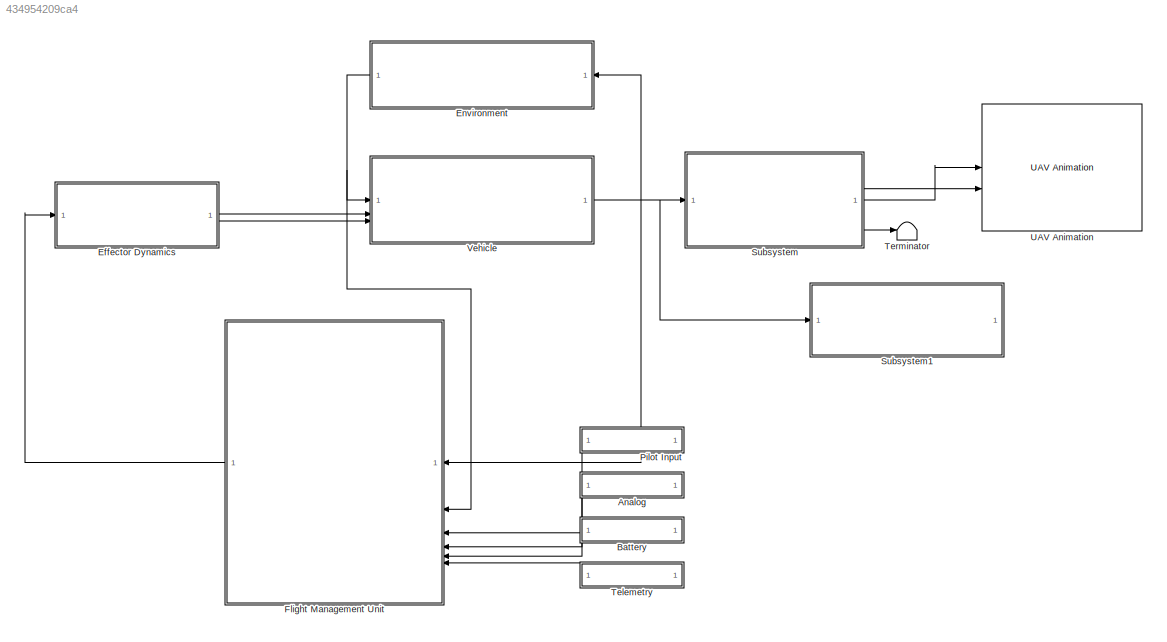
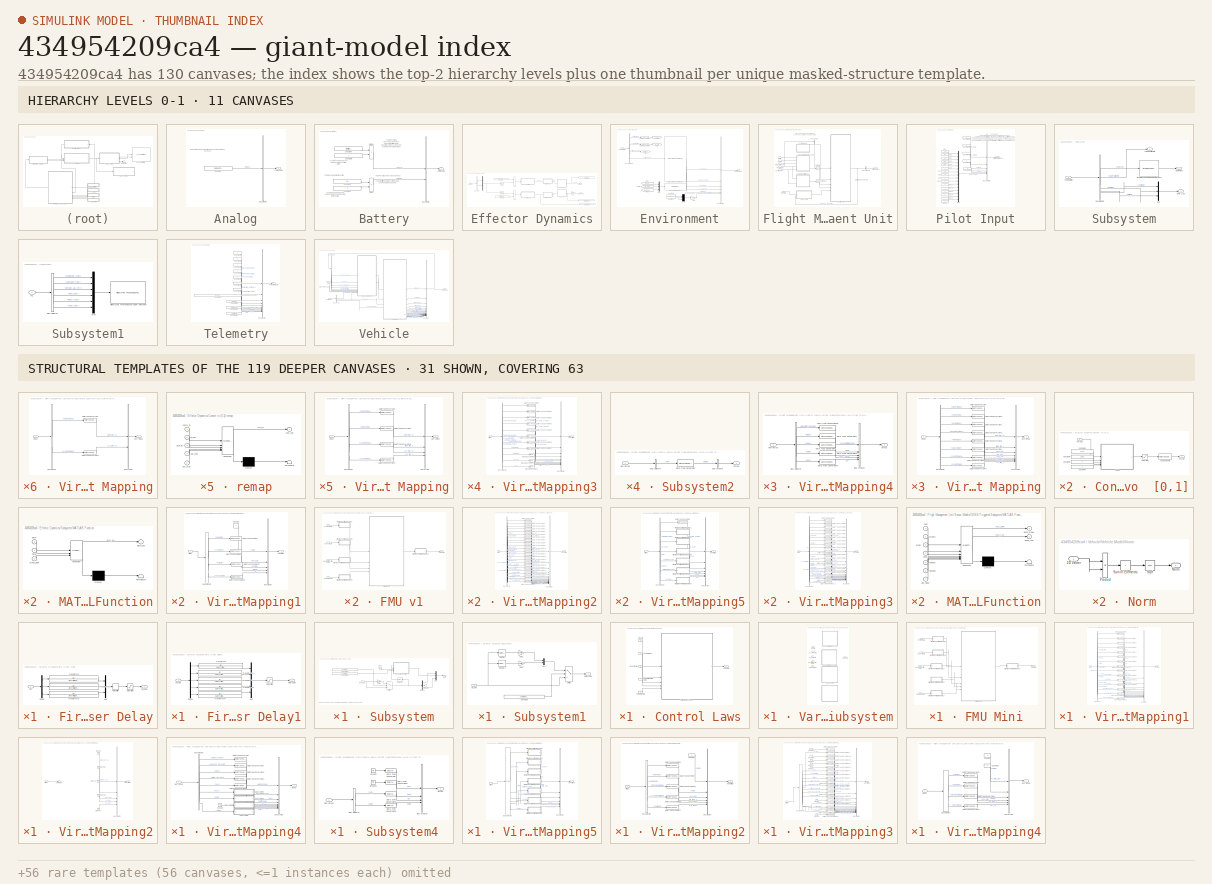
[diagram: thumbnail index - top-2 hierarchy levels (11 canvases) + 31 structural-template representatives of the remaining 119 canvases]
MODEL slx_434954209ca4
KIND model
CONFIG AbsTol = auto
CONFIG EnableMultiTasking = off
CONFIG FixedStep = 0.01
CONFIG MaxStep = auto
CONFIG MinStep = auto
CONFIG RelTol = 1e-9
CONFIG SampleTimeConstraint = Unconstrained
CONFIG SolverName = FixedStepAuto
CONFIG StartTime = 0.0
CONFIG StopTime = 80
BLOCK [SubSystem] Analog
BLOCK [Outport] Analog/Analog Data
BLOCK [BusCreator] Analog/Bus Creator
  DisplayOption = bar
  InheritFromInputs = on
  Inputs = 1
BLOCK [Constant] Analog/Constant
  Value = zeros(1, Fmu.NUM_AIN)
BLOCK [SubSystem] Battery
BLOCK [Outport] Battery/Battery Data
BLOCK [BusCreator] Battery/Bus Creator
  DisplayOption = bar
  InheritFromInputs = on
  Inputs = 2
BLOCK [Constant] Battery/Constant
  Value = Aircraft.Battery.voltage
BLOCK [Constant] Battery/Constant1
  Value = 42
BLOCK [Constant] Battery/Constant2
BLOCK [Constant] Battery/Constant3
BLOCK [Product] Battery/Divide
  Inputs = */
BLOCK [Product] Battery/Divide1
  Inputs = */
BLOCK [SubSystem] Effector Dynamics
BLOCK [Sum] Effector Dynamics/Add
  IconShape = rectangular
BLOCK [Sum] Effector Dynamics/Add1
  IconShape = rectangular
BLOCK [BusSelector] Effector Dynamics/Bus Selector
  OutputSignals = pwm,sbus
BLOCK [Inport] Effector Dynamics/Commands
BLOCK [Constant] Effector Dynamics/Constant
  Value = InitCond.motor_cmd
BLOCK [Constant] Effector Dynamics/Constant1
  Value = InitCond.surface_rad
BLOCK [SubSystem] Effector Dynamics/Convert to  [0,1]
BLOCK [DataTypeConversion] Effector Dynamics/Convert to  [0,1]/Cast To Double
  OutDataTypeStr = double
  RndMeth = Floor
  SaturateOnIntegerOverflow = off
BLOCK [Constant] Effector Dynamics/Convert to  [0,1]/Constant2
  OutDataTypeStr = single
  Value = 1100
BLOCK [Constant] Effector Dynamics/Convert to  [0,1]/Constant3
  OutDataTypeStr = single
  Value = 0
BLOCK [Constant] Effector Dynamics/Convert to  [0,1]/Constant4
  OutDataTypeStr = single
BLOCK [Constant] Effector Dynamics/Convert to  [0,1]/Constant5
  OutDataTypeStr = single
  Value = 1950
BLOCK [Saturate] Effector Dynamics/Convert to  [0,1]/Saturation
  LowerLimit = 0
  UpperLimit = 1
BLOCK [Outport] Effector Dynamics/Convert to  [0,1]/int_cmd
BLOCK [Inport] Effector Dynamics/Convert to  [0,1]/norm_in
BLOCK [SubSystem] Effector Dynamics/Convert to  [0,1]/remap
  ErrorFcn = Stateflow.Translate.translate
  PermitHierarchicalResolution = ExplicitOnly
  SFBlockType = MATLAB Function
  TreatAsAtomicUnit = on
BLOCK [Demux] Effector Dynamics/Convert to  [0,1]/remap/ Demux 
  Outputs = 1
BLOCK [S-Function] Effector Dynamics/Convert to  [0,1]/remap/ SFunction 
  EnableBusSupport = on
  FunctionName = sf_sfun
  PortCounts = [5 2]
  SFcnIsStateOwnerBlock = off
  SFunctionDeploymentMode = off
  Tag = Stateflow S-Function 18
BLOCK [Terminator] Effector Dynamics/Convert to  [0,1]/remap/ Terminator 
BLOCK [Inport] Effector Dynamics/Convert to  [0,1]/remap/in_max
  Port = 3
BLOCK [Inport] Effector Dynamics/Convert to  [0,1]/remap/in_min
  Port = 2
BLOCK [Inport] Effector Dynamics/Convert to  [0,1]/remap/norm_in
BLOCK [Inport] Effector Dynamics/Convert to  [0,1]/remap/out_max
  Port = 5
BLOCK [Inport] Effector Dynamics/Convert to  [0,1]/remap/out_min
  Port = 4
BLOCK [Outport] Effector Dynamics/Convert to  [0,1]/remap/raw_out
BLOCK [SubSystem] Effector Dynamics/Convert to  [30,-30] 
BLOCK [DataTypeConversion] Effector Dynamics/Convert to  [30,-30] /Cast To Double
  OutDataTypeStr = double
  RndMeth = Floor
  SaturateOnIntegerOverflow = off
BLOCK [Constant] Effector Dynamics/Convert to  [30,-30] /Constant2
  OutDataTypeStr = single
  Value = 1100
BLOCK [Constant] Effector Dynamics/Convert to  [30,-30] /Constant3
  OutDataTypeStr = single
  Value = Aircraft.Surf.Limit.neg_deg(1)
BLOCK [Constant] Effector Dynamics/Convert to  [30,-30] /Constant4
  OutDataTypeStr = single
  Value = Aircraft.Surf.Limit.pos_deg(1)
BLOCK [Constant] Effector Dynamics/Convert to  [30,-30] /Constant5
  OutDataTypeStr = single
  Value = 1950
BLOCK [Saturate] Effector Dynamics/Convert to  [30,-30] /Saturation
  LowerLimit = Aircraft.Surf.Limit.neg_deg(1)
  UpperLimit = Aircraft.Surf.Limit.pos_deg(1)
BLOCK [Outport] Effector Dynamics/Convert to  [30,-30] /int_cmd
BLOCK [Inport] Effector Dynamics/Convert to  [30,-30] /norm_in
BLOCK [SubSystem] Effector Dynamics/Convert to  [30,-30] /remap
  ErrorFcn = Stateflow.Translate.translate
  PermitHierarchicalResolution = ExplicitOnly
  SFBlockType = MATLAB Function
  TreatAsAtomicUnit = on
BLOCK [Demux] Effector Dynamics/Convert to  [30,-30] /remap/ Demux 
  Outputs = 1
BLOCK [S-Function] Effector Dynamics/Convert to  [30,-30] /remap/ SFunction 
  EnableBusSupport = on
  FunctionName = sf_sfun
  PortCounts = [5 2]
  SFcnIsStateOwnerBlock = off
  SFunctionDeploymentMode = off
  Tag = Stateflow S-Function 1
BLOCK [Terminator] Effector Dynamics/Convert to  [30,-30] /remap/ Terminator 
BLOCK [Inport] Effector Dynamics/Convert to  [30,-30] /remap/in_max
  Port = 3
BLOCK [Inport] Effector Dynamics/Convert to  [30,-30] /remap/in_min
  Port = 2
BLOCK [Inport] Effector Dynamics/Convert to  [30,-30] /remap/norm_in
BLOCK [Inport] Effector Dynamics/Convert to  [30,-30] /remap/out_max
  Port = 5
BLOCK [Inport] Effector Dynamics/Convert to  [30,-30] /remap/out_min
  Port = 4
BLOCK [Outport] Effector Dynamics/Convert to  [30,-30] /remap/raw_out
BLOCK [Gain] Effector Dynamics/D2R
  Gain = pi / 180
BLOCK [SubSystem] Effector Dynamics/First Order Delay
BLOCK [Demux] Effector Dynamics/First Order Delay/Demux
  Outputs = 3
BLOCK [Inport] Effector Dynamics/First Order Delay/In1
BLOCK [Mux] Effector Dynamics/First Order Delay/Mux
  DisplayOption = bar
  Inputs = 3
BLOCK [RateLimiter] Effector Dynamics/First Order Delay/Rate Limiter
  FallingSlewLimit = -Aircraft.Surf.Limit.rate_dps(1)
  RisingSlewLimit = Aircraft.Surf.Limit.rate_dps(1)
  SampleTimeMode = inherited
BLOCK [Saturate] Effector Dynamics/First Order Delay/Saturation
  LowerLimit = Aircraft.Surf.Limit.neg_deg(1)
  UpperLimit = Aircraft.Surf.Limit.pos_deg(1)
BLOCK [TransferFcn] Effector Dynamics/First Order Delay/Transfer Fcn
  Denominator = [Aircraft.Ucertain.surf_time_cons 1]
BLOCK [TransferFcn] Effector Dynamics/First Order Delay/Transfer Fcn1
  Denominator = [Aircraft.Ucertain.surf_time_cons 1]
BLOCK [TransferFcn] Effector Dynamics/First Order Delay/Transfer Fcn2
  Denominator = [Aircraft.Ucertain.surf_time_cons 1]
BLOCK [Outport] Effector Dynamics/First Order Delay/int_cmd1
BLOCK [SubSystem] Effector Dynamics/First Order Delay1
BLOCK [Demux] Effector Dynamics/First Order Delay1/Demux
  Outputs = 5
BLOCK [Outport] Effector Dynamics/First Order Delay1/Motor Cmds
BLOCK [Mux] Effector Dynamics/First Order Delay1/Mux
  DisplayOption = bar
  Inputs = 5
BLOCK [Saturate] Effector Dynamics/First Order Delay1/Saturation
  LowerLimit = 0
  UpperLimit = 1
BLOCK [TransferFcn] Effector Dynamics/First Order Delay1/Transfer Fcn
  Denominator = [1/Aircraft.Ucertain.motor_bandwidth 1]
BLOCK [TransferFcn] Effector Dynamics/First Order Delay1/Transfer Fcn1
  Denominator = [1/Aircraft.Ucertain.motor_bandwidth 1]
BLOCK [TransferFcn] Effector Dynamics/First Order Delay1/Transfer Fcn2
  Denominator = [1/Aircraft.Ucertain.motor_bandwidth 1]
BLOCK [TransferFcn] Effector Dynamics/First Order Delay1/Transfer Fcn3
  Denominator = [1/Aircraft.Ucertain.motor_bandwidth 1]
BLOCK [TransferFcn] Effector Dynamics/First Order Delay1/Transfer Fcn4
  Denominator = [1/Aircraft.Ucertain.motor_bandwidth 1]
BLOCK [Inport] Effector Dynamics/First Order Delay1/int_cmd
BLOCK [Outport] Effector Dynamics/Motor Cmds
BLOCK [Mux] Effector Dynamics/Mux
  DisplayOption = bar
  Inputs = 2
BLOCK [Selector] Effector Dynamics/Selector
  IndexOptions = Index vector (dialog)
  Indices = Aircraft.Motor.map
  InputPortWidth = Aircraft.Eff.nCh
  OutputSizes = 1
BLOCK [Selector] Effector Dynamics/Selector1
  IndexOptions = Index vector (dialog)
  Indices = Aircraft.Surf.map
  InputPortWidth = Aircraft.Eff.nCh
  OutputSizes = 1
BLOCK [SubSystem] Effector Dynamics/Subsystem
BLOCK [Clock] Effector Dynamics/Subsystem/Clock
  Decimation = 1
  DisplayTime = on
BLOCK [Constant] Effector Dynamics/Subsystem/Constant1
  Value = AddEffects.elevator_stuck_bool
BLOCK [Constant] Effector Dynamics/Subsystem/Constant2
  Value = AddEffects.actuator_fault_bool
BLOCK [Demux] Effector Dynamics/Subsystem/Demux
  Outputs = 3
BLOCK [Gain] Effector Dynamics/Subsystem/Gain
  Gain = AddEffects.surf_fault_scale
BLOCK [SubSystem] Effector Dynamics/Subsystem/MATLAB Function
  ErrorFcn = Stateflow.Translate.translate
  LibrarySourceBlock = simulink/User-Defined\nFunctions/MATLAB Function
  PermitHierarchicalResolution = ExplicitOnly
  SFBlockType = MATLAB Function
  TreatAsAtomicUnit = on
BLOCK [Demux] Effector Dynamics/Subsystem/MATLAB Function/ Demux 
  Outputs = 1
BLOCK [S-Function] Effector Dynamics/Subsystem/MATLAB Function/ SFunction 
  EnableBusSupport = on
  FunctionName = sf_sfun
  PortCounts = [3 2]
  SFcnIsStateOwnerBlock = off
  SFunctionDeploymentMode = off
  Tag = Stateflow S-Function 13
BLOCK [Terminator] Effector Dynamics/Subsystem/MATLAB Function/ Terminator 
BLOCK [Inport] Effector Dynamics/Subsystem/MATLAB Function/pitch
BLOCK [Outport] Effector Dynamics/Subsystem/MATLAB Function/pitch_out
BLOCK [Inport] Effector Dynamics/Subsystem/MATLAB Function/stuck_bool
  Port = 3
BLOCK [Inport] Effector Dynamics/Subsystem/MATLAB Function/time
  Port = 2
BLOCK [Mux] Effector Dynamics/Subsystem/Mux
  DisplayOption = bar
  Inputs = 3
BLOCK [Outport] Effector Dynamics/Subsystem/Out2
BLOCK [Selector] Effector Dynamics/Subsystem/Selector
  IndexOptions = Index vector (dialog)
  Indices = [2]
  InputPortWidth = 3
  NameLocation = top
  OutputSizes = 1
BLOCK [Switch] Effector Dynamics/Subsystem/Switch
  Criteria = u2 > Threshold
  InputSameDT = off
  SaturateOnIntegerOverflow = off
BLOCK [Terminator] Effector Dynamics/Subsystem/Terminator
BLOCK [Inport] Effector Dynamics/Subsystem/int_cmd1
BLOCK [SubSystem] Effector Dynamics/Subsystem1
BLOCK [Constant] Effector Dynamics/Subsystem1/Constant3
  Value = AddEffects.actuator_fault_bool
BLOCK [Gain] Effector Dynamics/Subsystem1/Gain1
  Gain = AddEffects.motor_fault_scale_1
BLOCK [Gain] Effector Dynamics/Subsystem1/Gain2
  Gain = AddEffects.motor_fault_scale_2
BLOCK [Outport] Effector Dynamics/Subsystem1/Motor Cmds
BLOCK [Mux] Effector Dynamics/Subsystem1/Mux
  DisplayOption = bar
  Inputs = 2
BLOCK [Selector] Effector Dynamics/Subsystem1/Selector
  IndexOptions = Index vector (dialog)
  Indices = [1 2]
  InputPortWidth = 5
  OutputSizes = 1
BLOCK [Selector] Effector Dynamics/Subsystem1/Selector1
  IndexOptions = Index vector (dialog)
  Indices = [3 4 5]
  InputPortWidth = 5
  OutputSizes = 1
BLOCK [Switch] Effector Dynamics/Subsystem1/Switch
  Criteria = u2 > Threshold
  InputSameDT = off
  SaturateOnIntegerOverflow = off
BLOCK [Inport] Effector Dynamics/Subsystem1/int_cmd
BLOCK [Outport] Effector Dynamics/Surface Positions
  Port = 2
BLOCK [ToWorkspace] Effector Dynamics/To Workspace
  FixptAsFi = on
  MaxDataPoints = inf
  SampleTime = -1
  SaveFormat = Timeseries
  VariableName = motor_after_delay
BLOCK [ToWorkspace] Effector Dynamics/To Workspace1
  FixptAsFi = on
  MaxDataPoints = inf
  SampleTime = -1
  SaveFormat = Timeseries
  VariableName = deflections_after_delay
BLOCK [ToWorkspace] Effector Dynamics/To Workspace3
  FixptAsFi = on
  MaxDataPoints = inf
  SampleTime = -1
  SaveFormat = Timeseries
  VariableName = deflections_before_delay
BLOCK [SubSystem] Environment
BLOCK [Reference] Environment/Angle Conversion4  REF=aerolibconvert2/Angle Conversion
  SourceBlock = aerolibconvert2/Angle Conversion
  SourceType = Angle Conversion
BLOCK [Reference] Environment/Angle Conversion5  REF=aerolibconvert2/Angle Conversion
  SourceBlock = aerolibconvert2/Angle Conversion
  SourceType = Angle Conversion
BLOCK [BusCreator] Environment/Bus Creator
  DisplayOption = bar
  InheritFromInputs = on
  Inputs = 6
BLOCK [BusSelector] Environment/Bus Selector
  OutputSignals = Latitude [rad],Longitude [rad],Altitude WGS84 [m],Altitude MSL [m]
BLOCK [Reference] Environment/COESA Atmosphere Model  REF=aerolibatmos2/COESA Atmosphere Model
  SourceBlock = aerolibatmos2/COESA Atmosphere Model
  SourceType = Atmosphere Model
BLOCK [Constant] Environment/Constant
  Value = 0
BLOCK [Constant] Environment/Constant1
BLOCK [Outport] Environment/Environment
BLOCK [From] Environment/From6
  GotoTag = lon_deg
BLOCK [From] Environment/From7
  GotoTag = lat_deg
BLOCK [From] Environment/From8
  GotoTag = alt_wgs84_m
BLOCK [Gain] Environment/Gain
  Gain = 1e-3
BLOCK [Goto] Environment/Goto
  GotoTag = lat_deg
BLOCK [Goto] Environment/Goto1
  GotoTag = lon_deg
BLOCK [Goto] Environment/Goto2
  GotoTag = alt_wgs84_m
BLOCK [Mux] Environment/Mux
  DisplayOption = bar
  Inputs = 3
BLOCK [Mux] Environment/Mux1
  DisplayOption = bar
  Inputs = 3
BLOCK [Inport] Environment/Vehicle State
BLOCK [GravityWGS84] Environment/WGS84 Gravity Model  
BLOCK [SubSystem] Flight Management Unit
BLOCK [Inport] Flight Management Unit/Analog
  Port = 4
BLOCK [Inport] Flight Management Unit/Battery
  Port = 5
BLOCK [BusSelector] Flight Management Unit/Bus Selector
  OutputSignals = Sideslip Angle [rad]
BLOCK [BusSelector] Flight Management Unit/Bus Selector1
  NameLocation = left
  OutputSignals = advance_waypoint
BLOCK [BusSelector] Flight Management Unit/Bus Selector2
  OutputAsBus = on
  OutputSignals = sbus,pwm
BLOCK [SubSystem] Flight Management Unit/Control Laws
  TreatAsAtomicUnit = on
BLOCK [Inport] Flight Management Unit/Control Laws/Navigation Filter Data
  Port = 4
BLOCK [Inport] Flight Management Unit/Control Laws/Sensor Data
  Port = 3
BLOCK [Inport] Flight Management Unit/Control Laws/System Data
  Port = 2
BLOCK [Inport] Flight Management Unit/Control Laws/Telemetry Data
  Port = 5
BLOCK [Outport] Flight Management Unit/Control Laws/VMS Data
BLOCK [SubSystem] Flight Management Unit/Control Laws/Variant Subsystem
  Variant = on
BLOCK [SubSystem] Flight Management Unit/Control Laws/Variant Subsystem/FMU Mini
  VariantControl = Fmu.version == 4
BLOCK [ModelReference] Flight Management Unit/Control Laws/Variant Subsystem/FMU Mini/Flight Code
  ModelNameDialog = fmu_mini.slx
  ModelReferenceVersion = 6.0
BLOCK [Inport] Flight Management Unit/Control Laws/Variant Subsystem/FMU Mini/Navigation Filter Data
  Port = 3
BLOCK [Inport] Flight Management Unit/Control Laws/Variant Subsystem/FMU Mini/Sensor Data
  Port = 2
BLOCK [Inport] Flight Management Unit/Control Laws/Variant Subsystem/FMU Mini/System Data
BLOCK [Inport] Flight Management Unit/Control Laws/Variant Subsystem/FMU Mini/Telemetry Data
  Port = 4
BLOCK [Outport] Flight Management Unit/Control Laws/Variant Subsystem/FMU Mini/VMS Data
BLOCK [SubSystem] Flight Management Unit/Control Laws/Variant Subsystem/FMU Mini/Virtual to Non-Virtual Mapping
BLOCK [BusCreator] Flight Management Unit/Control Laws/Variant Subsystem/FMU Mini/Virtual to Non-Virtual Mapping/Bus Creator
  DisplayOption = bar
  InheritFromInputs = on
  Inputs = 2
  NonVirtualBus = on
  OutDataTypeStr = Bus: SysData
BLOCK [BusSelector] Flight Management Unit/Control Laws/Variant Subsystem/FMU Mini/Virtual to Non-Virtual Mapping/Bus Selector
  OutputSignals = Frame Time [us],System Time [us]
BLOCK [DataTypeConversion] Flight Management Unit/Control Laws/Variant Subsystem/FMU Mini/Virtual to Non-Virtual Mapping/Data Type Conversion
  OutDataTypeStr = int32
  RndMeth = Floor
  SaturateOnIntegerOverflow = off
BLOCK [DataTypeConversion] Flight Management Unit/Control Laws/Variant Subsystem/FMU Mini/Virtual to Non-Virtual Mapping/Data Type Conversion5
  OutDataTypeStr = int64
  RndMeth = Floor
  SaturateOnIntegerOverflow = off
BLOCK [Outport] Flight Management Unit/Control Laws/Variant Subsystem/FMU Mini/Virtual to Non-Virtual Mapping/Non-Virtual
  OutDataTypeStr = Bus: SysData
BLOCK [Inport] Flight Management Unit/Control Laws/Variant Subsystem/FMU Mini/Virtual to Non-Virtual Mapping/Virtual
BLOCK [SubSystem] Flight Management Unit/Control Laws/Variant Subsystem/FMU Mini/Virtual to Non-Virtual Mapping1
BLOCK [BusCreator] Flight Management Unit/Control Laws/Variant Subsystem/FMU Mini/Virtual to Non-Virtual Mapping1/Bus Creator
  DisplayOption = bar
  InheritFromInputs = on
  Inputs = 15
  NonVirtualBus = on
  OutDataTypeStr = Bus: InsData
BLOCK [BusSelector] Flight Management Unit/Control Laws/Variant Subsystem/FMU Mini/Virtual to Non-Virtual Mapping1/Bus Selector
  OutputSignals = Navigation Filter Initialized,Pitch [rad],Roll [rad],Heading [rad],Altitude WGS84 [m],Accel [m/s/s],Gyro [rad/s],Magnetometer [uT],NED Velocity [m/s],NED Position [m],Latitude [rad],Longitude [rad],Home Altitude WGS84 [m],Home Latitude [rad],Home Longitude [rad]
BLOCK [DataTypeConversion] Flight Management Unit/Control Laws/Variant Subsystem/FMU Mini/Virtual to Non-Virtual Mapping1/Data Type Conversion
  OutDataTypeStr = boolean
  RndMeth = Floor
  SaturateOnIntegerOverflow = off
BLOCK [DataTypeConversion] Flight Management Unit/Control Laws/Variant Subsystem/FMU Mini/Virtual to Non-Virtual Mapping1/Data Type Conversion1
  OutDataTypeStr = single
  RndMeth = Floor
  SaturateOnIntegerOverflow = off
BLOCK [DataTypeConversion] Flight Management Unit/Control Laws/Variant Subsystem/FMU Mini/Virtual to Non-Virtual Mapping1/Data Type Conversion2
  OutDataTypeStr = single
  RndMeth = Floor
  SaturateOnIntegerOverflow = off
BLOCK [DataTypeConversion] Flight Management Unit/Control Laws/Variant Subsystem/FMU Mini/Virtual to Non-Virtual Mapping1/Data Type Conversion21
  OutDataTypeStr = double
  RndMeth = Floor
  SaturateOnIntegerOverflow = off
BLOCK [DataTypeConversion] Flight Management Unit/Control Laws/Variant Subsystem/FMU Mini/Virtual to Non-Virtual Mapping1/Data Type Conversion22
  OutDataTypeStr = double
  RndMeth = Floor
  SaturateOnIntegerOverflow = off
BLOCK [DataTypeConversion] Flight Management Unit/Control Laws/Variant Subsystem/FMU Mini/Virtual to Non-Virtual Mapping1/Data Type Conversion23
  OutDataTypeStr = single
  RndMeth = Floor
  SaturateOnIntegerOverflow = off
BLOCK [DataTypeConversion] Flight Management Unit/Control Laws/Variant Subsystem/FMU Mini/Virtual to Non-Virtual Mapping1/Data Type Conversion24
  OutDataTypeStr = double
  RndMeth = Floor
  SaturateOnIntegerOverflow = off
BLOCK [DataTypeConversion] Flight Management Unit/Control Laws/Variant Subsystem/FMU Mini/Virtual to Non-Virtual Mapping1/Data Type Conversion25
  OutDataTypeStr = double
  RndMeth = Floor
  SaturateOnIntegerOverflow = off
BLOCK [DataTypeConversion] Flight Management Unit/Control Laws/Variant Subsystem/FMU Mini/Virtual to Non-Virtual Mapping1/Data Type Conversion3
  OutDataTypeStr = single
  RndMeth = Floor
  SaturateOnIntegerOverflow = off
BLOCK [DataTypeConversion] Flight Management Unit/Control Laws/Variant Subsystem/FMU Mini/Virtual to Non-Virtual Mapping1/Data Type Conversion4
  OutDataTypeStr = single
  RndMeth = Floor
  SaturateOnIntegerOverflow = off
BLOCK [DataTypeConversion] Flight Management Unit/Control Laws/Variant Subsystem/FMU Mini/Virtual to Non-Virtual Mapping1/Data Type Conversion5
  OutDataTypeStr = single
  RndMeth = Floor
  SaturateOnIntegerOverflow = off
BLOCK [DataTypeConversion] Flight Management Unit/Control Laws/Variant Subsystem/FMU Mini/Virtual to Non-Virtual Mapping1/Data Type Conversion6
  OutDataTypeStr = single
  RndMeth = Floor
  SaturateOnIntegerOverflow = off
BLOCK [DataTypeConversion] Flight Management Unit/Control Laws/Variant Subsystem/FMU Mini/Virtual to Non-Virtual Mapping1/Data Type Conversion7
  OutDataTypeStr = single
  RndMeth = Floor
  SaturateOnIntegerOverflow = off
BLOCK [DataTypeConversion] Flight Management Unit/Control Laws/Variant Subsystem/FMU Mini/Virtual to Non-Virtual Mapping1/Data Type Conversion8
  OutDataTypeStr = single
  RndMeth = Floor
  SaturateOnIntegerOverflow = off
BLOCK [DataTypeConversion] Flight Management Unit/Control Laws/Variant Subsystem/FMU Mini/Virtual to Non-Virtual Mapping1/Data Type Conversion9
  OutDataTypeStr = single
  RndMeth = Floor
  SaturateOnIntegerOverflow = off
BLOCK [Outport] Flight Management Unit/Control Laws/Variant Subsystem/FMU Mini/Virtual to Non-Virtual Mapping1/Non-Virtual
  OutDataTypeStr = Bus: InsData
BLOCK [Inport] Flight Management Unit/Control Laws/Variant Subsystem/FMU Mini/Virtual to Non-Virtual Mapping1/Virtual
BLOCK [SubSystem] Flight Management Unit/Control Laws/Variant Subsystem/FMU Mini/Virtual to Non-Virtual Mapping2
BLOCK [BusCreator] Flight Management Unit/Control Laws/Variant Subsystem/FMU Mini/Virtual to Non-Virtual Mapping2/Bus Creator
  DisplayOption = bar
  InheritFromInputs = on
  Inputs = 5
  NonVirtualBus = on
  OutDataTypeStr = Bus: AdcData
BLOCK [Ground] Flight Management Unit/Control Laws/Variant Subsystem/FMU Mini/Virtual to Non-Virtual Mapping2/Ground
BLOCK [Ground] Flight Management Unit/Control Laws/Variant Subsystem/FMU Mini/Virtual to Non-Virtual Mapping2/Ground1
BLOCK [Ground] Flight Management Unit/Control Laws/Variant Subsystem/FMU Mini/Virtual to Non-Virtual Mapping2/Ground2
BLOCK [Ground] Flight Management Unit/Control Laws/Variant Subsystem/FMU Mini/Virtual to Non-Virtual Mapping2/Ground3
BLOCK [Ground] Flight Management Unit/Control Laws/Variant Subsystem/FMU Mini/Virtual to Non-Virtual Mapping2/Ground4
BLOCK [Outport] Flight Management Unit/Control Laws/Variant Subsystem/FMU Mini/Virtual to Non-Virtual Mapping2/Non-Virtual
  OutDataTypeStr = Bus: TelemData
BLOCK [Terminator] Flight Management Unit/Control Laws/Variant Subsystem/FMU Mini/Virtual to Non-Virtual Mapping2/Terminator
BLOCK [Inport] Flight Management Unit/Control Laws/Variant Subsystem/FMU Mini/Virtual to Non-Virtual Mapping2/Virtual
BLOCK [SubSystem] Flight Management Unit/Control Laws/Variant Subsystem/FMU Mini/Virtual to Non-Virtual Mapping3
BLOCK [BusCreator] Flight Management Unit/Control Laws/Variant Subsystem/FMU Mini/Virtual to Non-Virtual Mapping3/Bus Creator
  DisplayOption = bar
  InheritFromInputs = on
  Inputs = 11
  NonVirtualBus = on
  OutDataTypeStr = Bus: TelemData
BLOCK [BusSelector] Flight Management Unit/Control Laws/Variant Subsystem/FMU Mini/Virtual to Non-Virtual Mapping3/Bus Selector
  OutputSignals = Waypoints Updated,Fence Updated,Rally Points Updated,Current Waypoint Index,Number of Waypoints,Number of Fence Points,Number of Rally Points,Parameters,Flight Plan,Fence,Rally
BLOCK [DataTypeConversion] Flight Management Unit/Control Laws/Variant Subsystem/FMU Mini/Virtual to Non-Virtual Mapping3/Data Type Conversion
  OutDataTypeStr = boolean
  RndMeth = Floor
  SaturateOnIntegerOverflow = off
BLOCK [DataTypeConversion] Flight Management Unit/Control Laws/Variant Subsystem/FMU Mini/Virtual to Non-Virtual Mapping3/Data Type Conversion1
  OutDataTypeStr = boolean
  RndMeth = Floor
  SaturateOnIntegerOverflow = off
BLOCK [DataTypeConversion] Flight Management Unit/Control Laws/Variant Subsystem/FMU Mini/Virtual to Non-Virtual Mapping3/Data Type Conversion2
  OutDataTypeStr = boolean
  RndMeth = Floor
  SaturateOnIntegerOverflow = off
BLOCK [DataTypeConversion] Flight Management Unit/Control Laws/Variant Subsystem/FMU Mini/Virtual to Non-Virtual Mapping3/Data Type Conversion3
  OutDataTypeStr = int16
  RndMeth = Floor
  SaturateOnIntegerOverflow = off
BLOCK [DataTypeConversion] Flight Management Unit/Control Laws/Variant Subsystem/FMU Mini/Virtual to Non-Virtual Mapping3/Data Type Conversion4
  OutDataTypeStr = int16
  RndMeth = Floor
  SaturateOnIntegerOverflow = off
BLOCK [DataTypeConversion] Flight Management Unit/Control Laws/Variant Subsystem/FMU Mini/Virtual to Non-Virtual Mapping3/Data Type Conversion5
  OutDataTypeStr = int16
  RndMeth = Floor
  SaturateOnIntegerOverflow = off
BLOCK [DataTypeConversion] Flight Management Unit/Control Laws/Variant Subsystem/FMU Mini/Virtual to Non-Virtual Mapping3/Data Type Conversion6
  OutDataTypeStr = int16
  RndMeth = Floor
  SaturateOnIntegerOverflow = off
BLOCK [DataTypeConversion] Flight Management Unit/Control Laws/Variant Subsystem/FMU Mini/Virtual to Non-Virtual Mapping3/Data Type Conversion7
  OutDataTypeStr = single
  RndMeth = Floor
  SaturateOnIntegerOverflow = off
BLOCK [Outport] Flight Management Unit/Control Laws/Variant Subsystem/FMU Mini/Virtual to Non-Virtual Mapping3/Non-Virtual
  OutDataTypeStr = Bus: TelemData
BLOCK [SignalConversion] Flight Management Unit/Control Laws/Variant Subsystem/FMU Mini/Virtual to Non-Virtual Mapping3/Signal Conversion
  ConversionOutput = Nonvirtual bus
  OverrideOpt = off
BLOCK [SignalConversion] Flight Management Unit/Control Laws/Variant Subsystem/FMU Mini/Virtual to Non-Virtual Mapping3/Signal Conversion1
  ConversionOutput = Nonvirtual bus
  OverrideOpt = off
BLOCK [SignalConversion] Flight Management Unit/Control Laws/Variant Subsystem/FMU Mini/Virtual to Non-Virtual Mapping3/Signal Conversion2
  ConversionOutput = Nonvirtual bus
  OverrideOpt = off
BLOCK [Inport] Flight Management Unit/Control Laws/Variant Subsystem/FMU Mini/Virtual to Non-Virtual Mapping3/Virtual
BLOCK [SubSystem] Flight Management Unit/Control Laws/Variant Subsystem/FMU Mini/Virtual to Non-Virtual Mapping4
BLOCK [BusCreator] Flight Management Unit/Control Laws/Variant Subsystem/FMU Mini/Virtual to Non-Virtual Mapping4/Bus Creator
  DisplayOption = bar
  InheritFromInputs = on
  Inputs = 9
BLOCK [BusSelector] Flight Management Unit/Control Laws/Variant Subsystem/FMU Mini/Virtual to Non-Virtual Mapping4/Bus Selector
  OutputSignals = motors_enabled,advance_waypoint,mode,throttle_cmd_prcnt,aux,sbus,pwm,battery
BLOCK [DataTypeConversion] Flight Management Unit/Control Laws/Variant Subsystem/FMU Mini/Virtual to Non-Virtual Mapping4/Data Type Conversion
  OutDataTypeStr = double
  RndMeth = Floor
  SaturateOnIntegerOverflow = off
BLOCK [DataTypeConversion] Flight Management Unit/Control Laws/Variant Subsystem/FMU Mini/Virtual to Non-Virtual Mapping4/Data Type Conversion1
  OutDataTypeStr = double
  RndMeth = Floor
  SaturateOnIntegerOverflow = off
BLOCK [DataTypeConversion] Flight Management Unit/Control Laws/Variant Subsystem/FMU Mini/Virtual to Non-Virtual Mapping4/Data Type Conversion2
  OutDataTypeStr = double
  RndMeth = Floor
  SaturateOnIntegerOverflow = off
BLOCK [DataTypeConversion] Flight Management Unit/Control Laws/Variant Subsystem/FMU Mini/Virtual to Non-Virtual Mapping4/Data Type Conversion3
  OutDataTypeStr = double
  RndMeth = Floor
  SaturateOnIntegerOverflow = off
BLOCK [DataTypeConversion] Flight Management Unit/Control Laws/Variant Subsystem/FMU Mini/Virtual to Non-Virtual Mapping4/Data Type Conversion4
  OutDataTypeStr = double
  RndMeth = Floor
  SaturateOnIntegerOverflow = off
BLOCK [Ground] Flight Management Unit/Control Laws/Variant Subsystem/FMU Mini/Virtual to Non-Virtual Mapping4/Ground
BLOCK [Inport] Flight Management Unit/Control Laws/Variant Subsystem/FMU Mini/Virtual to Non-Virtual Mapping4/Non-Virtual
  OutDataTypeStr = Bus: VmsData
BLOCK [SubSystem] Flight Management Unit/Control Laws/Variant Subsystem/FMU Mini/Virtual to Non-Virtual Mapping4/Subsystem1
BLOCK [BusCreator] Flight Management Unit/Control Laws/Variant Subsystem/FMU Mini/Virtual to Non-Virtual Mapping4/Subsystem1/Bus Creator
  DisplayOption = bar
  InheritFromInputs = on
  Inputs = 5
BLOCK [BusSelector] Flight Management Unit/Control Laws/Variant Subsystem/FMU Mini/Virtual to Non-Virtual Mapping4/Subsystem1/Bus Selector
  OutputSignals = voltage_v,current_ma,consumed_mah,remaining_prcnt,remaining_time_s
BLOCK [DataTypeConversion] Flight Management Unit/Control Laws/Variant Subsystem/FMU Mini/Virtual to Non-Virtual Mapping4/Subsystem1/Data Type Conversion
  OutDataTypeStr = double
  RndMeth = Floor
  SaturateOnIntegerOverflow = off
BLOCK [DataTypeConversion] Flight Management Unit/Control Laws/Variant Subsystem/FMU Mini/Virtual to Non-Virtual Mapping4/Subsystem1/Data Type Conversion1
  OutDataTypeStr = double
  RndMeth = Floor
  SaturateOnIntegerOverflow = off
BLOCK [DataTypeConversion] Flight Management Unit/Control Laws/Variant Subsystem/FMU Mini/Virtual to Non-Virtual Mapping4/Subsystem1/Data Type Conversion2
  OutDataTypeStr = double
  RndMeth = Floor
  SaturateOnIntegerOverflow = off
BLOCK [DataTypeConversion] Flight Management Unit/Control Laws/Variant Subsystem/FMU Mini/Virtual to Non-Virtual Mapping4/Subsystem1/Data Type Conversion3
  OutDataTypeStr = double
  RndMeth = Floor
  SaturateOnIntegerOverflow = off
BLOCK [DataTypeConversion] Flight Management Unit/Control Laws/Variant Subsystem/FMU Mini/Virtual to Non-Virtual Mapping4/Subsystem1/Data Type Conversion4
  OutDataTypeStr = double
  RndMeth = Floor
  SaturateOnIntegerOverflow = off
BLOCK [Inport] Flight Management Unit/Control Laws/Variant Subsystem/FMU Mini/Virtual to Non-Virtual Mapping4/Subsystem1/Non-Virtual
  OutDataTypeStr = Bus: BatteryData
BLOCK [Outport] Flight Management Unit/Control Laws/Variant Subsystem/FMU Mini/Virtual to Non-Virtual Mapping4/Subsystem1/Virtual
BLOCK [SubSystem] Flight Management Unit/Control Laws/Variant Subsystem/FMU Mini/Virtual to Non-Virtual Mapping4/Subsystem2
BLOCK [BusCreator] Flight Management Unit/Control Laws/Variant Subsystem/FMU Mini/Virtual to Non-Virtual Mapping4/Subsystem2/Bus Creator
  DisplayOption = bar
  InheritFromInputs = on
  Inputs = 1
BLOCK [BusSelector] Flight Management Unit/Control Laws/Variant Subsystem/FMU Mini/Virtual to Non-Virtual Mapping4/Subsystem2/Bus Selector
  OutputSignals = val
BLOCK [DataTypeConversion] Flight Management Unit/Control Laws/Variant Subsystem/FMU Mini/Virtual to Non-Virtual Mapping4/Subsystem2/Data Type Conversion
  OutDataTypeStr = double
  RndMeth = Floor
  SaturateOnIntegerOverflow = off
BLOCK [Inport] Flight Management Unit/Control Laws/Variant Subsystem/FMU Mini/Virtual to Non-Virtual Mapping4/Subsystem2/Non-Virtual
  OutDataTypeStr = Bus: AnalogData
BLOCK [Outport] Flight Management Unit/Control Laws/Variant Subsystem/FMU Mini/Virtual to Non-Virtual Mapping4/Subsystem2/Virtual
BLOCK [SubSystem] Flight Management Unit/Control Laws/Variant Subsystem/FMU Mini/Virtual to Non-Virtual Mapping4/Subsystem3
BLOCK [BusCreator] Flight Management Unit/Control Laws/Variant Subsystem/FMU Mini/Virtual to Non-Virtual Mapping4/Subsystem3/Bus Creator
  DisplayOption = bar
  InheritFromInputs = on
  Inputs = 2
BLOCK [BusSelector] Flight Management Unit/Control Laws/Variant Subsystem/FMU Mini/Virtual to Non-Virtual Mapping4/Subsystem3/Bus Selector
  OutputSignals = cnt,cmd
BLOCK [DataTypeConversion] Flight Management Unit/Control Laws/Variant Subsystem/FMU Mini/Virtual to Non-Virtual Mapping4/Subsystem3/Data Type Conversion
  OutDataTypeStr = double
  RndMeth = Floor
  SaturateOnIntegerOverflow = off
BLOCK [DataTypeConversion] Flight Management Unit/Control Laws/Variant Subsystem/FMU Mini/Virtual to Non-Virtual Mapping4/Subsystem3/Data Type Conversion1
  OutDataTypeStr = double
  RndMeth = Floor
  SaturateOnIntegerOverflow = off
BLOCK [Inport] Flight Management Unit/Control Laws/Variant Subsystem/FMU Mini/Virtual to Non-Virtual Mapping4/Subsystem3/Non-Virtual
  OutDataTypeStr = Bus: PwmCmd
BLOCK [Outport] Flight Management Unit/Control Laws/Variant Subsystem/FMU Mini/Virtual to Non-Virtual Mapping4/Subsystem3/Virtual
BLOCK [SubSystem] Flight Management Unit/Control Laws/Variant Subsystem/FMU Mini/Virtual to Non-Virtual Mapping4/Subsystem4
BLOCK [BusCreator] Flight Management Unit/Control Laws/Variant Subsystem/FMU Mini/Virtual to Non-Virtual Mapping4/Subsystem4/Bus Creator
  DisplayOption = bar
  InheritFromInputs = on
  Inputs = 4
BLOCK [BusSelector] Flight Management Unit/Control Laws/Variant Subsystem/FMU Mini/Virtual to Non-Virtual Mapping4/Subsystem4/Bus Selector
  OutputSignals = cnt,cmd
BLOCK [DataTypeConversion] Flight Management Unit/Control Laws/Variant Subsystem/FMU Mini/Virtual to Non-Virtual Mapping4/Subsystem4/Data Type Conversion
  OutDataTypeStr = double
  RndMeth = Floor
  SaturateOnIntegerOverflow = off
BLOCK [DataTypeConversion] Flight Management Unit/Control Laws/Variant Subsystem/FMU Mini/Virtual to Non-Virtual Mapping4/Subsystem4/Data Type Conversion1
  OutDataTypeStr = double
  RndMeth = Floor
  SaturateOnIntegerOverflow = off
BLOCK [DataTypeConversion] Flight Management Unit/Control Laws/Variant Subsystem/FMU Mini/Virtual to Non-Virtual Mapping4/Subsystem4/Data Type Conversion2
  OutDataTypeStr = double
  RndMeth = Floor
  SaturateOnIntegerOverflow = off
BLOCK [DataTypeConversion] Flight Management Unit/Control Laws/Variant Subsystem/FMU Mini/Virtual to Non-Virtual Mapping4/Subsystem4/Data Type Conversion3
  OutDataTypeStr = double
  RndMeth = Floor
  SaturateOnIntegerOverflow = off
BLOCK [Ground] Flight Management Unit/Control Laws/Variant Subsystem/FMU Mini/Virtual to Non-Virtual Mapping4/Subsystem4/Ground
BLOCK [Ground] Flight Management Unit/Control Laws/Variant Subsystem/FMU Mini/Virtual to Non-Virtual Mapping4/Subsystem4/Ground1
BLOCK [Inport] Flight Management Unit/Control Laws/Variant Subsystem/FMU Mini/Virtual to Non-Virtual Mapping4/Subsystem4/Non-Virtual
  OutDataTypeStr = Bus: SbusCmd
BLOCK [Outport] Flight Management Unit/Control Laws/Variant Subsystem/FMU Mini/Virtual to Non-Virtual Mapping4/Subsystem4/Virtual
BLOCK [Outport] Flight Management Unit/Control Laws/Variant Subsystem/FMU Mini/Virtual to Non-Virtual Mapping4/Virtual
BLOCK [SubSystem] Flight Management Unit/Control Laws/Variant Subsystem/FMU Mini/Virtual to Non-Virtual Mapping5
BLOCK [BusCreator] Flight Management Unit/Control Laws/Variant Subsystem/FMU Mini/Virtual to Non-Virtual Mapping5/Bus Creator
  DisplayOption = bar
  InheritFromInputs = on
  Inputs = 7
  NonVirtualBus = on
  OutDataTypeStr = Bus: SensorData
BLOCK [BusSelector] Flight Management Unit/Control Laws/Variant Subsystem/FMU Mini/Virtual to Non-Virtual Mapping5/Bus Selector
  OutputSignals = Inceptor,IMU,Static Pressure,GNSS,Analog,Battery
BLOCK [Outport] Flight Management Unit/Control Laws/Variant Subsystem/FMU Mini/Virtual to Non-Virtual Mapping5/Non-Virtual
  OutDataTypeStr = Bus: SensorData
BLOCK [Inport] Flight Management Unit/Control Laws/Variant Subsystem/FMU Mini/Virtual to Non-Virtual Mapping5/Virtual
BLOCK [SubSystem] Flight Management Unit/Control Laws/Variant Subsystem/FMU Mini/Virtual to Non-Virtual Mapping5/Virtual to Non-Virtual Mapping1
BLOCK [BusCreator] Flight Management Unit/Control Laws/Variant Subsystem/FMU Mini/Virtual to Non-Virtual Mapping5/Virtual to Non-Virtual Mapping1/Bus Creator
  DisplayOption = bar
  InheritFromInputs = on
  Inputs = 5
  OutDataTypeStr = Bus: InceptorData
BLOCK [BusSelector] Flight Management Unit/Control Laws/Variant Subsystem/FMU Mini/Virtual to Non-Virtual Mapping5/Virtual to Non-Virtual Mapping1/Bus Selector
  OutputSignals = New Data,Lost Frame,Failsafe,Channel Data
BLOCK [Constant] Flight Management Unit/Control Laws/Variant Subsystem/FMU Mini/Virtual to Non-Virtual Mapping5/Virtual to Non-Virtual Mapping1/Constant
  OutDataTypeStr = boolean
BLOCK [DataTypeConversion] Flight Management Unit/Control Laws/Variant Subsystem/FMU Mini/Virtual to Non-Virtual Mapping5/Virtual to Non-Virtual Mapping1/Data Type Conversion
  OutDataTypeStr = boolean
  RndMeth = Floor
  SaturateOnIntegerOverflow = off
BLOCK [DataTypeConversion] Flight Management Unit/Control Laws/Variant Subsystem/FMU Mini/Virtual to Non-Virtual Mapping5/Virtual to Non-Virtual Mapping1/Data Type Conversion1
  OutDataTypeStr = boolean
  RndMeth = Floor
  SaturateOnIntegerOverflow = off
BLOCK [DataTypeConversion] Flight Management Unit/Control Laws/Variant Subsystem/FMU Mini/Virtual to Non-Virtual Mapping5/Virtual to Non-Virtual Mapping1/Data Type Conversion2
  OutDataTypeStr = boolean
  RndMeth = Floor
  SaturateOnIntegerOverflow = off
BLOCK [DataTypeConversion] Flight Management Unit/Control Laws/Variant Subsystem/FMU Mini/Virtual to Non-Virtual Mapping5/Virtual to Non-Virtual Mapping1/Data Type Conversion5
  OutDataTypeStr = int16
  RndMeth = Floor
  SaturateOnIntegerOverflow = off
BLOCK [Outport] Flight Management Unit/Control Laws/Variant Subsystem/FMU Mini/Virtual to Non-Virtual Mapping5/Virtual to Non-Virtual Mapping1/Non-Virtual
  OutDataTypeStr = Bus: InceptorData
BLOCK [Inport] Flight Management Unit/Control Laws/Variant Subsystem/FMU Mini/Virtual to Non-Virtual Mapping5/Virtual to Non-Virtual Mapping1/Virtual
BLOCK [SubSystem] Flight Management Unit/Control Laws/Variant Subsystem/FMU Mini/Virtual to Non-Virtual Mapping5/Virtual to Non-Virtual Mapping2
BLOCK [BusCreator] Flight Management Unit/Control Laws/Variant Subsystem/FMU Mini/Virtual to Non-Virtual Mapping5/Virtual to Non-Virtual Mapping2/Bus Creator
  DisplayOption = bar
  InheritFromInputs = on
  Inputs = 6
BLOCK [BusSelector] Flight Management Unit/Control Laws/Variant Subsystem/FMU Mini/Virtual to Non-Virtual Mapping5/Virtual to Non-Virtual Mapping2/Bus Selector
  OutputSignals = New IMU Data,IMU Healthy,Die Temperature [C],Accelerometer [m/s/s],Gyro [rad/s]
BLOCK [Constant] Flight Management Unit/Control Laws/Variant Subsystem/FMU Mini/Virtual to Non-Virtual Mapping5/Virtual to Non-Virtual Mapping2/Constant
  OutDataTypeStr = boolean
BLOCK [DataTypeConversion] Flight Management Unit/Control Laws/Variant Subsystem/FMU Mini/Virtual to Non-Virtual Mapping5/Virtual to Non-Virtual Mapping2/Data Type Conversion
  OutDataTypeStr = boolean
  RndMeth = Floor
  SaturateOnIntegerOverflow = off
BLOCK [DataTypeConversion] Flight Management Unit/Control Laws/Variant Subsystem/FMU Mini/Virtual to Non-Virtual Mapping5/Virtual to Non-Virtual Mapping2/Data Type Conversion1
  OutDataTypeStr = boolean
  RndMeth = Floor
  SaturateOnIntegerOverflow = off
BLOCK [DataTypeConversion] Flight Management Unit/Control Laws/Variant Subsystem/FMU Mini/Virtual to Non-Virtual Mapping5/Virtual to Non-Virtual Mapping2/Data Type Conversion4
  OutDataTypeStr = single
  RndMeth = Floor
  SaturateOnIntegerOverflow = off
BLOCK [DataTypeConversion] Flight Management Unit/Control Laws/Variant Subsystem/FMU Mini/Virtual to Non-Virtual Mapping5/Virtual to Non-Virtual Mapping2/Data Type Conversion5
  OutDataTypeStr = single
  RndMeth = Floor
  SaturateOnIntegerOverflow = off
BLOCK [DataTypeConversion] Flight Management Unit/Control Laws/Variant Subsystem/FMU Mini/Virtual to Non-Virtual Mapping5/Virtual to Non-Virtual Mapping2/Data Type Conversion7
  OutDataTypeStr = single
  RndMeth = Floor
  SaturateOnIntegerOverflow = off
BLOCK [Outport] Flight Management Unit/Control Laws/Variant Subsystem/FMU Mini/Virtual to Non-Virtual Mapping5/Virtual to Non-Virtual Mapping2/Non-Virtual
  OutDataTypeStr = Bus: ImuData
BLOCK [Inport] Flight Management Unit/Control Laws/Variant Subsystem/FMU Mini/Virtual to Non-Virtual Mapping5/Virtual to Non-Virtual Mapping2/Virtual
BLOCK [SubSystem] Flight Management Unit/Control Laws/Variant Subsystem/FMU Mini/Virtual to Non-Virtual Mapping5/Virtual to Non-Virtual Mapping3
BLOCK [BusCreator] Flight Management Unit/Control Laws/Variant Subsystem/FMU Mini/Virtual to Non-Virtual Mapping5/Virtual to Non-Virtual Mapping3/Bus Creator
  DisplayOption = bar
  InheritFromInputs = on
  Inputs = 19
  OutDataTypeStr = Bus: GnssData
BLOCK [BusSelector] Flight Management Unit/Control Laws/Variant Subsystem/FMU Mini/Virtual to Non-Virtual Mapping5/Virtual to Non-Virtual Mapping3/Bus Selector
  OutputSignals = Healthy,Fix,Num Satellites,Week,Altitude WGS84 [m],Horizontal Accuracy [m],Vertical Accuracy [m],Velocity Accuracy [m/s],NED Velocity [m/s],TOW [ms],Latitude [rad],Longitude [rad]
BLOCK [Constant] Flight Management Unit/Control Laws/Variant Subsystem/FMU Mini/Virtual to Non-Virtual Mapping5/Virtual to Non-Virtual Mapping3/Constant
  OutDataTypeStr = boolean
BLOCK [Constant] Flight Management Unit/Control Laws/Variant Subsystem/FMU Mini/Virtual to Non-Virtual Mapping5/Virtual to Non-Virtual Mapping3/Constant2
  OutDataTypeStr = boolean
BLOCK [DataTypeConversion] Flight Management Unit/Control Laws/Variant Subsystem/FMU Mini/Virtual to Non-Virtual Mapping5/Virtual to Non-Virtual Mapping3/Data Type Conversion
  OutDataTypeStr = boolean
  RndMeth = Floor
  SaturateOnIntegerOverflow = off
BLOCK [DataTypeConversion] Flight Management Unit/Control Laws/Variant Subsystem/FMU Mini/Virtual to Non-Virtual Mapping5/Virtual to Non-Virtual Mapping3/Data Type Conversion1
  OutDataTypeStr = boolean
  RndMeth = Floor
  SaturateOnIntegerOverflow = off
BLOCK [DataTypeConversion] Flight Management Unit/Control Laws/Variant Subsystem/FMU Mini/Virtual to Non-Virtual Mapping5/Virtual to Non-Virtual Mapping3/Data Type Conversion10
  OutDataTypeStr = single
  RndMeth = Floor
  SaturateOnIntegerOverflow = off
BLOCK [DataTypeConversion] Flight Management Unit/Control Laws/Variant Subsystem/FMU Mini/Virtual to Non-Virtual Mapping5/Virtual to Non-Virtual Mapping3/Data Type Conversion11
  OutDataTypeStr = single
  RndMeth = Floor
  SaturateOnIntegerOverflow = off
BLOCK [DataTypeConversion] Flight Management Unit/Control Laws/Variant Subsystem/FMU Mini/Virtual to Non-Virtual Mapping5/Virtual to Non-Virtual Mapping3/Data Type Conversion12
  OutDataTypeStr = double
  RndMeth = Floor
  SaturateOnIntegerOverflow = off
BLOCK [DataTypeConversion] Flight Management Unit/Control Laws/Variant Subsystem/FMU Mini/Virtual to Non-Virtual Mapping5/Virtual to Non-Virtual Mapping3/Data Type Conversion17
  OutDataTypeStr = double
  RndMeth = Floor
  SaturateOnIntegerOverflow = off
BLOCK [DataTypeConversion] Flight Management Unit/Control Laws/Variant Subsystem/FMU Mini/Virtual to Non-Virtual Mapping5/Virtual to Non-Virtual Mapping3/Data Type Conversion18
  OutDataTypeStr = double
  RndMeth = Floor
  SaturateOnIntegerOverflow = off
BLOCK [DataTypeConversion] Flight Management Unit/Control Laws/Variant Subsystem/FMU Mini/Virtual to Non-Virtual Mapping5/Virtual to Non-Virtual Mapping3/Data Type Conversion19
  OutDataTypeStr = boolean
  RndMeth = Floor
  SaturateOnIntegerOverflow = off
BLOCK [DataTypeConversion] Flight Management Unit/Control Laws/Variant Subsystem/FMU Mini/Virtual to Non-Virtual Mapping5/Virtual to Non-Virtual Mapping3/Data Type Conversion2
  OutDataTypeStr = int8
  RndMeth = Floor
  SaturateOnIntegerOverflow = off
BLOCK [DataTypeConversion] Flight Management Unit/Control Laws/Variant Subsystem/FMU Mini/Virtual to Non-Virtual Mapping5/Virtual to Non-Virtual Mapping3/Data Type Conversion20
  OutDataTypeStr = boolean
  RndMeth = Floor
  SaturateOnIntegerOverflow = off
BLOCK [DataTypeConversion] Flight Management Unit/Control Laws/Variant Subsystem/FMU Mini/Virtual to Non-Virtual Mapping5/Virtual to Non-Virtual Mapping3/Data Type Conversion21
  OutDataTypeStr = boolean
  RndMeth = Floor
  SaturateOnIntegerOverflow = off
BLOCK [DataTypeConversion] Flight Management Unit/Control Laws/Variant Subsystem/FMU Mini/Virtual to Non-Virtual Mapping5/Virtual to Non-Virtual Mapping3/Data Type Conversion22
  OutDataTypeStr = boolean
  RndMeth = Floor
  SaturateOnIntegerOverflow = off
BLOCK [DataTypeConversion] Flight Management Unit/Control Laws/Variant Subsystem/FMU Mini/Virtual to Non-Virtual Mapping5/Virtual to Non-Virtual Mapping3/Data Type Conversion3
  OutDataTypeStr = int8
  RndMeth = Floor
  SaturateOnIntegerOverflow = off
BLOCK [DataTypeConversion] Flight Management Unit/Control Laws/Variant Subsystem/FMU Mini/Virtual to Non-Virtual Mapping5/Virtual to Non-Virtual Mapping3/Data Type Conversion4
  OutDataTypeStr = int16
  RndMeth = Floor
  SaturateOnIntegerOverflow = off
BLOCK [DataTypeConversion] Flight Management Unit/Control Laws/Variant Subsystem/FMU Mini/Virtual to Non-Virtual Mapping5/Virtual to Non-Virtual Mapping3/Data Type Conversion5
  OutDataTypeStr = double
  RndMeth = Floor
  SaturateOnIntegerOverflow = off
BLOCK [DataTypeConversion] Flight Management Unit/Control Laws/Variant Subsystem/FMU Mini/Virtual to Non-Virtual Mapping5/Virtual to Non-Virtual Mapping3/Data Type Conversion6
  OutDataTypeStr = single
  RndMeth = Floor
  SaturateOnIntegerOverflow = off
BLOCK [DataTypeConversion] Flight Management Unit/Control Laws/Variant Subsystem/FMU Mini/Virtual to Non-Virtual Mapping5/Virtual to Non-Virtual Mapping3/Data Type Conversion7
  OutDataTypeStr = single
  RndMeth = Floor
  SaturateOnIntegerOverflow = off
BLOCK [DataTypeConversion] Flight Management Unit/Control Laws/Variant Subsystem/FMU Mini/Virtual to Non-Virtual Mapping5/Virtual to Non-Virtual Mapping3/Data Type Conversion8
  OutDataTypeStr = single
  RndMeth = Floor
  SaturateOnIntegerOverflow = off
BLOCK [DataTypeConversion] Flight Management Unit/Control Laws/Variant Subsystem/FMU Mini/Virtual to Non-Virtual Mapping5/Virtual to Non-Virtual Mapping3/Data Type Conversion9
  OutDataTypeStr = single
  RndMeth = Floor
  SaturateOnIntegerOverflow = off
BLOCK [Ground] Flight Management Unit/Control Laws/Variant Subsystem/FMU Mini/Virtual to Non-Virtual Mapping5/Virtual to Non-Virtual Mapping3/Ground
BLOCK [Ground] Flight Management Unit/Control Laws/Variant Subsystem/FMU Mini/Virtual to Non-Virtual Mapping5/Virtual to Non-Virtual Mapping3/Ground1
BLOCK [Ground] Flight Management Unit/Control Laws/Variant Subsystem/FMU Mini/Virtual to Non-Virtual Mapping5/Virtual to Non-Virtual Mapping3/Ground2
BLOCK [Ground] Flight Management Unit/Control Laws/Variant Subsystem/FMU Mini/Virtual to Non-Virtual Mapping5/Virtual to Non-Virtual Mapping3/Ground3
BLOCK [Ground] Flight Management Unit/Control Laws/Variant Subsystem/FMU Mini/Virtual to Non-Virtual Mapping5/Virtual to Non-Virtual Mapping3/Ground4
BLOCK [Outport] Flight Management Unit/Control Laws/Variant Subsystem/FMU Mini/Virtual to Non-Virtual Mapping5/Virtual to Non-Virtual Mapping3/Non-Virtual
  OutDataTypeStr = Bus: GnssData
BLOCK [Inport] Flight Management Unit/Control Laws/Variant Subsystem/FMU Mini/Virtual to Non-Virtual Mapping5/Virtual to Non-Virtual Mapping3/Virtual
BLOCK [SubSystem] Flight Management Unit/Control Laws/Variant Subsystem/FMU Mini/Virtual to Non-Virtual Mapping5/Virtual to Non-Virtual Mapping4
BLOCK [BusCreator] Flight Management Unit/Control Laws/Variant Subsystem/FMU Mini/Virtual to Non-Virtual Mapping5/Virtual to Non-Virtual Mapping4/Bus Creator
  DisplayOption = bar
  InheritFromInputs = on
  Inputs = 6
  OutDataTypeStr = Bus: PresData
BLOCK [BusSelector] Flight Management Unit/Control Laws/Variant Subsystem/FMU Mini/Virtual to Non-Virtual Mapping5/Virtual to Non-Virtual Mapping4/Bus Selector
  OutputSignals = Healthy,New Data,Die Temperature [C],Pressure [Pa]
BLOCK [Constant] Flight Management Unit/Control Laws/Variant Subsystem/FMU Mini/Virtual to Non-Virtual Mapping5/Virtual to Non-Virtual Mapping4/Constant
  OutDataTypeStr = boolean
BLOCK [Constant] Flight Management Unit/Control Laws/Variant Subsystem/FMU Mini/Virtual to Non-Virtual Mapping5/Virtual to Non-Virtual Mapping4/Constant1
  OutDataTypeStr = boolean
BLOCK [DataTypeConversion] Flight Management Unit/Control Laws/Variant Subsystem/FMU Mini/Virtual to Non-Virtual Mapping5/Virtual to Non-Virtual Mapping4/Data Type Conversion
  OutDataTypeStr = boolean
  RndMeth = Floor
  SaturateOnIntegerOverflow = off
BLOCK [DataTypeConversion] Flight Management Unit/Control Laws/Variant Subsystem/FMU Mini/Virtual to Non-Virtual Mapping5/Virtual to Non-Virtual Mapping4/Data Type Conversion1
  OutDataTypeStr = boolean
  RndMeth = Floor
  SaturateOnIntegerOverflow = off
BLOCK [DataTypeConversion] Flight Management Unit/Control Laws/Variant Subsystem/FMU Mini/Virtual to Non-Virtual Mapping5/Virtual to Non-Virtual Mapping4/Data Type Conversion2
  OutDataTypeStr = single
  RndMeth = Floor
  SaturateOnIntegerOverflow = off
BLOCK [DataTypeConversion] Flight Management Unit/Control Laws/Variant Subsystem/FMU Mini/Virtual to Non-Virtual Mapping5/Virtual to Non-Virtual Mapping4/Data Type Conversion3
  OutDataTypeStr = single
  RndMeth = Floor
  SaturateOnIntegerOverflow = off
BLOCK [Outport] Flight Management Unit/Control Laws/Variant Subsystem/FMU Mini/Virtual to Non-Virtual Mapping5/Virtual to Non-Virtual Mapping4/Non-Virtual
  OutDataTypeStr = Bus: PresData
BLOCK [Inport] Flight Management Unit/Control Laws/Variant Subsystem/FMU Mini/Virtual to Non-Virtual Mapping5/Virtual to Non-Virtual Mapping4/Virtual
BLOCK [SubSystem] Flight Management Unit/Control Laws/Variant Subsystem/FMU Mini/Virtual to Non-Virtual Mapping5/Virtual to Non-Virtual Mapping5
BLOCK [BusCreator] Flight Management Unit/Control Laws/Variant Subsystem/FMU Mini/Virtual to Non-Virtual Mapping5/Virtual to Non-Virtual Mapping5/Bus Creator
  DisplayOption = bar
  InheritFromInputs = on
  Inputs = 5
  OutDataTypeStr = Bus: MagData
BLOCK [BusSelector] Flight Management Unit/Control Laws/Variant Subsystem/FMU Mini/Virtual to Non-Virtual Mapping5/Virtual to Non-Virtual Mapping5/Bus Selector
  OutputSignals = Magnetometer Healthy,New Magnetometer Data,Die Temperature [C],Magnetometer [uT]
BLOCK [Constant] Flight Management Unit/Control Laws/Variant Subsystem/FMU Mini/Virtual to Non-Virtual Mapping5/Virtual to Non-Virtual Mapping5/Constant
  OutDataTypeStr = boolean
BLOCK [DataTypeConversion] Flight Management Unit/Control Laws/Variant Subsystem/FMU Mini/Virtual to Non-Virtual Mapping5/Virtual to Non-Virtual Mapping5/Data Type Conversion
  OutDataTypeStr = boolean
  RndMeth = Floor
  SaturateOnIntegerOverflow = off
BLOCK [DataTypeConversion] Flight Management Unit/Control Laws/Variant Subsystem/FMU Mini/Virtual to Non-Virtual Mapping5/Virtual to Non-Virtual Mapping5/Data Type Conversion1
  OutDataTypeStr = boolean
  RndMeth = Floor
  SaturateOnIntegerOverflow = off
BLOCK [DataTypeConversion] Flight Management Unit/Control Laws/Variant Subsystem/FMU Mini/Virtual to Non-Virtual Mapping5/Virtual to Non-Virtual Mapping5/Data Type Conversion4
  OutDataTypeStr = single
  RndMeth = Floor
  SaturateOnIntegerOverflow = off
BLOCK [DataTypeConversion] Flight Management Unit/Control Laws/Variant Subsystem/FMU Mini/Virtual to Non-Virtual Mapping5/Virtual to Non-Virtual Mapping5/Data Type Conversion6
  OutDataTypeStr = single
  RndMeth = Floor
  SaturateOnIntegerOverflow = off
BLOCK [Outport] Flight Management Unit/Control Laws/Variant Subsystem/FMU Mini/Virtual to Non-Virtual Mapping5/Virtual to Non-Virtual Mapping5/Non-Virtual
  OutDataTypeStr = Bus: MagData
BLOCK [Inport] Flight Management Unit/Control Laws/Variant Subsystem/FMU Mini/Virtual to Non-Virtual Mapping5/Virtual to Non-Virtual Mapping5/Virtual
BLOCK [SubSystem] Flight Management Unit/Control Laws/Variant Subsystem/FMU Mini/Virtual to Non-Virtual Mapping5/Virtual to Non-Virtual Mapping6
BLOCK [BusCreator] Flight Management Unit/Control Laws/Variant Subsystem/FMU Mini/Virtual to Non-Virtual Mapping5/Virtual to Non-Virtual Mapping6/Bus Creator
  DisplayOption = bar
  InheritFromInputs = on
  Inputs = 1
BLOCK [BusSelector] Flight Management Unit/Control Laws/Variant Subsystem/FMU Mini/Virtual to Non-Virtual Mapping5/Virtual to Non-Virtual Mapping6/Bus Selector
  OutputSignals = Voltages
BLOCK [DataTypeConversion] Flight Management Unit/Control Laws/Variant Subsystem/FMU Mini/Virtual to Non-Virtual Mapping5/Virtual to Non-Virtual Mapping6/Data Type Conversion2
  OutDataTypeStr = single
  RndMeth = Floor
  SaturateOnIntegerOverflow = off
BLOCK [Outport] Flight Management Unit/Control Laws/Variant Subsystem/FMU Mini/Virtual to Non-Virtual Mapping5/Virtual to Non-Virtual Mapping6/Non-Virtual
  OutDataTypeStr = Bus: AdcData
BLOCK [Inport] Flight Management Unit/Control Laws/Variant Subsystem/FMU Mini/Virtual to Non-Virtual Mapping5/Virtual to Non-Virtual Mapping6/Virtual
BLOCK [SubSystem] Flight Management Unit/Control Laws/Variant Subsystem/FMU Mini/Virtual to Non-Virtual Mapping5/Virtual to Non-Virtual Mapping7
BLOCK [BusCreator] Flight Management Unit/Control Laws/Variant Subsystem/FMU Mini/Virtual to Non-Virtual Mapping5/Virtual to Non-Virtual Mapping7/Bus Creator
  DisplayOption = bar
  InheritFromInputs = on
  Inputs = 2
BLOCK [BusSelector] Flight Management Unit/Control Laws/Variant Subsystem/FMU Mini/Virtual to Non-Virtual Mapping5/Virtual to Non-Virtual Mapping7/Bus Selector
  OutputSignals = Voltage [V],Current [V]
BLOCK [DataTypeConversion] Flight Management Unit/Control Laws/Variant Subsystem/FMU Mini/Virtual to Non-Virtual Mapping5/Virtual to Non-Virtual Mapping7/Data Type Conversion1
  OutDataTypeStr = single
  RndMeth = Floor
  SaturateOnIntegerOverflow = off
BLOCK [DataTypeConversion] Flight Management Unit/Control Laws/Variant Subsystem/FMU Mini/Virtual to Non-Virtual Mapping5/Virtual to Non-Virtual Mapping7/Data Type Conversion2
  OutDataTypeStr = single
  RndMeth = Floor
  SaturateOnIntegerOverflow = off
BLOCK [Outport] Flight Management Unit/Control Laws/Variant Subsystem/FMU Mini/Virtual to Non-Virtual Mapping5/Virtual to Non-Virtual Mapping7/Non-Virtual
  OutDataTypeStr = Bus: PowerModuleData
BLOCK [Inport] Flight Management Unit/Control Laws/Variant Subsystem/FMU Mini/Virtual to Non-Virtual Mapping5/Virtual to Non-Virtual Mapping7/Virtual
BLOCK [SubSystem] Flight Management Unit/Control Laws/Variant Subsystem/FMU v1
  VariantControl = Fmu.version == 1
BLOCK [ModelReference] Flight Management Unit/Control Laws/Variant Subsystem/FMU v1/Flight Code
  ModelNameDialog = fmu_v1.slx
  ModelReferenceVersion = 2.2
BLOCK [Inport] Flight Management Unit/Control Laws/Variant Subsystem/FMU v1/Navigation Filter Data
  Port = 3
BLOCK [Inport] Flight Management Unit/Control Laws/Variant Subsystem/FMU v1/Sensor Data
  Port = 2
BLOCK [Inport] Flight Management Unit/Control Laws/Variant Subsystem/FMU v1/System Data
BLOCK [Inport] Flight Management Unit/Control Laws/Variant Subsystem/FMU v1/Telemetry Data
  Port = 4
BLOCK [Outport] Flight Management Unit/Control Laws/Variant Subsystem/FMU v1/VMS Data
BLOCK [SubSystem] Flight Management Unit/Control Laws/Variant Subsystem/FMU v1/Virtual to Non-Virtual Mapping
BLOCK [BusCreator] Flight Management Unit/Control Laws/Variant Subsystem/FMU v1/Virtual to Non-Virtual Mapping/Bus Creator
  DisplayOption = bar
  InheritFromInputs = on
  Inputs = 8
  NonVirtualBus = on
  OutDataTypeStr = Bus: SysData
BLOCK [BusSelector] Flight Management Unit/Control Laws/Variant Subsystem/FMU v1/Virtual to Non-Virtual Mapping/Bus Selector
  OutputSignals = Frame Time [us],Frame Time [s],Input Voltage,Regulated Voltage,PWM Voltage,SBUS Voltage,System Time [us],System Time [s]
BLOCK [DataTypeConversion] Flight Management Unit/Control Laws/Variant Subsystem/FMU v1/Virtual to Non-Virtual Mapping/Data Type Conversion
  OutDataTypeStr = int32
  RndMeth = Floor
  SaturateOnIntegerOverflow = off
BLOCK [DataTypeConversion] Flight Management Unit/Control Laws/Variant Subsystem/FMU v1/Virtual to Non-Virtual Mapping/Data Type Conversion1
  OutDataTypeStr = single
  RndMeth = Floor
  SaturateOnIntegerOverflow = off
BLOCK [DataTypeConversion] Flight Management Unit/Control Laws/Variant Subsystem/FMU v1/Virtual to Non-Virtual Mapping/Data Type Conversion2
  OutDataTypeStr = single
  RndMeth = Floor
  SaturateOnIntegerOverflow = off
BLOCK [DataTypeConversion] Flight Management Unit/Control Laws/Variant Subsystem/FMU v1/Virtual to Non-Virtual Mapping/Data Type Conversion3
  OutDataTypeStr = single
  RndMeth = Floor
  SaturateOnIntegerOverflow = off
BLOCK [DataTypeConversion] Flight Management Unit/Control Laws/Variant Subsystem/FMU v1/Virtual to Non-Virtual Mapping/Data Type Conversion4
  OutDataTypeStr = single
  RndMeth = Floor
  SaturateOnIntegerOverflow = off
BLOCK [DataTypeConversion] Flight Management Unit/Control Laws/Variant Subsystem/FMU v1/Virtual to Non-Virtual Mapping/Data Type Conversion5
  OutDataTypeStr = int64
  RndMeth = Floor
  SaturateOnIntegerOverflow = off
BLOCK [DataTypeConversion] Flight Management Unit/Control Laws/Variant Subsystem/FMU v1/Virtual to Non-Virtual Mapping/Data Type Conversion6
  OutDataTypeStr = single
  RndMeth = Floor
  SaturateOnIntegerOverflow = off
BLOCK [DataTypeConversion] Flight Management Unit/Control Laws/Variant Subsystem/FMU v1/Virtual to Non-Virtual Mapping/Data Type Conversion7
  OutDataTypeStr = double
  RndMeth = Floor
  SaturateOnIntegerOverflow = off
BLOCK [Outport] Flight Management Unit/Control Laws/Variant Subsystem/FMU v1/Virtual to Non-Virtual Mapping/Non-Virtual
  OutDataTypeStr = Bus: SysData
BLOCK [Inport] Flight Management Unit/Control Laws/Variant Subsystem/FMU v1/Virtual to Non-Virtual Mapping/Virtual
BLOCK [SubSystem] Flight Management Unit/Control Laws/Variant Subsystem/FMU v1/Virtual to Non-Virtual Mapping2
BLOCK [BusCreator] Flight Management Unit/Control Laws/Variant Subsystem/FMU v1/Virtual to Non-Virtual Mapping2/Bus Creator
  DisplayOption = bar
  InheritFromInputs = on
  Inputs = 23
  NonVirtualBus = on
  OutDataTypeStr = Bus: NavData
BLOCK [BusSelector] Flight Management Unit/Control Laws/Variant Subsystem/FMU v1/Virtual to Non-Virtual Mapping2/Bus Selector
  OutputSignals = Navigation Filter Initialized,Pitch [rad],Roll [rad],Heading [rad],Altitude WGS84 [m],Altitude MSL [m],Altitude Relative [m],Static Pressure [Pa],Differential Pressure [Pa],Pressure Altitude [m],IAS [m/s],Ground Speed [m/s],Ground Track [rad],Flight Path Angle [rad],Accel Bias [m/s/s],Gyro Bias [rad/s],Accel [m/s/s],Gyro [rad/s],Magnetometer [uT],NED Position [m],NED Velocity [m/s],Latitude [rad],...<+15ch>
BLOCK [DataTypeConversion] Flight Management Unit/Control Laws/Variant Subsystem/FMU v1/Virtual to Non-Virtual Mapping2/Data Type Conversion
  OutDataTypeStr = boolean
  RndMeth = Floor
  SaturateOnIntegerOverflow = off
BLOCK [DataTypeConversion] Flight Management Unit/Control Laws/Variant Subsystem/FMU v1/Virtual to Non-Virtual Mapping2/Data Type Conversion1
  OutDataTypeStr = single
  RndMeth = Floor
  SaturateOnIntegerOverflow = off
BLOCK [DataTypeConversion] Flight Management Unit/Control Laws/Variant Subsystem/FMU v1/Virtual to Non-Virtual Mapping2/Data Type Conversion10
  OutDataTypeStr = single
  RndMeth = Floor
  SaturateOnIntegerOverflow = off
BLOCK [DataTypeConversion] Flight Management Unit/Control Laws/Variant Subsystem/FMU v1/Virtual to Non-Virtual Mapping2/Data Type Conversion11
  OutDataTypeStr = single
  RndMeth = Floor
  SaturateOnIntegerOverflow = off
BLOCK [DataTypeConversion] Flight Management Unit/Control Laws/Variant Subsystem/FMU v1/Virtual to Non-Virtual Mapping2/Data Type Conversion12
  OutDataTypeStr = single
  RndMeth = Floor
  SaturateOnIntegerOverflow = off
BLOCK [DataTypeConversion] Flight Management Unit/Control Laws/Variant Subsystem/FMU v1/Virtual to Non-Virtual Mapping2/Data Type Conversion13
  OutDataTypeStr = single
  RndMeth = Floor
  SaturateOnIntegerOverflow = off
BLOCK [DataTypeConversion] Flight Management Unit/Control Laws/Variant Subsystem/FMU v1/Virtual to Non-Virtual Mapping2/Data Type Conversion14
  OutDataTypeStr = single
  RndMeth = Floor
  SaturateOnIntegerOverflow = off
BLOCK [DataTypeConversion] Flight Management Unit/Control Laws/Variant Subsystem/FMU v1/Virtual to Non-Virtual Mapping2/Data Type Conversion15
  OutDataTypeStr = single
  RndMeth = Floor
  SaturateOnIntegerOverflow = off
BLOCK [DataTypeConversion] Flight Management Unit/Control Laws/Variant Subsystem/FMU v1/Virtual to Non-Virtual Mapping2/Data Type Conversion16
  OutDataTypeStr = single
  RndMeth = Floor
  SaturateOnIntegerOverflow = off
BLOCK [DataTypeConversion] Flight Management Unit/Control Laws/Variant Subsystem/FMU v1/Virtual to Non-Virtual Mapping2/Data Type Conversion17
  OutDataTypeStr = single
  RndMeth = Floor
  SaturateOnIntegerOverflow = off
BLOCK [DataTypeConversion] Flight Management Unit/Control Laws/Variant Subsystem/FMU v1/Virtual to Non-Virtual Mapping2/Data Type Conversion18
  OutDataTypeStr = single
  RndMeth = Floor
  SaturateOnIntegerOverflow = off
BLOCK [DataTypeConversion] Flight Management Unit/Control Laws/Variant Subsystem/FMU v1/Virtual to Non-Virtual Mapping2/Data Type Conversion19
  OutDataTypeStr = single
  RndMeth = Floor
  SaturateOnIntegerOverflow = off
BLOCK [DataTypeConversion] Flight Management Unit/Control Laws/Variant Subsystem/FMU v1/Virtual to Non-Virtual Mapping2/Data Type Conversion2
  OutDataTypeStr = single
  RndMeth = Floor
  SaturateOnIntegerOverflow = off
BLOCK [DataTypeConversion] Flight Management Unit/Control Laws/Variant Subsystem/FMU v1/Virtual to Non-Virtual Mapping2/Data Type Conversion20
  OutDataTypeStr = single
  RndMeth = Floor
  SaturateOnIntegerOverflow = off
BLOCK [DataTypeConversion] Flight Management Unit/Control Laws/Variant Subsystem/FMU v1/Virtual to Non-Virtual Mapping2/Data Type Conversion21
  OutDataTypeStr = double
  RndMeth = Floor
  SaturateOnIntegerOverflow = off
BLOCK [DataTypeConversion] Flight Management Unit/Control Laws/Variant Subsystem/FMU v1/Virtual to Non-Virtual Mapping2/Data Type Conversion22
  OutDataTypeStr = double
  RndMeth = Floor
  SaturateOnIntegerOverflow = off
BLOCK [DataTypeConversion] Flight Management Unit/Control Laws/Variant Subsystem/FMU v1/Virtual to Non-Virtual Mapping2/Data Type Conversion3
  OutDataTypeStr = single
  RndMeth = Floor
  SaturateOnIntegerOverflow = off
BLOCK [DataTypeConversion] Flight Management Unit/Control Laws/Variant Subsystem/FMU v1/Virtual to Non-Virtual Mapping2/Data Type Conversion4
  OutDataTypeStr = single
  RndMeth = Floor
  SaturateOnIntegerOverflow = off
BLOCK [DataTypeConversion] Flight Management Unit/Control Laws/Variant Subsystem/FMU v1/Virtual to Non-Virtual Mapping2/Data Type Conversion5
  OutDataTypeStr = single
  RndMeth = Floor
  SaturateOnIntegerOverflow = off
BLOCK [DataTypeConversion] Flight Management Unit/Control Laws/Variant Subsystem/FMU v1/Virtual to Non-Virtual Mapping2/Data Type Conversion6
  OutDataTypeStr = single
  RndMeth = Floor
  SaturateOnIntegerOverflow = off
BLOCK [DataTypeConversion] Flight Management Unit/Control Laws/Variant Subsystem/FMU v1/Virtual to Non-Virtual Mapping2/Data Type Conversion7
  OutDataTypeStr = single
  RndMeth = Floor
  SaturateOnIntegerOverflow = off
BLOCK [DataTypeConversion] Flight Management Unit/Control Laws/Variant Subsystem/FMU v1/Virtual to Non-Virtual Mapping2/Data Type Conversion8
  OutDataTypeStr = single
  RndMeth = Floor
  SaturateOnIntegerOverflow = off
BLOCK [DataTypeConversion] Flight Management Unit/Control Laws/Variant Subsystem/FMU v1/Virtual to Non-Virtual Mapping2/Data Type Conversion9
  OutDataTypeStr = single
  RndMeth = Floor
  SaturateOnIntegerOverflow = off
BLOCK [Outport] Flight Management Unit/Control Laws/Variant Subsystem/FMU v1/Virtual to Non-Virtual Mapping2/Non-Virtual
  OutDataTypeStr = Bus: NavData
BLOCK [Inport] Flight Management Unit/Control Laws/Variant Subsystem/FMU v1/Virtual to Non-Virtual Mapping2/Virtual
BLOCK [SubSystem] Flight Management Unit/Control Laws/Variant Subsystem/FMU v1/Virtual to Non-Virtual Mapping3
BLOCK [BusCreator] Flight Management Unit/Control Laws/Variant Subsystem/FMU v1/Virtual to Non-Virtual Mapping3/Bus Creator
  DisplayOption = bar
  InheritFromInputs = on
  Inputs = 11
  NonVirtualBus = on
  OutDataTypeStr = Bus: TelemData
BLOCK [BusSelector] Flight Management Unit/Control Laws/Variant Subsystem/FMU v1/Virtual to Non-Virtual Mapping3/Bus Selector
  OutputSignals = Waypoints Updated,Fence Updated,Rally Points Updated,Current Waypoint Index,Number of Waypoints,Number of Fence Points,Number of Rally Points,Parameters,Flight Plan,Fence,Rally
BLOCK [DataTypeConversion] Flight Management Unit/Control Laws/Variant Subsystem/FMU v1/Virtual to Non-Virtual Mapping3/Data Type Conversion
  OutDataTypeStr = boolean
  RndMeth = Floor
  SaturateOnIntegerOverflow = off
BLOCK [DataTypeConversion] Flight Management Unit/Control Laws/Variant Subsystem/FMU v1/Virtual to Non-Virtual Mapping3/Data Type Conversion1
  OutDataTypeStr = boolean
  RndMeth = Floor
  SaturateOnIntegerOverflow = off
BLOCK [DataTypeConversion] Flight Management Unit/Control Laws/Variant Subsystem/FMU v1/Virtual to Non-Virtual Mapping3/Data Type Conversion2
  OutDataTypeStr = boolean
  RndMeth = Floor
  SaturateOnIntegerOverflow = off
BLOCK [DataTypeConversion] Flight Management Unit/Control Laws/Variant Subsystem/FMU v1/Virtual to Non-Virtual Mapping3/Data Type Conversion3
  OutDataTypeStr = int16
  RndMeth = Floor
  SaturateOnIntegerOverflow = off
BLOCK [DataTypeConversion] Flight Management Unit/Control Laws/Variant Subsystem/FMU v1/Virtual to Non-Virtual Mapping3/Data Type Conversion4
  OutDataTypeStr = int16
  RndMeth = Floor
  SaturateOnIntegerOverflow = off
BLOCK [DataTypeConversion] Flight Management Unit/Control Laws/Variant Subsystem/FMU v1/Virtual to Non-Virtual Mapping3/Data Type Conversion5
  OutDataTypeStr = int16
  RndMeth = Floor
  SaturateOnIntegerOverflow = off
BLOCK [DataTypeConversion] Flight Management Unit/Control Laws/Variant Subsystem/FMU v1/Virtual to Non-Virtual Mapping3/Data Type Conversion6
  OutDataTypeStr = int16
  RndMeth = Floor
  SaturateOnIntegerOverflow = off
BLOCK [DataTypeConversion] Flight Management Unit/Control Laws/Variant Subsystem/FMU v1/Virtual to Non-Virtual Mapping3/Data Type Conversion7
  OutDataTypeStr = single
  RndMeth = Floor
  SaturateOnIntegerOverflow = off
BLOCK [Outport] Flight Management Unit/Control Laws/Variant Subsystem/FMU v1/Virtual to Non-Virtual Mapping3/Non-Virtual
  OutDataTypeStr = Bus: TelemData
BLOCK [SignalConversion] Flight Management Unit/Control Laws/Variant Subsystem/FMU v1/Virtual to Non-Virtual Mapping3/Signal Conversion
  ConversionOutput = Nonvirtual bus
  OverrideOpt = off
BLOCK [SignalConversion] Flight Management Unit/Control Laws/Variant Subsystem/FMU v1/Virtual to Non-Virtual Mapping3/Signal Conversion1
  ConversionOutput = Nonvirtual bus
  OverrideOpt = off
BLOCK [SignalConversion] Flight Management Unit/Control Laws/Variant Subsystem/FMU v1/Virtual to Non-Virtual Mapping3/Signal Conversion2
  ConversionOutput = Nonvirtual bus
  OverrideOpt = off
BLOCK [Inport] Flight Management Unit/Control Laws/Variant Subsystem/FMU v1/Virtual to Non-Virtual Mapping3/Virtual
BLOCK [SubSystem] Flight Management Unit/Control Laws/Variant Subsystem/FMU v1/Virtual to Non-Virtual Mapping4
BLOCK [BusCreator] Flight Management Unit/Control Laws/Variant Subsystem/FMU v1/Virtual to Non-Virtual Mapping4/Bus Creator
  DisplayOption = bar
  InheritFromInputs = on
  Inputs = 5
BLOCK [BusSelector] Flight Management Unit/Control Laws/Variant Subsystem/FMU v1/Virtual to Non-Virtual Mapping4/Bus Selector
  OutputSignals = waypoint_reached,mode,sbus,pwm,aux
BLOCK [DataTypeConversion] Flight Management Unit/Control Laws/Variant Subsystem/FMU v1/Virtual to Non-Virtual Mapping4/Data Type Conversion1
  OutDataTypeStr = double
  RndMeth = Floor
  SaturateOnIntegerOverflow = off
BLOCK [DataTypeConversion] Flight Management Unit/Control Laws/Variant Subsystem/FMU v1/Virtual to Non-Virtual Mapping4/Data Type Conversion2
  OutDataTypeStr = double
  RndMeth = Floor
  SaturateOnIntegerOverflow = off
BLOCK [DataTypeConversion] Flight Management Unit/Control Laws/Variant Subsystem/FMU v1/Virtual to Non-Virtual Mapping4/Data Type Conversion22
  OutDataTypeStr = double
  RndMeth = Floor
  SaturateOnIntegerOverflow = off
BLOCK [DataTypeConversion] Flight Management Unit/Control Laws/Variant Subsystem/FMU v1/Virtual to Non-Virtual Mapping4/Data Type Conversion3
  OutDataTypeStr = double
  RndMeth = Floor
  SaturateOnIntegerOverflow = off
BLOCK [DataTypeConversion] Flight Management Unit/Control Laws/Variant Subsystem/FMU v1/Virtual to Non-Virtual Mapping4/Data Type Conversion4
  OutDataTypeStr = double
  RndMeth = Floor
  SaturateOnIntegerOverflow = off
BLOCK [Inport] Flight Management Unit/Control Laws/Variant Subsystem/FMU v1/Virtual to Non-Virtual Mapping4/Non-Virtual
  OutDataTypeStr = Bus: ControlData
BLOCK [Outport] Flight Management Unit/Control Laws/Variant Subsystem/FMU v1/Virtual to Non-Virtual Mapping4/Virtual
BLOCK [SubSystem] Flight Management Unit/Control Laws/Variant Subsystem/FMU v1/Virtual to Non-Virtual Mapping5
BLOCK [BusCreator] Flight Management Unit/Control Laws/Variant Subsystem/FMU v1/Virtual to Non-Virtual Mapping5/Bus Creator
  DisplayOption = bar
  InheritFromInputs = on
  Inputs = 7
  NonVirtualBus = on
  OutDataTypeStr = Bus: SensorData
BLOCK [BusSelector] Flight Management Unit/Control Laws/Variant Subsystem/FMU v1/Virtual to Non-Virtual Mapping5/Bus Selector
  OutputSignals = Pitot Static Installed,Inceptor,IMU,GNSS,Static Pressure,Differential Pressure,Analog
BLOCK [DataTypeConversion] Flight Management Unit/Control Laws/Variant Subsystem/FMU v1/Virtual to Non-Virtual Mapping5/Data Type Conversion
  OutDataTypeStr = boolean
  RndMeth = Floor
  SaturateOnIntegerOverflow = off
BLOCK [Outport] Flight Management Unit/Control Laws/Variant Subsystem/FMU v1/Virtual to Non-Virtual Mapping5/Non-Virtual
  OutDataTypeStr = Bus: SensorData
BLOCK [Inport] Flight Management Unit/Control Laws/Variant Subsystem/FMU v1/Virtual to Non-Virtual Mapping5/Virtual
BLOCK [SubSystem] Flight Management Unit/Control Laws/Variant Subsystem/FMU v1/Virtual to Non-Virtual Mapping5/Virtual to Non-Virtual Mapping1
BLOCK [BusCreator] Flight Management Unit/Control Laws/Variant Subsystem/FMU v1/Virtual to Non-Virtual Mapping5/Virtual to Non-Virtual Mapping1/Bus Creator
  DisplayOption = bar
  InheritFromInputs = on
  Inputs = 6
BLOCK [BusSelector] Flight Management Unit/Control Laws/Variant Subsystem/FMU v1/Virtual to Non-Virtual Mapping5/Virtual to Non-Virtual Mapping1/Bus Selector
  OutputSignals = New Data,Lost Frame,Failsafe,Ch 17,Ch 18,Channel Data
BLOCK [DataTypeConversion] Flight Management Unit/Control Laws/Variant Subsystem/FMU v1/Virtual to Non-Virtual Mapping5/Virtual to Non-Virtual Mapping1/Data Type Conversion
  OutDataTypeStr = boolean
  RndMeth = Floor
  SaturateOnIntegerOverflow = off
BLOCK [DataTypeConversion] Flight Management Unit/Control Laws/Variant Subsystem/FMU v1/Virtual to Non-Virtual Mapping5/Virtual to Non-Virtual Mapping1/Data Type Conversion1
  OutDataTypeStr = boolean
  RndMeth = Floor
  SaturateOnIntegerOverflow = off
BLOCK [DataTypeConversion] Flight Management Unit/Control Laws/Variant Subsystem/FMU v1/Virtual to Non-Virtual Mapping5/Virtual to Non-Virtual Mapping1/Data Type Conversion2
  OutDataTypeStr = boolean
  RndMeth = Floor
  SaturateOnIntegerOverflow = off
BLOCK [DataTypeConversion] Flight Management Unit/Control Laws/Variant Subsystem/FMU v1/Virtual to Non-Virtual Mapping5/Virtual to Non-Virtual Mapping1/Data Type Conversion3
  OutDataTypeStr = boolean
  RndMeth = Floor
  SaturateOnIntegerOverflow = off
BLOCK [DataTypeConversion] Flight Management Unit/Control Laws/Variant Subsystem/FMU v1/Virtual to Non-Virtual Mapping5/Virtual to Non-Virtual Mapping1/Data Type Conversion4
  OutDataTypeStr = boolean
  RndMeth = Floor
  SaturateOnIntegerOverflow = off
BLOCK [DataTypeConversion] Flight Management Unit/Control Laws/Variant Subsystem/FMU v1/Virtual to Non-Virtual Mapping5/Virtual to Non-Virtual Mapping1/Data Type Conversion5
  OutDataTypeStr = int16
  RndMeth = Floor
  SaturateOnIntegerOverflow = off
BLOCK [Outport] Flight Management Unit/Control Laws/Variant Subsystem/FMU v1/Virtual to Non-Virtual Mapping5/Virtual to Non-Virtual Mapping1/Non-Virtual
  OutDataTypeStr = Bus: InceptorData
BLOCK [Inport] Flight Management Unit/Control Laws/Variant Subsystem/FMU v1/Virtual to Non-Virtual Mapping5/Virtual to Non-Virtual Mapping1/Virtual
BLOCK [SubSystem] Flight Management Unit/Control Laws/Variant Subsystem/FMU v1/Virtual to Non-Virtual Mapping5/Virtual to Non-Virtual Mapping2
BLOCK [BusCreator] Flight Management Unit/Control Laws/Variant Subsystem/FMU v1/Virtual to Non-Virtual Mapping5/Virtual to Non-Virtual Mapping2/Bus Creator
  DisplayOption = bar
  InheritFromInputs = on
  Inputs = 8
BLOCK [BusSelector] Flight Management Unit/Control Laws/Variant Subsystem/FMU v1/Virtual to Non-Virtual Mapping5/Virtual to Non-Virtual Mapping2/Bus Selector
  OutputSignals = New IMU Data,New Magnetometer Data,IMU Healthy,Magnetometer Healthy,Die Temperature [C],Accelerometer [m/s/s],Gyro [rad/s],Magnetometer [uT]
BLOCK [DataTypeConversion] Flight Management Unit/Control Laws/Variant Subsystem/FMU v1/Virtual to Non-Virtual Mapping5/Virtual to Non-Virtual Mapping2/Data Type Conversion
  OutDataTypeStr = boolean
  RndMeth = Floor
  SaturateOnIntegerOverflow = off
BLOCK [DataTypeConversion] Flight Management Unit/Control Laws/Variant Subsystem/FMU v1/Virtual to Non-Virtual Mapping5/Virtual to Non-Virtual Mapping2/Data Type Conversion1
  OutDataTypeStr = boolean
  RndMeth = Floor
  SaturateOnIntegerOverflow = off
BLOCK [DataTypeConversion] Flight Management Unit/Control Laws/Variant Subsystem/FMU v1/Virtual to Non-Virtual Mapping5/Virtual to Non-Virtual Mapping2/Data Type Conversion2
  OutDataTypeStr = boolean
  RndMeth = Floor
  SaturateOnIntegerOverflow = off
BLOCK [DataTypeConversion] Flight Management Unit/Control Laws/Variant Subsystem/FMU v1/Virtual to Non-Virtual Mapping5/Virtual to Non-Virtual Mapping2/Data Type Conversion3
  OutDataTypeStr = boolean
  RndMeth = Floor
  SaturateOnIntegerOverflow = off
BLOCK [DataTypeConversion] Flight Management Unit/Control Laws/Variant Subsystem/FMU v1/Virtual to Non-Virtual Mapping5/Virtual to Non-Virtual Mapping2/Data Type Conversion4
  OutDataTypeStr = single
  RndMeth = Floor
  SaturateOnIntegerOverflow = off
BLOCK [DataTypeConversion] Flight Management Unit/Control Laws/Variant Subsystem/FMU v1/Virtual to Non-Virtual Mapping5/Virtual to Non-Virtual Mapping2/Data Type Conversion5
  OutDataTypeStr = single
  RndMeth = Floor
  SaturateOnIntegerOverflow = off
BLOCK [DataTypeConversion] Flight Management Unit/Control Laws/Variant Subsystem/FMU v1/Virtual to Non-Virtual Mapping5/Virtual to Non-Virtual Mapping2/Data Type Conversion6
  OutDataTypeStr = single
  RndMeth = Floor
  SaturateOnIntegerOverflow = off
BLOCK [DataTypeConversion] Flight Management Unit/Control Laws/Variant Subsystem/FMU v1/Virtual to Non-Virtual Mapping5/Virtual to Non-Virtual Mapping2/Data Type Conversion7
  OutDataTypeStr = single
  RndMeth = Floor
  SaturateOnIntegerOverflow = off
BLOCK [Outport] Flight Management Unit/Control Laws/Variant Subsystem/FMU v1/Virtual to Non-Virtual Mapping5/Virtual to Non-Virtual Mapping2/Non-Virtual
  OutDataTypeStr = Bus: ImuData
BLOCK [Inport] Flight Management Unit/Control Laws/Variant Subsystem/FMU v1/Virtual to Non-Virtual Mapping5/Virtual to Non-Virtual Mapping2/Virtual
BLOCK [SubSystem] Flight Management Unit/Control Laws/Variant Subsystem/FMU v1/Virtual to Non-Virtual Mapping5/Virtual to Non-Virtual Mapping3
BLOCK [BusCreator] Flight Management Unit/Control Laws/Variant Subsystem/FMU v1/Virtual to Non-Virtual Mapping5/Virtual to Non-Virtual Mapping3/Bus Creator
  DisplayOption = bar
  InheritFromInputs = on
  Inputs = 19
BLOCK [BusSelector] Flight Management Unit/Control Laws/Variant Subsystem/FMU v1/Virtual to Non-Virtual Mapping5/Virtual to Non-Virtual Mapping3/Bus Selector
  OutputSignals = New Data,Healthy,Fix,Num Satellites,Week,TOW [ms],Altitude WGS84 [m],Altitude MSL [m],HDOP,VDOP,Track [rad],Speed [m/s],Horizontal Accuracy [m],Vertical Accuracy [m],Velocity Accuracy [m/s],Track Accuracy [rad],NED Velocity [m/s],Latitude [rad],Longitude [rad]
BLOCK [DataTypeConversion] Flight Management Unit/Control Laws/Variant Subsystem/FMU v1/Virtual to Non-Virtual Mapping5/Virtual to Non-Virtual Mapping3/Data Type Conversion
  OutDataTypeStr = boolean
  RndMeth = Floor
  SaturateOnIntegerOverflow = off
BLOCK [DataTypeConversion] Flight Management Unit/Control Laws/Variant Subsystem/FMU v1/Virtual to Non-Virtual Mapping5/Virtual to Non-Virtual Mapping3/Data Type Conversion1
  OutDataTypeStr = boolean
  RndMeth = Floor
  SaturateOnIntegerOverflow = off
BLOCK [DataTypeConversion] Flight Management Unit/Control Laws/Variant Subsystem/FMU v1/Virtual to Non-Virtual Mapping5/Virtual to Non-Virtual Mapping3/Data Type Conversion10
  OutDataTypeStr = single
  RndMeth = Floor
  SaturateOnIntegerOverflow = off
BLOCK [DataTypeConversion] Flight Management Unit/Control Laws/Variant Subsystem/FMU v1/Virtual to Non-Virtual Mapping5/Virtual to Non-Virtual Mapping3/Data Type Conversion11
  OutDataTypeStr = single
  RndMeth = Floor
  SaturateOnIntegerOverflow = off
BLOCK [DataTypeConversion] Flight Management Unit/Control Laws/Variant Subsystem/FMU v1/Virtual to Non-Virtual Mapping5/Virtual to Non-Virtual Mapping3/Data Type Conversion12
  OutDataTypeStr = single
  RndMeth = Floor
  SaturateOnIntegerOverflow = off
BLOCK [DataTypeConversion] Flight Management Unit/Control Laws/Variant Subsystem/FMU v1/Virtual to Non-Virtual Mapping5/Virtual to Non-Virtual Mapping3/Data Type Conversion13
  OutDataTypeStr = single
  RndMeth = Floor
  SaturateOnIntegerOverflow = off
BLOCK [DataTypeConversion] Flight Management Unit/Control Laws/Variant Subsystem/FMU v1/Virtual to Non-Virtual Mapping5/Virtual to Non-Virtual Mapping3/Data Type Conversion14
  OutDataTypeStr = single
  RndMeth = Floor
  SaturateOnIntegerOverflow = off
BLOCK [DataTypeConversion] Flight Management Unit/Control Laws/Variant Subsystem/FMU v1/Virtual to Non-Virtual Mapping5/Virtual to Non-Virtual Mapping3/Data Type Conversion15
  OutDataTypeStr = single
  RndMeth = Floor
  SaturateOnIntegerOverflow = off
BLOCK [DataTypeConversion] Flight Management Unit/Control Laws/Variant Subsystem/FMU v1/Virtual to Non-Virtual Mapping5/Virtual to Non-Virtual Mapping3/Data Type Conversion16
  OutDataTypeStr = single
  RndMeth = Floor
  SaturateOnIntegerOverflow = off
BLOCK [DataTypeConversion] Flight Management Unit/Control Laws/Variant Subsystem/FMU v1/Virtual to Non-Virtual Mapping5/Virtual to Non-Virtual Mapping3/Data Type Conversion17
  OutDataTypeStr = double
  RndMeth = Floor
  SaturateOnIntegerOverflow = off
BLOCK [DataTypeConversion] Flight Management Unit/Control Laws/Variant Subsystem/FMU v1/Virtual to Non-Virtual Mapping5/Virtual to Non-Virtual Mapping3/Data Type Conversion18
  OutDataTypeStr = double
  RndMeth = Floor
  SaturateOnIntegerOverflow = off
BLOCK [DataTypeConversion] Flight Management Unit/Control Laws/Variant Subsystem/FMU v1/Virtual to Non-Virtual Mapping5/Virtual to Non-Virtual Mapping3/Data Type Conversion2
  OutDataTypeStr = int8
  RndMeth = Floor
  SaturateOnIntegerOverflow = off
BLOCK [DataTypeConversion] Flight Management Unit/Control Laws/Variant Subsystem/FMU v1/Virtual to Non-Virtual Mapping5/Virtual to Non-Virtual Mapping3/Data Type Conversion3
  OutDataTypeStr = int8
  RndMeth = Floor
  SaturateOnIntegerOverflow = off
BLOCK [DataTypeConversion] Flight Management Unit/Control Laws/Variant Subsystem/FMU v1/Virtual to Non-Virtual Mapping5/Virtual to Non-Virtual Mapping3/Data Type Conversion4
  OutDataTypeStr = int16
  RndMeth = Floor
  SaturateOnIntegerOverflow = off
BLOCK [DataTypeConversion] Flight Management Unit/Control Laws/Variant Subsystem/FMU v1/Virtual to Non-Virtual Mapping5/Virtual to Non-Virtual Mapping3/Data Type Conversion5
  OutDataTypeStr = int32
  RndMeth = Floor
  SaturateOnIntegerOverflow = off
BLOCK [DataTypeConversion] Flight Management Unit/Control Laws/Variant Subsystem/FMU v1/Virtual to Non-Virtual Mapping5/Virtual to Non-Virtual Mapping3/Data Type Conversion6
  OutDataTypeStr = single
  RndMeth = Floor
  SaturateOnIntegerOverflow = off
BLOCK [DataTypeConversion] Flight Management Unit/Control Laws/Variant Subsystem/FMU v1/Virtual to Non-Virtual Mapping5/Virtual to Non-Virtual Mapping3/Data Type Conversion7
  OutDataTypeStr = single
  RndMeth = Floor
  SaturateOnIntegerOverflow = off
BLOCK [DataTypeConversion] Flight Management Unit/Control Laws/Variant Subsystem/FMU v1/Virtual to Non-Virtual Mapping5/Virtual to Non-Virtual Mapping3/Data Type Conversion8
  OutDataTypeStr = single
  RndMeth = Floor
  SaturateOnIntegerOverflow = off
BLOCK [DataTypeConversion] Flight Management Unit/Control Laws/Variant Subsystem/FMU v1/Virtual to Non-Virtual Mapping5/Virtual to Non-Virtual Mapping3/Data Type Conversion9
  OutDataTypeStr = single
  RndMeth = Floor
  SaturateOnIntegerOverflow = off
BLOCK [Outport] Flight Management Unit/Control Laws/Variant Subsystem/FMU v1/Virtual to Non-Virtual Mapping5/Virtual to Non-Virtual Mapping3/Non-Virtual
  OutDataTypeStr = Bus: GnssData
BLOCK [Inport] Flight Management Unit/Control Laws/Variant Subsystem/FMU v1/Virtual to Non-Virtual Mapping5/Virtual to Non-Virtual Mapping3/Virtual
BLOCK [SubSystem] Flight Management Unit/Control Laws/Variant Subsystem/FMU v1/Virtual to Non-Virtual Mapping5/Virtual to Non-Virtual Mapping4
BLOCK [BusCreator] Flight Management Unit/Control Laws/Variant Subsystem/FMU v1/Virtual to Non-Virtual Mapping5/Virtual to Non-Virtual Mapping4/Bus Creator
  DisplayOption = bar
  InheritFromInputs = on
  Inputs = 4
BLOCK [BusSelector] Flight Management Unit/Control Laws/Variant Subsystem/FMU v1/Virtual to Non-Virtual Mapping5/Virtual to Non-Virtual Mapping4/Bus Selector
  OutputSignals = New Data,Healthy,Pressure [Pa],Die Temperature [C]
BLOCK [DataTypeConversion] Flight Management Unit/Control Laws/Variant Subsystem/FMU v1/Virtual to Non-Virtual Mapping5/Virtual to Non-Virtual Mapping4/Data Type Conversion
  OutDataTypeStr = boolean
  RndMeth = Floor
  SaturateOnIntegerOverflow = off
BLOCK [DataTypeConversion] Flight Management Unit/Control Laws/Variant Subsystem/FMU v1/Virtual to Non-Virtual Mapping5/Virtual to Non-Virtual Mapping4/Data Type Conversion1
  OutDataTypeStr = boolean
  RndMeth = Floor
  SaturateOnIntegerOverflow = off
BLOCK [DataTypeConversion] Flight Management Unit/Control Laws/Variant Subsystem/FMU v1/Virtual to Non-Virtual Mapping5/Virtual to Non-Virtual Mapping4/Data Type Conversion2
  OutDataTypeStr = single
  RndMeth = Floor
  SaturateOnIntegerOverflow = off
BLOCK [DataTypeConversion] Flight Management Unit/Control Laws/Variant Subsystem/FMU v1/Virtual to Non-Virtual Mapping5/Virtual to Non-Virtual Mapping4/Data Type Conversion3
  OutDataTypeStr = single
  RndMeth = Floor
  SaturateOnIntegerOverflow = off
BLOCK [Outport] Flight Management Unit/Control Laws/Variant Subsystem/FMU v1/Virtual to Non-Virtual Mapping5/Virtual to Non-Virtual Mapping4/Non-Virtual
  OutDataTypeStr = Bus: PresData
BLOCK [Inport] Flight Management Unit/Control Laws/Variant Subsystem/FMU v1/Virtual to Non-Virtual Mapping5/Virtual to Non-Virtual Mapping4/Virtual
BLOCK [SubSystem] Flight Management Unit/Control Laws/Variant Subsystem/FMU v1/Virtual to Non-Virtual Mapping5/Virtual to Non-Virtual Mapping5
BLOCK [BusCreator] Flight Management Unit/Control Laws/Variant Subsystem/FMU v1/Virtual to Non-Virtual Mapping5/Virtual to Non-Virtual Mapping5/Bus Creator
  DisplayOption = bar
  InheritFromInputs = on
  Inputs = 4
BLOCK [BusSelector] Flight Management Unit/Control Laws/Variant Subsystem/FMU v1/Virtual to Non-Virtual Mapping5/Virtual to Non-Virtual Mapping5/Bus Selector
  OutputSignals = New Data,Healthy,Pressure [Pa],Die Temperature [C]
BLOCK [DataTypeConversion] Flight Management Unit/Control Laws/Variant Subsystem/FMU v1/Virtual to Non-Virtual Mapping5/Virtual to Non-Virtual Mapping5/Data Type Conversion
  OutDataTypeStr = boolean
  RndMeth = Floor
  SaturateOnIntegerOverflow = off
BLOCK [DataTypeConversion] Flight Management Unit/Control Laws/Variant Subsystem/FMU v1/Virtual to Non-Virtual Mapping5/Virtual to Non-Virtual Mapping5/Data Type Conversion1
  OutDataTypeStr = boolean
  RndMeth = Floor
  SaturateOnIntegerOverflow = off
BLOCK [DataTypeConversion] Flight Management Unit/Control Laws/Variant Subsystem/FMU v1/Virtual to Non-Virtual Mapping5/Virtual to Non-Virtual Mapping5/Data Type Conversion2
  OutDataTypeStr = single
  RndMeth = Floor
  SaturateOnIntegerOverflow = off
BLOCK [DataTypeConversion] Flight Management Unit/Control Laws/Variant Subsystem/FMU v1/Virtual to Non-Virtual Mapping5/Virtual to Non-Virtual Mapping5/Data Type Conversion3
  OutDataTypeStr = single
  RndMeth = Floor
  SaturateOnIntegerOverflow = off
BLOCK [Outport] Flight Management Unit/Control Laws/Variant Subsystem/FMU v1/Virtual to Non-Virtual Mapping5/Virtual to Non-Virtual Mapping5/Non-Virtual
  OutDataTypeStr = Bus: PresData
BLOCK [Inport] Flight Management Unit/Control Laws/Variant Subsystem/FMU v1/Virtual to Non-Virtual Mapping5/Virtual to Non-Virtual Mapping5/Virtual
BLOCK [SubSystem] Flight Management Unit/Control Laws/Variant Subsystem/FMU v1/Virtual to Non-Virtual Mapping5/Virtual to Non-Virtual Mapping6
BLOCK [BusCreator] Flight Management Unit/Control Laws/Variant Subsystem/FMU v1/Virtual to Non-Virtual Mapping5/Virtual to Non-Virtual Mapping6/Bus Creator
  DisplayOption = bar
  InheritFromInputs = on
  Inputs = 1
BLOCK [BusSelector] Flight Management Unit/Control Laws/Variant Subsystem/FMU v1/Virtual to Non-Virtual Mapping5/Virtual to Non-Virtual Mapping6/Bus Selector
  OutputSignals = Voltages
BLOCK [DataTypeConversion] Flight Management Unit/Control Laws/Variant Subsystem/FMU v1/Virtual to Non-Virtual Mapping5/Virtual to Non-Virtual Mapping6/Data Type Conversion2
  OutDataTypeStr = single
  RndMeth = Floor
  SaturateOnIntegerOverflow = off
BLOCK [Outport] Flight Management Unit/Control Laws/Variant Subsystem/FMU v1/Virtual to Non-Virtual Mapping5/Virtual to Non-Virtual Mapping6/Non-Virtual
  OutDataTypeStr = Bus: AdcData
BLOCK [Inport] Flight Management Unit/Control Laws/Variant Subsystem/FMU v1/Virtual to Non-Virtual Mapping5/Virtual to Non-Virtual Mapping6/Virtual
BLOCK [SubSystem] Flight Management Unit/Control Laws/Variant Subsystem/FMU v2
  VariantControl = Fmu.version == 3
BLOCK [SubSystem] Flight Management Unit/Control Laws/Variant Subsystem/FMU v2 Beta
  VariantControl = Fmu.version == 2
BLOCK [ModelReference] Flight Management Unit/Control Laws/Variant Subsystem/FMU v2 Beta/Flight Code
  ModelNameDialog = fmu_v2_beta.slx
  ModelReferenceVersion = 2.5
BLOCK [Inport] Flight Management Unit/Control Laws/Variant Subsystem/FMU v2 Beta/Navigation Filter Data
  Port = 3
BLOCK [Inport] Flight Management Unit/Control Laws/Variant Subsystem/FMU v2 Beta/Sensor Data
  Port = 2
BLOCK [Inport] Flight Management Unit/Control Laws/Variant Subsystem/FMU v2 Beta/System Data
BLOCK [Inport] Flight Management Unit/Control Laws/Variant Subsystem/FMU v2 Beta/Telemetry Data
  Port = 4
BLOCK [Outport] Flight Management Unit/Control Laws/Variant Subsystem/FMU v2 Beta/VMS Data
BLOCK [SubSystem] Flight Management Unit/Control Laws/Variant Subsystem/FMU v2 Beta/Virtual to Non-Virtual Mapping
BLOCK [BusCreator] Flight Management Unit/Control Laws/Variant Subsystem/FMU v2 Beta/Virtual to Non-Virtual Mapping/Bus Creator
  DisplayOption = bar
  InheritFromInputs = on
  Inputs = 4
  NonVirtualBus = on
  OutDataTypeStr = Bus: SysData
BLOCK [BusSelector] Flight Management Unit/Control Laws/Variant Subsystem/FMU v2 Beta/Virtual to Non-Virtual Mapping/Bus Selector
  OutputSignals = Frame Time [us],Frame Time [s],System Time [us],System Time [s]
BLOCK [DataTypeConversion] Flight Management Unit/Control Laws/Variant Subsystem/FMU v2 Beta/Virtual to Non-Virtual Mapping/Data Type Conversion
  OutDataTypeStr = int32
  RndMeth = Floor
  SaturateOnIntegerOverflow = off
BLOCK [DataTypeConversion] Flight Management Unit/Control Laws/Variant Subsystem/FMU v2 Beta/Virtual to Non-Virtual Mapping/Data Type Conversion5
  OutDataTypeStr = int64
  RndMeth = Floor
  SaturateOnIntegerOverflow = off
BLOCK [DataTypeConversion] Flight Management Unit/Control Laws/Variant Subsystem/FMU v2 Beta/Virtual to Non-Virtual Mapping/Data Type Conversion6
  OutDataTypeStr = single
  RndMeth = Floor
  SaturateOnIntegerOverflow = off
BLOCK [DataTypeConversion] Flight Management Unit/Control Laws/Variant Subsystem/FMU v2 Beta/Virtual to Non-Virtual Mapping/Data Type Conversion7
  OutDataTypeStr = double
  RndMeth = Floor
  SaturateOnIntegerOverflow = off
BLOCK [Outport] Flight Management Unit/Control Laws/Variant Subsystem/FMU v2 Beta/Virtual to Non-Virtual Mapping/Non-Virtual
  OutDataTypeStr = Bus: SysData
BLOCK [Inport] Flight Management Unit/Control Laws/Variant Subsystem/FMU v2 Beta/Virtual to Non-Virtual Mapping/Virtual
BLOCK [SubSystem] Flight Management Unit/Control Laws/Variant Subsystem/FMU v2 Beta/Virtual to Non-Virtual Mapping1
BLOCK [BusCreator] Flight Management Unit/Control Laws/Variant Subsystem/FMU v2 Beta/Virtual to Non-Virtual Mapping1/Bus Creator
  DisplayOption = bar
  InheritFromInputs = on
  Inputs = 7
  NonVirtualBus = on
  OutDataTypeStr = Bus: SensorData
BLOCK [BusSelector] Flight Management Unit/Control Laws/Variant Subsystem/FMU v2 Beta/Virtual to Non-Virtual Mapping1/Bus Selector
  OutputSignals = Pitot Static Installed,Inceptor,IMU,GNSS,Static Pressure,Differential Pressure,Analog
BLOCK [DataTypeConversion] Flight Management Unit/Control Laws/Variant Subsystem/FMU v2 Beta/Virtual to Non-Virtual Mapping1/Data Type Conversion
  OutDataTypeStr = boolean
  RndMeth = Floor
  SaturateOnIntegerOverflow = off
BLOCK [Outport] Flight Management Unit/Control Laws/Variant Subsystem/FMU v2 Beta/Virtual to Non-Virtual Mapping1/Non-Virtual
  OutDataTypeStr = Bus: SensorData
BLOCK [Inport] Flight Management Unit/Control Laws/Variant Subsystem/FMU v2 Beta/Virtual to Non-Virtual Mapping1/Virtual
BLOCK [SubSystem] Flight Management Unit/Control Laws/Variant Subsystem/FMU v2 Beta/Virtual to Non-Virtual Mapping1/Virtual to Non-Virtual Mapping1
BLOCK [BusCreator] Flight Management Unit/Control Laws/Variant Subsystem/FMU v2 Beta/Virtual to Non-Virtual Mapping1/Virtual to Non-Virtual Mapping1/Bus Creator
  DisplayOption = bar
  InheritFromInputs = on
  Inputs = 10
BLOCK [BusSelector] Flight Management Unit/Control Laws/Variant Subsystem/FMU v2 Beta/Virtual to Non-Virtual Mapping1/Virtual to Non-Virtual Mapping1/Bus Selector
  OutputSignals = New Data,Lost Frame,Failsafe,Throttle Enable,Mode 0,Mode 1,Throttle,Pitch,Pitch,Yaw
BLOCK [DataTypeConversion] Flight Management Unit/Control Laws/Variant Subsystem/FMU v2 Beta/Virtual to Non-Virtual Mapping1/Virtual to Non-Virtual Mapping1/Data Type Conversion
  OutDataTypeStr = boolean
  RndMeth = Floor
  SaturateOnIntegerOverflow = off
BLOCK [DataTypeConversion] Flight Management Unit/Control Laws/Variant Subsystem/FMU v2 Beta/Virtual to Non-Virtual Mapping1/Virtual to Non-Virtual Mapping1/Data Type Conversion1
  OutDataTypeStr = boolean
  RndMeth = Floor
  SaturateOnIntegerOverflow = off
BLOCK [DataTypeConversion] Flight Management Unit/Control Laws/Variant Subsystem/FMU v2 Beta/Virtual to Non-Virtual Mapping1/Virtual to Non-Virtual Mapping1/Data Type Conversion2
  OutDataTypeStr = boolean
  RndMeth = Floor
  SaturateOnIntegerOverflow = off
BLOCK [DataTypeConversion] Flight Management Unit/Control Laws/Variant Subsystem/FMU v2 Beta/Virtual to Non-Virtual Mapping1/Virtual to Non-Virtual Mapping1/Data Type Conversion3
  OutDataTypeStr = boolean
  RndMeth = Floor
  SaturateOnIntegerOverflow = off
BLOCK [DataTypeConversion] Flight Management Unit/Control Laws/Variant Subsystem/FMU v2 Beta/Virtual to Non-Virtual Mapping1/Virtual to Non-Virtual Mapping1/Data Type Conversion4
  OutDataTypeStr = int8
  RndMeth = Floor
  SaturateOnIntegerOverflow = off
BLOCK [DataTypeConversion] Flight Management Unit/Control Laws/Variant Subsystem/FMU v2 Beta/Virtual to Non-Virtual Mapping1/Virtual to Non-Virtual Mapping1/Data Type Conversion5
  OutDataTypeStr = int8
  RndMeth = Floor
  SaturateOnIntegerOverflow = off
BLOCK [DataTypeConversion] Flight Management Unit/Control Laws/Variant Subsystem/FMU v2 Beta/Virtual to Non-Virtual Mapping1/Virtual to Non-Virtual Mapping1/Data Type Conversion6
  OutDataTypeStr = single
  RndMeth = Floor
  SaturateOnIntegerOverflow = off
BLOCK [DataTypeConversion] Flight Management Unit/Control Laws/Variant Subsystem/FMU v2 Beta/Virtual to Non-Virtual Mapping1/Virtual to Non-Virtual Mapping1/Data Type Conversion7
  OutDataTypeStr = single
  RndMeth = Floor
  SaturateOnIntegerOverflow = off
BLOCK [DataTypeConversion] Flight Management Unit/Control Laws/Variant Subsystem/FMU v2 Beta/Virtual to Non-Virtual Mapping1/Virtual to Non-Virtual Mapping1/Data Type Conversion8
  OutDataTypeStr = single
  RndMeth = Floor
  SaturateOnIntegerOverflow = off
BLOCK [DataTypeConversion] Flight Management Unit/Control Laws/Variant Subsystem/FMU v2 Beta/Virtual to Non-Virtual Mapping1/Virtual to Non-Virtual Mapping1/Data Type Conversion9
  OutDataTypeStr = single
  RndMeth = Floor
  SaturateOnIntegerOverflow = off
BLOCK [Outport] Flight Management Unit/Control Laws/Variant Subsystem/FMU v2 Beta/Virtual to Non-Virtual Mapping1/Virtual to Non-Virtual Mapping1/Non-Virtual
  OutDataTypeStr = Bus: InceptorData
BLOCK [Inport] Flight Management Unit/Control Laws/Variant Subsystem/FMU v2 Beta/Virtual to Non-Virtual Mapping1/Virtual to Non-Virtual Mapping1/Virtual
BLOCK [SubSystem] Flight Management Unit/Control Laws/Variant Subsystem/FMU v2 Beta/Virtual to Non-Virtual Mapping1/Virtual to Non-Virtual Mapping2
BLOCK [BusCreator] Flight Management Unit/Control Laws/Variant Subsystem/FMU v2 Beta/Virtual to Non-Virtual Mapping1/Virtual to Non-Virtual Mapping2/Bus Creator
  DisplayOption = bar
  InheritFromInputs = on
  Inputs = 8
BLOCK [BusSelector] Flight Management Unit/Control Laws/Variant Subsystem/FMU v2 Beta/Virtual to Non-Virtual Mapping1/Virtual to Non-Virtual Mapping2/Bus Selector
  OutputSignals = New IMU Data,New Magnetometer Data,IMU Healthy,Magnetometer Healthy,Die Temperature [C],Accelerometer [m/s/s],Gyro [rad/s],Magnetometer [uT]
BLOCK [DataTypeConversion] Flight Management Unit/Control Laws/Variant Subsystem/FMU v2 Beta/Virtual to Non-Virtual Mapping1/Virtual to Non-Virtual Mapping2/Data Type Conversion
  OutDataTypeStr = boolean
  RndMeth = Floor
  SaturateOnIntegerOverflow = off
BLOCK [DataTypeConversion] Flight Management Unit/Control Laws/Variant Subsystem/FMU v2 Beta/Virtual to Non-Virtual Mapping1/Virtual to Non-Virtual Mapping2/Data Type Conversion1
  OutDataTypeStr = boolean
  RndMeth = Floor
  SaturateOnIntegerOverflow = off
BLOCK [DataTypeConversion] Flight Management Unit/Control Laws/Variant Subsystem/FMU v2 Beta/Virtual to Non-Virtual Mapping1/Virtual to Non-Virtual Mapping2/Data Type Conversion2
  OutDataTypeStr = boolean
  RndMeth = Floor
  SaturateOnIntegerOverflow = off
BLOCK [DataTypeConversion] Flight Management Unit/Control Laws/Variant Subsystem/FMU v2 Beta/Virtual to Non-Virtual Mapping1/Virtual to Non-Virtual Mapping2/Data Type Conversion3
  OutDataTypeStr = boolean
  RndMeth = Floor
  SaturateOnIntegerOverflow = off
BLOCK [DataTypeConversion] Flight Management Unit/Control Laws/Variant Subsystem/FMU v2 Beta/Virtual to Non-Virtual Mapping1/Virtual to Non-Virtual Mapping2/Data Type Conversion4
  OutDataTypeStr = single
  RndMeth = Floor
  SaturateOnIntegerOverflow = off
BLOCK [DataTypeConversion] Flight Management Unit/Control Laws/Variant Subsystem/FMU v2 Beta/Virtual to Non-Virtual Mapping1/Virtual to Non-Virtual Mapping2/Data Type Conversion5
  OutDataTypeStr = single
  RndMeth = Floor
  SaturateOnIntegerOverflow = off
BLOCK [DataTypeConversion] Flight Management Unit/Control Laws/Variant Subsystem/FMU v2 Beta/Virtual to Non-Virtual Mapping1/Virtual to Non-Virtual Mapping2/Data Type Conversion6
  OutDataTypeStr = single
  RndMeth = Floor
  SaturateOnIntegerOverflow = off
BLOCK [DataTypeConversion] Flight Management Unit/Control Laws/Variant Subsystem/FMU v2 Beta/Virtual to Non-Virtual Mapping1/Virtual to Non-Virtual Mapping2/Data Type Conversion7
  OutDataTypeStr = single
  RndMeth = Floor
  SaturateOnIntegerOverflow = off
BLOCK [Outport] Flight Management Unit/Control Laws/Variant Subsystem/FMU v2 Beta/Virtual to Non-Virtual Mapping1/Virtual to Non-Virtual Mapping2/Non-Virtual
  OutDataTypeStr = Bus: ImuData
BLOCK [Inport] Flight Management Unit/Control Laws/Variant Subsystem/FMU v2 Beta/Virtual to Non-Virtual Mapping1/Virtual to Non-Virtual Mapping2/Virtual
BLOCK [SubSystem] Flight Management Unit/Control Laws/Variant Subsystem/FMU v2 Beta/Virtual to Non-Virtual Mapping1/Virtual to Non-Virtual Mapping3
BLOCK [BusCreator] Flight Management Unit/Control Laws/Variant Subsystem/FMU v2 Beta/Virtual to Non-Virtual Mapping1/Virtual to Non-Virtual Mapping3/Bus Creator
  DisplayOption = bar
  InheritFromInputs = on
  Inputs = 19
BLOCK [BusSelector] Flight Management Unit/Control Laws/Variant Subsystem/FMU v2 Beta/Virtual to Non-Virtual Mapping1/Virtual to Non-Virtual Mapping3/Bus Selector
  OutputSignals = New Data,Healthy,Fix,Num Satellites,Week,TOW [ms],Altitude WGS84 [m],Altitude MSL [m],HDOP,VDOP,Track [rad],Speed [m/s],Horizontal Accuracy [m],Vertical Accuracy [m],Velocity Accuracy [m/s],Track Accuracy [rad],NED Velocity [m/s],Latitude [rad],Longitude [rad]
BLOCK [DataTypeConversion] Flight Management Unit/Control Laws/Variant Subsystem/FMU v2 Beta/Virtual to Non-Virtual Mapping1/Virtual to Non-Virtual Mapping3/Data Type Conversion
  OutDataTypeStr = boolean
  RndMeth = Floor
  SaturateOnIntegerOverflow = off
BLOCK [DataTypeConversion] Flight Management Unit/Control Laws/Variant Subsystem/FMU v2 Beta/Virtual to Non-Virtual Mapping1/Virtual to Non-Virtual Mapping3/Data Type Conversion1
  OutDataTypeStr = boolean
  RndMeth = Floor
  SaturateOnIntegerOverflow = off
BLOCK [DataTypeConversion] Flight Management Unit/Control Laws/Variant Subsystem/FMU v2 Beta/Virtual to Non-Virtual Mapping1/Virtual to Non-Virtual Mapping3/Data Type Conversion10
  OutDataTypeStr = single
  RndMeth = Floor
  SaturateOnIntegerOverflow = off
BLOCK [DataTypeConversion] Flight Management Unit/Control Laws/Variant Subsystem/FMU v2 Beta/Virtual to Non-Virtual Mapping1/Virtual to Non-Virtual Mapping3/Data Type Conversion11
  OutDataTypeStr = single
  RndMeth = Floor
  SaturateOnIntegerOverflow = off
BLOCK [DataTypeConversion] Flight Management Unit/Control Laws/Variant Subsystem/FMU v2 Beta/Virtual to Non-Virtual Mapping1/Virtual to Non-Virtual Mapping3/Data Type Conversion12
  OutDataTypeStr = single
  RndMeth = Floor
  SaturateOnIntegerOverflow = off
BLOCK [DataTypeConversion] Flight Management Unit/Control Laws/Variant Subsystem/FMU v2 Beta/Virtual to Non-Virtual Mapping1/Virtual to Non-Virtual Mapping3/Data Type Conversion13
  OutDataTypeStr = single
  RndMeth = Floor
  SaturateOnIntegerOverflow = off
BLOCK [DataTypeConversion] Flight Management Unit/Control Laws/Variant Subsystem/FMU v2 Beta/Virtual to Non-Virtual Mapping1/Virtual to Non-Virtual Mapping3/Data Type Conversion14
  OutDataTypeStr = single
  RndMeth = Floor
  SaturateOnIntegerOverflow = off
BLOCK [DataTypeConversion] Flight Management Unit/Control Laws/Variant Subsystem/FMU v2 Beta/Virtual to Non-Virtual Mapping1/Virtual to Non-Virtual Mapping3/Data Type Conversion15
  OutDataTypeStr = single
  RndMeth = Floor
  SaturateOnIntegerOverflow = off
BLOCK [DataTypeConversion] Flight Management Unit/Control Laws/Variant Subsystem/FMU v2 Beta/Virtual to Non-Virtual Mapping1/Virtual to Non-Virtual Mapping3/Data Type Conversion16
  OutDataTypeStr = single
  RndMeth = Floor
  SaturateOnIntegerOverflow = off
BLOCK [DataTypeConversion] Flight Management Unit/Control Laws/Variant Subsystem/FMU v2 Beta/Virtual to Non-Virtual Mapping1/Virtual to Non-Virtual Mapping3/Data Type Conversion17
  OutDataTypeStr = double
  RndMeth = Floor
  SaturateOnIntegerOverflow = off
BLOCK [DataTypeConversion] Flight Management Unit/Control Laws/Variant Subsystem/FMU v2 Beta/Virtual to Non-Virtual Mapping1/Virtual to Non-Virtual Mapping3/Data Type Conversion18
  OutDataTypeStr = double
  RndMeth = Floor
  SaturateOnIntegerOverflow = off
BLOCK [DataTypeConversion] Flight Management Unit/Control Laws/Variant Subsystem/FMU v2 Beta/Virtual to Non-Virtual Mapping1/Virtual to Non-Virtual Mapping3/Data Type Conversion2
  OutDataTypeStr = int8
  RndMeth = Floor
  SaturateOnIntegerOverflow = off
BLOCK [DataTypeConversion] Flight Management Unit/Control Laws/Variant Subsystem/FMU v2 Beta/Virtual to Non-Virtual Mapping1/Virtual to Non-Virtual Mapping3/Data Type Conversion3
  OutDataTypeStr = int8
  RndMeth = Floor
  SaturateOnIntegerOverflow = off
BLOCK [DataTypeConversion] Flight Management Unit/Control Laws/Variant Subsystem/FMU v2 Beta/Virtual to Non-Virtual Mapping1/Virtual to Non-Virtual Mapping3/Data Type Conversion4
  OutDataTypeStr = int16
  RndMeth = Floor
  SaturateOnIntegerOverflow = off
BLOCK [DataTypeConversion] Flight Management Unit/Control Laws/Variant Subsystem/FMU v2 Beta/Virtual to Non-Virtual Mapping1/Virtual to Non-Virtual Mapping3/Data Type Conversion5
  OutDataTypeStr = int32
  RndMeth = Floor
  SaturateOnIntegerOverflow = off
BLOCK [DataTypeConversion] Flight Management Unit/Control Laws/Variant Subsystem/FMU v2 Beta/Virtual to Non-Virtual Mapping1/Virtual to Non-Virtual Mapping3/Data Type Conversion6
  OutDataTypeStr = single
  RndMeth = Floor
  SaturateOnIntegerOverflow = off
BLOCK [DataTypeConversion] Flight Management Unit/Control Laws/Variant Subsystem/FMU v2 Beta/Virtual to Non-Virtual Mapping1/Virtual to Non-Virtual Mapping3/Data Type Conversion7
  OutDataTypeStr = single
  RndMeth = Floor
  SaturateOnIntegerOverflow = off
BLOCK [DataTypeConversion] Flight Management Unit/Control Laws/Variant Subsystem/FMU v2 Beta/Virtual to Non-Virtual Mapping1/Virtual to Non-Virtual Mapping3/Data Type Conversion8
  OutDataTypeStr = single
  RndMeth = Floor
  SaturateOnIntegerOverflow = off
BLOCK [DataTypeConversion] Flight Management Unit/Control Laws/Variant Subsystem/FMU v2 Beta/Virtual to Non-Virtual Mapping1/Virtual to Non-Virtual Mapping3/Data Type Conversion9
  OutDataTypeStr = single
  RndMeth = Floor
  SaturateOnIntegerOverflow = off
BLOCK [Outport] Flight Management Unit/Control Laws/Variant Subsystem/FMU v2 Beta/Virtual to Non-Virtual Mapping1/Virtual to Non-Virtual Mapping3/Non-Virtual
  OutDataTypeStr = Bus: GnssData
BLOCK [Inport] Flight Management Unit/Control Laws/Variant Subsystem/FMU v2 Beta/Virtual to Non-Virtual Mapping1/Virtual to Non-Virtual Mapping3/Virtual
BLOCK [SubSystem] Flight Management Unit/Control Laws/Variant Subsystem/FMU v2 Beta/Virtual to Non-Virtual Mapping1/Virtual to Non-Virtual Mapping4
BLOCK [BusCreator] Flight Management Unit/Control Laws/Variant Subsystem/FMU v2 Beta/Virtual to Non-Virtual Mapping1/Virtual to Non-Virtual Mapping4/Bus Creator
  DisplayOption = bar
  InheritFromInputs = on
  Inputs = 4
BLOCK [BusSelector] Flight Management Unit/Control Laws/Variant Subsystem/FMU v2 Beta/Virtual to Non-Virtual Mapping1/Virtual to Non-Virtual Mapping4/Bus Selector
  OutputSignals = New Data,Healthy,Pressure [Pa],Die Temperature [C]
BLOCK [DataTypeConversion] Flight Management Unit/Control Laws/Variant Subsystem/FMU v2 Beta/Virtual to Non-Virtual Mapping1/Virtual to Non-Virtual Mapping4/Data Type Conversion
  OutDataTypeStr = boolean
  RndMeth = Floor
  SaturateOnIntegerOverflow = off
BLOCK [DataTypeConversion] Flight Management Unit/Control Laws/Variant Subsystem/FMU v2 Beta/Virtual to Non-Virtual Mapping1/Virtual to Non-Virtual Mapping4/Data Type Conversion1
  OutDataTypeStr = boolean
  RndMeth = Floor
  SaturateOnIntegerOverflow = off
BLOCK [DataTypeConversion] Flight Management Unit/Control Laws/Variant Subsystem/FMU v2 Beta/Virtual to Non-Virtual Mapping1/Virtual to Non-Virtual Mapping4/Data Type Conversion2
  OutDataTypeStr = single
  RndMeth = Floor
  SaturateOnIntegerOverflow = off
BLOCK [DataTypeConversion] Flight Management Unit/Control Laws/Variant Subsystem/FMU v2 Beta/Virtual to Non-Virtual Mapping1/Virtual to Non-Virtual Mapping4/Data Type Conversion3
  OutDataTypeStr = single
  RndMeth = Floor
  SaturateOnIntegerOverflow = off
BLOCK [Outport] Flight Management Unit/Control Laws/Variant Subsystem/FMU v2 Beta/Virtual to Non-Virtual Mapping1/Virtual to Non-Virtual Mapping4/Non-Virtual
  OutDataTypeStr = Bus: PresData
BLOCK [Inport] Flight Management Unit/Control Laws/Variant Subsystem/FMU v2 Beta/Virtual to Non-Virtual Mapping1/Virtual to Non-Virtual Mapping4/Virtual
BLOCK [SubSystem] Flight Management Unit/Control Laws/Variant Subsystem/FMU v2 Beta/Virtual to Non-Virtual Mapping1/Virtual to Non-Virtual Mapping5
BLOCK [BusCreator] Flight Management Unit/Control Laws/Variant Subsystem/FMU v2 Beta/Virtual to Non-Virtual Mapping1/Virtual to Non-Virtual Mapping5/Bus Creator
  DisplayOption = bar
  InheritFromInputs = on
  Inputs = 4
BLOCK [BusSelector] Flight Management Unit/Control Laws/Variant Subsystem/FMU v2 Beta/Virtual to Non-Virtual Mapping1/Virtual to Non-Virtual Mapping5/Bus Selector
  OutputSignals = New Data,Healthy,Pressure [Pa],Die Temperature [C]
BLOCK [DataTypeConversion] Flight Management Unit/Control Laws/Variant Subsystem/FMU v2 Beta/Virtual to Non-Virtual Mapping1/Virtual to Non-Virtual Mapping5/Data Type Conversion
  OutDataTypeStr = boolean
  RndMeth = Floor
  SaturateOnIntegerOverflow = off
BLOCK [DataTypeConversion] Flight Management Unit/Control Laws/Variant Subsystem/FMU v2 Beta/Virtual to Non-Virtual Mapping1/Virtual to Non-Virtual Mapping5/Data Type Conversion1
  OutDataTypeStr = boolean
  RndMeth = Floor
  SaturateOnIntegerOverflow = off
BLOCK [DataTypeConversion] Flight Management Unit/Control Laws/Variant Subsystem/FMU v2 Beta/Virtual to Non-Virtual Mapping1/Virtual to Non-Virtual Mapping5/Data Type Conversion2
  OutDataTypeStr = single
  RndMeth = Floor
  SaturateOnIntegerOverflow = off
BLOCK [DataTypeConversion] Flight Management Unit/Control Laws/Variant Subsystem/FMU v2 Beta/Virtual to Non-Virtual Mapping1/Virtual to Non-Virtual Mapping5/Data Type Conversion3
  OutDataTypeStr = single
  RndMeth = Floor
  SaturateOnIntegerOverflow = off
BLOCK [Outport] Flight Management Unit/Control Laws/Variant Subsystem/FMU v2 Beta/Virtual to Non-Virtual Mapping1/Virtual to Non-Virtual Mapping5/Non-Virtual
  OutDataTypeStr = Bus: PresData
BLOCK [Inport] Flight Management Unit/Control Laws/Variant Subsystem/FMU v2 Beta/Virtual to Non-Virtual Mapping1/Virtual to Non-Virtual Mapping5/Virtual
BLOCK [SubSystem] Flight Management Unit/Control Laws/Variant Subsystem/FMU v2 Beta/Virtual to Non-Virtual Mapping1/Virtual to Non-Virtual Mapping6
BLOCK [BusCreator] Flight Management Unit/Control Laws/Variant Subsystem/FMU v2 Beta/Virtual to Non-Virtual Mapping1/Virtual to Non-Virtual Mapping6/Bus Creator
  DisplayOption = bar
  InheritFromInputs = on
  Inputs = 2
BLOCK [BusSelector] Flight Management Unit/Control Laws/Variant Subsystem/FMU v2 Beta/Virtual to Non-Virtual Mapping1/Virtual to Non-Virtual Mapping6/Bus Selector
  OutputSignals = Voltages,Values
BLOCK [DataTypeConversion] Flight Management Unit/Control Laws/Variant Subsystem/FMU v2 Beta/Virtual to Non-Virtual Mapping1/Virtual to Non-Virtual Mapping6/Data Type Conversion2
  OutDataTypeStr = single
  RndMeth = Floor
  SaturateOnIntegerOverflow = off
BLOCK [DataTypeConversion] Flight Management Unit/Control Laws/Variant Subsystem/FMU v2 Beta/Virtual to Non-Virtual Mapping1/Virtual to Non-Virtual Mapping6/Data Type Conversion3
  OutDataTypeStr = single
  RndMeth = Floor
  SaturateOnIntegerOverflow = off
BLOCK [Outport] Flight Management Unit/Control Laws/Variant Subsystem/FMU v2 Beta/Virtual to Non-Virtual Mapping1/Virtual to Non-Virtual Mapping6/Non-Virtual
  OutDataTypeStr = Bus: AnalogData
BLOCK [Inport] Flight Management Unit/Control Laws/Variant Subsystem/FMU v2 Beta/Virtual to Non-Virtual Mapping1/Virtual to Non-Virtual Mapping6/Virtual
BLOCK [SubSystem] Flight Management Unit/Control Laws/Variant Subsystem/FMU v2 Beta/Virtual to Non-Virtual Mapping2
BLOCK [BusCreator] Flight Management Unit/Control Laws/Variant Subsystem/FMU v2 Beta/Virtual to Non-Virtual Mapping2/Bus Creator
  DisplayOption = bar
  InheritFromInputs = on
  Inputs = 23
  NonVirtualBus = on
  OutDataTypeStr = Bus: NavData
BLOCK [BusSelector] Flight Management Unit/Control Laws/Variant Subsystem/FMU v2 Beta/Virtual to Non-Virtual Mapping2/Bus Selector
  OutputSignals = Navigation Filter Initialized,Pitch [rad],Roll [rad],Heading [rad],Altitude WGS84 [m],Altitude MSL [m],Altitude Relative [m],Static Pressure [Pa],Differential Pressure [Pa],Pressure Altitude [m],IAS [m/s],Ground Speed [m/s],Ground Track [rad],Flight Path Angle [rad],Accel Bias [m/s/s],Gyro Bias [rad/s],Accel [m/s/s],Gyro [rad/s],Magnetometer [uT],NED Position [m],NED Velocity [m/s],Latitude [rad],...<+15ch>
BLOCK [DataTypeConversion] Flight Management Unit/Control Laws/Variant Subsystem/FMU v2 Beta/Virtual to Non-Virtual Mapping2/Data Type Conversion
  OutDataTypeStr = boolean
  RndMeth = Floor
  SaturateOnIntegerOverflow = off
BLOCK [DataTypeConversion] Flight Management Unit/Control Laws/Variant Subsystem/FMU v2 Beta/Virtual to Non-Virtual Mapping2/Data Type Conversion1
  OutDataTypeStr = single
  RndMeth = Floor
  SaturateOnIntegerOverflow = off
BLOCK [DataTypeConversion] Flight Management Unit/Control Laws/Variant Subsystem/FMU v2 Beta/Virtual to Non-Virtual Mapping2/Data Type Conversion10
  OutDataTypeStr = single
  RndMeth = Floor
  SaturateOnIntegerOverflow = off
BLOCK [DataTypeConversion] Flight Management Unit/Control Laws/Variant Subsystem/FMU v2 Beta/Virtual to Non-Virtual Mapping2/Data Type Conversion11
  OutDataTypeStr = single
  RndMeth = Floor
  SaturateOnIntegerOverflow = off
BLOCK [DataTypeConversion] Flight Management Unit/Control Laws/Variant Subsystem/FMU v2 Beta/Virtual to Non-Virtual Mapping2/Data Type Conversion12
  OutDataTypeStr = single
  RndMeth = Floor
  SaturateOnIntegerOverflow = off
BLOCK [DataTypeConversion] Flight Management Unit/Control Laws/Variant Subsystem/FMU v2 Beta/Virtual to Non-Virtual Mapping2/Data Type Conversion13
  OutDataTypeStr = single
  RndMeth = Floor
  SaturateOnIntegerOverflow = off
BLOCK [DataTypeConversion] Flight Management Unit/Control Laws/Variant Subsystem/FMU v2 Beta/Virtual to Non-Virtual Mapping2/Data Type Conversion14
  OutDataTypeStr = single
  RndMeth = Floor
  SaturateOnIntegerOverflow = off
BLOCK [DataTypeConversion] Flight Management Unit/Control Laws/Variant Subsystem/FMU v2 Beta/Virtual to Non-Virtual Mapping2/Data Type Conversion15
  OutDataTypeStr = single
  RndMeth = Floor
  SaturateOnIntegerOverflow = off
BLOCK [DataTypeConversion] Flight Management Unit/Control Laws/Variant Subsystem/FMU v2 Beta/Virtual to Non-Virtual Mapping2/Data Type Conversion16
  OutDataTypeStr = single
  RndMeth = Floor
  SaturateOnIntegerOverflow = off
BLOCK [DataTypeConversion] Flight Management Unit/Control Laws/Variant Subsystem/FMU v2 Beta/Virtual to Non-Virtual Mapping2/Data Type Conversion17
  OutDataTypeStr = single
  RndMeth = Floor
  SaturateOnIntegerOverflow = off
BLOCK [DataTypeConversion] Flight Management Unit/Control Laws/Variant Subsystem/FMU v2 Beta/Virtual to Non-Virtual Mapping2/Data Type Conversion18
  OutDataTypeStr = single
  RndMeth = Floor
  SaturateOnIntegerOverflow = off
BLOCK [DataTypeConversion] Flight Management Unit/Control Laws/Variant Subsystem/FMU v2 Beta/Virtual to Non-Virtual Mapping2/Data Type Conversion19
  OutDataTypeStr = single
  RndMeth = Floor
  SaturateOnIntegerOverflow = off
BLOCK [DataTypeConversion] Flight Management Unit/Control Laws/Variant Subsystem/FMU v2 Beta/Virtual to Non-Virtual Mapping2/Data Type Conversion2
  OutDataTypeStr = single
  RndMeth = Floor
  SaturateOnIntegerOverflow = off
BLOCK [DataTypeConversion] Flight Management Unit/Control Laws/Variant Subsystem/FMU v2 Beta/Virtual to Non-Virtual Mapping2/Data Type Conversion20
  OutDataTypeStr = single
  RndMeth = Floor
  SaturateOnIntegerOverflow = off
BLOCK [DataTypeConversion] Flight Management Unit/Control Laws/Variant Subsystem/FMU v2 Beta/Virtual to Non-Virtual Mapping2/Data Type Conversion21
  OutDataTypeStr = double
  RndMeth = Floor
  SaturateOnIntegerOverflow = off
BLOCK [DataTypeConversion] Flight Management Unit/Control Laws/Variant Subsystem/FMU v2 Beta/Virtual to Non-Virtual Mapping2/Data Type Conversion22
  OutDataTypeStr = double
  RndMeth = Floor
  SaturateOnIntegerOverflow = off
BLOCK [DataTypeConversion] Flight Management Unit/Control Laws/Variant Subsystem/FMU v2 Beta/Virtual to Non-Virtual Mapping2/Data Type Conversion3
  OutDataTypeStr = single
  RndMeth = Floor
  SaturateOnIntegerOverflow = off
BLOCK [DataTypeConversion] Flight Management Unit/Control Laws/Variant Subsystem/FMU v2 Beta/Virtual to Non-Virtual Mapping2/Data Type Conversion4
  OutDataTypeStr = single
  RndMeth = Floor
  SaturateOnIntegerOverflow = off
BLOCK [DataTypeConversion] Flight Management Unit/Control Laws/Variant Subsystem/FMU v2 Beta/Virtual to Non-Virtual Mapping2/Data Type Conversion5
  OutDataTypeStr = single
  RndMeth = Floor
  SaturateOnIntegerOverflow = off
BLOCK [DataTypeConversion] Flight Management Unit/Control Laws/Variant Subsystem/FMU v2 Beta/Virtual to Non-Virtual Mapping2/Data Type Conversion6
  OutDataTypeStr = single
  RndMeth = Floor
  SaturateOnIntegerOverflow = off
BLOCK [DataTypeConversion] Flight Management Unit/Control Laws/Variant Subsystem/FMU v2 Beta/Virtual to Non-Virtual Mapping2/Data Type Conversion7
  OutDataTypeStr = single
  RndMeth = Floor
  SaturateOnIntegerOverflow = off
BLOCK [DataTypeConversion] Flight Management Unit/Control Laws/Variant Subsystem/FMU v2 Beta/Virtual to Non-Virtual Mapping2/Data Type Conversion8
  OutDataTypeStr = single
  RndMeth = Floor
  SaturateOnIntegerOverflow = off
BLOCK [DataTypeConversion] Flight Management Unit/Control Laws/Variant Subsystem/FMU v2 Beta/Virtual to Non-Virtual Mapping2/Data Type Conversion9
  OutDataTypeStr = single
  RndMeth = Floor
  SaturateOnIntegerOverflow = off
BLOCK [Outport] Flight Management Unit/Control Laws/Variant Subsystem/FMU v2 Beta/Virtual to Non-Virtual Mapping2/Non-Virtual
  OutDataTypeStr = Bus: NavData
BLOCK [Inport] Flight Management Unit/Control Laws/Variant Subsystem/FMU v2 Beta/Virtual to Non-Virtual Mapping2/Virtual
BLOCK [SubSystem] Flight Management Unit/Control Laws/Variant Subsystem/FMU v2 Beta/Virtual to Non-Virtual Mapping3
BLOCK [BusCreator] Flight Management Unit/Control Laws/Variant Subsystem/FMU v2 Beta/Virtual to Non-Virtual Mapping3/Bus Creator
  DisplayOption = bar
  InheritFromInputs = on
  Inputs = 11
  NonVirtualBus = on
  OutDataTypeStr = Bus: TelemData
BLOCK [BusSelector] Flight Management Unit/Control Laws/Variant Subsystem/FMU v2 Beta/Virtual to Non-Virtual Mapping3/Bus Selector
  OutputSignals = Waypoints Updated,Fence Updated,Rally Points Updated,Current Waypoint Index,Number of Waypoints,Number of Fence Points,Number of Rally Points,Parameters,Flight Plan,Fence,Rally
BLOCK [DataTypeConversion] Flight Management Unit/Control Laws/Variant Subsystem/FMU v2 Beta/Virtual to Non-Virtual Mapping3/Data Type Conversion
  OutDataTypeStr = boolean
  RndMeth = Floor
  SaturateOnIntegerOverflow = off
BLOCK [DataTypeConversion] Flight Management Unit/Control Laws/Variant Subsystem/FMU v2 Beta/Virtual to Non-Virtual Mapping3/Data Type Conversion1
  OutDataTypeStr = boolean
  RndMeth = Floor
  SaturateOnIntegerOverflow = off
BLOCK [DataTypeConversion] Flight Management Unit/Control Laws/Variant Subsystem/FMU v2 Beta/Virtual to Non-Virtual Mapping3/Data Type Conversion2
  OutDataTypeStr = boolean
  RndMeth = Floor
  SaturateOnIntegerOverflow = off
BLOCK [DataTypeConversion] Flight Management Unit/Control Laws/Variant Subsystem/FMU v2 Beta/Virtual to Non-Virtual Mapping3/Data Type Conversion3
  OutDataTypeStr = int16
  RndMeth = Floor
  SaturateOnIntegerOverflow = off
BLOCK [DataTypeConversion] Flight Management Unit/Control Laws/Variant Subsystem/FMU v2 Beta/Virtual to Non-Virtual Mapping3/Data Type Conversion4
  OutDataTypeStr = int16
  RndMeth = Floor
  SaturateOnIntegerOverflow = off
BLOCK [DataTypeConversion] Flight Management Unit/Control Laws/Variant Subsystem/FMU v2 Beta/Virtual to Non-Virtual Mapping3/Data Type Conversion5
  OutDataTypeStr = int16
  RndMeth = Floor
  SaturateOnIntegerOverflow = off
BLOCK [DataTypeConversion] Flight Management Unit/Control Laws/Variant Subsystem/FMU v2 Beta/Virtual to Non-Virtual Mapping3/Data Type Conversion6
  OutDataTypeStr = int16
  RndMeth = Floor
  SaturateOnIntegerOverflow = off
BLOCK [DataTypeConversion] Flight Management Unit/Control Laws/Variant Subsystem/FMU v2 Beta/Virtual to Non-Virtual Mapping3/Data Type Conversion7
  OutDataTypeStr = single
  RndMeth = Floor
  SaturateOnIntegerOverflow = off
BLOCK [Outport] Flight Management Unit/Control Laws/Variant Subsystem/FMU v2 Beta/Virtual to Non-Virtual Mapping3/Non-Virtual
  OutDataTypeStr = Bus: TelemData
BLOCK [SignalConversion] Flight Management Unit/Control Laws/Variant Subsystem/FMU v2 Beta/Virtual to Non-Virtual Mapping3/Signal Conversion
  ConversionOutput = Nonvirtual bus
  OverrideOpt = off
BLOCK [SignalConversion] Flight Management Unit/Control Laws/Variant Subsystem/FMU v2 Beta/Virtual to Non-Virtual Mapping3/Signal Conversion1
  ConversionOutput = Nonvirtual bus
  OverrideOpt = off
BLOCK [SignalConversion] Flight Management Unit/Control Laws/Variant Subsystem/FMU v2 Beta/Virtual to Non-Virtual Mapping3/Signal Conversion2
  ConversionOutput = Nonvirtual bus
  OverrideOpt = off
BLOCK [Inport] Flight Management Unit/Control Laws/Variant Subsystem/FMU v2 Beta/Virtual to Non-Virtual Mapping3/Virtual
BLOCK [SubSystem] Flight Management Unit/Control Laws/Variant Subsystem/FMU v2 Beta/Virtual to Non-Virtual Mapping4
BLOCK [BusCreator] Flight Management Unit/Control Laws/Variant Subsystem/FMU v2 Beta/Virtual to Non-Virtual Mapping4/Bus Creator
  DisplayOption = bar
  InheritFromInputs = on
  Inputs = 5
BLOCK [BusSelector] Flight Management Unit/Control Laws/Variant Subsystem/FMU v2 Beta/Virtual to Non-Virtual Mapping4/Bus Selector
  OutputSignals = waypoint_reached,mode,sbus,pwm,aux
BLOCK [DataTypeConversion] Flight Management Unit/Control Laws/Variant Subsystem/FMU v2 Beta/Virtual to Non-Virtual Mapping4/Data Type Conversion1
  OutDataTypeStr = double
  RndMeth = Floor
  SaturateOnIntegerOverflow = off
BLOCK [DataTypeConversion] Flight Management Unit/Control Laws/Variant Subsystem/FMU v2 Beta/Virtual to Non-Virtual Mapping4/Data Type Conversion2
  OutDataTypeStr = double
  RndMeth = Floor
  SaturateOnIntegerOverflow = off
BLOCK [DataTypeConversion] Flight Management Unit/Control Laws/Variant Subsystem/FMU v2 Beta/Virtual to Non-Virtual Mapping4/Data Type Conversion22
  OutDataTypeStr = double
  RndMeth = Floor
  SaturateOnIntegerOverflow = off
BLOCK [DataTypeConversion] Flight Management Unit/Control Laws/Variant Subsystem/FMU v2 Beta/Virtual to Non-Virtual Mapping4/Data Type Conversion3
  OutDataTypeStr = double
  RndMeth = Floor
  SaturateOnIntegerOverflow = off
BLOCK [DataTypeConversion] Flight Management Unit/Control Laws/Variant Subsystem/FMU v2 Beta/Virtual to Non-Virtual Mapping4/Data Type Conversion4
  OutDataTypeStr = double
  RndMeth = Floor
  SaturateOnIntegerOverflow = off
BLOCK [Inport] Flight Management Unit/Control Laws/Variant Subsystem/FMU v2 Beta/Virtual to Non-Virtual Mapping4/Non-Virtual
  OutDataTypeStr = Bus: ControlData
BLOCK [Outport] Flight Management Unit/Control Laws/Variant Subsystem/FMU v2 Beta/Virtual to Non-Virtual Mapping4/Virtual
BLOCK [DataTypeConversion] Flight Management Unit/Control Laws/Variant Subsystem/FMU v2/Cast To Single
  OutDataTypeStr = single
  RndMeth = Floor
  SaturateOnIntegerOverflow = off
BLOCK [ModelReference] Flight Management Unit/Control Laws/Variant Subsystem/FMU v2/Flight Code
  ModelNameDialog = quadplane_control_dev.slx
  ModelReferenceVersion = 1.830
BLOCK [Inport] Flight Management Unit/Control Laws/Variant Subsystem/FMU v2/Navigation Filter Data
  Port = 3
BLOCK [Inport] Flight Management Unit/Control Laws/Variant Subsystem/FMU v2/Sensor Data
  Port = 2
BLOCK [Inport] Flight Management Unit/Control Laws/Variant Subsystem/FMU v2/System Data
BLOCK [Inport] Flight Management Unit/Control Laws/Variant Subsystem/FMU v2/Telemetry Data
  Port = 4
BLOCK [Outport] Flight Management Unit/Control Laws/Variant Subsystem/FMU v2/VMS Data
BLOCK [SubSystem] Flight Management Unit/Control Laws/Variant Subsystem/FMU v2/Virtual to Non-Virtual Mapping
BLOCK [BusCreator] Flight Management Unit/Control Laws/Variant Subsystem/FMU v2/Virtual to Non-Virtual Mapping/Bus Creator
  DisplayOption = bar
  InheritFromInputs = on
  Inputs = 2
  NonVirtualBus = on
  OutDataTypeStr = Bus: SysData
BLOCK [BusSelector] Flight Management Unit/Control Laws/Variant Subsystem/FMU v2/Virtual to Non-Virtual Mapping/Bus Selector
  OutputSignals = Frame Time [us],System Time [us]
BLOCK [DataTypeConversion] Flight Management Unit/Control Laws/Variant Subsystem/FMU v2/Virtual to Non-Virtual Mapping/Data Type Conversion
  OutDataTypeStr = int32
  RndMeth = Floor
  SaturateOnIntegerOverflow = off
BLOCK [DataTypeConversion] Flight Management Unit/Control Laws/Variant Subsystem/FMU v2/Virtual to Non-Virtual Mapping/Data Type Conversion5
  OutDataTypeStr = int64
  RndMeth = Floor
  SaturateOnIntegerOverflow = off
BLOCK [Outport] Flight Management Unit/Control Laws/Variant Subsystem/FMU v2/Virtual to Non-Virtual Mapping/Non-Virtual
  OutDataTypeStr = Bus: SysData
BLOCK [Inport] Flight Management Unit/Control Laws/Variant Subsystem/FMU v2/Virtual to Non-Virtual Mapping/Virtual
BLOCK [SubSystem] Flight Management Unit/Control Laws/Variant Subsystem/FMU v2/Virtual to Non-Virtual Mapping1
BLOCK [BusCreator] Flight Management Unit/Control Laws/Variant Subsystem/FMU v2/Virtual to Non-Virtual Mapping1/Bus Creator
  DisplayOption = bar
  InheritFromInputs = on
  Inputs = 7
  OutDataTypeStr = Bus: AuxInsData
BLOCK [BusCreator] Flight Management Unit/Control Laws/Variant Subsystem/FMU v2/Virtual to Non-Virtual Mapping1/Bus Creator1
  DisplayOption = bar
  InheritFromInputs = on
  Inputs = 4
  OutDataTypeStr = Bus: StateEstData
BLOCK [BusCreator] Flight Management Unit/Control Laws/Variant Subsystem/FMU v2/Virtual to Non-Virtual Mapping1/Bus Creator2
  DisplayOption = bar
  InheritFromInputs = on
  Inputs = 11
  OutDataTypeStr = Bus: InsData
BLOCK [BusCreator] Flight Management Unit/Control Laws/Variant Subsystem/FMU v2/Virtual to Non-Virtual Mapping1/Bus Creator3
  DisplayOption = bar
  InheritFromInputs = on
  Inputs = 5
  OutDataTypeStr = Bus: AdcData
BLOCK [BusCreator] Flight Management Unit/Control Laws/Variant Subsystem/FMU v2/Virtual to Non-Virtual Mapping1/Bus Creator4
  DisplayOption = bar
  InheritFromInputs = on
  Inputs = 3
BLOCK [BusSelector] Flight Management Unit/Control Laws/Variant Subsystem/FMU v2/Virtual to Non-Virtual Mapping1/Bus Selector
  OutputSignals = Navigation Filter Initialized,Pitch [rad],Roll [rad],Heading [rad],Altitude WGS84 [m],Accel [m/s/s],Gyro [rad/s],Magnetometer [uT],NED Velocity [m/s],Latitude [rad],Longitude [rad],Home Altitude WGS84 [m],Ground Speed [m/s],Ground Track [rad],Flight Path Angle [rad],Home Latitude [rad],Home Longitude [rad],NED Position [m],Static Pressure [Pa],Differential Pressure [Pa],Pressure Altitude [m],Altit...<+80ch>
BLOCK [DataTypeConversion] Flight Management Unit/Control Laws/Variant Subsystem/FMU v2/Virtual to Non-Virtual Mapping1/Data Type Conversion
  OutDataTypeStr = boolean
  RndMeth = Floor
  SaturateOnIntegerOverflow = off
BLOCK [DataTypeConversion] Flight Management Unit/Control Laws/Variant Subsystem/FMU v2/Virtual to Non-Virtual Mapping1/Data Type Conversion1
  OutDataTypeStr = single
  RndMeth = Floor
  SaturateOnIntegerOverflow = off
BLOCK [DataTypeConversion] Flight Management Unit/Control Laws/Variant Subsystem/FMU v2/Virtual to Non-Virtual Mapping1/Data Type Conversion10
  OutDataTypeStr = single
  RndMeth = Floor
  SaturateOnIntegerOverflow = off
BLOCK [DataTypeConversion] Flight Management Unit/Control Laws/Variant Subsystem/FMU v2/Virtual to Non-Virtual Mapping1/Data Type Conversion11
  OutDataTypeStr = single
  RndMeth = Floor
  SaturateOnIntegerOverflow = off
BLOCK [DataTypeConversion] Flight Management Unit/Control Laws/Variant Subsystem/FMU v2/Virtual to Non-Virtual Mapping1/Data Type Conversion12
  OutDataTypeStr = single
  RndMeth = Floor
  SaturateOnIntegerOverflow = off
BLOCK [DataTypeConversion] Flight Management Unit/Control Laws/Variant Subsystem/FMU v2/Virtual to Non-Virtual Mapping1/Data Type Conversion13
  OutDataTypeStr = single
  RndMeth = Floor
  SaturateOnIntegerOverflow = off
BLOCK [DataTypeConversion] Flight Management Unit/Control Laws/Variant Subsystem/FMU v2/Virtual to Non-Virtual Mapping1/Data Type Conversion14
  OutDataTypeStr = single
  RndMeth = Floor
  SaturateOnIntegerOverflow = off
BLOCK [DataTypeConversion] Flight Management Unit/Control Laws/Variant Subsystem/FMU v2/Virtual to Non-Virtual Mapping1/Data Type Conversion15
  OutDataTypeStr = single
  RndMeth = Floor
  SaturateOnIntegerOverflow = off
BLOCK [DataTypeConversion] Flight Management Unit/Control Laws/Variant Subsystem/FMU v2/Virtual to Non-Virtual Mapping1/Data Type Conversion16
  OutDataTypeStr = single
  RndMeth = Floor
  SaturateOnIntegerOverflow = off
BLOCK [DataTypeConversion] Flight Management Unit/Control Laws/Variant Subsystem/FMU v2/Virtual to Non-Virtual Mapping1/Data Type Conversion17
  OutDataTypeStr = single
  RndMeth = Floor
  SaturateOnIntegerOverflow = off
BLOCK [DataTypeConversion] Flight Management Unit/Control Laws/Variant Subsystem/FMU v2/Virtual to Non-Virtual Mapping1/Data Type Conversion18
  OutDataTypeStr = single
  RndMeth = Floor
  SaturateOnIntegerOverflow = off
BLOCK [DataTypeConversion] Flight Management Unit/Control Laws/Variant Subsystem/FMU v2/Virtual to Non-Virtual Mapping1/Data Type Conversion19
  OutDataTypeStr = double
  RndMeth = Floor
  SaturateOnIntegerOverflow = off
BLOCK [DataTypeConversion] Flight Management Unit/Control Laws/Variant Subsystem/FMU v2/Virtual to Non-Virtual Mapping1/Data Type Conversion2
  OutDataTypeStr = single
  RndMeth = Floor
  SaturateOnIntegerOverflow = off
BLOCK [DataTypeConversion] Flight Management Unit/Control Laws/Variant Subsystem/FMU v2/Virtual to Non-Virtual Mapping1/Data Type Conversion20
  OutDataTypeStr = single
  RndMeth = Floor
  SaturateOnIntegerOverflow = off
BLOCK [DataTypeConversion] Flight Management Unit/Control Laws/Variant Subsystem/FMU v2/Virtual to Non-Virtual Mapping1/Data Type Conversion21
  OutDataTypeStr = double
  RndMeth = Floor
  SaturateOnIntegerOverflow = off
BLOCK [DataTypeConversion] Flight Management Unit/Control Laws/Variant Subsystem/FMU v2/Virtual to Non-Virtual Mapping1/Data Type Conversion22
  OutDataTypeStr = double
  RndMeth = Floor
  SaturateOnIntegerOverflow = off
BLOCK [DataTypeConversion] Flight Management Unit/Control Laws/Variant Subsystem/FMU v2/Virtual to Non-Virtual Mapping1/Data Type Conversion23
  OutDataTypeStr = single
  RndMeth = Floor
  SaturateOnIntegerOverflow = off
BLOCK [DataTypeConversion] Flight Management Unit/Control Laws/Variant Subsystem/FMU v2/Virtual to Non-Virtual Mapping1/Data Type Conversion24
  OutDataTypeStr = double
  RndMeth = Floor
  SaturateOnIntegerOverflow = off
BLOCK [DataTypeConversion] Flight Management Unit/Control Laws/Variant Subsystem/FMU v2/Virtual to Non-Virtual Mapping1/Data Type Conversion25
  OutDataTypeStr = double
  RndMeth = Floor
  SaturateOnIntegerOverflow = off
BLOCK [DataTypeConversion] Flight Management Unit/Control Laws/Variant Subsystem/FMU v2/Virtual to Non-Virtual Mapping1/Data Type Conversion3
  OutDataTypeStr = single
  RndMeth = Floor
  SaturateOnIntegerOverflow = off
BLOCK [DataTypeConversion] Flight Management Unit/Control Laws/Variant Subsystem/FMU v2/Virtual to Non-Virtual Mapping1/Data Type Conversion4
  OutDataTypeStr = single
  RndMeth = Floor
  SaturateOnIntegerOverflow = off
BLOCK [DataTypeConversion] Flight Management Unit/Control Laws/Variant Subsystem/FMU v2/Virtual to Non-Virtual Mapping1/Data Type Conversion5
  OutDataTypeStr = single
  RndMeth = Floor
  SaturateOnIntegerOverflow = off
BLOCK [DataTypeConversion] Flight Management Unit/Control Laws/Variant Subsystem/FMU v2/Virtual to Non-Virtual Mapping1/Data Type Conversion6
  OutDataTypeStr = single
  RndMeth = Floor
  SaturateOnIntegerOverflow = off
BLOCK [DataTypeConversion] Flight Management Unit/Control Laws/Variant Subsystem/FMU v2/Virtual to Non-Virtual Mapping1/Data Type Conversion7
  OutDataTypeStr = single
  RndMeth = Floor
  SaturateOnIntegerOverflow = off
BLOCK [DataTypeConversion] Flight Management Unit/Control Laws/Variant Subsystem/FMU v2/Virtual to Non-Virtual Mapping1/Data Type Conversion8
  OutDataTypeStr = single
  RndMeth = Floor
  SaturateOnIntegerOverflow = off
BLOCK [DataTypeConversion] Flight Management Unit/Control Laws/Variant Subsystem/FMU v2/Virtual to Non-Virtual Mapping1/Data Type Conversion9
  OutDataTypeStr = single
  RndMeth = Floor
  SaturateOnIntegerOverflow = off
BLOCK [Outport] Flight Management Unit/Control Laws/Variant Subsystem/FMU v2/Virtual to Non-Virtual Mapping1/Non-Virtual
  OutDataTypeStr = Bus: StateEstData
BLOCK [Terminator] Flight Management Unit/Control Laws/Variant Subsystem/FMU v2/Virtual to Non-Virtual Mapping1/Terminator
BLOCK [SubSystem] Flight Management Unit/Control Laws/Variant Subsystem/FMU v2/Virtual to Non-Virtual Mapping1/VectorNav zeros
BLOCK [BusCreator] Flight Management Unit/Control Laws/Variant Subsystem/FMU v2/Virtual to Non-Virtual Mapping1/VectorNav zeros/Bus Creator5
  DisplayOption = bar
  InheritFromInputs = on
  Inputs = 11
BLOCK [DataTypeConversion] Flight Management Unit/Control Laws/Variant Subsystem/FMU v2/Virtual to Non-Virtual Mapping1/VectorNav zeros/Data Type Conversion26
  OutDataTypeStr = boolean
  RndMeth = Floor
  SaturateOnIntegerOverflow = off
BLOCK [DataTypeConversion] Flight Management Unit/Control Laws/Variant Subsystem/FMU v2/Virtual to Non-Virtual Mapping1/VectorNav zeros/Data Type Conversion27
  OutDataTypeStr = single
  RndMeth = Floor
  SaturateOnIntegerOverflow = off
BLOCK [DataTypeConversion] Flight Management Unit/Control Laws/Variant Subsystem/FMU v2/Virtual to Non-Virtual Mapping1/VectorNav zeros/Data Type Conversion28
  OutDataTypeStr = single
  RndMeth = Floor
  SaturateOnIntegerOverflow = off
BLOCK [DataTypeConversion] Flight Management Unit/Control Laws/Variant Subsystem/FMU v2/Virtual to Non-Virtual Mapping1/VectorNav zeros/Data Type Conversion29
  NameLocation = left
  OutDataTypeStr = single
  RndMeth = Floor
  SaturateOnIntegerOverflow = off
BLOCK [DataTypeConversion] Flight Management Unit/Control Laws/Variant Subsystem/FMU v2/Virtual to Non-Virtual Mapping1/VectorNav zeros/Data Type Conversion30
  OutDataTypeStr = single
  RndMeth = Floor
  SaturateOnIntegerOverflow = off
BLOCK [DataTypeConversion] Flight Management Unit/Control Laws/Variant Subsystem/FMU v2/Virtual to Non-Virtual Mapping1/VectorNav zeros/Data Type Conversion31
  OutDataTypeStr = single
  RndMeth = Floor
  SaturateOnIntegerOverflow = off
BLOCK [DataTypeConversion] Flight Management Unit/Control Laws/Variant Subsystem/FMU v2/Virtual to Non-Virtual Mapping1/VectorNav zeros/Data Type Conversion32
  OutDataTypeStr = single
  RndMeth = Floor
  SaturateOnIntegerOverflow = off
BLOCK [DataTypeConversion] Flight Management Unit/Control Laws/Variant Subsystem/FMU v2/Virtual to Non-Virtual Mapping1/VectorNav zeros/Data Type Conversion33
  OutDataTypeStr = double
  RndMeth = Floor
  SaturateOnIntegerOverflow = off
BLOCK [DataTypeConversion] Flight Management Unit/Control Laws/Variant Subsystem/FMU v2/Virtual to Non-Virtual Mapping1/VectorNav zeros/Data Type Conversion34
  OutDataTypeStr = double
  RndMeth = Floor
  SaturateOnIntegerOverflow = off
BLOCK [DataTypeConversion] Flight Management Unit/Control Laws/Variant Subsystem/FMU v2/Virtual to Non-Virtual Mapping1/VectorNav zeros/Data Type Conversion35
  OutDataTypeStr = single
  RndMeth = Floor
  SaturateOnIntegerOverflow = off
BLOCK [DataTypeConversion] Flight Management Unit/Control Laws/Variant Subsystem/FMU v2/Virtual to Non-Virtual Mapping1/VectorNav zeros/Data Type Conversion36
  OutDataTypeStr = single
  RndMeth = Floor
  SaturateOnIntegerOverflow = off
BLOCK [Ground] Flight Management Unit/Control Laws/Variant Subsystem/FMU v2/Virtual to Non-Virtual Mapping1/VectorNav zeros/Ground
BLOCK [Ground] Flight Management Unit/Control Laws/Variant Subsystem/FMU v2/Virtual to Non-Virtual Mapping1/VectorNav zeros/Ground1
BLOCK [Ground] Flight Management Unit/Control Laws/Variant Subsystem/FMU v2/Virtual to Non-Virtual Mapping1/VectorNav zeros/Ground2
BLOCK [Outport] Flight Management Unit/Control Laws/Variant Subsystem/FMU v2/Virtual to Non-Virtual Mapping1/VectorNav zeros/vector_nav_ins
BLOCK [Inport] Flight Management Unit/Control Laws/Variant Subsystem/FMU v2/Virtual to Non-Virtual Mapping1/Virtual
BLOCK [SubSystem] Flight Management Unit/Control Laws/Variant Subsystem/FMU v2/Virtual to Non-Virtual Mapping3
BLOCK [BusCreator] Flight Management Unit/Control Laws/Variant Subsystem/FMU v2/Virtual to Non-Virtual Mapping3/Bus Creator
  DisplayOption = bar
  InheritFromInputs = on
  Inputs = 11
  NonVirtualBus = on
  OutDataTypeStr = Bus: TelemData
BLOCK [BusSelector] Flight Management Unit/Control Laws/Variant Subsystem/FMU v2/Virtual to Non-Virtual Mapping3/Bus Selector
  OutputSignals = Waypoints Updated,Fence Updated,Rally Points Updated,Current Waypoint Index,Number of Waypoints,Number of Fence Points,Number of Rally Points,Parameters,Flight Plan,Fence,Rally
BLOCK [DataTypeConversion] Flight Management Unit/Control Laws/Variant Subsystem/FMU v2/Virtual to Non-Virtual Mapping3/Data Type Conversion
  OutDataTypeStr = boolean
  RndMeth = Floor
  SaturateOnIntegerOverflow = off
BLOCK [DataTypeConversion] Flight Management Unit/Control Laws/Variant Subsystem/FMU v2/Virtual to Non-Virtual Mapping3/Data Type Conversion1
  OutDataTypeStr = boolean
  RndMeth = Floor
  SaturateOnIntegerOverflow = off
BLOCK [DataTypeConversion] Flight Management Unit/Control Laws/Variant Subsystem/FMU v2/Virtual to Non-Virtual Mapping3/Data Type Conversion2
  OutDataTypeStr = boolean
  RndMeth = Floor
  SaturateOnIntegerOverflow = off
BLOCK [DataTypeConversion] Flight Management Unit/Control Laws/Variant Subsystem/FMU v2/Virtual to Non-Virtual Mapping3/Data Type Conversion3
  OutDataTypeStr = int16
  RndMeth = Floor
  SaturateOnIntegerOverflow = off
BLOCK [DataTypeConversion] Flight Management Unit/Control Laws/Variant Subsystem/FMU v2/Virtual to Non-Virtual Mapping3/Data Type Conversion4
  OutDataTypeStr = int16
  RndMeth = Floor
  SaturateOnIntegerOverflow = off
BLOCK [DataTypeConversion] Flight Management Unit/Control Laws/Variant Subsystem/FMU v2/Virtual to Non-Virtual Mapping3/Data Type Conversion5
  OutDataTypeStr = int16
  RndMeth = Floor
  SaturateOnIntegerOverflow = off
BLOCK [DataTypeConversion] Flight Management Unit/Control Laws/Variant Subsystem/FMU v2/Virtual to Non-Virtual Mapping3/Data Type Conversion6
  OutDataTypeStr = int16
  RndMeth = Floor
  SaturateOnIntegerOverflow = off
BLOCK [DataTypeConversion] Flight Management Unit/Control Laws/Variant Subsystem/FMU v2/Virtual to Non-Virtual Mapping3/Data Type Conversion7
  OutDataTypeStr = single
  RndMeth = Floor
  SaturateOnIntegerOverflow = off
BLOCK [Outport] Flight Management Unit/Control Laws/Variant Subsystem/FMU v2/Virtual to Non-Virtual Mapping3/Non-Virtual
  OutDataTypeStr = Bus: TelemData
BLOCK [SignalConversion] Flight Management Unit/Control Laws/Variant Subsystem/FMU v2/Virtual to Non-Virtual Mapping3/Signal Conversion
  ConversionOutput = Nonvirtual bus
  OutDataTypeStr = Bus: MissionItem
  OverrideOpt = off
BLOCK [SignalConversion] Flight Management Unit/Control Laws/Variant Subsystem/FMU v2/Virtual to Non-Virtual Mapping3/Signal Conversion1
  ConversionOutput = Nonvirtual bus
  OutDataTypeStr = Bus: MissionItem
  OverrideOpt = off
BLOCK [SignalConversion] Flight Management Unit/Control Laws/Variant Subsystem/FMU v2/Virtual to Non-Virtual Mapping3/Signal Conversion2
  ConversionOutput = Nonvirtual bus
  OutDataTypeStr = Bus: MissionItem
  OverrideOpt = off
BLOCK [Inport] Flight Management Unit/Control Laws/Variant Subsystem/FMU v2/Virtual to Non-Virtual Mapping3/Virtual
BLOCK [SubSystem] Flight Management Unit/Control Laws/Variant Subsystem/FMU v2/Virtual to Non-Virtual Mapping4
BLOCK [BusCreator] Flight Management Unit/Control Laws/Variant Subsystem/FMU v2/Virtual to Non-Virtual Mapping4/Bus Creator1
  DisplayOption = bar
  InheritFromInputs = on
  Inputs = 9
BLOCK [BusSelector] Flight Management Unit/Control Laws/Variant Subsystem/FMU v2/Virtual to Non-Virtual Mapping4/Bus Selector1
  OutputSignals = advance_waypoint,motors_enabled,mode,sbus,pwm,throttle_cmd_prcnt,flight_time_remaining_s,power_remaining_prcnt,aux
BLOCK [DataTypeConversion] Flight Management Unit/Control Laws/Variant Subsystem/FMU v2/Virtual to Non-Virtual Mapping4/Cast To Boolean
  OutDataTypeStr = boolean
  RndMeth = Floor
  SaturateOnIntegerOverflow = off
BLOCK [DataTypeConversion] Flight Management Unit/Control Laws/Variant Subsystem/FMU v2/Virtual to Non-Virtual Mapping4/Cast To Boolean1
  OutDataTypeStr = boolean
  RndMeth = Floor
  SaturateOnIntegerOverflow = off
BLOCK [DataTypeConversion] Flight Management Unit/Control Laws/Variant Subsystem/FMU v2/Virtual to Non-Virtual Mapping4/Cast To Boolean2
  OutDataTypeStr = int8
  RndMeth = Floor
  SaturateOnIntegerOverflow = off
BLOCK [DataTypeConversion] Flight Management Unit/Control Laws/Variant Subsystem/FMU v2/Virtual to Non-Virtual Mapping4/Cast To Boolean3
  OutDataTypeStr = int16
  RndMeth = Floor
  SaturateOnIntegerOverflow = off
BLOCK [DataTypeConversion] Flight Management Unit/Control Laws/Variant Subsystem/FMU v2/Virtual to Non-Virtual Mapping4/Cast To Boolean4
  OutDataTypeStr = int16
  RndMeth = Floor
  SaturateOnIntegerOverflow = off
BLOCK [DataTypeConversion] Flight Management Unit/Control Laws/Variant Subsystem/FMU v2/Virtual to Non-Virtual Mapping4/Cast To Boolean5
  OutDataTypeStr = single
  RndMeth = Floor
  SaturateOnIntegerOverflow = off
BLOCK [DataTypeConversion] Flight Management Unit/Control Laws/Variant Subsystem/FMU v2/Virtual to Non-Virtual Mapping4/Cast To Boolean6
  OutDataTypeStr = single
  RndMeth = Floor
  SaturateOnIntegerOverflow = off
BLOCK [DataTypeConversion] Flight Management Unit/Control Laws/Variant Subsystem/FMU v2/Virtual to Non-Virtual Mapping4/Cast To Boolean7
  OutDataTypeStr = single
  RndMeth = Floor
  SaturateOnIntegerOverflow = off
BLOCK [DataTypeConversion] Flight Management Unit/Control Laws/Variant Subsystem/FMU v2/Virtual to Non-Virtual Mapping4/Cast To Boolean8
  OutDataTypeStr = single
  RndMeth = Floor
  SaturateOnIntegerOverflow = off
BLOCK [Inport] Flight Management Unit/Control Laws/Variant Subsystem/FMU v2/Virtual to Non-Virtual Mapping4/Non-Virtual1
  OutDataTypeStr = Bus: VmsData
BLOCK [Outport] Flight Management Unit/Control Laws/Variant Subsystem/FMU v2/Virtual to Non-Virtual Mapping4/Virtual1
BLOCK [SubSystem] Flight Management Unit/Control Laws/Variant Subsystem/FMU v2/Virtual to Non-Virtual Mapping5
BLOCK [BusCreator] Flight Management Unit/Control Laws/Variant Subsystem/FMU v2/Virtual to Non-Virtual Mapping5/Bus Creator
  DisplayOption = bar
  InheritFromInputs = on
  Inputs = 18
  OutDataTypeStr = Bus: SensorData
BLOCK [BusSelector] Flight Management Unit/Control Laws/Variant Subsystem/FMU v2/Virtual to Non-Virtual Mapping5/Bus Selector
  OutputSignals = Pitot Static Installed,Inceptor,IMU,Static Pressure,GNSS,Differential Pressure,Analog,Battery
BLOCK [From] Flight Management Unit/Control Laws/Variant Subsystem/FMU v2/Virtual to Non-Virtual Mapping5/From
  GotoTag = pitot_static_installed
BLOCK [Goto] Flight Management Unit/Control Laws/Variant Subsystem/FMU v2/Virtual to Non-Virtual Mapping5/Goto
  GotoTag = pitot_static_installed
BLOCK [Outport] Flight Management Unit/Control Laws/Variant Subsystem/FMU v2/Virtual to Non-Virtual Mapping5/Non-Virtual
  OutDataTypeStr = Bus: SensorData
BLOCK [SubSystem] Flight Management Unit/Control Laws/Variant Subsystem/FMU v2/Virtual to Non-Virtual Mapping5/Subsystem
BLOCK [BusCreator] Flight Management Unit/Control Laws/Variant Subsystem/FMU v2/Virtual to Non-Virtual Mapping5/Subsystem/Bus Creator
  DisplayOption = bar
  InheritFromInputs = on
  Inputs = 5
  OutDataTypeStr = Bus: InceptorData
BLOCK [BusSelector] Flight Management Unit/Control Laws/Variant Subsystem/FMU v2/Virtual to Non-Virtual Mapping5/Subsystem/Bus Selector
  OutputSignals = New Data,Lost Frame,Failsafe,Channel Data,Ch 17,Ch 18
BLOCK [DataTypeConversion] Flight Management Unit/Control Laws/Variant Subsystem/FMU v2/Virtual to Non-Virtual Mapping5/Subsystem/Cast To Boolean
  OutDataTypeStr = boolean
  RndMeth = Floor
  SaturateOnIntegerOverflow = off
BLOCK [DataTypeConversion] Flight Management Unit/Control Laws/Variant Subsystem/FMU v2/Virtual to Non-Virtual Mapping5/Subsystem/Cast To Boolean1
  OutDataTypeStr = boolean
  RndMeth = Floor
  SaturateOnIntegerOverflow = off
BLOCK [DataTypeConversion] Flight Management Unit/Control Laws/Variant Subsystem/FMU v2/Virtual to Non-Virtual Mapping5/Subsystem/Cast To Boolean2
  OutDataTypeStr = boolean
  RndMeth = Floor
  SaturateOnIntegerOverflow = off
BLOCK [DataTypeConversion] Flight Management Unit/Control Laws/Variant Subsystem/FMU v2/Virtual to Non-Virtual Mapping5/Subsystem/Cast To Single
  OutDataTypeStr = int8
  RndMeth = Floor
  SaturateOnIntegerOverflow = off
BLOCK [DataTypeConversion] Flight Management Unit/Control Laws/Variant Subsystem/FMU v2/Virtual to Non-Virtual Mapping5/Subsystem/Cast To Single1
  OutDataTypeStr = int16
  RndMeth = Floor
  SaturateOnIntegerOverflow = off
BLOCK [Constant] Flight Management Unit/Control Laws/Variant Subsystem/FMU v2/Virtual to Non-Virtual Mapping5/Subsystem/Constant
  Value = 16
BLOCK [Inport] Flight Management Unit/Control Laws/Variant Subsystem/FMU v2/Virtual to Non-Virtual Mapping5/Subsystem/In1
BLOCK [Outport] Flight Management Unit/Control Laws/Variant Subsystem/FMU v2/Virtual to Non-Virtual Mapping5/Subsystem/Out1
BLOCK [Terminator] Flight Management Unit/Control Laws/Variant Subsystem/FMU v2/Virtual to Non-Virtual Mapping5/Subsystem/Terminator
BLOCK [Terminator] Flight Management Unit/Control Laws/Variant Subsystem/FMU v2/Virtual to Non-Virtual Mapping5/Subsystem/Terminator1
BLOCK [SubSystem] Flight Management Unit/Control Laws/Variant Subsystem/FMU v2/Virtual to Non-Virtual Mapping5/Subsystem1
BLOCK [BusCreator] Flight Management Unit/Control Laws/Variant Subsystem/FMU v2/Virtual to Non-Virtual Mapping5/Subsystem1/Bus Creator
  DisplayOption = bar
  InheritFromInputs = on
  Inputs = 1
  OutDataTypeStr = Bus: AnalogData
BLOCK [BusSelector] Flight Management Unit/Control Laws/Variant Subsystem/FMU v2/Virtual to Non-Virtual Mapping5/Subsystem1/Bus Selector
  OutputSignals = Voltages
BLOCK [DataTypeConversion] Flight Management Unit/Control Laws/Variant Subsystem/FMU v2/Virtual to Non-Virtual Mapping5/Subsystem1/Cast To Single
  OutDataTypeStr = single
  RndMeth = Floor
  SaturateOnIntegerOverflow = off
BLOCK [Inport] Flight Management Unit/Control Laws/Variant Subsystem/FMU v2/Virtual to Non-Virtual Mapping5/Subsystem1/In1
BLOCK [Outport] Flight Management Unit/Control Laws/Variant Subsystem/FMU v2/Virtual to Non-Virtual Mapping5/Subsystem1/Out1
BLOCK [SubSystem] Flight Management Unit/Control Laws/Variant Subsystem/FMU v2/Virtual to Non-Virtual Mapping5/Subsystem2
BLOCK [Inport] Flight Management Unit/Control Laws/Variant Subsystem/FMU v2/Virtual to Non-Virtual Mapping5/Subsystem2/<Battery>
BLOCK [BusCreator] Flight Management Unit/Control Laws/Variant Subsystem/FMU v2/Virtual to Non-Virtual Mapping5/Subsystem2/Bus Creator1
  DisplayOption = bar
  InheritFromInputs = on
  Inputs = 2
BLOCK [BusSelector] Flight Management Unit/Control Laws/Variant Subsystem/FMU v2/Virtual to Non-Virtual Mapping5/Subsystem2/Bus Selector1
  OutputSignals = Voltage [V],Current [V]
BLOCK [DataTypeConversion] Flight Management Unit/Control Laws/Variant Subsystem/FMU v2/Virtual to Non-Virtual Mapping5/Subsystem2/Cast To Single
  OutDataTypeStr = single
  RndMeth = Floor
  SaturateOnIntegerOverflow = off
BLOCK [DataTypeConversion] Flight Management Unit/Control Laws/Variant Subsystem/FMU v2/Virtual to Non-Virtual Mapping5/Subsystem2/Cast To Single1
  OutDataTypeStr = single
  RndMeth = Floor
  SaturateOnIntegerOverflow = off
BLOCK [Outport] Flight Management Unit/Control Laws/Variant Subsystem/FMU v2/Virtual to Non-Virtual Mapping5/Subsystem2/Out1
BLOCK [SubSystem] Flight Management Unit/Control Laws/Variant Subsystem/FMU v2/Virtual to Non-Virtual Mapping5/Subsystem3
BLOCK [BusCreator] Flight Management Unit/Control Laws/Variant Subsystem/FMU v2/Virtual to Non-Virtual Mapping5/Subsystem3/Bus Creator
  DisplayOption = bar
  InheritFromInputs = on
  Inputs = 6
  OutDataTypeStr = Bus: PresData
BLOCK [BusSelector] Flight Management Unit/Control Laws/Variant Subsystem/FMU v2/Virtual to Non-Virtual Mapping5/Subsystem3/Bus Selector
  OutputSignals = Healthy,New Data,Die Temperature [C],Pressure [Pa]
BLOCK [DataTypeConversion] Flight Management Unit/Control Laws/Variant Subsystem/FMU v2/Virtual to Non-Virtual Mapping5/Subsystem3/Cast To Boolean
  OutDataTypeStr = boolean
  RndMeth = Floor
  SaturateOnIntegerOverflow = off
BLOCK [DataTypeConversion] Flight Management Unit/Control Laws/Variant Subsystem/FMU v2/Virtual to Non-Virtual Mapping5/Subsystem3/Cast To Boolean1
  OutDataTypeStr = boolean
  RndMeth = Floor
  SaturateOnIntegerOverflow = off
BLOCK [DataTypeConversion] Flight Management Unit/Control Laws/Variant Subsystem/FMU v2/Virtual to Non-Virtual Mapping5/Subsystem3/Cast To Boolean2
  OutDataTypeStr = boolean
  RndMeth = Floor
  SaturateOnIntegerOverflow = off
BLOCK [DataTypeConversion] Flight Management Unit/Control Laws/Variant Subsystem/FMU v2/Virtual to Non-Virtual Mapping5/Subsystem3/Cast To Boolean3
  OutDataTypeStr = boolean
  RndMeth = Floor
  SaturateOnIntegerOverflow = off
BLOCK [DataTypeConversion] Flight Management Unit/Control Laws/Variant Subsystem/FMU v2/Virtual to Non-Virtual Mapping5/Subsystem3/Cast To Single
  OutDataTypeStr = single
  RndMeth = Floor
  SaturateOnIntegerOverflow = off
BLOCK [DataTypeConversion] Flight Management Unit/Control Laws/Variant Subsystem/FMU v2/Virtual to Non-Virtual Mapping5/Subsystem3/Cast To Single1
  OutDataTypeStr = single
  RndMeth = Floor
  SaturateOnIntegerOverflow = off
BLOCK [Constant] Flight Management Unit/Control Laws/Variant Subsystem/FMU v2/Virtual to Non-Virtual Mapping5/Subsystem3/Constant
BLOCK [Constant] Flight Management Unit/Control Laws/Variant Subsystem/FMU v2/Virtual to Non-Virtual Mapping5/Subsystem3/Constant1
BLOCK [Inport] Flight Management Unit/Control Laws/Variant Subsystem/FMU v2/Virtual to Non-Virtual Mapping5/Subsystem3/In1
BLOCK [Outport] Flight Management Unit/Control Laws/Variant Subsystem/FMU v2/Virtual to Non-Virtual Mapping5/Subsystem3/Out1
BLOCK [SubSystem] Flight Management Unit/Control Laws/Variant Subsystem/FMU v2/Virtual to Non-Virtual Mapping5/Subsystem4
BLOCK [BusCreator] Flight Management Unit/Control Laws/Variant Subsystem/FMU v2/Virtual to Non-Virtual Mapping5/Subsystem4/Bus Creator
  DisplayOption = bar
  InheritFromInputs = on
  Inputs = 6
  OutDataTypeStr = Bus: PresData
BLOCK [BusSelector] Flight Management Unit/Control Laws/Variant Subsystem/FMU v2/Virtual to Non-Virtual Mapping5/Subsystem4/Bus Selector
  OutputSignals = Healthy,New Data,Die Temperature [C],Pressure [Pa]
BLOCK [DataTypeConversion] Flight Management Unit/Control Laws/Variant Subsystem/FMU v2/Virtual to Non-Virtual Mapping5/Subsystem4/Cast To Boolean
  OutDataTypeStr = boolean
  RndMeth = Floor
  SaturateOnIntegerOverflow = off
BLOCK [DataTypeConversion] Flight Management Unit/Control Laws/Variant Subsystem/FMU v2/Virtual to Non-Virtual Mapping5/Subsystem4/Cast To Boolean1
  OutDataTypeStr = boolean
  RndMeth = Floor
  SaturateOnIntegerOverflow = off
BLOCK [DataTypeConversion] Flight Management Unit/Control Laws/Variant Subsystem/FMU v2/Virtual to Non-Virtual Mapping5/Subsystem4/Cast To Boolean2
  OutDataTypeStr = boolean
  RndMeth = Floor
  SaturateOnIntegerOverflow = off
BLOCK [DataTypeConversion] Flight Management Unit/Control Laws/Variant Subsystem/FMU v2/Virtual to Non-Virtual Mapping5/Subsystem4/Cast To Boolean3
  OutDataTypeStr = boolean
  RndMeth = Floor
  SaturateOnIntegerOverflow = off
BLOCK [DataTypeConversion] Flight Management Unit/Control Laws/Variant Subsystem/FMU v2/Virtual to Non-Virtual Mapping5/Subsystem4/Cast To Single
  OutDataTypeStr = single
  RndMeth = Floor
  SaturateOnIntegerOverflow = off
BLOCK [DataTypeConversion] Flight Management Unit/Control Laws/Variant Subsystem/FMU v2/Virtual to Non-Virtual Mapping5/Subsystem4/Cast To Single1
  OutDataTypeStr = single
  RndMeth = Floor
  SaturateOnIntegerOverflow = off
BLOCK [Constant] Flight Management Unit/Control Laws/Variant Subsystem/FMU v2/Virtual to Non-Virtual Mapping5/Subsystem4/Constant
  Value = 0
BLOCK [Inport] Flight Management Unit/Control Laws/Variant Subsystem/FMU v2/Virtual to Non-Virtual Mapping5/Subsystem4/In1
  Port = 2
BLOCK [Inport] Flight Management Unit/Control Laws/Variant Subsystem/FMU v2/Virtual to Non-Virtual Mapping5/Subsystem4/In2
BLOCK [Outport] Flight Management Unit/Control Laws/Variant Subsystem/FMU v2/Virtual to Non-Virtual Mapping5/Subsystem4/Out1
BLOCK [SubSystem] Flight Management Unit/Control Laws/Variant Subsystem/FMU v2/Virtual to Non-Virtual Mapping5/Subsystem5
BLOCK [BusCreator] Flight Management Unit/Control Laws/Variant Subsystem/FMU v2/Virtual to Non-Virtual Mapping5/Subsystem5/Bus Creator
  DisplayOption = bar
  InheritFromInputs = off
  Inputs = 6
  OutDataTypeStr = Bus: ImuData
BLOCK [BusSelector] Flight Management Unit/Control Laws/Variant Subsystem/FMU v2/Virtual to Non-Virtual Mapping5/Subsystem5/Bus Selector
  OutputSignals = IMU Healthy,New IMU Data,Die Temperature [C],Accelerometer [m/s/s],Gyro [rad/s]
BLOCK [DataTypeConversion] Flight Management Unit/Control Laws/Variant Subsystem/FMU v2/Virtual to Non-Virtual Mapping5/Subsystem5/Cast To Boolean
  OutDataTypeStr = boolean
  RndMeth = Floor
  SaturateOnIntegerOverflow = off
BLOCK [DataTypeConversion] Flight Management Unit/Control Laws/Variant Subsystem/FMU v2/Virtual to Non-Virtual Mapping5/Subsystem5/Cast To Boolean1
  OutDataTypeStr = boolean
  RndMeth = Floor
  SaturateOnIntegerOverflow = off
BLOCK [DataTypeConversion] Flight Management Unit/Control Laws/Variant Subsystem/FMU v2/Virtual to Non-Virtual Mapping5/Subsystem5/Cast To Boolean2
  OutDataTypeStr = boolean
  RndMeth = Floor
  SaturateOnIntegerOverflow = off
BLOCK [DataTypeConversion] Flight Management Unit/Control Laws/Variant Subsystem/FMU v2/Virtual to Non-Virtual Mapping5/Subsystem5/Cast To Single
  OutDataTypeStr = single
  RndMeth = Floor
  SaturateOnIntegerOverflow = off
BLOCK [DataTypeConversion] Flight Management Unit/Control Laws/Variant Subsystem/FMU v2/Virtual to Non-Virtual Mapping5/Subsystem5/Cast To Single1
  OutDataTypeStr = single
  RndMeth = Floor
  SaturateOnIntegerOverflow = off
BLOCK [DataTypeConversion] Flight Management Unit/Control Laws/Variant Subsystem/FMU v2/Virtual to Non-Virtual Mapping5/Subsystem5/Cast To Single2
  OutDataTypeStr = single
  RndMeth = Floor
  SaturateOnIntegerOverflow = off
BLOCK [Constant] Flight Management Unit/Control Laws/Variant Subsystem/FMU v2/Virtual to Non-Virtual Mapping5/Subsystem5/Constant
BLOCK [Inport] Flight Management Unit/Control Laws/Variant Subsystem/FMU v2/Virtual to Non-Virtual Mapping5/Subsystem5/In1
BLOCK [Outport] Flight Management Unit/Control Laws/Variant Subsystem/FMU v2/Virtual to Non-Virtual Mapping5/Subsystem5/Out1
BLOCK [SubSystem] Flight Management Unit/Control Laws/Variant Subsystem/FMU v2/Virtual to Non-Virtual Mapping5/Subsystem6
BLOCK [BusCreator] Flight Management Unit/Control Laws/Variant Subsystem/FMU v2/Virtual to Non-Virtual Mapping5/Subsystem6/Bus Creator
  DisplayOption = bar
  InheritFromInputs = on
  Inputs = 5
  OutDataTypeStr = Bus: MagData
BLOCK [BusSelector] Flight Management Unit/Control Laws/Variant Subsystem/FMU v2/Virtual to Non-Virtual Mapping5/Subsystem6/Bus Selector
  OutputSignals = Magnetometer Healthy,New Magnetometer Data,Die Temperature [C],Magnetometer [uT]
BLOCK [DataTypeConversion] Flight Management Unit/Control Laws/Variant Subsystem/FMU v2/Virtual to Non-Virtual Mapping5/Subsystem6/Cast To Boolean
  OutDataTypeStr = boolean
  RndMeth = Floor
  SaturateOnIntegerOverflow = off
BLOCK [DataTypeConversion] Flight Management Unit/Control Laws/Variant Subsystem/FMU v2/Virtual to Non-Virtual Mapping5/Subsystem6/Cast To Boolean1
  OutDataTypeStr = boolean
  RndMeth = Floor
  SaturateOnIntegerOverflow = off
BLOCK [DataTypeConversion] Flight Management Unit/Control Laws/Variant Subsystem/FMU v2/Virtual to Non-Virtual Mapping5/Subsystem6/Cast To Boolean2
  OutDataTypeStr = boolean
  RndMeth = Floor
  SaturateOnIntegerOverflow = off
BLOCK [DataTypeConversion] Flight Management Unit/Control Laws/Variant Subsystem/FMU v2/Virtual to Non-Virtual Mapping5/Subsystem6/Cast To Single
  OutDataTypeStr = single
  RndMeth = Floor
  SaturateOnIntegerOverflow = off
BLOCK [DataTypeConversion] Flight Management Unit/Control Laws/Variant Subsystem/FMU v2/Virtual to Non-Virtual Mapping5/Subsystem6/Cast To Single1
  OutDataTypeStr = single
  RndMeth = Floor
  SaturateOnIntegerOverflow = off
BLOCK [Constant] Flight Management Unit/Control Laws/Variant Subsystem/FMU v2/Virtual to Non-Virtual Mapping5/Subsystem6/Constant
BLOCK [Inport] Flight Management Unit/Control Laws/Variant Subsystem/FMU v2/Virtual to Non-Virtual Mapping5/Subsystem6/In1
BLOCK [Outport] Flight Management Unit/Control Laws/Variant Subsystem/FMU v2/Virtual to Non-Virtual Mapping5/Subsystem6/Out1
BLOCK [SubSystem] Flight Management Unit/Control Laws/Variant Subsystem/FMU v2/Virtual to Non-Virtual Mapping5/Subsystem7
BLOCK [BusCreator] Flight Management Unit/Control Laws/Variant Subsystem/FMU v2/Virtual to Non-Virtual Mapping5/Subsystem7/Bus Creator
  DisplayOption = bar
  InheritFromInputs = on
  Inputs = 19
  OutDataTypeStr = Bus: GnssData
BLOCK [BusSelector] Flight Management Unit/Control Laws/Variant Subsystem/FMU v2/Virtual to Non-Virtual Mapping5/Subsystem7/Bus Selector
  OutputSignals = Healthy,Fix,Num Satellites,Week,Altitude WGS84 [m],Horizontal Accuracy [m],Vertical Accuracy [m],Velocity Accuracy [m/s],NED Velocity [m/s],TOW [ms],Latitude [rad],Longitude [rad]
BLOCK [DataTypeConversion] Flight Management Unit/Control Laws/Variant Subsystem/FMU v2/Virtual to Non-Virtual Mapping5/Subsystem7/Cast To Boolean
  OutDataTypeStr = boolean
  RndMeth = Floor
  SaturateOnIntegerOverflow = off
BLOCK [DataTypeConversion] Flight Management Unit/Control Laws/Variant Subsystem/FMU v2/Virtual to Non-Virtual Mapping5/Subsystem7/Cast To Boolean1
  OutDataTypeStr = boolean
  RndMeth = Floor
  SaturateOnIntegerOverflow = off
BLOCK [DataTypeConversion] Flight Management Unit/Control Laws/Variant Subsystem/FMU v2/Virtual to Non-Virtual Mapping5/Subsystem7/Cast To Boolean2
  OutDataTypeStr = boolean
  RndMeth = Floor
  SaturateOnIntegerOverflow = off
BLOCK [DataTypeConversion] Flight Management Unit/Control Laws/Variant Subsystem/FMU v2/Virtual to Non-Virtual Mapping5/Subsystem7/Cast To Boolean3
  OutDataTypeStr = boolean
  RndMeth = Floor
  SaturateOnIntegerOverflow = off
BLOCK [DataTypeConversion] Flight Management Unit/Control Laws/Variant Subsystem/FMU v2/Virtual to Non-Virtual Mapping5/Subsystem7/Cast To Boolean4
  OutDataTypeStr = boolean
  RndMeth = Floor
  SaturateOnIntegerOverflow = off
BLOCK [DataTypeConversion] Flight Management Unit/Control Laws/Variant Subsystem/FMU v2/Virtual to Non-Virtual Mapping5/Subsystem7/Cast To Boolean5
  OutDataTypeStr = boolean
  RndMeth = Floor
  SaturateOnIntegerOverflow = off
BLOCK [DataTypeConversion] Flight Management Unit/Control Laws/Variant Subsystem/FMU v2/Virtual to Non-Virtual Mapping5/Subsystem7/Cast To Single
  OutDataTypeStr = int8
  RndMeth = Floor
  SaturateOnIntegerOverflow = off
BLOCK [DataTypeConversion] Flight Management Unit/Control Laws/Variant Subsystem/FMU v2/Virtual to Non-Virtual Mapping5/Subsystem7/Cast To Single1
  OutDataTypeStr = int8
  RndMeth = Floor
  SaturateOnIntegerOverflow = off
BLOCK [DataTypeConversion] Flight Management Unit/Control Laws/Variant Subsystem/FMU v2/Virtual to Non-Virtual Mapping5/Subsystem7/Cast To Single10
  OutDataTypeStr = double
  RndMeth = Floor
  SaturateOnIntegerOverflow = off
BLOCK [DataTypeConversion] Flight Management Unit/Control Laws/Variant Subsystem/FMU v2/Virtual to Non-Virtual Mapping5/Subsystem7/Cast To Single11
  OutDataTypeStr = double
  RndMeth = Floor
  SaturateOnIntegerOverflow = off
BLOCK [DataTypeConversion] Flight Management Unit/Control Laws/Variant Subsystem/FMU v2/Virtual to Non-Virtual Mapping5/Subsystem7/Cast To Single12
  OutDataTypeStr = double
  RndMeth = Floor
  SaturateOnIntegerOverflow = off
BLOCK [DataTypeConversion] Flight Management Unit/Control Laws/Variant Subsystem/FMU v2/Virtual to Non-Virtual Mapping5/Subsystem7/Cast To Single2
  OutDataTypeStr = int16
  RndMeth = Floor
  SaturateOnIntegerOverflow = off
BLOCK [DataTypeConversion] Flight Management Unit/Control Laws/Variant Subsystem/FMU v2/Virtual to Non-Virtual Mapping5/Subsystem7/Cast To Single3
  OutDataTypeStr = single
  RndMeth = Floor
  SaturateOnIntegerOverflow = off
BLOCK [DataTypeConversion] Flight Management Unit/Control Laws/Variant Subsystem/FMU v2/Virtual to Non-Virtual Mapping5/Subsystem7/Cast To Single4
  OutDataTypeStr = single
  RndMeth = Floor
  SaturateOnIntegerOverflow = off
BLOCK [DataTypeConversion] Flight Management Unit/Control Laws/Variant Subsystem/FMU v2/Virtual to Non-Virtual Mapping5/Subsystem7/Cast To Single5
  OutDataTypeStr = single
  RndMeth = Floor
  SaturateOnIntegerOverflow = off
BLOCK [DataTypeConversion] Flight Management Unit/Control Laws/Variant Subsystem/FMU v2/Virtual to Non-Virtual Mapping5/Subsystem7/Cast To Single6
  OutDataTypeStr = single
  RndMeth = Floor
  SaturateOnIntegerOverflow = off
BLOCK [DataTypeConversion] Flight Management Unit/Control Laws/Variant Subsystem/FMU v2/Virtual to Non-Virtual Mapping5/Subsystem7/Cast To Single7
  OutDataTypeStr = single
  RndMeth = Floor
  SaturateOnIntegerOverflow = off
BLOCK [DataTypeConversion] Flight Management Unit/Control Laws/Variant Subsystem/FMU v2/Virtual to Non-Virtual Mapping5/Subsystem7/Cast To Single8
  OutDataTypeStr = single
  RndMeth = Floor
  SaturateOnIntegerOverflow = off
BLOCK [DataTypeConversion] Flight Management Unit/Control Laws/Variant Subsystem/FMU v2/Virtual to Non-Virtual Mapping5/Subsystem7/Cast To Single9
  OutDataTypeStr = double
  RndMeth = Floor
  SaturateOnIntegerOverflow = off
BLOCK [Constant] Flight Management Unit/Control Laws/Variant Subsystem/FMU v2/Virtual to Non-Virtual Mapping5/Subsystem7/Constant
BLOCK [Constant] Flight Management Unit/Control Laws/Variant Subsystem/FMU v2/Virtual to Non-Virtual Mapping5/Subsystem7/Constant1
BLOCK [Constant] Flight Management Unit/Control Laws/Variant Subsystem/FMU v2/Virtual to Non-Virtual Mapping5/Subsystem7/Constant2
  Value = 0
BLOCK [Constant] Flight Management Unit/Control Laws/Variant Subsystem/FMU v2/Virtual to Non-Virtual Mapping5/Subsystem7/Constant3
  Value = 0
BLOCK [Constant] Flight Management Unit/Control Laws/Variant Subsystem/FMU v2/Virtual to Non-Virtual Mapping5/Subsystem7/Constant4
  Value = 0
BLOCK [Ground] Flight Management Unit/Control Laws/Variant Subsystem/FMU v2/Virtual to Non-Virtual Mapping5/Subsystem7/Ground
BLOCK [Ground] Flight Management Unit/Control Laws/Variant Subsystem/FMU v2/Virtual to Non-Virtual Mapping5/Subsystem7/Ground1
BLOCK [Inport] Flight Management Unit/Control Laws/Variant Subsystem/FMU v2/Virtual to Non-Virtual Mapping5/Subsystem7/In1
BLOCK [Outport] Flight Management Unit/Control Laws/Variant Subsystem/FMU v2/Virtual to Non-Virtual Mapping5/Subsystem7/Out1
BLOCK [Inport] Flight Management Unit/Control Laws/Variant Subsystem/FMU v2/Virtual to Non-Virtual Mapping5/Virtual
BLOCK [SubSystem] Flight Management Unit/Control Laws/Variant Subsystem/FMU v2/Virtual to Non-Virtual Mapping5/ZEROS
BLOCK [Outport] Flight Management Unit/Control Laws/Variant Subsystem/FMU v2/Virtual to Non-Virtual Mapping5/ZEROS/ExtPres
  Port = 4
BLOCK [SubSystem] Flight Management Unit/Control Laws/Variant Subsystem/FMU v2/Virtual to Non-Virtual Mapping5/ZEROS/ExtPressures zeros
BLOCK [BusCreator] Flight Management Unit/Control Laws/Variant Subsystem/FMU v2/Virtual to Non-Virtual Mapping5/ZEROS/ExtPressures zeros/Bus Creator
  DisplayOption = bar
  InheritFromInputs = on
  Inputs = 6
  OutDataTypeStr = Bus: PresData
BLOCK [DataTypeConversion] Flight Management Unit/Control Laws/Variant Subsystem/FMU v2/Virtual to Non-Virtual Mapping5/ZEROS/ExtPressures zeros/Cast To Boolean
  OutDataTypeStr = boolean
  RndMeth = Floor
  SaturateOnIntegerOverflow = off
BLOCK [DataTypeConversion] Flight Management Unit/Control Laws/Variant Subsystem/FMU v2/Virtual to Non-Virtual Mapping5/ZEROS/ExtPressures zeros/Cast To Boolean1
  OutDataTypeStr = boolean
  RndMeth = Floor
  SaturateOnIntegerOverflow = off
BLOCK [DataTypeConversion] Flight Management Unit/Control Laws/Variant Subsystem/FMU v2/Virtual to Non-Virtual Mapping5/ZEROS/ExtPressures zeros/Cast To Boolean2
  OutDataTypeStr = boolean
  RndMeth = Floor
  SaturateOnIntegerOverflow = off
BLOCK [DataTypeConversion] Flight Management Unit/Control Laws/Variant Subsystem/FMU v2/Virtual to Non-Virtual Mapping5/ZEROS/ExtPressures zeros/Cast To Boolean3
  OutDataTypeStr = boolean
  RndMeth = Floor
  SaturateOnIntegerOverflow = off
BLOCK [DataTypeConversion] Flight Management Unit/Control Laws/Variant Subsystem/FMU v2/Virtual to Non-Virtual Mapping5/ZEROS/ExtPressures zeros/Cast To Single
  OutDataTypeStr = single
  RndMeth = Floor
  SaturateOnIntegerOverflow = off
BLOCK [DataTypeConversion] Flight Management Unit/Control Laws/Variant Subsystem/FMU v2/Virtual to Non-Virtual Mapping5/ZEROS/ExtPressures zeros/Cast To Single1
  OutDataTypeStr = single
  RndMeth = Floor
  SaturateOnIntegerOverflow = off
BLOCK [Constant] Flight Management Unit/Control Laws/Variant Subsystem/FMU v2/Virtual to Non-Virtual Mapping5/ZEROS/ExtPressures zeros/Constant
  Value = 0
BLOCK [Outport] Flight Management Unit/Control Laws/Variant Subsystem/FMU v2/Virtual to Non-Virtual Mapping5/ZEROS/ExtPressures zeros/ExtPres
BLOCK [Outport] Flight Management Unit/Control Laws/Variant Subsystem/FMU v2/Virtual to Non-Virtual Mapping5/ZEROS/GNSS
  Port = 3
BLOCK [SubSystem] Flight Management Unit/Control Laws/Variant Subsystem/FMU v2/Virtual to Non-Virtual Mapping5/ZEROS/GNSS zeros
BLOCK [BusCreator] Flight Management Unit/Control Laws/Variant Subsystem/FMU v2/Virtual to Non-Virtual Mapping5/ZEROS/GNSS zeros/Bus Creator
  DisplayOption = bar
  InheritFromInputs = on
  Inputs = 19
  OutDataTypeStr = Bus: GnssData
BLOCK [DataTypeConversion] Flight Management Unit/Control Laws/Variant Subsystem/FMU v2/Virtual to Non-Virtual Mapping5/ZEROS/GNSS zeros/Cast To Boolean
  OutDataTypeStr = boolean
  RndMeth = Floor
  SaturateOnIntegerOverflow = off
BLOCK [DataTypeConversion] Flight Management Unit/Control Laws/Variant Subsystem/FMU v2/Virtual to Non-Virtual Mapping5/ZEROS/GNSS zeros/Cast To Boolean1
  OutDataTypeStr = boolean
  RndMeth = Floor
  SaturateOnIntegerOverflow = off
BLOCK [DataTypeConversion] Flight Management Unit/Control Laws/Variant Subsystem/FMU v2/Virtual to Non-Virtual Mapping5/ZEROS/GNSS zeros/Cast To Boolean2
  OutDataTypeStr = boolean
  RndMeth = Floor
  SaturateOnIntegerOverflow = off
BLOCK [DataTypeConversion] Flight Management Unit/Control Laws/Variant Subsystem/FMU v2/Virtual to Non-Virtual Mapping5/ZEROS/GNSS zeros/Cast To Boolean3
  OutDataTypeStr = boolean
  RndMeth = Floor
  SaturateOnIntegerOverflow = off
BLOCK [DataTypeConversion] Flight Management Unit/Control Laws/Variant Subsystem/FMU v2/Virtual to Non-Virtual Mapping5/ZEROS/GNSS zeros/Cast To Boolean4
  OutDataTypeStr = boolean
  RndMeth = Floor
  SaturateOnIntegerOverflow = off
BLOCK [DataTypeConversion] Flight Management Unit/Control Laws/Variant Subsystem/FMU v2/Virtual to Non-Virtual Mapping5/ZEROS/GNSS zeros/Cast To Boolean5
  OutDataTypeStr = boolean
  RndMeth = Floor
  SaturateOnIntegerOverflow = off
BLOCK [DataTypeConversion] Flight Management Unit/Control Laws/Variant Subsystem/FMU v2/Virtual to Non-Virtual Mapping5/ZEROS/GNSS zeros/Cast To Single
  OutDataTypeStr = int8
  RndMeth = Floor
  SaturateOnIntegerOverflow = off
BLOCK [DataTypeConversion] Flight Management Unit/Control Laws/Variant Subsystem/FMU v2/Virtual to Non-Virtual Mapping5/ZEROS/GNSS zeros/Cast To Single1
  OutDataTypeStr = int8
  RndMeth = Floor
  SaturateOnIntegerOverflow = off
BLOCK [DataTypeConversion] Flight Management Unit/Control Laws/Variant Subsystem/FMU v2/Virtual to Non-Virtual Mapping5/ZEROS/GNSS zeros/Cast To Single10
  OutDataTypeStr = double
  RndMeth = Floor
  SaturateOnIntegerOverflow = off
BLOCK [DataTypeConversion] Flight Management Unit/Control Laws/Variant Subsystem/FMU v2/Virtual to Non-Virtual Mapping5/ZEROS/GNSS zeros/Cast To Single11
  OutDataTypeStr = double
  RndMeth = Floor
  SaturateOnIntegerOverflow = off
BLOCK [DataTypeConversion] Flight Management Unit/Control Laws/Variant Subsystem/FMU v2/Virtual to Non-Virtual Mapping5/ZEROS/GNSS zeros/Cast To Single12
  OutDataTypeStr = double
  RndMeth = Floor
  SaturateOnIntegerOverflow = off
BLOCK [DataTypeConversion] Flight Management Unit/Control Laws/Variant Subsystem/FMU v2/Virtual to Non-Virtual Mapping5/ZEROS/GNSS zeros/Cast To Single2
  OutDataTypeStr = int16
  RndMeth = Floor
  SaturateOnIntegerOverflow = off
BLOCK [DataTypeConversion] Flight Management Unit/Control Laws/Variant Subsystem/FMU v2/Virtual to Non-Virtual Mapping5/ZEROS/GNSS zeros/Cast To Single3
  OutDataTypeStr = single
  RndMeth = Floor
  SaturateOnIntegerOverflow = off
BLOCK [DataTypeConversion] Flight Management Unit/Control Laws/Variant Subsystem/FMU v2/Virtual to Non-Virtual Mapping5/ZEROS/GNSS zeros/Cast To Single4
  OutDataTypeStr = single
  RndMeth = Floor
  SaturateOnIntegerOverflow = off
BLOCK [DataTypeConversion] Flight Management Unit/Control Laws/Variant Subsystem/FMU v2/Virtual to Non-Virtual Mapping5/ZEROS/GNSS zeros/Cast To Single5
  OutDataTypeStr = single
  RndMeth = Floor
  SaturateOnIntegerOverflow = off
BLOCK [DataTypeConversion] Flight Management Unit/Control Laws/Variant Subsystem/FMU v2/Virtual to Non-Virtual Mapping5/ZEROS/GNSS zeros/Cast To Single6
  OutDataTypeStr = single
  RndMeth = Floor
  SaturateOnIntegerOverflow = off
BLOCK [DataTypeConversion] Flight Management Unit/Control Laws/Variant Subsystem/FMU v2/Virtual to Non-Virtual Mapping5/ZEROS/GNSS zeros/Cast To Single7
  OutDataTypeStr = single
  RndMeth = Floor
  SaturateOnIntegerOverflow = off
BLOCK [DataTypeConversion] Flight Management Unit/Control Laws/Variant Subsystem/FMU v2/Virtual to Non-Virtual Mapping5/ZEROS/GNSS zeros/Cast To Single8
  OutDataTypeStr = single
  RndMeth = Floor
  SaturateOnIntegerOverflow = off
BLOCK [DataTypeConversion] Flight Management Unit/Control Laws/Variant Subsystem/FMU v2/Virtual to Non-Virtual Mapping5/ZEROS/GNSS zeros/Cast To Single9
  OutDataTypeStr = double
  RndMeth = Floor
  SaturateOnIntegerOverflow = off
BLOCK [Constant] Flight Management Unit/Control Laws/Variant Subsystem/FMU v2/Virtual to Non-Virtual Mapping5/ZEROS/GNSS zeros/Constant
  Value = 0
BLOCK [Constant] Flight Management Unit/Control Laws/Variant Subsystem/FMU v2/Virtual to Non-Virtual Mapping5/ZEROS/GNSS zeros/Constant1
  Value = 0
BLOCK [Constant] Flight Management Unit/Control Laws/Variant Subsystem/FMU v2/Virtual to Non-Virtual Mapping5/ZEROS/GNSS zeros/Constant2
  Value = 0
BLOCK [Constant] Flight Management Unit/Control Laws/Variant Subsystem/FMU v2/Virtual to Non-Virtual Mapping5/ZEROS/GNSS zeros/Constant3
  Value = 0
BLOCK [Constant] Flight Management Unit/Control Laws/Variant Subsystem/FMU v2/Virtual to Non-Virtual Mapping5/ZEROS/GNSS zeros/Constant4
  Value = 0
BLOCK [Constant] Flight Management Unit/Control Laws/Variant Subsystem/FMU v2/Virtual to Non-Virtual Mapping5/ZEROS/GNSS zeros/Constant5
  Value = 0
BLOCK [Outport] Flight Management Unit/Control Laws/Variant Subsystem/FMU v2/Virtual to Non-Virtual Mapping5/ZEROS/GNSS zeros/GNSS
BLOCK [Ground] Flight Management Unit/Control Laws/Variant Subsystem/FMU v2/Virtual to Non-Virtual Mapping5/ZEROS/GNSS zeros/Ground
BLOCK [Ground] Flight Management Unit/Control Laws/Variant Subsystem/FMU v2/Virtual to Non-Virtual Mapping5/ZEROS/GNSS zeros/Ground1
BLOCK [Ground] Flight Management Unit/Control Laws/Variant Subsystem/FMU v2/Virtual to Non-Virtual Mapping5/ZEROS/GNSS zeros/Ground2
BLOCK [Ground] Flight Management Unit/Control Laws/Variant Subsystem/FMU v2/Virtual to Non-Virtual Mapping5/ZEROS/GNSS zeros/Ground3
BLOCK [Ground] Flight Management Unit/Control Laws/Variant Subsystem/FMU v2/Virtual to Non-Virtual Mapping5/ZEROS/GNSS zeros/Ground4
BLOCK [Ground] Flight Management Unit/Control Laws/Variant Subsystem/FMU v2/Virtual to Non-Virtual Mapping5/ZEROS/GNSS zeros/Ground5
BLOCK [Outport] Flight Management Unit/Control Laws/Variant Subsystem/FMU v2/Virtual to Non-Virtual Mapping5/ZEROS/IMU
BLOCK [SubSystem] Flight Management Unit/Control Laws/Variant Subsystem/FMU v2/Virtual to Non-Virtual Mapping5/ZEROS/IMU zeros
BLOCK [BusCreator] Flight Management Unit/Control Laws/Variant Subsystem/FMU v2/Virtual to Non-Virtual Mapping5/ZEROS/IMU zeros/Bus Creator
  DisplayOption = bar
  InheritFromInputs = on
  Inputs = 6
  OutDataTypeStr = Bus: ImuData
BLOCK [DataTypeConversion] Flight Management Unit/Control Laws/Variant Subsystem/FMU v2/Virtual to Non-Virtual Mapping5/ZEROS/IMU zeros/Cast To Boolean
  OutDataTypeStr = boolean
  RndMeth = Floor
  SaturateOnIntegerOverflow = off
BLOCK [DataTypeConversion] Flight Management Unit/Control Laws/Variant Subsystem/FMU v2/Virtual to Non-Virtual Mapping5/ZEROS/IMU zeros/Cast To Boolean1
  OutDataTypeStr = boolean
  RndMeth = Floor
  SaturateOnIntegerOverflow = off
BLOCK [DataTypeConversion] Flight Management Unit/Control Laws/Variant Subsystem/FMU v2/Virtual to Non-Virtual Mapping5/ZEROS/IMU zeros/Cast To Boolean2
  OutDataTypeStr = boolean
  RndMeth = Floor
  SaturateOnIntegerOverflow = off
BLOCK [DataTypeConversion] Flight Management Unit/Control Laws/Variant Subsystem/FMU v2/Virtual to Non-Virtual Mapping5/ZEROS/IMU zeros/Cast To Single
  OutDataTypeStr = single
  RndMeth = Floor
  SaturateOnIntegerOverflow = off
BLOCK [DataTypeConversion] Flight Management Unit/Control Laws/Variant Subsystem/FMU v2/Virtual to Non-Virtual Mapping5/ZEROS/IMU zeros/Cast To Single1
  OutDataTypeStr = single
  RndMeth = Floor
  SaturateOnIntegerOverflow = off
BLOCK [DataTypeConversion] Flight Management Unit/Control Laws/Variant Subsystem/FMU v2/Virtual to Non-Virtual Mapping5/ZEROS/IMU zeros/Cast To Single2
  OutDataTypeStr = single
  RndMeth = Floor
  SaturateOnIntegerOverflow = off
BLOCK [Constant] Flight Management Unit/Control Laws/Variant Subsystem/FMU v2/Virtual to Non-Virtual Mapping5/ZEROS/IMU zeros/Constant
  Value = 0
BLOCK [Ground] Flight Management Unit/Control Laws/Variant Subsystem/FMU v2/Virtual to Non-Virtual Mapping5/ZEROS/IMU zeros/Ground
BLOCK [Ground] Flight Management Unit/Control Laws/Variant Subsystem/FMU v2/Virtual to Non-Virtual Mapping5/ZEROS/IMU zeros/Ground1
BLOCK [Outport] Flight Management Unit/Control Laws/Variant Subsystem/FMU v2/Virtual to Non-Virtual Mapping5/ZEROS/IMU zeros/IMU
BLOCK [Outport] Flight Management Unit/Control Laws/Variant Subsystem/FMU v2/Virtual to Non-Virtual Mapping5/ZEROS/MAG
  Port = 2
BLOCK [Outport] Flight Management Unit/Control Laws/Variant Subsystem/FMU v2/Virtual to Non-Virtual Mapping5/ZEROS/RadAlt
  Port = 5
BLOCK [SubSystem] Flight Management Unit/Control Laws/Variant Subsystem/FMU v2/Virtual to Non-Virtual Mapping5/ZEROS/RadAlt zeros
BLOCK [BusCreator] Flight Management Unit/Control Laws/Variant Subsystem/FMU v2/Virtual to Non-Virtual Mapping5/ZEROS/RadAlt zeros/Bus Creator1
  DisplayOption = bar
  InheritFromInputs = on
  Inputs = 5
  OutDataTypeStr = Bus: RadAltData
BLOCK [DataTypeConversion] Flight Management Unit/Control Laws/Variant Subsystem/FMU v2/Virtual to Non-Virtual Mapping5/ZEROS/RadAlt zeros/Cast To Boolean
  OutDataTypeStr = boolean
  RndMeth = Floor
  SaturateOnIntegerOverflow = off
BLOCK [DataTypeConversion] Flight Management Unit/Control Laws/Variant Subsystem/FMU v2/Virtual to Non-Virtual Mapping5/ZEROS/RadAlt zeros/Cast To Single
  OutDataTypeStr = uint8
  RndMeth = Floor
  SaturateOnIntegerOverflow = off
BLOCK [DataTypeConversion] Flight Management Unit/Control Laws/Variant Subsystem/FMU v2/Virtual to Non-Virtual Mapping5/ZEROS/RadAlt zeros/Cast To Single1
  OutDataTypeStr = single
  RndMeth = Floor
  SaturateOnIntegerOverflow = off
BLOCK [Constant] Flight Management Unit/Control Laws/Variant Subsystem/FMU v2/Virtual to Non-Virtual Mapping5/ZEROS/RadAlt zeros/Constant
  Value = 0
BLOCK [Outport] Flight Management Unit/Control Laws/Variant Subsystem/FMU v2/Virtual to Non-Virtual Mapping5/ZEROS/RadAlt zeros/RadAlt
BLOCK [SubSystem] Flight Management Unit/Control Laws/Variant Subsystem/FMU v2/Virtual to Non-Virtual Mapping5/ZEROS/Subsystem8
BLOCK [BusCreator] Flight Management Unit/Control Laws/Variant Subsystem/FMU v2/Virtual to Non-Virtual Mapping5/ZEROS/Subsystem8/Bus Creator
  DisplayOption = bar
  InheritFromInputs = on
  Inputs = 5
  OutDataTypeStr = Bus: MagData
BLOCK [DataTypeConversion] Flight Management Unit/Control Laws/Variant Subsystem/FMU v2/Virtual to Non-Virtual Mapping5/ZEROS/Subsystem8/Cast To Boolean
  OutDataTypeStr = boolean
  RndMeth = Floor
  SaturateOnIntegerOverflow = off
BLOCK [DataTypeConversion] Flight Management Unit/Control Laws/Variant Subsystem/FMU v2/Virtual to Non-Virtual Mapping5/ZEROS/Subsystem8/Cast To Boolean1
  OutDataTypeStr = boolean
  RndMeth = Floor
  SaturateOnIntegerOverflow = off
BLOCK [DataTypeConversion] Flight Management Unit/Control Laws/Variant Subsystem/FMU v2/Virtual to Non-Virtual Mapping5/ZEROS/Subsystem8/Cast To Boolean2
  OutDataTypeStr = boolean
  RndMeth = Floor
  SaturateOnIntegerOverflow = off
BLOCK [DataTypeConversion] Flight Management Unit/Control Laws/Variant Subsystem/FMU v2/Virtual to Non-Virtual Mapping5/ZEROS/Subsystem8/Cast To Single
  OutDataTypeStr = single
  RndMeth = Floor
  SaturateOnIntegerOverflow = off
BLOCK [DataTypeConversion] Flight Management Unit/Control Laws/Variant Subsystem/FMU v2/Virtual to Non-Virtual Mapping5/ZEROS/Subsystem8/Cast To Single1
  OutDataTypeStr = single
  RndMeth = Floor
  SaturateOnIntegerOverflow = off
BLOCK [Constant] Flight Management Unit/Control Laws/Variant Subsystem/FMU v2/Virtual to Non-Virtual Mapping5/ZEROS/Subsystem8/Constant
  Value = 0
BLOCK [Ground] Flight Management Unit/Control Laws/Variant Subsystem/FMU v2/Virtual to Non-Virtual Mapping5/ZEROS/Subsystem8/Ground
BLOCK [Ground] Flight Management Unit/Control Laws/Variant Subsystem/FMU v2/Virtual to Non-Virtual Mapping5/ZEROS/Subsystem8/Ground1
BLOCK [Outport] Flight Management Unit/Control Laws/Variant Subsystem/FMU v2/Virtual to Non-Virtual Mapping5/ZEROS/Subsystem8/MAG
BLOCK [Inport] Flight Management Unit/Control Laws/Variant Subsystem/FMU v2/sideslip
  Port = 5
BLOCK [Inport] Flight Management Unit/Control Laws/Variant Subsystem/Navigation Filter Data
  Port = 4
BLOCK [Inport] Flight Management Unit/Control Laws/Variant Subsystem/Sensor Data
  Port = 3
BLOCK [Inport] Flight Management Unit/Control Laws/Variant Subsystem/System Data
  Port = 2
BLOCK [Inport] Flight Management Unit/Control Laws/Variant Subsystem/Telemetry Data
  Port = 5
BLOCK [Outport] Flight Management Unit/Control Laws/Variant Subsystem/VMS Data
BLOCK [Inport] Flight Management Unit/Control Laws/Variant Subsystem/sideslip
BLOCK [Inport] Flight Management Unit/Control Laws/sideslip
BLOCK [Outport] Flight Management Unit/Effector Cmds
BLOCK [Inport] Flight Management Unit/Environment
  Port = 2
BLOCK [SubSystem] Flight Management Unit/Navigation Filter Model
  PortSchema = {"entries":[{"content":{"sides":[{"content":{"connectorIds":[]},"type":"ConnectorPlacement.EquallySpacedRectSide","uuid":"b20f7590-d69b-48b8-beb1-2fb7d3ab0357"},{"content":{"connectorIds":[],"side":"RIGHT"},"type":"ConnectorPlacement.EquallySpacedRectSide","uuid":"07801f8a-7756-483e-a050-3c2fccc33404"},{"content":{"connectorIds":["In1","In2"],"side":"TOP"},"type":"ConnectorPlacement.EquallySpacedR...<+534ch>
BLOCK [BusCreator] Flight Management Unit/Navigation Filter Model/Bus Creator
  DisplayOption = bar
  InheritFromInputs = on
  Inputs = 26
BLOCK [BusSelector] Flight Management Unit/Navigation Filter Model/Bus Selector
  OutputSignals = Magnetic Field [uT],Pressure [Pa]
BLOCK [BusSelector] Flight Management Unit/Navigation Filter Model/Bus Selector1
  OutputSignals = Pitch [rad],Roll [rad],Yaw [rad],Altitude WGS84 [m],Altitude MSL [m],Altitude AGL [m],Ground Speed [m/s],Ground Track [rad],Flight Path Angle [rad],Body Rotational Rate [rad/s],Body Accel [m/s/s],NED Position [m],NED Velocity [m/s],Latitude [rad],Longitude [rad],Dynamic Pressure [Pa]
BLOCK [Constant] Flight Management Unit/Navigation Filter Model/Constant
BLOCK [Constant] Flight Management Unit/Navigation Filter Model/Constant1
  Value = [0 0 0]
BLOCK [Constant] Flight Management Unit/Navigation Filter Model/Constant10
  Value = AddEffects.airspeed.noise_bool
BLOCK [Constant] Flight Management Unit/Navigation Filter Model/Constant2
  Value = [0 0 0]
BLOCK [Constant] Flight Management Unit/Navigation Filter Model/Constant3
  Value = InitCond.euler_rad(1)
BLOCK [Constant] Flight Management Unit/Navigation Filter Model/Constant4
  Value = InitCond.euler_rad(2)
BLOCK [Constant] Flight Management Unit/Navigation Filter Model/Constant5
  Value = InitCond.lat_rad
BLOCK [Constant] Flight Management Unit/Navigation Filter Model/Constant6
  Value = InitCond.lon_rad
BLOCK [Constant] Flight Management Unit/Navigation Filter Model/Constant7
  Value = InitCond.alt_m
BLOCK [Constant] Flight Management Unit/Navigation Filter Model/Constant8
  Value = AddEffects.pqr.bias_bool
BLOCK [Constant] Flight Management Unit/Navigation Filter Model/Constant9
  Value = AddEffects.pqr.noise_bool
BLOCK [Inport] Flight Management Unit/Navigation Filter Model/Environment
BLOCK [From] Flight Management Unit/Navigation Filter Model/From
  GotoTag = est_pqr
BLOCK [From] Flight Management Unit/Navigation Filter Model/From1
  GotoTag = true_pqr
BLOCK [From] Flight Management Unit/Navigation Filter Model/From2
  GotoTag = true_ias
BLOCK [From] Flight Management Unit/Navigation Filter Model/From3
  GotoTag = est_ias
BLOCK [Gain] Flight Management Unit/Navigation Filter Model/Gain
BLOCK [Gain] Flight Management Unit/Navigation Filter Model/Gain1
BLOCK [Gain] Flight Management Unit/Navigation Filter Model/Gain10
BLOCK [Gain] Flight Management Unit/Navigation Filter Model/Gain11
BLOCK [Gain] Flight Management Unit/Navigation Filter Model/Gain12
BLOCK [Gain] Flight Management Unit/Navigation Filter Model/Gain13
BLOCK [Gain] Flight Management Unit/Navigation Filter Model/Gain14
BLOCK [Gain] Flight Management Unit/Navigation Filter Model/Gain15
BLOCK [Gain] Flight Management Unit/Navigation Filter Model/Gain16
BLOCK [Gain] Flight Management Unit/Navigation Filter Model/Gain17
BLOCK [Gain] Flight Management Unit/Navigation Filter Model/Gain2
BLOCK [Gain] Flight Management Unit/Navigation Filter Model/Gain3
BLOCK [Gain] Flight Management Unit/Navigation Filter Model/Gain4
BLOCK [Gain] Flight Management Unit/Navigation Filter Model/Gain5
BLOCK [Gain] Flight Management Unit/Navigation Filter Model/Gain6
BLOCK [Gain] Flight Management Unit/Navigation Filter Model/Gain7
BLOCK [Gain] Flight Management Unit/Navigation Filter Model/Gain8
BLOCK [Goto] Flight Management Unit/Navigation Filter Model/Goto
  GotoTag = true_pqr
BLOCK [Goto] Flight Management Unit/Navigation Filter Model/Goto1
  GotoTag = est_pqr
BLOCK [Goto] Flight Management Unit/Navigation Filter Model/Goto2
  GotoTag = true_ias
BLOCK [Goto] Flight Management Unit/Navigation Filter Model/Goto3
  GotoTag = est_ias
BLOCK [SubSystem] Flight Management Unit/Navigation Filter Model/IAS
BLOCK [Sum] Flight Management Unit/Navigation Filter Model/IAS/Add
  IconShape = rectangular
BLOCK [Constant] Flight Management Unit/Navigation Filter Model/IAS/Constant
  OutDataTypeStr = double
BLOCK [Constant] Flight Management Unit/Navigation Filter Model/IAS/Constant1
  OutDataTypeStr = double
  Value = 2/7
BLOCK [Constant] Flight Management Unit/Navigation Filter Model/IAS/Constant2
  OutDataTypeStr = double
BLOCK [Inport] Flight Management Unit/Navigation Filter Model/IAS/Differential Pressure [Pa]
BLOCK [Product] Flight Management Unit/Navigation Filter Model/IAS/Divide
  Inputs = */
BLOCK [Outport] Flight Management Unit/Navigation Filter Model/IAS/IAS [m//s]
BLOCK [Gain] Flight Management Unit/Navigation Filter Model/IAS/Multiply
  Gain = 5
BLOCK [Math] Flight Management Unit/Navigation Filter Model/IAS/Pow
  Operator = pow
  RndMeth = Zero
BLOCK [Product] Flight Management Unit/Navigation Filter Model/IAS/Product
BLOCK [Saturate] Flight Management Unit/Navigation Filter Model/IAS/Saturation
  LowerLimit = 0
  UpperLimit = inf
BLOCK [Sqrt] Flight Management Unit/Navigation Filter Model/IAS/Sqrt
BLOCK [Constant] Flight Management Unit/Navigation Filter Model/IAS/Standard Sea Level Pressure [Pa]
  OutDataTypeStr = double
  Value = 101325
BLOCK [Constant] Flight Management Unit/Navigation Filter Model/IAS/Standard Sea Level Speed of Sound [m//s]
  OutDataTypeStr = double
  Value = 340.29
BLOCK [Sum] Flight Management Unit/Navigation Filter Model/IAS/Subtract
  IconShape = rectangular
  Inputs = +-
BLOCK [Outport] Flight Management Unit/Navigation Filter Model/Navigation Filter Data
BLOCK [SubSystem] Flight Management Unit/Navigation Filter Model/Pressure Altitude
BLOCK [Constant] Flight Management Unit/Navigation Filter Model/Pressure Altitude/Acceleration due to Gravity [m//s//s]
  OutDataTypeStr = double
  Value = 9.80665
BLOCK [Constant] Flight Management Unit/Navigation Filter Model/Pressure Altitude/Constant
  OutDataTypeStr = double
BLOCK [Product] Flight Management Unit/Navigation Filter Model/Pressure Altitude/Divide
  Inputs = */
BLOCK [Product] Flight Management Unit/Navigation Filter Model/Pressure Altitude/Divide1
  Inputs = */
BLOCK [Product] Flight Management Unit/Navigation Filter Model/Pressure Altitude/Divide2
  Inputs = */*
BLOCK [Constant] Flight Management Unit/Navigation Filter Model/Pressure Altitude/Gas Constant [J//kg//mol]
  OutDataTypeStr = double
  Value = 8.31446261815324
BLOCK [Constant] Flight Management Unit/Navigation Filter Model/Pressure Altitude/Lapse Rate [K//m]
  OutDataTypeStr = double
  Value = 0.0065
BLOCK [Constant] Flight Management Unit/Navigation Filter Model/Pressure Altitude/Lapse Rate [K//m]1
  OutDataTypeStr = double
  Value = 0.0065
BLOCK [Constant] Flight Management Unit/Navigation Filter Model/Pressure Altitude/Molecular Mass Air [kg//mol]
  OutDataTypeStr = double
  Value = 0.0289644
BLOCK [Math] Flight Management Unit/Navigation Filter Model/Pressure Altitude/Pow
  Operator = pow
  RndMeth = Zero
BLOCK [Outport] Flight Management Unit/Navigation Filter Model/Pressure Altitude/Pressure Altitude [m]
BLOCK [Product] Flight Management Unit/Navigation Filter Model/Pressure Altitude/Product
BLOCK [Product] Flight Management Unit/Navigation Filter Model/Pressure Altitude/Product1
BLOCK [Saturate] Flight Management Unit/Navigation Filter Model/Pressure Altitude/Saturation1
  LowerLimit = 0
  UpperLimit = inf
BLOCK [Constant] Flight Management Unit/Navigation Filter Model/Pressure Altitude/Standard Sea Level Pressure [Pa]
  OutDataTypeStr = double
  Value = 101325
BLOCK [Constant] Flight Management Unit/Navigation Filter Model/Pressure Altitude/Standard Sea Level Temperature [K]
  OutDataTypeStr = double
  Value = 288.15
BLOCK [Inport] Flight Management Unit/Navigation Filter Model/Pressure Altitude/Static Pressure [Pa]
BLOCK [Sum] Flight Management Unit/Navigation Filter Model/Pressure Altitude/Subtract
  IconShape = rectangular
  Inputs = +-
BLOCK [SubSystem] Flight Management Unit/Navigation Filter Model/Subsystem
BLOCK [Reference] Flight Management Unit/Navigation Filter Model/Subsystem/AWGN Channel  REF=commchan3/AWGN
Channel
  SourceBlock = commchan3/AWGN\nChannel
  SourceType = AWGN Channel
BLOCK [Sum] Flight Management Unit/Navigation Filter Model/Subsystem/Add
  IconShape = rectangular
BLOCK [Constant] Flight Management Unit/Navigation Filter Model/Subsystem/Constant
  Value = [0, 0, 0]'
BLOCK [Constant] Flight Management Unit/Navigation Filter Model/Subsystem/Constant1
  Value = Aircraft.Sensors.Imu.Gyro.bias_radps
  VectorParams1D = off
BLOCK [Inport] Flight Management Unit/Navigation Filter Model/Subsystem/Inport
  Port = 3
BLOCK [Outport] Flight Management Unit/Navigation Filter Model/Subsystem/Out1
BLOCK [Reshape] Flight Management Unit/Navigation Filter Model/Subsystem/Reshape2
BLOCK [Saturate] Flight Management Unit/Navigation Filter Model/Subsystem/Saturation
  LowerLimit = Aircraft.Sensors.Imu.Gyro.lower_limit_radps
  UpperLimit = Aircraft.Sensors.Imu.Gyro.upper_limit_radps
BLOCK [Scope] Flight Management Unit/Navigation Filter Model/Subsystem/Scope
  Floating = off
  NumInputPorts = 2
  ScopeSpecificationString = Simulink.scopes.TimeScopeBlockCfg('CurrentConfiguration', extmgr.ConfigurationSet(extmgr.Configuration('Core','General UI',true),extmgr.Configuration('Core','Source UI',true),extmgr.Configuration('Sources','WiredSimulink',true,'DataLoggingVariableName','ScopeData1'),extmgr.Configuration('Visuals','Time Domain',true,'SerializedDisplays',{struct('MinYLimReal','-2.33189','MaxYLimReal','2.53043','YLab...<+1638ch>
BLOCK [Switch] Flight Management Unit/Navigation Filter Model/Subsystem/Switch
  Criteria = u2 > Threshold
  InputSameDT = off
  SaturateOnIntegerOverflow = off
BLOCK [Switch] Flight Management Unit/Navigation Filter Model/Subsystem/Switch1
  Criteria = u2 > Threshold
  InputSameDT = off
  SaturateOnIntegerOverflow = off
BLOCK [ToWorkspace] Flight Management Unit/Navigation Filter Model/Subsystem/To Workspace
  FixptAsFi = on
  MaxDataPoints = inf
  SampleTime = -1
  SaveFormat = Timeseries
  VariableName = pqr_with_noise_bias
BLOCK [ToWorkspace] Flight Management Unit/Navigation Filter Model/Subsystem/To Workspace1
  FixptAsFi = on
  MaxDataPoints = inf
  SampleTime = -1
  SaveFormat = Timeseries
  VariableName = pqr_without_noise_bias
BLOCK [Inport] Flight Management Unit/Navigation Filter Model/Subsystem/bias_bool
BLOCK [Inport] Flight Management Unit/Navigation Filter Model/Subsystem/noise_bool
  Port = 2
BLOCK [SubSystem] Flight Management Unit/Navigation Filter Model/Subsystem1
BLOCK [Reference] Flight Management Unit/Navigation Filter Model/Subsystem1/AWGN Channel  REF=commchan3/AWGN
Channel
  SourceBlock = commchan3/AWGN\nChannel
  SourceType = AWGN Channel
BLOCK [Inport] Flight Management Unit/Navigation Filter Model/Subsystem1/Inport
  Port = 2
BLOCK [Outport] Flight Management Unit/Navigation Filter Model/Subsystem1/Out1
BLOCK [Saturate] Flight Management Unit/Navigation Filter Model/Subsystem1/Saturation
  LowerLimit = 0
  UpperLimit = inf
BLOCK [Scope] Flight Management Unit/Navigation Filter Model/Subsystem1/Scope
  Floating = off
  NumInputPorts = 2
  ScopeSpecificationString = Simulink.scopes.TimeScopeBlockCfg('CurrentConfiguration', extmgr.ConfigurationSet(extmgr.Configuration('Core','General UI',true),extmgr.Configuration('Core','Source UI',true),extmgr.Configuration('Sources','WiredSimulink',true,'DataLoggingVariableName','ScopeData1'),extmgr.Configuration('Visuals','Time Domain',true,'SerializedDisplays',{struct('MinYLimReal','-3.41211','MaxYLimReal','30.98057','YLa...<+1619ch>
BLOCK [Switch] Flight Management Unit/Navigation Filter Model/Subsystem1/Switch1
  Criteria = u2 > Threshold
  InputSameDT = off
  SaturateOnIntegerOverflow = off
BLOCK [ToWorkspace] Flight Management Unit/Navigation Filter Model/Subsystem1/To Workspace
  FixptAsFi = on
  MaxDataPoints = inf
  SampleTime = -1
  SaveFormat = Timeseries
  VariableName = airspeed_before_noise
BLOCK [ToWorkspace] Flight Management Unit/Navigation Filter Model/Subsystem1/To Workspace1
  FixptAsFi = on
  MaxDataPoints = inf
  SampleTime = -1
  SaveFormat = Timeseries
  VariableName = airspeed_after_noise
BLOCK [Inport] Flight Management Unit/Navigation Filter Model/Subsystem1/noise_bool
BLOCK [Sum] Flight Management Unit/Navigation Filter Model/Subtract
  IconShape = rectangular
  Inputs = +-
BLOCK [Sum] Flight Management Unit/Navigation Filter Model/Subtract1
  IconShape = rectangular
  Inputs = +-
BLOCK [Inport] Flight Management Unit/Navigation Filter Model/Vehicle State
  Port = 2
BLOCK [Inport] Flight Management Unit/Pilot Commands
  Port = 3
BLOCK [SubSystem] Flight Management Unit/Sensor Models
  PortSchema = {"entries":[{"content":{"sides":[{"content":{"connectorIds":[]},"type":"ConnectorPlacement.EquallySpacedRectSide","uuid":"b20f7590-d69b-48b8-beb1-2fb7d3ab0357"},{"content":{"connectorIds":[],"side":"RIGHT"},"type":"ConnectorPlacement.EquallySpacedRectSide","uuid":"07801f8a-7756-483e-a050-3c2fccc33404"},{"content":{"connectorIds":["In1","In2","In3","In4","In5"],"side":"TOP"},"type":"ConnectorPlacem...<+552ch>
BLOCK [Inport] Flight Management Unit/Sensor Models/Analog Data
  Port = 4
BLOCK [Inport] Flight Management Unit/Sensor Models/Battery Data
  Port = 5
BLOCK [BusCreator] Flight Management Unit/Sensor Models/Bus Creator
  DisplayOption = bar
  InheritFromInputs = on
  Inputs = 8
BLOCK [BusSelector] Flight Management Unit/Sensor Models/Bus Selector
  OutputSignals = Body Rotational Rate [rad/s],Body Accel [m/s/s],DCM_be
BLOCK [BusSelector] Flight Management Unit/Sensor Models/Bus Selector1
  OutputSignals = Latitude [rad],Longitude [rad],Altitude WGS84 [m],NED Velocity [m/s]
BLOCK [BusSelector] Flight Management Unit/Sensor Models/Bus Selector2
  OutputSignals = Dynamic Pressure [Pa]
BLOCK [BusSelector] Flight Management Unit/Sensor Models/Bus Selector3
  OutputSignals = Gravity [m/s/s],Magnetic Field [uT]
BLOCK [BusSelector] Flight Management Unit/Sensor Models/Bus Selector4
  OutputSignals = Pressure [Pa]
BLOCK [Constant] Flight Management Unit/Sensor Models/Constant
  Value = Aircraft.Sensors.PitotStaticInstalled
BLOCK [SubSystem] Flight Management Unit/Sensor Models/Diff Pressure Sensor
BLOCK [Sum] Flight Management Unit/Sensor Models/Diff Pressure Sensor/Add
  IconShape = rectangular
  Inputs = +++
BLOCK [Reference] Flight Management Unit/Sensor Models/Diff Pressure Sensor/Band-Limited White Noise  REF=simulink/Sources/Band-Limited
White Noise
  SourceBlock = simulink/Sources/Band-Limited\nWhite Noise
  SourceType = Band-Limited White Noise.
BLOCK [BusCreator] Flight Management Unit/Sensor Models/Diff Pressure Sensor/Bus Creator
  DisplayOption = bar
  InheritFromInputs = on
  Inputs = 4
BLOCK [BusCreator] Flight Management Unit/Sensor Models/Diff Pressure Sensor/Bus Creator1
  DisplayOption = bar
  InheritFromInputs = on
  Inputs = 4
BLOCK [Constant] Flight Management Unit/Sensor Models/Diff Pressure Sensor/Constant
  Value = Aircraft.Sensors.DiffPres.bias_pa
BLOCK [Constant] Flight Management Unit/Sensor Models/Diff Pressure Sensor/Constant1
  Value = Aircraft.Sensors.DiffPres.scale_factor
BLOCK [Constant] Flight Management Unit/Sensor Models/Diff Pressure Sensor/Constant2
  Value = 23
BLOCK [Constant] Flight Management Unit/Sensor Models/Diff Pressure Sensor/Constant3
BLOCK [Constant] Flight Management Unit/Sensor Models/Diff Pressure Sensor/Constant4
BLOCK [Constant] Flight Management Unit/Sensor Models/Diff Pressure Sensor/Constant5
  Value = 0
BLOCK [Constant] Flight Management Unit/Sensor Models/Diff Pressure Sensor/Constant6
  Value = 0
BLOCK [Constant] Flight Management Unit/Sensor Models/Diff Pressure Sensor/Constant7
  Value = 0
BLOCK [Constant] Flight Management Unit/Sensor Models/Diff Pressure Sensor/Constant8
  Value = 0
BLOCK [Constant] Flight Management Unit/Sensor Models/Diff Pressure Sensor/Constant9
  Value = Aircraft.Sensors.PitotStaticInstalled
BLOCK [Inport] Flight Management Unit/Sensor Models/Diff Pressure Sensor/Pressure
BLOCK [Outport] Flight Management Unit/Sensor Models/Diff Pressure Sensor/Pressure Data
BLOCK [Product] Flight Management Unit/Sensor Models/Diff Pressure Sensor/Product
BLOCK [Saturate] Flight Management Unit/Sensor Models/Diff Pressure Sensor/Saturation
  LowerLimit = Aircraft.Sensors.DiffPres.lower_limit_pa
  UpperLimit = Aircraft.Sensors.DiffPres.upper_limit_pa
BLOCK [Switch] Flight Management Unit/Sensor Models/Diff Pressure Sensor/Switch
  Criteria = u2 > Threshold
  InputSameDT = off
  SaturateOnIntegerOverflow = off
BLOCK [Inport] Flight Management Unit/Sensor Models/Environment
BLOCK [SubSystem] Flight Management Unit/Sensor Models/GNSS
BLOCK [Inport] Flight Management Unit/Sensor Models/GNSS/Altitude WGS84 [m]
  Port = 3
BLOCK [Reference] Flight Management Unit/Sensor Models/GNSS/Band-Limited White Noise  REF=simulink/Sources/Band-Limited
White Noise
  SourceBlock = simulink/Sources/Band-Limited\nWhite Noise
  SourceType = Band-Limited White Noise.
BLOCK [Reference] Flight Management Unit/Sensor Models/GNSS/Band-Limited White Noise2  REF=simulink/Sources/Band-Limited
White Noise
  SourceBlock = simulink/Sources/Band-Limited\nWhite Noise
  SourceType = Band-Limited White Noise.
BLOCK [BusCreator] Flight Management Unit/Sensor Models/GNSS/Bus Creator
  DisplayOption = bar
  InheritFromInputs = on
  Inputs = 19
BLOCK [Clock] Flight Management Unit/Sensor Models/GNSS/Clock
BLOCK [Outport] Flight Management Unit/Sensor Models/GNSS/GNSS Data
BLOCK [Inport] Flight Management Unit/Sensor Models/GNSS/Latitude [rad]
BLOCK [Inport] Flight Management Unit/Sensor Models/GNSS/Longitude [rad] 
  Port = 2
BLOCK [Inport] Flight Management Unit/Sensor Models/GNSS/NED Velocity [m//s]
  Port = 4
BLOCK [DiscretePulseGenerator] Flight Management Unit/Sensor Models/GNSS/Pulse Generator
  Period = 1/Aircraft.Sensors.Gnss.sample_rate_hz
  PulseType = Time based
  PulseWidth = 5
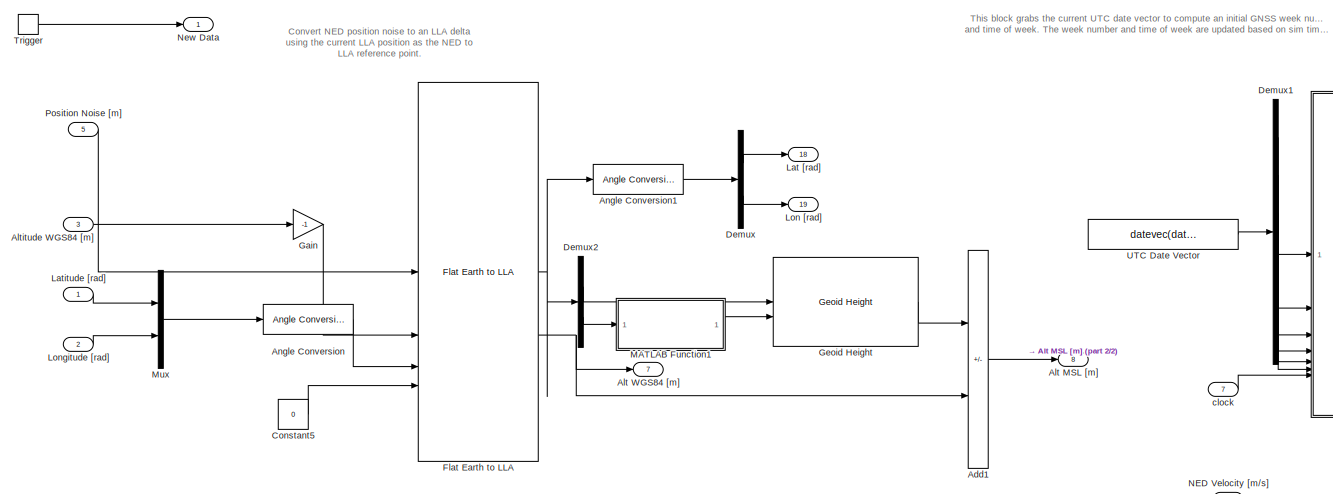
[diagram: Flight Management Unit/Sensor Models/GNSS/Triggered Subsystem - part 1/2, top left region]
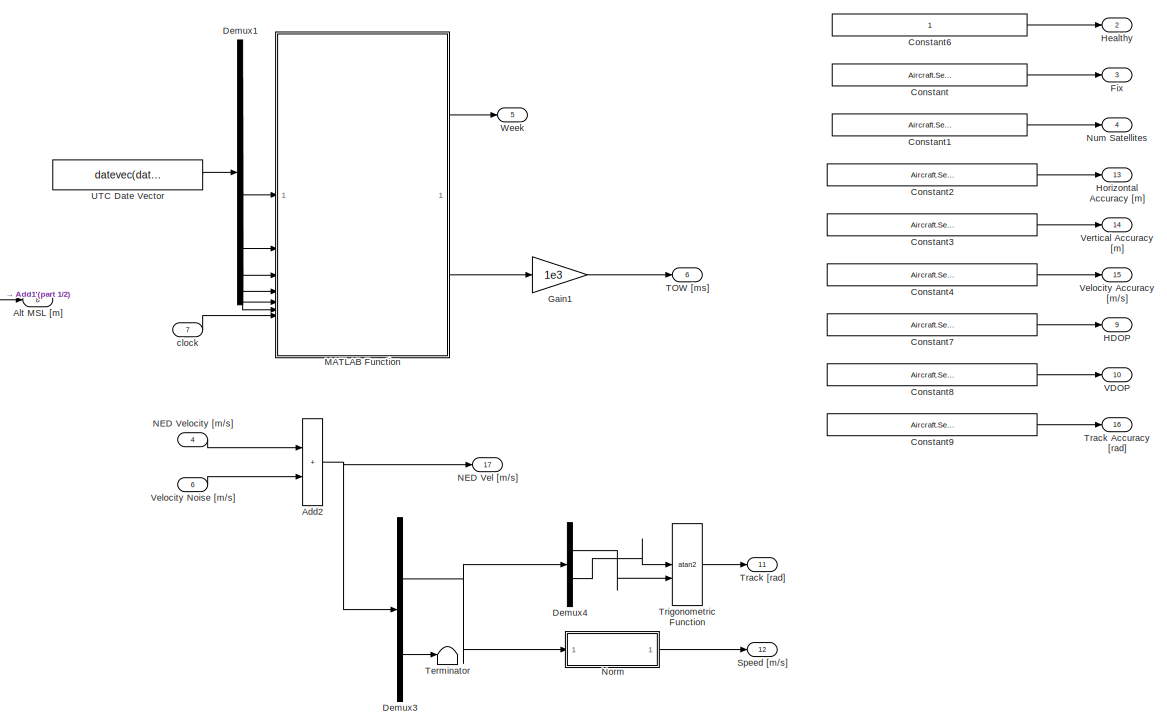
[diagram: Flight Management Unit/Sensor Models/GNSS/Triggered Subsystem - part 2/2, right side, full height]
BLOCK [SubSystem] Flight Management Unit/Sensor Models/GNSS/Triggered Subsystem
  TreatAsAtomicUnit = on
BLOCK [Sum] Flight Management Unit/Sensor Models/GNSS/Triggered Subsystem/Add1
  IconShape = rectangular
  Inputs = -+
BLOCK [Sum] Flight Management Unit/Sensor Models/GNSS/Triggered Subsystem/Add2
  IconShape = rectangular
BLOCK [Outport] Flight Management Unit/Sensor Models/GNSS/Triggered Subsystem/Alt MSL [m]
  Port = 8
BLOCK [Outport] Flight Management Unit/Sensor Models/GNSS/Triggered Subsystem/Alt WGS84 [m]
  Port = 7
BLOCK [Inport] Flight Management Unit/Sensor Models/GNSS/Triggered Subsystem/Altitude WGS84 [m]
  Port = 3
BLOCK [Reference] Flight Management Unit/Sensor Models/GNSS/Triggered Subsystem/Angle Conversion  REF=aerolibconvert2/Angle Conversion
  SourceBlock = aerolibconvert2/Angle Conversion
  SourceType = Angle Conversion
BLOCK [Reference] Flight Management Unit/Sensor Models/GNSS/Triggered Subsystem/Angle Conversion1  REF=aerolibconvert2/Angle Conversion
  SourceBlock = aerolibconvert2/Angle Conversion
  SourceType = Angle Conversion
BLOCK [Constant] Flight Management Unit/Sensor Models/GNSS/Triggered Subsystem/Constant
  Value = Aircraft.Sensors.Gnss.fix
BLOCK [Constant] Flight Management Unit/Sensor Models/GNSS/Triggered Subsystem/Constant1
  Value = Aircraft.Sensors.Gnss.num_satellites
BLOCK [Constant] Flight Management Unit/Sensor Models/GNSS/Triggered Subsystem/Constant2
  Value = Aircraft.Sensors.Gnss.horz_accuracy_m
BLOCK [Constant] Flight Management Unit/Sensor Models/GNSS/Triggered Subsystem/Constant3
  Value = Aircraft.Sensors.Gnss.vert_accuracy_m
BLOCK [Constant] Flight Management Unit/Sensor Models/GNSS/Triggered Subsystem/Constant4
  Value = Aircraft.Sensors.Gnss.vel_accuracy_mps
BLOCK [Constant] Flight Management Unit/Sensor Models/GNSS/Triggered Subsystem/Constant5
  Value = 0
BLOCK [Constant] Flight Management Unit/Sensor Models/GNSS/Triggered Subsystem/Constant6
BLOCK [Constant] Flight Management Unit/Sensor Models/GNSS/Triggered Subsystem/Constant7
  Value = Aircraft.Sensors.Gnss.hdop
BLOCK [Constant] Flight Management Unit/Sensor Models/GNSS/Triggered Subsystem/Constant8
  Value = Aircraft.Sensors.Gnss.vdop
BLOCK [Constant] Flight Management Unit/Sensor Models/GNSS/Triggered Subsystem/Constant9
  Value = Aircraft.Sensors.Gnss.track_accuracy_rad
BLOCK [Demux] Flight Management Unit/Sensor Models/GNSS/Triggered Subsystem/Demux
  Outputs = 2
BLOCK [Demux] Flight Management Unit/Sensor Models/GNSS/Triggered Subsystem/Demux1
  Outputs = 6
BLOCK [Demux] Flight Management Unit/Sensor Models/GNSS/Triggered Subsystem/Demux2
  Outputs = 2
BLOCK [Demux] Flight Management Unit/Sensor Models/GNSS/Triggered Subsystem/Demux3
  Outputs = [2 1]
BLOCK [Demux] Flight Management Unit/Sensor Models/GNSS/Triggered Subsystem/Demux4
  Outputs = 2
BLOCK [Outport] Flight Management Unit/Sensor Models/GNSS/Triggered Subsystem/Fix
  Port = 3
BLOCK [Reference] Flight Management Unit/Sensor Models/GNSS/Triggered Subsystem/Flat Earth to LLA  REF=aerolibtransform2/Flat Earth to LLA
  SourceBlock = aerolibtransform2/Flat Earth to LLA
  SourceType = Flat Earth to LLA
BLOCK [Gain] Flight Management Unit/Sensor Models/GNSS/Triggered Subsystem/Gain
  Gain = -1
BLOCK [Gain] Flight Management Unit/Sensor Models/GNSS/Triggered Subsystem/Gain1
  Gain = 1e3
BLOCK [Reference] Flight Management Unit/Sensor Models/GNSS/Triggered Subsystem/Geoid Height  REF=aerolibgravity2/Geoid Height
  AttributesFormatString = EGM2008 Geoid Data Unavailable
  SourceBlock = aerolibgravity2/Geoid Height
  SourceType = Geoid Height
BLOCK [Outport] Flight Management Unit/Sensor Models/GNSS/Triggered Subsystem/HDOP
  Port = 9
BLOCK [Outport] Flight Management Unit/Sensor Models/GNSS/Triggered Subsystem/Healthy
  Port = 2
BLOCK [Outport] Flight Management Unit/Sensor Models/GNSS/Triggered Subsystem/Horizontal Accuracy [m]
  Port = 13
BLOCK [Outport] Flight Management Unit/Sensor Models/GNSS/Triggered Subsystem/Lat [rad]
  Port = 18
BLOCK [Inport] Flight Management Unit/Sensor Models/GNSS/Triggered Subsystem/Latitude [rad]
BLOCK [Outport] Flight Management Unit/Sensor Models/GNSS/Triggered Subsystem/Lon [rad]
  Port = 19
BLOCK [Inport] Flight Management Unit/Sensor Models/GNSS/Triggered Subsystem/Longitude [rad] 
  Port = 2
BLOCK [SubSystem] Flight Management Unit/Sensor Models/GNSS/Triggered Subsystem/MATLAB Function
  ErrorFcn = Stateflow.Translate.translate
  PermitHierarchicalResolution = ExplicitOnly
  SFBlockType = MATLAB Function
  TreatAsAtomicUnit = on
BLOCK [Demux] Flight Management Unit/Sensor Models/GNSS/Triggered Subsystem/MATLAB Function/ Demux 
  Outputs = 1
BLOCK [S-Function] Flight Management Unit/Sensor Models/GNSS/Triggered Subsystem/MATLAB Function/ SFunction 
  EnableBusSupport = on
  FunctionName = sf_sfun
  PortCounts = [7 3]
  SFcnIsStateOwnerBlock = off
  SFunctionDeploymentMode = off
  Tag = Stateflow S-Function 2
BLOCK [Terminator] Flight Management Unit/Sensor Models/GNSS/Triggered Subsystem/MATLAB Function/ Terminator 
BLOCK [Outport] Flight Management Unit/Sensor Models/GNSS/Triggered Subsystem/MATLAB Function/gnss_tow
  Port = 2
BLOCK [Outport] Flight Management Unit/Sensor Models/GNSS/Triggered Subsystem/MATLAB Function/gnss_week
BLOCK [Inport] Flight Management Unit/Sensor Models/GNSS/Triggered Subsystem/MATLAB Function/hour
  Port = 4
BLOCK [Inport] Flight Management Unit/Sensor Models/GNSS/Triggered Subsystem/MATLAB Function/mday
  Port = 3
BLOCK [Inport] Flight Management Unit/Sensor Models/GNSS/Triggered Subsystem/MATLAB Function/minute
  Port = 5
BLOCK [Inport] Flight Management Unit/Sensor Models/GNSS/Triggered Subsystem/MATLAB Function/month
  Port = 2
BLOCK [Inport] Flight Management Unit/Sensor Models/GNSS/Triggered Subsystem/MATLAB Function/second
  Port = 6
BLOCK [Inport] Flight Management Unit/Sensor Models/GNSS/Triggered Subsystem/MATLAB Function/sim_clock
  Port = 7
BLOCK [Inport] Flight Management Unit/Sensor Models/GNSS/Triggered Subsystem/MATLAB Function/year
BLOCK [SubSystem] Flight Management Unit/Sensor Models/GNSS/Triggered Subsystem/MATLAB Function1
  ErrorFcn = Stateflow.Translate.translate
  PermitHierarchicalResolution = ExplicitOnly
  SFBlockType = MATLAB Function
  TreatAsAtomicUnit = on
BLOCK [Demux] Flight Management Unit/Sensor Models/GNSS/Triggered Subsystem/MATLAB Function1/ Demux 
  Outputs = 1
BLOCK [S-Function] Flight Management Unit/Sensor Models/GNSS/Triggered Subsystem/MATLAB Function1/ SFunction 
  EnableBusSupport = on
  FunctionName = sf_sfun
  PortCounts = [1 2]
  SFcnIsStateOwnerBlock = off
  SFunctionDeploymentMode = off
  Tag = Stateflow S-Function 3
BLOCK [Terminator] Flight Management Unit/Sensor Models/GNSS/Triggered Subsystem/MATLAB Function1/ Terminator 
BLOCK [Inport] Flight Management Unit/Sensor Models/GNSS/Triggered Subsystem/MATLAB Function1/ang
BLOCK [Outport] Flight Management Unit/Sensor Models/GNSS/Triggered Subsystem/MATLAB Function1/ret
BLOCK [Mux] Flight Management Unit/Sensor Models/GNSS/Triggered Subsystem/Mux
  DisplayOption = bar
  Inputs = 2
BLOCK [Outport] Flight Management Unit/Sensor Models/GNSS/Triggered Subsystem/NED Vel [m//s]
  Port = 17
BLOCK [Inport] Flight Management Unit/Sensor Models/GNSS/Triggered Subsystem/NED Velocity [m//s]
  Port = 4
  PortDimensions = 3
BLOCK [Outport] Flight Management Unit/Sensor Models/GNSS/Triggered Subsystem/New Data
BLOCK [SubSystem] Flight Management Unit/Sensor Models/GNSS/Triggered Subsystem/Norm
BLOCK [Inport] Flight Management Unit/Sensor Models/GNSS/Triggered Subsystem/Norm/2D Vector
BLOCK [Outport] Flight Management Unit/Sensor Models/GNSS/Triggered Subsystem/Norm/Norm
BLOCK [Product] Flight Management Unit/Sensor Models/GNSS/Triggered Subsystem/Norm/Product
BLOCK [Sqrt] Flight Management Unit/Sensor Models/GNSS/Triggered Subsystem/Norm/Sqrt
BLOCK [Sum] Flight Management Unit/Sensor Models/GNSS/Triggered Subsystem/Norm/Sum of Elements
  IconShape = rectangular
  Inputs = +
BLOCK [Outport] Flight Management Unit/Sensor Models/GNSS/Triggered Subsystem/Num Satellites
  Port = 4
BLOCK [Inport] Flight Management Unit/Sensor Models/GNSS/Triggered Subsystem/Position Noise [m]
  Port = 5
  PortDimensions = 3
BLOCK [Outport] Flight Management Unit/Sensor Models/GNSS/Triggered Subsystem/Speed [m//s]
  Port = 12
BLOCK [Outport] Flight Management Unit/Sensor Models/GNSS/Triggered Subsystem/TOW [ms]
  Port = 6
BLOCK [Terminator] Flight Management Unit/Sensor Models/GNSS/Triggered Subsystem/Terminator
BLOCK [Outport] Flight Management Unit/Sensor Models/GNSS/Triggered Subsystem/Track Accuracy [rad]
  Port = 16
BLOCK [Outport] Flight Management Unit/Sensor Models/GNSS/Triggered Subsystem/Track [rad]
  Port = 11
BLOCK [TriggerPort] Flight Management Unit/Sensor Models/GNSS/Triggered Subsystem/Trigger
  ShowOutputPort = on
  StatesWhenEnabling = held
  VariantControl = Variant
BLOCK [Trigonometry] Flight Management Unit/Sensor Models/GNSS/Triggered Subsystem/Trigonometric Function
  Operator = atan2
BLOCK [Constant] Flight Management Unit/Sensor Models/GNSS/Triggered Subsystem/UTC Date Vector
  SampleTime = -1
  Value = datevec(datetime(datetime('now', 'TimeZone','local'), 'TimeZone','Z'))
BLOCK [Outport] Flight Management Unit/Sensor Models/GNSS/Triggered Subsystem/VDOP
  Port = 10
BLOCK [Outport] Flight Management Unit/Sensor Models/GNSS/Triggered Subsystem/Velocity Accuracy [m//s]
  Port = 15
BLOCK [Inport] Flight Management Unit/Sensor Models/GNSS/Triggered Subsystem/Velocity Noise [m//s]
  Port = 6
  PortDimensions = 3
BLOCK [Outport] Flight Management Unit/Sensor Models/GNSS/Triggered Subsystem/Vertical Accuracy [m]
  Port = 14
BLOCK [Outport] Flight Management Unit/Sensor Models/GNSS/Triggered Subsystem/Week
  Port = 5
BLOCK [Inport] Flight Management Unit/Sensor Models/GNSS/Triggered Subsystem/clock
  Port = 7
BLOCK [SubSystem] Flight Management Unit/Sensor Models/IMU
BLOCK [SubSystem] Flight Management Unit/Sensor Models/IMU/Accelerometer
BLOCK [Outport] Flight Management Unit/Sensor Models/IMU/Accelerometer/Accelerometer [m//s//s]
  PortDimensions = 3
BLOCK [Sum] Flight Management Unit/Sensor Models/IMU/Accelerometer/Add
  IconShape = rectangular
  Inputs = +++
BLOCK [Reference] Flight Management Unit/Sensor Models/IMU/Accelerometer/Band-Limited White Noise  REF=simulink/Sources/Band-Limited
White Noise
  SourceBlock = simulink/Sources/Band-Limited\nWhite Noise
  SourceType = Band-Limited White Noise.
BLOCK [Inport] Flight Management Unit/Sensor Models/IMU/Accelerometer/Body Accel [m//s//s]
  PortDimensions = 3
BLOCK [Constant] Flight Management Unit/Sensor Models/IMU/Accelerometer/Constant
  Value = Aircraft.Sensors.Imu.Accel.bias_mps2
  VectorParams1D = off
BLOCK [Constant] Flight Management Unit/Sensor Models/IMU/Accelerometer/Constant1
  Value = Aircraft.Sensors.Imu.Accel.scale_factor
BLOCK [Inport] Flight Management Unit/Sensor Models/IMU/Accelerometer/Gravitational Accel in Body Frame [m//s//s]
  Port = 2
  PortDimensions = 3
BLOCK [Product] Flight Management Unit/Sensor Models/IMU/Accelerometer/Product
  Multiplication = Matrix(*)
BLOCK [Reshape] Flight Management Unit/Sensor Models/IMU/Accelerometer/Reshape
  OutputDimensionality = Column vector (2-D)
BLOCK [Reshape] Flight Management Unit/Sensor Models/IMU/Accelerometer/Reshape1
  OutputDimensionality = Column vector (2-D)
BLOCK [Reshape] Flight Management Unit/Sensor Models/IMU/Accelerometer/Reshape2
BLOCK [Saturate] Flight Management Unit/Sensor Models/IMU/Accelerometer/Saturation
  LowerLimit = Aircraft.Sensors.Imu.Accel.lower_limit_mps2
  UpperLimit = Aircraft.Sensors.Imu.Accel.upper_limit_mps2
BLOCK [Sum] Flight Management Unit/Sensor Models/IMU/Accelerometer/Subtract
  IconShape = rectangular
  Inputs = +-
BLOCK [Inport] Flight Management Unit/Sensor Models/IMU/Body Accel [m//s//s]
  Port = 2
BLOCK [Inport] Flight Management Unit/Sensor Models/IMU/Body Rotational Rate [rad//s]
BLOCK [BusCreator] Flight Management Unit/Sensor Models/IMU/Bus Creator
  DisplayOption = bar
  InheritFromInputs = on
  Inputs = 8
BLOCK [Constant] Flight Management Unit/Sensor Models/IMU/Constant
BLOCK [Constant] Flight Management Unit/Sensor Models/IMU/Constant1
BLOCK [Constant] Flight Management Unit/Sensor Models/IMU/Constant2
BLOCK [Constant] Flight Management Unit/Sensor Models/IMU/Constant3
BLOCK [Constant] Flight Management Unit/Sensor Models/IMU/Constant4
  Value = 23
BLOCK [Inport] Flight Management Unit/Sensor Models/IMU/DCM_be
  Port = 3
BLOCK [Inport] Flight Management Unit/Sensor Models/IMU/Gravity [m//s//s]
  Port = 4
BLOCK [SubSystem] Flight Management Unit/Sensor Models/IMU/Gyro
BLOCK [Sum] Flight Management Unit/Sensor Models/IMU/Gyro/Add1
  IconShape = rectangular
  Inputs = ++++
BLOCK [Reference] Flight Management Unit/Sensor Models/IMU/Gyro/Band-Limited White Noise  REF=simulink/Sources/Band-Limited
White Noise
  SourceBlock = simulink/Sources/Band-Limited\nWhite Noise
  SourceType = Band-Limited White Noise.
BLOCK [Inport] Flight Management Unit/Sensor Models/IMU/Gyro/Body Accel [m//s//s]
  Port = 2
  PortDimensions = 3
BLOCK [Inport] Flight Management Unit/Sensor Models/IMU/Gyro/Body Rotational Rate [rad//s]
  PortDimensions = 3
BLOCK [Constant] Flight Management Unit/Sensor Models/IMU/Gyro/Constant1
  Value = Aircraft.Sensors.Imu.Gyro.bias_radps
  VectorParams1D = off
BLOCK [Constant] Flight Management Unit/Sensor Models/IMU/Gyro/Constant2
  Value = Aircraft.Sensors.Imu.Gyro.accel_sens_radps
BLOCK [Constant] Flight Management Unit/Sensor Models/IMU/Gyro/Constant3
  Value = Aircraft.Sensors.Imu.Gyro.scale_factor
  VectorParams1D = off
BLOCK [Outport] Flight Management Unit/Sensor Models/IMU/Gyro/Gyro [rad//s]
  PortDimensions = 3
BLOCK [Product] Flight Management Unit/Sensor Models/IMU/Gyro/Product
BLOCK [Product] Flight Management Unit/Sensor Models/IMU/Gyro/Product1
  Multiplication = Matrix(*)
BLOCK [Reshape] Flight Management Unit/Sensor Models/IMU/Gyro/Reshape
  OutputDimensionality = Column vector (2-D)
BLOCK [Reshape] Flight Management Unit/Sensor Models/IMU/Gyro/Reshape1
  OutputDimensionality = Column vector (2-D)
BLOCK [Reshape] Flight Management Unit/Sensor Models/IMU/Gyro/Reshape2
BLOCK [Saturate] Flight Management Unit/Sensor Models/IMU/Gyro/Saturation
  LowerLimit = Aircraft.Sensors.Imu.Gyro.lower_limit_radps
  UpperLimit = Aircraft.Sensors.Imu.Gyro.upper_limit_radps
BLOCK [Outport] Flight Management Unit/Sensor Models/IMU/IMU Data
BLOCK [Inport] Flight Management Unit/Sensor Models/IMU/Magnetic Field [uT]
  Port = 5
BLOCK [SubSystem] Flight Management Unit/Sensor Models/IMU/Magnetometer
BLOCK [Sum] Flight Management Unit/Sensor Models/IMU/Magnetometer/Add2
  IconShape = rectangular
  Inputs = +++
BLOCK [Reference] Flight Management Unit/Sensor Models/IMU/Magnetometer/Band-Limited White Noise  REF=simulink/Sources/Band-Limited
White Noise
  SourceBlock = simulink/Sources/Band-Limited\nWhite Noise
  SourceType = Band-Limited White Noise.
BLOCK [Inport] Flight Management Unit/Sensor Models/IMU/Magnetometer/Body Magnetic Field [uT]
  PortDimensions = 3
BLOCK [Constant] Flight Management Unit/Sensor Models/IMU/Magnetometer/Constant1
  Value = Aircraft.Sensors.Imu.Mag.scale_factor
  VectorParams1D = off
BLOCK [Constant] Flight Management Unit/Sensor Models/IMU/Magnetometer/Constant2
  Value = Aircraft.Sensors.Imu.Mag.bias_ut
BLOCK [Outport] Flight Management Unit/Sensor Models/IMU/Magnetometer/Magnetometer [uT]
  PortDimensions = 3
BLOCK [Product] Flight Management Unit/Sensor Models/IMU/Magnetometer/Product
  Multiplication = Matrix(*)
BLOCK [Reshape] Flight Management Unit/Sensor Models/IMU/Magnetometer/Reshape
  OutputDimensionality = Column vector (2-D)
BLOCK [Reshape] Flight Management Unit/Sensor Models/IMU/Magnetometer/Reshape1
BLOCK [Saturate] Flight Management Unit/Sensor Models/IMU/Magnetometer/Saturation
  LowerLimit = Aircraft.Sensors.Imu.Mag.lower_limit_ut
  UpperLimit = Aircraft.Sensors.Imu.Mag.upper_limit_ut
BLOCK [Product] Flight Management Unit/Sensor Models/IMU/Product1
  Multiplication = Matrix(*)
BLOCK [Product] Flight Management Unit/Sensor Models/IMU/Product2
  Multiplication = Matrix(*)
BLOCK [Reshape] Flight Management Unit/Sensor Models/IMU/Reshape
  OutputDimensionality = Column vector (2-D)
BLOCK [Reshape] Flight Management Unit/Sensor Models/IMU/Reshape1
BLOCK [Reshape] Flight Management Unit/Sensor Models/IMU/Reshape2
BLOCK [Reshape] Flight Management Unit/Sensor Models/IMU/Reshape3
  OutputDimensionality = Column vector (2-D)
BLOCK [Inport] Flight Management Unit/Sensor Models/Inceptor Data
  Port = 3
BLOCK [Outport] Flight Management Unit/Sensor Models/Sensors
BLOCK [SubSystem] Flight Management Unit/Sensor Models/Static Pressure Sensor
BLOCK [Sum] Flight Management Unit/Sensor Models/Static Pressure Sensor/Add
  IconShape = rectangular
  Inputs = +++
BLOCK [Reference] Flight Management Unit/Sensor Models/Static Pressure Sensor/Band-Limited White Noise  REF=simulink/Sources/Band-Limited
White Noise
  SourceBlock = simulink/Sources/Band-Limited\nWhite Noise
  SourceType = Band-Limited White Noise.
BLOCK [BusCreator] Flight Management Unit/Sensor Models/Static Pressure Sensor/Bus Creator
  DisplayOption = bar
  InheritFromInputs = on
  Inputs = 4
BLOCK [Constant] Flight Management Unit/Sensor Models/Static Pressure Sensor/Constant
  Value = Aircraft.Sensors.StaticPres.bias_pa
BLOCK [Constant] Flight Management Unit/Sensor Models/Static Pressure Sensor/Constant1
  Value = Aircraft.Sensors.StaticPres.scale_factor
BLOCK [Constant] Flight Management Unit/Sensor Models/Static Pressure Sensor/Constant2
  Value = 23
BLOCK [Constant] Flight Management Unit/Sensor Models/Static Pressure Sensor/Constant3
BLOCK [Constant] Flight Management Unit/Sensor Models/Static Pressure Sensor/Constant4
BLOCK [Inport] Flight Management Unit/Sensor Models/Static Pressure Sensor/Pressure
BLOCK [Outport] Flight Management Unit/Sensor Models/Static Pressure Sensor/Pressure Data
BLOCK [Product] Flight Management Unit/Sensor Models/Static Pressure Sensor/Product
BLOCK [Saturate] Flight Management Unit/Sensor Models/Static Pressure Sensor/Saturation
  LowerLimit = Aircraft.Sensors.StaticPres.lower_limit_pa
  UpperLimit = Aircraft.Sensors.StaticPres.upper_limit_pa
BLOCK [Inport] Flight Management Unit/Sensor Models/Vehicle State
  Port = 2
BLOCK [SubSystem] Flight Management Unit/Subsystem
BLOCK [Inport] Flight Management Unit/Subsystem/<Waypoint Reached>
  Port = 2
BLOCK [Inport] Flight Management Unit/Subsystem/Bus
BLOCK [BusCreator] Flight Management Unit/Subsystem/Bus Creator
  DisplayOption = bar
  InheritFromInputs = on
  Inputs = 11
BLOCK [BusSelector] Flight Management Unit/Subsystem/Bus Selector1
  OutputSignals = Waypoints Updated,Fence Updated,Rally Points Updated,Current Waypoint Index,Number of Waypoints,Number of Fence Points,Number of Rally Points,Parameters,Flight Plan,Fence,Rally
BLOCK [Outport] Flight Management Unit/Subsystem/Telemetry Data
BLOCK [Terminator] Flight Management Unit/Subsystem/Terminator
BLOCK [SubSystem] Flight Management Unit/Subsystem/Triggered Subsystem
  TreatAsAtomicUnit = on
BLOCK [Constant] Flight Management Unit/Subsystem/Triggered Subsystem/Constant
  OutDataTypeStr = int16
BLOCK [Sum] Flight Management Unit/Subsystem/Triggered Subsystem/Sum
  AccumDataTypeStr = uint16
  Inputs = |++
BLOCK [TriggerPort] Flight Management Unit/Subsystem/Triggered Subsystem/Trigger
  StatesWhenEnabling = held
  VariantControl = (inherit)
BLOCK [Inport] Flight Management Unit/Subsystem/Triggered Subsystem/Wp
BLOCK [Outport] Flight Management Unit/Subsystem/Triggered Subsystem/Wp++
BLOCK [UnitDelay] Flight Management Unit/Subsystem/Unit Delay
  HasFrameUpgradeWarning = on
  SampleTime = -1
BLOCK [UnitDelay] Flight Management Unit/Subsystem/Unit Delay1
  HasFrameUpgradeWarning = on
  SampleTime = -1
BLOCK [SubSystem] Flight Management Unit/System Model
  PortSchema = {"entries":[{"content":{"sides":[{"content":{"connectorIds":[]},"type":"ConnectorPlacement.EquallySpacedRectSide","uuid":"b20f7590-d69b-48b8-beb1-2fb7d3ab0357"},{"content":{"connectorIds":[],"side":"RIGHT"},"type":"ConnectorPlacement.EquallySpacedRectSide","uuid":"07801f8a-7756-483e-a050-3c2fccc33404"},{"content":{"connectorIds":[],"side":"TOP"},"type":"ConnectorPlacement.EquallySpacedRectSide","u...<+523ch>
BLOCK [BusCreator] Flight Management Unit/System Model/Bus Creator
  DisplayOption = bar
  InheritFromInputs = on
  Inputs = 8
BLOCK [Clock] Flight Management Unit/System Model/Clock
  Decimation = 1e6
BLOCK [Constant] Flight Management Unit/System Model/Constant
  Value = 5
BLOCK [Constant] Flight Management Unit/System Model/Constant1
  Value = 5
BLOCK [Constant] Flight Management Unit/System Model/Constant2
  Value = 5
BLOCK [Constant] Flight Management Unit/System Model/Constant3
  Value = Aircraft.Battery.voltage
BLOCK [Constant] Flight Management Unit/System Model/Constant4
  Value = framePeriod_s
BLOCK [Gain] Flight Management Unit/System Model/Gain
  Gain = 1e6
BLOCK [Gain] Flight Management Unit/System Model/Gain1
  Gain = 1e6
BLOCK [Outport] Flight Management Unit/System Model/System
BLOCK [Inport] Flight Management Unit/Telemetry
  Port = 6
BLOCK [UnitDelay] Flight Management Unit/Unit Delay
  HasFrameUpgradeWarning = on
  SampleTime = -1
BLOCK [UnitDelay] Flight Management Unit/Unit Delay1
  HasFrameUpgradeWarning = on
  SampleTime = -1
BLOCK [Inport] Flight Management Unit/Vehicle State
BLOCK [SubSystem] Pilot Input
BLOCK [BusCreator] Pilot Input/Bus Creator
  DisplayOption = bar
  InheritFromInputs = on
  Inputs = 6
BLOCK [Constant] Pilot Input/Ch1
  NameLocation = left
  OutDataTypeStr = int16
  Value = 172
BLOCK [Constant] Pilot Input/Ch10
  NameLocation = left
  OutDataTypeStr = int16
  Value = 0
BLOCK [Constant] Pilot Input/Ch11
  NameLocation = left
  OutDataTypeStr = int16
  Value = 0
BLOCK [Constant] Pilot Input/Ch12
  NameLocation = left
  OutDataTypeStr = int16
  Value = 0
BLOCK [Constant] Pilot Input/Ch13
  NameLocation = left
  OutDataTypeStr = int16
  Value = 0
BLOCK [Constant] Pilot Input/Ch14
  NameLocation = left
  OutDataTypeStr = int16
  Value = 0
BLOCK [Constant] Pilot Input/Ch15
  NameLocation = left
  OutDataTypeStr = int16
  Value = 0
BLOCK [Constant] Pilot Input/Ch16
  NameLocation = left
  OutDataTypeStr = int16
  Value = 0
BLOCK [Constant] Pilot Input/Ch2
  NameLocation = left
  OutDataTypeStr = int16
  Value = 991
BLOCK [Constant] Pilot Input/Ch3
  NameLocation = left
  OutDataTypeStr = int16
  Value = 991
BLOCK [Constant] Pilot Input/Ch4
  NameLocation = left
  OutDataTypeStr = int16
  Value = 1811
BLOCK [Constant] Pilot Input/Ch5
  NameLocation = left
  OutDataTypeStr = int16
  Value = 1811
BLOCK [Constant] Pilot Input/Ch6
  NameLocation = left
  OutDataTypeStr = int16
  Value = 0
BLOCK [Constant] Pilot Input/Ch7
  NameLocation = left
  OutDataTypeStr = int16
  Value = 172
BLOCK [Constant] Pilot Input/Ch8
  NameLocation = left
  OutDataTypeStr = int16
  Value = 172
BLOCK [Constant] Pilot Input/Ch9
  NameLocation = left
  OutDataTypeStr = int16
  Value = 0
BLOCK [Constant] Pilot Input/Constant
  OutDataTypeStr = int8
  Value = 0
BLOCK [Constant] Pilot Input/Constant2
  OutDataTypeStr = boolean
BLOCK [Constant] Pilot Input/Constant3
  OutDataTypeStr = boolean
  Value = 0
BLOCK [Constant] Pilot Input/Constant8
  OutDataTypeStr = boolean
  Value = 0
BLOCK [Constant] Pilot Input/Constant9
  OutDataTypeStr = boolean
  Value = 0
BLOCK [Mux] Pilot Input/Mux
  DisplayOption = bar
  Inputs = 16
BLOCK [Outport] Pilot Input/Pilot Commands
BLOCK [SubSystem] Subsystem
BLOCK [Outport] Subsystem/<NED Position [m]>
BLOCK [BusSelector] Subsystem/Bus Selector
  OutputSignals = NED Position [m],DCM_be,Pitch [rad],Roll [rad],Yaw [rad]
BLOCK [Reference] Subsystem/Direction Cosine Matrix to Quaternions  REF=sharedtransform/Direction Cosine Matrix 
to Quaternions
  LibrarySourceBlock = aerolibtransform2/Direction Cosine Matrix \nto Quaternions
  SourceBlock = sharedtransform/Direction Cosine Matrix \nto Quaternions
  SourceType = DCM2Quaternion
BLOCK [Outport] Subsystem/Euler_rad
  Port = 3
BLOCK [Mux] Subsystem/Mux
  DisplayOption = bar
  Inputs = 3
BLOCK [Outport] Subsystem/Quatenion
  Port = 2
BLOCK [Inport] Subsystem/Vehicle State
BLOCK [SubSystem] Subsystem1
BLOCK [BusSelector] Subsystem1/Bus Selector
  OutputSignals = Longitude [rad],Latitude [rad],Altitude AGL [m],Roll [rad],Pitch [rad],Yaw [rad]
BLOCK [Reference] Subsystem1/FlightGear Preconfigured 6DoF Animation  REF=aerolibfltsims/FlightGear
Preconfigured
6DoF Animation
  SourceBlock = aerolibfltsims/FlightGear\nPreconfigured\n6DoF Animation
  SourceType = FlightGearQuick6DoFAnimation
BLOCK [Inport] Subsystem1/In1
BLOCK [Mux] Subsystem1/Mux
  DisplayOption = bar
  Inputs = 6
BLOCK [SubSystem] Telemetry
BLOCK [BusCreator] Telemetry/Bus Creator
  DisplayOption = bar
  InheritFromInputs = on
  Inputs = 11
BLOCK [Constant] Telemetry/Constant1
  OutDataTypeStr = boolean
  Value = 0
BLOCK [Constant] Telemetry/Constant10
  OutDataTypeStr = Bus: MissionItem
  Value = Telem.Fence
BLOCK [Constant] Telemetry/Constant11
  OutDataTypeStr = Bus: MissionItem
  Value = Telem.Rally
BLOCK [Constant] Telemetry/Constant2
  OutDataTypeStr = boolean
  Value = 0
BLOCK [Constant] Telemetry/Constant3
  OutDataTypeStr = int16
BLOCK [Constant] Telemetry/Constant4
  OutDataTypeStr = int16
  Value = 0
BLOCK [Constant] Telemetry/Constant5
  OutDataTypeStr = int16
  Value = 0
BLOCK [Constant] Telemetry/Constant6
  OutDataTypeStr = int16
  Value = 0
BLOCK [Constant] Telemetry/Constant7
  OutDataTypeStr = single
  Value = [0 0 0 0 0 0 0 0 0 Aircraft.Control.wp_radius 1 1 1 0 0 0 0 0 0 0 0 0 0 0]
BLOCK [Constant] Telemetry/Constant8
  OutDataTypeStr = boolean
  Value = 0
BLOCK [Constant] Telemetry/Constant9
  OutDataTypeStr = Bus: MissionItem
  Value = Telem.FlightPlan
BLOCK [Outport] Telemetry/Telemetry Data
BLOCK [Terminator] Terminator
BLOCK [Reference] UAV Animation  REF=uavutilslib/UAV Animation
  SourceBlock = uavutilslib/UAV Animation
  SourceType = uav.sluav.internal.system.UAVAnimation
BLOCK [SubSystem] Vehicle
BLOCK [BusCreator] Vehicle/Bus Creator
  DisplayOption = bar
  InheritFromInputs = on
  Inputs = 26
BLOCK [BusSelector] Vehicle/Bus Selector
  OutputSignals = Gravity [m/s/s],Density [kg/m^3],Speed of Sound [m/s]
BLOCK [BusSelector] Vehicle/Bus Selector1
  OutputSignals = Dynamic Pressure [Pa],DCM_be,Body Rotational Rate [rad/s],Airspeed [m/s],Angle of Attack [rad],Sideslip Angle [rad],Body Velocity [m/s]
BLOCK [Inport] Vehicle/Environment
BLOCK [SubSystem] Vehicle/Forces and Moments
BLOCK [Inport] Vehicle/Forces and Moments/<Angle of Attack [rad]>
  Port = 5
BLOCK [Inport] Vehicle/Forces and Moments/<Body Rotational Rate [rad//s]>
  Port = 3
BLOCK [Inport] Vehicle/Forces and Moments/<DCM_be>
  Port = 2
BLOCK [Inport] Vehicle/Forces and Moments/<Density [kg//m^3]>
  Port = 11
BLOCK [Inport] Vehicle/Forces and Moments/<Dynamic Pressure [Pa]>
BLOCK [Inport] Vehicle/Forces and Moments/<Gravity [m//s//s]>
  Port = 10
BLOCK [Inport] Vehicle/Forces and Moments/<Sideslip Angle [rad]>
  Port = 6
BLOCK [Sum] Vehicle/Forces and Moments/Add
  IconShape = rectangular
  Inputs = +++
BLOCK [SubSystem] Vehicle/Forces and Moments/Aerodynamic
BLOCK [Inport] Vehicle/Forces and Moments/Aerodynamic/Airspeed [m//s]
  Port = 6
BLOCK [Inport] Vehicle/Forces and Moments/Aerodynamic/Angle of Attack [rad]
  Port = 3
BLOCK [Inport] Vehicle/Forces and Moments/Aerodynamic/Body Rotational Rate [rad//s]
  Port = 4
BLOCK [Inport] Vehicle/Forces and Moments/Aerodynamic/Dynamic Pressure [Pa]
  Port = 2
BLOCK [SubSystem] Vehicle/Forces and Moments/Aerodynamic/Forward Flight
BLOCK [Reference] Vehicle/Forces and Moments/Aerodynamic/Forward Flight/Aerodynamic Forces and Moments   REF=aerolibadyn/Aerodynamic
Forces and Moments 
  SourceBlock = aerolibadyn/Aerodynamic\nForces and Moments
  SourceType = Aerodynamic Forces and Moments
BLOCK [Inport] Vehicle/Forces and Moments/Aerodynamic/Forward Flight/Airspeed [m//s]
  Port = 6
BLOCK [Inport] Vehicle/Forces and Moments/Aerodynamic/Forward Flight/Angle of Attack [rad]
  Port = 3
BLOCK [Inport] Vehicle/Forces and Moments/Aerodynamic/Forward Flight/Body Rotational Rate [rad//s]
  Port = 4
BLOCK [SubSystem] Vehicle/Forces and Moments/Aerodynamic/Forward Flight/Calculate Aerodynamic Coefficients
  ErrorFcn = Stateflow.Translate.translate
  LibrarySourceBlock = simulink/User-Defined\nFunctions/MATLAB Function
  PermitHierarchicalResolution = ExplicitOnly
  SFBlockType = MATLAB Function
  TreatAsAtomicUnit = on
BLOCK [Demux] Vehicle/Forces and Moments/Aerodynamic/Forward Flight/Calculate Aerodynamic Coefficients/ Demux 
  Outputs = 1
BLOCK [S-Function] Vehicle/Forces and Moments/Aerodynamic/Forward Flight/Calculate Aerodynamic Coefficients/ SFunction 
  EnableBusSupport = on
  FunctionName = sf_sfun
  PortCounts = [13 2]
  SFcnIsStateOwnerBlock = off
  SFunctionDeploymentMode = off
  Tag = Stateflow S-Function 10
BLOCK [Terminator] Vehicle/Forces and Moments/Aerodynamic/Forward Flight/Calculate Aerodynamic Coefficients/ Terminator 
BLOCK [Inport] Vehicle/Forces and Moments/Aerodynamic/Forward Flight/Calculate Aerodynamic Coefficients/CD_coefs
  Port = 4
BLOCK [Inport] Vehicle/Forces and Moments/Aerodynamic/Forward Flight/Calculate Aerodynamic Coefficients/CL_coefs
  Port = 3
BLOCK [Inport] Vehicle/Forces and Moments/Aerodynamic/Forward Flight/Calculate Aerodynamic Coefficients/CY_coefs
  Port = 5
BLOCK [Inport] Vehicle/Forces and Moments/Aerodynamic/Forward Flight/Calculate Aerodynamic Coefficients/Cl_coefs
  Port = 6
BLOCK [Inport] Vehicle/Forces and Moments/Aerodynamic/Forward Flight/Calculate Aerodynamic Coefficients/Cm_coefs
  Port = 7
BLOCK [Inport] Vehicle/Forces and Moments/Aerodynamic/Forward Flight/Calculate Aerodynamic Coefficients/Cn_coefs
  Port = 8
BLOCK [Outport] Vehicle/Forces and Moments/Aerodynamic/Forward Flight/Calculate Aerodynamic Coefficients/aero_coefs_body
BLOCK [Inport] Vehicle/Forces and Moments/Aerodynamic/Forward Flight/Calculate Aerodynamic Coefficients/airspeed
  Port = 13
BLOCK [Inport] Vehicle/Forces and Moments/Aerodynamic/Forward Flight/Calculate Aerodynamic Coefficients/alpha
  Port = 9
BLOCK [Inport] Vehicle/Forces and Moments/Aerodynamic/Forward Flight/Calculate Aerodynamic Coefficients/beta
  Port = 12
BLOCK [Inport] Vehicle/Forces and Moments/Aerodynamic/Forward Flight/Calculate Aerodynamic Coefficients/bref
BLOCK [Inport] Vehicle/Forces and Moments/Aerodynamic/Forward Flight/Calculate Aerodynamic Coefficients/cref
  Port = 2
BLOCK [Inport] Vehicle/Forces and Moments/Aerodynamic/Forward Flight/Calculate Aerodynamic Coefficients/deflections
  Port = 11
BLOCK [Inport] Vehicle/Forces and Moments/Aerodynamic/Forward Flight/Calculate Aerodynamic Coefficients/pqr
  Port = 10
BLOCK [Constant] Vehicle/Forces and Moments/Aerodynamic/Forward Flight/Constant
  Value = Aircraft.Ucertain.Forward.CL_coefs
BLOCK [Constant] Vehicle/Forces and Moments/Aerodynamic/Forward Flight/Constant1
  Value = Aircraft.Mass.cg_m
BLOCK [Constant] Vehicle/Forces and Moments/Aerodynamic/Forward Flight/Constant10
  Value = Aircraft.Geom.c_m
BLOCK [Constant] Vehicle/Forces and Moments/Aerodynamic/Forward Flight/Constant2
  Value = Aircraft.Geom.cp_m
BLOCK [Constant] Vehicle/Forces and Moments/Aerodynamic/Forward Flight/Constant3
  Value = Aircraft.Ucertain.Forward.CD_coefs
BLOCK [Constant] Vehicle/Forces and Moments/Aerodynamic/Forward Flight/Constant4
  Value = Aircraft.Ucertain.Forward.CY_coefs
BLOCK [Constant] Vehicle/Forces and Moments/Aerodynamic/Forward Flight/Constant5
  Value = Aircraft.Ucertain.Forward.Cl_coefs
BLOCK [Constant] Vehicle/Forces and Moments/Aerodynamic/Forward Flight/Constant6
  Value = Aircraft.Ucertain.Forward.Cm_coefs
BLOCK [Constant] Vehicle/Forces and Moments/Aerodynamic/Forward Flight/Constant7
  Value = Aircraft.Ucertain.Forward.Cn_coefs
BLOCK [Constant] Vehicle/Forces and Moments/Aerodynamic/Forward Flight/Constant9
  Value = Aircraft.Geom.b_m
BLOCK [Inport] Vehicle/Forces and Moments/Aerodynamic/Forward Flight/Dynamic Pressure [Pa]
  Port = 2
BLOCK [Outport] Vehicle/Forces and Moments/Aerodynamic/Forward Flight/FxyzMxyz_forward
BLOCK [Mux] Vehicle/Forces and Moments/Aerodynamic/Forward Flight/Mux
  DisplayOption = bar
  Inputs = 2
BLOCK [Reshape] Vehicle/Forces and Moments/Aerodynamic/Forward Flight/Reshape
  OutputDimensionality = Row vector (2-D)
BLOCK [Reshape] Vehicle/Forces and Moments/Aerodynamic/Forward Flight/Reshape1
  OutputDimensionality = Row vector (2-D)
BLOCK [Inport] Vehicle/Forces and Moments/Aerodynamic/Forward Flight/Sideslip Angle [rad]
  Port = 5
BLOCK [Inport] Vehicle/Forces and Moments/Aerodynamic/Forward Flight/Surface Positions [rad]
BLOCK [Outport] Vehicle/Forces and Moments/Aerodynamic/FxyzMxyz
BLOCK [SubSystem] Vehicle/Forces and Moments/Aerodynamic/Hover Flight
BLOCK [Constant] Vehicle/Forces and Moments/Aerodynamic/Hover Flight/Constant
  Value = zeros(1,6)
BLOCK [Outport] Vehicle/Forces and Moments/Aerodynamic/Hover Flight/FxyzMxyz_Hover
BLOCK [Inport] Vehicle/Forces and Moments/Aerodynamic/Hover Flight/In1
BLOCK [Reshape] Vehicle/Forces and Moments/Aerodynamic/Hover Flight/Reshape
  OutputDimensionality = Row vector (2-D)
BLOCK [Terminator] Vehicle/Forces and Moments/Aerodynamic/Hover Flight/Terminator
BLOCK [Inport] Vehicle/Forces and Moments/Aerodynamic/Sideslip Angle [rad]
  Port = 5
BLOCK [Inport] Vehicle/Forces and Moments/Aerodynamic/Surface Positions [rad]
BLOCK [SubSystem] Vehicle/Forces and Moments/Aerodynamic/Weighted Calculation
BLOCK [Outport] Vehicle/Forces and Moments/Aerodynamic/Weighted Calculation/FxyzMxyz
BLOCK [Inport] Vehicle/Forces and Moments/Aerodynamic/Weighted Calculation/FxyzMxyz_Hover
  Port = 3
BLOCK [Inport] Vehicle/Forces and Moments/Aerodynamic/Weighted Calculation/FxyzMxyz_forward
BLOCK [SubSystem] Vehicle/Forces and Moments/Aerodynamic/Weighted Calculation/MATLAB Function
  ErrorFcn = Stateflow.Translate.translate
  LibrarySourceBlock = simulink/User-Defined\nFunctions/MATLAB Function
  PermitHierarchicalResolution = ExplicitOnly
  SFBlockType = MATLAB Function
  TreatAsAtomicUnit = on
BLOCK [Demux] Vehicle/Forces and Moments/Aerodynamic/Weighted Calculation/MATLAB Function/ Demux 
  Outputs = 1
BLOCK [S-Function] Vehicle/Forces and Moments/Aerodynamic/Weighted Calculation/MATLAB Function/ SFunction 
  EnableBusSupport = on
  FunctionName = sf_sfun
  PortCounts = [3 2]
  SFcnIsStateOwnerBlock = off
  SFunctionDeploymentMode = off
  Tag = Stateflow S-Function 11
BLOCK [Terminator] Vehicle/Forces and Moments/Aerodynamic/Weighted Calculation/MATLAB Function/ Terminator 
BLOCK [Inport] Vehicle/Forces and Moments/Aerodynamic/Weighted Calculation/MATLAB Function/FxyzMxyz_Hover
  Port = 3
BLOCK [Inport] Vehicle/Forces and Moments/Aerodynamic/Weighted Calculation/MATLAB Function/FxyzMxyz_forward
BLOCK [Inport] Vehicle/Forces and Moments/Aerodynamic/Weighted Calculation/MATLAB Function/alpha
  Port = 2
BLOCK [Outport] Vehicle/Forces and Moments/Aerodynamic/Weighted Calculation/MATLAB Function/weighted_FM
BLOCK [Selector] Vehicle/Forces and Moments/Aerodynamic/Weighted Calculation/Selector
  IndexOptions = Index vector (dialog)
  Indices = 1
  InputPortWidth = 3
  OutputSizes = 1
BLOCK [Reference] Vehicle/Forces and Moments/Aerodynamic/Weighted Calculation/Sigmoidal MF  REF=fuzblock/Membership   (lib defined in mdl_858b3b3e7478)
Functions/Sigmoidal MF
  SourceBlock = fuzblock/Membership \nFunctions/Sigmoidal MF
  SourceType = Sigmoidal membership function
BLOCK [Inport] Vehicle/Forces and Moments/Aerodynamic/Weighted Calculation/uvw
  Port = 2
BLOCK [Inport] Vehicle/Forces and Moments/Aerodynamic/uvw
  Port = 7
BLOCK [Inport] Vehicle/Forces and Moments/Airspeed [m//s]
  Port = 4
BLOCK [Demux] Vehicle/Forces and Moments/Demux3
  Outputs = 2
BLOCK [Saturate] Vehicle/Forces and Moments/Divide by zero protection
  LowerLimit = 1e-4
  UpperLimit = inf
BLOCK [Outport] Vehicle/Forces and Moments/Fxyz [N]
BLOCK [SubSystem] Vehicle/Forces and Moments/Gravitational
BLOCK [Inport] Vehicle/Forces and Moments/Gravitational/DCM_be
  Port = 2
BLOCK [Outport] Vehicle/Forces and Moments/Gravitational/Fxyz Mxyz
BLOCK [Constant] Vehicle/Forces and Moments/Gravitational/Gravity Moment
  Value = [0 0 0]
BLOCK [Inport] Vehicle/Forces and Moments/Gravitational/Gravity [m//s//s]
BLOCK [Mux] Vehicle/Forces and Moments/Gravitational/Mux
  DisplayOption = bar
  Inputs = 2
BLOCK [Product] Vehicle/Forces and Moments/Gravitational/Product
BLOCK [Product] Vehicle/Forces and Moments/Gravitational/Product1
  Multiplication = Matrix(*)
BLOCK [Reshape] Vehicle/Forces and Moments/Gravitational/Reshape
  OutputDimensionality = Column vector (2-D)
BLOCK [Reshape] Vehicle/Forces and Moments/Gravitational/Reshape1
BLOCK [Constant] Vehicle/Forces and Moments/Gravitational/UAV Mass
  Value = Aircraft.Mass.mass_kg
BLOCK [Inport] Vehicle/Forces and Moments/Motor Cmds
  Port = 8
BLOCK [Outport] Vehicle/Forces and Moments/Mxyz [N-m]
  Port = 2
BLOCK [SubSystem] Vehicle/Forces and Moments/Propulsive
BLOCK [Inport] Vehicle/Forces and Moments/Propulsive/<Body Rotational Rate [rad//s]>
  Port = 3
BLOCK [Inport] Vehicle/Forces and Moments/Propulsive/<Density [kg//m^3]>
  NameLocation = top
  Port = 4
BLOCK [Sum] Vehicle/Forces and Moments/Propulsive/Add
  IconShape = rectangular
BLOCK [Inport] Vehicle/Forces and Moments/Propulsive/Airspeed [m//s]
  Port = 2
BLOCK [SubSystem] Vehicle/Forces and Moments/Propulsive/Forward Propulsion
BLOCK [Inport] Vehicle/Forces and Moments/Propulsive/Forward Propulsion/<Body Rotational Rate [rad//s]>
  NameLocation = top
  Port = 4
BLOCK [Inport] Vehicle/Forces and Moments/Propulsive/Forward Propulsion/<Density [kg//m^3]>
  Port = 2
BLOCK [Sum] Vehicle/Forces and Moments/Propulsive/Forward Propulsion/Add
  IconShape = rectangular
  Inputs = +-
BLOCK [Sum] Vehicle/Forces and Moments/Propulsive/Forward Propulsion/Add1
  IconShape = rectangular
BLOCK [Sum] Vehicle/Forces and Moments/Propulsive/Forward Propulsion/Add2
  IconShape = rectangular
BLOCK [Inport] Vehicle/Forces and Moments/Propulsive/Forward Propulsion/Airspeed [m//s]
  Port = 3
BLOCK [SubSystem] Vehicle/Forces and Moments/Propulsive/Forward Propulsion/Body Forces and Moments
  ErrorFcn = Stateflow.Translate.translate
  PermitHierarchicalResolution = ExplicitOnly
  SFBlockType = MATLAB Function
  TreatAsAtomicUnit = on
BLOCK [Demux] Vehicle/Forces and Moments/Propulsive/Forward Propulsion/Body Forces and Moments/ Demux 
  Outputs = 1
BLOCK [S-Function] Vehicle/Forces and Moments/Propulsive/Forward Propulsion/Body Forces and Moments/ SFunction 
  EnableBusSupport = on
  FunctionName = sf_sfun
  PortCounts = [7 3]
  SFcnIsStateOwnerBlock = off
  SFunctionDeploymentMode = off
  Tag = Stateflow S-Function 8
BLOCK [Terminator] Vehicle/Forces and Moments/Propulsive/Forward Propulsion/Body Forces and Moments/ Terminator 
BLOCK [Outport] Vehicle/Forces and Moments/Propulsive/Forward Propulsion/Body Forces and Moments/Fxyz_thrust
BLOCK [Outport] Vehicle/Forces and Moments/Propulsive/Forward Propulsion/Body Forces and Moments/Mxyz_thrust
  Port = 2
BLOCK [Inport] Vehicle/Forces and Moments/Propulsive/Forward Propulsion/Body Forces and Moments/cg_pos
  Port = 3
BLOCK [Inport] Vehicle/Forces and Moments/Propulsive/Forward Propulsion/Body Forces and Moments/forward_index
BLOCK [Inport] Vehicle/Forces and Moments/Propulsive/Forward Propulsion/Body Forces and Moments/motor_align
  Port = 2
BLOCK [Inport] Vehicle/Forces and Moments/Propulsive/Forward Propulsion/Body Forces and Moments/motor_dir
  Port = 7
BLOCK [Inport] Vehicle/Forces and Moments/Propulsive/Forward Propulsion/Body Forces and Moments/motor_pos
  Port = 4
BLOCK [Inport] Vehicle/Forces and Moments/Propulsive/Forward Propulsion/Body Forces and Moments/motor_thrust
  Port = 5
BLOCK [Inport] Vehicle/Forces and Moments/Propulsive/Forward Propulsion/Body Forces and Moments/total_net_torque
  Port = 6
BLOCK [Constant] Vehicle/Forces and Moments/Propulsive/Forward Propulsion/Constant1
  Value = Aircraft.ForwardProp.Jmp_kgm2
BLOCK [Constant] Vehicle/Forces and Moments/Propulsive/Forward Propulsion/Constant10
  Value = Aircraft.ForwardProp.ct
BLOCK [Constant] Vehicle/Forces and Moments/Propulsive/Forward Propulsion/Constant11
  Value = Aircraft.ForwardProp.cp
BLOCK [Constant] Vehicle/Forces and Moments/Propulsive/Forward Propulsion/Constant12
  Value = Aircraft.Motor.align
BLOCK [Constant] Vehicle/Forces and Moments/Propulsive/Forward Propulsion/Constant13
  Value = Aircraft.Motor.dir
BLOCK [Constant] Vehicle/Forces and Moments/Propulsive/Forward Propulsion/Constant14
  NameLocation = top
  Value = Aircraft.Motor.dir
BLOCK [Constant] Vehicle/Forces and Moments/Propulsive/Forward Propulsion/Constant2
  Value = Aircraft.Motor.forward_index
BLOCK [Constant] Vehicle/Forces and Moments/Propulsive/Forward Propulsion/Constant3
  Value = Aircraft.Battery.voltage
BLOCK [Constant] Vehicle/Forces and Moments/Propulsive/Forward Propulsion/Constant4
  Value = Aircraft.Mass.cg_m
BLOCK [Constant] Vehicle/Forces and Moments/Propulsive/Forward Propulsion/Constant5
  Value = Aircraft.ForwardMotor.kv
BLOCK [Constant] Vehicle/Forces and Moments/Propulsive/Forward Propulsion/Constant6
  Value = Aircraft.ForwardMotor.io
BLOCK [Constant] Vehicle/Forces and Moments/Propulsive/Forward Propulsion/Constant7
  Value = Aircraft.Motor.pos_m
BLOCK [Constant] Vehicle/Forces and Moments/Propulsive/Forward Propulsion/Constant8
  Value = Aircraft.ForwardMotor.r
BLOCK [Constant] Vehicle/Forces and Moments/Propulsive/Forward Propulsion/Constant9
  Value = Aircraft.ForwardProp.dia_in
BLOCK [Product] Vehicle/Forces and Moments/Propulsive/Forward Propulsion/Divide
  Inputs = */
BLOCK [From] Vehicle/Forces and Moments/Propulsive/Forward Propulsion/From
  GotoTag = total_net
BLOCK [Outport] Vehicle/Forces and Moments/Propulsive/Forward Propulsion/FxyzMxyz_Forward
BLOCK [Gain] Vehicle/Forces and Moments/Propulsive/Forward Propulsion/Gain
  Gain = 60 / (2 * pi)
BLOCK [Goto] Vehicle/Forces and Moments/Propulsive/Forward Propulsion/Goto
  GotoTag = total_net
BLOCK [SubSystem] Vehicle/Forces and Moments/Propulsive/Forward Propulsion/Gyroscopic moment
  ErrorFcn = Stateflow.Translate.translate
  LibrarySourceBlock = simulink/User-Defined\nFunctions/MATLAB Function
  PermitHierarchicalResolution = ExplicitOnly
  SFBlockType = MATLAB Function
  TreatAsAtomicUnit = on
BLOCK [Demux] Vehicle/Forces and Moments/Propulsive/Forward Propulsion/Gyroscopic moment/ Demux 
  Outputs = 1
BLOCK [S-Function] Vehicle/Forces and Moments/Propulsive/Forward Propulsion/Gyroscopic moment/ SFunction 
  EnableBusSupport = on
  FunctionName = sf_sfun
  PortCounts = [5 2]
  SFcnIsStateOwnerBlock = off
  SFunctionDeploymentMode = off
  Tag = Stateflow S-Function 9
BLOCK [Terminator] Vehicle/Forces and Moments/Propulsive/Forward Propulsion/Gyroscopic moment/ Terminator 
BLOCK [Inport] Vehicle/Forces and Moments/Propulsive/Forward Propulsion/Gyroscopic moment/J
  Port = 4
BLOCK [Outport] Vehicle/Forces and Moments/Propulsive/Forward Propulsion/Gyroscopic moment/Mxyz_gyro
BLOCK [Inport] Vehicle/Forces and Moments/Propulsive/Forward Propulsion/Gyroscopic moment/body_rotation
BLOCK [Inport] Vehicle/Forces and Moments/Propulsive/Forward Propulsion/Gyroscopic moment/forward_index
  Port = 5
BLOCK [Inport] Vehicle/Forces and Moments/Propulsive/Forward Propulsion/Gyroscopic moment/motor_dir
  Port = 2
BLOCK [Inport] Vehicle/Forces and Moments/Propulsive/Forward Propulsion/Gyroscopic moment/prop_rotation
  Port = 3
BLOCK [Integrator] Vehicle/Forces and Moments/Propulsive/Forward Propulsion/Integrator
  InitialCondition = InitCond.engine_speed_radps
BLOCK [Inport] Vehicle/Forces and Moments/Propulsive/Forward Propulsion/Motor Cmd
BLOCK [SubSystem] Vehicle/Forces and Moments/Propulsive/Forward Propulsion/Motor Dynamics
  ErrorFcn = Stateflow.Translate.translate
  LibrarySourceBlock = simulink/User-Defined\nFunctions/MATLAB Function
  PermitHierarchicalResolution = ExplicitOnly
  SFBlockType = MATLAB Function
  TreatAsAtomicUnit = on
BLOCK [Demux] Vehicle/Forces and Moments/Propulsive/Forward Propulsion/Motor Dynamics/ Demux 
  Outputs = 1
BLOCK [S-Function] Vehicle/Forces and Moments/Propulsive/Forward Propulsion/Motor Dynamics/ SFunction 
  EnableBusSupport = on
  FunctionName = sf_sfun
  PortCounts = [6 2]
  SFcnIsStateOwnerBlock = off
  SFunctionDeploymentMode = off
  Tag = Stateflow S-Function 4
BLOCK [Terminator] Vehicle/Forces and Moments/Propulsive/Forward Propulsion/Motor Dynamics/ Terminator 
BLOCK [Inport] Vehicle/Forces and Moments/Propulsive/Forward Propulsion/Motor Dynamics/motor_cmd
  Port = 5
BLOCK [Inport] Vehicle/Forces and Moments/Propulsive/Forward Propulsion/Motor Dynamics/motor_io
  Port = 3
BLOCK [Inport] Vehicle/Forces and Moments/Propulsive/Forward Propulsion/Motor Dynamics/motor_kv
  Port = 2
BLOCK [Inport] Vehicle/Forces and Moments/Propulsive/Forward Propulsion/Motor Dynamics/motor_r
  Port = 4
BLOCK [Inport] Vehicle/Forces and Moments/Propulsive/Forward Propulsion/Motor Dynamics/rotational_rate
  Port = 6
BLOCK [Outport] Vehicle/Forces and Moments/Propulsive/Forward Propulsion/Motor Dynamics/torque_Nm
BLOCK [Inport] Vehicle/Forces and Moments/Propulsive/Forward Propulsion/Motor Dynamics/total_voltage
BLOCK [Mux] Vehicle/Forces and Moments/Propulsive/Forward Propulsion/Mux
  DisplayOption = bar
  Inputs = 2
BLOCK [SubSystem] Vehicle/Forces and Moments/Propulsive/Forward Propulsion/Propeller Dynamics
  ErrorFcn = Stateflow.Translate.translate
  LibrarySourceBlock = simulink/User-Defined\nFunctions/MATLAB Function
  PermitHierarchicalResolution = ExplicitOnly
  SFBlockType = MATLAB Function
  TreatAsAtomicUnit = on
BLOCK [Demux] Vehicle/Forces and Moments/Propulsive/Forward Propulsion/Propeller Dynamics/ Demux 
  Outputs = 1
BLOCK [S-Function] Vehicle/Forces and Moments/Propulsive/Forward Propulsion/Propeller Dynamics/ SFunction 
  EnableBusSupport = on
  FunctionName = sf_sfun
  PortCounts = [6 3]
  SFcnIsStateOwnerBlock = off
  SFunctionDeploymentMode = off
  Tag = Stateflow S-Function 5
BLOCK [Terminator] Vehicle/Forces and Moments/Propulsive/Forward Propulsion/Propeller Dynamics/ Terminator 
BLOCK [Inport] Vehicle/Forces and Moments/Propulsive/Forward Propulsion/Propeller Dynamics/airspeed
BLOCK [Inport] Vehicle/Forces and Moments/Propulsive/Forward Propulsion/Propeller Dynamics/cp_fit
  Port = 6
BLOCK [Inport] Vehicle/Forces and Moments/Propulsive/Forward Propulsion/Propeller Dynamics/ct_fit
  Port = 5
BLOCK [Inport] Vehicle/Forces and Moments/Propulsive/Forward Propulsion/Propeller Dynamics/density
  Port = 2
BLOCK [Inport] Vehicle/Forces and Moments/Propulsive/Forward Propulsion/Propeller Dynamics/diameter_in
  Port = 4
BLOCK [Outport] Vehicle/Forces and Moments/Propulsive/Forward Propulsion/Propeller Dynamics/moment_Nm
BLOCK [Inport] Vehicle/Forces and Moments/Propulsive/Forward Propulsion/Propeller Dynamics/prop_rotational_rate
  Port = 3
BLOCK [Outport] Vehicle/Forces and Moments/Propulsive/Forward Propulsion/Propeller Dynamics/thrust_N
  Port = 2
BLOCK [Scope] Vehicle/Forces and Moments/Propulsive/Forward Propulsion/RPM
  Floating = off
  NumInputPorts = 1
  ScopeSpecificationString = Simulink.scopes.TimeScopeBlockCfg('CurrentConfiguration', extmgr.ConfigurationSet(extmgr.Configuration('Core','General UI',true),extmgr.Configuration('Core','Source UI',true),extmgr.Configuration('Sources','WiredSimulink',true,'DataLoggingVariableName','ScopeData2'),extmgr.Configuration('Visuals','Time Domain',true,'SerializedDisplays',{struct('MinYLimReal','-294.74241','MaxYLimReal','10068.89681'...<+1460ch>
BLOCK [Reshape] Vehicle/Forces and Moments/Propulsive/Forward Propulsion/Reshape
  OutputDimensionality = Row vector (2-D)
BLOCK [Saturate] Vehicle/Forces and Moments/Propulsive/Forward Propulsion/Saturation
  LowerLimit = 0
  UpperLimit = inf
BLOCK [Selector] Vehicle/Forces and Moments/Propulsive/Forward Propulsion/Selecting forward throttle
  IndexOptions = Index vector (dialog)
  Indices = Aircraft.Motor.forward_index
  InputPortWidth = Aircraft.Motor.nMotor
  OutputSizes = 1
BLOCK [ToWorkspace] Vehicle/Forces and Moments/Propulsive/Forward Propulsion/To Workspace
  FixptAsFi = on
  MaxDataPoints = inf
  SampleTime = -1
  SaveFormat = Timeseries
  VariableName = rpm
BLOCK [Outport] Vehicle/Forces and Moments/Propulsive/Fxyz Mxyz
BLOCK [SubSystem] Vehicle/Forces and Moments/Propulsive/Hover Propulsion
BLOCK [Sum] Vehicle/Forces and Moments/Propulsive/Hover Propulsion/Add
  IconShape = rectangular
BLOCK [DataTypeConversion] Vehicle/Forces and Moments/Propulsive/Hover Propulsion/Cast To Single
  OutDataTypeStr = single
  RndMeth = Floor
  SaturateOnIntegerOverflow = off
BLOCK [Constant] Vehicle/Forces and Moments/Propulsive/Hover Propulsion/Constant
  Value = Aircraft.Motor.align
BLOCK [Constant] Vehicle/Forces and Moments/Propulsive/Hover Propulsion/Constant1
  Value = Aircraft.Motor.dir
BLOCK [Constant] Vehicle/Forces and Moments/Propulsive/Hover Propulsion/Constant2
  Value = Aircraft.Motor.nMotor
BLOCK [Constant] Vehicle/Forces and Moments/Propulsive/Hover Propulsion/Constant3
  Value = Aircraft.Motor.align
BLOCK [Constant] Vehicle/Forces and Moments/Propulsive/Hover Propulsion/Constant4
  Value = Aircraft.Mass.cg_m
BLOCK [Constant] Vehicle/Forces and Moments/Propulsive/Hover Propulsion/Constant5
  Value = Aircraft.Ucertain.hover_thrust_poly_fit
BLOCK [Constant] Vehicle/Forces and Moments/Propulsive/Hover Propulsion/Constant6
  Value = Aircraft.Ucertain.hover_torque_poly_fit
BLOCK [Constant] Vehicle/Forces and Moments/Propulsive/Hover Propulsion/Constant7
  Value = Aircraft.Motor.pos_m
BLOCK [Constant] Vehicle/Forces and Moments/Propulsive/Hover Propulsion/Constant8
  Value = Aircraft.Motor.forward_bool
BLOCK [Outport] Vehicle/Forces and Moments/Propulsive/Hover Propulsion/FxyzMxyz_Hover
BLOCK [SubSystem] Vehicle/Forces and Moments/Propulsive/Hover Propulsion/Moment From thrust arm
  ErrorFcn = Stateflow.Translate.translate
  PermitHierarchicalResolution = ExplicitOnly
  SFBlockType = MATLAB Function
  TreatAsAtomicUnit = on
BLOCK [Demux] Vehicle/Forces and Moments/Propulsive/Hover Propulsion/Moment From thrust arm/ Demux 
  Outputs = 1
BLOCK [S-Function] Vehicle/Forces and Moments/Propulsive/Hover Propulsion/Moment From thrust arm/ SFunction 
  EnableBusSupport = on
  FunctionName = sf_sfun
  PortCounts = [5 2]
  SFcnIsStateOwnerBlock = off
  SFunctionDeploymentMode = off
  Tag = Stateflow S-Function 7
BLOCK [Terminator] Vehicle/Forces and Moments/Propulsive/Hover Propulsion/Moment From thrust arm/ Terminator 
BLOCK [Outport] Vehicle/Forces and Moments/Propulsive/Hover Propulsion/Moment From thrust arm/Mxyz_from_thrust
BLOCK [Inport] Vehicle/Forces and Moments/Propulsive/Hover Propulsion/Moment From thrust arm/align
  Port = 4
BLOCK [Inport] Vehicle/Forces and Moments/Propulsive/Hover Propulsion/Moment From thrust arm/cg_pos
BLOCK [Inport] Vehicle/Forces and Moments/Propulsive/Hover Propulsion/Moment From thrust arm/motor_pos
  Port = 2
BLOCK [Inport] Vehicle/Forces and Moments/Propulsive/Hover Propulsion/Moment From thrust arm/motor_thrust
  Port = 5
BLOCK [Inport] Vehicle/Forces and Moments/Propulsive/Hover Propulsion/Moment From thrust arm/nMotor
  Port = 3
BLOCK [SubSystem] Vehicle/Forces and Moments/Propulsive/Hover Propulsion/Motor Model
  ErrorFcn = Stateflow.Translate.translate
  PermitHierarchicalResolution = ExplicitOnly
  SFBlockType = MATLAB Function
  TreatAsAtomicUnit = on
BLOCK [Demux] Vehicle/Forces and Moments/Propulsive/Hover Propulsion/Motor Model/ Demux 
  Outputs = 1
BLOCK [S-Function] Vehicle/Forces and Moments/Propulsive/Hover Propulsion/Motor Model/ SFunction 
  EnableBusSupport = on
  FunctionName = sf_sfun
  PortCounts = [6 4]
  SFcnIsStateOwnerBlock = off
  SFunctionDeploymentMode = off
  Tag = Stateflow S-Function 6
BLOCK [Terminator] Vehicle/Forces and Moments/Propulsive/Hover Propulsion/Motor Model/ Terminator 
BLOCK [Outport] Vehicle/Forces and Moments/Propulsive/Hover Propulsion/Motor Model/Fxyz_motor
  Port = 2
BLOCK [Inport] Vehicle/Forces and Moments/Propulsive/Hover Propulsion/Motor Model/Motor_cmd
  Port = 6
BLOCK [Outport] Vehicle/Forces and Moments/Propulsive/Hover Propulsion/Motor Model/Mxyz_motor
  Port = 3
BLOCK [Inport] Vehicle/Forces and Moments/Propulsive/Hover Propulsion/Motor Model/align
  Port = 4
BLOCK [Inport] Vehicle/Forces and Moments/Propulsive/Hover Propulsion/Motor Model/dir
  Port = 3
BLOCK [Inport] Vehicle/Forces and Moments/Propulsive/Hover Propulsion/Motor Model/forward_bool
  Port = 5
BLOCK [Outport] Vehicle/Forces and Moments/Propulsive/Hover Propulsion/Motor Model/motor_thrust
BLOCK [Inport] Vehicle/Forces and Moments/Propulsive/Hover Propulsion/Motor Model/poly_thrust
BLOCK [Inport] Vehicle/Forces and Moments/Propulsive/Hover Propulsion/Motor Model/poly_torque
  Port = 2
BLOCK [Mux] Vehicle/Forces and Moments/Propulsive/Hover Propulsion/Mux
  DisplayOption = bar
  Inputs = 2
BLOCK [Reshape] Vehicle/Forces and Moments/Propulsive/Hover Propulsion/Reshape
  OutputDimensionality = Row vector (2-D)
BLOCK [Reshape] Vehicle/Forces and Moments/Propulsive/Hover Propulsion/Reshape3
  OutputDimensionality = Row vector (2-D)
BLOCK [Saturate] Vehicle/Forces and Moments/Propulsive/Hover Propulsion/Saturation
  LowerLimit = [-inf, -inf, -inf]
  UpperLimit = [0,0,0]
BLOCK [Inport] Vehicle/Forces and Moments/Propulsive/Hover Propulsion/motor_cmds
BLOCK [Inport] Vehicle/Forces and Moments/Propulsive/Motor Cmd
BLOCK [Inport] Vehicle/Forces and Moments/Surface Positions
  Port = 9
BLOCK [SubSystem] Vehicle/Forces and Moments/check for takeoff
  Commented = through
BLOCK [Display] Vehicle/Forces and Moments/check for takeoff/Display
  Decimation = 1
BLOCK [Inport] Vehicle/Forces and Moments/check for takeoff/FM_aero
BLOCK [Outport] Vehicle/Forces and Moments/check for takeoff/FM_aero_out
  Port = 3
BLOCK [Inport] Vehicle/Forces and Moments/check for takeoff/FM_grav
  Port = 2
BLOCK [Outport] Vehicle/Forces and Moments/check for takeoff/FM_grav_out
  Port = 2
BLOCK [Inport] Vehicle/Forces and Moments/check for takeoff/FM_prop
  Port = 3
BLOCK [Outport] Vehicle/Forces and Moments/check for takeoff/FM_prop_out
BLOCK [From] Vehicle/Forces and Moments/check for takeoff/From
  GotoTag = takenoff
BLOCK [From] Vehicle/Forces and Moments/check for takeoff/From1
  GotoTag = takenoff
BLOCK [From] Vehicle/Forces and Moments/check for takeoff/From2
  GotoTag = takenoff
BLOCK [Goto] Vehicle/Forces and Moments/check for takeoff/Goto
  GotoTag = takenoff
BLOCK [Selector] Vehicle/Forces and Moments/check for takeoff/Selector
  IndexOptions = Index vector (dialog),Index vector (dialog)
  Indices = 1,3
  InputPortWidth = 3
  NumberOfDimensions = 2
  OutputSizes = 1,1
BLOCK [Selector] Vehicle/Forces and Moments/check for takeoff/Selector1
  IndexOptions = Index vector (dialog),Index vector (dialog)
  Indices = 1,3
  InputPortWidth = 3
  NumberOfDimensions = 2
  OutputSizes = 1,1
BLOCK [Switch] Vehicle/Forces and Moments/check for takeoff/Switch
  Criteria = u2 > Threshold
  InputSameDT = off
  SaturateOnIntegerOverflow = off
BLOCK [Switch] Vehicle/Forces and Moments/check for takeoff/Switch1
  Criteria = u2 > Threshold
  InputSameDT = off
  SaturateOnIntegerOverflow = off
BLOCK [Switch] Vehicle/Forces and Moments/check for takeoff/Switch2
  Criteria = u2 > Threshold
  InputSameDT = off
  SaturateOnIntegerOverflow = off
BLOCK [UnitDelay] Vehicle/Forces and Moments/check for takeoff/Unit Delay
  HasFrameUpgradeWarning = on
  InitialCondition = false
  SampleTime = -1
BLOCK [Constant] Vehicle/Forces and Moments/check for takeoff/Zero
  OutDataTypeStr = Inherit: Inherit via back propagation
  Value = [0, 0, 0, 0, 0, 0]
  VectorParams1D = off
BLOCK [Constant] Vehicle/Forces and Moments/check for takeoff/Zero1
  OutDataTypeStr = Inherit: Inherit via back propagation
  Value = [0, 0, 0, 0, 0, 0]
  VectorParams1D = off
BLOCK [Constant] Vehicle/Forces and Moments/check for takeoff/Zero2
  OutDataTypeStr = Inherit: Inherit via back propagation
  Value = [0, 0, 0, 0, 0, 0]
  VectorParams1D = off
BLOCK [SubSystem] Vehicle/Forces and Moments/check for takeoff/determine takeoff
BLOCK [Display] Vehicle/Forces and Moments/check for takeoff/determine takeoff/Display
  Decimation = 1
  NameLocation = top
BLOCK [Display] Vehicle/Forces and Moments/check for takeoff/determine takeoff/Display1
  Decimation = 1
  NameLocation = top
BLOCK [Inport] Vehicle/Forces and Moments/check for takeoff/determine takeoff/Fgrav_d
  Port = 2
BLOCK [Inport] Vehicle/Forces and Moments/check for takeoff/determine takeoff/Fprop_d
BLOCK [Gain] Vehicle/Forces and Moments/check for takeoff/determine takeoff/Gain
  Gain = -1
BLOCK [RelationalOperator] Vehicle/Forces and Moments/check for takeoff/determine takeoff/GreaterThan
  InputSameDT = off
  Operator = >
  OutDataTypeStr = boolean
  RndMeth = Simplest
BLOCK [Logic] Vehicle/Forces and Moments/check for takeoff/determine takeoff/OR
  AllPortsSameDT = off
  IconShape = distinctive
  Operator = OR
  OutDataTypeStr = boolean
BLOCK [Inport] Vehicle/Forces and Moments/check for takeoff/determine takeoff/has_takenoff
  Port = 3
BLOCK [Outport] Vehicle/Forces and Moments/check for takeoff/determine takeoff/takenoff
BLOCK [Inport] Vehicle/Forces and Moments/uvw
  Port = 7
BLOCK [Inport] Vehicle/Motor Cmds
  Port = 2
BLOCK [Inport] Vehicle/Surface Positions
  Port = 3
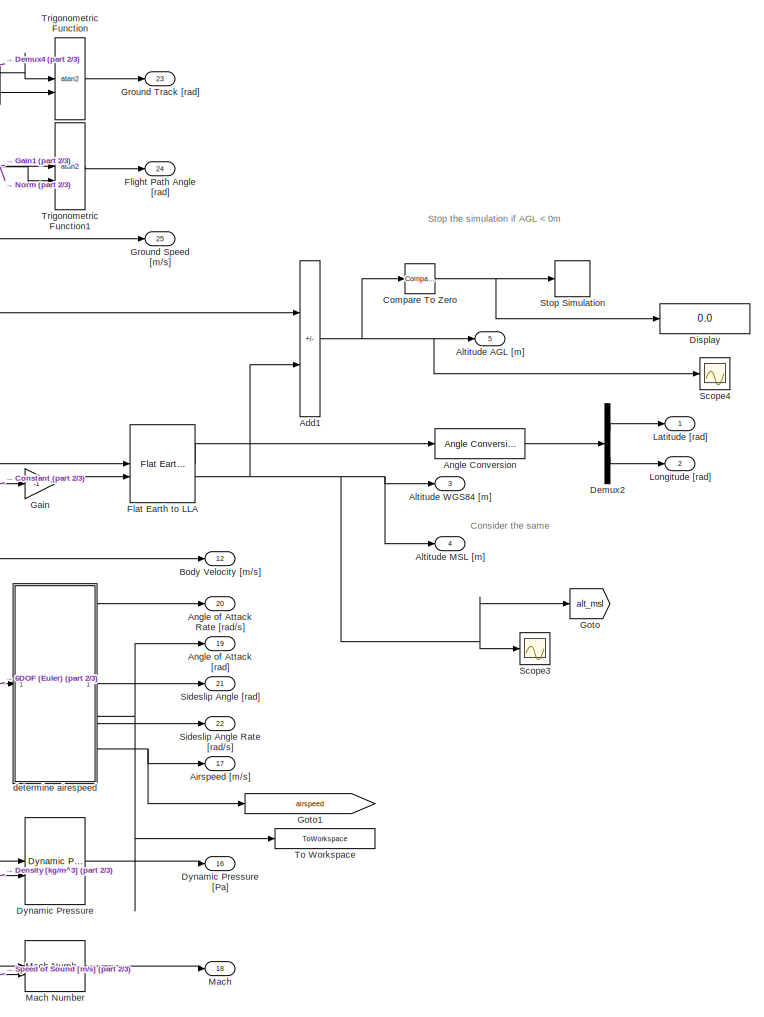
[diagram: Vehicle/Vehicle Model - part 1/3, right side, full height]
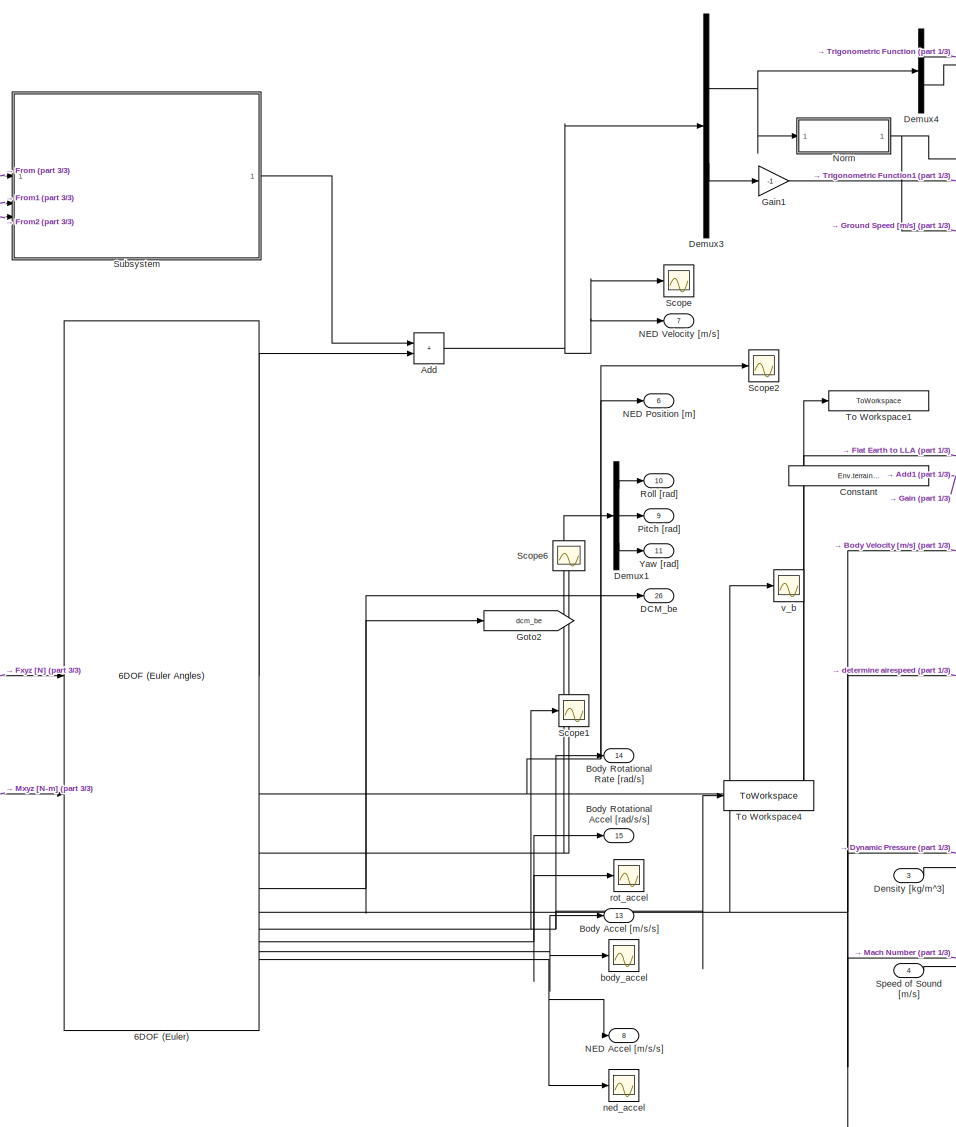
[diagram: Vehicle/Vehicle Model - part 2/3, center side, full height]
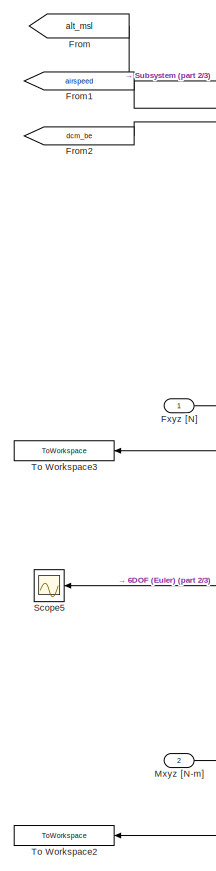
[diagram: Vehicle/Vehicle Model - part 3/3, middle left region]
BLOCK [SubSystem] Vehicle/Vehicle Model
BLOCK [Reference] Vehicle/Vehicle Model/6DOF (Euler)  REF=shared6dof/6DOF (Euler Angles)
  SourceBlock = shared6dof/6DOF (Euler Angles)
  SourceType = 6DOF EoM (Body Axis)
BLOCK [Sum] Vehicle/Vehicle Model/Add
  IconShape = rectangular
BLOCK [Sum] Vehicle/Vehicle Model/Add1
  IconShape = rectangular
  Inputs = -+
BLOCK [Outport] Vehicle/Vehicle Model/Airspeed [m//s]
  Port = 17
BLOCK [Outport] Vehicle/Vehicle Model/Altitude AGL [m]
  Port = 5
BLOCK [Outport] Vehicle/Vehicle Model/Altitude MSL [m]
  Port = 4
BLOCK [Outport] Vehicle/Vehicle Model/Altitude WGS84 [m]
  Port = 3
BLOCK [Reference] Vehicle/Vehicle Model/Angle Conversion  REF=aerolibconvert2/Angle Conversion
  SourceBlock = aerolibconvert2/Angle Conversion
  SourceType = Angle Conversion
BLOCK [Outport] Vehicle/Vehicle Model/Angle of Attack Rate [rad//s]
  Port = 20
BLOCK [Outport] Vehicle/Vehicle Model/Angle of Attack [rad]
  Port = 19
BLOCK [Outport] Vehicle/Vehicle Model/Body Accel [m//s//s]
  Port = 13
BLOCK [Outport] Vehicle/Vehicle Model/Body Rotational Accel [rad//s//s]
  Port = 15
BLOCK [Outport] Vehicle/Vehicle Model/Body Rotational Rate [rad//s]
  Port = 14
BLOCK [Outport] Vehicle/Vehicle Model/Body Velocity [m//s]
  Port = 12
BLOCK [Reference] Vehicle/Vehicle Model/Compare To Zero  REF=simulink/Logic and Bit
Operations/Compare
To Zero
  SourceBlock = simulink/Logic and Bit\nOperations/Compare\nTo Zero
  SourceType = Compare To Zero
BLOCK [Constant] Vehicle/Vehicle Model/Constant
  Value = Env.terrain_alt_wgs84
BLOCK [Outport] Vehicle/Vehicle Model/DCM_be
  Port = 26
BLOCK [Demux] Vehicle/Vehicle Model/Demux1
  Outputs = 3
BLOCK [Demux] Vehicle/Vehicle Model/Demux2
  Outputs = 2
BLOCK [Demux] Vehicle/Vehicle Model/Demux3
  Outputs = [2 1]
BLOCK [Demux] Vehicle/Vehicle Model/Demux4
  Outputs = 2
BLOCK [Inport] Vehicle/Vehicle Model/Density [kg//m^3]
  Port = 3
BLOCK [Display] Vehicle/Vehicle Model/Display
  Decimation = 1
BLOCK [Reference] Vehicle/Vehicle Model/Dynamic Pressure  REF=aerolibasang/Dynamic Pressure
  SourceBlock = aerolibasang/Dynamic Pressure
  SourceType = Dynamic Pressure
BLOCK [Outport] Vehicle/Vehicle Model/Dynamic Pressure [Pa]
  Port = 16
BLOCK [Reference] Vehicle/Vehicle Model/Flat Earth to LLA  REF=aerolibtransform2/Flat Earth to LLA
  SourceBlock = aerolibtransform2/Flat Earth to LLA
  SourceType = Flat Earth to LLA
BLOCK [Outport] Vehicle/Vehicle Model/Flight Path Angle [rad]
  Port = 24
BLOCK [From] Vehicle/Vehicle Model/From
  GotoTag = alt_msl
BLOCK [From] Vehicle/Vehicle Model/From1
  GotoTag = airspeed
BLOCK [From] Vehicle/Vehicle Model/From2
  GotoTag = dcm_be
BLOCK [Inport] Vehicle/Vehicle Model/Fxyz [N]
BLOCK [Gain] Vehicle/Vehicle Model/Gain
  Gain = -1
BLOCK [Gain] Vehicle/Vehicle Model/Gain1
  Gain = -1
BLOCK [Goto] Vehicle/Vehicle Model/Goto
  GotoTag = alt_msl
BLOCK [Goto] Vehicle/Vehicle Model/Goto1
  GotoTag = airspeed
BLOCK [Goto] Vehicle/Vehicle Model/Goto2
  GotoTag = dcm_be
BLOCK [Outport] Vehicle/Vehicle Model/Ground Speed [m//s]
  Port = 25
BLOCK [Outport] Vehicle/Vehicle Model/Ground Track [rad]
  Port = 23
BLOCK [Outport] Vehicle/Vehicle Model/Latitude [rad]
BLOCK [Outport] Vehicle/Vehicle Model/Longitude [rad]
  Port = 2
BLOCK [Outport] Vehicle/Vehicle Model/Mach
  Port = 18
BLOCK [Reference] Vehicle/Vehicle Model/Mach Number  REF=aerolibasang/Mach Number
  SourceBlock = aerolibasang/Mach Number
  SourceType = Mach Number
BLOCK [Inport] Vehicle/Vehicle Model/Mxyz [N-m]
  Port = 2
BLOCK [Outport] Vehicle/Vehicle Model/NED Accel [m//s//s]
  Port = 8
BLOCK [Outport] Vehicle/Vehicle Model/NED Position [m]
  Port = 6
BLOCK [Outport] Vehicle/Vehicle Model/NED Velocity [m//s]
  Port = 7
BLOCK [SubSystem] Vehicle/Vehicle Model/Norm
BLOCK [Inport] Vehicle/Vehicle Model/Norm/2D Vector
BLOCK [Outport] Vehicle/Vehicle Model/Norm/Norm
BLOCK [Product] Vehicle/Vehicle Model/Norm/Product
BLOCK [Sqrt] Vehicle/Vehicle Model/Norm/Sqrt
BLOCK [Sum] Vehicle/Vehicle Model/Norm/Sum of Elements
  IconShape = rectangular
  Inputs = +
BLOCK [Outport] Vehicle/Vehicle Model/Pitch [rad]
  Port = 9
BLOCK [Outport] Vehicle/Vehicle Model/Roll [rad]
  Port = 10
BLOCK [Scope] Vehicle/Vehicle Model/Scope
  Floating = off
  NumInputPorts = 1
  ScopeSpecificationString = Simulink.scopes.TimeScopeBlockCfg('CurrentConfiguration', extmgr.ConfigurationSet(extmgr.Configuration('Core','General UI',true),extmgr.Configuration('Core','Source UI',true),extmgr.Configuration('Sources','WiredSimulink',true,'DataLoggingVariableName','ScopeData1'),extmgr.Configuration('Visuals','Time Domain',true,'SerializedDisplays',{struct('MinYLimReal','-4.894','MaxYLimReal','15.82502','YLabe...<+1483ch>
BLOCK [Scope] Vehicle/Vehicle Model/Scope1
  Floating = off
  NumInputPorts = 1
  ScopeSpecificationString = Simulink.scopes.TimeScopeBlockCfg('CurrentConfiguration', extmgr.ConfigurationSet(extmgr.Configuration('Core','General UI',true),extmgr.Configuration('Core','Source UI',true),extmgr.Configuration('Sources','WiredSimulink',true,'DataLoggingVariableName','ScopeData4'),extmgr.Configuration('Visuals','Time Domain',true,'SerializedDisplays',{struct('MinYLimReal','-5.82961','MaxYLimReal','5.64464','YLab...<+1498ch>
BLOCK [Scope] Vehicle/Vehicle Model/Scope2
  Floating = off
  NumInputPorts = 1
  ScopeSpecificationString = Simulink.scopes.TimeScopeBlockCfg('CurrentConfiguration', extmgr.ConfigurationSet(extmgr.Configuration('Core','General UI',true),extmgr.Configuration('Core','Source UI',true),extmgr.Configuration('Sources','WiredSimulink',true,'DataLoggingVariableName','ScopeData1'),extmgr.Configuration('Visuals','Time Domain',true,'SerializedDisplays',{struct('MinYLimReal','-227.30413','MaxYLimReal','39.5827','YL...<+1495ch>
BLOCK [Scope] Vehicle/Vehicle Model/Scope3
  Floating = off
  NumInputPorts = 1
  ScopeSpecificationString = Simulink.scopes.TimeScopeBlockCfg('CurrentConfiguration', extmgr.ConfigurationSet(extmgr.Configuration('Core','General UI',true),extmgr.Configuration('Core','Source UI',true),extmgr.Configuration('Sources','WiredSimulink',true,'DataLoggingVariableName','ScopeData1'),extmgr.Configuration('Visuals','Time Domain',true,'SerializedDisplays',{struct('MinYLimReal','173.19157','MaxYLimReal','441.27589','Y...<+1446ch>
BLOCK [Scope] Vehicle/Vehicle Model/Scope4
  Floating = off
  NumInputPorts = 1
  ScopeSpecificationString = Simulink.scopes.TimeScopeBlockCfg('CurrentConfiguration', extmgr.ConfigurationSet(extmgr.Configuration('Core','General UI',true),extmgr.Configuration('Core','Source UI',true),extmgr.Configuration('Sources','WiredSimulink',true,'DataLoggingVariableName','ScopeData1'),extmgr.Configuration('Visuals','Time Domain',true,'SerializedDisplays',{struct('MinYLimReal','199.90178','MaxYLimReal','200.88396','Y...<+1433ch>
BLOCK [Scope] Vehicle/Vehicle Model/Scope5
  Floating = off
  NameLocation = top
  NumInputPorts = 1
  ScopeSpecificationString = Simulink.scopes.TimeScopeBlockCfg('CurrentConfiguration', extmgr.ConfigurationSet(extmgr.Configuration('Core','General UI',true),extmgr.Configuration('Core','Source UI',true),extmgr.Configuration('Sources','WiredSimulink',true,'DataLoggingVariableName','ScopeData1'),extmgr.Configuration('Visuals','Time Domain',true,'SerializedDisplays',{struct('MinYLimReal','-1707.01048','MaxYLimReal','801.01608',...<+1486ch>
BLOCK [Scope] Vehicle/Vehicle Model/Scope6
  Floating = off
  NameLocation = left
  NumInputPorts = 1
  ScopeSpecificationString = Simulink.scopes.TimeScopeBlockCfg('CurrentConfiguration', extmgr.ConfigurationSet(extmgr.Configuration('Core','General UI',true),extmgr.Configuration('Core','Source UI',true),extmgr.Configuration('Sources','WiredSimulink',true,'DataLoggingVariableName','ScopeData3'),extmgr.Configuration('Visuals','Time Domain',true,'SerializedDisplays',{struct('MinYLimReal','-3.92699','MaxYLimReal','3.92699','YLab...<+1466ch>
BLOCK [Outport] Vehicle/Vehicle Model/Sideslip Angle Rate [rad//s]
  Port = 22
BLOCK [Outport] Vehicle/Vehicle Model/Sideslip Angle [rad]
  Port = 21
BLOCK [Inport] Vehicle/Vehicle Model/Speed of Sound [m//s]
  Port = 4
BLOCK [Stop] Vehicle/Vehicle Model/Stop Simulation
BLOCK [SubSystem] Vehicle/Vehicle Model/Subsystem
BLOCK [Inport] Vehicle/Vehicle Model/Subsystem/Airspeed
  Port = 2
BLOCK [Inport] Vehicle/Vehicle Model/Subsystem/Altitude
BLOCK [Constant] Vehicle/Vehicle Model/Subsystem/Constant1
  OutDataTypeStr = single
  Value = AddEffects.wind.steady_bool
BLOCK [Constant] Vehicle/Vehicle Model/Subsystem/Constant2
  OutDataTypeStr = single
  Value = AddEffects.wind.gust_bool
BLOCK [Constant] Vehicle/Vehicle Model/Subsystem/Constant3
  OutDataTypeStr = single
  Value = AddEffects.wind.direction_rad
BLOCK [Constant] Vehicle/Vehicle Model/Subsystem/Constant4
  OutDataTypeStr = single
  Value = AddEffects.wind.speed_mps
BLOCK [Inport] Vehicle/Vehicle Model/Subsystem/DCM
  Port = 3
BLOCK [Reference] Vehicle/Vehicle Model/Subsystem/Dryden Wind Turbulence Model (Discrete (+q +r))  REF=aerolibwind2/Dryden Wind Turbulence Model 
(Continuous (+q -r))
  LibrarySourceBlock = aerolibwind2/Dryden Wind Turbulence Model \n(Discrete (+q +r))
  SourceBlock = aerolibwind2/Dryden Wind Turbulence Model \n(Continuous (+q -r))
  SourceType = Wind Turbulence Model
BLOCK [SubSystem] Vehicle/Vehicle Model/Subsystem/MATLAB Function
  ErrorFcn = Stateflow.Translate.translate
  LibrarySourceBlock = simulink/User-Defined\nFunctions/MATLAB Function
  PermitHierarchicalResolution = ExplicitOnly
  SFBlockType = MATLAB Function
  TreatAsAtomicUnit = on
BLOCK [Demux] Vehicle/Vehicle Model/Subsystem/MATLAB Function/ Demux 
  Outputs = 1
BLOCK [S-Function] Vehicle/Vehicle Model/Subsystem/MATLAB Function/ SFunction 
  EnableBusSupport = on
  FunctionName = sf_sfun
  PortCounts = [5 2]
  SFcnIsStateOwnerBlock = off
  SFunctionDeploymentMode = off
  Tag = Stateflow S-Function 12
BLOCK [Terminator] Vehicle/Vehicle Model/Subsystem/MATLAB Function/ Terminator 
BLOCK [Inport] Vehicle/Vehicle Model/Subsystem/MATLAB Function/direction
  Port = 4
BLOCK [Inport] Vehicle/Vehicle Model/Subsystem/MATLAB Function/gust_bool
  Port = 3
BLOCK [Inport] Vehicle/Vehicle Model/Subsystem/MATLAB Function/gust_wind_vec
BLOCK [Inport] Vehicle/Vehicle Model/Subsystem/MATLAB Function/speed
  Port = 5
BLOCK [Inport] Vehicle/Vehicle Model/Subsystem/MATLAB Function/steady_bool
  Port = 2
BLOCK [Outport] Vehicle/Vehicle Model/Subsystem/MATLAB Function/wind_vector
BLOCK [Scope] Vehicle/Vehicle Model/Subsystem/Scope
  Floating = off
  NameLocation = left
  NumInputPorts = 1
  ScopeSpecificationString = Simulink.scopes.TimeScopeBlockCfg('CurrentConfiguration', extmgr.ConfigurationSet(extmgr.Configuration('Core','General UI',true),extmgr.Configuration('Core','Source UI',true),extmgr.Configuration('Sources','WiredSimulink',true,'DataLoggingVariableName','ScopeData1'),extmgr.Configuration('Visuals','Time Domain',true,'SerializedDisplays',{struct('MinYLimReal','-1.03163','MaxYLimReal','1.65035','YLab...<+1539ch>
BLOCK [Terminator] Vehicle/Vehicle Model/Subsystem/Terminator
BLOCK [Outport] Vehicle/Vehicle Model/Subsystem/y
BLOCK [ToWorkspace] Vehicle/Vehicle Model/To Workspace
  FixptAsFi = on
  MaxDataPoints = inf
  SampleTime = -1
  SaveFormat = Timeseries
  VariableName = alpha
BLOCK [ToWorkspace] Vehicle/Vehicle Model/To Workspace1
  FixptAsFi = on
  MaxDataPoints = inf
  SampleTime = -1
  SaveFormat = Timeseries
  VariableName = ned_position
BLOCK [ToWorkspace] Vehicle/Vehicle Model/To Workspace2
  FixptAsFi = on
  MaxDataPoints = inf
  NameLocation = top
  SampleTime = -1
  SaveFormat = Timeseries
  VariableName = moments
BLOCK [ToWorkspace] Vehicle/Vehicle Model/To Workspace3
  FixptAsFi = on
  MaxDataPoints = inf
  NameLocation = top
  SampleTime = -1
  SaveFormat = Timeseries
  VariableName = forces
BLOCK [ToWorkspace] Vehicle/Vehicle Model/To Workspace4
  FixptAsFi = on
  MaxDataPoints = inf
  SampleTime = -1
  SaveFormat = Timeseries
  VariableName = pqr_6dof
BLOCK [Trigonometry] Vehicle/Vehicle Model/Trigonometric Function
  Operator = atan2
BLOCK [Trigonometry] Vehicle/Vehicle Model/Trigonometric Function1
  Operator = atan2
BLOCK [Outport] Vehicle/Vehicle Model/Yaw [rad]
  Port = 11
BLOCK [Scope] Vehicle/Vehicle Model/body_accel
  Floating = off
  NumInputPorts = 1
  ScopeSpecificationString = Simulink.scopes.TimeScopeBlockCfg('CurrentConfiguration', extmgr.ConfigurationSet(extmgr.Configuration('Core','General UI',true),extmgr.Configuration('Core','Source UI',true),extmgr.Configuration('Sources','WiredSimulink',true,'DataLoggingVariableName','ScopeData1'),extmgr.Configuration('Visuals','Time Domain',true,'SerializedDisplays',{struct('MinYLimReal','-9.83331','MaxYLimReal','1.09259','YLab...<+1528ch>
BLOCK [SubSystem] Vehicle/Vehicle Model/determine airespeed
BLOCK [Outport] Vehicle/Vehicle Model/determine airespeed/Alpha
  Port = 2
BLOCK [Outport] Vehicle/Vehicle Model/determine airespeed/AoA rate
BLOCK [Outport] Vehicle/Vehicle Model/determine airespeed/Beta
  Port = 3
BLOCK [Reference] Vehicle/Vehicle Model/determine airespeed/Compare To Constant  REF=simulink/Logic and Bit
Operations/Compare
To Constant
  SourceBlock = simulink/Logic and Bit\nOperations/Compare\nTo Constant
  SourceType = Compare To Constant
BLOCK [Product] Vehicle/Vehicle Model/determine airespeed/MatrixMultiply
  Multiplication = Matrix(*)
BLOCK [Reshape] Vehicle/Vehicle Model/determine airespeed/Reshape
  OutputDimensionality = Column vector (2-D)
BLOCK [Reshape] Vehicle/Vehicle Model/determine airespeed/Reshape1
  OutputDimensionality = Row vector (2-D)
BLOCK [SubSystem] Vehicle/Vehicle Model/determine airespeed/Subsystem
BLOCK [Outport] Vehicle/Vehicle Model/determine airespeed/Subsystem/Alpha
  Port = 2
BLOCK [Outport] Vehicle/Vehicle Model/determine airespeed/Subsystem/AoA rate
BLOCK [Outport] Vehicle/Vehicle Model/determine airespeed/Subsystem/Beta
  Port = 3
BLOCK [Derivative] Vehicle/Vehicle Model/determine airespeed/Subsystem/Derivative
BLOCK [Derivative] Vehicle/Vehicle Model/determine airespeed/Subsystem/Derivative1
BLOCK [EnablePort] Vehicle/Vehicle Model/determine airespeed/Subsystem/Enable
  StatesWhenEnabling = reset
BLOCK [Reference] Vehicle/Vehicle Model/determine airespeed/Subsystem/Incidence, Sideslip, & Airspeed  REF=aerolibasang/Incidence, Sideslip,
& Airspeed
  SourceBlock = aerolibasang/Incidence, Sideslip,\n& Airspeed
  SourceType = Incidence,Sideslip,&Airspeed
BLOCK [Outport] Vehicle/Vehicle Model/determine airespeed/Subsystem/V
  Port = 5
BLOCK [Inport] Vehicle/Vehicle Model/determine airespeed/Subsystem/Vb
BLOCK [Outport] Vehicle/Vehicle Model/determine airespeed/Subsystem/beta rate
  Port = 4
BLOCK [Inport] Vehicle/Vehicle Model/determine airespeed/Vb
BLOCK [Outport] Vehicle/Vehicle Model/determine airespeed/airspeed
  Port = 5
BLOCK [Outport] Vehicle/Vehicle Model/determine airespeed/beta rate
  Port = 4
BLOCK [Scope] Vehicle/Vehicle Model/ned_accel
  Floating = off
  NumInputPorts = 1
  ScopeSpecificationString = Simulink.scopes.TimeScopeBlockCfg('CurrentConfiguration', extmgr.ConfigurationSet(extmgr.Configuration('Core','General UI',true),extmgr.Configuration('Core','Source UI',true),extmgr.Configuration('Sources','WiredSimulink',true,'DataLoggingVariableName','ScopeData2'),extmgr.Configuration('Visuals','Time Domain',true,'SerializedDisplays',{struct('MinYLimReal','-0.01267','MaxYLimReal','0.00759','YLab...<+1497ch>
BLOCK [Scope] Vehicle/Vehicle Model/rot_accel
  Floating = off
  NumInputPorts = 1
  ScopeSpecificationString = Simulink.scopes.TimeScopeBlockCfg('CurrentConfiguration', extmgr.ConfigurationSet(extmgr.Configuration('Core','General UI',true),extmgr.Configuration('Core','Source UI',true),extmgr.Configuration('Sources','WiredSimulink',true,'DataLoggingVariableName','ScopeData3'),extmgr.Configuration('Visuals','Time Domain',true,'SerializedDisplays',{struct('MinYLimReal','24.47119','MaxYLimReal','24.64351','YLa...<+1491ch>
BLOCK [Scope] Vehicle/Vehicle Model/v_b
  Floating = off
  NumInputPorts = 1
  ScopeSpecificationString = Simulink.scopes.TimeScopeBlockCfg('CurrentConfiguration', extmgr.ConfigurationSet(extmgr.Configuration('Core','General UI',true),extmgr.Configuration('Core','Source UI',true),extmgr.Configuration('Sources','WiredSimulink',true,'DataLoggingVariableName','ScopeData2'),extmgr.Configuration('Visuals','Time Domain',true,'SerializedDisplays',{struct('MinYLimReal','-0.35774','MaxYLimReal','0.61347','YLab...<+1510ch>
BLOCK [Outport] Vehicle/Vehicle State
ANNOTATION Analog: Raw voltages measured at the FMU, should be between 0 and 3.3V
ANNOTATION Battery: The mRo Power Zero module outputs 1V for 15.30 V at the battery
ANNOTATION Battery: The mRo Power Zero module outputs 1V for 33.594 amps drawn from the battery
ANNOTATION Battery: This is the amp draw from the battery
ANNOTATION Battery: This is the voltage measured by the FMU at the power port. It is typically the battery voltage scaled by the power module voltage divider.
ANNOTATION Battery: This is the voltage measured by the FMU power port. It is typically the current, scaled by the power module mA / volt
ANNOTATION Effector Dynamics/Subsystem: Elevator can only turn one way, other two control surfaces are just scaled down.
ANNOTATION Environment: nT to uT conversion
ANNOTATION Flight Management Unit: Manually Passing sideslip for now Include in bus definitions before hardware
ANNOTATION Flight Management Unit/Navigation Filter Model: Need to either: Add models of noise to state data simulating the nav filter Implement our nav filter in Simulink (preferred)
ANNOTATION Flight Management Unit/Navigation Filter Model/IAS: Avoid negative values
ANNOTATION Flight Management Unit/Navigation Filter Model/Pressure Altitude: Avoid negative values
ANNOTATION Flight Management Unit/Sensor Models/GNSS: Simulates the lower sampling rate of GNSS receivers
ANNOTATION Flight Management Unit/Sensor Models/GNSS/Triggered Subsystem: Convert NED position noise to an LLA delta using the current LLA position as the NED to LLA reference point.
ANNOTATION Flight Management Unit/Sensor Models/GNSS/Triggered Subsystem: This block grabs the current UTC date vector to compute an initial GNSS week number and time of week. The week number and time of week are updated based on sim time, to provide accurate timing to any algorithms relying on the GNSS TOW. Leap seconds are ignored, but that should be fine for this use case.
ANNOTATION Pilot Input: SBUS Data: New data: whether new SBUS data was received Lost Frame: whether a frame of data was lost from the transmitter to receiver Failsafe: the receiver enters failsafe mode when many lost frames occur in a row Ch 17 / Ch 18: two boolean (on / off) values availble on some SBUS transmitters and receivers Channel Data: 16 channels of data from transmitter sticks and switches. 11 bits wide limiti...<+140ch>
ANNOTATION Vehicle/Forces and Moments/Aerodynamic/Hover Flight: Maybe implement a linear Drag = k(velocity). But need to do some system id to find k.
ANNOTATION Vehicle/Forces and Moments/Propulsive/Forward Propulsion: Motor torque is the shaft torque output from motor. Prop torque is the aerodynamic torque on the propeller. At equilibrium betwn motor and prop, Q=Qm. So, net torque on the body is just Qm. During the transient (RPM change phase), (Qm-Q) also contributes to the net torque on body (Stevens). So, total torque on body = - [Qm + (Qm-Q)]
ANNOTATION Vehicle/Forces and Moments/Propulsive/Forward Propulsion: See simulations/references and Stevens Aircraft Control and Simulation Textbook
ANNOTATION Vehicle/Vehicle Model: Consider the same
ANNOTATION Vehicle/Vehicle Model: Stop the simulation if AGL < 0m
LINE Analog/Bus Creator:1 -> Analog/Analog Data:1
LINE Analog/Constant:1 -> Analog/Bus Creator:1
LINE Analog:1 -> Flight Management Unit:4
LINE Battery/Bus Creator:1 -> Battery/Battery Data:1
LINE Battery/Constant1:1 -> Battery/Divide:1
LINE Battery/Constant2:1 -> Battery/Divide:2
LINE Battery/Constant3:1 -> Battery/Divide1:2
LINE Battery/Constant:1 -> Battery/Divide1:1
LINE Battery/Divide1:1 -> Battery/Bus Creator:1
LINE Battery/Divide:1 -> Battery/Bus Creator:2
LINE Battery:1 -> Flight Management Unit:5
LINE Effector Dynamics/Add1:1 -> Effector Dynamics/Convert to  [30,-30] :1
LINE Effector Dynamics/Add:1 -> Effector Dynamics/Convert to  [0,1]:1
LINE Effector Dynamics/Bus Selector:1 -> Effector Dynamics/Mux:1
LINE Effector Dynamics/Bus Selector:2 -> Effector Dynamics/Mux:2
LINE Effector Dynamics/Commands:1 -> Effector Dynamics/Bus Selector:1
LINE Effector Dynamics/Constant1:1 -> Effector Dynamics/Add1:2
LINE Effector Dynamics/Constant:1 -> Effector Dynamics/Add:1
LINE Effector Dynamics/Convert to  [0,1]/Cast To Double:1 -> Effector Dynamics/Convert to  [0,1]/int_cmd:1
LINE Effector Dynamics/Convert to  [0,1]/Constant2:1 -> Effector Dynamics/Convert to  [0,1]/remap:2
LINE Effector Dynamics/Convert to  [0,1]/Constant3:1 -> Effector Dynamics/Convert to  [0,1]/remap:4
LINE Effector Dynamics/Convert to  [0,1]/Constant4:1 -> Effector Dynamics/Convert to  [0,1]/remap:5
LINE Effector Dynamics/Convert to  [0,1]/Constant5:1 -> Effector Dynamics/Convert to  [0,1]/remap:3
LINE Effector Dynamics/Convert to  [0,1]/Saturation:1 -> Effector Dynamics/Convert to  [0,1]/Cast To Double:1
LINE Effector Dynamics/Convert to  [0,1]/norm_in:1 -> Effector Dynamics/Convert to  [0,1]/remap:1
LINE Effector Dynamics/Convert to  [0,1]/remap:1 -> Effector Dynamics/Convert to  [0,1]/Saturation:1
LINE Effector Dynamics/Convert to  [0,1]:1 -> Effector Dynamics/First Order Delay1:1
LINE Effector Dynamics/Convert to  [30,-30] /Cast To Double:1 -> Effector Dynamics/Convert to  [30,-30] /int_cmd:1
LINE Effector Dynamics/Convert to  [30,-30] /Constant2:1 -> Effector Dynamics/Convert to  [30,-30] /remap:2
LINE Effector Dynamics/Convert to  [30,-30] /Constant3:1 -> Effector Dynamics/Convert to  [30,-30] /remap:4
LINE Effector Dynamics/Convert to  [30,-30] /Constant4:1 -> Effector Dynamics/Convert to  [30,-30] /remap:5
LINE Effector Dynamics/Convert to  [30,-30] /Constant5:1 -> Effector Dynamics/Convert to  [30,-30] /remap:3
LINE Effector Dynamics/Convert to  [30,-30] /Saturation:1 -> Effector Dynamics/Convert to  [30,-30] /Cast To Double:1
LINE Effector Dynamics/Convert to  [30,-30] /norm_in:1 -> Effector Dynamics/Convert to  [30,-30] /remap:1
LINE Effector Dynamics/Convert to  [30,-30] /remap:1 -> Effector Dynamics/Convert to  [30,-30] /Saturation:1
NET Effector Dynamics/Convert to  [30,-30] :1 -> Effector Dynamics/First Order Delay:1, Effector Dynamics/To Workspace3:1
LINE Effector Dynamics/D2R:1 -> Effector Dynamics/Surface Positions:1
LINE Effector Dynamics/First Order Delay/Demux:1 -> Effector Dynamics/First Order Delay/Transfer Fcn:1
LINE Effector Dynamics/First Order Delay/Demux:2 -> Effector Dynamics/First Order Delay/Transfer Fcn1:1
LINE Effector Dynamics/First Order Delay/Demux:3 -> Effector Dynamics/First Order Delay/Transfer Fcn2:1
LINE Effector Dynamics/First Order Delay/In1:1 -> Effector Dynamics/First Order Delay/Demux:1
LINE Effector Dynamics/First Order Delay/Mux:1 -> Effector Dynamics/First Order Delay/Rate Limiter:1
LINE Effector Dynamics/First Order Delay/Rate Limiter:1 -> Effector Dynamics/First Order Delay/Saturation:1
LINE Effector Dynamics/First Order Delay/Saturation:1 -> Effector Dynamics/First Order Delay/int_cmd1:1
LINE Effector Dynamics/First Order Delay/Transfer Fcn1:1 -> Effector Dynamics/First Order Delay/Mux:2
LINE Effector Dynamics/First Order Delay/Transfer Fcn2:1 -> Effector Dynamics/First Order Delay/Mux:3
LINE Effector Dynamics/First Order Delay/Transfer Fcn:1 -> Effector Dynamics/First Order Delay/Mux:1
LINE Effector Dynamics/First Order Delay1/Demux:1 -> Effector Dynamics/First Order Delay1/Transfer Fcn:1
LINE Effector Dynamics/First Order Delay1/Demux:2 -> Effector Dynamics/First Order Delay1/Transfer Fcn1:1
LINE Effector Dynamics/First Order Delay1/Demux:3 -> Effector Dynamics/First Order Delay1/Transfer Fcn2:1
LINE Effector Dynamics/First Order Delay1/Demux:4 -> Effector Dynamics/First Order Delay1/Transfer Fcn3:1
LINE Effector Dynamics/First Order Delay1/Demux:5 -> Effector Dynamics/First Order Delay1/Transfer Fcn4:1
LINE Effector Dynamics/First Order Delay1/Mux:1 -> Effector Dynamics/First Order Delay1/Saturation:1
LINE Effector Dynamics/First Order Delay1/Saturation:1 -> Effector Dynamics/First Order Delay1/Motor Cmds:1
LINE Effector Dynamics/First Order Delay1/Transfer Fcn1:1 -> Effector Dynamics/First Order Delay1/Mux:2
LINE Effector Dynamics/First Order Delay1/Transfer Fcn2:1 -> Effector Dynamics/First Order Delay1/Mux:3
LINE Effector Dynamics/First Order Delay1/Transfer Fcn3:1 -> Effector Dynamics/First Order Delay1/Mux:4
LINE Effector Dynamics/First Order Delay1/Transfer Fcn4:1 -> Effector Dynamics/First Order Delay1/Mux:5
LINE Effector Dynamics/First Order Delay1/Transfer Fcn:1 -> Effector Dynamics/First Order Delay1/Mux:1
LINE Effector Dynamics/First Order Delay1/int_cmd:1 -> Effector Dynamics/First Order Delay1/Demux:1
LINE Effector Dynamics/First Order Delay1:1 -> Effector Dynamics/Subsystem1:1
LINE Effector Dynamics/First Order Delay:1 -> Effector Dynamics/Subsystem:1
NET Effector Dynamics/Mux:1 -> Effector Dynamics/Selector1:1, Effector Dynamics/Selector:1
LINE Effector Dynamics/Selector1:1 -> Effector Dynamics/Add1:1
LINE Effector Dynamics/Selector:1 -> Effector Dynamics/Add:2
LINE Effector Dynamics/Subsystem/Clock:1 -> Effector Dynamics/Subsystem/MATLAB Function:2
LINE Effector Dynamics/Subsystem/Constant1:1 -> Effector Dynamics/Subsystem/MATLAB Function:3
LINE Effector Dynamics/Subsystem/Constant2:1 -> Effector Dynamics/Subsystem/Switch:2
LINE Effector Dynamics/Subsystem/Demux:1 -> Effector Dynamics/Subsystem/Mux:1
LINE Effector Dynamics/Subsystem/Demux:2 -> Effector Dynamics/Subsystem/Terminator:1
LINE Effector Dynamics/Subsystem/Demux:3 -> Effector Dynamics/Subsystem/Mux:3
LINE Effector Dynamics/Subsystem/Gain:1 -> Effector Dynamics/Subsystem/Switch:1
LINE Effector Dynamics/Subsystem/MATLAB Function:1 -> Effector Dynamics/Subsystem/Mux:2
LINE Effector Dynamics/Subsystem/Mux:1 -> Effector Dynamics/Subsystem/Out2:1
LINE Effector Dynamics/Subsystem/Selector:1 -> Effector Dynamics/Subsystem/MATLAB Function:1
NET Effector Dynamics/Subsystem/Switch:1 -> Effector Dynamics/Subsystem/Demux:1, Effector Dynamics/Subsystem/Selector:1
NET Effector Dynamics/Subsystem/int_cmd1:1 -> Effector Dynamics/Subsystem/Gain:1, Effector Dynamics/Subsystem/Switch:3
LINE Effector Dynamics/Subsystem1/Constant3:1 -> Effector Dynamics/Subsystem1/Switch:2
LINE Effector Dynamics/Subsystem1/Gain1:1 -> Effector Dynamics/Subsystem1/Mux:1
LINE Effector Dynamics/Subsystem1/Gain2:1 -> Effector Dynamics/Subsystem1/Mux:2
LINE Effector Dynamics/Subsystem1/Mux:1 -> Effector Dynamics/Subsystem1/Switch:1
LINE Effector Dynamics/Subsystem1/Selector1:1 -> Effector Dynamics/Subsystem1/Gain2:1
LINE Effector Dynamics/Subsystem1/Selector:1 -> Effector Dynamics/Subsystem1/Gain1:1
LINE Effector Dynamics/Subsystem1/Switch:1 -> Effector Dynamics/Subsystem1/Motor Cmds:1
NET Effector Dynamics/Subsystem1/int_cmd:1 -> Effector Dynamics/Subsystem1/Selector1:1, Effector Dynamics/Subsystem1/Selector:1, Effector Dynamics/Subsystem1/Switch:3
NET Effector Dynamics/Subsystem1:1 -> Effector Dynamics/Motor Cmds:1, Effector Dynamics/To Workspace:1
NET Effector Dynamics/Subsystem:1 -> Effector Dynamics/D2R:1, Effector Dynamics/To Workspace1:1
LINE Effector Dynamics:1 -> Vehicle:2
LINE Effector Dynamics:2 -> Vehicle:3
LINE Environment/Angle Conversion4:1 -> Environment/Goto:1
LINE Environment/Angle Conversion5:1 -> Environment/Goto1:1
LINE Environment/Bus Creator:1 -> Environment/Environment:1
LINE Environment/Bus Selector:1 -> Environment/Angle Conversion4:1
LINE Environment/Bus Selector:2 -> Environment/Angle Conversion5:1
LINE Environment/Bus Selector:3 -> Environment/Goto2:1
LINE Environment/Bus Selector:4 -> Environment/COESA Atmosphere Model:1
LINE Environment/COESA Atmosphere Model:1 -> Environment/Bus Creator:1
LINE Environment/COESA Atmosphere Model:2 -> Environment/Bus Creator:2
LINE Environment/COESA Atmosphere Model:3 -> Environment/Bus Creator:3
LINE Environment/COESA Atmosphere Model:4 -> Environment/Bus Creator:4
LINE Environment/Constant1:1 -> Environment/Mux1:1
NET Environment/Constant:1 -> Environment/Mux1:2, Environment/Mux1:3
LINE Environment/From6:1 -> Environment/Mux:2
LINE Environment/From7:1 -> Environment/Mux:1
LINE Environment/From8:1 -> Environment/Mux:3
LINE Environment/Gain:1 -> Environment/Bus Creator:6
LINE Environment/Mux1:1 -> Environment/Gain:1
LINE Environment/Mux:1 -> Environment/WGS84 Gravity Model  :1
LINE Environment/Vehicle State:1 -> Environment/Bus Selector:1
LINE Environment/WGS84 Gravity Model  :1 -> Environment/Bus Creator:5
NET Environment:1 -> Flight Management Unit:2, Vehicle:1
LINE Flight Management Unit/Analog:1 -> Flight Management Unit/Sensor Models:4
LINE Flight Management Unit/Battery:1 -> Flight Management Unit/Sensor Models:5
LINE Flight Management Unit/Bus Selector1:1 -> Flight Management Unit/Subsystem:2
LINE Flight Management Unit/Bus Selector2:1 -> Flight Management Unit/Effector Cmds:1
LINE Flight Management Unit/Bus Selector:1 -> Flight Management Unit/Control Laws:1
LINE Flight Management Unit/Control Laws/Navigation Filter Data:1 -> Flight Management Unit/Control Laws/Variant Subsystem:4
LINE Flight Management Unit/Control Laws/Sensor Data:1 -> Flight Management Unit/Control Laws/Variant Subsystem:3
LINE Flight Management Unit/Control Laws/System Data:1 -> Flight Management Unit/Control Laws/Variant Subsystem:2
LINE Flight Management Unit/Control Laws/Telemetry Data:1 -> Flight Management Unit/Control Laws/Variant Subsystem:5
LINE Flight Management Unit/Control Laws/Variant Subsystem/FMU Mini/Flight Code:1 -> Flight Management Unit/Control Laws/Variant Subsystem/FMU Mini/Virtual to Non-Virtual Mapping4:1
LINE Flight Management Unit/Control Laws/Variant Subsystem/FMU Mini/Navigation Filter Data:1 -> Flight Management Unit/Control Laws/Variant Subsystem/FMU Mini/Virtual to Non-Virtual Mapping1:1
LINE Flight Management Unit/Control Laws/Variant Subsystem/FMU Mini/Sensor Data:1 -> Flight Management Unit/Control Laws/Variant Subsystem/FMU Mini/Virtual to Non-Virtual Mapping5:1
LINE Flight Management Unit/Control Laws/Variant Subsystem/FMU Mini/System Data:1 -> Flight Management Unit/Control Laws/Variant Subsystem/FMU Mini/Virtual to Non-Virtual Mapping:1
LINE Flight Management Unit/Control Laws/Variant Subsystem/FMU Mini/Telemetry Data:1 -> Flight Management Unit/Control Laws/Variant Subsystem/FMU Mini/Virtual to Non-Virtual Mapping3:1
LINE Flight Management Unit/Control Laws/Variant Subsystem/FMU Mini/Virtual to Non-Virtual Mapping/Bus Creator:1 -> Flight Management Unit/Control Laws/Variant Subsystem/FMU Mini/Virtual to Non-Virtual Mapping/Non-Virtual:1
LINE Flight Management Unit/Control Laws/Variant Subsystem/FMU Mini/Virtual to Non-Virtual Mapping/Bus Selector:1 -> Flight Management Unit/Control Laws/Variant Subsystem/FMU Mini/Virtual to Non-Virtual Mapping/Data Type Conversion:1
LINE Flight Management Unit/Control Laws/Variant Subsystem/FMU Mini/Virtual to Non-Virtual Mapping/Bus Selector:2 -> Flight Management Unit/Control Laws/Variant Subsystem/FMU Mini/Virtual to Non-Virtual Mapping/Data Type Conversion5:1
LINE Flight Management Unit/Control Laws/Variant Subsystem/FMU Mini/Virtual to Non-Virtual Mapping/Data Type Conversion5:1 -> Flight Management Unit/Control Laws/Variant Subsystem/FMU Mini/Virtual to Non-Virtual Mapping/Bus Creator:2
LINE Flight Management Unit/Control Laws/Variant Subsystem/FMU Mini/Virtual to Non-Virtual Mapping/Data Type Conversion:1 -> Flight Management Unit/Control Laws/Variant Subsystem/FMU Mini/Virtual to Non-Virtual Mapping/Bus Creator:1
LINE Flight Management Unit/Control Laws/Variant Subsystem/FMU Mini/Virtual to Non-Virtual Mapping/Virtual:1 -> Flight Management Unit/Control Laws/Variant Subsystem/FMU Mini/Virtual to Non-Virtual Mapping/Bus Selector:1
LINE Flight Management Unit/Control Laws/Variant Subsystem/FMU Mini/Virtual to Non-Virtual Mapping1/Bus Creator:1 -> Flight Management Unit/Control Laws/Variant Subsystem/FMU Mini/Virtual to Non-Virtual Mapping1/Non-Virtual:1
LINE Flight Management Unit/Control Laws/Variant Subsystem/FMU Mini/Virtual to Non-Virtual Mapping1/Bus Selector:1 -> Flight Management Unit/Control Laws/Variant Subsystem/FMU Mini/Virtual to Non-Virtual Mapping1/Data Type Conversion:1
LINE Flight Management Unit/Control Laws/Variant Subsystem/FMU Mini/Virtual to Non-Virtual Mapping1/Bus Selector:10 -> Flight Management Unit/Control Laws/Variant Subsystem/FMU Mini/Virtual to Non-Virtual Mapping1/Data Type Conversion8:1
LINE Flight Management Unit/Control Laws/Variant Subsystem/FMU Mini/Virtual to Non-Virtual Mapping1/Bus Selector:11 -> Flight Management Unit/Control Laws/Variant Subsystem/FMU Mini/Virtual to Non-Virtual Mapping1/Data Type Conversion21:1
LINE Flight Management Unit/Control Laws/Variant Subsystem/FMU Mini/Virtual to Non-Virtual Mapping1/Bus Selector:12 -> Flight Management Unit/Control Laws/Variant Subsystem/FMU Mini/Virtual to Non-Virtual Mapping1/Data Type Conversion22:1
LINE Flight Management Unit/Control Laws/Variant Subsystem/FMU Mini/Virtual to Non-Virtual Mapping1/Bus Selector:13 -> Flight Management Unit/Control Laws/Variant Subsystem/FMU Mini/Virtual to Non-Virtual Mapping1/Data Type Conversion9:1
LINE Flight Management Unit/Control Laws/Variant Subsystem/FMU Mini/Virtual to Non-Virtual Mapping1/Bus Selector:14 -> Flight Management Unit/Control Laws/Variant Subsystem/FMU Mini/Virtual to Non-Virtual Mapping1/Data Type Conversion24:1
LINE Flight Management Unit/Control Laws/Variant Subsystem/FMU Mini/Virtual to Non-Virtual Mapping1/Bus Selector:15 -> Flight Management Unit/Control Laws/Variant Subsystem/FMU Mini/Virtual to Non-Virtual Mapping1/Data Type Conversion25:1
LINE Flight Management Unit/Control Laws/Variant Subsystem/FMU Mini/Virtual to Non-Virtual Mapping1/Bus Selector:2 -> Flight Management Unit/Control Laws/Variant Subsystem/FMU Mini/Virtual to Non-Virtual Mapping1/Data Type Conversion1:1
LINE Flight Management Unit/Control Laws/Variant Subsystem/FMU Mini/Virtual to Non-Virtual Mapping1/Bus Selector:3 -> Flight Management Unit/Control Laws/Variant Subsystem/FMU Mini/Virtual to Non-Virtual Mapping1/Data Type Conversion2:1
LINE Flight Management Unit/Control Laws/Variant Subsystem/FMU Mini/Virtual to Non-Virtual Mapping1/Bus Selector:4 -> Flight Management Unit/Control Laws/Variant Subsystem/FMU Mini/Virtual to Non-Virtual Mapping1/Data Type Conversion3:1
LINE Flight Management Unit/Control Laws/Variant Subsystem/FMU Mini/Virtual to Non-Virtual Mapping1/Bus Selector:5 -> Flight Management Unit/Control Laws/Variant Subsystem/FMU Mini/Virtual to Non-Virtual Mapping1/Data Type Conversion4:1
LINE Flight Management Unit/Control Laws/Variant Subsystem/FMU Mini/Virtual to Non-Virtual Mapping1/Bus Selector:6 -> Flight Management Unit/Control Laws/Variant Subsystem/FMU Mini/Virtual to Non-Virtual Mapping1/Data Type Conversion23:1
LINE Flight Management Unit/Control Laws/Variant Subsystem/FMU Mini/Virtual to Non-Virtual Mapping1/Bus Selector:7 -> Flight Management Unit/Control Laws/Variant Subsystem/FMU Mini/Virtual to Non-Virtual Mapping1/Data Type Conversion5:1
LINE Flight Management Unit/Control Laws/Variant Subsystem/FMU Mini/Virtual to Non-Virtual Mapping1/Bus Selector:8 -> Flight Management Unit/Control Laws/Variant Subsystem/FMU Mini/Virtual to Non-Virtual Mapping1/Data Type Conversion6:1
LINE Flight Management Unit/Control Laws/Variant Subsystem/FMU Mini/Virtual to Non-Virtual Mapping1/Bus Selector:9 -> Flight Management Unit/Control Laws/Variant Subsystem/FMU Mini/Virtual to Non-Virtual Mapping1/Data Type Conversion7:1
LINE Flight Management Unit/Control Laws/Variant Subsystem/FMU Mini/Virtual to Non-Virtual Mapping1/Data Type Conversion1:1 -> Flight Management Unit/Control Laws/Variant Subsystem/FMU Mini/Virtual to Non-Virtual Mapping1/Bus Creator:2
LINE Flight Management Unit/Control Laws/Variant Subsystem/FMU Mini/Virtual to Non-Virtual Mapping1/Data Type Conversion21:1 -> Flight Management Unit/Control Laws/Variant Subsystem/FMU Mini/Virtual to Non-Virtual Mapping1/Bus Creator:11
LINE Flight Management Unit/Control Laws/Variant Subsystem/FMU Mini/Virtual to Non-Virtual Mapping1/Data Type Conversion22:1 -> Flight Management Unit/Control Laws/Variant Subsystem/FMU Mini/Virtual to Non-Virtual Mapping1/Bus Creator:12
LINE Flight Management Unit/Control Laws/Variant Subsystem/FMU Mini/Virtual to Non-Virtual Mapping1/Data Type Conversion23:1 -> Flight Management Unit/Control Laws/Variant Subsystem/FMU Mini/Virtual to Non-Virtual Mapping1/Bus Creator:6
LINE Flight Management Unit/Control Laws/Variant Subsystem/FMU Mini/Virtual to Non-Virtual Mapping1/Data Type Conversion24:1 -> Flight Management Unit/Control Laws/Variant Subsystem/FMU Mini/Virtual to Non-Virtual Mapping1/Bus Creator:14
LINE Flight Management Unit/Control Laws/Variant Subsystem/FMU Mini/Virtual to Non-Virtual Mapping1/Data Type Conversion25:1 -> Flight Management Unit/Control Laws/Variant Subsystem/FMU Mini/Virtual to Non-Virtual Mapping1/Bus Creator:15
LINE Flight Management Unit/Control Laws/Variant Subsystem/FMU Mini/Virtual to Non-Virtual Mapping1/Data Type Conversion2:1 -> Flight Management Unit/Control Laws/Variant Subsystem/FMU Mini/Virtual to Non-Virtual Mapping1/Bus Creator:3
LINE Flight Management Unit/Control Laws/Variant Subsystem/FMU Mini/Virtual to Non-Virtual Mapping1/Data Type Conversion3:1 -> Flight Management Unit/Control Laws/Variant Subsystem/FMU Mini/Virtual to Non-Virtual Mapping1/Bus Creator:4
LINE Flight Management Unit/Control Laws/Variant Subsystem/FMU Mini/Virtual to Non-Virtual Mapping1/Data Type Conversion4:1 -> Flight Management Unit/Control Laws/Variant Subsystem/FMU Mini/Virtual to Non-Virtual Mapping1/Bus Creator:5
LINE Flight Management Unit/Control Laws/Variant Subsystem/FMU Mini/Virtual to Non-Virtual Mapping1/Data Type Conversion5:1 -> Flight Management Unit/Control Laws/Variant Subsystem/FMU Mini/Virtual to Non-Virtual Mapping1/Bus Creator:7
LINE Flight Management Unit/Control Laws/Variant Subsystem/FMU Mini/Virtual to Non-Virtual Mapping1/Data Type Conversion6:1 -> Flight Management Unit/Control Laws/Variant Subsystem/FMU Mini/Virtual to Non-Virtual Mapping1/Bus Creator:8
LINE Flight Management Unit/Control Laws/Variant Subsystem/FMU Mini/Virtual to Non-Virtual Mapping1/Data Type Conversion7:1 -> Flight Management Unit/Control Laws/Variant Subsystem/FMU Mini/Virtual to Non-Virtual Mapping1/Bus Creator:9
LINE Flight Management Unit/Control Laws/Variant Subsystem/FMU Mini/Virtual to Non-Virtual Mapping1/Data Type Conversion8:1 -> Flight Management Unit/Control Laws/Variant Subsystem/FMU Mini/Virtual to Non-Virtual Mapping1/Bus Creator:10
LINE Flight Management Unit/Control Laws/Variant Subsystem/FMU Mini/Virtual to Non-Virtual Mapping1/Data Type Conversion9:1 -> Flight Management Unit/Control Laws/Variant Subsystem/FMU Mini/Virtual to Non-Virtual Mapping1/Bus Creator:13
LINE Flight Management Unit/Control Laws/Variant Subsystem/FMU Mini/Virtual to Non-Virtual Mapping1/Data Type Conversion:1 -> Flight Management Unit/Control Laws/Variant Subsystem/FMU Mini/Virtual to Non-Virtual Mapping1/Bus Creator:1
LINE Flight Management Unit/Control Laws/Variant Subsystem/FMU Mini/Virtual to Non-Virtual Mapping1/Virtual:1 -> Flight Management Unit/Control Laws/Variant Subsystem/FMU Mini/Virtual to Non-Virtual Mapping1/Bus Selector:1
LINE Flight Management Unit/Control Laws/Variant Subsystem/FMU Mini/Virtual to Non-Virtual Mapping1:1 -> Flight Management Unit/Control Laws/Variant Subsystem/FMU Mini/Flight Code:3
LINE Flight Management Unit/Control Laws/Variant Subsystem/FMU Mini/Virtual to Non-Virtual Mapping2/Bus Creator:1 -> Flight Management Unit/Control Laws/Variant Subsystem/FMU Mini/Virtual to Non-Virtual Mapping2/Non-Virtual:1
LINE Flight Management Unit/Control Laws/Variant Subsystem/FMU Mini/Virtual to Non-Virtual Mapping2/Ground1:1 -> Flight Management Unit/Control Laws/Variant Subsystem/FMU Mini/Virtual to Non-Virtual Mapping2/Bus Creator:2
LINE Flight Management Unit/Control Laws/Variant Subsystem/FMU Mini/Virtual to Non-Virtual Mapping2/Ground2:1 -> Flight Management Unit/Control Laws/Variant Subsystem/FMU Mini/Virtual to Non-Virtual Mapping2/Bus Creator:3
LINE Flight Management Unit/Control Laws/Variant Subsystem/FMU Mini/Virtual to Non-Virtual Mapping2/Ground3:1 -> Flight Management Unit/Control Laws/Variant Subsystem/FMU Mini/Virtual to Non-Virtual Mapping2/Bus Creator:4
LINE Flight Management Unit/Control Laws/Variant Subsystem/FMU Mini/Virtual to Non-Virtual Mapping2/Ground4:1 -> Flight Management Unit/Control Laws/Variant Subsystem/FMU Mini/Virtual to Non-Virtual Mapping2/Bus Creator:5
LINE Flight Management Unit/Control Laws/Variant Subsystem/FMU Mini/Virtual to Non-Virtual Mapping2/Ground:1 -> Flight Management Unit/Control Laws/Variant Subsystem/FMU Mini/Virtual to Non-Virtual Mapping2/Bus Creator:1
LINE Flight Management Unit/Control Laws/Variant Subsystem/FMU Mini/Virtual to Non-Virtual Mapping2/Virtual:1 -> Flight Management Unit/Control Laws/Variant Subsystem/FMU Mini/Virtual to Non-Virtual Mapping2/Terminator:1
LINE Flight Management Unit/Control Laws/Variant Subsystem/FMU Mini/Virtual to Non-Virtual Mapping2:1 -> Flight Management Unit/Control Laws/Variant Subsystem/FMU Mini/Flight Code:4
LINE Flight Management Unit/Control Laws/Variant Subsystem/FMU Mini/Virtual to Non-Virtual Mapping3/Bus Creator:1 -> Flight Management Unit/Control Laws/Variant Subsystem/FMU Mini/Virtual to Non-Virtual Mapping3/Non-Virtual:1
LINE Flight Management Unit/Control Laws/Variant Subsystem/FMU Mini/Virtual to Non-Virtual Mapping3/Bus Selector:1 -> Flight Management Unit/Control Laws/Variant Subsystem/FMU Mini/Virtual to Non-Virtual Mapping3/Data Type Conversion:1
LINE Flight Management Unit/Control Laws/Variant Subsystem/FMU Mini/Virtual to Non-Virtual Mapping3/Bus Selector:10 -> Flight Management Unit/Control Laws/Variant Subsystem/FMU Mini/Virtual to Non-Virtual Mapping3/Signal Conversion1:1
LINE Flight Management Unit/Control Laws/Variant Subsystem/FMU Mini/Virtual to Non-Virtual Mapping3/Bus Selector:11 -> Flight Management Unit/Control Laws/Variant Subsystem/FMU Mini/Virtual to Non-Virtual Mapping3/Signal Conversion2:1
LINE Flight Management Unit/Control Laws/Variant Subsystem/FMU Mini/Virtual to Non-Virtual Mapping3/Bus Selector:2 -> Flight Management Unit/Control Laws/Variant Subsystem/FMU Mini/Virtual to Non-Virtual Mapping3/Data Type Conversion1:1
LINE Flight Management Unit/Control Laws/Variant Subsystem/FMU Mini/Virtual to Non-Virtual Mapping3/Bus Selector:3 -> Flight Management Unit/Control Laws/Variant Subsystem/FMU Mini/Virtual to Non-Virtual Mapping3/Data Type Conversion2:1
LINE Flight Management Unit/Control Laws/Variant Subsystem/FMU Mini/Virtual to Non-Virtual Mapping3/Bus Selector:4 -> Flight Management Unit/Control Laws/Variant Subsystem/FMU Mini/Virtual to Non-Virtual Mapping3/Data Type Conversion3:1
LINE Flight Management Unit/Control Laws/Variant Subsystem/FMU Mini/Virtual to Non-Virtual Mapping3/Bus Selector:5 -> Flight Management Unit/Control Laws/Variant Subsystem/FMU Mini/Virtual to Non-Virtual Mapping3/Data Type Conversion4:1
LINE Flight Management Unit/Control Laws/Variant Subsystem/FMU Mini/Virtual to Non-Virtual Mapping3/Bus Selector:6 -> Flight Management Unit/Control Laws/Variant Subsystem/FMU Mini/Virtual to Non-Virtual Mapping3/Data Type Conversion5:1
LINE Flight Management Unit/Control Laws/Variant Subsystem/FMU Mini/Virtual to Non-Virtual Mapping3/Bus Selector:7 -> Flight Management Unit/Control Laws/Variant Subsystem/FMU Mini/Virtual to Non-Virtual Mapping3/Data Type Conversion6:1
LINE Flight Management Unit/Control Laws/Variant Subsystem/FMU Mini/Virtual to Non-Virtual Mapping3/Bus Selector:8 -> Flight Management Unit/Control Laws/Variant Subsystem/FMU Mini/Virtual to Non-Virtual Mapping3/Data Type Conversion7:1
LINE Flight Management Unit/Control Laws/Variant Subsystem/FMU Mini/Virtual to Non-Virtual Mapping3/Bus Selector:9 -> Flight Management Unit/Control Laws/Variant Subsystem/FMU Mini/Virtual to Non-Virtual Mapping3/Signal Conversion:1
LINE Flight Management Unit/Control Laws/Variant Subsystem/FMU Mini/Virtual to Non-Virtual Mapping3/Data Type Conversion1:1 -> Flight Management Unit/Control Laws/Variant Subsystem/FMU Mini/Virtual to Non-Virtual Mapping3/Bus Creator:2
LINE Flight Management Unit/Control Laws/Variant Subsystem/FMU Mini/Virtual to Non-Virtual Mapping3/Data Type Conversion2:1 -> Flight Management Unit/Control Laws/Variant Subsystem/FMU Mini/Virtual to Non-Virtual Mapping3/Bus Creator:3
LINE Flight Management Unit/Control Laws/Variant Subsystem/FMU Mini/Virtual to Non-Virtual Mapping3/Data Type Conversion3:1 -> Flight Management Unit/Control Laws/Variant Subsystem/FMU Mini/Virtual to Non-Virtual Mapping3/Bus Creator:4
LINE Flight Management Unit/Control Laws/Variant Subsystem/FMU Mini/Virtual to Non-Virtual Mapping3/Data Type Conversion4:1 -> Flight Management Unit/Control Laws/Variant Subsystem/FMU Mini/Virtual to Non-Virtual Mapping3/Bus Creator:5
LINE Flight Management Unit/Control Laws/Variant Subsystem/FMU Mini/Virtual to Non-Virtual Mapping3/Data Type Conversion5:1 -> Flight Management Unit/Control Laws/Variant Subsystem/FMU Mini/Virtual to Non-Virtual Mapping3/Bus Creator:6
LINE Flight Management Unit/Control Laws/Variant Subsystem/FMU Mini/Virtual to Non-Virtual Mapping3/Data Type Conversion6:1 -> Flight Management Unit/Control Laws/Variant Subsystem/FMU Mini/Virtual to Non-Virtual Mapping3/Bus Creator:7
LINE Flight Management Unit/Control Laws/Variant Subsystem/FMU Mini/Virtual to Non-Virtual Mapping3/Data Type Conversion7:1 -> Flight Management Unit/Control Laws/Variant Subsystem/FMU Mini/Virtual to Non-Virtual Mapping3/Bus Creator:8
LINE Flight Management Unit/Control Laws/Variant Subsystem/FMU Mini/Virtual to Non-Virtual Mapping3/Data Type Conversion:1 -> Flight Management Unit/Control Laws/Variant Subsystem/FMU Mini/Virtual to Non-Virtual Mapping3/Bus Creator:1
LINE Flight Management Unit/Control Laws/Variant Subsystem/FMU Mini/Virtual to Non-Virtual Mapping3/Signal Conversion1:1 -> Flight Management Unit/Control Laws/Variant Subsystem/FMU Mini/Virtual to Non-Virtual Mapping3/Bus Creator:10
LINE Flight Management Unit/Control Laws/Variant Subsystem/FMU Mini/Virtual to Non-Virtual Mapping3/Signal Conversion2:1 -> Flight Management Unit/Control Laws/Variant Subsystem/FMU Mini/Virtual to Non-Virtual Mapping3/Bus Creator:11
LINE Flight Management Unit/Control Laws/Variant Subsystem/FMU Mini/Virtual to Non-Virtual Mapping3/Signal Conversion:1 -> Flight Management Unit/Control Laws/Variant Subsystem/FMU Mini/Virtual to Non-Virtual Mapping3/Bus Creator:9
LINE Flight Management Unit/Control Laws/Variant Subsystem/FMU Mini/Virtual to Non-Virtual Mapping3/Virtual:1 -> Flight Management Unit/Control Laws/Variant Subsystem/FMU Mini/Virtual to Non-Virtual Mapping3/Bus Selector:1
LINE Flight Management Unit/Control Laws/Variant Subsystem/FMU Mini/Virtual to Non-Virtual Mapping3:1 -> Flight Management Unit/Control Laws/Variant Subsystem/FMU Mini/Flight Code:5
LINE Flight Management Unit/Control Laws/Variant Subsystem/FMU Mini/Virtual to Non-Virtual Mapping4/Bus Creator:1 -> Flight Management Unit/Control Laws/Variant Subsystem/FMU Mini/Virtual to Non-Virtual Mapping4/Virtual:1
LINE Flight Management Unit/Control Laws/Variant Subsystem/FMU Mini/Virtual to Non-Virtual Mapping4/Bus Selector:1 -> Flight Management Unit/Control Laws/Variant Subsystem/FMU Mini/Virtual to Non-Virtual Mapping4/Data Type Conversion:1
LINE Flight Management Unit/Control Laws/Variant Subsystem/FMU Mini/Virtual to Non-Virtual Mapping4/Bus Selector:2 -> Flight Management Unit/Control Laws/Variant Subsystem/FMU Mini/Virtual to Non-Virtual Mapping4/Data Type Conversion1:1
LINE Flight Management Unit/Control Laws/Variant Subsystem/FMU Mini/Virtual to Non-Virtual Mapping4/Bus Selector:3 -> Flight Management Unit/Control Laws/Variant Subsystem/FMU Mini/Virtual to Non-Virtual Mapping4/Data Type Conversion2:1
LINE Flight Management Unit/Control Laws/Variant Subsystem/FMU Mini/Virtual to Non-Virtual Mapping4/Bus Selector:4 -> Flight Management Unit/Control Laws/Variant Subsystem/FMU Mini/Virtual to Non-Virtual Mapping4/Data Type Conversion3:1
LINE Flight Management Unit/Control Laws/Variant Subsystem/FMU Mini/Virtual to Non-Virtual Mapping4/Bus Selector:5 -> Flight Management Unit/Control Laws/Variant Subsystem/FMU Mini/Virtual to Non-Virtual Mapping4/Data Type Conversion4:1
LINE Flight Management Unit/Control Laws/Variant Subsystem/FMU Mini/Virtual to Non-Virtual Mapping4/Bus Selector:6 -> Flight Management Unit/Control Laws/Variant Subsystem/FMU Mini/Virtual to Non-Virtual Mapping4/Subsystem4:1
LINE Flight Management Unit/Control Laws/Variant Subsystem/FMU Mini/Virtual to Non-Virtual Mapping4/Bus Selector:7 -> Flight Management Unit/Control Laws/Variant Subsystem/FMU Mini/Virtual to Non-Virtual Mapping4/Subsystem3:1
LINE Flight Management Unit/Control Laws/Variant Subsystem/FMU Mini/Virtual to Non-Virtual Mapping4/Bus Selector:8 -> Flight Management Unit/Control Laws/Variant Subsystem/FMU Mini/Virtual to Non-Virtual Mapping4/Subsystem1:1
LINE Flight Management Unit/Control Laws/Variant Subsystem/FMU Mini/Virtual to Non-Virtual Mapping4/Data Type Conversion1:1 -> Flight Management Unit/Control Laws/Variant Subsystem/FMU Mini/Virtual to Non-Virtual Mapping4/Bus Creator:2
LINE Flight Management Unit/Control Laws/Variant Subsystem/FMU Mini/Virtual to Non-Virtual Mapping4/Data Type Conversion2:1 -> Flight Management Unit/Control Laws/Variant Subsystem/FMU Mini/Virtual to Non-Virtual Mapping4/Bus Creator:3
LINE Flight Management Unit/Control Laws/Variant Subsystem/FMU Mini/Virtual to Non-Virtual Mapping4/Data Type Conversion3:1 -> Flight Management Unit/Control Laws/Variant Subsystem/FMU Mini/Virtual to Non-Virtual Mapping4/Bus Creator:4
LINE Flight Management Unit/Control Laws/Variant Subsystem/FMU Mini/Virtual to Non-Virtual Mapping4/Data Type Conversion4:1 -> Flight Management Unit/Control Laws/Variant Subsystem/FMU Mini/Virtual to Non-Virtual Mapping4/Bus Creator:5
LINE Flight Management Unit/Control Laws/Variant Subsystem/FMU Mini/Virtual to Non-Virtual Mapping4/Data Type Conversion:1 -> Flight Management Unit/Control Laws/Variant Subsystem/FMU Mini/Virtual to Non-Virtual Mapping4/Bus Creator:1
LINE Flight Management Unit/Control Laws/Variant Subsystem/FMU Mini/Virtual to Non-Virtual Mapping4/Ground:1 -> Flight Management Unit/Control Laws/Variant Subsystem/FMU Mini/Virtual to Non-Virtual Mapping4/Subsystem2:1
LINE Flight Management Unit/Control Laws/Variant Subsystem/FMU Mini/Virtual to Non-Virtual Mapping4/Non-Virtual:1 -> Flight Management Unit/Control Laws/Variant Subsystem/FMU Mini/Virtual to Non-Virtual Mapping4/Bus Selector:1
LINE Flight Management Unit/Control Laws/Variant Subsystem/FMU Mini/Virtual to Non-Virtual Mapping4/Subsystem1/Bus Creator:1 -> Flight Management Unit/Control Laws/Variant Subsystem/FMU Mini/Virtual to Non-Virtual Mapping4/Subsystem1/Virtual:1
LINE Flight Management Unit/Control Laws/Variant Subsystem/FMU Mini/Virtual to Non-Virtual Mapping4/Subsystem1/Bus Selector:1 -> Flight Management Unit/Control Laws/Variant Subsystem/FMU Mini/Virtual to Non-Virtual Mapping4/Subsystem1/Data Type Conversion:1
LINE Flight Management Unit/Control Laws/Variant Subsystem/FMU Mini/Virtual to Non-Virtual Mapping4/Subsystem1/Bus Selector:2 -> Flight Management Unit/Control Laws/Variant Subsystem/FMU Mini/Virtual to Non-Virtual Mapping4/Subsystem1/Data Type Conversion1:1
LINE Flight Management Unit/Control Laws/Variant Subsystem/FMU Mini/Virtual to Non-Virtual Mapping4/Subsystem1/Bus Selector:3 -> Flight Management Unit/Control Laws/Variant Subsystem/FMU Mini/Virtual to Non-Virtual Mapping4/Subsystem1/Data Type Conversion2:1
LINE Flight Management Unit/Control Laws/Variant Subsystem/FMU Mini/Virtual to Non-Virtual Mapping4/Subsystem1/Bus Selector:4 -> Flight Management Unit/Control Laws/Variant Subsystem/FMU Mini/Virtual to Non-Virtual Mapping4/Subsystem1/Data Type Conversion3:1
LINE Flight Management Unit/Control Laws/Variant Subsystem/FMU Mini/Virtual to Non-Virtual Mapping4/Subsystem1/Bus Selector:5 -> Flight Management Unit/Control Laws/Variant Subsystem/FMU Mini/Virtual to Non-Virtual Mapping4/Subsystem1/Data Type Conversion4:1
LINE Flight Management Unit/Control Laws/Variant Subsystem/FMU Mini/Virtual to Non-Virtual Mapping4/Subsystem1/Data Type Conversion1:1 -> Flight Management Unit/Control Laws/Variant Subsystem/FMU Mini/Virtual to Non-Virtual Mapping4/Subsystem1/Bus Creator:2
LINE Flight Management Unit/Control Laws/Variant Subsystem/FMU Mini/Virtual to Non-Virtual Mapping4/Subsystem1/Data Type Conversion2:1 -> Flight Management Unit/Control Laws/Variant Subsystem/FMU Mini/Virtual to Non-Virtual Mapping4/Subsystem1/Bus Creator:3
LINE Flight Management Unit/Control Laws/Variant Subsystem/FMU Mini/Virtual to Non-Virtual Mapping4/Subsystem1/Data Type Conversion3:1 -> Flight Management Unit/Control Laws/Variant Subsystem/FMU Mini/Virtual to Non-Virtual Mapping4/Subsystem1/Bus Creator:4
LINE Flight Management Unit/Control Laws/Variant Subsystem/FMU Mini/Virtual to Non-Virtual Mapping4/Subsystem1/Data Type Conversion4:1 -> Flight Management Unit/Control Laws/Variant Subsystem/FMU Mini/Virtual to Non-Virtual Mapping4/Subsystem1/Bus Creator:5
LINE Flight Management Unit/Control Laws/Variant Subsystem/FMU Mini/Virtual to Non-Virtual Mapping4/Subsystem1/Data Type Conversion:1 -> Flight Management Unit/Control Laws/Variant Subsystem/FMU Mini/Virtual to Non-Virtual Mapping4/Subsystem1/Bus Creator:1
LINE Flight Management Unit/Control Laws/Variant Subsystem/FMU Mini/Virtual to Non-Virtual Mapping4/Subsystem1/Non-Virtual:1 -> Flight Management Unit/Control Laws/Variant Subsystem/FMU Mini/Virtual to Non-Virtual Mapping4/Subsystem1/Bus Selector:1
LINE Flight Management Unit/Control Laws/Variant Subsystem/FMU Mini/Virtual to Non-Virtual Mapping4/Subsystem1:1 -> Flight Management Unit/Control Laws/Variant Subsystem/FMU Mini/Virtual to Non-Virtual Mapping4/Bus Creator:9
LINE Flight Management Unit/Control Laws/Variant Subsystem/FMU Mini/Virtual to Non-Virtual Mapping4/Subsystem2/Bus Creator:1 -> Flight Management Unit/Control Laws/Variant Subsystem/FMU Mini/Virtual to Non-Virtual Mapping4/Subsystem2/Virtual:1
LINE Flight Management Unit/Control Laws/Variant Subsystem/FMU Mini/Virtual to Non-Virtual Mapping4/Subsystem2/Bus Selector:1 -> Flight Management Unit/Control Laws/Variant Subsystem/FMU Mini/Virtual to Non-Virtual Mapping4/Subsystem2/Data Type Conversion:1
LINE Flight Management Unit/Control Laws/Variant Subsystem/FMU Mini/Virtual to Non-Virtual Mapping4/Subsystem2/Data Type Conversion:1 -> Flight Management Unit/Control Laws/Variant Subsystem/FMU Mini/Virtual to Non-Virtual Mapping4/Subsystem2/Bus Creator:1
LINE Flight Management Unit/Control Laws/Variant Subsystem/FMU Mini/Virtual to Non-Virtual Mapping4/Subsystem2/Non-Virtual:1 -> Flight Management Unit/Control Laws/Variant Subsystem/FMU Mini/Virtual to Non-Virtual Mapping4/Subsystem2/Bus Selector:1
LINE Flight Management Unit/Control Laws/Variant Subsystem/FMU Mini/Virtual to Non-Virtual Mapping4/Subsystem2:1 -> Flight Management Unit/Control Laws/Variant Subsystem/FMU Mini/Virtual to Non-Virtual Mapping4/Bus Creator:8
LINE Flight Management Unit/Control Laws/Variant Subsystem/FMU Mini/Virtual to Non-Virtual Mapping4/Subsystem3/Bus Creator:1 -> Flight Management Unit/Control Laws/Variant Subsystem/FMU Mini/Virtual to Non-Virtual Mapping4/Subsystem3/Virtual:1
LINE Flight Management Unit/Control Laws/Variant Subsystem/FMU Mini/Virtual to Non-Virtual Mapping4/Subsystem3/Bus Selector:1 -> Flight Management Unit/Control Laws/Variant Subsystem/FMU Mini/Virtual to Non-Virtual Mapping4/Subsystem3/Data Type Conversion:1
LINE Flight Management Unit/Control Laws/Variant Subsystem/FMU Mini/Virtual to Non-Virtual Mapping4/Subsystem3/Bus Selector:2 -> Flight Management Unit/Control Laws/Variant Subsystem/FMU Mini/Virtual to Non-Virtual Mapping4/Subsystem3/Data Type Conversion1:1
LINE Flight Management Unit/Control Laws/Variant Subsystem/FMU Mini/Virtual to Non-Virtual Mapping4/Subsystem3/Data Type Conversion1:1 -> Flight Management Unit/Control Laws/Variant Subsystem/FMU Mini/Virtual to Non-Virtual Mapping4/Subsystem3/Bus Creator:2
LINE Flight Management Unit/Control Laws/Variant Subsystem/FMU Mini/Virtual to Non-Virtual Mapping4/Subsystem3/Data Type Conversion:1 -> Flight Management Unit/Control Laws/Variant Subsystem/FMU Mini/Virtual to Non-Virtual Mapping4/Subsystem3/Bus Creator:1
LINE Flight Management Unit/Control Laws/Variant Subsystem/FMU Mini/Virtual to Non-Virtual Mapping4/Subsystem3/Non-Virtual:1 -> Flight Management Unit/Control Laws/Variant Subsystem/FMU Mini/Virtual to Non-Virtual Mapping4/Subsystem3/Bus Selector:1
LINE Flight Management Unit/Control Laws/Variant Subsystem/FMU Mini/Virtual to Non-Virtual Mapping4/Subsystem3:1 -> Flight Management Unit/Control Laws/Variant Subsystem/FMU Mini/Virtual to Non-Virtual Mapping4/Bus Creator:7
LINE Flight Management Unit/Control Laws/Variant Subsystem/FMU Mini/Virtual to Non-Virtual Mapping4/Subsystem4/Bus Creator:1 -> Flight Management Unit/Control Laws/Variant Subsystem/FMU Mini/Virtual to Non-Virtual Mapping4/Subsystem4/Virtual:1
LINE Flight Management Unit/Control Laws/Variant Subsystem/FMU Mini/Virtual to Non-Virtual Mapping4/Subsystem4/Bus Selector:1 -> Flight Management Unit/Control Laws/Variant Subsystem/FMU Mini/Virtual to Non-Virtual Mapping4/Subsystem4/Data Type Conversion2:1
LINE Flight Management Unit/Control Laws/Variant Subsystem/FMU Mini/Virtual to Non-Virtual Mapping4/Subsystem4/Bus Selector:2 -> Flight Management Unit/Control Laws/Variant Subsystem/FMU Mini/Virtual to Non-Virtual Mapping4/Subsystem4/Data Type Conversion3:1
LINE Flight Management Unit/Control Laws/Variant Subsystem/FMU Mini/Virtual to Non-Virtual Mapping4/Subsystem4/Data Type Conversion1:1 -> Flight Management Unit/Control Laws/Variant Subsystem/FMU Mini/Virtual to Non-Virtual Mapping4/Subsystem4/Bus Creator:2
LINE Flight Management Unit/Control Laws/Variant Subsystem/FMU Mini/Virtual to Non-Virtual Mapping4/Subsystem4/Data Type Conversion2:1 -> Flight Management Unit/Control Laws/Variant Subsystem/FMU Mini/Virtual to Non-Virtual Mapping4/Subsystem4/Bus Creator:3
LINE Flight Management Unit/Control Laws/Variant Subsystem/FMU Mini/Virtual to Non-Virtual Mapping4/Subsystem4/Data Type Conversion3:1 -> Flight Management Unit/Control Laws/Variant Subsystem/FMU Mini/Virtual to Non-Virtual Mapping4/Subsystem4/Bus Creator:4
LINE Flight Management Unit/Control Laws/Variant Subsystem/FMU Mini/Virtual to Non-Virtual Mapping4/Subsystem4/Data Type Conversion:1 -> Flight Management Unit/Control Laws/Variant Subsystem/FMU Mini/Virtual to Non-Virtual Mapping4/Subsystem4/Bus Creator:1
LINE Flight Management Unit/Control Laws/Variant Subsystem/FMU Mini/Virtual to Non-Virtual Mapping4/Subsystem4/Ground1:1 -> Flight Management Unit/Control Laws/Variant Subsystem/FMU Mini/Virtual to Non-Virtual Mapping4/Subsystem4/Data Type Conversion1:1
LINE Flight Management Unit/Control Laws/Variant Subsystem/FMU Mini/Virtual to Non-Virtual Mapping4/Subsystem4/Ground:1 -> Flight Management Unit/Control Laws/Variant Subsystem/FMU Mini/Virtual to Non-Virtual Mapping4/Subsystem4/Data Type Conversion:1
LINE Flight Management Unit/Control Laws/Variant Subsystem/FMU Mini/Virtual to Non-Virtual Mapping4/Subsystem4/Non-Virtual:1 -> Flight Management Unit/Control Laws/Variant Subsystem/FMU Mini/Virtual to Non-Virtual Mapping4/Subsystem4/Bus Selector:1
LINE Flight Management Unit/Control Laws/Variant Subsystem/FMU Mini/Virtual to Non-Virtual Mapping4/Subsystem4:1 -> Flight Management Unit/Control Laws/Variant Subsystem/FMU Mini/Virtual to Non-Virtual Mapping4/Bus Creator:6
LINE Flight Management Unit/Control Laws/Variant Subsystem/FMU Mini/Virtual to Non-Virtual Mapping4:1 -> Flight Management Unit/Control Laws/Variant Subsystem/FMU Mini/VMS Data:1
LINE Flight Management Unit/Control Laws/Variant Subsystem/FMU Mini/Virtual to Non-Virtual Mapping5/Bus Creator:1 -> Flight Management Unit/Control Laws/Variant Subsystem/FMU Mini/Virtual to Non-Virtual Mapping5/Non-Virtual:1
LINE Flight Management Unit/Control Laws/Variant Subsystem/FMU Mini/Virtual to Non-Virtual Mapping5/Bus Selector:1 -> Flight Management Unit/Control Laws/Variant Subsystem/FMU Mini/Virtual to Non-Virtual Mapping5/Virtual to Non-Virtual Mapping1:1
NET Flight Management Unit/Control Laws/Variant Subsystem/FMU Mini/Virtual to Non-Virtual Mapping5/Bus Selector:2 -> Flight Management Unit/Control Laws/Variant Subsystem/FMU Mini/Virtual to Non-Virtual Mapping5/Virtual to Non-Virtual Mapping2:1, Flight Management Unit/Control Laws/Variant Subsystem/FMU Mini/Virtual to Non-Virtual Mapping5/Virtual to Non-Virtual Mapping5:1
LINE Flight Management Unit/Control Laws/Variant Subsystem/FMU Mini/Virtual to Non-Virtual Mapping5/Bus Selector:3 -> Flight Management Unit/Control Laws/Variant Subsystem/FMU Mini/Virtual to Non-Virtual Mapping5/Virtual to Non-Virtual Mapping4:1
LINE Flight Management Unit/Control Laws/Variant Subsystem/FMU Mini/Virtual to Non-Virtual Mapping5/Bus Selector:4 -> Flight Management Unit/Control Laws/Variant Subsystem/FMU Mini/Virtual to Non-Virtual Mapping5/Virtual to Non-Virtual Mapping3:1
LINE Flight Management Unit/Control Laws/Variant Subsystem/FMU Mini/Virtual to Non-Virtual Mapping5/Bus Selector:5 -> Flight Management Unit/Control Laws/Variant Subsystem/FMU Mini/Virtual to Non-Virtual Mapping5/Virtual to Non-Virtual Mapping6:1
LINE Flight Management Unit/Control Laws/Variant Subsystem/FMU Mini/Virtual to Non-Virtual Mapping5/Bus Selector:6 -> Flight Management Unit/Control Laws/Variant Subsystem/FMU Mini/Virtual to Non-Virtual Mapping5/Virtual to Non-Virtual Mapping7:1
LINE Flight Management Unit/Control Laws/Variant Subsystem/FMU Mini/Virtual to Non-Virtual Mapping5/Virtual to Non-Virtual Mapping1/Bus Creator:1 -> Flight Management Unit/Control Laws/Variant Subsystem/FMU Mini/Virtual to Non-Virtual Mapping5/Virtual to Non-Virtual Mapping1/Non-Virtual:1
LINE Flight Management Unit/Control Laws/Variant Subsystem/FMU Mini/Virtual to Non-Virtual Mapping5/Virtual to Non-Virtual Mapping1/Bus Selector:1 -> Flight Management Unit/Control Laws/Variant Subsystem/FMU Mini/Virtual to Non-Virtual Mapping5/Virtual to Non-Virtual Mapping1/Data Type Conversion:1
LINE Flight Management Unit/Control Laws/Variant Subsystem/FMU Mini/Virtual to Non-Virtual Mapping5/Virtual to Non-Virtual Mapping1/Bus Selector:2 -> Flight Management Unit/Control Laws/Variant Subsystem/FMU Mini/Virtual to Non-Virtual Mapping5/Virtual to Non-Virtual Mapping1/Data Type Conversion1:1
LINE Flight Management Unit/Control Laws/Variant Subsystem/FMU Mini/Virtual to Non-Virtual Mapping5/Virtual to Non-Virtual Mapping1/Bus Selector:3 -> Flight Management Unit/Control Laws/Variant Subsystem/FMU Mini/Virtual to Non-Virtual Mapping5/Virtual to Non-Virtual Mapping1/Data Type Conversion2:1
LINE Flight Management Unit/Control Laws/Variant Subsystem/FMU Mini/Virtual to Non-Virtual Mapping5/Virtual to Non-Virtual Mapping1/Bus Selector:4 -> Flight Management Unit/Control Laws/Variant Subsystem/FMU Mini/Virtual to Non-Virtual Mapping5/Virtual to Non-Virtual Mapping1/Data Type Conversion5:1
LINE Flight Management Unit/Control Laws/Variant Subsystem/FMU Mini/Virtual to Non-Virtual Mapping5/Virtual to Non-Virtual Mapping1/Constant:1 -> Flight Management Unit/Control Laws/Variant Subsystem/FMU Mini/Virtual to Non-Virtual Mapping5/Virtual to Non-Virtual Mapping1/Bus Creator:1
LINE Flight Management Unit/Control Laws/Variant Subsystem/FMU Mini/Virtual to Non-Virtual Mapping5/Virtual to Non-Virtual Mapping1/Data Type Conversion1:1 -> Flight Management Unit/Control Laws/Variant Subsystem/FMU Mini/Virtual to Non-Virtual Mapping5/Virtual to Non-Virtual Mapping1/Bus Creator:3
LINE Flight Management Unit/Control Laws/Variant Subsystem/FMU Mini/Virtual to Non-Virtual Mapping5/Virtual to Non-Virtual Mapping1/Data Type Conversion2:1 -> Flight Management Unit/Control Laws/Variant Subsystem/FMU Mini/Virtual to Non-Virtual Mapping5/Virtual to Non-Virtual Mapping1/Bus Creator:4
LINE Flight Management Unit/Control Laws/Variant Subsystem/FMU Mini/Virtual to Non-Virtual Mapping5/Virtual to Non-Virtual Mapping1/Data Type Conversion5:1 -> Flight Management Unit/Control Laws/Variant Subsystem/FMU Mini/Virtual to Non-Virtual Mapping5/Virtual to Non-Virtual Mapping1/Bus Creator:5
LINE Flight Management Unit/Control Laws/Variant Subsystem/FMU Mini/Virtual to Non-Virtual Mapping5/Virtual to Non-Virtual Mapping1/Data Type Conversion:1 -> Flight Management Unit/Control Laws/Variant Subsystem/FMU Mini/Virtual to Non-Virtual Mapping5/Virtual to Non-Virtual Mapping1/Bus Creator:2
LINE Flight Management Unit/Control Laws/Variant Subsystem/FMU Mini/Virtual to Non-Virtual Mapping5/Virtual to Non-Virtual Mapping1/Virtual:1 -> Flight Management Unit/Control Laws/Variant Subsystem/FMU Mini/Virtual to Non-Virtual Mapping5/Virtual to Non-Virtual Mapping1/Bus Selector:1
LINE Flight Management Unit/Control Laws/Variant Subsystem/FMU Mini/Virtual to Non-Virtual Mapping5/Virtual to Non-Virtual Mapping1:1 -> Flight Management Unit/Control Laws/Variant Subsystem/FMU Mini/Virtual to Non-Virtual Mapping5/Bus Creator:1
LINE Flight Management Unit/Control Laws/Variant Subsystem/FMU Mini/Virtual to Non-Virtual Mapping5/Virtual to Non-Virtual Mapping2/Bus Creator:1 -> Flight Management Unit/Control Laws/Variant Subsystem/FMU Mini/Virtual to Non-Virtual Mapping5/Virtual to Non-Virtual Mapping2/Non-Virtual:1
LINE Flight Management Unit/Control Laws/Variant Subsystem/FMU Mini/Virtual to Non-Virtual Mapping5/Virtual to Non-Virtual Mapping2/Bus Selector:1 -> Flight Management Unit/Control Laws/Variant Subsystem/FMU Mini/Virtual to Non-Virtual Mapping5/Virtual to Non-Virtual Mapping2/Data Type Conversion1:1
LINE Flight Management Unit/Control Laws/Variant Subsystem/FMU Mini/Virtual to Non-Virtual Mapping5/Virtual to Non-Virtual Mapping2/Bus Selector:2 -> Flight Management Unit/Control Laws/Variant Subsystem/FMU Mini/Virtual to Non-Virtual Mapping5/Virtual to Non-Virtual Mapping2/Data Type Conversion:1
LINE Flight Management Unit/Control Laws/Variant Subsystem/FMU Mini/Virtual to Non-Virtual Mapping5/Virtual to Non-Virtual Mapping2/Bus Selector:3 -> Flight Management Unit/Control Laws/Variant Subsystem/FMU Mini/Virtual to Non-Virtual Mapping5/Virtual to Non-Virtual Mapping2/Data Type Conversion4:1
LINE Flight Management Unit/Control Laws/Variant Subsystem/FMU Mini/Virtual to Non-Virtual Mapping5/Virtual to Non-Virtual Mapping2/Bus Selector:4 -> Flight Management Unit/Control Laws/Variant Subsystem/FMU Mini/Virtual to Non-Virtual Mapping5/Virtual to Non-Virtual Mapping2/Data Type Conversion5:1
LINE Flight Management Unit/Control Laws/Variant Subsystem/FMU Mini/Virtual to Non-Virtual Mapping5/Virtual to Non-Virtual Mapping2/Bus Selector:5 -> Flight Management Unit/Control Laws/Variant Subsystem/FMU Mini/Virtual to Non-Virtual Mapping5/Virtual to Non-Virtual Mapping2/Data Type Conversion7:1
LINE Flight Management Unit/Control Laws/Variant Subsystem/FMU Mini/Virtual to Non-Virtual Mapping5/Virtual to Non-Virtual Mapping2/Constant:1 -> Flight Management Unit/Control Laws/Variant Subsystem/FMU Mini/Virtual to Non-Virtual Mapping5/Virtual to Non-Virtual Mapping2/Bus Creator:1
LINE Flight Management Unit/Control Laws/Variant Subsystem/FMU Mini/Virtual to Non-Virtual Mapping5/Virtual to Non-Virtual Mapping2/Data Type Conversion1:1 -> Flight Management Unit/Control Laws/Variant Subsystem/FMU Mini/Virtual to Non-Virtual Mapping5/Virtual to Non-Virtual Mapping2/Bus Creator:2
LINE Flight Management Unit/Control Laws/Variant Subsystem/FMU Mini/Virtual to Non-Virtual Mapping5/Virtual to Non-Virtual Mapping2/Data Type Conversion4:1 -> Flight Management Unit/Control Laws/Variant Subsystem/FMU Mini/Virtual to Non-Virtual Mapping5/Virtual to Non-Virtual Mapping2/Bus Creator:4
LINE Flight Management Unit/Control Laws/Variant Subsystem/FMU Mini/Virtual to Non-Virtual Mapping5/Virtual to Non-Virtual Mapping2/Data Type Conversion5:1 -> Flight Management Unit/Control Laws/Variant Subsystem/FMU Mini/Virtual to Non-Virtual Mapping5/Virtual to Non-Virtual Mapping2/Bus Creator:5
LINE Flight Management Unit/Control Laws/Variant Subsystem/FMU Mini/Virtual to Non-Virtual Mapping5/Virtual to Non-Virtual Mapping2/Data Type Conversion7:1 -> Flight Management Unit/Control Laws/Variant Subsystem/FMU Mini/Virtual to Non-Virtual Mapping5/Virtual to Non-Virtual Mapping2/Bus Creator:6
LINE Flight Management Unit/Control Laws/Variant Subsystem/FMU Mini/Virtual to Non-Virtual Mapping5/Virtual to Non-Virtual Mapping2/Data Type Conversion:1 -> Flight Management Unit/Control Laws/Variant Subsystem/FMU Mini/Virtual to Non-Virtual Mapping5/Virtual to Non-Virtual Mapping2/Bus Creator:3
LINE Flight Management Unit/Control Laws/Variant Subsystem/FMU Mini/Virtual to Non-Virtual Mapping5/Virtual to Non-Virtual Mapping2/Virtual:1 -> Flight Management Unit/Control Laws/Variant Subsystem/FMU Mini/Virtual to Non-Virtual Mapping5/Virtual to Non-Virtual Mapping2/Bus Selector:1
LINE Flight Management Unit/Control Laws/Variant Subsystem/FMU Mini/Virtual to Non-Virtual Mapping5/Virtual to Non-Virtual Mapping2:1 -> Flight Management Unit/Control Laws/Variant Subsystem/FMU Mini/Virtual to Non-Virtual Mapping5/Bus Creator:2
LINE Flight Management Unit/Control Laws/Variant Subsystem/FMU Mini/Virtual to Non-Virtual Mapping5/Virtual to Non-Virtual Mapping3/Bus Creator:1 -> Flight Management Unit/Control Laws/Variant Subsystem/FMU Mini/Virtual to Non-Virtual Mapping5/Virtual to Non-Virtual Mapping3/Non-Virtual:1
LINE Flight Management Unit/Control Laws/Variant Subsystem/FMU Mini/Virtual to Non-Virtual Mapping5/Virtual to Non-Virtual Mapping3/Bus Selector:1 -> Flight Management Unit/Control Laws/Variant Subsystem/FMU Mini/Virtual to Non-Virtual Mapping5/Virtual to Non-Virtual Mapping3/Data Type Conversion1:1
LINE Flight Management Unit/Control Laws/Variant Subsystem/FMU Mini/Virtual to Non-Virtual Mapping5/Virtual to Non-Virtual Mapping3/Bus Selector:10 -> Flight Management Unit/Control Laws/Variant Subsystem/FMU Mini/Virtual to Non-Virtual Mapping5/Virtual to Non-Virtual Mapping3/Data Type Conversion17:1
LINE Flight Management Unit/Control Laws/Variant Subsystem/FMU Mini/Virtual to Non-Virtual Mapping5/Virtual to Non-Virtual Mapping3/Bus Selector:11 -> Flight Management Unit/Control Laws/Variant Subsystem/FMU Mini/Virtual to Non-Virtual Mapping5/Virtual to Non-Virtual Mapping3/Data Type Conversion5:1
LINE Flight Management Unit/Control Laws/Variant Subsystem/FMU Mini/Virtual to Non-Virtual Mapping5/Virtual to Non-Virtual Mapping3/Bus Selector:12 -> Flight Management Unit/Control Laws/Variant Subsystem/FMU Mini/Virtual to Non-Virtual Mapping5/Virtual to Non-Virtual Mapping3/Data Type Conversion12:1
LINE Flight Management Unit/Control Laws/Variant Subsystem/FMU Mini/Virtual to Non-Virtual Mapping5/Virtual to Non-Virtual Mapping3/Bus Selector:2 -> Flight Management Unit/Control Laws/Variant Subsystem/FMU Mini/Virtual to Non-Virtual Mapping5/Virtual to Non-Virtual Mapping3/Data Type Conversion2:1
LINE Flight Management Unit/Control Laws/Variant Subsystem/FMU Mini/Virtual to Non-Virtual Mapping5/Virtual to Non-Virtual Mapping3/Bus Selector:3 -> Flight Management Unit/Control Laws/Variant Subsystem/FMU Mini/Virtual to Non-Virtual Mapping5/Virtual to Non-Virtual Mapping3/Data Type Conversion3:1
LINE Flight Management Unit/Control Laws/Variant Subsystem/FMU Mini/Virtual to Non-Virtual Mapping5/Virtual to Non-Virtual Mapping3/Bus Selector:4 -> Flight Management Unit/Control Laws/Variant Subsystem/FMU Mini/Virtual to Non-Virtual Mapping5/Virtual to Non-Virtual Mapping3/Data Type Conversion4:1
LINE Flight Management Unit/Control Laws/Variant Subsystem/FMU Mini/Virtual to Non-Virtual Mapping5/Virtual to Non-Virtual Mapping3/Bus Selector:5 -> Flight Management Unit/Control Laws/Variant Subsystem/FMU Mini/Virtual to Non-Virtual Mapping5/Virtual to Non-Virtual Mapping3/Data Type Conversion6:1
LINE Flight Management Unit/Control Laws/Variant Subsystem/FMU Mini/Virtual to Non-Virtual Mapping5/Virtual to Non-Virtual Mapping3/Bus Selector:6 -> Flight Management Unit/Control Laws/Variant Subsystem/FMU Mini/Virtual to Non-Virtual Mapping5/Virtual to Non-Virtual Mapping3/Data Type Conversion7:1
LINE Flight Management Unit/Control Laws/Variant Subsystem/FMU Mini/Virtual to Non-Virtual Mapping5/Virtual to Non-Virtual Mapping3/Bus Selector:7 -> Flight Management Unit/Control Laws/Variant Subsystem/FMU Mini/Virtual to Non-Virtual Mapping5/Virtual to Non-Virtual Mapping3/Data Type Conversion8:1
LINE Flight Management Unit/Control Laws/Variant Subsystem/FMU Mini/Virtual to Non-Virtual Mapping5/Virtual to Non-Virtual Mapping3/Bus Selector:8 -> Flight Management Unit/Control Laws/Variant Subsystem/FMU Mini/Virtual to Non-Virtual Mapping5/Virtual to Non-Virtual Mapping3/Data Type Conversion9:1
LINE Flight Management Unit/Control Laws/Variant Subsystem/FMU Mini/Virtual to Non-Virtual Mapping5/Virtual to Non-Virtual Mapping3/Bus Selector:9 -> Flight Management Unit/Control Laws/Variant Subsystem/FMU Mini/Virtual to Non-Virtual Mapping5/Virtual to Non-Virtual Mapping3/Data Type Conversion10:1
LINE Flight Management Unit/Control Laws/Variant Subsystem/FMU Mini/Virtual to Non-Virtual Mapping5/Virtual to Non-Virtual Mapping3/Constant2:1 -> Flight Management Unit/Control Laws/Variant Subsystem/FMU Mini/Virtual to Non-Virtual Mapping5/Virtual to Non-Virtual Mapping3/Data Type Conversion19:1
LINE Flight Management Unit/Control Laws/Variant Subsystem/FMU Mini/Virtual to Non-Virtual Mapping5/Virtual to Non-Virtual Mapping3/Constant:1 -> Flight Management Unit/Control Laws/Variant Subsystem/FMU Mini/Virtual to Non-Virtual Mapping5/Virtual to Non-Virtual Mapping3/Data Type Conversion:1
LINE Flight Management Unit/Control Laws/Variant Subsystem/FMU Mini/Virtual to Non-Virtual Mapping5/Virtual to Non-Virtual Mapping3/Data Type Conversion10:1 -> Flight Management Unit/Control Laws/Variant Subsystem/FMU Mini/Virtual to Non-Virtual Mapping5/Virtual to Non-Virtual Mapping3/Bus Creator:14
LINE Flight Management Unit/Control Laws/Variant Subsystem/FMU Mini/Virtual to Non-Virtual Mapping5/Virtual to Non-Virtual Mapping3/Data Type Conversion11:1 -> Flight Management Unit/Control Laws/Variant Subsystem/FMU Mini/Virtual to Non-Virtual Mapping5/Virtual to Non-Virtual Mapping3/Bus Creator:15
LINE Flight Management Unit/Control Laws/Variant Subsystem/FMU Mini/Virtual to Non-Virtual Mapping5/Virtual to Non-Virtual Mapping3/Data Type Conversion12:1 -> Flight Management Unit/Control Laws/Variant Subsystem/FMU Mini/Virtual to Non-Virtual Mapping5/Virtual to Non-Virtual Mapping3/Bus Creator:18
LINE Flight Management Unit/Control Laws/Variant Subsystem/FMU Mini/Virtual to Non-Virtual Mapping5/Virtual to Non-Virtual Mapping3/Data Type Conversion17:1 -> Flight Management Unit/Control Laws/Variant Subsystem/FMU Mini/Virtual to Non-Virtual Mapping5/Virtual to Non-Virtual Mapping3/Bus Creator:16
LINE Flight Management Unit/Control Laws/Variant Subsystem/FMU Mini/Virtual to Non-Virtual Mapping5/Virtual to Non-Virtual Mapping3/Data Type Conversion18:1 -> Flight Management Unit/Control Laws/Variant Subsystem/FMU Mini/Virtual to Non-Virtual Mapping5/Virtual to Non-Virtual Mapping3/Bus Creator:19
LINE Flight Management Unit/Control Laws/Variant Subsystem/FMU Mini/Virtual to Non-Virtual Mapping5/Virtual to Non-Virtual Mapping3/Data Type Conversion19:1 -> Flight Management Unit/Control Laws/Variant Subsystem/FMU Mini/Virtual to Non-Virtual Mapping5/Virtual to Non-Virtual Mapping3/Bus Creator:3
LINE Flight Management Unit/Control Laws/Variant Subsystem/FMU Mini/Virtual to Non-Virtual Mapping5/Virtual to Non-Virtual Mapping3/Data Type Conversion1:1 -> Flight Management Unit/Control Laws/Variant Subsystem/FMU Mini/Virtual to Non-Virtual Mapping5/Virtual to Non-Virtual Mapping3/Bus Creator:2
LINE Flight Management Unit/Control Laws/Variant Subsystem/FMU Mini/Virtual to Non-Virtual Mapping5/Virtual to Non-Virtual Mapping3/Data Type Conversion20:1 -> Flight Management Unit/Control Laws/Variant Subsystem/FMU Mini/Virtual to Non-Virtual Mapping5/Virtual to Non-Virtual Mapping3/Bus Creator:4
LINE Flight Management Unit/Control Laws/Variant Subsystem/FMU Mini/Virtual to Non-Virtual Mapping5/Virtual to Non-Virtual Mapping3/Data Type Conversion21:1 -> Flight Management Unit/Control Laws/Variant Subsystem/FMU Mini/Virtual to Non-Virtual Mapping5/Virtual to Non-Virtual Mapping3/Bus Creator:5
LINE Flight Management Unit/Control Laws/Variant Subsystem/FMU Mini/Virtual to Non-Virtual Mapping5/Virtual to Non-Virtual Mapping3/Data Type Conversion22:1 -> Flight Management Unit/Control Laws/Variant Subsystem/FMU Mini/Virtual to Non-Virtual Mapping5/Virtual to Non-Virtual Mapping3/Bus Creator:6
LINE Flight Management Unit/Control Laws/Variant Subsystem/FMU Mini/Virtual to Non-Virtual Mapping5/Virtual to Non-Virtual Mapping3/Data Type Conversion2:1 -> Flight Management Unit/Control Laws/Variant Subsystem/FMU Mini/Virtual to Non-Virtual Mapping5/Virtual to Non-Virtual Mapping3/Bus Creator:7
LINE Flight Management Unit/Control Laws/Variant Subsystem/FMU Mini/Virtual to Non-Virtual Mapping5/Virtual to Non-Virtual Mapping3/Data Type Conversion3:1 -> Flight Management Unit/Control Laws/Variant Subsystem/FMU Mini/Virtual to Non-Virtual Mapping5/Virtual to Non-Virtual Mapping3/Bus Creator:8
LINE Flight Management Unit/Control Laws/Variant Subsystem/FMU Mini/Virtual to Non-Virtual Mapping5/Virtual to Non-Virtual Mapping3/Data Type Conversion4:1 -> Flight Management Unit/Control Laws/Variant Subsystem/FMU Mini/Virtual to Non-Virtual Mapping5/Virtual to Non-Virtual Mapping3/Bus Creator:9
LINE Flight Management Unit/Control Laws/Variant Subsystem/FMU Mini/Virtual to Non-Virtual Mapping5/Virtual to Non-Virtual Mapping3/Data Type Conversion5:1 -> Flight Management Unit/Control Laws/Variant Subsystem/FMU Mini/Virtual to Non-Virtual Mapping5/Virtual to Non-Virtual Mapping3/Bus Creator:17
LINE Flight Management Unit/Control Laws/Variant Subsystem/FMU Mini/Virtual to Non-Virtual Mapping5/Virtual to Non-Virtual Mapping3/Data Type Conversion6:1 -> Flight Management Unit/Control Laws/Variant Subsystem/FMU Mini/Virtual to Non-Virtual Mapping5/Virtual to Non-Virtual Mapping3/Bus Creator:10
LINE Flight Management Unit/Control Laws/Variant Subsystem/FMU Mini/Virtual to Non-Virtual Mapping5/Virtual to Non-Virtual Mapping3/Data Type Conversion7:1 -> Flight Management Unit/Control Laws/Variant Subsystem/FMU Mini/Virtual to Non-Virtual Mapping5/Virtual to Non-Virtual Mapping3/Bus Creator:11
LINE Flight Management Unit/Control Laws/Variant Subsystem/FMU Mini/Virtual to Non-Virtual Mapping5/Virtual to Non-Virtual Mapping3/Data Type Conversion8:1 -> Flight Management Unit/Control Laws/Variant Subsystem/FMU Mini/Virtual to Non-Virtual Mapping5/Virtual to Non-Virtual Mapping3/Bus Creator:12
LINE Flight Management Unit/Control Laws/Variant Subsystem/FMU Mini/Virtual to Non-Virtual Mapping5/Virtual to Non-Virtual Mapping3/Data Type Conversion9:1 -> Flight Management Unit/Control Laws/Variant Subsystem/FMU Mini/Virtual to Non-Virtual Mapping5/Virtual to Non-Virtual Mapping3/Bus Creator:13
LINE Flight Management Unit/Control Laws/Variant Subsystem/FMU Mini/Virtual to Non-Virtual Mapping5/Virtual to Non-Virtual Mapping3/Data Type Conversion:1 -> Flight Management Unit/Control Laws/Variant Subsystem/FMU Mini/Virtual to Non-Virtual Mapping5/Virtual to Non-Virtual Mapping3/Bus Creator:1
LINE Flight Management Unit/Control Laws/Variant Subsystem/FMU Mini/Virtual to Non-Virtual Mapping5/Virtual to Non-Virtual Mapping3/Ground1:1 -> Flight Management Unit/Control Laws/Variant Subsystem/FMU Mini/Virtual to Non-Virtual Mapping5/Virtual to Non-Virtual Mapping3/Data Type Conversion22:1
LINE Flight Management Unit/Control Laws/Variant Subsystem/FMU Mini/Virtual to Non-Virtual Mapping5/Virtual to Non-Virtual Mapping3/Ground2:1 -> Flight Management Unit/Control Laws/Variant Subsystem/FMU Mini/Virtual to Non-Virtual Mapping5/Virtual to Non-Virtual Mapping3/Data Type Conversion21:1
LINE Flight Management Unit/Control Laws/Variant Subsystem/FMU Mini/Virtual to Non-Virtual Mapping5/Virtual to Non-Virtual Mapping3/Ground3:1 -> Flight Management Unit/Control Laws/Variant Subsystem/FMU Mini/Virtual to Non-Virtual Mapping5/Virtual to Non-Virtual Mapping3/Data Type Conversion20:1
LINE Flight Management Unit/Control Laws/Variant Subsystem/FMU Mini/Virtual to Non-Virtual Mapping5/Virtual to Non-Virtual Mapping3/Ground4:1 -> Flight Management Unit/Control Laws/Variant Subsystem/FMU Mini/Virtual to Non-Virtual Mapping5/Virtual to Non-Virtual Mapping3/Data Type Conversion18:1
LINE Flight Management Unit/Control Laws/Variant Subsystem/FMU Mini/Virtual to Non-Virtual Mapping5/Virtual to Non-Virtual Mapping3/Ground:1 -> Flight Management Unit/Control Laws/Variant Subsystem/FMU Mini/Virtual to Non-Virtual Mapping5/Virtual to Non-Virtual Mapping3/Data Type Conversion11:1
LINE Flight Management Unit/Control Laws/Variant Subsystem/FMU Mini/Virtual to Non-Virtual Mapping5/Virtual to Non-Virtual Mapping3/Virtual:1 -> Flight Management Unit/Control Laws/Variant Subsystem/FMU Mini/Virtual to Non-Virtual Mapping5/Virtual to Non-Virtual Mapping3/Bus Selector:1
LINE Flight Management Unit/Control Laws/Variant Subsystem/FMU Mini/Virtual to Non-Virtual Mapping5/Virtual to Non-Virtual Mapping3:1 -> Flight Management Unit/Control Laws/Variant Subsystem/FMU Mini/Virtual to Non-Virtual Mapping5/Bus Creator:5
LINE Flight Management Unit/Control Laws/Variant Subsystem/FMU Mini/Virtual to Non-Virtual Mapping5/Virtual to Non-Virtual Mapping4/Bus Creator:1 -> Flight Management Unit/Control Laws/Variant Subsystem/FMU Mini/Virtual to Non-Virtual Mapping5/Virtual to Non-Virtual Mapping4/Non-Virtual:1
LINE Flight Management Unit/Control Laws/Variant Subsystem/FMU Mini/Virtual to Non-Virtual Mapping5/Virtual to Non-Virtual Mapping4/Bus Selector:1 -> Flight Management Unit/Control Laws/Variant Subsystem/FMU Mini/Virtual to Non-Virtual Mapping5/Virtual to Non-Virtual Mapping4/Data Type Conversion1:1
LINE Flight Management Unit/Control Laws/Variant Subsystem/FMU Mini/Virtual to Non-Virtual Mapping5/Virtual to Non-Virtual Mapping4/Bus Selector:2 -> Flight Management Unit/Control Laws/Variant Subsystem/FMU Mini/Virtual to Non-Virtual Mapping5/Virtual to Non-Virtual Mapping4/Data Type Conversion:1
LINE Flight Management Unit/Control Laws/Variant Subsystem/FMU Mini/Virtual to Non-Virtual Mapping5/Virtual to Non-Virtual Mapping4/Bus Selector:3 -> Flight Management Unit/Control Laws/Variant Subsystem/FMU Mini/Virtual to Non-Virtual Mapping5/Virtual to Non-Virtual Mapping4/Data Type Conversion3:1
LINE Flight Management Unit/Control Laws/Variant Subsystem/FMU Mini/Virtual to Non-Virtual Mapping5/Virtual to Non-Virtual Mapping4/Bus Selector:4 -> Flight Management Unit/Control Laws/Variant Subsystem/FMU Mini/Virtual to Non-Virtual Mapping5/Virtual to Non-Virtual Mapping4/Data Type Conversion2:1
LINE Flight Management Unit/Control Laws/Variant Subsystem/FMU Mini/Virtual to Non-Virtual Mapping5/Virtual to Non-Virtual Mapping4/Constant1:1 -> Flight Management Unit/Control Laws/Variant Subsystem/FMU Mini/Virtual to Non-Virtual Mapping5/Virtual to Non-Virtual Mapping4/Bus Creator:2
LINE Flight Management Unit/Control Laws/Variant Subsystem/FMU Mini/Virtual to Non-Virtual Mapping5/Virtual to Non-Virtual Mapping4/Constant:1 -> Flight Management Unit/Control Laws/Variant Subsystem/FMU Mini/Virtual to Non-Virtual Mapping5/Virtual to Non-Virtual Mapping4/Bus Creator:1
LINE Flight Management Unit/Control Laws/Variant Subsystem/FMU Mini/Virtual to Non-Virtual Mapping5/Virtual to Non-Virtual Mapping4/Data Type Conversion1:1 -> Flight Management Unit/Control Laws/Variant Subsystem/FMU Mini/Virtual to Non-Virtual Mapping5/Virtual to Non-Virtual Mapping4/Bus Creator:3
LINE Flight Management Unit/Control Laws/Variant Subsystem/FMU Mini/Virtual to Non-Virtual Mapping5/Virtual to Non-Virtual Mapping4/Data Type Conversion2:1 -> Flight Management Unit/Control Laws/Variant Subsystem/FMU Mini/Virtual to Non-Virtual Mapping5/Virtual to Non-Virtual Mapping4/Bus Creator:6
LINE Flight Management Unit/Control Laws/Variant Subsystem/FMU Mini/Virtual to Non-Virtual Mapping5/Virtual to Non-Virtual Mapping4/Data Type Conversion3:1 -> Flight Management Unit/Control Laws/Variant Subsystem/FMU Mini/Virtual to Non-Virtual Mapping5/Virtual to Non-Virtual Mapping4/Bus Creator:5
LINE Flight Management Unit/Control Laws/Variant Subsystem/FMU Mini/Virtual to Non-Virtual Mapping5/Virtual to Non-Virtual Mapping4/Data Type Conversion:1 -> Flight Management Unit/Control Laws/Variant Subsystem/FMU Mini/Virtual to Non-Virtual Mapping5/Virtual to Non-Virtual Mapping4/Bus Creator:4
LINE Flight Management Unit/Control Laws/Variant Subsystem/FMU Mini/Virtual to Non-Virtual Mapping5/Virtual to Non-Virtual Mapping4/Virtual:1 -> Flight Management Unit/Control Laws/Variant Subsystem/FMU Mini/Virtual to Non-Virtual Mapping5/Virtual to Non-Virtual Mapping4/Bus Selector:1
LINE Flight Management Unit/Control Laws/Variant Subsystem/FMU Mini/Virtual to Non-Virtual Mapping5/Virtual to Non-Virtual Mapping4:1 -> Flight Management Unit/Control Laws/Variant Subsystem/FMU Mini/Virtual to Non-Virtual Mapping5/Bus Creator:4
LINE Flight Management Unit/Control Laws/Variant Subsystem/FMU Mini/Virtual to Non-Virtual Mapping5/Virtual to Non-Virtual Mapping5/Bus Creator:1 -> Flight Management Unit/Control Laws/Variant Subsystem/FMU Mini/Virtual to Non-Virtual Mapping5/Virtual to Non-Virtual Mapping5/Non-Virtual:1
LINE Flight Management Unit/Control Laws/Variant Subsystem/FMU Mini/Virtual to Non-Virtual Mapping5/Virtual to Non-Virtual Mapping5/Bus Selector:1 -> Flight Management Unit/Control Laws/Variant Subsystem/FMU Mini/Virtual to Non-Virtual Mapping5/Virtual to Non-Virtual Mapping5/Data Type Conversion:1
LINE Flight Management Unit/Control Laws/Variant Subsystem/FMU Mini/Virtual to Non-Virtual Mapping5/Virtual to Non-Virtual Mapping5/Bus Selector:2 -> Flight Management Unit/Control Laws/Variant Subsystem/FMU Mini/Virtual to Non-Virtual Mapping5/Virtual to Non-Virtual Mapping5/Data Type Conversion1:1
LINE Flight Management Unit/Control Laws/Variant Subsystem/FMU Mini/Virtual to Non-Virtual Mapping5/Virtual to Non-Virtual Mapping5/Bus Selector:3 -> Flight Management Unit/Control Laws/Variant Subsystem/FMU Mini/Virtual to Non-Virtual Mapping5/Virtual to Non-Virtual Mapping5/Data Type Conversion4:1
LINE Flight Management Unit/Control Laws/Variant Subsystem/FMU Mini/Virtual to Non-Virtual Mapping5/Virtual to Non-Virtual Mapping5/Bus Selector:4 -> Flight Management Unit/Control Laws/Variant Subsystem/FMU Mini/Virtual to Non-Virtual Mapping5/Virtual to Non-Virtual Mapping5/Data Type Conversion6:1
LINE Flight Management Unit/Control Laws/Variant Subsystem/FMU Mini/Virtual to Non-Virtual Mapping5/Virtual to Non-Virtual Mapping5/Constant:1 -> Flight Management Unit/Control Laws/Variant Subsystem/FMU Mini/Virtual to Non-Virtual Mapping5/Virtual to Non-Virtual Mapping5/Bus Creator:1
LINE Flight Management Unit/Control Laws/Variant Subsystem/FMU Mini/Virtual to Non-Virtual Mapping5/Virtual to Non-Virtual Mapping5/Data Type Conversion1:1 -> Flight Management Unit/Control Laws/Variant Subsystem/FMU Mini/Virtual to Non-Virtual Mapping5/Virtual to Non-Virtual Mapping5/Bus Creator:3
LINE Flight Management Unit/Control Laws/Variant Subsystem/FMU Mini/Virtual to Non-Virtual Mapping5/Virtual to Non-Virtual Mapping5/Data Type Conversion4:1 -> Flight Management Unit/Control Laws/Variant Subsystem/FMU Mini/Virtual to Non-Virtual Mapping5/Virtual to Non-Virtual Mapping5/Bus Creator:4
LINE Flight Management Unit/Control Laws/Variant Subsystem/FMU Mini/Virtual to Non-Virtual Mapping5/Virtual to Non-Virtual Mapping5/Data Type Conversion6:1 -> Flight Management Unit/Control Laws/Variant Subsystem/FMU Mini/Virtual to Non-Virtual Mapping5/Virtual to Non-Virtual Mapping5/Bus Creator:5
LINE Flight Management Unit/Control Laws/Variant Subsystem/FMU Mini/Virtual to Non-Virtual Mapping5/Virtual to Non-Virtual Mapping5/Data Type Conversion:1 -> Flight Management Unit/Control Laws/Variant Subsystem/FMU Mini/Virtual to Non-Virtual Mapping5/Virtual to Non-Virtual Mapping5/Bus Creator:2
LINE Flight Management Unit/Control Laws/Variant Subsystem/FMU Mini/Virtual to Non-Virtual Mapping5/Virtual to Non-Virtual Mapping5/Virtual:1 -> Flight Management Unit/Control Laws/Variant Subsystem/FMU Mini/Virtual to Non-Virtual Mapping5/Virtual to Non-Virtual Mapping5/Bus Selector:1
LINE Flight Management Unit/Control Laws/Variant Subsystem/FMU Mini/Virtual to Non-Virtual Mapping5/Virtual to Non-Virtual Mapping5:1 -> Flight Management Unit/Control Laws/Variant Subsystem/FMU Mini/Virtual to Non-Virtual Mapping5/Bus Creator:3
LINE Flight Management Unit/Control Laws/Variant Subsystem/FMU Mini/Virtual to Non-Virtual Mapping5/Virtual to Non-Virtual Mapping6/Bus Creator:1 -> Flight Management Unit/Control Laws/Variant Subsystem/FMU Mini/Virtual to Non-Virtual Mapping5/Virtual to Non-Virtual Mapping6/Non-Virtual:1
LINE Flight Management Unit/Control Laws/Variant Subsystem/FMU Mini/Virtual to Non-Virtual Mapping5/Virtual to Non-Virtual Mapping6/Bus Selector:1 -> Flight Management Unit/Control Laws/Variant Subsystem/FMU Mini/Virtual to Non-Virtual Mapping5/Virtual to Non-Virtual Mapping6/Data Type Conversion2:1
LINE Flight Management Unit/Control Laws/Variant Subsystem/FMU Mini/Virtual to Non-Virtual Mapping5/Virtual to Non-Virtual Mapping6/Data Type Conversion2:1 -> Flight Management Unit/Control Laws/Variant Subsystem/FMU Mini/Virtual to Non-Virtual Mapping5/Virtual to Non-Virtual Mapping6/Bus Creator:1
LINE Flight Management Unit/Control Laws/Variant Subsystem/FMU Mini/Virtual to Non-Virtual Mapping5/Virtual to Non-Virtual Mapping6/Virtual:1 -> Flight Management Unit/Control Laws/Variant Subsystem/FMU Mini/Virtual to Non-Virtual Mapping5/Virtual to Non-Virtual Mapping6/Bus Selector:1
LINE Flight Management Unit/Control Laws/Variant Subsystem/FMU Mini/Virtual to Non-Virtual Mapping5/Virtual to Non-Virtual Mapping6:1 -> Flight Management Unit/Control Laws/Variant Subsystem/FMU Mini/Virtual to Non-Virtual Mapping5/Bus Creator:6
LINE Flight Management Unit/Control Laws/Variant Subsystem/FMU Mini/Virtual to Non-Virtual Mapping5/Virtual to Non-Virtual Mapping7/Bus Creator:1 -> Flight Management Unit/Control Laws/Variant Subsystem/FMU Mini/Virtual to Non-Virtual Mapping5/Virtual to Non-Virtual Mapping7/Non-Virtual:1
LINE Flight Management Unit/Control Laws/Variant Subsystem/FMU Mini/Virtual to Non-Virtual Mapping5/Virtual to Non-Virtual Mapping7/Bus Selector:1 -> Flight Management Unit/Control Laws/Variant Subsystem/FMU Mini/Virtual to Non-Virtual Mapping5/Virtual to Non-Virtual Mapping7/Data Type Conversion1:1
LINE Flight Management Unit/Control Laws/Variant Subsystem/FMU Mini/Virtual to Non-Virtual Mapping5/Virtual to Non-Virtual Mapping7/Bus Selector:2 -> Flight Management Unit/Control Laws/Variant Subsystem/FMU Mini/Virtual to Non-Virtual Mapping5/Virtual to Non-Virtual Mapping7/Data Type Conversion2:1
LINE Flight Management Unit/Control Laws/Variant Subsystem/FMU Mini/Virtual to Non-Virtual Mapping5/Virtual to Non-Virtual Mapping7/Data Type Conversion1:1 -> Flight Management Unit/Control Laws/Variant Subsystem/FMU Mini/Virtual to Non-Virtual Mapping5/Virtual to Non-Virtual Mapping7/Bus Creator:1
LINE Flight Management Unit/Control Laws/Variant Subsystem/FMU Mini/Virtual to Non-Virtual Mapping5/Virtual to Non-Virtual Mapping7/Data Type Conversion2:1 -> Flight Management Unit/Control Laws/Variant Subsystem/FMU Mini/Virtual to Non-Virtual Mapping5/Virtual to Non-Virtual Mapping7/Bus Creator:2
LINE Flight Management Unit/Control Laws/Variant Subsystem/FMU Mini/Virtual to Non-Virtual Mapping5/Virtual to Non-Virtual Mapping7/Virtual:1 -> Flight Management Unit/Control Laws/Variant Subsystem/FMU Mini/Virtual to Non-Virtual Mapping5/Virtual to Non-Virtual Mapping7/Bus Selector:1
LINE Flight Management Unit/Control Laws/Variant Subsystem/FMU Mini/Virtual to Non-Virtual Mapping5/Virtual to Non-Virtual Mapping7:1 -> Flight Management Unit/Control Laws/Variant Subsystem/FMU Mini/Virtual to Non-Virtual Mapping5/Bus Creator:7
LINE Flight Management Unit/Control Laws/Variant Subsystem/FMU Mini/Virtual to Non-Virtual Mapping5/Virtual:1 -> Flight Management Unit/Control Laws/Variant Subsystem/FMU Mini/Virtual to Non-Virtual Mapping5/Bus Selector:1
LINE Flight Management Unit/Control Laws/Variant Subsystem/FMU Mini/Virtual to Non-Virtual Mapping5:1 -> Flight Management Unit/Control Laws/Variant Subsystem/FMU Mini/Flight Code:2
LINE Flight Management Unit/Control Laws/Variant Subsystem/FMU Mini/Virtual to Non-Virtual Mapping:1 -> Flight Management Unit/Control Laws/Variant Subsystem/FMU Mini/Flight Code:1
LINE Flight Management Unit/Control Laws/Variant Subsystem/FMU v1/Flight Code:1 -> Flight Management Unit/Control Laws/Variant Subsystem/FMU v1/Virtual to Non-Virtual Mapping4:1
LINE Flight Management Unit/Control Laws/Variant Subsystem/FMU v1/Navigation Filter Data:1 -> Flight Management Unit/Control Laws/Variant Subsystem/FMU v1/Virtual to Non-Virtual Mapping2:1
LINE Flight Management Unit/Control Laws/Variant Subsystem/FMU v1/Sensor Data:1 -> Flight Management Unit/Control Laws/Variant Subsystem/FMU v1/Virtual to Non-Virtual Mapping5:1
LINE Flight Management Unit/Control Laws/Variant Subsystem/FMU v1/System Data:1 -> Flight Management Unit/Control Laws/Variant Subsystem/FMU v1/Virtual to Non-Virtual Mapping:1
LINE Flight Management Unit/Control Laws/Variant Subsystem/FMU v1/Telemetry Data:1 -> Flight Management Unit/Control Laws/Variant Subsystem/FMU v1/Virtual to Non-Virtual Mapping3:1
LINE Flight Management Unit/Control Laws/Variant Subsystem/FMU v1/Virtual to Non-Virtual Mapping/Bus Creator:1 -> Flight Management Unit/Control Laws/Variant Subsystem/FMU v1/Virtual to Non-Virtual Mapping/Non-Virtual:1
LINE Flight Management Unit/Control Laws/Variant Subsystem/FMU v1/Virtual to Non-Virtual Mapping/Bus Selector:1 -> Flight Management Unit/Control Laws/Variant Subsystem/FMU v1/Virtual to Non-Virtual Mapping/Data Type Conversion:1
LINE Flight Management Unit/Control Laws/Variant Subsystem/FMU v1/Virtual to Non-Virtual Mapping/Bus Selector:2 -> Flight Management Unit/Control Laws/Variant Subsystem/FMU v1/Virtual to Non-Virtual Mapping/Data Type Conversion6:1
LINE Flight Management Unit/Control Laws/Variant Subsystem/FMU v1/Virtual to Non-Virtual Mapping/Bus Selector:3 -> Flight Management Unit/Control Laws/Variant Subsystem/FMU v1/Virtual to Non-Virtual Mapping/Data Type Conversion1:1
LINE Flight Management Unit/Control Laws/Variant Subsystem/FMU v1/Virtual to Non-Virtual Mapping/Bus Selector:4 -> Flight Management Unit/Control Laws/Variant Subsystem/FMU v1/Virtual to Non-Virtual Mapping/Data Type Conversion2:1
LINE Flight Management Unit/Control Laws/Variant Subsystem/FMU v1/Virtual to Non-Virtual Mapping/Bus Selector:5 -> Flight Management Unit/Control Laws/Variant Subsystem/FMU v1/Virtual to Non-Virtual Mapping/Data Type Conversion3:1
LINE Flight Management Unit/Control Laws/Variant Subsystem/FMU v1/Virtual to Non-Virtual Mapping/Bus Selector:6 -> Flight Management Unit/Control Laws/Variant Subsystem/FMU v1/Virtual to Non-Virtual Mapping/Data Type Conversion4:1
LINE Flight Management Unit/Control Laws/Variant Subsystem/FMU v1/Virtual to Non-Virtual Mapping/Bus Selector:7 -> Flight Management Unit/Control Laws/Variant Subsystem/FMU v1/Virtual to Non-Virtual Mapping/Data Type Conversion5:1
LINE Flight Management Unit/Control Laws/Variant Subsystem/FMU v1/Virtual to Non-Virtual Mapping/Bus Selector:8 -> Flight Management Unit/Control Laws/Variant Subsystem/FMU v1/Virtual to Non-Virtual Mapping/Data Type Conversion7:1
LINE Flight Management Unit/Control Laws/Variant Subsystem/FMU v1/Virtual to Non-Virtual Mapping/Data Type Conversion1:1 -> Flight Management Unit/Control Laws/Variant Subsystem/FMU v1/Virtual to Non-Virtual Mapping/Bus Creator:3
LINE Flight Management Unit/Control Laws/Variant Subsystem/FMU v1/Virtual to Non-Virtual Mapping/Data Type Conversion2:1 -> Flight Management Unit/Control Laws/Variant Subsystem/FMU v1/Virtual to Non-Virtual Mapping/Bus Creator:4
LINE Flight Management Unit/Control Laws/Variant Subsystem/FMU v1/Virtual to Non-Virtual Mapping/Data Type Conversion3:1 -> Flight Management Unit/Control Laws/Variant Subsystem/FMU v1/Virtual to Non-Virtual Mapping/Bus Creator:5
LINE Flight Management Unit/Control Laws/Variant Subsystem/FMU v1/Virtual to Non-Virtual Mapping/Data Type Conversion4:1 -> Flight Management Unit/Control Laws/Variant Subsystem/FMU v1/Virtual to Non-Virtual Mapping/Bus Creator:6
LINE Flight Management Unit/Control Laws/Variant Subsystem/FMU v1/Virtual to Non-Virtual Mapping/Data Type Conversion5:1 -> Flight Management Unit/Control Laws/Variant Subsystem/FMU v1/Virtual to Non-Virtual Mapping/Bus Creator:7
LINE Flight Management Unit/Control Laws/Variant Subsystem/FMU v1/Virtual to Non-Virtual Mapping/Data Type Conversion6:1 -> Flight Management Unit/Control Laws/Variant Subsystem/FMU v1/Virtual to Non-Virtual Mapping/Bus Creator:2
LINE Flight Management Unit/Control Laws/Variant Subsystem/FMU v1/Virtual to Non-Virtual Mapping/Data Type Conversion7:1 -> Flight Management Unit/Control Laws/Variant Subsystem/FMU v1/Virtual to Non-Virtual Mapping/Bus Creator:8
LINE Flight Management Unit/Control Laws/Variant Subsystem/FMU v1/Virtual to Non-Virtual Mapping/Data Type Conversion:1 -> Flight Management Unit/Control Laws/Variant Subsystem/FMU v1/Virtual to Non-Virtual Mapping/Bus Creator:1
LINE Flight Management Unit/Control Laws/Variant Subsystem/FMU v1/Virtual to Non-Virtual Mapping/Virtual:1 -> Flight Management Unit/Control Laws/Variant Subsystem/FMU v1/Virtual to Non-Virtual Mapping/Bus Selector:1
LINE Flight Management Unit/Control Laws/Variant Subsystem/FMU v1/Virtual to Non-Virtual Mapping2/Bus Creator:1 -> Flight Management Unit/Control Laws/Variant Subsystem/FMU v1/Virtual to Non-Virtual Mapping2/Non-Virtual:1
LINE Flight Management Unit/Control Laws/Variant Subsystem/FMU v1/Virtual to Non-Virtual Mapping2/Bus Selector:1 -> Flight Management Unit/Control Laws/Variant Subsystem/FMU v1/Virtual to Non-Virtual Mapping2/Data Type Conversion:1
LINE Flight Management Unit/Control Laws/Variant Subsystem/FMU v1/Virtual to Non-Virtual Mapping2/Bus Selector:10 -> Flight Management Unit/Control Laws/Variant Subsystem/FMU v1/Virtual to Non-Virtual Mapping2/Data Type Conversion9:1
LINE Flight Management Unit/Control Laws/Variant Subsystem/FMU v1/Virtual to Non-Virtual Mapping2/Bus Selector:11 -> Flight Management Unit/Control Laws/Variant Subsystem/FMU v1/Virtual to Non-Virtual Mapping2/Data Type Conversion10:1
LINE Flight Management Unit/Control Laws/Variant Subsystem/FMU v1/Virtual to Non-Virtual Mapping2/Bus Selector:12 -> Flight Management Unit/Control Laws/Variant Subsystem/FMU v1/Virtual to Non-Virtual Mapping2/Data Type Conversion11:1
LINE Flight Management Unit/Control Laws/Variant Subsystem/FMU v1/Virtual to Non-Virtual Mapping2/Bus Selector:13 -> Flight Management Unit/Control Laws/Variant Subsystem/FMU v1/Virtual to Non-Virtual Mapping2/Data Type Conversion12:1
LINE Flight Management Unit/Control Laws/Variant Subsystem/FMU v1/Virtual to Non-Virtual Mapping2/Bus Selector:14 -> Flight Management Unit/Control Laws/Variant Subsystem/FMU v1/Virtual to Non-Virtual Mapping2/Data Type Conversion13:1
LINE Flight Management Unit/Control Laws/Variant Subsystem/FMU v1/Virtual to Non-Virtual Mapping2/Bus Selector:15 -> Flight Management Unit/Control Laws/Variant Subsystem/FMU v1/Virtual to Non-Virtual Mapping2/Data Type Conversion14:1
LINE Flight Management Unit/Control Laws/Variant Subsystem/FMU v1/Virtual to Non-Virtual Mapping2/Bus Selector:16 -> Flight Management Unit/Control Laws/Variant Subsystem/FMU v1/Virtual to Non-Virtual Mapping2/Data Type Conversion15:1
LINE Flight Management Unit/Control Laws/Variant Subsystem/FMU v1/Virtual to Non-Virtual Mapping2/Bus Selector:17 -> Flight Management Unit/Control Laws/Variant Subsystem/FMU v1/Virtual to Non-Virtual Mapping2/Data Type Conversion16:1
LINE Flight Management Unit/Control Laws/Variant Subsystem/FMU v1/Virtual to Non-Virtual Mapping2/Bus Selector:18 -> Flight Management Unit/Control Laws/Variant Subsystem/FMU v1/Virtual to Non-Virtual Mapping2/Data Type Conversion17:1
LINE Flight Management Unit/Control Laws/Variant Subsystem/FMU v1/Virtual to Non-Virtual Mapping2/Bus Selector:19 -> Flight Management Unit/Control Laws/Variant Subsystem/FMU v1/Virtual to Non-Virtual Mapping2/Data Type Conversion18:1
LINE Flight Management Unit/Control Laws/Variant Subsystem/FMU v1/Virtual to Non-Virtual Mapping2/Bus Selector:2 -> Flight Management Unit/Control Laws/Variant Subsystem/FMU v1/Virtual to Non-Virtual Mapping2/Data Type Conversion1:1
LINE Flight Management Unit/Control Laws/Variant Subsystem/FMU v1/Virtual to Non-Virtual Mapping2/Bus Selector:20 -> Flight Management Unit/Control Laws/Variant Subsystem/FMU v1/Virtual to Non-Virtual Mapping2/Data Type Conversion19:1
LINE Flight Management Unit/Control Laws/Variant Subsystem/FMU v1/Virtual to Non-Virtual Mapping2/Bus Selector:21 -> Flight Management Unit/Control Laws/Variant Subsystem/FMU v1/Virtual to Non-Virtual Mapping2/Data Type Conversion20:1
LINE Flight Management Unit/Control Laws/Variant Subsystem/FMU v1/Virtual to Non-Virtual Mapping2/Bus Selector:22 -> Flight Management Unit/Control Laws/Variant Subsystem/FMU v1/Virtual to Non-Virtual Mapping2/Data Type Conversion21:1
LINE Flight Management Unit/Control Laws/Variant Subsystem/FMU v1/Virtual to Non-Virtual Mapping2/Bus Selector:23 -> Flight Management Unit/Control Laws/Variant Subsystem/FMU v1/Virtual to Non-Virtual Mapping2/Data Type Conversion22:1
LINE Flight Management Unit/Control Laws/Variant Subsystem/FMU v1/Virtual to Non-Virtual Mapping2/Bus Selector:3 -> Flight Management Unit/Control Laws/Variant Subsystem/FMU v1/Virtual to Non-Virtual Mapping2/Data Type Conversion2:1
LINE Flight Management Unit/Control Laws/Variant Subsystem/FMU v1/Virtual to Non-Virtual Mapping2/Bus Selector:4 -> Flight Management Unit/Control Laws/Variant Subsystem/FMU v1/Virtual to Non-Virtual Mapping2/Data Type Conversion3:1
LINE Flight Management Unit/Control Laws/Variant Subsystem/FMU v1/Virtual to Non-Virtual Mapping2/Bus Selector:5 -> Flight Management Unit/Control Laws/Variant Subsystem/FMU v1/Virtual to Non-Virtual Mapping2/Data Type Conversion4:1
LINE Flight Management Unit/Control Laws/Variant Subsystem/FMU v1/Virtual to Non-Virtual Mapping2/Bus Selector:6 -> Flight Management Unit/Control Laws/Variant Subsystem/FMU v1/Virtual to Non-Virtual Mapping2/Data Type Conversion5:1
LINE Flight Management Unit/Control Laws/Variant Subsystem/FMU v1/Virtual to Non-Virtual Mapping2/Bus Selector:7 -> Flight Management Unit/Control Laws/Variant Subsystem/FMU v1/Virtual to Non-Virtual Mapping2/Data Type Conversion6:1
LINE Flight Management Unit/Control Laws/Variant Subsystem/FMU v1/Virtual to Non-Virtual Mapping2/Bus Selector:8 -> Flight Management Unit/Control Laws/Variant Subsystem/FMU v1/Virtual to Non-Virtual Mapping2/Data Type Conversion7:1
LINE Flight Management Unit/Control Laws/Variant Subsystem/FMU v1/Virtual to Non-Virtual Mapping2/Bus Selector:9 -> Flight Management Unit/Control Laws/Variant Subsystem/FMU v1/Virtual to Non-Virtual Mapping2/Data Type Conversion8:1
LINE Flight Management Unit/Control Laws/Variant Subsystem/FMU v1/Virtual to Non-Virtual Mapping2/Data Type Conversion10:1 -> Flight Management Unit/Control Laws/Variant Subsystem/FMU v1/Virtual to Non-Virtual Mapping2/Bus Creator:11
LINE Flight Management Unit/Control Laws/Variant Subsystem/FMU v1/Virtual to Non-Virtual Mapping2/Data Type Conversion11:1 -> Flight Management Unit/Control Laws/Variant Subsystem/FMU v1/Virtual to Non-Virtual Mapping2/Bus Creator:12
LINE Flight Management Unit/Control Laws/Variant Subsystem/FMU v1/Virtual to Non-Virtual Mapping2/Data Type Conversion12:1 -> Flight Management Unit/Control Laws/Variant Subsystem/FMU v1/Virtual to Non-Virtual Mapping2/Bus Creator:13
LINE Flight Management Unit/Control Laws/Variant Subsystem/FMU v1/Virtual to Non-Virtual Mapping2/Data Type Conversion13:1 -> Flight Management Unit/Control Laws/Variant Subsystem/FMU v1/Virtual to Non-Virtual Mapping2/Bus Creator:14
LINE Flight Management Unit/Control Laws/Variant Subsystem/FMU v1/Virtual to Non-Virtual Mapping2/Data Type Conversion14:1 -> Flight Management Unit/Control Laws/Variant Subsystem/FMU v1/Virtual to Non-Virtual Mapping2/Bus Creator:15
LINE Flight Management Unit/Control Laws/Variant Subsystem/FMU v1/Virtual to Non-Virtual Mapping2/Data Type Conversion15:1 -> Flight Management Unit/Control Laws/Variant Subsystem/FMU v1/Virtual to Non-Virtual Mapping2/Bus Creator:16
LINE Flight Management Unit/Control Laws/Variant Subsystem/FMU v1/Virtual to Non-Virtual Mapping2/Data Type Conversion16:1 -> Flight Management Unit/Control Laws/Variant Subsystem/FMU v1/Virtual to Non-Virtual Mapping2/Bus Creator:17
LINE Flight Management Unit/Control Laws/Variant Subsystem/FMU v1/Virtual to Non-Virtual Mapping2/Data Type Conversion17:1 -> Flight Management Unit/Control Laws/Variant Subsystem/FMU v1/Virtual to Non-Virtual Mapping2/Bus Creator:18
LINE Flight Management Unit/Control Laws/Variant Subsystem/FMU v1/Virtual to Non-Virtual Mapping2/Data Type Conversion18:1 -> Flight Management Unit/Control Laws/Variant Subsystem/FMU v1/Virtual to Non-Virtual Mapping2/Bus Creator:19
LINE Flight Management Unit/Control Laws/Variant Subsystem/FMU v1/Virtual to Non-Virtual Mapping2/Data Type Conversion19:1 -> Flight Management Unit/Control Laws/Variant Subsystem/FMU v1/Virtual to Non-Virtual Mapping2/Bus Creator:20
LINE Flight Management Unit/Control Laws/Variant Subsystem/FMU v1/Virtual to Non-Virtual Mapping2/Data Type Conversion1:1 -> Flight Management Unit/Control Laws/Variant Subsystem/FMU v1/Virtual to Non-Virtual Mapping2/Bus Creator:2
LINE Flight Management Unit/Control Laws/Variant Subsystem/FMU v1/Virtual to Non-Virtual Mapping2/Data Type Conversion20:1 -> Flight Management Unit/Control Laws/Variant Subsystem/FMU v1/Virtual to Non-Virtual Mapping2/Bus Creator:21
LINE Flight Management Unit/Control Laws/Variant Subsystem/FMU v1/Virtual to Non-Virtual Mapping2/Data Type Conversion21:1 -> Flight Management Unit/Control Laws/Variant Subsystem/FMU v1/Virtual to Non-Virtual Mapping2/Bus Creator:22
LINE Flight Management Unit/Control Laws/Variant Subsystem/FMU v1/Virtual to Non-Virtual Mapping2/Data Type Conversion22:1 -> Flight Management Unit/Control Laws/Variant Subsystem/FMU v1/Virtual to Non-Virtual Mapping2/Bus Creator:23
LINE Flight Management Unit/Control Laws/Variant Subsystem/FMU v1/Virtual to Non-Virtual Mapping2/Data Type Conversion2:1 -> Flight Management Unit/Control Laws/Variant Subsystem/FMU v1/Virtual to Non-Virtual Mapping2/Bus Creator:3
LINE Flight Management Unit/Control Laws/Variant Subsystem/FMU v1/Virtual to Non-Virtual Mapping2/Data Type Conversion3:1 -> Flight Management Unit/Control Laws/Variant Subsystem/FMU v1/Virtual to Non-Virtual Mapping2/Bus Creator:4
LINE Flight Management Unit/Control Laws/Variant Subsystem/FMU v1/Virtual to Non-Virtual Mapping2/Data Type Conversion4:1 -> Flight Management Unit/Control Laws/Variant Subsystem/FMU v1/Virtual to Non-Virtual Mapping2/Bus Creator:5
LINE Flight Management Unit/Control Laws/Variant Subsystem/FMU v1/Virtual to Non-Virtual Mapping2/Data Type Conversion5:1 -> Flight Management Unit/Control Laws/Variant Subsystem/FMU v1/Virtual to Non-Virtual Mapping2/Bus Creator:6
LINE Flight Management Unit/Control Laws/Variant Subsystem/FMU v1/Virtual to Non-Virtual Mapping2/Data Type Conversion6:1 -> Flight Management Unit/Control Laws/Variant Subsystem/FMU v1/Virtual to Non-Virtual Mapping2/Bus Creator:7
LINE Flight Management Unit/Control Laws/Variant Subsystem/FMU v1/Virtual to Non-Virtual Mapping2/Data Type Conversion7:1 -> Flight Management Unit/Control Laws/Variant Subsystem/FMU v1/Virtual to Non-Virtual Mapping2/Bus Creator:8
LINE Flight Management Unit/Control Laws/Variant Subsystem/FMU v1/Virtual to Non-Virtual Mapping2/Data Type Conversion8:1 -> Flight Management Unit/Control Laws/Variant Subsystem/FMU v1/Virtual to Non-Virtual Mapping2/Bus Creator:9
LINE Flight Management Unit/Control Laws/Variant Subsystem/FMU v1/Virtual to Non-Virtual Mapping2/Data Type Conversion9:1 -> Flight Management Unit/Control Laws/Variant Subsystem/FMU v1/Virtual to Non-Virtual Mapping2/Bus Creator:10
LINE Flight Management Unit/Control Laws/Variant Subsystem/FMU v1/Virtual to Non-Virtual Mapping2/Data Type Conversion:1 -> Flight Management Unit/Control Laws/Variant Subsystem/FMU v1/Virtual to Non-Virtual Mapping2/Bus Creator:1
LINE Flight Management Unit/Control Laws/Variant Subsystem/FMU v1/Virtual to Non-Virtual Mapping2/Virtual:1 -> Flight Management Unit/Control Laws/Variant Subsystem/FMU v1/Virtual to Non-Virtual Mapping2/Bus Selector:1
LINE Flight Management Unit/Control Laws/Variant Subsystem/FMU v1/Virtual to Non-Virtual Mapping2:1 -> Flight Management Unit/Control Laws/Variant Subsystem/FMU v1/Flight Code:3
LINE Flight Management Unit/Control Laws/Variant Subsystem/FMU v1/Virtual to Non-Virtual Mapping3/Bus Creator:1 -> Flight Management Unit/Control Laws/Variant Subsystem/FMU v1/Virtual to Non-Virtual Mapping3/Non-Virtual:1
LINE Flight Management Unit/Control Laws/Variant Subsystem/FMU v1/Virtual to Non-Virtual Mapping3/Bus Selector:1 -> Flight Management Unit/Control Laws/Variant Subsystem/FMU v1/Virtual to Non-Virtual Mapping3/Data Type Conversion:1
LINE Flight Management Unit/Control Laws/Variant Subsystem/FMU v1/Virtual to Non-Virtual Mapping3/Bus Selector:10 -> Flight Management Unit/Control Laws/Variant Subsystem/FMU v1/Virtual to Non-Virtual Mapping3/Signal Conversion1:1
LINE Flight Management Unit/Control Laws/Variant Subsystem/FMU v1/Virtual to Non-Virtual Mapping3/Bus Selector:11 -> Flight Management Unit/Control Laws/Variant Subsystem/FMU v1/Virtual to Non-Virtual Mapping3/Signal Conversion2:1
LINE Flight Management Unit/Control Laws/Variant Subsystem/FMU v1/Virtual to Non-Virtual Mapping3/Bus Selector:2 -> Flight Management Unit/Control Laws/Variant Subsystem/FMU v1/Virtual to Non-Virtual Mapping3/Data Type Conversion1:1
LINE Flight Management Unit/Control Laws/Variant Subsystem/FMU v1/Virtual to Non-Virtual Mapping3/Bus Selector:3 -> Flight Management Unit/Control Laws/Variant Subsystem/FMU v1/Virtual to Non-Virtual Mapping3/Data Type Conversion2:1
LINE Flight Management Unit/Control Laws/Variant Subsystem/FMU v1/Virtual to Non-Virtual Mapping3/Bus Selector:4 -> Flight Management Unit/Control Laws/Variant Subsystem/FMU v1/Virtual to Non-Virtual Mapping3/Data Type Conversion3:1
LINE Flight Management Unit/Control Laws/Variant Subsystem/FMU v1/Virtual to Non-Virtual Mapping3/Bus Selector:5 -> Flight Management Unit/Control Laws/Variant Subsystem/FMU v1/Virtual to Non-Virtual Mapping3/Data Type Conversion4:1
LINE Flight Management Unit/Control Laws/Variant Subsystem/FMU v1/Virtual to Non-Virtual Mapping3/Bus Selector:6 -> Flight Management Unit/Control Laws/Variant Subsystem/FMU v1/Virtual to Non-Virtual Mapping3/Data Type Conversion5:1
LINE Flight Management Unit/Control Laws/Variant Subsystem/FMU v1/Virtual to Non-Virtual Mapping3/Bus Selector:7 -> Flight Management Unit/Control Laws/Variant Subsystem/FMU v1/Virtual to Non-Virtual Mapping3/Data Type Conversion6:1
LINE Flight Management Unit/Control Laws/Variant Subsystem/FMU v1/Virtual to Non-Virtual Mapping3/Bus Selector:8 -> Flight Management Unit/Control Laws/Variant Subsystem/FMU v1/Virtual to Non-Virtual Mapping3/Data Type Conversion7:1
LINE Flight Management Unit/Control Laws/Variant Subsystem/FMU v1/Virtual to Non-Virtual Mapping3/Bus Selector:9 -> Flight Management Unit/Control Laws/Variant Subsystem/FMU v1/Virtual to Non-Virtual Mapping3/Signal Conversion:1
LINE Flight Management Unit/Control Laws/Variant Subsystem/FMU v1/Virtual to Non-Virtual Mapping3/Data Type Conversion1:1 -> Flight Management Unit/Control Laws/Variant Subsystem/FMU v1/Virtual to Non-Virtual Mapping3/Bus Creator:2
LINE Flight Management Unit/Control Laws/Variant Subsystem/FMU v1/Virtual to Non-Virtual Mapping3/Data Type Conversion2:1 -> Flight Management Unit/Control Laws/Variant Subsystem/FMU v1/Virtual to Non-Virtual Mapping3/Bus Creator:3
LINE Flight Management Unit/Control Laws/Variant Subsystem/FMU v1/Virtual to Non-Virtual Mapping3/Data Type Conversion3:1 -> Flight Management Unit/Control Laws/Variant Subsystem/FMU v1/Virtual to Non-Virtual Mapping3/Bus Creator:4
LINE Flight Management Unit/Control Laws/Variant Subsystem/FMU v1/Virtual to Non-Virtual Mapping3/Data Type Conversion4:1 -> Flight Management Unit/Control Laws/Variant Subsystem/FMU v1/Virtual to Non-Virtual Mapping3/Bus Creator:5
LINE Flight Management Unit/Control Laws/Variant Subsystem/FMU v1/Virtual to Non-Virtual Mapping3/Data Type Conversion5:1 -> Flight Management Unit/Control Laws/Variant Subsystem/FMU v1/Virtual to Non-Virtual Mapping3/Bus Creator:6
LINE Flight Management Unit/Control Laws/Variant Subsystem/FMU v1/Virtual to Non-Virtual Mapping3/Data Type Conversion6:1 -> Flight Management Unit/Control Laws/Variant Subsystem/FMU v1/Virtual to Non-Virtual Mapping3/Bus Creator:7
LINE Flight Management Unit/Control Laws/Variant Subsystem/FMU v1/Virtual to Non-Virtual Mapping3/Data Type Conversion7:1 -> Flight Management Unit/Control Laws/Variant Subsystem/FMU v1/Virtual to Non-Virtual Mapping3/Bus Creator:8
LINE Flight Management Unit/Control Laws/Variant Subsystem/FMU v1/Virtual to Non-Virtual Mapping3/Data Type Conversion:1 -> Flight Management Unit/Control Laws/Variant Subsystem/FMU v1/Virtual to Non-Virtual Mapping3/Bus Creator:1
LINE Flight Management Unit/Control Laws/Variant Subsystem/FMU v1/Virtual to Non-Virtual Mapping3/Signal Conversion1:1 -> Flight Management Unit/Control Laws/Variant Subsystem/FMU v1/Virtual to Non-Virtual Mapping3/Bus Creator:10
LINE Flight Management Unit/Control Laws/Variant Subsystem/FMU v1/Virtual to Non-Virtual Mapping3/Signal Conversion2:1 -> Flight Management Unit/Control Laws/Variant Subsystem/FMU v1/Virtual to Non-Virtual Mapping3/Bus Creator:11
LINE Flight Management Unit/Control Laws/Variant Subsystem/FMU v1/Virtual to Non-Virtual Mapping3/Signal Conversion:1 -> Flight Management Unit/Control Laws/Variant Subsystem/FMU v1/Virtual to Non-Virtual Mapping3/Bus Creator:9
LINE Flight Management Unit/Control Laws/Variant Subsystem/FMU v1/Virtual to Non-Virtual Mapping3/Virtual:1 -> Flight Management Unit/Control Laws/Variant Subsystem/FMU v1/Virtual to Non-Virtual Mapping3/Bus Selector:1
LINE Flight Management Unit/Control Laws/Variant Subsystem/FMU v1/Virtual to Non-Virtual Mapping3:1 -> Flight Management Unit/Control Laws/Variant Subsystem/FMU v1/Flight Code:4
LINE Flight Management Unit/Control Laws/Variant Subsystem/FMU v1/Virtual to Non-Virtual Mapping4/Bus Creator:1 -> Flight Management Unit/Control Laws/Variant Subsystem/FMU v1/Virtual to Non-Virtual Mapping4/Virtual:1
LINE Flight Management Unit/Control Laws/Variant Subsystem/FMU v1/Virtual to Non-Virtual Mapping4/Bus Selector:1 -> Flight Management Unit/Control Laws/Variant Subsystem/FMU v1/Virtual to Non-Virtual Mapping4/Data Type Conversion22:1
LINE Flight Management Unit/Control Laws/Variant Subsystem/FMU v1/Virtual to Non-Virtual Mapping4/Bus Selector:2 -> Flight Management Unit/Control Laws/Variant Subsystem/FMU v1/Virtual to Non-Virtual Mapping4/Data Type Conversion1:1
LINE Flight Management Unit/Control Laws/Variant Subsystem/FMU v1/Virtual to Non-Virtual Mapping4/Bus Selector:3 -> Flight Management Unit/Control Laws/Variant Subsystem/FMU v1/Virtual to Non-Virtual Mapping4/Data Type Conversion2:1
LINE Flight Management Unit/Control Laws/Variant Subsystem/FMU v1/Virtual to Non-Virtual Mapping4/Bus Selector:4 -> Flight Management Unit/Control Laws/Variant Subsystem/FMU v1/Virtual to Non-Virtual Mapping4/Data Type Conversion3:1
LINE Flight Management Unit/Control Laws/Variant Subsystem/FMU v1/Virtual to Non-Virtual Mapping4/Bus Selector:5 -> Flight Management Unit/Control Laws/Variant Subsystem/FMU v1/Virtual to Non-Virtual Mapping4/Data Type Conversion4:1
LINE Flight Management Unit/Control Laws/Variant Subsystem/FMU v1/Virtual to Non-Virtual Mapping4/Data Type Conversion1:1 -> Flight Management Unit/Control Laws/Variant Subsystem/FMU v1/Virtual to Non-Virtual Mapping4/Bus Creator:2
LINE Flight Management Unit/Control Laws/Variant Subsystem/FMU v1/Virtual to Non-Virtual Mapping4/Data Type Conversion22:1 -> Flight Management Unit/Control Laws/Variant Subsystem/FMU v1/Virtual to Non-Virtual Mapping4/Bus Creator:1
LINE Flight Management Unit/Control Laws/Variant Subsystem/FMU v1/Virtual to Non-Virtual Mapping4/Data Type Conversion2:1 -> Flight Management Unit/Control Laws/Variant Subsystem/FMU v1/Virtual to Non-Virtual Mapping4/Bus Creator:3
LINE Flight Management Unit/Control Laws/Variant Subsystem/FMU v1/Virtual to Non-Virtual Mapping4/Data Type Conversion3:1 -> Flight Management Unit/Control Laws/Variant Subsystem/FMU v1/Virtual to Non-Virtual Mapping4/Bus Creator:4
LINE Flight Management Unit/Control Laws/Variant Subsystem/FMU v1/Virtual to Non-Virtual Mapping4/Data Type Conversion4:1 -> Flight Management Unit/Control Laws/Variant Subsystem/FMU v1/Virtual to Non-Virtual Mapping4/Bus Creator:5
LINE Flight Management Unit/Control Laws/Variant Subsystem/FMU v1/Virtual to Non-Virtual Mapping4/Non-Virtual:1 -> Flight Management Unit/Control Laws/Variant Subsystem/FMU v1/Virtual to Non-Virtual Mapping4/Bus Selector:1
LINE Flight Management Unit/Control Laws/Variant Subsystem/FMU v1/Virtual to Non-Virtual Mapping4:1 -> Flight Management Unit/Control Laws/Variant Subsystem/FMU v1/VMS Data:1
LINE Flight Management Unit/Control Laws/Variant Subsystem/FMU v1/Virtual to Non-Virtual Mapping5/Bus Creator:1 -> Flight Management Unit/Control Laws/Variant Subsystem/FMU v1/Virtual to Non-Virtual Mapping5/Non-Virtual:1
LINE Flight Management Unit/Control Laws/Variant Subsystem/FMU v1/Virtual to Non-Virtual Mapping5/Bus Selector:1 -> Flight Management Unit/Control Laws/Variant Subsystem/FMU v1/Virtual to Non-Virtual Mapping5/Data Type Conversion:1
LINE Flight Management Unit/Control Laws/Variant Subsystem/FMU v1/Virtual to Non-Virtual Mapping5/Bus Selector:2 -> Flight Management Unit/Control Laws/Variant Subsystem/FMU v1/Virtual to Non-Virtual Mapping5/Virtual to Non-Virtual Mapping1:1
LINE Flight Management Unit/Control Laws/Variant Subsystem/FMU v1/Virtual to Non-Virtual Mapping5/Bus Selector:3 -> Flight Management Unit/Control Laws/Variant Subsystem/FMU v1/Virtual to Non-Virtual Mapping5/Virtual to Non-Virtual Mapping2:1
LINE Flight Management Unit/Control Laws/Variant Subsystem/FMU v1/Virtual to Non-Virtual Mapping5/Bus Selector:4 -> Flight Management Unit/Control Laws/Variant Subsystem/FMU v1/Virtual to Non-Virtual Mapping5/Virtual to Non-Virtual Mapping3:1
LINE Flight Management Unit/Control Laws/Variant Subsystem/FMU v1/Virtual to Non-Virtual Mapping5/Bus Selector:5 -> Flight Management Unit/Control Laws/Variant Subsystem/FMU v1/Virtual to Non-Virtual Mapping5/Virtual to Non-Virtual Mapping4:1
LINE Flight Management Unit/Control Laws/Variant Subsystem/FMU v1/Virtual to Non-Virtual Mapping5/Bus Selector:6 -> Flight Management Unit/Control Laws/Variant Subsystem/FMU v1/Virtual to Non-Virtual Mapping5/Virtual to Non-Virtual Mapping5:1
LINE Flight Management Unit/Control Laws/Variant Subsystem/FMU v1/Virtual to Non-Virtual Mapping5/Bus Selector:7 -> Flight Management Unit/Control Laws/Variant Subsystem/FMU v1/Virtual to Non-Virtual Mapping5/Virtual to Non-Virtual Mapping6:1
LINE Flight Management Unit/Control Laws/Variant Subsystem/FMU v1/Virtual to Non-Virtual Mapping5/Data Type Conversion:1 -> Flight Management Unit/Control Laws/Variant Subsystem/FMU v1/Virtual to Non-Virtual Mapping5/Bus Creator:1
LINE Flight Management Unit/Control Laws/Variant Subsystem/FMU v1/Virtual to Non-Virtual Mapping5/Virtual to Non-Virtual Mapping1/Bus Creator:1 -> Flight Management Unit/Control Laws/Variant Subsystem/FMU v1/Virtual to Non-Virtual Mapping5/Virtual to Non-Virtual Mapping1/Non-Virtual:1
LINE Flight Management Unit/Control Laws/Variant Subsystem/FMU v1/Virtual to Non-Virtual Mapping5/Virtual to Non-Virtual Mapping1/Bus Selector:1 -> Flight Management Unit/Control Laws/Variant Subsystem/FMU v1/Virtual to Non-Virtual Mapping5/Virtual to Non-Virtual Mapping1/Data Type Conversion:1
LINE Flight Management Unit/Control Laws/Variant Subsystem/FMU v1/Virtual to Non-Virtual Mapping5/Virtual to Non-Virtual Mapping1/Bus Selector:2 -> Flight Management Unit/Control Laws/Variant Subsystem/FMU v1/Virtual to Non-Virtual Mapping5/Virtual to Non-Virtual Mapping1/Data Type Conversion1:1
LINE Flight Management Unit/Control Laws/Variant Subsystem/FMU v1/Virtual to Non-Virtual Mapping5/Virtual to Non-Virtual Mapping1/Bus Selector:3 -> Flight Management Unit/Control Laws/Variant Subsystem/FMU v1/Virtual to Non-Virtual Mapping5/Virtual to Non-Virtual Mapping1/Data Type Conversion2:1
LINE Flight Management Unit/Control Laws/Variant Subsystem/FMU v1/Virtual to Non-Virtual Mapping5/Virtual to Non-Virtual Mapping1/Bus Selector:4 -> Flight Management Unit/Control Laws/Variant Subsystem/FMU v1/Virtual to Non-Virtual Mapping5/Virtual to Non-Virtual Mapping1/Data Type Conversion3:1
LINE Flight Management Unit/Control Laws/Variant Subsystem/FMU v1/Virtual to Non-Virtual Mapping5/Virtual to Non-Virtual Mapping1/Bus Selector:5 -> Flight Management Unit/Control Laws/Variant Subsystem/FMU v1/Virtual to Non-Virtual Mapping5/Virtual to Non-Virtual Mapping1/Data Type Conversion4:1
LINE Flight Management Unit/Control Laws/Variant Subsystem/FMU v1/Virtual to Non-Virtual Mapping5/Virtual to Non-Virtual Mapping1/Bus Selector:6 -> Flight Management Unit/Control Laws/Variant Subsystem/FMU v1/Virtual to Non-Virtual Mapping5/Virtual to Non-Virtual Mapping1/Data Type Conversion5:1
LINE Flight Management Unit/Control Laws/Variant Subsystem/FMU v1/Virtual to Non-Virtual Mapping5/Virtual to Non-Virtual Mapping1/Data Type Conversion1:1 -> Flight Management Unit/Control Laws/Variant Subsystem/FMU v1/Virtual to Non-Virtual Mapping5/Virtual to Non-Virtual Mapping1/Bus Creator:2
LINE Flight Management Unit/Control Laws/Variant Subsystem/FMU v1/Virtual to Non-Virtual Mapping5/Virtual to Non-Virtual Mapping1/Data Type Conversion2:1 -> Flight Management Unit/Control Laws/Variant Subsystem/FMU v1/Virtual to Non-Virtual Mapping5/Virtual to Non-Virtual Mapping1/Bus Creator:3
LINE Flight Management Unit/Control Laws/Variant Subsystem/FMU v1/Virtual to Non-Virtual Mapping5/Virtual to Non-Virtual Mapping1/Data Type Conversion3:1 -> Flight Management Unit/Control Laws/Variant Subsystem/FMU v1/Virtual to Non-Virtual Mapping5/Virtual to Non-Virtual Mapping1/Bus Creator:4
LINE Flight Management Unit/Control Laws/Variant Subsystem/FMU v1/Virtual to Non-Virtual Mapping5/Virtual to Non-Virtual Mapping1/Data Type Conversion4:1 -> Flight Management Unit/Control Laws/Variant Subsystem/FMU v1/Virtual to Non-Virtual Mapping5/Virtual to Non-Virtual Mapping1/Bus Creator:5
LINE Flight Management Unit/Control Laws/Variant Subsystem/FMU v1/Virtual to Non-Virtual Mapping5/Virtual to Non-Virtual Mapping1/Data Type Conversion5:1 -> Flight Management Unit/Control Laws/Variant Subsystem/FMU v1/Virtual to Non-Virtual Mapping5/Virtual to Non-Virtual Mapping1/Bus Creator:6
LINE Flight Management Unit/Control Laws/Variant Subsystem/FMU v1/Virtual to Non-Virtual Mapping5/Virtual to Non-Virtual Mapping1/Data Type Conversion:1 -> Flight Management Unit/Control Laws/Variant Subsystem/FMU v1/Virtual to Non-Virtual Mapping5/Virtual to Non-Virtual Mapping1/Bus Creator:1
LINE Flight Management Unit/Control Laws/Variant Subsystem/FMU v1/Virtual to Non-Virtual Mapping5/Virtual to Non-Virtual Mapping1/Virtual:1 -> Flight Management Unit/Control Laws/Variant Subsystem/FMU v1/Virtual to Non-Virtual Mapping5/Virtual to Non-Virtual Mapping1/Bus Selector:1
LINE Flight Management Unit/Control Laws/Variant Subsystem/FMU v1/Virtual to Non-Virtual Mapping5/Virtual to Non-Virtual Mapping1:1 -> Flight Management Unit/Control Laws/Variant Subsystem/FMU v1/Virtual to Non-Virtual Mapping5/Bus Creator:2
LINE Flight Management Unit/Control Laws/Variant Subsystem/FMU v1/Virtual to Non-Virtual Mapping5/Virtual to Non-Virtual Mapping2/Bus Creator:1 -> Flight Management Unit/Control Laws/Variant Subsystem/FMU v1/Virtual to Non-Virtual Mapping5/Virtual to Non-Virtual Mapping2/Non-Virtual:1
LINE Flight Management Unit/Control Laws/Variant Subsystem/FMU v1/Virtual to Non-Virtual Mapping5/Virtual to Non-Virtual Mapping2/Bus Selector:1 -> Flight Management Unit/Control Laws/Variant Subsystem/FMU v1/Virtual to Non-Virtual Mapping5/Virtual to Non-Virtual Mapping2/Data Type Conversion:1
LINE Flight Management Unit/Control Laws/Variant Subsystem/FMU v1/Virtual to Non-Virtual Mapping5/Virtual to Non-Virtual Mapping2/Bus Selector:2 -> Flight Management Unit/Control Laws/Variant Subsystem/FMU v1/Virtual to Non-Virtual Mapping5/Virtual to Non-Virtual Mapping2/Data Type Conversion1:1
LINE Flight Management Unit/Control Laws/Variant Subsystem/FMU v1/Virtual to Non-Virtual Mapping5/Virtual to Non-Virtual Mapping2/Bus Selector:3 -> Flight Management Unit/Control Laws/Variant Subsystem/FMU v1/Virtual to Non-Virtual Mapping5/Virtual to Non-Virtual Mapping2/Data Type Conversion2:1
LINE Flight Management Unit/Control Laws/Variant Subsystem/FMU v1/Virtual to Non-Virtual Mapping5/Virtual to Non-Virtual Mapping2/Bus Selector:4 -> Flight Management Unit/Control Laws/Variant Subsystem/FMU v1/Virtual to Non-Virtual Mapping5/Virtual to Non-Virtual Mapping2/Data Type Conversion3:1
LINE Flight Management Unit/Control Laws/Variant Subsystem/FMU v1/Virtual to Non-Virtual Mapping5/Virtual to Non-Virtual Mapping2/Bus Selector:5 -> Flight Management Unit/Control Laws/Variant Subsystem/FMU v1/Virtual to Non-Virtual Mapping5/Virtual to Non-Virtual Mapping2/Data Type Conversion4:1
LINE Flight Management Unit/Control Laws/Variant Subsystem/FMU v1/Virtual to Non-Virtual Mapping5/Virtual to Non-Virtual Mapping2/Bus Selector:6 -> Flight Management Unit/Control Laws/Variant Subsystem/FMU v1/Virtual to Non-Virtual Mapping5/Virtual to Non-Virtual Mapping2/Data Type Conversion5:1
LINE Flight Management Unit/Control Laws/Variant Subsystem/FMU v1/Virtual to Non-Virtual Mapping5/Virtual to Non-Virtual Mapping2/Bus Selector:7 -> Flight Management Unit/Control Laws/Variant Subsystem/FMU v1/Virtual to Non-Virtual Mapping5/Virtual to Non-Virtual Mapping2/Data Type Conversion6:1
LINE Flight Management Unit/Control Laws/Variant Subsystem/FMU v1/Virtual to Non-Virtual Mapping5/Virtual to Non-Virtual Mapping2/Bus Selector:8 -> Flight Management Unit/Control Laws/Variant Subsystem/FMU v1/Virtual to Non-Virtual Mapping5/Virtual to Non-Virtual Mapping2/Data Type Conversion7:1
LINE Flight Management Unit/Control Laws/Variant Subsystem/FMU v1/Virtual to Non-Virtual Mapping5/Virtual to Non-Virtual Mapping2/Data Type Conversion1:1 -> Flight Management Unit/Control Laws/Variant Subsystem/FMU v1/Virtual to Non-Virtual Mapping5/Virtual to Non-Virtual Mapping2/Bus Creator:2
LINE Flight Management Unit/Control Laws/Variant Subsystem/FMU v1/Virtual to Non-Virtual Mapping5/Virtual to Non-Virtual Mapping2/Data Type Conversion2:1 -> Flight Management Unit/Control Laws/Variant Subsystem/FMU v1/Virtual to Non-Virtual Mapping5/Virtual to Non-Virtual Mapping2/Bus Creator:3
LINE Flight Management Unit/Control Laws/Variant Subsystem/FMU v1/Virtual to Non-Virtual Mapping5/Virtual to Non-Virtual Mapping2/Data Type Conversion3:1 -> Flight Management Unit/Control Laws/Variant Subsystem/FMU v1/Virtual to Non-Virtual Mapping5/Virtual to Non-Virtual Mapping2/Bus Creator:4
LINE Flight Management Unit/Control Laws/Variant Subsystem/FMU v1/Virtual to Non-Virtual Mapping5/Virtual to Non-Virtual Mapping2/Data Type Conversion4:1 -> Flight Management Unit/Control Laws/Variant Subsystem/FMU v1/Virtual to Non-Virtual Mapping5/Virtual to Non-Virtual Mapping2/Bus Creator:5
LINE Flight Management Unit/Control Laws/Variant Subsystem/FMU v1/Virtual to Non-Virtual Mapping5/Virtual to Non-Virtual Mapping2/Data Type Conversion5:1 -> Flight Management Unit/Control Laws/Variant Subsystem/FMU v1/Virtual to Non-Virtual Mapping5/Virtual to Non-Virtual Mapping2/Bus Creator:6
LINE Flight Management Unit/Control Laws/Variant Subsystem/FMU v1/Virtual to Non-Virtual Mapping5/Virtual to Non-Virtual Mapping2/Data Type Conversion6:1 -> Flight Management Unit/Control Laws/Variant Subsystem/FMU v1/Virtual to Non-Virtual Mapping5/Virtual to Non-Virtual Mapping2/Bus Creator:7
LINE Flight Management Unit/Control Laws/Variant Subsystem/FMU v1/Virtual to Non-Virtual Mapping5/Virtual to Non-Virtual Mapping2/Data Type Conversion7:1 -> Flight Management Unit/Control Laws/Variant Subsystem/FMU v1/Virtual to Non-Virtual Mapping5/Virtual to Non-Virtual Mapping2/Bus Creator:8
LINE Flight Management Unit/Control Laws/Variant Subsystem/FMU v1/Virtual to Non-Virtual Mapping5/Virtual to Non-Virtual Mapping2/Data Type Conversion:1 -> Flight Management Unit/Control Laws/Variant Subsystem/FMU v1/Virtual to Non-Virtual Mapping5/Virtual to Non-Virtual Mapping2/Bus Creator:1
LINE Flight Management Unit/Control Laws/Variant Subsystem/FMU v1/Virtual to Non-Virtual Mapping5/Virtual to Non-Virtual Mapping2/Virtual:1 -> Flight Management Unit/Control Laws/Variant Subsystem/FMU v1/Virtual to Non-Virtual Mapping5/Virtual to Non-Virtual Mapping2/Bus Selector:1
LINE Flight Management Unit/Control Laws/Variant Subsystem/FMU v1/Virtual to Non-Virtual Mapping5/Virtual to Non-Virtual Mapping2:1 -> Flight Management Unit/Control Laws/Variant Subsystem/FMU v1/Virtual to Non-Virtual Mapping5/Bus Creator:3
LINE Flight Management Unit/Control Laws/Variant Subsystem/FMU v1/Virtual to Non-Virtual Mapping5/Virtual to Non-Virtual Mapping3/Bus Creator:1 -> Flight Management Unit/Control Laws/Variant Subsystem/FMU v1/Virtual to Non-Virtual Mapping5/Virtual to Non-Virtual Mapping3/Non-Virtual:1
LINE Flight Management Unit/Control Laws/Variant Subsystem/FMU v1/Virtual to Non-Virtual Mapping5/Virtual to Non-Virtual Mapping3/Bus Selector:1 -> Flight Management Unit/Control Laws/Variant Subsystem/FMU v1/Virtual to Non-Virtual Mapping5/Virtual to Non-Virtual Mapping3/Data Type Conversion:1
LINE Flight Management Unit/Control Laws/Variant Subsystem/FMU v1/Virtual to Non-Virtual Mapping5/Virtual to Non-Virtual Mapping3/Bus Selector:10 -> Flight Management Unit/Control Laws/Variant Subsystem/FMU v1/Virtual to Non-Virtual Mapping5/Virtual to Non-Virtual Mapping3/Data Type Conversion9:1
LINE Flight Management Unit/Control Laws/Variant Subsystem/FMU v1/Virtual to Non-Virtual Mapping5/Virtual to Non-Virtual Mapping3/Bus Selector:11 -> Flight Management Unit/Control Laws/Variant Subsystem/FMU v1/Virtual to Non-Virtual Mapping5/Virtual to Non-Virtual Mapping3/Data Type Conversion10:1
LINE Flight Management Unit/Control Laws/Variant Subsystem/FMU v1/Virtual to Non-Virtual Mapping5/Virtual to Non-Virtual Mapping3/Bus Selector:12 -> Flight Management Unit/Control Laws/Variant Subsystem/FMU v1/Virtual to Non-Virtual Mapping5/Virtual to Non-Virtual Mapping3/Data Type Conversion11:1
LINE Flight Management Unit/Control Laws/Variant Subsystem/FMU v1/Virtual to Non-Virtual Mapping5/Virtual to Non-Virtual Mapping3/Bus Selector:13 -> Flight Management Unit/Control Laws/Variant Subsystem/FMU v1/Virtual to Non-Virtual Mapping5/Virtual to Non-Virtual Mapping3/Data Type Conversion12:1
LINE Flight Management Unit/Control Laws/Variant Subsystem/FMU v1/Virtual to Non-Virtual Mapping5/Virtual to Non-Virtual Mapping3/Bus Selector:14 -> Flight Management Unit/Control Laws/Variant Subsystem/FMU v1/Virtual to Non-Virtual Mapping5/Virtual to Non-Virtual Mapping3/Data Type Conversion13:1
LINE Flight Management Unit/Control Laws/Variant Subsystem/FMU v1/Virtual to Non-Virtual Mapping5/Virtual to Non-Virtual Mapping3/Bus Selector:15 -> Flight Management Unit/Control Laws/Variant Subsystem/FMU v1/Virtual to Non-Virtual Mapping5/Virtual to Non-Virtual Mapping3/Data Type Conversion14:1
LINE Flight Management Unit/Control Laws/Variant Subsystem/FMU v1/Virtual to Non-Virtual Mapping5/Virtual to Non-Virtual Mapping3/Bus Selector:16 -> Flight Management Unit/Control Laws/Variant Subsystem/FMU v1/Virtual to Non-Virtual Mapping5/Virtual to Non-Virtual Mapping3/Data Type Conversion15:1
LINE Flight Management Unit/Control Laws/Variant Subsystem/FMU v1/Virtual to Non-Virtual Mapping5/Virtual to Non-Virtual Mapping3/Bus Selector:17 -> Flight Management Unit/Control Laws/Variant Subsystem/FMU v1/Virtual to Non-Virtual Mapping5/Virtual to Non-Virtual Mapping3/Data Type Conversion16:1
LINE Flight Management Unit/Control Laws/Variant Subsystem/FMU v1/Virtual to Non-Virtual Mapping5/Virtual to Non-Virtual Mapping3/Bus Selector:18 -> Flight Management Unit/Control Laws/Variant Subsystem/FMU v1/Virtual to Non-Virtual Mapping5/Virtual to Non-Virtual Mapping3/Data Type Conversion17:1
LINE Flight Management Unit/Control Laws/Variant Subsystem/FMU v1/Virtual to Non-Virtual Mapping5/Virtual to Non-Virtual Mapping3/Bus Selector:19 -> Flight Management Unit/Control Laws/Variant Subsystem/FMU v1/Virtual to Non-Virtual Mapping5/Virtual to Non-Virtual Mapping3/Data Type Conversion18:1
LINE Flight Management Unit/Control Laws/Variant Subsystem/FMU v1/Virtual to Non-Virtual Mapping5/Virtual to Non-Virtual Mapping3/Bus Selector:2 -> Flight Management Unit/Control Laws/Variant Subsystem/FMU v1/Virtual to Non-Virtual Mapping5/Virtual to Non-Virtual Mapping3/Data Type Conversion1:1
LINE Flight Management Unit/Control Laws/Variant Subsystem/FMU v1/Virtual to Non-Virtual Mapping5/Virtual to Non-Virtual Mapping3/Bus Selector:3 -> Flight Management Unit/Control Laws/Variant Subsystem/FMU v1/Virtual to Non-Virtual Mapping5/Virtual to Non-Virtual Mapping3/Data Type Conversion2:1
LINE Flight Management Unit/Control Laws/Variant Subsystem/FMU v1/Virtual to Non-Virtual Mapping5/Virtual to Non-Virtual Mapping3/Bus Selector:4 -> Flight Management Unit/Control Laws/Variant Subsystem/FMU v1/Virtual to Non-Virtual Mapping5/Virtual to Non-Virtual Mapping3/Data Type Conversion3:1
LINE Flight Management Unit/Control Laws/Variant Subsystem/FMU v1/Virtual to Non-Virtual Mapping5/Virtual to Non-Virtual Mapping3/Bus Selector:5 -> Flight Management Unit/Control Laws/Variant Subsystem/FMU v1/Virtual to Non-Virtual Mapping5/Virtual to Non-Virtual Mapping3/Data Type Conversion4:1
LINE Flight Management Unit/Control Laws/Variant Subsystem/FMU v1/Virtual to Non-Virtual Mapping5/Virtual to Non-Virtual Mapping3/Bus Selector:6 -> Flight Management Unit/Control Laws/Variant Subsystem/FMU v1/Virtual to Non-Virtual Mapping5/Virtual to Non-Virtual Mapping3/Data Type Conversion5:1
LINE Flight Management Unit/Control Laws/Variant Subsystem/FMU v1/Virtual to Non-Virtual Mapping5/Virtual to Non-Virtual Mapping3/Bus Selector:7 -> Flight Management Unit/Control Laws/Variant Subsystem/FMU v1/Virtual to Non-Virtual Mapping5/Virtual to Non-Virtual Mapping3/Data Type Conversion6:1
LINE Flight Management Unit/Control Laws/Variant Subsystem/FMU v1/Virtual to Non-Virtual Mapping5/Virtual to Non-Virtual Mapping3/Bus Selector:8 -> Flight Management Unit/Control Laws/Variant Subsystem/FMU v1/Virtual to Non-Virtual Mapping5/Virtual to Non-Virtual Mapping3/Data Type Conversion7:1
LINE Flight Management Unit/Control Laws/Variant Subsystem/FMU v1/Virtual to Non-Virtual Mapping5/Virtual to Non-Virtual Mapping3/Bus Selector:9 -> Flight Management Unit/Control Laws/Variant Subsystem/FMU v1/Virtual to Non-Virtual Mapping5/Virtual to Non-Virtual Mapping3/Data Type Conversion8:1
LINE Flight Management Unit/Control Laws/Variant Subsystem/FMU v1/Virtual to Non-Virtual Mapping5/Virtual to Non-Virtual Mapping3/Data Type Conversion10:1 -> Flight Management Unit/Control Laws/Variant Subsystem/FMU v1/Virtual to Non-Virtual Mapping5/Virtual to Non-Virtual Mapping3/Bus Creator:11
LINE Flight Management Unit/Control Laws/Variant Subsystem/FMU v1/Virtual to Non-Virtual Mapping5/Virtual to Non-Virtual Mapping3/Data Type Conversion11:1 -> Flight Management Unit/Control Laws/Variant Subsystem/FMU v1/Virtual to Non-Virtual Mapping5/Virtual to Non-Virtual Mapping3/Bus Creator:12
LINE Flight Management Unit/Control Laws/Variant Subsystem/FMU v1/Virtual to Non-Virtual Mapping5/Virtual to Non-Virtual Mapping3/Data Type Conversion12:1 -> Flight Management Unit/Control Laws/Variant Subsystem/FMU v1/Virtual to Non-Virtual Mapping5/Virtual to Non-Virtual Mapping3/Bus Creator:13
LINE Flight Management Unit/Control Laws/Variant Subsystem/FMU v1/Virtual to Non-Virtual Mapping5/Virtual to Non-Virtual Mapping3/Data Type Conversion13:1 -> Flight Management Unit/Control Laws/Variant Subsystem/FMU v1/Virtual to Non-Virtual Mapping5/Virtual to Non-Virtual Mapping3/Bus Creator:14
LINE Flight Management Unit/Control Laws/Variant Subsystem/FMU v1/Virtual to Non-Virtual Mapping5/Virtual to Non-Virtual Mapping3/Data Type Conversion14:1 -> Flight Management Unit/Control Laws/Variant Subsystem/FMU v1/Virtual to Non-Virtual Mapping5/Virtual to Non-Virtual Mapping3/Bus Creator:15
LINE Flight Management Unit/Control Laws/Variant Subsystem/FMU v1/Virtual to Non-Virtual Mapping5/Virtual to Non-Virtual Mapping3/Data Type Conversion15:1 -> Flight Management Unit/Control Laws/Variant Subsystem/FMU v1/Virtual to Non-Virtual Mapping5/Virtual to Non-Virtual Mapping3/Bus Creator:16
LINE Flight Management Unit/Control Laws/Variant Subsystem/FMU v1/Virtual to Non-Virtual Mapping5/Virtual to Non-Virtual Mapping3/Data Type Conversion16:1 -> Flight Management Unit/Control Laws/Variant Subsystem/FMU v1/Virtual to Non-Virtual Mapping5/Virtual to Non-Virtual Mapping3/Bus Creator:17
LINE Flight Management Unit/Control Laws/Variant Subsystem/FMU v1/Virtual to Non-Virtual Mapping5/Virtual to Non-Virtual Mapping3/Data Type Conversion17:1 -> Flight Management Unit/Control Laws/Variant Subsystem/FMU v1/Virtual to Non-Virtual Mapping5/Virtual to Non-Virtual Mapping3/Bus Creator:18
LINE Flight Management Unit/Control Laws/Variant Subsystem/FMU v1/Virtual to Non-Virtual Mapping5/Virtual to Non-Virtual Mapping3/Data Type Conversion18:1 -> Flight Management Unit/Control Laws/Variant Subsystem/FMU v1/Virtual to Non-Virtual Mapping5/Virtual to Non-Virtual Mapping3/Bus Creator:19
LINE Flight Management Unit/Control Laws/Variant Subsystem/FMU v1/Virtual to Non-Virtual Mapping5/Virtual to Non-Virtual Mapping3/Data Type Conversion1:1 -> Flight Management Unit/Control Laws/Variant Subsystem/FMU v1/Virtual to Non-Virtual Mapping5/Virtual to Non-Virtual Mapping3/Bus Creator:2
LINE Flight Management Unit/Control Laws/Variant Subsystem/FMU v1/Virtual to Non-Virtual Mapping5/Virtual to Non-Virtual Mapping3/Data Type Conversion2:1 -> Flight Management Unit/Control Laws/Variant Subsystem/FMU v1/Virtual to Non-Virtual Mapping5/Virtual to Non-Virtual Mapping3/Bus Creator:3
LINE Flight Management Unit/Control Laws/Variant Subsystem/FMU v1/Virtual to Non-Virtual Mapping5/Virtual to Non-Virtual Mapping3/Data Type Conversion3:1 -> Flight Management Unit/Control Laws/Variant Subsystem/FMU v1/Virtual to Non-Virtual Mapping5/Virtual to Non-Virtual Mapping3/Bus Creator:4
LINE Flight Management Unit/Control Laws/Variant Subsystem/FMU v1/Virtual to Non-Virtual Mapping5/Virtual to Non-Virtual Mapping3/Data Type Conversion4:1 -> Flight Management Unit/Control Laws/Variant Subsystem/FMU v1/Virtual to Non-Virtual Mapping5/Virtual to Non-Virtual Mapping3/Bus Creator:5
LINE Flight Management Unit/Control Laws/Variant Subsystem/FMU v1/Virtual to Non-Virtual Mapping5/Virtual to Non-Virtual Mapping3/Data Type Conversion5:1 -> Flight Management Unit/Control Laws/Variant Subsystem/FMU v1/Virtual to Non-Virtual Mapping5/Virtual to Non-Virtual Mapping3/Bus Creator:6
LINE Flight Management Unit/Control Laws/Variant Subsystem/FMU v1/Virtual to Non-Virtual Mapping5/Virtual to Non-Virtual Mapping3/Data Type Conversion6:1 -> Flight Management Unit/Control Laws/Variant Subsystem/FMU v1/Virtual to Non-Virtual Mapping5/Virtual to Non-Virtual Mapping3/Bus Creator:7
LINE Flight Management Unit/Control Laws/Variant Subsystem/FMU v1/Virtual to Non-Virtual Mapping5/Virtual to Non-Virtual Mapping3/Data Type Conversion7:1 -> Flight Management Unit/Control Laws/Variant Subsystem/FMU v1/Virtual to Non-Virtual Mapping5/Virtual to Non-Virtual Mapping3/Bus Creator:8
LINE Flight Management Unit/Control Laws/Variant Subsystem/FMU v1/Virtual to Non-Virtual Mapping5/Virtual to Non-Virtual Mapping3/Data Type Conversion8:1 -> Flight Management Unit/Control Laws/Variant Subsystem/FMU v1/Virtual to Non-Virtual Mapping5/Virtual to Non-Virtual Mapping3/Bus Creator:9
LINE Flight Management Unit/Control Laws/Variant Subsystem/FMU v1/Virtual to Non-Virtual Mapping5/Virtual to Non-Virtual Mapping3/Data Type Conversion9:1 -> Flight Management Unit/Control Laws/Variant Subsystem/FMU v1/Virtual to Non-Virtual Mapping5/Virtual to Non-Virtual Mapping3/Bus Creator:10
LINE Flight Management Unit/Control Laws/Variant Subsystem/FMU v1/Virtual to Non-Virtual Mapping5/Virtual to Non-Virtual Mapping3/Data Type Conversion:1 -> Flight Management Unit/Control Laws/Variant Subsystem/FMU v1/Virtual to Non-Virtual Mapping5/Virtual to Non-Virtual Mapping3/Bus Creator:1
LINE Flight Management Unit/Control Laws/Variant Subsystem/FMU v1/Virtual to Non-Virtual Mapping5/Virtual to Non-Virtual Mapping3/Virtual:1 -> Flight Management Unit/Control Laws/Variant Subsystem/FMU v1/Virtual to Non-Virtual Mapping5/Virtual to Non-Virtual Mapping3/Bus Selector:1
LINE Flight Management Unit/Control Laws/Variant Subsystem/FMU v1/Virtual to Non-Virtual Mapping5/Virtual to Non-Virtual Mapping3:1 -> Flight Management Unit/Control Laws/Variant Subsystem/FMU v1/Virtual to Non-Virtual Mapping5/Bus Creator:4
LINE Flight Management Unit/Control Laws/Variant Subsystem/FMU v1/Virtual to Non-Virtual Mapping5/Virtual to Non-Virtual Mapping4/Bus Creator:1 -> Flight Management Unit/Control Laws/Variant Subsystem/FMU v1/Virtual to Non-Virtual Mapping5/Virtual to Non-Virtual Mapping4/Non-Virtual:1
LINE Flight Management Unit/Control Laws/Variant Subsystem/FMU v1/Virtual to Non-Virtual Mapping5/Virtual to Non-Virtual Mapping4/Bus Selector:1 -> Flight Management Unit/Control Laws/Variant Subsystem/FMU v1/Virtual to Non-Virtual Mapping5/Virtual to Non-Virtual Mapping4/Data Type Conversion:1
LINE Flight Management Unit/Control Laws/Variant Subsystem/FMU v1/Virtual to Non-Virtual Mapping5/Virtual to Non-Virtual Mapping4/Bus Selector:2 -> Flight Management Unit/Control Laws/Variant Subsystem/FMU v1/Virtual to Non-Virtual Mapping5/Virtual to Non-Virtual Mapping4/Data Type Conversion1:1
LINE Flight Management Unit/Control Laws/Variant Subsystem/FMU v1/Virtual to Non-Virtual Mapping5/Virtual to Non-Virtual Mapping4/Bus Selector:3 -> Flight Management Unit/Control Laws/Variant Subsystem/FMU v1/Virtual to Non-Virtual Mapping5/Virtual to Non-Virtual Mapping4/Data Type Conversion2:1
LINE Flight Management Unit/Control Laws/Variant Subsystem/FMU v1/Virtual to Non-Virtual Mapping5/Virtual to Non-Virtual Mapping4/Bus Selector:4 -> Flight Management Unit/Control Laws/Variant Subsystem/FMU v1/Virtual to Non-Virtual Mapping5/Virtual to Non-Virtual Mapping4/Data Type Conversion3:1
LINE Flight Management Unit/Control Laws/Variant Subsystem/FMU v1/Virtual to Non-Virtual Mapping5/Virtual to Non-Virtual Mapping4/Data Type Conversion1:1 -> Flight Management Unit/Control Laws/Variant Subsystem/FMU v1/Virtual to Non-Virtual Mapping5/Virtual to Non-Virtual Mapping4/Bus Creator:2
LINE Flight Management Unit/Control Laws/Variant Subsystem/FMU v1/Virtual to Non-Virtual Mapping5/Virtual to Non-Virtual Mapping4/Data Type Conversion2:1 -> Flight Management Unit/Control Laws/Variant Subsystem/FMU v1/Virtual to Non-Virtual Mapping5/Virtual to Non-Virtual Mapping4/Bus Creator:3
LINE Flight Management Unit/Control Laws/Variant Subsystem/FMU v1/Virtual to Non-Virtual Mapping5/Virtual to Non-Virtual Mapping4/Data Type Conversion3:1 -> Flight Management Unit/Control Laws/Variant Subsystem/FMU v1/Virtual to Non-Virtual Mapping5/Virtual to Non-Virtual Mapping4/Bus Creator:4
LINE Flight Management Unit/Control Laws/Variant Subsystem/FMU v1/Virtual to Non-Virtual Mapping5/Virtual to Non-Virtual Mapping4/Data Type Conversion:1 -> Flight Management Unit/Control Laws/Variant Subsystem/FMU v1/Virtual to Non-Virtual Mapping5/Virtual to Non-Virtual Mapping4/Bus Creator:1
LINE Flight Management Unit/Control Laws/Variant Subsystem/FMU v1/Virtual to Non-Virtual Mapping5/Virtual to Non-Virtual Mapping4/Virtual:1 -> Flight Management Unit/Control Laws/Variant Subsystem/FMU v1/Virtual to Non-Virtual Mapping5/Virtual to Non-Virtual Mapping4/Bus Selector:1
LINE Flight Management Unit/Control Laws/Variant Subsystem/FMU v1/Virtual to Non-Virtual Mapping5/Virtual to Non-Virtual Mapping4:1 -> Flight Management Unit/Control Laws/Variant Subsystem/FMU v1/Virtual to Non-Virtual Mapping5/Bus Creator:5
LINE Flight Management Unit/Control Laws/Variant Subsystem/FMU v1/Virtual to Non-Virtual Mapping5/Virtual to Non-Virtual Mapping5/Bus Creator:1 -> Flight Management Unit/Control Laws/Variant Subsystem/FMU v1/Virtual to Non-Virtual Mapping5/Virtual to Non-Virtual Mapping5/Non-Virtual:1
LINE Flight Management Unit/Control Laws/Variant Subsystem/FMU v1/Virtual to Non-Virtual Mapping5/Virtual to Non-Virtual Mapping5/Bus Selector:1 -> Flight Management Unit/Control Laws/Variant Subsystem/FMU v1/Virtual to Non-Virtual Mapping5/Virtual to Non-Virtual Mapping5/Data Type Conversion:1
LINE Flight Management Unit/Control Laws/Variant Subsystem/FMU v1/Virtual to Non-Virtual Mapping5/Virtual to Non-Virtual Mapping5/Bus Selector:2 -> Flight Management Unit/Control Laws/Variant Subsystem/FMU v1/Virtual to Non-Virtual Mapping5/Virtual to Non-Virtual Mapping5/Data Type Conversion1:1
LINE Flight Management Unit/Control Laws/Variant Subsystem/FMU v1/Virtual to Non-Virtual Mapping5/Virtual to Non-Virtual Mapping5/Bus Selector:3 -> Flight Management Unit/Control Laws/Variant Subsystem/FMU v1/Virtual to Non-Virtual Mapping5/Virtual to Non-Virtual Mapping5/Data Type Conversion2:1
LINE Flight Management Unit/Control Laws/Variant Subsystem/FMU v1/Virtual to Non-Virtual Mapping5/Virtual to Non-Virtual Mapping5/Bus Selector:4 -> Flight Management Unit/Control Laws/Variant Subsystem/FMU v1/Virtual to Non-Virtual Mapping5/Virtual to Non-Virtual Mapping5/Data Type Conversion3:1
LINE Flight Management Unit/Control Laws/Variant Subsystem/FMU v1/Virtual to Non-Virtual Mapping5/Virtual to Non-Virtual Mapping5/Data Type Conversion1:1 -> Flight Management Unit/Control Laws/Variant Subsystem/FMU v1/Virtual to Non-Virtual Mapping5/Virtual to Non-Virtual Mapping5/Bus Creator:2
LINE Flight Management Unit/Control Laws/Variant Subsystem/FMU v1/Virtual to Non-Virtual Mapping5/Virtual to Non-Virtual Mapping5/Data Type Conversion2:1 -> Flight Management Unit/Control Laws/Variant Subsystem/FMU v1/Virtual to Non-Virtual Mapping5/Virtual to Non-Virtual Mapping5/Bus Creator:3
LINE Flight Management Unit/Control Laws/Variant Subsystem/FMU v1/Virtual to Non-Virtual Mapping5/Virtual to Non-Virtual Mapping5/Data Type Conversion3:1 -> Flight Management Unit/Control Laws/Variant Subsystem/FMU v1/Virtual to Non-Virtual Mapping5/Virtual to Non-Virtual Mapping5/Bus Creator:4
LINE Flight Management Unit/Control Laws/Variant Subsystem/FMU v1/Virtual to Non-Virtual Mapping5/Virtual to Non-Virtual Mapping5/Data Type Conversion:1 -> Flight Management Unit/Control Laws/Variant Subsystem/FMU v1/Virtual to Non-Virtual Mapping5/Virtual to Non-Virtual Mapping5/Bus Creator:1
LINE Flight Management Unit/Control Laws/Variant Subsystem/FMU v1/Virtual to Non-Virtual Mapping5/Virtual to Non-Virtual Mapping5/Virtual:1 -> Flight Management Unit/Control Laws/Variant Subsystem/FMU v1/Virtual to Non-Virtual Mapping5/Virtual to Non-Virtual Mapping5/Bus Selector:1
LINE Flight Management Unit/Control Laws/Variant Subsystem/FMU v1/Virtual to Non-Virtual Mapping5/Virtual to Non-Virtual Mapping5:1 -> Flight Management Unit/Control Laws/Variant Subsystem/FMU v1/Virtual to Non-Virtual Mapping5/Bus Creator:6
LINE Flight Management Unit/Control Laws/Variant Subsystem/FMU v1/Virtual to Non-Virtual Mapping5/Virtual to Non-Virtual Mapping6/Bus Creator:1 -> Flight Management Unit/Control Laws/Variant Subsystem/FMU v1/Virtual to Non-Virtual Mapping5/Virtual to Non-Virtual Mapping6/Non-Virtual:1
LINE Flight Management Unit/Control Laws/Variant Subsystem/FMU v1/Virtual to Non-Virtual Mapping5/Virtual to Non-Virtual Mapping6/Bus Selector:1 -> Flight Management Unit/Control Laws/Variant Subsystem/FMU v1/Virtual to Non-Virtual Mapping5/Virtual to Non-Virtual Mapping6/Data Type Conversion2:1
LINE Flight Management Unit/Control Laws/Variant Subsystem/FMU v1/Virtual to Non-Virtual Mapping5/Virtual to Non-Virtual Mapping6/Data Type Conversion2:1 -> Flight Management Unit/Control Laws/Variant Subsystem/FMU v1/Virtual to Non-Virtual Mapping5/Virtual to Non-Virtual Mapping6/Bus Creator:1
LINE Flight Management Unit/Control Laws/Variant Subsystem/FMU v1/Virtual to Non-Virtual Mapping5/Virtual to Non-Virtual Mapping6/Virtual:1 -> Flight Management Unit/Control Laws/Variant Subsystem/FMU v1/Virtual to Non-Virtual Mapping5/Virtual to Non-Virtual Mapping6/Bus Selector:1
LINE Flight Management Unit/Control Laws/Variant Subsystem/FMU v1/Virtual to Non-Virtual Mapping5/Virtual to Non-Virtual Mapping6:1 -> Flight Management Unit/Control Laws/Variant Subsystem/FMU v1/Virtual to Non-Virtual Mapping5/Bus Creator:7
LINE Flight Management Unit/Control Laws/Variant Subsystem/FMU v1/Virtual to Non-Virtual Mapping5/Virtual:1 -> Flight Management Unit/Control Laws/Variant Subsystem/FMU v1/Virtual to Non-Virtual Mapping5/Bus Selector:1
LINE Flight Management Unit/Control Laws/Variant Subsystem/FMU v1/Virtual to Non-Virtual Mapping5:1 -> Flight Management Unit/Control Laws/Variant Subsystem/FMU v1/Flight Code:2
LINE Flight Management Unit/Control Laws/Variant Subsystem/FMU v1/Virtual to Non-Virtual Mapping:1 -> Flight Management Unit/Control Laws/Variant Subsystem/FMU v1/Flight Code:1
LINE Flight Management Unit/Control Laws/Variant Subsystem/FMU v2 Beta/Flight Code:1 -> Flight Management Unit/Control Laws/Variant Subsystem/FMU v2 Beta/Virtual to Non-Virtual Mapping4:1
LINE Flight Management Unit/Control Laws/Variant Subsystem/FMU v2 Beta/Navigation Filter Data:1 -> Flight Management Unit/Control Laws/Variant Subsystem/FMU v2 Beta/Virtual to Non-Virtual Mapping2:1
LINE Flight Management Unit/Control Laws/Variant Subsystem/FMU v2 Beta/Sensor Data:1 -> Flight Management Unit/Control Laws/Variant Subsystem/FMU v2 Beta/Virtual to Non-Virtual Mapping1:1
LINE Flight Management Unit/Control Laws/Variant Subsystem/FMU v2 Beta/System Data:1 -> Flight Management Unit/Control Laws/Variant Subsystem/FMU v2 Beta/Virtual to Non-Virtual Mapping:1
LINE Flight Management Unit/Control Laws/Variant Subsystem/FMU v2 Beta/Telemetry Data:1 -> Flight Management Unit/Control Laws/Variant Subsystem/FMU v2 Beta/Virtual to Non-Virtual Mapping3:1
LINE Flight Management Unit/Control Laws/Variant Subsystem/FMU v2 Beta/Virtual to Non-Virtual Mapping/Bus Creator:1 -> Flight Management Unit/Control Laws/Variant Subsystem/FMU v2 Beta/Virtual to Non-Virtual Mapping/Non-Virtual:1
LINE Flight Management Unit/Control Laws/Variant Subsystem/FMU v2 Beta/Virtual to Non-Virtual Mapping/Bus Selector:1 -> Flight Management Unit/Control Laws/Variant Subsystem/FMU v2 Beta/Virtual to Non-Virtual Mapping/Data Type Conversion:1
LINE Flight Management Unit/Control Laws/Variant Subsystem/FMU v2 Beta/Virtual to Non-Virtual Mapping/Bus Selector:2 -> Flight Management Unit/Control Laws/Variant Subsystem/FMU v2 Beta/Virtual to Non-Virtual Mapping/Data Type Conversion6:1
LINE Flight Management Unit/Control Laws/Variant Subsystem/FMU v2 Beta/Virtual to Non-Virtual Mapping/Bus Selector:3 -> Flight Management Unit/Control Laws/Variant Subsystem/FMU v2 Beta/Virtual to Non-Virtual Mapping/Data Type Conversion5:1
LINE Flight Management Unit/Control Laws/Variant Subsystem/FMU v2 Beta/Virtual to Non-Virtual Mapping/Bus Selector:4 -> Flight Management Unit/Control Laws/Variant Subsystem/FMU v2 Beta/Virtual to Non-Virtual Mapping/Data Type Conversion7:1
LINE Flight Management Unit/Control Laws/Variant Subsystem/FMU v2 Beta/Virtual to Non-Virtual Mapping/Data Type Conversion5:1 -> Flight Management Unit/Control Laws/Variant Subsystem/FMU v2 Beta/Virtual to Non-Virtual Mapping/Bus Creator:3
LINE Flight Management Unit/Control Laws/Variant Subsystem/FMU v2 Beta/Virtual to Non-Virtual Mapping/Data Type Conversion6:1 -> Flight Management Unit/Control Laws/Variant Subsystem/FMU v2 Beta/Virtual to Non-Virtual Mapping/Bus Creator:2
LINE Flight Management Unit/Control Laws/Variant Subsystem/FMU v2 Beta/Virtual to Non-Virtual Mapping/Data Type Conversion7:1 -> Flight Management Unit/Control Laws/Variant Subsystem/FMU v2 Beta/Virtual to Non-Virtual Mapping/Bus Creator:4
LINE Flight Management Unit/Control Laws/Variant Subsystem/FMU v2 Beta/Virtual to Non-Virtual Mapping/Data Type Conversion:1 -> Flight Management Unit/Control Laws/Variant Subsystem/FMU v2 Beta/Virtual to Non-Virtual Mapping/Bus Creator:1
LINE Flight Management Unit/Control Laws/Variant Subsystem/FMU v2 Beta/Virtual to Non-Virtual Mapping/Virtual:1 -> Flight Management Unit/Control Laws/Variant Subsystem/FMU v2 Beta/Virtual to Non-Virtual Mapping/Bus Selector:1
LINE Flight Management Unit/Control Laws/Variant Subsystem/FMU v2 Beta/Virtual to Non-Virtual Mapping1/Bus Creator:1 -> Flight Management Unit/Control Laws/Variant Subsystem/FMU v2 Beta/Virtual to Non-Virtual Mapping1/Non-Virtual:1
LINE Flight Management Unit/Control Laws/Variant Subsystem/FMU v2 Beta/Virtual to Non-Virtual Mapping1/Bus Selector:1 -> Flight Management Unit/Control Laws/Variant Subsystem/FMU v2 Beta/Virtual to Non-Virtual Mapping1/Data Type Conversion:1
LINE Flight Management Unit/Control Laws/Variant Subsystem/FMU v2 Beta/Virtual to Non-Virtual Mapping1/Bus Selector:2 -> Flight Management Unit/Control Laws/Variant Subsystem/FMU v2 Beta/Virtual to Non-Virtual Mapping1/Virtual to Non-Virtual Mapping1:1
LINE Flight Management Unit/Control Laws/Variant Subsystem/FMU v2 Beta/Virtual to Non-Virtual Mapping1/Bus Selector:3 -> Flight Management Unit/Control Laws/Variant Subsystem/FMU v2 Beta/Virtual to Non-Virtual Mapping1/Virtual to Non-Virtual Mapping2:1
LINE Flight Management Unit/Control Laws/Variant Subsystem/FMU v2 Beta/Virtual to Non-Virtual Mapping1/Bus Selector:4 -> Flight Management Unit/Control Laws/Variant Subsystem/FMU v2 Beta/Virtual to Non-Virtual Mapping1/Virtual to Non-Virtual Mapping3:1
LINE Flight Management Unit/Control Laws/Variant Subsystem/FMU v2 Beta/Virtual to Non-Virtual Mapping1/Bus Selector:5 -> Flight Management Unit/Control Laws/Variant Subsystem/FMU v2 Beta/Virtual to Non-Virtual Mapping1/Virtual to Non-Virtual Mapping4:1
LINE Flight Management Unit/Control Laws/Variant Subsystem/FMU v2 Beta/Virtual to Non-Virtual Mapping1/Bus Selector:6 -> Flight Management Unit/Control Laws/Variant Subsystem/FMU v2 Beta/Virtual to Non-Virtual Mapping1/Virtual to Non-Virtual Mapping5:1
LINE Flight Management Unit/Control Laws/Variant Subsystem/FMU v2 Beta/Virtual to Non-Virtual Mapping1/Bus Selector:7 -> Flight Management Unit/Control Laws/Variant Subsystem/FMU v2 Beta/Virtual to Non-Virtual Mapping1/Virtual to Non-Virtual Mapping6:1
LINE Flight Management Unit/Control Laws/Variant Subsystem/FMU v2 Beta/Virtual to Non-Virtual Mapping1/Data Type Conversion:1 -> Flight Management Unit/Control Laws/Variant Subsystem/FMU v2 Beta/Virtual to Non-Virtual Mapping1/Bus Creator:1
LINE Flight Management Unit/Control Laws/Variant Subsystem/FMU v2 Beta/Virtual to Non-Virtual Mapping1/Virtual to Non-Virtual Mapping1/Bus Creator:1 -> Flight Management Unit/Control Laws/Variant Subsystem/FMU v2 Beta/Virtual to Non-Virtual Mapping1/Virtual to Non-Virtual Mapping1/Non-Virtual:1
LINE Flight Management Unit/Control Laws/Variant Subsystem/FMU v2 Beta/Virtual to Non-Virtual Mapping1/Virtual to Non-Virtual Mapping1/Bus Selector:1 -> Flight Management Unit/Control Laws/Variant Subsystem/FMU v2 Beta/Virtual to Non-Virtual Mapping1/Virtual to Non-Virtual Mapping1/Data Type Conversion:1
LINE Flight Management Unit/Control Laws/Variant Subsystem/FMU v2 Beta/Virtual to Non-Virtual Mapping1/Virtual to Non-Virtual Mapping1/Bus Selector:10 -> Flight Management Unit/Control Laws/Variant Subsystem/FMU v2 Beta/Virtual to Non-Virtual Mapping1/Virtual to Non-Virtual Mapping1/Data Type Conversion9:1
LINE Flight Management Unit/Control Laws/Variant Subsystem/FMU v2 Beta/Virtual to Non-Virtual Mapping1/Virtual to Non-Virtual Mapping1/Bus Selector:2 -> Flight Management Unit/Control Laws/Variant Subsystem/FMU v2 Beta/Virtual to Non-Virtual Mapping1/Virtual to Non-Virtual Mapping1/Data Type Conversion1:1
LINE Flight Management Unit/Control Laws/Variant Subsystem/FMU v2 Beta/Virtual to Non-Virtual Mapping1/Virtual to Non-Virtual Mapping1/Bus Selector:3 -> Flight Management Unit/Control Laws/Variant Subsystem/FMU v2 Beta/Virtual to Non-Virtual Mapping1/Virtual to Non-Virtual Mapping1/Data Type Conversion2:1
LINE Flight Management Unit/Control Laws/Variant Subsystem/FMU v2 Beta/Virtual to Non-Virtual Mapping1/Virtual to Non-Virtual Mapping1/Bus Selector:4 -> Flight Management Unit/Control Laws/Variant Subsystem/FMU v2 Beta/Virtual to Non-Virtual Mapping1/Virtual to Non-Virtual Mapping1/Data Type Conversion3:1
LINE Flight Management Unit/Control Laws/Variant Subsystem/FMU v2 Beta/Virtual to Non-Virtual Mapping1/Virtual to Non-Virtual Mapping1/Bus Selector:5 -> Flight Management Unit/Control Laws/Variant Subsystem/FMU v2 Beta/Virtual to Non-Virtual Mapping1/Virtual to Non-Virtual Mapping1/Data Type Conversion4:1
LINE Flight Management Unit/Control Laws/Variant Subsystem/FMU v2 Beta/Virtual to Non-Virtual Mapping1/Virtual to Non-Virtual Mapping1/Bus Selector:6 -> Flight Management Unit/Control Laws/Variant Subsystem/FMU v2 Beta/Virtual to Non-Virtual Mapping1/Virtual to Non-Virtual Mapping1/Data Type Conversion5:1
LINE Flight Management Unit/Control Laws/Variant Subsystem/FMU v2 Beta/Virtual to Non-Virtual Mapping1/Virtual to Non-Virtual Mapping1/Bus Selector:7 -> Flight Management Unit/Control Laws/Variant Subsystem/FMU v2 Beta/Virtual to Non-Virtual Mapping1/Virtual to Non-Virtual Mapping1/Data Type Conversion6:1
LINE Flight Management Unit/Control Laws/Variant Subsystem/FMU v2 Beta/Virtual to Non-Virtual Mapping1/Virtual to Non-Virtual Mapping1/Bus Selector:8 -> Flight Management Unit/Control Laws/Variant Subsystem/FMU v2 Beta/Virtual to Non-Virtual Mapping1/Virtual to Non-Virtual Mapping1/Data Type Conversion7:1
LINE Flight Management Unit/Control Laws/Variant Subsystem/FMU v2 Beta/Virtual to Non-Virtual Mapping1/Virtual to Non-Virtual Mapping1/Bus Selector:9 -> Flight Management Unit/Control Laws/Variant Subsystem/FMU v2 Beta/Virtual to Non-Virtual Mapping1/Virtual to Non-Virtual Mapping1/Data Type Conversion8:1
LINE Flight Management Unit/Control Laws/Variant Subsystem/FMU v2 Beta/Virtual to Non-Virtual Mapping1/Virtual to Non-Virtual Mapping1/Data Type Conversion1:1 -> Flight Management Unit/Control Laws/Variant Subsystem/FMU v2 Beta/Virtual to Non-Virtual Mapping1/Virtual to Non-Virtual Mapping1/Bus Creator:2
LINE Flight Management Unit/Control Laws/Variant Subsystem/FMU v2 Beta/Virtual to Non-Virtual Mapping1/Virtual to Non-Virtual Mapping1/Data Type Conversion2:1 -> Flight Management Unit/Control Laws/Variant Subsystem/FMU v2 Beta/Virtual to Non-Virtual Mapping1/Virtual to Non-Virtual Mapping1/Bus Creator:3
LINE Flight Management Unit/Control Laws/Variant Subsystem/FMU v2 Beta/Virtual to Non-Virtual Mapping1/Virtual to Non-Virtual Mapping1/Data Type Conversion3:1 -> Flight Management Unit/Control Laws/Variant Subsystem/FMU v2 Beta/Virtual to Non-Virtual Mapping1/Virtual to Non-Virtual Mapping1/Bus Creator:4
LINE Flight Management Unit/Control Laws/Variant Subsystem/FMU v2 Beta/Virtual to Non-Virtual Mapping1/Virtual to Non-Virtual Mapping1/Data Type Conversion4:1 -> Flight Management Unit/Control Laws/Variant Subsystem/FMU v2 Beta/Virtual to Non-Virtual Mapping1/Virtual to Non-Virtual Mapping1/Bus Creator:5
LINE Flight Management Unit/Control Laws/Variant Subsystem/FMU v2 Beta/Virtual to Non-Virtual Mapping1/Virtual to Non-Virtual Mapping1/Data Type Conversion5:1 -> Flight Management Unit/Control Laws/Variant Subsystem/FMU v2 Beta/Virtual to Non-Virtual Mapping1/Virtual to Non-Virtual Mapping1/Bus Creator:6
LINE Flight Management Unit/Control Laws/Variant Subsystem/FMU v2 Beta/Virtual to Non-Virtual Mapping1/Virtual to Non-Virtual Mapping1/Data Type Conversion6:1 -> Flight Management Unit/Control Laws/Variant Subsystem/FMU v2 Beta/Virtual to Non-Virtual Mapping1/Virtual to Non-Virtual Mapping1/Bus Creator:7
LINE Flight Management Unit/Control Laws/Variant Subsystem/FMU v2 Beta/Virtual to Non-Virtual Mapping1/Virtual to Non-Virtual Mapping1/Data Type Conversion7:1 -> Flight Management Unit/Control Laws/Variant Subsystem/FMU v2 Beta/Virtual to Non-Virtual Mapping1/Virtual to Non-Virtual Mapping1/Bus Creator:8
LINE Flight Management Unit/Control Laws/Variant Subsystem/FMU v2 Beta/Virtual to Non-Virtual Mapping1/Virtual to Non-Virtual Mapping1/Data Type Conversion8:1 -> Flight Management Unit/Control Laws/Variant Subsystem/FMU v2 Beta/Virtual to Non-Virtual Mapping1/Virtual to Non-Virtual Mapping1/Bus Creator:9
LINE Flight Management Unit/Control Laws/Variant Subsystem/FMU v2 Beta/Virtual to Non-Virtual Mapping1/Virtual to Non-Virtual Mapping1/Data Type Conversion9:1 -> Flight Management Unit/Control Laws/Variant Subsystem/FMU v2 Beta/Virtual to Non-Virtual Mapping1/Virtual to Non-Virtual Mapping1/Bus Creator:10
LINE Flight Management Unit/Control Laws/Variant Subsystem/FMU v2 Beta/Virtual to Non-Virtual Mapping1/Virtual to Non-Virtual Mapping1/Data Type Conversion:1 -> Flight Management Unit/Control Laws/Variant Subsystem/FMU v2 Beta/Virtual to Non-Virtual Mapping1/Virtual to Non-Virtual Mapping1/Bus Creator:1
LINE Flight Management Unit/Control Laws/Variant Subsystem/FMU v2 Beta/Virtual to Non-Virtual Mapping1/Virtual to Non-Virtual Mapping1/Virtual:1 -> Flight Management Unit/Control Laws/Variant Subsystem/FMU v2 Beta/Virtual to Non-Virtual Mapping1/Virtual to Non-Virtual Mapping1/Bus Selector:1
LINE Flight Management Unit/Control Laws/Variant Subsystem/FMU v2 Beta/Virtual to Non-Virtual Mapping1/Virtual to Non-Virtual Mapping1:1 -> Flight Management Unit/Control Laws/Variant Subsystem/FMU v2 Beta/Virtual to Non-Virtual Mapping1/Bus Creator:2
LINE Flight Management Unit/Control Laws/Variant Subsystem/FMU v2 Beta/Virtual to Non-Virtual Mapping1/Virtual to Non-Virtual Mapping2/Bus Creator:1 -> Flight Management Unit/Control Laws/Variant Subsystem/FMU v2 Beta/Virtual to Non-Virtual Mapping1/Virtual to Non-Virtual Mapping2/Non-Virtual:1
LINE Flight Management Unit/Control Laws/Variant Subsystem/FMU v2 Beta/Virtual to Non-Virtual Mapping1/Virtual to Non-Virtual Mapping2/Bus Selector:1 -> Flight Management Unit/Control Laws/Variant Subsystem/FMU v2 Beta/Virtual to Non-Virtual Mapping1/Virtual to Non-Virtual Mapping2/Data Type Conversion:1
LINE Flight Management Unit/Control Laws/Variant Subsystem/FMU v2 Beta/Virtual to Non-Virtual Mapping1/Virtual to Non-Virtual Mapping2/Bus Selector:2 -> Flight Management Unit/Control Laws/Variant Subsystem/FMU v2 Beta/Virtual to Non-Virtual Mapping1/Virtual to Non-Virtual Mapping2/Data Type Conversion1:1
LINE Flight Management Unit/Control Laws/Variant Subsystem/FMU v2 Beta/Virtual to Non-Virtual Mapping1/Virtual to Non-Virtual Mapping2/Bus Selector:3 -> Flight Management Unit/Control Laws/Variant Subsystem/FMU v2 Beta/Virtual to Non-Virtual Mapping1/Virtual to Non-Virtual Mapping2/Data Type Conversion2:1
LINE Flight Management Unit/Control Laws/Variant Subsystem/FMU v2 Beta/Virtual to Non-Virtual Mapping1/Virtual to Non-Virtual Mapping2/Bus Selector:4 -> Flight Management Unit/Control Laws/Variant Subsystem/FMU v2 Beta/Virtual to Non-Virtual Mapping1/Virtual to Non-Virtual Mapping2/Data Type Conversion3:1
LINE Flight Management Unit/Control Laws/Variant Subsystem/FMU v2 Beta/Virtual to Non-Virtual Mapping1/Virtual to Non-Virtual Mapping2/Bus Selector:5 -> Flight Management Unit/Control Laws/Variant Subsystem/FMU v2 Beta/Virtual to Non-Virtual Mapping1/Virtual to Non-Virtual Mapping2/Data Type Conversion4:1
LINE Flight Management Unit/Control Laws/Variant Subsystem/FMU v2 Beta/Virtual to Non-Virtual Mapping1/Virtual to Non-Virtual Mapping2/Bus Selector:6 -> Flight Management Unit/Control Laws/Variant Subsystem/FMU v2 Beta/Virtual to Non-Virtual Mapping1/Virtual to Non-Virtual Mapping2/Data Type Conversion5:1
LINE Flight Management Unit/Control Laws/Variant Subsystem/FMU v2 Beta/Virtual to Non-Virtual Mapping1/Virtual to Non-Virtual Mapping2/Bus Selector:7 -> Flight Management Unit/Control Laws/Variant Subsystem/FMU v2 Beta/Virtual to Non-Virtual Mapping1/Virtual to Non-Virtual Mapping2/Data Type Conversion6:1
LINE Flight Management Unit/Control Laws/Variant Subsystem/FMU v2 Beta/Virtual to Non-Virtual Mapping1/Virtual to Non-Virtual Mapping2/Bus Selector:8 -> Flight Management Unit/Control Laws/Variant Subsystem/FMU v2 Beta/Virtual to Non-Virtual Mapping1/Virtual to Non-Virtual Mapping2/Data Type Conversion7:1
LINE Flight Management Unit/Control Laws/Variant Subsystem/FMU v2 Beta/Virtual to Non-Virtual Mapping1/Virtual to Non-Virtual Mapping2/Data Type Conversion1:1 -> Flight Management Unit/Control Laws/Variant Subsystem/FMU v2 Beta/Virtual to Non-Virtual Mapping1/Virtual to Non-Virtual Mapping2/Bus Creator:2
LINE Flight Management Unit/Control Laws/Variant Subsystem/FMU v2 Beta/Virtual to Non-Virtual Mapping1/Virtual to Non-Virtual Mapping2/Data Type Conversion2:1 -> Flight Management Unit/Control Laws/Variant Subsystem/FMU v2 Beta/Virtual to Non-Virtual Mapping1/Virtual to Non-Virtual Mapping2/Bus Creator:3
LINE Flight Management Unit/Control Laws/Variant Subsystem/FMU v2 Beta/Virtual to Non-Virtual Mapping1/Virtual to Non-Virtual Mapping2/Data Type Conversion3:1 -> Flight Management Unit/Control Laws/Variant Subsystem/FMU v2 Beta/Virtual to Non-Virtual Mapping1/Virtual to Non-Virtual Mapping2/Bus Creator:4
LINE Flight Management Unit/Control Laws/Variant Subsystem/FMU v2 Beta/Virtual to Non-Virtual Mapping1/Virtual to Non-Virtual Mapping2/Data Type Conversion4:1 -> Flight Management Unit/Control Laws/Variant Subsystem/FMU v2 Beta/Virtual to Non-Virtual Mapping1/Virtual to Non-Virtual Mapping2/Bus Creator:5
LINE Flight Management Unit/Control Laws/Variant Subsystem/FMU v2 Beta/Virtual to Non-Virtual Mapping1/Virtual to Non-Virtual Mapping2/Data Type Conversion5:1 -> Flight Management Unit/Control Laws/Variant Subsystem/FMU v2 Beta/Virtual to Non-Virtual Mapping1/Virtual to Non-Virtual Mapping2/Bus Creator:6
LINE Flight Management Unit/Control Laws/Variant Subsystem/FMU v2 Beta/Virtual to Non-Virtual Mapping1/Virtual to Non-Virtual Mapping2/Data Type Conversion6:1 -> Flight Management Unit/Control Laws/Variant Subsystem/FMU v2 Beta/Virtual to Non-Virtual Mapping1/Virtual to Non-Virtual Mapping2/Bus Creator:7
LINE Flight Management Unit/Control Laws/Variant Subsystem/FMU v2 Beta/Virtual to Non-Virtual Mapping1/Virtual to Non-Virtual Mapping2/Data Type Conversion7:1 -> Flight Management Unit/Control Laws/Variant Subsystem/FMU v2 Beta/Virtual to Non-Virtual Mapping1/Virtual to Non-Virtual Mapping2/Bus Creator:8
LINE Flight Management Unit/Control Laws/Variant Subsystem/FMU v2 Beta/Virtual to Non-Virtual Mapping1/Virtual to Non-Virtual Mapping2/Data Type Conversion:1 -> Flight Management Unit/Control Laws/Variant Subsystem/FMU v2 Beta/Virtual to Non-Virtual Mapping1/Virtual to Non-Virtual Mapping2/Bus Creator:1
LINE Flight Management Unit/Control Laws/Variant Subsystem/FMU v2 Beta/Virtual to Non-Virtual Mapping1/Virtual to Non-Virtual Mapping2/Virtual:1 -> Flight Management Unit/Control Laws/Variant Subsystem/FMU v2 Beta/Virtual to Non-Virtual Mapping1/Virtual to Non-Virtual Mapping2/Bus Selector:1
LINE Flight Management Unit/Control Laws/Variant Subsystem/FMU v2 Beta/Virtual to Non-Virtual Mapping1/Virtual to Non-Virtual Mapping2:1 -> Flight Management Unit/Control Laws/Variant Subsystem/FMU v2 Beta/Virtual to Non-Virtual Mapping1/Bus Creator:3
LINE Flight Management Unit/Control Laws/Variant Subsystem/FMU v2 Beta/Virtual to Non-Virtual Mapping1/Virtual to Non-Virtual Mapping3/Bus Creator:1 -> Flight Management Unit/Control Laws/Variant Subsystem/FMU v2 Beta/Virtual to Non-Virtual Mapping1/Virtual to Non-Virtual Mapping3/Non-Virtual:1
LINE Flight Management Unit/Control Laws/Variant Subsystem/FMU v2 Beta/Virtual to Non-Virtual Mapping1/Virtual to Non-Virtual Mapping3/Bus Selector:1 -> Flight Management Unit/Control Laws/Variant Subsystem/FMU v2 Beta/Virtual to Non-Virtual Mapping1/Virtual to Non-Virtual Mapping3/Data Type Conversion:1
LINE Flight Management Unit/Control Laws/Variant Subsystem/FMU v2 Beta/Virtual to Non-Virtual Mapping1/Virtual to Non-Virtual Mapping3/Bus Selector:10 -> Flight Management Unit/Control Laws/Variant Subsystem/FMU v2 Beta/Virtual to Non-Virtual Mapping1/Virtual to Non-Virtual Mapping3/Data Type Conversion9:1
LINE Flight Management Unit/Control Laws/Variant Subsystem/FMU v2 Beta/Virtual to Non-Virtual Mapping1/Virtual to Non-Virtual Mapping3/Bus Selector:11 -> Flight Management Unit/Control Laws/Variant Subsystem/FMU v2 Beta/Virtual to Non-Virtual Mapping1/Virtual to Non-Virtual Mapping3/Data Type Conversion10:1
LINE Flight Management Unit/Control Laws/Variant Subsystem/FMU v2 Beta/Virtual to Non-Virtual Mapping1/Virtual to Non-Virtual Mapping3/Bus Selector:12 -> Flight Management Unit/Control Laws/Variant Subsystem/FMU v2 Beta/Virtual to Non-Virtual Mapping1/Virtual to Non-Virtual Mapping3/Data Type Conversion11:1
LINE Flight Management Unit/Control Laws/Variant Subsystem/FMU v2 Beta/Virtual to Non-Virtual Mapping1/Virtual to Non-Virtual Mapping3/Bus Selector:13 -> Flight Management Unit/Control Laws/Variant Subsystem/FMU v2 Beta/Virtual to Non-Virtual Mapping1/Virtual to Non-Virtual Mapping3/Data Type Conversion12:1
LINE Flight Management Unit/Control Laws/Variant Subsystem/FMU v2 Beta/Virtual to Non-Virtual Mapping1/Virtual to Non-Virtual Mapping3/Bus Selector:14 -> Flight Management Unit/Control Laws/Variant Subsystem/FMU v2 Beta/Virtual to Non-Virtual Mapping1/Virtual to Non-Virtual Mapping3/Data Type Conversion13:1
LINE Flight Management Unit/Control Laws/Variant Subsystem/FMU v2 Beta/Virtual to Non-Virtual Mapping1/Virtual to Non-Virtual Mapping3/Bus Selector:15 -> Flight Management Unit/Control Laws/Variant Subsystem/FMU v2 Beta/Virtual to Non-Virtual Mapping1/Virtual to Non-Virtual Mapping3/Data Type Conversion14:1
LINE Flight Management Unit/Control Laws/Variant Subsystem/FMU v2 Beta/Virtual to Non-Virtual Mapping1/Virtual to Non-Virtual Mapping3/Bus Selector:16 -> Flight Management Unit/Control Laws/Variant Subsystem/FMU v2 Beta/Virtual to Non-Virtual Mapping1/Virtual to Non-Virtual Mapping3/Data Type Conversion15:1
LINE Flight Management Unit/Control Laws/Variant Subsystem/FMU v2 Beta/Virtual to Non-Virtual Mapping1/Virtual to Non-Virtual Mapping3/Bus Selector:17 -> Flight Management Unit/Control Laws/Variant Subsystem/FMU v2 Beta/Virtual to Non-Virtual Mapping1/Virtual to Non-Virtual Mapping3/Data Type Conversion16:1
LINE Flight Management Unit/Control Laws/Variant Subsystem/FMU v2 Beta/Virtual to Non-Virtual Mapping1/Virtual to Non-Virtual Mapping3/Bus Selector:18 -> Flight Management Unit/Control Laws/Variant Subsystem/FMU v2 Beta/Virtual to Non-Virtual Mapping1/Virtual to Non-Virtual Mapping3/Data Type Conversion17:1
LINE Flight Management Unit/Control Laws/Variant Subsystem/FMU v2 Beta/Virtual to Non-Virtual Mapping1/Virtual to Non-Virtual Mapping3/Bus Selector:19 -> Flight Management Unit/Control Laws/Variant Subsystem/FMU v2 Beta/Virtual to Non-Virtual Mapping1/Virtual to Non-Virtual Mapping3/Data Type Conversion18:1
LINE Flight Management Unit/Control Laws/Variant Subsystem/FMU v2 Beta/Virtual to Non-Virtual Mapping1/Virtual to Non-Virtual Mapping3/Bus Selector:2 -> Flight Management Unit/Control Laws/Variant Subsystem/FMU v2 Beta/Virtual to Non-Virtual Mapping1/Virtual to Non-Virtual Mapping3/Data Type Conversion1:1
LINE Flight Management Unit/Control Laws/Variant Subsystem/FMU v2 Beta/Virtual to Non-Virtual Mapping1/Virtual to Non-Virtual Mapping3/Bus Selector:3 -> Flight Management Unit/Control Laws/Variant Subsystem/FMU v2 Beta/Virtual to Non-Virtual Mapping1/Virtual to Non-Virtual Mapping3/Data Type Conversion2:1
LINE Flight Management Unit/Control Laws/Variant Subsystem/FMU v2 Beta/Virtual to Non-Virtual Mapping1/Virtual to Non-Virtual Mapping3/Bus Selector:4 -> Flight Management Unit/Control Laws/Variant Subsystem/FMU v2 Beta/Virtual to Non-Virtual Mapping1/Virtual to Non-Virtual Mapping3/Data Type Conversion3:1
LINE Flight Management Unit/Control Laws/Variant Subsystem/FMU v2 Beta/Virtual to Non-Virtual Mapping1/Virtual to Non-Virtual Mapping3/Bus Selector:5 -> Flight Management Unit/Control Laws/Variant Subsystem/FMU v2 Beta/Virtual to Non-Virtual Mapping1/Virtual to Non-Virtual Mapping3/Data Type Conversion4:1
LINE Flight Management Unit/Control Laws/Variant Subsystem/FMU v2 Beta/Virtual to Non-Virtual Mapping1/Virtual to Non-Virtual Mapping3/Bus Selector:6 -> Flight Management Unit/Control Laws/Variant Subsystem/FMU v2 Beta/Virtual to Non-Virtual Mapping1/Virtual to Non-Virtual Mapping3/Data Type Conversion5:1
LINE Flight Management Unit/Control Laws/Variant Subsystem/FMU v2 Beta/Virtual to Non-Virtual Mapping1/Virtual to Non-Virtual Mapping3/Bus Selector:7 -> Flight Management Unit/Control Laws/Variant Subsystem/FMU v2 Beta/Virtual to Non-Virtual Mapping1/Virtual to Non-Virtual Mapping3/Data Type Conversion6:1
LINE Flight Management Unit/Control Laws/Variant Subsystem/FMU v2 Beta/Virtual to Non-Virtual Mapping1/Virtual to Non-Virtual Mapping3/Bus Selector:8 -> Flight Management Unit/Control Laws/Variant Subsystem/FMU v2 Beta/Virtual to Non-Virtual Mapping1/Virtual to Non-Virtual Mapping3/Data Type Conversion7:1
LINE Flight Management Unit/Control Laws/Variant Subsystem/FMU v2 Beta/Virtual to Non-Virtual Mapping1/Virtual to Non-Virtual Mapping3/Bus Selector:9 -> Flight Management Unit/Control Laws/Variant Subsystem/FMU v2 Beta/Virtual to Non-Virtual Mapping1/Virtual to Non-Virtual Mapping3/Data Type Conversion8:1
LINE Flight Management Unit/Control Laws/Variant Subsystem/FMU v2 Beta/Virtual to Non-Virtual Mapping1/Virtual to Non-Virtual Mapping3/Data Type Conversion10:1 -> Flight Management Unit/Control Laws/Variant Subsystem/FMU v2 Beta/Virtual to Non-Virtual Mapping1/Virtual to Non-Virtual Mapping3/Bus Creator:11
LINE Flight Management Unit/Control Laws/Variant Subsystem/FMU v2 Beta/Virtual to Non-Virtual Mapping1/Virtual to Non-Virtual Mapping3/Data Type Conversion11:1 -> Flight Management Unit/Control Laws/Variant Subsystem/FMU v2 Beta/Virtual to Non-Virtual Mapping1/Virtual to Non-Virtual Mapping3/Bus Creator:12
LINE Flight Management Unit/Control Laws/Variant Subsystem/FMU v2 Beta/Virtual to Non-Virtual Mapping1/Virtual to Non-Virtual Mapping3/Data Type Conversion12:1 -> Flight Management Unit/Control Laws/Variant Subsystem/FMU v2 Beta/Virtual to Non-Virtual Mapping1/Virtual to Non-Virtual Mapping3/Bus Creator:13
LINE Flight Management Unit/Control Laws/Variant Subsystem/FMU v2 Beta/Virtual to Non-Virtual Mapping1/Virtual to Non-Virtual Mapping3/Data Type Conversion13:1 -> Flight Management Unit/Control Laws/Variant Subsystem/FMU v2 Beta/Virtual to Non-Virtual Mapping1/Virtual to Non-Virtual Mapping3/Bus Creator:14
LINE Flight Management Unit/Control Laws/Variant Subsystem/FMU v2 Beta/Virtual to Non-Virtual Mapping1/Virtual to Non-Virtual Mapping3/Data Type Conversion14:1 -> Flight Management Unit/Control Laws/Variant Subsystem/FMU v2 Beta/Virtual to Non-Virtual Mapping1/Virtual to Non-Virtual Mapping3/Bus Creator:15
LINE Flight Management Unit/Control Laws/Variant Subsystem/FMU v2 Beta/Virtual to Non-Virtual Mapping1/Virtual to Non-Virtual Mapping3/Data Type Conversion15:1 -> Flight Management Unit/Control Laws/Variant Subsystem/FMU v2 Beta/Virtual to Non-Virtual Mapping1/Virtual to Non-Virtual Mapping3/Bus Creator:16
LINE Flight Management Unit/Control Laws/Variant Subsystem/FMU v2 Beta/Virtual to Non-Virtual Mapping1/Virtual to Non-Virtual Mapping3/Data Type Conversion16:1 -> Flight Management Unit/Control Laws/Variant Subsystem/FMU v2 Beta/Virtual to Non-Virtual Mapping1/Virtual to Non-Virtual Mapping3/Bus Creator:17
LINE Flight Management Unit/Control Laws/Variant Subsystem/FMU v2 Beta/Virtual to Non-Virtual Mapping1/Virtual to Non-Virtual Mapping3/Data Type Conversion17:1 -> Flight Management Unit/Control Laws/Variant Subsystem/FMU v2 Beta/Virtual to Non-Virtual Mapping1/Virtual to Non-Virtual Mapping3/Bus Creator:18
LINE Flight Management Unit/Control Laws/Variant Subsystem/FMU v2 Beta/Virtual to Non-Virtual Mapping1/Virtual to Non-Virtual Mapping3/Data Type Conversion18:1 -> Flight Management Unit/Control Laws/Variant Subsystem/FMU v2 Beta/Virtual to Non-Virtual Mapping1/Virtual to Non-Virtual Mapping3/Bus Creator:19
LINE Flight Management Unit/Control Laws/Variant Subsystem/FMU v2 Beta/Virtual to Non-Virtual Mapping1/Virtual to Non-Virtual Mapping3/Data Type Conversion1:1 -> Flight Management Unit/Control Laws/Variant Subsystem/FMU v2 Beta/Virtual to Non-Virtual Mapping1/Virtual to Non-Virtual Mapping3/Bus Creator:2
LINE Flight Management Unit/Control Laws/Variant Subsystem/FMU v2 Beta/Virtual to Non-Virtual Mapping1/Virtual to Non-Virtual Mapping3/Data Type Conversion2:1 -> Flight Management Unit/Control Laws/Variant Subsystem/FMU v2 Beta/Virtual to Non-Virtual Mapping1/Virtual to Non-Virtual Mapping3/Bus Creator:3
LINE Flight Management Unit/Control Laws/Variant Subsystem/FMU v2 Beta/Virtual to Non-Virtual Mapping1/Virtual to Non-Virtual Mapping3/Data Type Conversion3:1 -> Flight Management Unit/Control Laws/Variant Subsystem/FMU v2 Beta/Virtual to Non-Virtual Mapping1/Virtual to Non-Virtual Mapping3/Bus Creator:4
LINE Flight Management Unit/Control Laws/Variant Subsystem/FMU v2 Beta/Virtual to Non-Virtual Mapping1/Virtual to Non-Virtual Mapping3/Data Type Conversion4:1 -> Flight Management Unit/Control Laws/Variant Subsystem/FMU v2 Beta/Virtual to Non-Virtual Mapping1/Virtual to Non-Virtual Mapping3/Bus Creator:5
LINE Flight Management Unit/Control Laws/Variant Subsystem/FMU v2 Beta/Virtual to Non-Virtual Mapping1/Virtual to Non-Virtual Mapping3/Data Type Conversion5:1 -> Flight Management Unit/Control Laws/Variant Subsystem/FMU v2 Beta/Virtual to Non-Virtual Mapping1/Virtual to Non-Virtual Mapping3/Bus Creator:6
LINE Flight Management Unit/Control Laws/Variant Subsystem/FMU v2 Beta/Virtual to Non-Virtual Mapping1/Virtual to Non-Virtual Mapping3/Data Type Conversion6:1 -> Flight Management Unit/Control Laws/Variant Subsystem/FMU v2 Beta/Virtual to Non-Virtual Mapping1/Virtual to Non-Virtual Mapping3/Bus Creator:7
LINE Flight Management Unit/Control Laws/Variant Subsystem/FMU v2 Beta/Virtual to Non-Virtual Mapping1/Virtual to Non-Virtual Mapping3/Data Type Conversion7:1 -> Flight Management Unit/Control Laws/Variant Subsystem/FMU v2 Beta/Virtual to Non-Virtual Mapping1/Virtual to Non-Virtual Mapping3/Bus Creator:8
LINE Flight Management Unit/Control Laws/Variant Subsystem/FMU v2 Beta/Virtual to Non-Virtual Mapping1/Virtual to Non-Virtual Mapping3/Data Type Conversion8:1 -> Flight Management Unit/Control Laws/Variant Subsystem/FMU v2 Beta/Virtual to Non-Virtual Mapping1/Virtual to Non-Virtual Mapping3/Bus Creator:9
LINE Flight Management Unit/Control Laws/Variant Subsystem/FMU v2 Beta/Virtual to Non-Virtual Mapping1/Virtual to Non-Virtual Mapping3/Data Type Conversion9:1 -> Flight Management Unit/Control Laws/Variant Subsystem/FMU v2 Beta/Virtual to Non-Virtual Mapping1/Virtual to Non-Virtual Mapping3/Bus Creator:10
LINE Flight Management Unit/Control Laws/Variant Subsystem/FMU v2 Beta/Virtual to Non-Virtual Mapping1/Virtual to Non-Virtual Mapping3/Data Type Conversion:1 -> Flight Management Unit/Control Laws/Variant Subsystem/FMU v2 Beta/Virtual to Non-Virtual Mapping1/Virtual to Non-Virtual Mapping3/Bus Creator:1
LINE Flight Management Unit/Control Laws/Variant Subsystem/FMU v2 Beta/Virtual to Non-Virtual Mapping1/Virtual to Non-Virtual Mapping3/Virtual:1 -> Flight Management Unit/Control Laws/Variant Subsystem/FMU v2 Beta/Virtual to Non-Virtual Mapping1/Virtual to Non-Virtual Mapping3/Bus Selector:1
LINE Flight Management Unit/Control Laws/Variant Subsystem/FMU v2 Beta/Virtual to Non-Virtual Mapping1/Virtual to Non-Virtual Mapping3:1 -> Flight Management Unit/Control Laws/Variant Subsystem/FMU v2 Beta/Virtual to Non-Virtual Mapping1/Bus Creator:4
LINE Flight Management Unit/Control Laws/Variant Subsystem/FMU v2 Beta/Virtual to Non-Virtual Mapping1/Virtual to Non-Virtual Mapping4/Bus Creator:1 -> Flight Management Unit/Control Laws/Variant Subsystem/FMU v2 Beta/Virtual to Non-Virtual Mapping1/Virtual to Non-Virtual Mapping4/Non-Virtual:1
LINE Flight Management Unit/Control Laws/Variant Subsystem/FMU v2 Beta/Virtual to Non-Virtual Mapping1/Virtual to Non-Virtual Mapping4/Bus Selector:1 -> Flight Management Unit/Control Laws/Variant Subsystem/FMU v2 Beta/Virtual to Non-Virtual Mapping1/Virtual to Non-Virtual Mapping4/Data Type Conversion:1
LINE Flight Management Unit/Control Laws/Variant Subsystem/FMU v2 Beta/Virtual to Non-Virtual Mapping1/Virtual to Non-Virtual Mapping4/Bus Selector:2 -> Flight Management Unit/Control Laws/Variant Subsystem/FMU v2 Beta/Virtual to Non-Virtual Mapping1/Virtual to Non-Virtual Mapping4/Data Type Conversion1:1
LINE Flight Management Unit/Control Laws/Variant Subsystem/FMU v2 Beta/Virtual to Non-Virtual Mapping1/Virtual to Non-Virtual Mapping4/Bus Selector:3 -> Flight Management Unit/Control Laws/Variant Subsystem/FMU v2 Beta/Virtual to Non-Virtual Mapping1/Virtual to Non-Virtual Mapping4/Data Type Conversion2:1
LINE Flight Management Unit/Control Laws/Variant Subsystem/FMU v2 Beta/Virtual to Non-Virtual Mapping1/Virtual to Non-Virtual Mapping4/Bus Selector:4 -> Flight Management Unit/Control Laws/Variant Subsystem/FMU v2 Beta/Virtual to Non-Virtual Mapping1/Virtual to Non-Virtual Mapping4/Data Type Conversion3:1
LINE Flight Management Unit/Control Laws/Variant Subsystem/FMU v2 Beta/Virtual to Non-Virtual Mapping1/Virtual to Non-Virtual Mapping4/Data Type Conversion1:1 -> Flight Management Unit/Control Laws/Variant Subsystem/FMU v2 Beta/Virtual to Non-Virtual Mapping1/Virtual to Non-Virtual Mapping4/Bus Creator:2
LINE Flight Management Unit/Control Laws/Variant Subsystem/FMU v2 Beta/Virtual to Non-Virtual Mapping1/Virtual to Non-Virtual Mapping4/Data Type Conversion2:1 -> Flight Management Unit/Control Laws/Variant Subsystem/FMU v2 Beta/Virtual to Non-Virtual Mapping1/Virtual to Non-Virtual Mapping4/Bus Creator:3
LINE Flight Management Unit/Control Laws/Variant Subsystem/FMU v2 Beta/Virtual to Non-Virtual Mapping1/Virtual to Non-Virtual Mapping4/Data Type Conversion3:1 -> Flight Management Unit/Control Laws/Variant Subsystem/FMU v2 Beta/Virtual to Non-Virtual Mapping1/Virtual to Non-Virtual Mapping4/Bus Creator:4
LINE Flight Management Unit/Control Laws/Variant Subsystem/FMU v2 Beta/Virtual to Non-Virtual Mapping1/Virtual to Non-Virtual Mapping4/Data Type Conversion:1 -> Flight Management Unit/Control Laws/Variant Subsystem/FMU v2 Beta/Virtual to Non-Virtual Mapping1/Virtual to Non-Virtual Mapping4/Bus Creator:1
LINE Flight Management Unit/Control Laws/Variant Subsystem/FMU v2 Beta/Virtual to Non-Virtual Mapping1/Virtual to Non-Virtual Mapping4/Virtual:1 -> Flight Management Unit/Control Laws/Variant Subsystem/FMU v2 Beta/Virtual to Non-Virtual Mapping1/Virtual to Non-Virtual Mapping4/Bus Selector:1
LINE Flight Management Unit/Control Laws/Variant Subsystem/FMU v2 Beta/Virtual to Non-Virtual Mapping1/Virtual to Non-Virtual Mapping4:1 -> Flight Management Unit/Control Laws/Variant Subsystem/FMU v2 Beta/Virtual to Non-Virtual Mapping1/Bus Creator:5
LINE Flight Management Unit/Control Laws/Variant Subsystem/FMU v2 Beta/Virtual to Non-Virtual Mapping1/Virtual to Non-Virtual Mapping5/Bus Creator:1 -> Flight Management Unit/Control Laws/Variant Subsystem/FMU v2 Beta/Virtual to Non-Virtual Mapping1/Virtual to Non-Virtual Mapping5/Non-Virtual:1
LINE Flight Management Unit/Control Laws/Variant Subsystem/FMU v2 Beta/Virtual to Non-Virtual Mapping1/Virtual to Non-Virtual Mapping5/Bus Selector:1 -> Flight Management Unit/Control Laws/Variant Subsystem/FMU v2 Beta/Virtual to Non-Virtual Mapping1/Virtual to Non-Virtual Mapping5/Data Type Conversion:1
LINE Flight Management Unit/Control Laws/Variant Subsystem/FMU v2 Beta/Virtual to Non-Virtual Mapping1/Virtual to Non-Virtual Mapping5/Bus Selector:2 -> Flight Management Unit/Control Laws/Variant Subsystem/FMU v2 Beta/Virtual to Non-Virtual Mapping1/Virtual to Non-Virtual Mapping5/Data Type Conversion1:1
LINE Flight Management Unit/Control Laws/Variant Subsystem/FMU v2 Beta/Virtual to Non-Virtual Mapping1/Virtual to Non-Virtual Mapping5/Bus Selector:3 -> Flight Management Unit/Control Laws/Variant Subsystem/FMU v2 Beta/Virtual to Non-Virtual Mapping1/Virtual to Non-Virtual Mapping5/Data Type Conversion2:1
LINE Flight Management Unit/Control Laws/Variant Subsystem/FMU v2 Beta/Virtual to Non-Virtual Mapping1/Virtual to Non-Virtual Mapping5/Bus Selector:4 -> Flight Management Unit/Control Laws/Variant Subsystem/FMU v2 Beta/Virtual to Non-Virtual Mapping1/Virtual to Non-Virtual Mapping5/Data Type Conversion3:1
LINE Flight Management Unit/Control Laws/Variant Subsystem/FMU v2 Beta/Virtual to Non-Virtual Mapping1/Virtual to Non-Virtual Mapping5/Data Type Conversion1:1 -> Flight Management Unit/Control Laws/Variant Subsystem/FMU v2 Beta/Virtual to Non-Virtual Mapping1/Virtual to Non-Virtual Mapping5/Bus Creator:2
LINE Flight Management Unit/Control Laws/Variant Subsystem/FMU v2 Beta/Virtual to Non-Virtual Mapping1/Virtual to Non-Virtual Mapping5/Data Type Conversion2:1 -> Flight Management Unit/Control Laws/Variant Subsystem/FMU v2 Beta/Virtual to Non-Virtual Mapping1/Virtual to Non-Virtual Mapping5/Bus Creator:3
LINE Flight Management Unit/Control Laws/Variant Subsystem/FMU v2 Beta/Virtual to Non-Virtual Mapping1/Virtual to Non-Virtual Mapping5/Data Type Conversion3:1 -> Flight Management Unit/Control Laws/Variant Subsystem/FMU v2 Beta/Virtual to Non-Virtual Mapping1/Virtual to Non-Virtual Mapping5/Bus Creator:4
LINE Flight Management Unit/Control Laws/Variant Subsystem/FMU v2 Beta/Virtual to Non-Virtual Mapping1/Virtual to Non-Virtual Mapping5/Data Type Conversion:1 -> Flight Management Unit/Control Laws/Variant Subsystem/FMU v2 Beta/Virtual to Non-Virtual Mapping1/Virtual to Non-Virtual Mapping5/Bus Creator:1
LINE Flight Management Unit/Control Laws/Variant Subsystem/FMU v2 Beta/Virtual to Non-Virtual Mapping1/Virtual to Non-Virtual Mapping5/Virtual:1 -> Flight Management Unit/Control Laws/Variant Subsystem/FMU v2 Beta/Virtual to Non-Virtual Mapping1/Virtual to Non-Virtual Mapping5/Bus Selector:1
LINE Flight Management Unit/Control Laws/Variant Subsystem/FMU v2 Beta/Virtual to Non-Virtual Mapping1/Virtual to Non-Virtual Mapping5:1 -> Flight Management Unit/Control Laws/Variant Subsystem/FMU v2 Beta/Virtual to Non-Virtual Mapping1/Bus Creator:6
LINE Flight Management Unit/Control Laws/Variant Subsystem/FMU v2 Beta/Virtual to Non-Virtual Mapping1/Virtual to Non-Virtual Mapping6/Bus Creator:1 -> Flight Management Unit/Control Laws/Variant Subsystem/FMU v2 Beta/Virtual to Non-Virtual Mapping1/Virtual to Non-Virtual Mapping6/Non-Virtual:1
LINE Flight Management Unit/Control Laws/Variant Subsystem/FMU v2 Beta/Virtual to Non-Virtual Mapping1/Virtual to Non-Virtual Mapping6/Bus Selector:1 -> Flight Management Unit/Control Laws/Variant Subsystem/FMU v2 Beta/Virtual to Non-Virtual Mapping1/Virtual to Non-Virtual Mapping6/Data Type Conversion2:1
LINE Flight Management Unit/Control Laws/Variant Subsystem/FMU v2 Beta/Virtual to Non-Virtual Mapping1/Virtual to Non-Virtual Mapping6/Bus Selector:2 -> Flight Management Unit/Control Laws/Variant Subsystem/FMU v2 Beta/Virtual to Non-Virtual Mapping1/Virtual to Non-Virtual Mapping6/Data Type Conversion3:1
LINE Flight Management Unit/Control Laws/Variant Subsystem/FMU v2 Beta/Virtual to Non-Virtual Mapping1/Virtual to Non-Virtual Mapping6/Data Type Conversion2:1 -> Flight Management Unit/Control Laws/Variant Subsystem/FMU v2 Beta/Virtual to Non-Virtual Mapping1/Virtual to Non-Virtual Mapping6/Bus Creator:1
LINE Flight Management Unit/Control Laws/Variant Subsystem/FMU v2 Beta/Virtual to Non-Virtual Mapping1/Virtual to Non-Virtual Mapping6/Data Type Conversion3:1 -> Flight Management Unit/Control Laws/Variant Subsystem/FMU v2 Beta/Virtual to Non-Virtual Mapping1/Virtual to Non-Virtual Mapping6/Bus Creator:2
LINE Flight Management Unit/Control Laws/Variant Subsystem/FMU v2 Beta/Virtual to Non-Virtual Mapping1/Virtual to Non-Virtual Mapping6/Virtual:1 -> Flight Management Unit/Control Laws/Variant Subsystem/FMU v2 Beta/Virtual to Non-Virtual Mapping1/Virtual to Non-Virtual Mapping6/Bus Selector:1
LINE Flight Management Unit/Control Laws/Variant Subsystem/FMU v2 Beta/Virtual to Non-Virtual Mapping1/Virtual to Non-Virtual Mapping6:1 -> Flight Management Unit/Control Laws/Variant Subsystem/FMU v2 Beta/Virtual to Non-Virtual Mapping1/Bus Creator:7
LINE Flight Management Unit/Control Laws/Variant Subsystem/FMU v2 Beta/Virtual to Non-Virtual Mapping1/Virtual:1 -> Flight Management Unit/Control Laws/Variant Subsystem/FMU v2 Beta/Virtual to Non-Virtual Mapping1/Bus Selector:1
LINE Flight Management Unit/Control Laws/Variant Subsystem/FMU v2 Beta/Virtual to Non-Virtual Mapping1:1 -> Flight Management Unit/Control Laws/Variant Subsystem/FMU v2 Beta/Flight Code:2
LINE Flight Management Unit/Control Laws/Variant Subsystem/FMU v2 Beta/Virtual to Non-Virtual Mapping2/Bus Creator:1 -> Flight Management Unit/Control Laws/Variant Subsystem/FMU v2 Beta/Virtual to Non-Virtual Mapping2/Non-Virtual:1
LINE Flight Management Unit/Control Laws/Variant Subsystem/FMU v2 Beta/Virtual to Non-Virtual Mapping2/Bus Selector:1 -> Flight Management Unit/Control Laws/Variant Subsystem/FMU v2 Beta/Virtual to Non-Virtual Mapping2/Data Type Conversion:1
LINE Flight Management Unit/Control Laws/Variant Subsystem/FMU v2 Beta/Virtual to Non-Virtual Mapping2/Bus Selector:10 -> Flight Management Unit/Control Laws/Variant Subsystem/FMU v2 Beta/Virtual to Non-Virtual Mapping2/Data Type Conversion9:1
LINE Flight Management Unit/Control Laws/Variant Subsystem/FMU v2 Beta/Virtual to Non-Virtual Mapping2/Bus Selector:11 -> Flight Management Unit/Control Laws/Variant Subsystem/FMU v2 Beta/Virtual to Non-Virtual Mapping2/Data Type Conversion10:1
LINE Flight Management Unit/Control Laws/Variant Subsystem/FMU v2 Beta/Virtual to Non-Virtual Mapping2/Bus Selector:12 -> Flight Management Unit/Control Laws/Variant Subsystem/FMU v2 Beta/Virtual to Non-Virtual Mapping2/Data Type Conversion11:1
LINE Flight Management Unit/Control Laws/Variant Subsystem/FMU v2 Beta/Virtual to Non-Virtual Mapping2/Bus Selector:13 -> Flight Management Unit/Control Laws/Variant Subsystem/FMU v2 Beta/Virtual to Non-Virtual Mapping2/Data Type Conversion12:1
LINE Flight Management Unit/Control Laws/Variant Subsystem/FMU v2 Beta/Virtual to Non-Virtual Mapping2/Bus Selector:14 -> Flight Management Unit/Control Laws/Variant Subsystem/FMU v2 Beta/Virtual to Non-Virtual Mapping2/Data Type Conversion13:1
LINE Flight Management Unit/Control Laws/Variant Subsystem/FMU v2 Beta/Virtual to Non-Virtual Mapping2/Bus Selector:15 -> Flight Management Unit/Control Laws/Variant Subsystem/FMU v2 Beta/Virtual to Non-Virtual Mapping2/Data Type Conversion14:1
LINE Flight Management Unit/Control Laws/Variant Subsystem/FMU v2 Beta/Virtual to Non-Virtual Mapping2/Bus Selector:16 -> Flight Management Unit/Control Laws/Variant Subsystem/FMU v2 Beta/Virtual to Non-Virtual Mapping2/Data Type Conversion15:1
LINE Flight Management Unit/Control Laws/Variant Subsystem/FMU v2 Beta/Virtual to Non-Virtual Mapping2/Bus Selector:17 -> Flight Management Unit/Control Laws/Variant Subsystem/FMU v2 Beta/Virtual to Non-Virtual Mapping2/Data Type Conversion16:1
LINE Flight Management Unit/Control Laws/Variant Subsystem/FMU v2 Beta/Virtual to Non-Virtual Mapping2/Bus Selector:18 -> Flight Management Unit/Control Laws/Variant Subsystem/FMU v2 Beta/Virtual to Non-Virtual Mapping2/Data Type Conversion17:1
LINE Flight Management Unit/Control Laws/Variant Subsystem/FMU v2 Beta/Virtual to Non-Virtual Mapping2/Bus Selector:19 -> Flight Management Unit/Control Laws/Variant Subsystem/FMU v2 Beta/Virtual to Non-Virtual Mapping2/Data Type Conversion18:1
LINE Flight Management Unit/Control Laws/Variant Subsystem/FMU v2 Beta/Virtual to Non-Virtual Mapping2/Bus Selector:2 -> Flight Management Unit/Control Laws/Variant Subsystem/FMU v2 Beta/Virtual to Non-Virtual Mapping2/Data Type Conversion1:1
LINE Flight Management Unit/Control Laws/Variant Subsystem/FMU v2 Beta/Virtual to Non-Virtual Mapping2/Bus Selector:20 -> Flight Management Unit/Control Laws/Variant Subsystem/FMU v2 Beta/Virtual to Non-Virtual Mapping2/Data Type Conversion19:1
LINE Flight Management Unit/Control Laws/Variant Subsystem/FMU v2 Beta/Virtual to Non-Virtual Mapping2/Bus Selector:21 -> Flight Management Unit/Control Laws/Variant Subsystem/FMU v2 Beta/Virtual to Non-Virtual Mapping2/Data Type Conversion20:1
LINE Flight Management Unit/Control Laws/Variant Subsystem/FMU v2 Beta/Virtual to Non-Virtual Mapping2/Bus Selector:22 -> Flight Management Unit/Control Laws/Variant Subsystem/FMU v2 Beta/Virtual to Non-Virtual Mapping2/Data Type Conversion21:1
LINE Flight Management Unit/Control Laws/Variant Subsystem/FMU v2 Beta/Virtual to Non-Virtual Mapping2/Bus Selector:23 -> Flight Management Unit/Control Laws/Variant Subsystem/FMU v2 Beta/Virtual to Non-Virtual Mapping2/Data Type Conversion22:1
LINE Flight Management Unit/Control Laws/Variant Subsystem/FMU v2 Beta/Virtual to Non-Virtual Mapping2/Bus Selector:3 -> Flight Management Unit/Control Laws/Variant Subsystem/FMU v2 Beta/Virtual to Non-Virtual Mapping2/Data Type Conversion2:1
LINE Flight Management Unit/Control Laws/Variant Subsystem/FMU v2 Beta/Virtual to Non-Virtual Mapping2/Bus Selector:4 -> Flight Management Unit/Control Laws/Variant Subsystem/FMU v2 Beta/Virtual to Non-Virtual Mapping2/Data Type Conversion3:1
LINE Flight Management Unit/Control Laws/Variant Subsystem/FMU v2 Beta/Virtual to Non-Virtual Mapping2/Bus Selector:5 -> Flight Management Unit/Control Laws/Variant Subsystem/FMU v2 Beta/Virtual to Non-Virtual Mapping2/Data Type Conversion4:1
LINE Flight Management Unit/Control Laws/Variant Subsystem/FMU v2 Beta/Virtual to Non-Virtual Mapping2/Bus Selector:6 -> Flight Management Unit/Control Laws/Variant Subsystem/FMU v2 Beta/Virtual to Non-Virtual Mapping2/Data Type Conversion5:1
LINE Flight Management Unit/Control Laws/Variant Subsystem/FMU v2 Beta/Virtual to Non-Virtual Mapping2/Bus Selector:7 -> Flight Management Unit/Control Laws/Variant Subsystem/FMU v2 Beta/Virtual to Non-Virtual Mapping2/Data Type Conversion6:1
LINE Flight Management Unit/Control Laws/Variant Subsystem/FMU v2 Beta/Virtual to Non-Virtual Mapping2/Bus Selector:8 -> Flight Management Unit/Control Laws/Variant Subsystem/FMU v2 Beta/Virtual to Non-Virtual Mapping2/Data Type Conversion7:1
LINE Flight Management Unit/Control Laws/Variant Subsystem/FMU v2 Beta/Virtual to Non-Virtual Mapping2/Bus Selector:9 -> Flight Management Unit/Control Laws/Variant Subsystem/FMU v2 Beta/Virtual to Non-Virtual Mapping2/Data Type Conversion8:1
LINE Flight Management Unit/Control Laws/Variant Subsystem/FMU v2 Beta/Virtual to Non-Virtual Mapping2/Data Type Conversion10:1 -> Flight Management Unit/Control Laws/Variant Subsystem/FMU v2 Beta/Virtual to Non-Virtual Mapping2/Bus Creator:11
LINE Flight Management Unit/Control Laws/Variant Subsystem/FMU v2 Beta/Virtual to Non-Virtual Mapping2/Data Type Conversion11:1 -> Flight Management Unit/Control Laws/Variant Subsystem/FMU v2 Beta/Virtual to Non-Virtual Mapping2/Bus Creator:12
LINE Flight Management Unit/Control Laws/Variant Subsystem/FMU v2 Beta/Virtual to Non-Virtual Mapping2/Data Type Conversion12:1 -> Flight Management Unit/Control Laws/Variant Subsystem/FMU v2 Beta/Virtual to Non-Virtual Mapping2/Bus Creator:13
LINE Flight Management Unit/Control Laws/Variant Subsystem/FMU v2 Beta/Virtual to Non-Virtual Mapping2/Data Type Conversion13:1 -> Flight Management Unit/Control Laws/Variant Subsystem/FMU v2 Beta/Virtual to Non-Virtual Mapping2/Bus Creator:14
LINE Flight Management Unit/Control Laws/Variant Subsystem/FMU v2 Beta/Virtual to Non-Virtual Mapping2/Data Type Conversion14:1 -> Flight Management Unit/Control Laws/Variant Subsystem/FMU v2 Beta/Virtual to Non-Virtual Mapping2/Bus Creator:15
LINE Flight Management Unit/Control Laws/Variant Subsystem/FMU v2 Beta/Virtual to Non-Virtual Mapping2/Data Type Conversion15:1 -> Flight Management Unit/Control Laws/Variant Subsystem/FMU v2 Beta/Virtual to Non-Virtual Mapping2/Bus Creator:16
LINE Flight Management Unit/Control Laws/Variant Subsystem/FMU v2 Beta/Virtual to Non-Virtual Mapping2/Data Type Conversion16:1 -> Flight Management Unit/Control Laws/Variant Subsystem/FMU v2 Beta/Virtual to Non-Virtual Mapping2/Bus Creator:17
LINE Flight Management Unit/Control Laws/Variant Subsystem/FMU v2 Beta/Virtual to Non-Virtual Mapping2/Data Type Conversion17:1 -> Flight Management Unit/Control Laws/Variant Subsystem/FMU v2 Beta/Virtual to Non-Virtual Mapping2/Bus Creator:18
LINE Flight Management Unit/Control Laws/Variant Subsystem/FMU v2 Beta/Virtual to Non-Virtual Mapping2/Data Type Conversion18:1 -> Flight Management Unit/Control Laws/Variant Subsystem/FMU v2 Beta/Virtual to Non-Virtual Mapping2/Bus Creator:19
LINE Flight Management Unit/Control Laws/Variant Subsystem/FMU v2 Beta/Virtual to Non-Virtual Mapping2/Data Type Conversion19:1 -> Flight Management Unit/Control Laws/Variant Subsystem/FMU v2 Beta/Virtual to Non-Virtual Mapping2/Bus Creator:20
LINE Flight Management Unit/Control Laws/Variant Subsystem/FMU v2 Beta/Virtual to Non-Virtual Mapping2/Data Type Conversion1:1 -> Flight Management Unit/Control Laws/Variant Subsystem/FMU v2 Beta/Virtual to Non-Virtual Mapping2/Bus Creator:2
LINE Flight Management Unit/Control Laws/Variant Subsystem/FMU v2 Beta/Virtual to Non-Virtual Mapping2/Data Type Conversion20:1 -> Flight Management Unit/Control Laws/Variant Subsystem/FMU v2 Beta/Virtual to Non-Virtual Mapping2/Bus Creator:21
LINE Flight Management Unit/Control Laws/Variant Subsystem/FMU v2 Beta/Virtual to Non-Virtual Mapping2/Data Type Conversion21:1 -> Flight Management Unit/Control Laws/Variant Subsystem/FMU v2 Beta/Virtual to Non-Virtual Mapping2/Bus Creator:22
LINE Flight Management Unit/Control Laws/Variant Subsystem/FMU v2 Beta/Virtual to Non-Virtual Mapping2/Data Type Conversion22:1 -> Flight Management Unit/Control Laws/Variant Subsystem/FMU v2 Beta/Virtual to Non-Virtual Mapping2/Bus Creator:23
LINE Flight Management Unit/Control Laws/Variant Subsystem/FMU v2 Beta/Virtual to Non-Virtual Mapping2/Data Type Conversion2:1 -> Flight Management Unit/Control Laws/Variant Subsystem/FMU v2 Beta/Virtual to Non-Virtual Mapping2/Bus Creator:3
LINE Flight Management Unit/Control Laws/Variant Subsystem/FMU v2 Beta/Virtual to Non-Virtual Mapping2/Data Type Conversion3:1 -> Flight Management Unit/Control Laws/Variant Subsystem/FMU v2 Beta/Virtual to Non-Virtual Mapping2/Bus Creator:4
LINE Flight Management Unit/Control Laws/Variant Subsystem/FMU v2 Beta/Virtual to Non-Virtual Mapping2/Data Type Conversion4:1 -> Flight Management Unit/Control Laws/Variant Subsystem/FMU v2 Beta/Virtual to Non-Virtual Mapping2/Bus Creator:5
LINE Flight Management Unit/Control Laws/Variant Subsystem/FMU v2 Beta/Virtual to Non-Virtual Mapping2/Data Type Conversion5:1 -> Flight Management Unit/Control Laws/Variant Subsystem/FMU v2 Beta/Virtual to Non-Virtual Mapping2/Bus Creator:6
LINE Flight Management Unit/Control Laws/Variant Subsystem/FMU v2 Beta/Virtual to Non-Virtual Mapping2/Data Type Conversion6:1 -> Flight Management Unit/Control Laws/Variant Subsystem/FMU v2 Beta/Virtual to Non-Virtual Mapping2/Bus Creator:7
LINE Flight Management Unit/Control Laws/Variant Subsystem/FMU v2 Beta/Virtual to Non-Virtual Mapping2/Data Type Conversion7:1 -> Flight Management Unit/Control Laws/Variant Subsystem/FMU v2 Beta/Virtual to Non-Virtual Mapping2/Bus Creator:8
LINE Flight Management Unit/Control Laws/Variant Subsystem/FMU v2 Beta/Virtual to Non-Virtual Mapping2/Data Type Conversion8:1 -> Flight Management Unit/Control Laws/Variant Subsystem/FMU v2 Beta/Virtual to Non-Virtual Mapping2/Bus Creator:9
LINE Flight Management Unit/Control Laws/Variant Subsystem/FMU v2 Beta/Virtual to Non-Virtual Mapping2/Data Type Conversion9:1 -> Flight Management Unit/Control Laws/Variant Subsystem/FMU v2 Beta/Virtual to Non-Virtual Mapping2/Bus Creator:10
LINE Flight Management Unit/Control Laws/Variant Subsystem/FMU v2 Beta/Virtual to Non-Virtual Mapping2/Data Type Conversion:1 -> Flight Management Unit/Control Laws/Variant Subsystem/FMU v2 Beta/Virtual to Non-Virtual Mapping2/Bus Creator:1
LINE Flight Management Unit/Control Laws/Variant Subsystem/FMU v2 Beta/Virtual to Non-Virtual Mapping2/Virtual:1 -> Flight Management Unit/Control Laws/Variant Subsystem/FMU v2 Beta/Virtual to Non-Virtual Mapping2/Bus Selector:1
LINE Flight Management Unit/Control Laws/Variant Subsystem/FMU v2 Beta/Virtual to Non-Virtual Mapping2:1 -> Flight Management Unit/Control Laws/Variant Subsystem/FMU v2 Beta/Flight Code:3
LINE Flight Management Unit/Control Laws/Variant Subsystem/FMU v2 Beta/Virtual to Non-Virtual Mapping3/Bus Creator:1 -> Flight Management Unit/Control Laws/Variant Subsystem/FMU v2 Beta/Virtual to Non-Virtual Mapping3/Non-Virtual:1
LINE Flight Management Unit/Control Laws/Variant Subsystem/FMU v2 Beta/Virtual to Non-Virtual Mapping3/Bus Selector:1 -> Flight Management Unit/Control Laws/Variant Subsystem/FMU v2 Beta/Virtual to Non-Virtual Mapping3/Data Type Conversion:1
LINE Flight Management Unit/Control Laws/Variant Subsystem/FMU v2 Beta/Virtual to Non-Virtual Mapping3/Bus Selector:10 -> Flight Management Unit/Control Laws/Variant Subsystem/FMU v2 Beta/Virtual to Non-Virtual Mapping3/Signal Conversion1:1
LINE Flight Management Unit/Control Laws/Variant Subsystem/FMU v2 Beta/Virtual to Non-Virtual Mapping3/Bus Selector:11 -> Flight Management Unit/Control Laws/Variant Subsystem/FMU v2 Beta/Virtual to Non-Virtual Mapping3/Signal Conversion2:1
LINE Flight Management Unit/Control Laws/Variant Subsystem/FMU v2 Beta/Virtual to Non-Virtual Mapping3/Bus Selector:2 -> Flight Management Unit/Control Laws/Variant Subsystem/FMU v2 Beta/Virtual to Non-Virtual Mapping3/Data Type Conversion1:1
LINE Flight Management Unit/Control Laws/Variant Subsystem/FMU v2 Beta/Virtual to Non-Virtual Mapping3/Bus Selector:3 -> Flight Management Unit/Control Laws/Variant Subsystem/FMU v2 Beta/Virtual to Non-Virtual Mapping3/Data Type Conversion2:1
LINE Flight Management Unit/Control Laws/Variant Subsystem/FMU v2 Beta/Virtual to Non-Virtual Mapping3/Bus Selector:4 -> Flight Management Unit/Control Laws/Variant Subsystem/FMU v2 Beta/Virtual to Non-Virtual Mapping3/Data Type Conversion3:1
LINE Flight Management Unit/Control Laws/Variant Subsystem/FMU v2 Beta/Virtual to Non-Virtual Mapping3/Bus Selector:5 -> Flight Management Unit/Control Laws/Variant Subsystem/FMU v2 Beta/Virtual to Non-Virtual Mapping3/Data Type Conversion4:1
LINE Flight Management Unit/Control Laws/Variant Subsystem/FMU v2 Beta/Virtual to Non-Virtual Mapping3/Bus Selector:6 -> Flight Management Unit/Control Laws/Variant Subsystem/FMU v2 Beta/Virtual to Non-Virtual Mapping3/Data Type Conversion5:1
LINE Flight Management Unit/Control Laws/Variant Subsystem/FMU v2 Beta/Virtual to Non-Virtual Mapping3/Bus Selector:7 -> Flight Management Unit/Control Laws/Variant Subsystem/FMU v2 Beta/Virtual to Non-Virtual Mapping3/Data Type Conversion6:1
LINE Flight Management Unit/Control Laws/Variant Subsystem/FMU v2 Beta/Virtual to Non-Virtual Mapping3/Bus Selector:8 -> Flight Management Unit/Control Laws/Variant Subsystem/FMU v2 Beta/Virtual to Non-Virtual Mapping3/Data Type Conversion7:1
LINE Flight Management Unit/Control Laws/Variant Subsystem/FMU v2 Beta/Virtual to Non-Virtual Mapping3/Bus Selector:9 -> Flight Management Unit/Control Laws/Variant Subsystem/FMU v2 Beta/Virtual to Non-Virtual Mapping3/Signal Conversion:1
LINE Flight Management Unit/Control Laws/Variant Subsystem/FMU v2 Beta/Virtual to Non-Virtual Mapping3/Data Type Conversion1:1 -> Flight Management Unit/Control Laws/Variant Subsystem/FMU v2 Beta/Virtual to Non-Virtual Mapping3/Bus Creator:2
LINE Flight Management Unit/Control Laws/Variant Subsystem/FMU v2 Beta/Virtual to Non-Virtual Mapping3/Data Type Conversion2:1 -> Flight Management Unit/Control Laws/Variant Subsystem/FMU v2 Beta/Virtual to Non-Virtual Mapping3/Bus Creator:3
LINE Flight Management Unit/Control Laws/Variant Subsystem/FMU v2 Beta/Virtual to Non-Virtual Mapping3/Data Type Conversion3:1 -> Flight Management Unit/Control Laws/Variant Subsystem/FMU v2 Beta/Virtual to Non-Virtual Mapping3/Bus Creator:4
LINE Flight Management Unit/Control Laws/Variant Subsystem/FMU v2 Beta/Virtual to Non-Virtual Mapping3/Data Type Conversion4:1 -> Flight Management Unit/Control Laws/Variant Subsystem/FMU v2 Beta/Virtual to Non-Virtual Mapping3/Bus Creator:5
LINE Flight Management Unit/Control Laws/Variant Subsystem/FMU v2 Beta/Virtual to Non-Virtual Mapping3/Data Type Conversion5:1 -> Flight Management Unit/Control Laws/Variant Subsystem/FMU v2 Beta/Virtual to Non-Virtual Mapping3/Bus Creator:6
LINE Flight Management Unit/Control Laws/Variant Subsystem/FMU v2 Beta/Virtual to Non-Virtual Mapping3/Data Type Conversion6:1 -> Flight Management Unit/Control Laws/Variant Subsystem/FMU v2 Beta/Virtual to Non-Virtual Mapping3/Bus Creator:7
LINE Flight Management Unit/Control Laws/Variant Subsystem/FMU v2 Beta/Virtual to Non-Virtual Mapping3/Data Type Conversion7:1 -> Flight Management Unit/Control Laws/Variant Subsystem/FMU v2 Beta/Virtual to Non-Virtual Mapping3/Bus Creator:8
LINE Flight Management Unit/Control Laws/Variant Subsystem/FMU v2 Beta/Virtual to Non-Virtual Mapping3/Data Type Conversion:1 -> Flight Management Unit/Control Laws/Variant Subsystem/FMU v2 Beta/Virtual to Non-Virtual Mapping3/Bus Creator:1
LINE Flight Management Unit/Control Laws/Variant Subsystem/FMU v2 Beta/Virtual to Non-Virtual Mapping3/Signal Conversion1:1 -> Flight Management Unit/Control Laws/Variant Subsystem/FMU v2 Beta/Virtual to Non-Virtual Mapping3/Bus Creator:10
LINE Flight Management Unit/Control Laws/Variant Subsystem/FMU v2 Beta/Virtual to Non-Virtual Mapping3/Signal Conversion2:1 -> Flight Management Unit/Control Laws/Variant Subsystem/FMU v2 Beta/Virtual to Non-Virtual Mapping3/Bus Creator:11
LINE Flight Management Unit/Control Laws/Variant Subsystem/FMU v2 Beta/Virtual to Non-Virtual Mapping3/Signal Conversion:1 -> Flight Management Unit/Control Laws/Variant Subsystem/FMU v2 Beta/Virtual to Non-Virtual Mapping3/Bus Creator:9
LINE Flight Management Unit/Control Laws/Variant Subsystem/FMU v2 Beta/Virtual to Non-Virtual Mapping3/Virtual:1 -> Flight Management Unit/Control Laws/Variant Subsystem/FMU v2 Beta/Virtual to Non-Virtual Mapping3/Bus Selector:1
LINE Flight Management Unit/Control Laws/Variant Subsystem/FMU v2 Beta/Virtual to Non-Virtual Mapping3:1 -> Flight Management Unit/Control Laws/Variant Subsystem/FMU v2 Beta/Flight Code:4
LINE Flight Management Unit/Control Laws/Variant Subsystem/FMU v2 Beta/Virtual to Non-Virtual Mapping4/Bus Creator:1 -> Flight Management Unit/Control Laws/Variant Subsystem/FMU v2 Beta/Virtual to Non-Virtual Mapping4/Virtual:1
LINE Flight Management Unit/Control Laws/Variant Subsystem/FMU v2 Beta/Virtual to Non-Virtual Mapping4/Bus Selector:1 -> Flight Management Unit/Control Laws/Variant Subsystem/FMU v2 Beta/Virtual to Non-Virtual Mapping4/Data Type Conversion22:1
LINE Flight Management Unit/Control Laws/Variant Subsystem/FMU v2 Beta/Virtual to Non-Virtual Mapping4/Bus Selector:2 -> Flight Management Unit/Control Laws/Variant Subsystem/FMU v2 Beta/Virtual to Non-Virtual Mapping4/Data Type Conversion1:1
LINE Flight Management Unit/Control Laws/Variant Subsystem/FMU v2 Beta/Virtual to Non-Virtual Mapping4/Bus Selector:3 -> Flight Management Unit/Control Laws/Variant Subsystem/FMU v2 Beta/Virtual to Non-Virtual Mapping4/Data Type Conversion2:1
LINE Flight Management Unit/Control Laws/Variant Subsystem/FMU v2 Beta/Virtual to Non-Virtual Mapping4/Bus Selector:4 -> Flight Management Unit/Control Laws/Variant Subsystem/FMU v2 Beta/Virtual to Non-Virtual Mapping4/Data Type Conversion3:1
LINE Flight Management Unit/Control Laws/Variant Subsystem/FMU v2 Beta/Virtual to Non-Virtual Mapping4/Bus Selector:5 -> Flight Management Unit/Control Laws/Variant Subsystem/FMU v2 Beta/Virtual to Non-Virtual Mapping4/Data Type Conversion4:1
LINE Flight Management Unit/Control Laws/Variant Subsystem/FMU v2 Beta/Virtual to Non-Virtual Mapping4/Data Type Conversion1:1 -> Flight Management Unit/Control Laws/Variant Subsystem/FMU v2 Beta/Virtual to Non-Virtual Mapping4/Bus Creator:2
LINE Flight Management Unit/Control Laws/Variant Subsystem/FMU v2 Beta/Virtual to Non-Virtual Mapping4/Data Type Conversion22:1 -> Flight Management Unit/Control Laws/Variant Subsystem/FMU v2 Beta/Virtual to Non-Virtual Mapping4/Bus Creator:1
LINE Flight Management Unit/Control Laws/Variant Subsystem/FMU v2 Beta/Virtual to Non-Virtual Mapping4/Data Type Conversion2:1 -> Flight Management Unit/Control Laws/Variant Subsystem/FMU v2 Beta/Virtual to Non-Virtual Mapping4/Bus Creator:3
LINE Flight Management Unit/Control Laws/Variant Subsystem/FMU v2 Beta/Virtual to Non-Virtual Mapping4/Data Type Conversion3:1 -> Flight Management Unit/Control Laws/Variant Subsystem/FMU v2 Beta/Virtual to Non-Virtual Mapping4/Bus Creator:4
LINE Flight Management Unit/Control Laws/Variant Subsystem/FMU v2 Beta/Virtual to Non-Virtual Mapping4/Data Type Conversion4:1 -> Flight Management Unit/Control Laws/Variant Subsystem/FMU v2 Beta/Virtual to Non-Virtual Mapping4/Bus Creator:5
LINE Flight Management Unit/Control Laws/Variant Subsystem/FMU v2 Beta/Virtual to Non-Virtual Mapping4/Non-Virtual:1 -> Flight Management Unit/Control Laws/Variant Subsystem/FMU v2 Beta/Virtual to Non-Virtual Mapping4/Bus Selector:1
LINE Flight Management Unit/Control Laws/Variant Subsystem/FMU v2 Beta/Virtual to Non-Virtual Mapping4:1 -> Flight Management Unit/Control Laws/Variant Subsystem/FMU v2 Beta/VMS Data:1
LINE Flight Management Unit/Control Laws/Variant Subsystem/FMU v2 Beta/Virtual to Non-Virtual Mapping:1 -> Flight Management Unit/Control Laws/Variant Subsystem/FMU v2 Beta/Flight Code:1
LINE Flight Management Unit/Control Laws/Variant Subsystem/FMU v2/Cast To Single:1 -> Flight Management Unit/Control Laws/Variant Subsystem/FMU v2/Flight Code:5
LINE Flight Management Unit/Control Laws/Variant Subsystem/FMU v2/Flight Code:1 -> Flight Management Unit/Control Laws/Variant Subsystem/FMU v2/Virtual to Non-Virtual Mapping4:1
LINE Flight Management Unit/Control Laws/Variant Subsystem/FMU v2/Navigation Filter Data:1 -> Flight Management Unit/Control Laws/Variant Subsystem/FMU v2/Virtual to Non-Virtual Mapping1:1
LINE Flight Management Unit/Control Laws/Variant Subsystem/FMU v2/Sensor Data:1 -> Flight Management Unit/Control Laws/Variant Subsystem/FMU v2/Virtual to Non-Virtual Mapping5:1
LINE Flight Management Unit/Control Laws/Variant Subsystem/FMU v2/System Data:1 -> Flight Management Unit/Control Laws/Variant Subsystem/FMU v2/Virtual to Non-Virtual Mapping:1
LINE Flight Management Unit/Control Laws/Variant Subsystem/FMU v2/Telemetry Data:1 -> Flight Management Unit/Control Laws/Variant Subsystem/FMU v2/Virtual to Non-Virtual Mapping3:1
LINE Flight Management Unit/Control Laws/Variant Subsystem/FMU v2/Virtual to Non-Virtual Mapping/Bus Creator:1 -> Flight Management Unit/Control Laws/Variant Subsystem/FMU v2/Virtual to Non-Virtual Mapping/Non-Virtual:1
LINE Flight Management Unit/Control Laws/Variant Subsystem/FMU v2/Virtual to Non-Virtual Mapping/Bus Selector:1 -> Flight Management Unit/Control Laws/Variant Subsystem/FMU v2/Virtual to Non-Virtual Mapping/Data Type Conversion:1
LINE Flight Management Unit/Control Laws/Variant Subsystem/FMU v2/Virtual to Non-Virtual Mapping/Bus Selector:2 -> Flight Management Unit/Control Laws/Variant Subsystem/FMU v2/Virtual to Non-Virtual Mapping/Data Type Conversion5:1
LINE Flight Management Unit/Control Laws/Variant Subsystem/FMU v2/Virtual to Non-Virtual Mapping/Data Type Conversion5:1 -> Flight Management Unit/Control Laws/Variant Subsystem/FMU v2/Virtual to Non-Virtual Mapping/Bus Creator:2
LINE Flight Management Unit/Control Laws/Variant Subsystem/FMU v2/Virtual to Non-Virtual Mapping/Data Type Conversion:1 -> Flight Management Unit/Control Laws/Variant Subsystem/FMU v2/Virtual to Non-Virtual Mapping/Bus Creator:1
LINE Flight Management Unit/Control Laws/Variant Subsystem/FMU v2/Virtual to Non-Virtual Mapping/Virtual:1 -> Flight Management Unit/Control Laws/Variant Subsystem/FMU v2/Virtual to Non-Virtual Mapping/Bus Selector:1
LINE Flight Management Unit/Control Laws/Variant Subsystem/FMU v2/Virtual to Non-Virtual Mapping1/Bus Creator1:1 -> Flight Management Unit/Control Laws/Variant Subsystem/FMU v2/Virtual to Non-Virtual Mapping1/Non-Virtual:1
LINE Flight Management Unit/Control Laws/Variant Subsystem/FMU v2/Virtual to Non-Virtual Mapping1/Bus Creator2:1 -> Flight Management Unit/Control Laws/Variant Subsystem/FMU v2/Virtual to Non-Virtual Mapping1/Bus Creator1:1
LINE Flight Management Unit/Control Laws/Variant Subsystem/FMU v2/Virtual to Non-Virtual Mapping1/Bus Creator3:1 -> Flight Management Unit/Control Laws/Variant Subsystem/FMU v2/Virtual to Non-Virtual Mapping1/Bus Creator1:4
LINE Flight Management Unit/Control Laws/Variant Subsystem/FMU v2/Virtual to Non-Virtual Mapping1/Bus Creator4:1 -> Flight Management Unit/Control Laws/Variant Subsystem/FMU v2/Virtual to Non-Virtual Mapping1/Terminator:1
LINE Flight Management Unit/Control Laws/Variant Subsystem/FMU v2/Virtual to Non-Virtual Mapping1/Bus Creator:1 -> Flight Management Unit/Control Laws/Variant Subsystem/FMU v2/Virtual to Non-Virtual Mapping1/Bus Creator1:3
LINE Flight Management Unit/Control Laws/Variant Subsystem/FMU v2/Virtual to Non-Virtual Mapping1/Bus Selector:1 -> Flight Management Unit/Control Laws/Variant Subsystem/FMU v2/Virtual to Non-Virtual Mapping1/Data Type Conversion:1
LINE Flight Management Unit/Control Laws/Variant Subsystem/FMU v2/Virtual to Non-Virtual Mapping1/Bus Selector:10 -> Flight Management Unit/Control Laws/Variant Subsystem/FMU v2/Virtual to Non-Virtual Mapping1/Data Type Conversion21:1
LINE Flight Management Unit/Control Laws/Variant Subsystem/FMU v2/Virtual to Non-Virtual Mapping1/Bus Selector:11 -> Flight Management Unit/Control Laws/Variant Subsystem/FMU v2/Virtual to Non-Virtual Mapping1/Data Type Conversion22:1
LINE Flight Management Unit/Control Laws/Variant Subsystem/FMU v2/Virtual to Non-Virtual Mapping1/Bus Selector:12 -> Flight Management Unit/Control Laws/Variant Subsystem/FMU v2/Virtual to Non-Virtual Mapping1/Data Type Conversion23:1
LINE Flight Management Unit/Control Laws/Variant Subsystem/FMU v2/Virtual to Non-Virtual Mapping1/Bus Selector:13 -> Flight Management Unit/Control Laws/Variant Subsystem/FMU v2/Virtual to Non-Virtual Mapping1/Data Type Conversion11:1
LINE Flight Management Unit/Control Laws/Variant Subsystem/FMU v2/Virtual to Non-Virtual Mapping1/Bus Selector:14 -> Flight Management Unit/Control Laws/Variant Subsystem/FMU v2/Virtual to Non-Virtual Mapping1/Data Type Conversion12:1
LINE Flight Management Unit/Control Laws/Variant Subsystem/FMU v2/Virtual to Non-Virtual Mapping1/Bus Selector:15 -> Flight Management Unit/Control Laws/Variant Subsystem/FMU v2/Virtual to Non-Virtual Mapping1/Data Type Conversion13:1
LINE Flight Management Unit/Control Laws/Variant Subsystem/FMU v2/Virtual to Non-Virtual Mapping1/Bus Selector:16 -> Flight Management Unit/Control Laws/Variant Subsystem/FMU v2/Virtual to Non-Virtual Mapping1/Data Type Conversion24:1
LINE Flight Management Unit/Control Laws/Variant Subsystem/FMU v2/Virtual to Non-Virtual Mapping1/Bus Selector:17 -> Flight Management Unit/Control Laws/Variant Subsystem/FMU v2/Virtual to Non-Virtual Mapping1/Data Type Conversion25:1
LINE Flight Management Unit/Control Laws/Variant Subsystem/FMU v2/Virtual to Non-Virtual Mapping1/Bus Selector:18 -> Flight Management Unit/Control Laws/Variant Subsystem/FMU v2/Virtual to Non-Virtual Mapping1/Data Type Conversion19:1
LINE Flight Management Unit/Control Laws/Variant Subsystem/FMU v2/Virtual to Non-Virtual Mapping1/Bus Selector:19 -> Flight Management Unit/Control Laws/Variant Subsystem/FMU v2/Virtual to Non-Virtual Mapping1/Data Type Conversion7:1
LINE Flight Management Unit/Control Laws/Variant Subsystem/FMU v2/Virtual to Non-Virtual Mapping1/Bus Selector:2 -> Flight Management Unit/Control Laws/Variant Subsystem/FMU v2/Virtual to Non-Virtual Mapping1/Data Type Conversion1:1
LINE Flight Management Unit/Control Laws/Variant Subsystem/FMU v2/Virtual to Non-Virtual Mapping1/Bus Selector:20 -> Flight Management Unit/Control Laws/Variant Subsystem/FMU v2/Virtual to Non-Virtual Mapping1/Data Type Conversion8:1
LINE Flight Management Unit/Control Laws/Variant Subsystem/FMU v2/Virtual to Non-Virtual Mapping1/Bus Selector:21 -> Flight Management Unit/Control Laws/Variant Subsystem/FMU v2/Virtual to Non-Virtual Mapping1/Data Type Conversion9:1
LINE Flight Management Unit/Control Laws/Variant Subsystem/FMU v2/Virtual to Non-Virtual Mapping1/Bus Selector:22 -> Flight Management Unit/Control Laws/Variant Subsystem/FMU v2/Virtual to Non-Virtual Mapping1/Data Type Conversion6:1
LINE Flight Management Unit/Control Laws/Variant Subsystem/FMU v2/Virtual to Non-Virtual Mapping1/Bus Selector:23 -> Flight Management Unit/Control Laws/Variant Subsystem/FMU v2/Virtual to Non-Virtual Mapping1/Data Type Conversion10:1
LINE Flight Management Unit/Control Laws/Variant Subsystem/FMU v2/Virtual to Non-Virtual Mapping1/Bus Selector:24 -> Flight Management Unit/Control Laws/Variant Subsystem/FMU v2/Virtual to Non-Virtual Mapping1/Data Type Conversion5:1
LINE Flight Management Unit/Control Laws/Variant Subsystem/FMU v2/Virtual to Non-Virtual Mapping1/Bus Selector:25 -> Flight Management Unit/Control Laws/Variant Subsystem/FMU v2/Virtual to Non-Virtual Mapping1/Data Type Conversion14:1
LINE Flight Management Unit/Control Laws/Variant Subsystem/FMU v2/Virtual to Non-Virtual Mapping1/Bus Selector:26 -> Flight Management Unit/Control Laws/Variant Subsystem/FMU v2/Virtual to Non-Virtual Mapping1/Data Type Conversion15:1
LINE Flight Management Unit/Control Laws/Variant Subsystem/FMU v2/Virtual to Non-Virtual Mapping1/Bus Selector:3 -> Flight Management Unit/Control Laws/Variant Subsystem/FMU v2/Virtual to Non-Virtual Mapping1/Data Type Conversion2:1
LINE Flight Management Unit/Control Laws/Variant Subsystem/FMU v2/Virtual to Non-Virtual Mapping1/Bus Selector:4 -> Flight Management Unit/Control Laws/Variant Subsystem/FMU v2/Virtual to Non-Virtual Mapping1/Data Type Conversion3:1
LINE Flight Management Unit/Control Laws/Variant Subsystem/FMU v2/Virtual to Non-Virtual Mapping1/Bus Selector:5 -> Flight Management Unit/Control Laws/Variant Subsystem/FMU v2/Virtual to Non-Virtual Mapping1/Data Type Conversion4:1
LINE Flight Management Unit/Control Laws/Variant Subsystem/FMU v2/Virtual to Non-Virtual Mapping1/Bus Selector:6 -> Flight Management Unit/Control Laws/Variant Subsystem/FMU v2/Virtual to Non-Virtual Mapping1/Data Type Conversion16:1
LINE Flight Management Unit/Control Laws/Variant Subsystem/FMU v2/Virtual to Non-Virtual Mapping1/Bus Selector:7 -> Flight Management Unit/Control Laws/Variant Subsystem/FMU v2/Virtual to Non-Virtual Mapping1/Data Type Conversion17:1
LINE Flight Management Unit/Control Laws/Variant Subsystem/FMU v2/Virtual to Non-Virtual Mapping1/Bus Selector:8 -> Flight Management Unit/Control Laws/Variant Subsystem/FMU v2/Virtual to Non-Virtual Mapping1/Data Type Conversion18:1
LINE Flight Management Unit/Control Laws/Variant Subsystem/FMU v2/Virtual to Non-Virtual Mapping1/Bus Selector:9 -> Flight Management Unit/Control Laws/Variant Subsystem/FMU v2/Virtual to Non-Virtual Mapping1/Data Type Conversion20:1
LINE Flight Management Unit/Control Laws/Variant Subsystem/FMU v2/Virtual to Non-Virtual Mapping1/Data Type Conversion10:1 -> Flight Management Unit/Control Laws/Variant Subsystem/FMU v2/Virtual to Non-Virtual Mapping1/Bus Creator3:5
LINE Flight Management Unit/Control Laws/Variant Subsystem/FMU v2/Virtual to Non-Virtual Mapping1/Data Type Conversion11:1 -> Flight Management Unit/Control Laws/Variant Subsystem/FMU v2/Virtual to Non-Virtual Mapping1/Bus Creator:2
LINE Flight Management Unit/Control Laws/Variant Subsystem/FMU v2/Virtual to Non-Virtual Mapping1/Data Type Conversion12:1 -> Flight Management Unit/Control Laws/Variant Subsystem/FMU v2/Virtual to Non-Virtual Mapping1/Bus Creator:3
LINE Flight Management Unit/Control Laws/Variant Subsystem/FMU v2/Virtual to Non-Virtual Mapping1/Data Type Conversion13:1 -> Flight Management Unit/Control Laws/Variant Subsystem/FMU v2/Virtual to Non-Virtual Mapping1/Bus Creator:4
LINE Flight Management Unit/Control Laws/Variant Subsystem/FMU v2/Virtual to Non-Virtual Mapping1/Data Type Conversion14:1 -> Flight Management Unit/Control Laws/Variant Subsystem/FMU v2/Virtual to Non-Virtual Mapping1/Bus Creator4:2
LINE Flight Management Unit/Control Laws/Variant Subsystem/FMU v2/Virtual to Non-Virtual Mapping1/Data Type Conversion15:1 -> Flight Management Unit/Control Laws/Variant Subsystem/FMU v2/Virtual to Non-Virtual Mapping1/Bus Creator4:3
LINE Flight Management Unit/Control Laws/Variant Subsystem/FMU v2/Virtual to Non-Virtual Mapping1/Data Type Conversion16:1 -> Flight Management Unit/Control Laws/Variant Subsystem/FMU v2/Virtual to Non-Virtual Mapping1/Bus Creator2:6
LINE Flight Management Unit/Control Laws/Variant Subsystem/FMU v2/Virtual to Non-Virtual Mapping1/Data Type Conversion17:1 -> Flight Management Unit/Control Laws/Variant Subsystem/FMU v2/Virtual to Non-Virtual Mapping1/Bus Creator2:7
LINE Flight Management Unit/Control Laws/Variant Subsystem/FMU v2/Virtual to Non-Virtual Mapping1/Data Type Conversion18:1 -> Flight Management Unit/Control Laws/Variant Subsystem/FMU v2/Virtual to Non-Virtual Mapping1/Bus Creator2:8
LINE Flight Management Unit/Control Laws/Variant Subsystem/FMU v2/Virtual to Non-Virtual Mapping1/Data Type Conversion19:1 -> Flight Management Unit/Control Laws/Variant Subsystem/FMU v2/Virtual to Non-Virtual Mapping1/Bus Creator:7
LINE Flight Management Unit/Control Laws/Variant Subsystem/FMU v2/Virtual to Non-Virtual Mapping1/Data Type Conversion1:1 -> Flight Management Unit/Control Laws/Variant Subsystem/FMU v2/Virtual to Non-Virtual Mapping1/Bus Creator2:2
LINE Flight Management Unit/Control Laws/Variant Subsystem/FMU v2/Virtual to Non-Virtual Mapping1/Data Type Conversion20:1 -> Flight Management Unit/Control Laws/Variant Subsystem/FMU v2/Virtual to Non-Virtual Mapping1/Bus Creator2:9
LINE Flight Management Unit/Control Laws/Variant Subsystem/FMU v2/Virtual to Non-Virtual Mapping1/Data Type Conversion21:1 -> Flight Management Unit/Control Laws/Variant Subsystem/FMU v2/Virtual to Non-Virtual Mapping1/Bus Creator2:10
LINE Flight Management Unit/Control Laws/Variant Subsystem/FMU v2/Virtual to Non-Virtual Mapping1/Data Type Conversion22:1 -> Flight Management Unit/Control Laws/Variant Subsystem/FMU v2/Virtual to Non-Virtual Mapping1/Bus Creator2:11
LINE Flight Management Unit/Control Laws/Variant Subsystem/FMU v2/Virtual to Non-Virtual Mapping1/Data Type Conversion23:1 -> Flight Management Unit/Control Laws/Variant Subsystem/FMU v2/Virtual to Non-Virtual Mapping1/Bus Creator:1
LINE Flight Management Unit/Control Laws/Variant Subsystem/FMU v2/Virtual to Non-Virtual Mapping1/Data Type Conversion24:1 -> Flight Management Unit/Control Laws/Variant Subsystem/FMU v2/Virtual to Non-Virtual Mapping1/Bus Creator:5
LINE Flight Management Unit/Control Laws/Variant Subsystem/FMU v2/Virtual to Non-Virtual Mapping1/Data Type Conversion25:1 -> Flight Management Unit/Control Laws/Variant Subsystem/FMU v2/Virtual to Non-Virtual Mapping1/Bus Creator:6
LINE Flight Management Unit/Control Laws/Variant Subsystem/FMU v2/Virtual to Non-Virtual Mapping1/Data Type Conversion2:1 -> Flight Management Unit/Control Laws/Variant Subsystem/FMU v2/Virtual to Non-Virtual Mapping1/Bus Creator2:3
LINE Flight Management Unit/Control Laws/Variant Subsystem/FMU v2/Virtual to Non-Virtual Mapping1/Data Type Conversion3:1 -> Flight Management Unit/Control Laws/Variant Subsystem/FMU v2/Virtual to Non-Virtual Mapping1/Bus Creator2:4
LINE Flight Management Unit/Control Laws/Variant Subsystem/FMU v2/Virtual to Non-Virtual Mapping1/Data Type Conversion4:1 -> Flight Management Unit/Control Laws/Variant Subsystem/FMU v2/Virtual to Non-Virtual Mapping1/Bus Creator2:5
LINE Flight Management Unit/Control Laws/Variant Subsystem/FMU v2/Virtual to Non-Virtual Mapping1/Data Type Conversion5:1 -> Flight Management Unit/Control Laws/Variant Subsystem/FMU v2/Virtual to Non-Virtual Mapping1/Bus Creator4:1
LINE Flight Management Unit/Control Laws/Variant Subsystem/FMU v2/Virtual to Non-Virtual Mapping1/Data Type Conversion6:1 -> Flight Management Unit/Control Laws/Variant Subsystem/FMU v2/Virtual to Non-Virtual Mapping1/Bus Creator3:4
LINE Flight Management Unit/Control Laws/Variant Subsystem/FMU v2/Virtual to Non-Virtual Mapping1/Data Type Conversion7:1 -> Flight Management Unit/Control Laws/Variant Subsystem/FMU v2/Virtual to Non-Virtual Mapping1/Bus Creator3:1
LINE Flight Management Unit/Control Laws/Variant Subsystem/FMU v2/Virtual to Non-Virtual Mapping1/Data Type Conversion8:1 -> Flight Management Unit/Control Laws/Variant Subsystem/FMU v2/Virtual to Non-Virtual Mapping1/Bus Creator3:2
LINE Flight Management Unit/Control Laws/Variant Subsystem/FMU v2/Virtual to Non-Virtual Mapping1/Data Type Conversion9:1 -> Flight Management Unit/Control Laws/Variant Subsystem/FMU v2/Virtual to Non-Virtual Mapping1/Bus Creator3:3
LINE Flight Management Unit/Control Laws/Variant Subsystem/FMU v2/Virtual to Non-Virtual Mapping1/Data Type Conversion:1 -> Flight Management Unit/Control Laws/Variant Subsystem/FMU v2/Virtual to Non-Virtual Mapping1/Bus Creator2:1
LINE Flight Management Unit/Control Laws/Variant Subsystem/FMU v2/Virtual to Non-Virtual Mapping1/VectorNav zeros/Bus Creator5:1 -> Flight Management Unit/Control Laws/Variant Subsystem/FMU v2/Virtual to Non-Virtual Mapping1/VectorNav zeros/vector_nav_ins:1
LINE Flight Management Unit/Control Laws/Variant Subsystem/FMU v2/Virtual to Non-Virtual Mapping1/VectorNav zeros/Data Type Conversion26:1 -> Flight Management Unit/Control Laws/Variant Subsystem/FMU v2/Virtual to Non-Virtual Mapping1/VectorNav zeros/Bus Creator5:1
LINE Flight Management Unit/Control Laws/Variant Subsystem/FMU v2/Virtual to Non-Virtual Mapping1/VectorNav zeros/Data Type Conversion27:1 -> Flight Management Unit/Control Laws/Variant Subsystem/FMU v2/Virtual to Non-Virtual Mapping1/VectorNav zeros/Bus Creator5:2
LINE Flight Management Unit/Control Laws/Variant Subsystem/FMU v2/Virtual to Non-Virtual Mapping1/VectorNav zeros/Data Type Conversion28:1 -> Flight Management Unit/Control Laws/Variant Subsystem/FMU v2/Virtual to Non-Virtual Mapping1/VectorNav zeros/Bus Creator5:6
LINE Flight Management Unit/Control Laws/Variant Subsystem/FMU v2/Virtual to Non-Virtual Mapping1/VectorNav zeros/Data Type Conversion29:1 -> Flight Management Unit/Control Laws/Variant Subsystem/FMU v2/Virtual to Non-Virtual Mapping1/VectorNav zeros/Bus Creator5:7
LINE Flight Management Unit/Control Laws/Variant Subsystem/FMU v2/Virtual to Non-Virtual Mapping1/VectorNav zeros/Data Type Conversion30:1 -> Flight Management Unit/Control Laws/Variant Subsystem/FMU v2/Virtual to Non-Virtual Mapping1/VectorNav zeros/Bus Creator5:8
LINE Flight Management Unit/Control Laws/Variant Subsystem/FMU v2/Virtual to Non-Virtual Mapping1/VectorNav zeros/Data Type Conversion31:1 -> Flight Management Unit/Control Laws/Variant Subsystem/FMU v2/Virtual to Non-Virtual Mapping1/VectorNav zeros/Bus Creator5:3
LINE Flight Management Unit/Control Laws/Variant Subsystem/FMU v2/Virtual to Non-Virtual Mapping1/VectorNav zeros/Data Type Conversion32:1 -> Flight Management Unit/Control Laws/Variant Subsystem/FMU v2/Virtual to Non-Virtual Mapping1/VectorNav zeros/Bus Creator5:9
LINE Flight Management Unit/Control Laws/Variant Subsystem/FMU v2/Virtual to Non-Virtual Mapping1/VectorNav zeros/Data Type Conversion33:1 -> Flight Management Unit/Control Laws/Variant Subsystem/FMU v2/Virtual to Non-Virtual Mapping1/VectorNav zeros/Bus Creator5:10
LINE Flight Management Unit/Control Laws/Variant Subsystem/FMU v2/Virtual to Non-Virtual Mapping1/VectorNav zeros/Data Type Conversion34:1 -> Flight Management Unit/Control Laws/Variant Subsystem/FMU v2/Virtual to Non-Virtual Mapping1/VectorNav zeros/Bus Creator5:11
LINE Flight Management Unit/Control Laws/Variant Subsystem/FMU v2/Virtual to Non-Virtual Mapping1/VectorNav zeros/Data Type Conversion35:1 -> Flight Management Unit/Control Laws/Variant Subsystem/FMU v2/Virtual to Non-Virtual Mapping1/VectorNav zeros/Bus Creator5:4
LINE Flight Management Unit/Control Laws/Variant Subsystem/FMU v2/Virtual to Non-Virtual Mapping1/VectorNav zeros/Data Type Conversion36:1 -> Flight Management Unit/Control Laws/Variant Subsystem/FMU v2/Virtual to Non-Virtual Mapping1/VectorNav zeros/Bus Creator5:5
NET Flight Management Unit/Control Laws/Variant Subsystem/FMU v2/Virtual to Non-Virtual Mapping1/VectorNav zeros/Ground1:1 -> Flight Management Unit/Control Laws/Variant Subsystem/FMU v2/Virtual to Non-Virtual Mapping1/VectorNav zeros/Data Type Conversion28:1, Flight Management Unit/Control Laws/Variant Subsystem/FMU v2/Virtual to Non-Virtual Mapping1/VectorNav zeros/Data Type Conversion29:1, Flight Management Unit/Control Laws/Variant Subsystem/FMU v2/Virtual to Non-Virtual Mapping1/VectorNav zeros/Data Type Conversion30:1, Flight Management Unit/Control Laws/Variant Subsystem/FMU v2/Virtual to Non-Virtual Mapping1/VectorNav zeros/Data Type Conversion32:1
NET Flight Management Unit/Control Laws/Variant Subsystem/FMU v2/Virtual to Non-Virtual Mapping1/VectorNav zeros/Ground2:1 -> Flight Management Unit/Control Laws/Variant Subsystem/FMU v2/Virtual to Non-Virtual Mapping1/VectorNav zeros/Data Type Conversion33:1, Flight Management Unit/Control Laws/Variant Subsystem/FMU v2/Virtual to Non-Virtual Mapping1/VectorNav zeros/Data Type Conversion34:1
NET Flight Management Unit/Control Laws/Variant Subsystem/FMU v2/Virtual to Non-Virtual Mapping1/VectorNav zeros/Ground:1 -> Flight Management Unit/Control Laws/Variant Subsystem/FMU v2/Virtual to Non-Virtual Mapping1/VectorNav zeros/Data Type Conversion26:1, Flight Management Unit/Control Laws/Variant Subsystem/FMU v2/Virtual to Non-Virtual Mapping1/VectorNav zeros/Data Type Conversion27:1, Flight Management Unit/Control Laws/Variant Subsystem/FMU v2/Virtual to Non-Virtual Mapping1/VectorNav zeros/Data Type Conversion31:1, Flight Management Unit/Control Laws/Variant Subsystem/FMU v2/Virtual to Non-Virtual Mapping1/VectorNav zeros/Data Type Conversion35:1, Flight Management Unit/Control Laws/Variant Subsystem/FMU v2/Virtual to Non-Virtual Mapping1/VectorNav zeros/Data Type Conversion36:1
LINE Flight Management Unit/Control Laws/Variant Subsystem/FMU v2/Virtual to Non-Virtual Mapping1/VectorNav zeros:1 -> Flight Management Unit/Control Laws/Variant Subsystem/FMU v2/Virtual to Non-Virtual Mapping1/Bus Creator1:2
LINE Flight Management Unit/Control Laws/Variant Subsystem/FMU v2/Virtual to Non-Virtual Mapping1/Virtual:1 -> Flight Management Unit/Control Laws/Variant Subsystem/FMU v2/Virtual to Non-Virtual Mapping1/Bus Selector:1
LINE Flight Management Unit/Control Laws/Variant Subsystem/FMU v2/Virtual to Non-Virtual Mapping1:1 -> Flight Management Unit/Control Laws/Variant Subsystem/FMU v2/Flight Code:3
LINE Flight Management Unit/Control Laws/Variant Subsystem/FMU v2/Virtual to Non-Virtual Mapping3/Bus Creator:1 -> Flight Management Unit/Control Laws/Variant Subsystem/FMU v2/Virtual to Non-Virtual Mapping3/Non-Virtual:1
LINE Flight Management Unit/Control Laws/Variant Subsystem/FMU v2/Virtual to Non-Virtual Mapping3/Bus Selector:1 -> Flight Management Unit/Control Laws/Variant Subsystem/FMU v2/Virtual to Non-Virtual Mapping3/Data Type Conversion:1
LINE Flight Management Unit/Control Laws/Variant Subsystem/FMU v2/Virtual to Non-Virtual Mapping3/Bus Selector:10 -> Flight Management Unit/Control Laws/Variant Subsystem/FMU v2/Virtual to Non-Virtual Mapping3/Signal Conversion1:1
LINE Flight Management Unit/Control Laws/Variant Subsystem/FMU v2/Virtual to Non-Virtual Mapping3/Bus Selector:11 -> Flight Management Unit/Control Laws/Variant Subsystem/FMU v2/Virtual to Non-Virtual Mapping3/Signal Conversion2:1
LINE Flight Management Unit/Control Laws/Variant Subsystem/FMU v2/Virtual to Non-Virtual Mapping3/Bus Selector:2 -> Flight Management Unit/Control Laws/Variant Subsystem/FMU v2/Virtual to Non-Virtual Mapping3/Data Type Conversion1:1
LINE Flight Management Unit/Control Laws/Variant Subsystem/FMU v2/Virtual to Non-Virtual Mapping3/Bus Selector:3 -> Flight Management Unit/Control Laws/Variant Subsystem/FMU v2/Virtual to Non-Virtual Mapping3/Data Type Conversion2:1
LINE Flight Management Unit/Control Laws/Variant Subsystem/FMU v2/Virtual to Non-Virtual Mapping3/Bus Selector:4 -> Flight Management Unit/Control Laws/Variant Subsystem/FMU v2/Virtual to Non-Virtual Mapping3/Data Type Conversion3:1
LINE Flight Management Unit/Control Laws/Variant Subsystem/FMU v2/Virtual to Non-Virtual Mapping3/Bus Selector:5 -> Flight Management Unit/Control Laws/Variant Subsystem/FMU v2/Virtual to Non-Virtual Mapping3/Data Type Conversion4:1
LINE Flight Management Unit/Control Laws/Variant Subsystem/FMU v2/Virtual to Non-Virtual Mapping3/Bus Selector:6 -> Flight Management Unit/Control Laws/Variant Subsystem/FMU v2/Virtual to Non-Virtual Mapping3/Data Type Conversion5:1
LINE Flight Management Unit/Control Laws/Variant Subsystem/FMU v2/Virtual to Non-Virtual Mapping3/Bus Selector:7 -> Flight Management Unit/Control Laws/Variant Subsystem/FMU v2/Virtual to Non-Virtual Mapping3/Data Type Conversion6:1
LINE Flight Management Unit/Control Laws/Variant Subsystem/FMU v2/Virtual to Non-Virtual Mapping3/Bus Selector:8 -> Flight Management Unit/Control Laws/Variant Subsystem/FMU v2/Virtual to Non-Virtual Mapping3/Data Type Conversion7:1
LINE Flight Management Unit/Control Laws/Variant Subsystem/FMU v2/Virtual to Non-Virtual Mapping3/Bus Selector:9 -> Flight Management Unit/Control Laws/Variant Subsystem/FMU v2/Virtual to Non-Virtual Mapping3/Signal Conversion:1
LINE Flight Management Unit/Control Laws/Variant Subsystem/FMU v2/Virtual to Non-Virtual Mapping3/Data Type Conversion1:1 -> Flight Management Unit/Control Laws/Variant Subsystem/FMU v2/Virtual to Non-Virtual Mapping3/Bus Creator:2
LINE Flight Management Unit/Control Laws/Variant Subsystem/FMU v2/Virtual to Non-Virtual Mapping3/Data Type Conversion2:1 -> Flight Management Unit/Control Laws/Variant Subsystem/FMU v2/Virtual to Non-Virtual Mapping3/Bus Creator:3
LINE Flight Management Unit/Control Laws/Variant Subsystem/FMU v2/Virtual to Non-Virtual Mapping3/Data Type Conversion3:1 -> Flight Management Unit/Control Laws/Variant Subsystem/FMU v2/Virtual to Non-Virtual Mapping3/Bus Creator:4
LINE Flight Management Unit/Control Laws/Variant Subsystem/FMU v2/Virtual to Non-Virtual Mapping3/Data Type Conversion4:1 -> Flight Management Unit/Control Laws/Variant Subsystem/FMU v2/Virtual to Non-Virtual Mapping3/Bus Creator:5
LINE Flight Management Unit/Control Laws/Variant Subsystem/FMU v2/Virtual to Non-Virtual Mapping3/Data Type Conversion5:1 -> Flight Management Unit/Control Laws/Variant Subsystem/FMU v2/Virtual to Non-Virtual Mapping3/Bus Creator:6
LINE Flight Management Unit/Control Laws/Variant Subsystem/FMU v2/Virtual to Non-Virtual Mapping3/Data Type Conversion6:1 -> Flight Management Unit/Control Laws/Variant Subsystem/FMU v2/Virtual to Non-Virtual Mapping3/Bus Creator:7
LINE Flight Management Unit/Control Laws/Variant Subsystem/FMU v2/Virtual to Non-Virtual Mapping3/Data Type Conversion7:1 -> Flight Management Unit/Control Laws/Variant Subsystem/FMU v2/Virtual to Non-Virtual Mapping3/Bus Creator:8
LINE Flight Management Unit/Control Laws/Variant Subsystem/FMU v2/Virtual to Non-Virtual Mapping3/Data Type Conversion:1 -> Flight Management Unit/Control Laws/Variant Subsystem/FMU v2/Virtual to Non-Virtual Mapping3/Bus Creator:1
LINE Flight Management Unit/Control Laws/Variant Subsystem/FMU v2/Virtual to Non-Virtual Mapping3/Signal Conversion1:1 -> Flight Management Unit/Control Laws/Variant Subsystem/FMU v2/Virtual to Non-Virtual Mapping3/Bus Creator:10
LINE Flight Management Unit/Control Laws/Variant Subsystem/FMU v2/Virtual to Non-Virtual Mapping3/Signal Conversion2:1 -> Flight Management Unit/Control Laws/Variant Subsystem/FMU v2/Virtual to Non-Virtual Mapping3/Bus Creator:11
LINE Flight Management Unit/Control Laws/Variant Subsystem/FMU v2/Virtual to Non-Virtual Mapping3/Signal Conversion:1 -> Flight Management Unit/Control Laws/Variant Subsystem/FMU v2/Virtual to Non-Virtual Mapping3/Bus Creator:9
LINE Flight Management Unit/Control Laws/Variant Subsystem/FMU v2/Virtual to Non-Virtual Mapping3/Virtual:1 -> Flight Management Unit/Control Laws/Variant Subsystem/FMU v2/Virtual to Non-Virtual Mapping3/Bus Selector:1
LINE Flight Management Unit/Control Laws/Variant Subsystem/FMU v2/Virtual to Non-Virtual Mapping3:1 -> Flight Management Unit/Control Laws/Variant Subsystem/FMU v2/Flight Code:4
LINE Flight Management Unit/Control Laws/Variant Subsystem/FMU v2/Virtual to Non-Virtual Mapping4/Bus Creator1:1 -> Flight Management Unit/Control Laws/Variant Subsystem/FMU v2/Virtual to Non-Virtual Mapping4/Virtual1:1
LINE Flight Management Unit/Control Laws/Variant Subsystem/FMU v2/Virtual to Non-Virtual Mapping4/Bus Selector1:1 -> Flight Management Unit/Control Laws/Variant Subsystem/FMU v2/Virtual to Non-Virtual Mapping4/Cast To Boolean:1
LINE Flight Management Unit/Control Laws/Variant Subsystem/FMU v2/Virtual to Non-Virtual Mapping4/Bus Selector1:2 -> Flight Management Unit/Control Laws/Variant Subsystem/FMU v2/Virtual to Non-Virtual Mapping4/Cast To Boolean1:1
LINE Flight Management Unit/Control Laws/Variant Subsystem/FMU v2/Virtual to Non-Virtual Mapping4/Bus Selector1:3 -> Flight Management Unit/Control Laws/Variant Subsystem/FMU v2/Virtual to Non-Virtual Mapping4/Cast To Boolean2:1
LINE Flight Management Unit/Control Laws/Variant Subsystem/FMU v2/Virtual to Non-Virtual Mapping4/Bus Selector1:4 -> Flight Management Unit/Control Laws/Variant Subsystem/FMU v2/Virtual to Non-Virtual Mapping4/Cast To Boolean3:1
LINE Flight Management Unit/Control Laws/Variant Subsystem/FMU v2/Virtual to Non-Virtual Mapping4/Bus Selector1:5 -> Flight Management Unit/Control Laws/Variant Subsystem/FMU v2/Virtual to Non-Virtual Mapping4/Cast To Boolean4:1
LINE Flight Management Unit/Control Laws/Variant Subsystem/FMU v2/Virtual to Non-Virtual Mapping4/Bus Selector1:6 -> Flight Management Unit/Control Laws/Variant Subsystem/FMU v2/Virtual to Non-Virtual Mapping4/Cast To Boolean5:1
LINE Flight Management Unit/Control Laws/Variant Subsystem/FMU v2/Virtual to Non-Virtual Mapping4/Bus Selector1:7 -> Flight Management Unit/Control Laws/Variant Subsystem/FMU v2/Virtual to Non-Virtual Mapping4/Cast To Boolean6:1
LINE Flight Management Unit/Control Laws/Variant Subsystem/FMU v2/Virtual to Non-Virtual Mapping4/Bus Selector1:8 -> Flight Management Unit/Control Laws/Variant Subsystem/FMU v2/Virtual to Non-Virtual Mapping4/Cast To Boolean7:1
LINE Flight Management Unit/Control Laws/Variant Subsystem/FMU v2/Virtual to Non-Virtual Mapping4/Bus Selector1:9 -> Flight Management Unit/Control Laws/Variant Subsystem/FMU v2/Virtual to Non-Virtual Mapping4/Cast To Boolean8:1
LINE Flight Management Unit/Control Laws/Variant Subsystem/FMU v2/Virtual to Non-Virtual Mapping4/Cast To Boolean1:1 -> Flight Management Unit/Control Laws/Variant Subsystem/FMU v2/Virtual to Non-Virtual Mapping4/Bus Creator1:2
LINE Flight Management Unit/Control Laws/Variant Subsystem/FMU v2/Virtual to Non-Virtual Mapping4/Cast To Boolean2:1 -> Flight Management Unit/Control Laws/Variant Subsystem/FMU v2/Virtual to Non-Virtual Mapping4/Bus Creator1:3
LINE Flight Management Unit/Control Laws/Variant Subsystem/FMU v2/Virtual to Non-Virtual Mapping4/Cast To Boolean3:1 -> Flight Management Unit/Control Laws/Variant Subsystem/FMU v2/Virtual to Non-Virtual Mapping4/Bus Creator1:4
LINE Flight Management Unit/Control Laws/Variant Subsystem/FMU v2/Virtual to Non-Virtual Mapping4/Cast To Boolean4:1 -> Flight Management Unit/Control Laws/Variant Subsystem/FMU v2/Virtual to Non-Virtual Mapping4/Bus Creator1:5
LINE Flight Management Unit/Control Laws/Variant Subsystem/FMU v2/Virtual to Non-Virtual Mapping4/Cast To Boolean5:1 -> Flight Management Unit/Control Laws/Variant Subsystem/FMU v2/Virtual to Non-Virtual Mapping4/Bus Creator1:6
LINE Flight Management Unit/Control Laws/Variant Subsystem/FMU v2/Virtual to Non-Virtual Mapping4/Cast To Boolean6:1 -> Flight Management Unit/Control Laws/Variant Subsystem/FMU v2/Virtual to Non-Virtual Mapping4/Bus Creator1:7
LINE Flight Management Unit/Control Laws/Variant Subsystem/FMU v2/Virtual to Non-Virtual Mapping4/Cast To Boolean7:1 -> Flight Management Unit/Control Laws/Variant Subsystem/FMU v2/Virtual to Non-Virtual Mapping4/Bus Creator1:8
LINE Flight Management Unit/Control Laws/Variant Subsystem/FMU v2/Virtual to Non-Virtual Mapping4/Cast To Boolean8:1 -> Flight Management Unit/Control Laws/Variant Subsystem/FMU v2/Virtual to Non-Virtual Mapping4/Bus Creator1:9
LINE Flight Management Unit/Control Laws/Variant Subsystem/FMU v2/Virtual to Non-Virtual Mapping4/Cast To Boolean:1 -> Flight Management Unit/Control Laws/Variant Subsystem/FMU v2/Virtual to Non-Virtual Mapping4/Bus Creator1:1
LINE Flight Management Unit/Control Laws/Variant Subsystem/FMU v2/Virtual to Non-Virtual Mapping4/Non-Virtual1:1 -> Flight Management Unit/Control Laws/Variant Subsystem/FMU v2/Virtual to Non-Virtual Mapping4/Bus Selector1:1
LINE Flight Management Unit/Control Laws/Variant Subsystem/FMU v2/Virtual to Non-Virtual Mapping4:1 -> Flight Management Unit/Control Laws/Variant Subsystem/FMU v2/VMS Data:1
LINE Flight Management Unit/Control Laws/Variant Subsystem/FMU v2/Virtual to Non-Virtual Mapping5/Bus Creator:1 -> Flight Management Unit/Control Laws/Variant Subsystem/FMU v2/Virtual to Non-Virtual Mapping5/Non-Virtual:1
LINE Flight Management Unit/Control Laws/Variant Subsystem/FMU v2/Virtual to Non-Virtual Mapping5/Bus Selector:1 -> Flight Management Unit/Control Laws/Variant Subsystem/FMU v2/Virtual to Non-Virtual Mapping5/Goto:1
LINE Flight Management Unit/Control Laws/Variant Subsystem/FMU v2/Virtual to Non-Virtual Mapping5/Bus Selector:2 -> Flight Management Unit/Control Laws/Variant Subsystem/FMU v2/Virtual to Non-Virtual Mapping5/Subsystem:1
NET Flight Management Unit/Control Laws/Variant Subsystem/FMU v2/Virtual to Non-Virtual Mapping5/Bus Selector:3 -> Flight Management Unit/Control Laws/Variant Subsystem/FMU v2/Virtual to Non-Virtual Mapping5/Subsystem5:1, Flight Management Unit/Control Laws/Variant Subsystem/FMU v2/Virtual to Non-Virtual Mapping5/Subsystem6:1
LINE Flight Management Unit/Control Laws/Variant Subsystem/FMU v2/Virtual to Non-Virtual Mapping5/Bus Selector:4 -> Flight Management Unit/Control Laws/Variant Subsystem/FMU v2/Virtual to Non-Virtual Mapping5/Subsystem3:1
LINE Flight Management Unit/Control Laws/Variant Subsystem/FMU v2/Virtual to Non-Virtual Mapping5/Bus Selector:5 -> Flight Management Unit/Control Laws/Variant Subsystem/FMU v2/Virtual to Non-Virtual Mapping5/Subsystem7:1
LINE Flight Management Unit/Control Laws/Variant Subsystem/FMU v2/Virtual to Non-Virtual Mapping5/Bus Selector:6 -> Flight Management Unit/Control Laws/Variant Subsystem/FMU v2/Virtual to Non-Virtual Mapping5/Subsystem4:2
LINE Flight Management Unit/Control Laws/Variant Subsystem/FMU v2/Virtual to Non-Virtual Mapping5/Bus Selector:7 -> Flight Management Unit/Control Laws/Variant Subsystem/FMU v2/Virtual to Non-Virtual Mapping5/Subsystem1:1
LINE Flight Management Unit/Control Laws/Variant Subsystem/FMU v2/Virtual to Non-Virtual Mapping5/Bus Selector:8 -> Flight Management Unit/Control Laws/Variant Subsystem/FMU v2/Virtual to Non-Virtual Mapping5/Subsystem2:1
LINE Flight Management Unit/Control Laws/Variant Subsystem/FMU v2/Virtual to Non-Virtual Mapping5/From:1 -> Flight Management Unit/Control Laws/Variant Subsystem/FMU v2/Virtual to Non-Virtual Mapping5/Subsystem4:1
LINE Flight Management Unit/Control Laws/Variant Subsystem/FMU v2/Virtual to Non-Virtual Mapping5/Subsystem/Bus Creator:1 -> Flight Management Unit/Control Laws/Variant Subsystem/FMU v2/Virtual to Non-Virtual Mapping5/Subsystem/Out1:1
LINE Flight Management Unit/Control Laws/Variant Subsystem/FMU v2/Virtual to Non-Virtual Mapping5/Subsystem/Bus Selector:1 -> Flight Management Unit/Control Laws/Variant Subsystem/FMU v2/Virtual to Non-Virtual Mapping5/Subsystem/Cast To Boolean:1
LINE Flight Management Unit/Control Laws/Variant Subsystem/FMU v2/Virtual to Non-Virtual Mapping5/Subsystem/Bus Selector:2 -> Flight Management Unit/Control Laws/Variant Subsystem/FMU v2/Virtual to Non-Virtual Mapping5/Subsystem/Cast To Boolean1:1
LINE Flight Management Unit/Control Laws/Variant Subsystem/FMU v2/Virtual to Non-Virtual Mapping5/Subsystem/Bus Selector:3 -> Flight Management Unit/Control Laws/Variant Subsystem/FMU v2/Virtual to Non-Virtual Mapping5/Subsystem/Cast To Boolean2:1
LINE Flight Management Unit/Control Laws/Variant Subsystem/FMU v2/Virtual to Non-Virtual Mapping5/Subsystem/Bus Selector:4 -> Flight Management Unit/Control Laws/Variant Subsystem/FMU v2/Virtual to Non-Virtual Mapping5/Subsystem/Cast To Single1:1
LINE Flight Management Unit/Control Laws/Variant Subsystem/FMU v2/Virtual to Non-Virtual Mapping5/Subsystem/Bus Selector:5 -> Flight Management Unit/Control Laws/Variant Subsystem/FMU v2/Virtual to Non-Virtual Mapping5/Subsystem/Terminator1:1
LINE Flight Management Unit/Control Laws/Variant Subsystem/FMU v2/Virtual to Non-Virtual Mapping5/Subsystem/Bus Selector:6 -> Flight Management Unit/Control Laws/Variant Subsystem/FMU v2/Virtual to Non-Virtual Mapping5/Subsystem/Terminator:1
LINE Flight Management Unit/Control Laws/Variant Subsystem/FMU v2/Virtual to Non-Virtual Mapping5/Subsystem/Cast To Boolean1:1 -> Flight Management Unit/Control Laws/Variant Subsystem/FMU v2/Virtual to Non-Virtual Mapping5/Subsystem/Bus Creator:3
LINE Flight Management Unit/Control Laws/Variant Subsystem/FMU v2/Virtual to Non-Virtual Mapping5/Subsystem/Cast To Boolean2:1 -> Flight Management Unit/Control Laws/Variant Subsystem/FMU v2/Virtual to Non-Virtual Mapping5/Subsystem/Bus Creator:4
LINE Flight Management Unit/Control Laws/Variant Subsystem/FMU v2/Virtual to Non-Virtual Mapping5/Subsystem/Cast To Boolean:1 -> Flight Management Unit/Control Laws/Variant Subsystem/FMU v2/Virtual to Non-Virtual Mapping5/Subsystem/Bus Creator:2
LINE Flight Management Unit/Control Laws/Variant Subsystem/FMU v2/Virtual to Non-Virtual Mapping5/Subsystem/Cast To Single1:1 -> Flight Management Unit/Control Laws/Variant Subsystem/FMU v2/Virtual to Non-Virtual Mapping5/Subsystem/Bus Creator:5
LINE Flight Management Unit/Control Laws/Variant Subsystem/FMU v2/Virtual to Non-Virtual Mapping5/Subsystem/Cast To Single:1 -> Flight Management Unit/Control Laws/Variant Subsystem/FMU v2/Virtual to Non-Virtual Mapping5/Subsystem/Bus Creator:1
LINE Flight Management Unit/Control Laws/Variant Subsystem/FMU v2/Virtual to Non-Virtual Mapping5/Subsystem/Constant:1 -> Flight Management Unit/Control Laws/Variant Subsystem/FMU v2/Virtual to Non-Virtual Mapping5/Subsystem/Cast To Single:1
LINE Flight Management Unit/Control Laws/Variant Subsystem/FMU v2/Virtual to Non-Virtual Mapping5/Subsystem/In1:1 -> Flight Management Unit/Control Laws/Variant Subsystem/FMU v2/Virtual to Non-Virtual Mapping5/Subsystem/Bus Selector:1
LINE Flight Management Unit/Control Laws/Variant Subsystem/FMU v2/Virtual to Non-Virtual Mapping5/Subsystem1/Bus Creator:1 -> Flight Management Unit/Control Laws/Variant Subsystem/FMU v2/Virtual to Non-Virtual Mapping5/Subsystem1/Out1:1
LINE Flight Management Unit/Control Laws/Variant Subsystem/FMU v2/Virtual to Non-Virtual Mapping5/Subsystem1/Bus Selector:1 -> Flight Management Unit/Control Laws/Variant Subsystem/FMU v2/Virtual to Non-Virtual Mapping5/Subsystem1/Cast To Single:1
LINE Flight Management Unit/Control Laws/Variant Subsystem/FMU v2/Virtual to Non-Virtual Mapping5/Subsystem1/Cast To Single:1 -> Flight Management Unit/Control Laws/Variant Subsystem/FMU v2/Virtual to Non-Virtual Mapping5/Subsystem1/Bus Creator:1
LINE Flight Management Unit/Control Laws/Variant Subsystem/FMU v2/Virtual to Non-Virtual Mapping5/Subsystem1/In1:1 -> Flight Management Unit/Control Laws/Variant Subsystem/FMU v2/Virtual to Non-Virtual Mapping5/Subsystem1/Bus Selector:1
LINE Flight Management Unit/Control Laws/Variant Subsystem/FMU v2/Virtual to Non-Virtual Mapping5/Subsystem1:1 -> Flight Management Unit/Control Laws/Variant Subsystem/FMU v2/Virtual to Non-Virtual Mapping5/Bus Creator:17
LINE Flight Management Unit/Control Laws/Variant Subsystem/FMU v2/Virtual to Non-Virtual Mapping5/Subsystem2/<Battery>:1 -> Flight Management Unit/Control Laws/Variant Subsystem/FMU v2/Virtual to Non-Virtual Mapping5/Subsystem2/Bus Selector1:1
LINE Flight Management Unit/Control Laws/Variant Subsystem/FMU v2/Virtual to Non-Virtual Mapping5/Subsystem2/Bus Creator1:1 -> Flight Management Unit/Control Laws/Variant Subsystem/FMU v2/Virtual to Non-Virtual Mapping5/Subsystem2/Out1:1
LINE Flight Management Unit/Control Laws/Variant Subsystem/FMU v2/Virtual to Non-Virtual Mapping5/Subsystem2/Bus Selector1:1 -> Flight Management Unit/Control Laws/Variant Subsystem/FMU v2/Virtual to Non-Virtual Mapping5/Subsystem2/Cast To Single:1
LINE Flight Management Unit/Control Laws/Variant Subsystem/FMU v2/Virtual to Non-Virtual Mapping5/Subsystem2/Bus Selector1:2 -> Flight Management Unit/Control Laws/Variant Subsystem/FMU v2/Virtual to Non-Virtual Mapping5/Subsystem2/Cast To Single1:1
LINE Flight Management Unit/Control Laws/Variant Subsystem/FMU v2/Virtual to Non-Virtual Mapping5/Subsystem2/Cast To Single1:1 -> Flight Management Unit/Control Laws/Variant Subsystem/FMU v2/Virtual to Non-Virtual Mapping5/Subsystem2/Bus Creator1:2
LINE Flight Management Unit/Control Laws/Variant Subsystem/FMU v2/Virtual to Non-Virtual Mapping5/Subsystem2/Cast To Single:1 -> Flight Management Unit/Control Laws/Variant Subsystem/FMU v2/Virtual to Non-Virtual Mapping5/Subsystem2/Bus Creator1:1
LINE Flight Management Unit/Control Laws/Variant Subsystem/FMU v2/Virtual to Non-Virtual Mapping5/Subsystem2:1 -> Flight Management Unit/Control Laws/Variant Subsystem/FMU v2/Virtual to Non-Virtual Mapping5/Bus Creator:18
LINE Flight Management Unit/Control Laws/Variant Subsystem/FMU v2/Virtual to Non-Virtual Mapping5/Subsystem3/Bus Creator:1 -> Flight Management Unit/Control Laws/Variant Subsystem/FMU v2/Virtual to Non-Virtual Mapping5/Subsystem3/Out1:1
LINE Flight Management Unit/Control Laws/Variant Subsystem/FMU v2/Virtual to Non-Virtual Mapping5/Subsystem3/Bus Selector:1 -> Flight Management Unit/Control Laws/Variant Subsystem/FMU v2/Virtual to Non-Virtual Mapping5/Subsystem3/Cast To Boolean:1
LINE Flight Management Unit/Control Laws/Variant Subsystem/FMU v2/Virtual to Non-Virtual Mapping5/Subsystem3/Bus Selector:2 -> Flight Management Unit/Control Laws/Variant Subsystem/FMU v2/Virtual to Non-Virtual Mapping5/Subsystem3/Cast To Boolean1:1
LINE Flight Management Unit/Control Laws/Variant Subsystem/FMU v2/Virtual to Non-Virtual Mapping5/Subsystem3/Bus Selector:3 -> Flight Management Unit/Control Laws/Variant Subsystem/FMU v2/Virtual to Non-Virtual Mapping5/Subsystem3/Cast To Single:1
LINE Flight Management Unit/Control Laws/Variant Subsystem/FMU v2/Virtual to Non-Virtual Mapping5/Subsystem3/Bus Selector:4 -> Flight Management Unit/Control Laws/Variant Subsystem/FMU v2/Virtual to Non-Virtual Mapping5/Subsystem3/Cast To Single1:1
LINE Flight Management Unit/Control Laws/Variant Subsystem/FMU v2/Virtual to Non-Virtual Mapping5/Subsystem3/Cast To Boolean1:1 -> Flight Management Unit/Control Laws/Variant Subsystem/FMU v2/Virtual to Non-Virtual Mapping5/Subsystem3/Bus Creator:4
LINE Flight Management Unit/Control Laws/Variant Subsystem/FMU v2/Virtual to Non-Virtual Mapping5/Subsystem3/Cast To Boolean2:1 -> Flight Management Unit/Control Laws/Variant Subsystem/FMU v2/Virtual to Non-Virtual Mapping5/Subsystem3/Bus Creator:2
LINE Flight Management Unit/Control Laws/Variant Subsystem/FMU v2/Virtual to Non-Virtual Mapping5/Subsystem3/Cast To Boolean3:1 -> Flight Management Unit/Control Laws/Variant Subsystem/FMU v2/Virtual to Non-Virtual Mapping5/Subsystem3/Bus Creator:1
LINE Flight Management Unit/Control Laws/Variant Subsystem/FMU v2/Virtual to Non-Virtual Mapping5/Subsystem3/Cast To Boolean:1 -> Flight Management Unit/Control Laws/Variant Subsystem/FMU v2/Virtual to Non-Virtual Mapping5/Subsystem3/Bus Creator:3
LINE Flight Management Unit/Control Laws/Variant Subsystem/FMU v2/Virtual to Non-Virtual Mapping5/Subsystem3/Cast To Single1:1 -> Flight Management Unit/Control Laws/Variant Subsystem/FMU v2/Virtual to Non-Virtual Mapping5/Subsystem3/Bus Creator:6
LINE Flight Management Unit/Control Laws/Variant Subsystem/FMU v2/Virtual to Non-Virtual Mapping5/Subsystem3/Cast To Single:1 -> Flight Management Unit/Control Laws/Variant Subsystem/FMU v2/Virtual to Non-Virtual Mapping5/Subsystem3/Bus Creator:5
LINE Flight Management Unit/Control Laws/Variant Subsystem/FMU v2/Virtual to Non-Virtual Mapping5/Subsystem3/Constant1:1 -> Flight Management Unit/Control Laws/Variant Subsystem/FMU v2/Virtual to Non-Virtual Mapping5/Subsystem3/Cast To Boolean3:1
LINE Flight Management Unit/Control Laws/Variant Subsystem/FMU v2/Virtual to Non-Virtual Mapping5/Subsystem3/Constant:1 -> Flight Management Unit/Control Laws/Variant Subsystem/FMU v2/Virtual to Non-Virtual Mapping5/Subsystem3/Cast To Boolean2:1
LINE Flight Management Unit/Control Laws/Variant Subsystem/FMU v2/Virtual to Non-Virtual Mapping5/Subsystem3/In1:1 -> Flight Management Unit/Control Laws/Variant Subsystem/FMU v2/Virtual to Non-Virtual Mapping5/Subsystem3/Bus Selector:1
LINE Flight Management Unit/Control Laws/Variant Subsystem/FMU v2/Virtual to Non-Virtual Mapping5/Subsystem3:1 -> Flight Management Unit/Control Laws/Variant Subsystem/FMU v2/Virtual to Non-Virtual Mapping5/Bus Creator:4
LINE Flight Management Unit/Control Laws/Variant Subsystem/FMU v2/Virtual to Non-Virtual Mapping5/Subsystem4/Bus Creator:1 -> Flight Management Unit/Control Laws/Variant Subsystem/FMU v2/Virtual to Non-Virtual Mapping5/Subsystem4/Out1:1
LINE Flight Management Unit/Control Laws/Variant Subsystem/FMU v2/Virtual to Non-Virtual Mapping5/Subsystem4/Bus Selector:1 -> Flight Management Unit/Control Laws/Variant Subsystem/FMU v2/Virtual to Non-Virtual Mapping5/Subsystem4/Cast To Boolean:1
LINE Flight Management Unit/Control Laws/Variant Subsystem/FMU v2/Virtual to Non-Virtual Mapping5/Subsystem4/Bus Selector:2 -> Flight Management Unit/Control Laws/Variant Subsystem/FMU v2/Virtual to Non-Virtual Mapping5/Subsystem4/Cast To Boolean1:1
LINE Flight Management Unit/Control Laws/Variant Subsystem/FMU v2/Virtual to Non-Virtual Mapping5/Subsystem4/Bus Selector:3 -> Flight Management Unit/Control Laws/Variant Subsystem/FMU v2/Virtual to Non-Virtual Mapping5/Subsystem4/Cast To Single:1
LINE Flight Management Unit/Control Laws/Variant Subsystem/FMU v2/Virtual to Non-Virtual Mapping5/Subsystem4/Bus Selector:4 -> Flight Management Unit/Control Laws/Variant Subsystem/FMU v2/Virtual to Non-Virtual Mapping5/Subsystem4/Cast To Single1:1
LINE Flight Management Unit/Control Laws/Variant Subsystem/FMU v2/Virtual to Non-Virtual Mapping5/Subsystem4/Cast To Boolean1:1 -> Flight Management Unit/Control Laws/Variant Subsystem/FMU v2/Virtual to Non-Virtual Mapping5/Subsystem4/Bus Creator:4
LINE Flight Management Unit/Control Laws/Variant Subsystem/FMU v2/Virtual to Non-Virtual Mapping5/Subsystem4/Cast To Boolean2:1 -> Flight Management Unit/Control Laws/Variant Subsystem/FMU v2/Virtual to Non-Virtual Mapping5/Subsystem4/Bus Creator:2
LINE Flight Management Unit/Control Laws/Variant Subsystem/FMU v2/Virtual to Non-Virtual Mapping5/Subsystem4/Cast To Boolean3:1 -> Flight Management Unit/Control Laws/Variant Subsystem/FMU v2/Virtual to Non-Virtual Mapping5/Subsystem4/Bus Creator:1
LINE Flight Management Unit/Control Laws/Variant Subsystem/FMU v2/Virtual to Non-Virtual Mapping5/Subsystem4/Cast To Boolean:1 -> Flight Management Unit/Control Laws/Variant Subsystem/FMU v2/Virtual to Non-Virtual Mapping5/Subsystem4/Bus Creator:3
LINE Flight Management Unit/Control Laws/Variant Subsystem/FMU v2/Virtual to Non-Virtual Mapping5/Subsystem4/Cast To Single1:1 -> Flight Management Unit/Control Laws/Variant Subsystem/FMU v2/Virtual to Non-Virtual Mapping5/Subsystem4/Bus Creator:6
LINE Flight Management Unit/Control Laws/Variant Subsystem/FMU v2/Virtual to Non-Virtual Mapping5/Subsystem4/Cast To Single:1 -> Flight Management Unit/Control Laws/Variant Subsystem/FMU v2/Virtual to Non-Virtual Mapping5/Subsystem4/Bus Creator:5
LINE Flight Management Unit/Control Laws/Variant Subsystem/FMU v2/Virtual to Non-Virtual Mapping5/Subsystem4/Constant:1 -> Flight Management Unit/Control Laws/Variant Subsystem/FMU v2/Virtual to Non-Virtual Mapping5/Subsystem4/Cast To Boolean2:1
LINE Flight Management Unit/Control Laws/Variant Subsystem/FMU v2/Virtual to Non-Virtual Mapping5/Subsystem4/In1:1 -> Flight Management Unit/Control Laws/Variant Subsystem/FMU v2/Virtual to Non-Virtual Mapping5/Subsystem4/Bus Selector:1
LINE Flight Management Unit/Control Laws/Variant Subsystem/FMU v2/Virtual to Non-Virtual Mapping5/Subsystem4/In2:1 -> Flight Management Unit/Control Laws/Variant Subsystem/FMU v2/Virtual to Non-Virtual Mapping5/Subsystem4/Cast To Boolean3:1
LINE Flight Management Unit/Control Laws/Variant Subsystem/FMU v2/Virtual to Non-Virtual Mapping5/Subsystem4:1 -> Flight Management Unit/Control Laws/Variant Subsystem/FMU v2/Virtual to Non-Virtual Mapping5/Bus Creator:13
LINE Flight Management Unit/Control Laws/Variant Subsystem/FMU v2/Virtual to Non-Virtual Mapping5/Subsystem5/Bus Creator:1 -> Flight Management Unit/Control Laws/Variant Subsystem/FMU v2/Virtual to Non-Virtual Mapping5/Subsystem5/Out1:1
LINE Flight Management Unit/Control Laws/Variant Subsystem/FMU v2/Virtual to Non-Virtual Mapping5/Subsystem5/Bus Selector:1 -> Flight Management Unit/Control Laws/Variant Subsystem/FMU v2/Virtual to Non-Virtual Mapping5/Subsystem5/Cast To Boolean1:1
LINE Flight Management Unit/Control Laws/Variant Subsystem/FMU v2/Virtual to Non-Virtual Mapping5/Subsystem5/Bus Selector:2 -> Flight Management Unit/Control Laws/Variant Subsystem/FMU v2/Virtual to Non-Virtual Mapping5/Subsystem5/Cast To Boolean2:1
LINE Flight Management Unit/Control Laws/Variant Subsystem/FMU v2/Virtual to Non-Virtual Mapping5/Subsystem5/Bus Selector:3 -> Flight Management Unit/Control Laws/Variant Subsystem/FMU v2/Virtual to Non-Virtual Mapping5/Subsystem5/Cast To Single:1
LINE Flight Management Unit/Control Laws/Variant Subsystem/FMU v2/Virtual to Non-Virtual Mapping5/Subsystem5/Bus Selector:4 -> Flight Management Unit/Control Laws/Variant Subsystem/FMU v2/Virtual to Non-Virtual Mapping5/Subsystem5/Cast To Single1:1
LINE Flight Management Unit/Control Laws/Variant Subsystem/FMU v2/Virtual to Non-Virtual Mapping5/Subsystem5/Bus Selector:5 -> Flight Management Unit/Control Laws/Variant Subsystem/FMU v2/Virtual to Non-Virtual Mapping5/Subsystem5/Cast To Single2:1
LINE Flight Management Unit/Control Laws/Variant Subsystem/FMU v2/Virtual to Non-Virtual Mapping5/Subsystem5/Cast To Boolean1:1 -> Flight Management Unit/Control Laws/Variant Subsystem/FMU v2/Virtual to Non-Virtual Mapping5/Subsystem5/Bus Creator:2
LINE Flight Management Unit/Control Laws/Variant Subsystem/FMU v2/Virtual to Non-Virtual Mapping5/Subsystem5/Cast To Boolean2:1 -> Flight Management Unit/Control Laws/Variant Subsystem/FMU v2/Virtual to Non-Virtual Mapping5/Subsystem5/Bus Creator:3
LINE Flight Management Unit/Control Laws/Variant Subsystem/FMU v2/Virtual to Non-Virtual Mapping5/Subsystem5/Cast To Boolean:1 -> Flight Management Unit/Control Laws/Variant Subsystem/FMU v2/Virtual to Non-Virtual Mapping5/Subsystem5/Bus Creator:1
LINE Flight Management Unit/Control Laws/Variant Subsystem/FMU v2/Virtual to Non-Virtual Mapping5/Subsystem5/Cast To Single1:1 -> Flight Management Unit/Control Laws/Variant Subsystem/FMU v2/Virtual to Non-Virtual Mapping5/Subsystem5/Bus Creator:5
LINE Flight Management Unit/Control Laws/Variant Subsystem/FMU v2/Virtual to Non-Virtual Mapping5/Subsystem5/Cast To Single2:1 -> Flight Management Unit/Control Laws/Variant Subsystem/FMU v2/Virtual to Non-Virtual Mapping5/Subsystem5/Bus Creator:6
LINE Flight Management Unit/Control Laws/Variant Subsystem/FMU v2/Virtual to Non-Virtual Mapping5/Subsystem5/Cast To Single:1 -> Flight Management Unit/Control Laws/Variant Subsystem/FMU v2/Virtual to Non-Virtual Mapping5/Subsystem5/Bus Creator:4
LINE Flight Management Unit/Control Laws/Variant Subsystem/FMU v2/Virtual to Non-Virtual Mapping5/Subsystem5/Constant:1 -> Flight Management Unit/Control Laws/Variant Subsystem/FMU v2/Virtual to Non-Virtual Mapping5/Subsystem5/Cast To Boolean:1
LINE Flight Management Unit/Control Laws/Variant Subsystem/FMU v2/Virtual to Non-Virtual Mapping5/Subsystem5/In1:1 -> Flight Management Unit/Control Laws/Variant Subsystem/FMU v2/Virtual to Non-Virtual Mapping5/Subsystem5/Bus Selector:1
LINE Flight Management Unit/Control Laws/Variant Subsystem/FMU v2/Virtual to Non-Virtual Mapping5/Subsystem5:1 -> Flight Management Unit/Control Laws/Variant Subsystem/FMU v2/Virtual to Non-Virtual Mapping5/Bus Creator:2
LINE Flight Management Unit/Control Laws/Variant Subsystem/FMU v2/Virtual to Non-Virtual Mapping5/Subsystem6/Bus Creator:1 -> Flight Management Unit/Control Laws/Variant Subsystem/FMU v2/Virtual to Non-Virtual Mapping5/Subsystem6/Out1:1
LINE Flight Management Unit/Control Laws/Variant Subsystem/FMU v2/Virtual to Non-Virtual Mapping5/Subsystem6/Bus Selector:1 -> Flight Management Unit/Control Laws/Variant Subsystem/FMU v2/Virtual to Non-Virtual Mapping5/Subsystem6/Cast To Boolean1:1
LINE Flight Management Unit/Control Laws/Variant Subsystem/FMU v2/Virtual to Non-Virtual Mapping5/Subsystem6/Bus Selector:2 -> Flight Management Unit/Control Laws/Variant Subsystem/FMU v2/Virtual to Non-Virtual Mapping5/Subsystem6/Cast To Boolean2:1
LINE Flight Management Unit/Control Laws/Variant Subsystem/FMU v2/Virtual to Non-Virtual Mapping5/Subsystem6/Bus Selector:3 -> Flight Management Unit/Control Laws/Variant Subsystem/FMU v2/Virtual to Non-Virtual Mapping5/Subsystem6/Cast To Single:1
LINE Flight Management Unit/Control Laws/Variant Subsystem/FMU v2/Virtual to Non-Virtual Mapping5/Subsystem6/Bus Selector:4 -> Flight Management Unit/Control Laws/Variant Subsystem/FMU v2/Virtual to Non-Virtual Mapping5/Subsystem6/Cast To Single1:1
LINE Flight Management Unit/Control Laws/Variant Subsystem/FMU v2/Virtual to Non-Virtual Mapping5/Subsystem6/Cast To Boolean1:1 -> Flight Management Unit/Control Laws/Variant Subsystem/FMU v2/Virtual to Non-Virtual Mapping5/Subsystem6/Bus Creator:2
LINE Flight Management Unit/Control Laws/Variant Subsystem/FMU v2/Virtual to Non-Virtual Mapping5/Subsystem6/Cast To Boolean2:1 -> Flight Management Unit/Control Laws/Variant Subsystem/FMU v2/Virtual to Non-Virtual Mapping5/Subsystem6/Bus Creator:3
LINE Flight Management Unit/Control Laws/Variant Subsystem/FMU v2/Virtual to Non-Virtual Mapping5/Subsystem6/Cast To Boolean:1 -> Flight Management Unit/Control Laws/Variant Subsystem/FMU v2/Virtual to Non-Virtual Mapping5/Subsystem6/Bus Creator:1
LINE Flight Management Unit/Control Laws/Variant Subsystem/FMU v2/Virtual to Non-Virtual Mapping5/Subsystem6/Cast To Single1:1 -> Flight Management Unit/Control Laws/Variant Subsystem/FMU v2/Virtual to Non-Virtual Mapping5/Subsystem6/Bus Creator:5
LINE Flight Management Unit/Control Laws/Variant Subsystem/FMU v2/Virtual to Non-Virtual Mapping5/Subsystem6/Cast To Single:1 -> Flight Management Unit/Control Laws/Variant Subsystem/FMU v2/Virtual to Non-Virtual Mapping5/Subsystem6/Bus Creator:4
LINE Flight Management Unit/Control Laws/Variant Subsystem/FMU v2/Virtual to Non-Virtual Mapping5/Subsystem6/Constant:1 -> Flight Management Unit/Control Laws/Variant Subsystem/FMU v2/Virtual to Non-Virtual Mapping5/Subsystem6/Cast To Boolean:1
LINE Flight Management Unit/Control Laws/Variant Subsystem/FMU v2/Virtual to Non-Virtual Mapping5/Subsystem6/In1:1 -> Flight Management Unit/Control Laws/Variant Subsystem/FMU v2/Virtual to Non-Virtual Mapping5/Subsystem6/Bus Selector:1
LINE Flight Management Unit/Control Laws/Variant Subsystem/FMU v2/Virtual to Non-Virtual Mapping5/Subsystem6:1 -> Flight Management Unit/Control Laws/Variant Subsystem/FMU v2/Virtual to Non-Virtual Mapping5/Bus Creator:3
LINE Flight Management Unit/Control Laws/Variant Subsystem/FMU v2/Virtual to Non-Virtual Mapping5/Subsystem7/Bus Creator:1 -> Flight Management Unit/Control Laws/Variant Subsystem/FMU v2/Virtual to Non-Virtual Mapping5/Subsystem7/Out1:1
LINE Flight Management Unit/Control Laws/Variant Subsystem/FMU v2/Virtual to Non-Virtual Mapping5/Subsystem7/Bus Selector:1 -> Flight Management Unit/Control Laws/Variant Subsystem/FMU v2/Virtual to Non-Virtual Mapping5/Subsystem7/Cast To Boolean:1
LINE Flight Management Unit/Control Laws/Variant Subsystem/FMU v2/Virtual to Non-Virtual Mapping5/Subsystem7/Bus Selector:10 -> Flight Management Unit/Control Laws/Variant Subsystem/FMU v2/Virtual to Non-Virtual Mapping5/Subsystem7/Cast To Single9:1
LINE Flight Management Unit/Control Laws/Variant Subsystem/FMU v2/Virtual to Non-Virtual Mapping5/Subsystem7/Bus Selector:11 -> Flight Management Unit/Control Laws/Variant Subsystem/FMU v2/Virtual to Non-Virtual Mapping5/Subsystem7/Cast To Single10:1
LINE Flight Management Unit/Control Laws/Variant Subsystem/FMU v2/Virtual to Non-Virtual Mapping5/Subsystem7/Bus Selector:12 -> Flight Management Unit/Control Laws/Variant Subsystem/FMU v2/Virtual to Non-Virtual Mapping5/Subsystem7/Cast To Single11:1
LINE Flight Management Unit/Control Laws/Variant Subsystem/FMU v2/Virtual to Non-Virtual Mapping5/Subsystem7/Bus Selector:2 -> Flight Management Unit/Control Laws/Variant Subsystem/FMU v2/Virtual to Non-Virtual Mapping5/Subsystem7/Cast To Single:1
LINE Flight Management Unit/Control Laws/Variant Subsystem/FMU v2/Virtual to Non-Virtual Mapping5/Subsystem7/Bus Selector:3 -> Flight Management Unit/Control Laws/Variant Subsystem/FMU v2/Virtual to Non-Virtual Mapping5/Subsystem7/Cast To Single1:1
LINE Flight Management Unit/Control Laws/Variant Subsystem/FMU v2/Virtual to Non-Virtual Mapping5/Subsystem7/Bus Selector:4 -> Flight Management Unit/Control Laws/Variant Subsystem/FMU v2/Virtual to Non-Virtual Mapping5/Subsystem7/Cast To Single2:1
LINE Flight Management Unit/Control Laws/Variant Subsystem/FMU v2/Virtual to Non-Virtual Mapping5/Subsystem7/Bus Selector:5 -> Flight Management Unit/Control Laws/Variant Subsystem/FMU v2/Virtual to Non-Virtual Mapping5/Subsystem7/Cast To Single3:1
LINE Flight Management Unit/Control Laws/Variant Subsystem/FMU v2/Virtual to Non-Virtual Mapping5/Subsystem7/Bus Selector:6 -> Flight Management Unit/Control Laws/Variant Subsystem/FMU v2/Virtual to Non-Virtual Mapping5/Subsystem7/Cast To Single4:1
LINE Flight Management Unit/Control Laws/Variant Subsystem/FMU v2/Virtual to Non-Virtual Mapping5/Subsystem7/Bus Selector:7 -> Flight Management Unit/Control Laws/Variant Subsystem/FMU v2/Virtual to Non-Virtual Mapping5/Subsystem7/Cast To Single5:1
LINE Flight Management Unit/Control Laws/Variant Subsystem/FMU v2/Virtual to Non-Virtual Mapping5/Subsystem7/Bus Selector:8 -> Flight Management Unit/Control Laws/Variant Subsystem/FMU v2/Virtual to Non-Virtual Mapping5/Subsystem7/Cast To Single6:1
LINE Flight Management Unit/Control Laws/Variant Subsystem/FMU v2/Virtual to Non-Virtual Mapping5/Subsystem7/Bus Selector:9 -> Flight Management Unit/Control Laws/Variant Subsystem/FMU v2/Virtual to Non-Virtual Mapping5/Subsystem7/Cast To Single7:1
LINE Flight Management Unit/Control Laws/Variant Subsystem/FMU v2/Virtual to Non-Virtual Mapping5/Subsystem7/Cast To Boolean1:1 -> Flight Management Unit/Control Laws/Variant Subsystem/FMU v2/Virtual to Non-Virtual Mapping5/Subsystem7/Bus Creator:1
LINE Flight Management Unit/Control Laws/Variant Subsystem/FMU v2/Virtual to Non-Virtual Mapping5/Subsystem7/Cast To Boolean2:1 -> Flight Management Unit/Control Laws/Variant Subsystem/FMU v2/Virtual to Non-Virtual Mapping5/Subsystem7/Bus Creator:3
LINE Flight Management Unit/Control Laws/Variant Subsystem/FMU v2/Virtual to Non-Virtual Mapping5/Subsystem7/Cast To Boolean3:1 -> Flight Management Unit/Control Laws/Variant Subsystem/FMU v2/Virtual to Non-Virtual Mapping5/Subsystem7/Bus Creator:4
LINE Flight Management Unit/Control Laws/Variant Subsystem/FMU v2/Virtual to Non-Virtual Mapping5/Subsystem7/Cast To Boolean4:1 -> Flight Management Unit/Control Laws/Variant Subsystem/FMU v2/Virtual to Non-Virtual Mapping5/Subsystem7/Bus Creator:5
LINE Flight Management Unit/Control Laws/Variant Subsystem/FMU v2/Virtual to Non-Virtual Mapping5/Subsystem7/Cast To Boolean5:1 -> Flight Management Unit/Control Laws/Variant Subsystem/FMU v2/Virtual to Non-Virtual Mapping5/Subsystem7/Bus Creator:6
LINE Flight Management Unit/Control Laws/Variant Subsystem/FMU v2/Virtual to Non-Virtual Mapping5/Subsystem7/Cast To Boolean:1 -> Flight Management Unit/Control Laws/Variant Subsystem/FMU v2/Virtual to Non-Virtual Mapping5/Subsystem7/Bus Creator:2
LINE Flight Management Unit/Control Laws/Variant Subsystem/FMU v2/Virtual to Non-Virtual Mapping5/Subsystem7/Cast To Single10:1 -> Flight Management Unit/Control Laws/Variant Subsystem/FMU v2/Virtual to Non-Virtual Mapping5/Subsystem7/Bus Creator:17
LINE Flight Management Unit/Control Laws/Variant Subsystem/FMU v2/Virtual to Non-Virtual Mapping5/Subsystem7/Cast To Single11:1 -> Flight Management Unit/Control Laws/Variant Subsystem/FMU v2/Virtual to Non-Virtual Mapping5/Subsystem7/Bus Creator:18
LINE Flight Management Unit/Control Laws/Variant Subsystem/FMU v2/Virtual to Non-Virtual Mapping5/Subsystem7/Cast To Single12:1 -> Flight Management Unit/Control Laws/Variant Subsystem/FMU v2/Virtual to Non-Virtual Mapping5/Subsystem7/Bus Creator:19
LINE Flight Management Unit/Control Laws/Variant Subsystem/FMU v2/Virtual to Non-Virtual Mapping5/Subsystem7/Cast To Single1:1 -> Flight Management Unit/Control Laws/Variant Subsystem/FMU v2/Virtual to Non-Virtual Mapping5/Subsystem7/Bus Creator:8
LINE Flight Management Unit/Control Laws/Variant Subsystem/FMU v2/Virtual to Non-Virtual Mapping5/Subsystem7/Cast To Single2:1 -> Flight Management Unit/Control Laws/Variant Subsystem/FMU v2/Virtual to Non-Virtual Mapping5/Subsystem7/Bus Creator:9
LINE Flight Management Unit/Control Laws/Variant Subsystem/FMU v2/Virtual to Non-Virtual Mapping5/Subsystem7/Cast To Single3:1 -> Flight Management Unit/Control Laws/Variant Subsystem/FMU v2/Virtual to Non-Virtual Mapping5/Subsystem7/Bus Creator:10
LINE Flight Management Unit/Control Laws/Variant Subsystem/FMU v2/Virtual to Non-Virtual Mapping5/Subsystem7/Cast To Single4:1 -> Flight Management Unit/Control Laws/Variant Subsystem/FMU v2/Virtual to Non-Virtual Mapping5/Subsystem7/Bus Creator:11
LINE Flight Management Unit/Control Laws/Variant Subsystem/FMU v2/Virtual to Non-Virtual Mapping5/Subsystem7/Cast To Single5:1 -> Flight Management Unit/Control Laws/Variant Subsystem/FMU v2/Virtual to Non-Virtual Mapping5/Subsystem7/Bus Creator:12
LINE Flight Management Unit/Control Laws/Variant Subsystem/FMU v2/Virtual to Non-Virtual Mapping5/Subsystem7/Cast To Single6:1 -> Flight Management Unit/Control Laws/Variant Subsystem/FMU v2/Virtual to Non-Virtual Mapping5/Subsystem7/Bus Creator:13
LINE Flight Management Unit/Control Laws/Variant Subsystem/FMU v2/Virtual to Non-Virtual Mapping5/Subsystem7/Cast To Single7:1 -> Flight Management Unit/Control Laws/Variant Subsystem/FMU v2/Virtual to Non-Virtual Mapping5/Subsystem7/Bus Creator:14
LINE Flight Management Unit/Control Laws/Variant Subsystem/FMU v2/Virtual to Non-Virtual Mapping5/Subsystem7/Cast To Single8:1 -> Flight Management Unit/Control Laws/Variant Subsystem/FMU v2/Virtual to Non-Virtual Mapping5/Subsystem7/Bus Creator:15
LINE Flight Management Unit/Control Laws/Variant Subsystem/FMU v2/Virtual to Non-Virtual Mapping5/Subsystem7/Cast To Single9:1 -> Flight Management Unit/Control Laws/Variant Subsystem/FMU v2/Virtual to Non-Virtual Mapping5/Subsystem7/Bus Creator:16
LINE Flight Management Unit/Control Laws/Variant Subsystem/FMU v2/Virtual to Non-Virtual Mapping5/Subsystem7/Cast To Single:1 -> Flight Management Unit/Control Laws/Variant Subsystem/FMU v2/Virtual to Non-Virtual Mapping5/Subsystem7/Bus Creator:7
LINE Flight Management Unit/Control Laws/Variant Subsystem/FMU v2/Virtual to Non-Virtual Mapping5/Subsystem7/Constant1:1 -> Flight Management Unit/Control Laws/Variant Subsystem/FMU v2/Virtual to Non-Virtual Mapping5/Subsystem7/Cast To Boolean2:1
LINE Flight Management Unit/Control Laws/Variant Subsystem/FMU v2/Virtual to Non-Virtual Mapping5/Subsystem7/Constant2:1 -> Flight Management Unit/Control Laws/Variant Subsystem/FMU v2/Virtual to Non-Virtual Mapping5/Subsystem7/Cast To Boolean3:1
LINE Flight Management Unit/Control Laws/Variant Subsystem/FMU v2/Virtual to Non-Virtual Mapping5/Subsystem7/Constant3:1 -> Flight Management Unit/Control Laws/Variant Subsystem/FMU v2/Virtual to Non-Virtual Mapping5/Subsystem7/Cast To Boolean4:1
LINE Flight Management Unit/Control Laws/Variant Subsystem/FMU v2/Virtual to Non-Virtual Mapping5/Subsystem7/Constant4:1 -> Flight Management Unit/Control Laws/Variant Subsystem/FMU v2/Virtual to Non-Virtual Mapping5/Subsystem7/Cast To Boolean5:1
LINE Flight Management Unit/Control Laws/Variant Subsystem/FMU v2/Virtual to Non-Virtual Mapping5/Subsystem7/Constant:1 -> Flight Management Unit/Control Laws/Variant Subsystem/FMU v2/Virtual to Non-Virtual Mapping5/Subsystem7/Cast To Boolean1:1
LINE Flight Management Unit/Control Laws/Variant Subsystem/FMU v2/Virtual to Non-Virtual Mapping5/Subsystem7/Ground1:1 -> Flight Management Unit/Control Laws/Variant Subsystem/FMU v2/Virtual to Non-Virtual Mapping5/Subsystem7/Cast To Single8:1
LINE Flight Management Unit/Control Laws/Variant Subsystem/FMU v2/Virtual to Non-Virtual Mapping5/Subsystem7/Ground:1 -> Flight Management Unit/Control Laws/Variant Subsystem/FMU v2/Virtual to Non-Virtual Mapping5/Subsystem7/Cast To Single12:1
LINE Flight Management Unit/Control Laws/Variant Subsystem/FMU v2/Virtual to Non-Virtual Mapping5/Subsystem7/In1:1 -> Flight Management Unit/Control Laws/Variant Subsystem/FMU v2/Virtual to Non-Virtual Mapping5/Subsystem7/Bus Selector:1
LINE Flight Management Unit/Control Laws/Variant Subsystem/FMU v2/Virtual to Non-Virtual Mapping5/Subsystem7:1 -> Flight Management Unit/Control Laws/Variant Subsystem/FMU v2/Virtual to Non-Virtual Mapping5/Bus Creator:10
LINE Flight Management Unit/Control Laws/Variant Subsystem/FMU v2/Virtual to Non-Virtual Mapping5/Subsystem:1 -> Flight Management Unit/Control Laws/Variant Subsystem/FMU v2/Virtual to Non-Virtual Mapping5/Bus Creator:1
LINE Flight Management Unit/Control Laws/Variant Subsystem/FMU v2/Virtual to Non-Virtual Mapping5/Virtual:1 -> Flight Management Unit/Control Laws/Variant Subsystem/FMU v2/Virtual to Non-Virtual Mapping5/Bus Selector:1
LINE Flight Management Unit/Control Laws/Variant Subsystem/FMU v2/Virtual to Non-Virtual Mapping5/ZEROS/ExtPressures zeros/Bus Creator:1 -> Flight Management Unit/Control Laws/Variant Subsystem/FMU v2/Virtual to Non-Virtual Mapping5/ZEROS/ExtPressures zeros/ExtPres:1
LINE Flight Management Unit/Control Laws/Variant Subsystem/FMU v2/Virtual to Non-Virtual Mapping5/ZEROS/ExtPressures zeros/Cast To Boolean1:1 -> Flight Management Unit/Control Laws/Variant Subsystem/FMU v2/Virtual to Non-Virtual Mapping5/ZEROS/ExtPressures zeros/Bus Creator:4
LINE Flight Management Unit/Control Laws/Variant Subsystem/FMU v2/Virtual to Non-Virtual Mapping5/ZEROS/ExtPressures zeros/Cast To Boolean2:1 -> Flight Management Unit/Control Laws/Variant Subsystem/FMU v2/Virtual to Non-Virtual Mapping5/ZEROS/ExtPressures zeros/Bus Creator:2
LINE Flight Management Unit/Control Laws/Variant Subsystem/FMU v2/Virtual to Non-Virtual Mapping5/ZEROS/ExtPressures zeros/Cast To Boolean3:1 -> Flight Management Unit/Control Laws/Variant Subsystem/FMU v2/Virtual to Non-Virtual Mapping5/ZEROS/ExtPressures zeros/Bus Creator:1
LINE Flight Management Unit/Control Laws/Variant Subsystem/FMU v2/Virtual to Non-Virtual Mapping5/ZEROS/ExtPressures zeros/Cast To Boolean:1 -> Flight Management Unit/Control Laws/Variant Subsystem/FMU v2/Virtual to Non-Virtual Mapping5/ZEROS/ExtPressures zeros/Bus Creator:3
LINE Flight Management Unit/Control Laws/Variant Subsystem/FMU v2/Virtual to Non-Virtual Mapping5/ZEROS/ExtPressures zeros/Cast To Single1:1 -> Flight Management Unit/Control Laws/Variant Subsystem/FMU v2/Virtual to Non-Virtual Mapping5/ZEROS/ExtPressures zeros/Bus Creator:6
LINE Flight Management Unit/Control Laws/Variant Subsystem/FMU v2/Virtual to Non-Virtual Mapping5/ZEROS/ExtPressures zeros/Cast To Single:1 -> Flight Management Unit/Control Laws/Variant Subsystem/FMU v2/Virtual to Non-Virtual Mapping5/ZEROS/ExtPressures zeros/Bus Creator:5
NET Flight Management Unit/Control Laws/Variant Subsystem/FMU v2/Virtual to Non-Virtual Mapping5/ZEROS/ExtPressures zeros/Constant:1 -> Flight Management Unit/Control Laws/Variant Subsystem/FMU v2/Virtual to Non-Virtual Mapping5/ZEROS/ExtPressures zeros/Cast To Boolean1:1, Flight Management Unit/Control Laws/Variant Subsystem/FMU v2/Virtual to Non-Virtual Mapping5/ZEROS/ExtPressures zeros/Cast To Boolean2:1, Flight Management Unit/Control Laws/Variant Subsystem/FMU v2/Virtual to Non-Virtual Mapping5/ZEROS/ExtPressures zeros/Cast To Boolean3:1, Flight Management Unit/Control Laws/Variant Subsystem/FMU v2/Virtual to Non-Virtual Mapping5/ZEROS/ExtPressures zeros/Cast To Boolean:1, Flight Management Unit/Control Laws/Variant Subsystem/FMU v2/Virtual to Non-Virtual Mapping5/ZEROS/ExtPressures zeros/Cast To Single1:1, Flight Management Unit/Control Laws/Variant Subsystem/FMU v2/Virtual to Non-Virtual Mapping5/ZEROS/ExtPressures zeros/Cast To Single:1
LINE Flight Management Unit/Control Laws/Variant Subsystem/FMU v2/Virtual to Non-Virtual Mapping5/ZEROS/ExtPressures zeros:1 -> Flight Management Unit/Control Laws/Variant Subsystem/FMU v2/Virtual to Non-Virtual Mapping5/ZEROS/ExtPres:1
LINE Flight Management Unit/Control Laws/Variant Subsystem/FMU v2/Virtual to Non-Virtual Mapping5/ZEROS/GNSS zeros/Bus Creator:1 -> Flight Management Unit/Control Laws/Variant Subsystem/FMU v2/Virtual to Non-Virtual Mapping5/ZEROS/GNSS zeros/GNSS:1
LINE Flight Management Unit/Control Laws/Variant Subsystem/FMU v2/Virtual to Non-Virtual Mapping5/ZEROS/GNSS zeros/Cast To Boolean1:1 -> Flight Management Unit/Control Laws/Variant Subsystem/FMU v2/Virtual to Non-Virtual Mapping5/ZEROS/GNSS zeros/Bus Creator:1
LINE Flight Management Unit/Control Laws/Variant Subsystem/FMU v2/Virtual to Non-Virtual Mapping5/ZEROS/GNSS zeros/Cast To Boolean2:1 -> Flight Management Unit/Control Laws/Variant Subsystem/FMU v2/Virtual to Non-Virtual Mapping5/ZEROS/GNSS zeros/Bus Creator:3
LINE Flight Management Unit/Control Laws/Variant Subsystem/FMU v2/Virtual to Non-Virtual Mapping5/ZEROS/GNSS zeros/Cast To Boolean3:1 -> Flight Management Unit/Control Laws/Variant Subsystem/FMU v2/Virtual to Non-Virtual Mapping5/ZEROS/GNSS zeros/Bus Creator:4
LINE Flight Management Unit/Control Laws/Variant Subsystem/FMU v2/Virtual to Non-Virtual Mapping5/ZEROS/GNSS zeros/Cast To Boolean4:1 -> Flight Management Unit/Control Laws/Variant Subsystem/FMU v2/Virtual to Non-Virtual Mapping5/ZEROS/GNSS zeros/Bus Creator:5
LINE Flight Management Unit/Control Laws/Variant Subsystem/FMU v2/Virtual to Non-Virtual Mapping5/ZEROS/GNSS zeros/Cast To Boolean5:1 -> Flight Management Unit/Control Laws/Variant Subsystem/FMU v2/Virtual to Non-Virtual Mapping5/ZEROS/GNSS zeros/Bus Creator:6
LINE Flight Management Unit/Control Laws/Variant Subsystem/FMU v2/Virtual to Non-Virtual Mapping5/ZEROS/GNSS zeros/Cast To Boolean:1 -> Flight Management Unit/Control Laws/Variant Subsystem/FMU v2/Virtual to Non-Virtual Mapping5/ZEROS/GNSS zeros/Bus Creator:2
LINE Flight Management Unit/Control Laws/Variant Subsystem/FMU v2/Virtual to Non-Virtual Mapping5/ZEROS/GNSS zeros/Cast To Single10:1 -> Flight Management Unit/Control Laws/Variant Subsystem/FMU v2/Virtual to Non-Virtual Mapping5/ZEROS/GNSS zeros/Bus Creator:17
LINE Flight Management Unit/Control Laws/Variant Subsystem/FMU v2/Virtual to Non-Virtual Mapping5/ZEROS/GNSS zeros/Cast To Single11:1 -> Flight Management Unit/Control Laws/Variant Subsystem/FMU v2/Virtual to Non-Virtual Mapping5/ZEROS/GNSS zeros/Bus Creator:18
LINE Flight Management Unit/Control Laws/Variant Subsystem/FMU v2/Virtual to Non-Virtual Mapping5/ZEROS/GNSS zeros/Cast To Single12:1 -> Flight Management Unit/Control Laws/Variant Subsystem/FMU v2/Virtual to Non-Virtual Mapping5/ZEROS/GNSS zeros/Bus Creator:19
LINE Flight Management Unit/Control Laws/Variant Subsystem/FMU v2/Virtual to Non-Virtual Mapping5/ZEROS/GNSS zeros/Cast To Single1:1 -> Flight Management Unit/Control Laws/Variant Subsystem/FMU v2/Virtual to Non-Virtual Mapping5/ZEROS/GNSS zeros/Bus Creator:8
LINE Flight Management Unit/Control Laws/Variant Subsystem/FMU v2/Virtual to Non-Virtual Mapping5/ZEROS/GNSS zeros/Cast To Single2:1 -> Flight Management Unit/Control Laws/Variant Subsystem/FMU v2/Virtual to Non-Virtual Mapping5/ZEROS/GNSS zeros/Bus Creator:9
LINE Flight Management Unit/Control Laws/Variant Subsystem/FMU v2/Virtual to Non-Virtual Mapping5/ZEROS/GNSS zeros/Cast To Single3:1 -> Flight Management Unit/Control Laws/Variant Subsystem/FMU v2/Virtual to Non-Virtual Mapping5/ZEROS/GNSS zeros/Bus Creator:10
LINE Flight Management Unit/Control Laws/Variant Subsystem/FMU v2/Virtual to Non-Virtual Mapping5/ZEROS/GNSS zeros/Cast To Single4:1 -> Flight Management Unit/Control Laws/Variant Subsystem/FMU v2/Virtual to Non-Virtual Mapping5/ZEROS/GNSS zeros/Bus Creator:11
LINE Flight Management Unit/Control Laws/Variant Subsystem/FMU v2/Virtual to Non-Virtual Mapping5/ZEROS/GNSS zeros/Cast To Single5:1 -> Flight Management Unit/Control Laws/Variant Subsystem/FMU v2/Virtual to Non-Virtual Mapping5/ZEROS/GNSS zeros/Bus Creator:12
LINE Flight Management Unit/Control Laws/Variant Subsystem/FMU v2/Virtual to Non-Virtual Mapping5/ZEROS/GNSS zeros/Cast To Single6:1 -> Flight Management Unit/Control Laws/Variant Subsystem/FMU v2/Virtual to Non-Virtual Mapping5/ZEROS/GNSS zeros/Bus Creator:13
LINE Flight Management Unit/Control Laws/Variant Subsystem/FMU v2/Virtual to Non-Virtual Mapping5/ZEROS/GNSS zeros/Cast To Single7:1 -> Flight Management Unit/Control Laws/Variant Subsystem/FMU v2/Virtual to Non-Virtual Mapping5/ZEROS/GNSS zeros/Bus Creator:14
LINE Flight Management Unit/Control Laws/Variant Subsystem/FMU v2/Virtual to Non-Virtual Mapping5/ZEROS/GNSS zeros/Cast To Single8:1 -> Flight Management Unit/Control Laws/Variant Subsystem/FMU v2/Virtual to Non-Virtual Mapping5/ZEROS/GNSS zeros/Bus Creator:15
LINE Flight Management Unit/Control Laws/Variant Subsystem/FMU v2/Virtual to Non-Virtual Mapping5/ZEROS/GNSS zeros/Cast To Single9:1 -> Flight Management Unit/Control Laws/Variant Subsystem/FMU v2/Virtual to Non-Virtual Mapping5/ZEROS/GNSS zeros/Bus Creator:16
LINE Flight Management Unit/Control Laws/Variant Subsystem/FMU v2/Virtual to Non-Virtual Mapping5/ZEROS/GNSS zeros/Cast To Single:1 -> Flight Management Unit/Control Laws/Variant Subsystem/FMU v2/Virtual to Non-Virtual Mapping5/ZEROS/GNSS zeros/Bus Creator:7
LINE Flight Management Unit/Control Laws/Variant Subsystem/FMU v2/Virtual to Non-Virtual Mapping5/ZEROS/GNSS zeros/Constant1:1 -> Flight Management Unit/Control Laws/Variant Subsystem/FMU v2/Virtual to Non-Virtual Mapping5/ZEROS/GNSS zeros/Cast To Boolean2:1
LINE Flight Management Unit/Control Laws/Variant Subsystem/FMU v2/Virtual to Non-Virtual Mapping5/ZEROS/GNSS zeros/Constant2:1 -> Flight Management Unit/Control Laws/Variant Subsystem/FMU v2/Virtual to Non-Virtual Mapping5/ZEROS/GNSS zeros/Cast To Boolean3:1
LINE Flight Management Unit/Control Laws/Variant Subsystem/FMU v2/Virtual to Non-Virtual Mapping5/ZEROS/GNSS zeros/Constant3:1 -> Flight Management Unit/Control Laws/Variant Subsystem/FMU v2/Virtual to Non-Virtual Mapping5/ZEROS/GNSS zeros/Cast To Boolean4:1
LINE Flight Management Unit/Control Laws/Variant Subsystem/FMU v2/Virtual to Non-Virtual Mapping5/ZEROS/GNSS zeros/Constant4:1 -> Flight Management Unit/Control Laws/Variant Subsystem/FMU v2/Virtual to Non-Virtual Mapping5/ZEROS/GNSS zeros/Cast To Boolean5:1
LINE Flight Management Unit/Control Laws/Variant Subsystem/FMU v2/Virtual to Non-Virtual Mapping5/ZEROS/GNSS zeros/Constant5:1 -> Flight Management Unit/Control Laws/Variant Subsystem/FMU v2/Virtual to Non-Virtual Mapping5/ZEROS/GNSS zeros/Cast To Boolean:1
LINE Flight Management Unit/Control Laws/Variant Subsystem/FMU v2/Virtual to Non-Virtual Mapping5/ZEROS/GNSS zeros/Constant:1 -> Flight Management Unit/Control Laws/Variant Subsystem/FMU v2/Virtual to Non-Virtual Mapping5/ZEROS/GNSS zeros/Cast To Boolean1:1
NET Flight Management Unit/Control Laws/Variant Subsystem/FMU v2/Virtual to Non-Virtual Mapping5/ZEROS/GNSS zeros/Ground1:1 -> Flight Management Unit/Control Laws/Variant Subsystem/FMU v2/Virtual to Non-Virtual Mapping5/ZEROS/GNSS zeros/Cast To Single1:1, Flight Management Unit/Control Laws/Variant Subsystem/FMU v2/Virtual to Non-Virtual Mapping5/ZEROS/GNSS zeros/Cast To Single:1
LINE Flight Management Unit/Control Laws/Variant Subsystem/FMU v2/Virtual to Non-Virtual Mapping5/ZEROS/GNSS zeros/Ground2:1 -> Flight Management Unit/Control Laws/Variant Subsystem/FMU v2/Virtual to Non-Virtual Mapping5/ZEROS/GNSS zeros/Cast To Single2:1
NET Flight Management Unit/Control Laws/Variant Subsystem/FMU v2/Virtual to Non-Virtual Mapping5/ZEROS/GNSS zeros/Ground3:1 -> Flight Management Unit/Control Laws/Variant Subsystem/FMU v2/Virtual to Non-Virtual Mapping5/ZEROS/GNSS zeros/Cast To Single3:1, Flight Management Unit/Control Laws/Variant Subsystem/FMU v2/Virtual to Non-Virtual Mapping5/ZEROS/GNSS zeros/Cast To Single4:1, Flight Management Unit/Control Laws/Variant Subsystem/FMU v2/Virtual to Non-Virtual Mapping5/ZEROS/GNSS zeros/Cast To Single5:1, Flight Management Unit/Control Laws/Variant Subsystem/FMU v2/Virtual to Non-Virtual Mapping5/ZEROS/GNSS zeros/Cast To Single6:1
NET Flight Management Unit/Control Laws/Variant Subsystem/FMU v2/Virtual to Non-Virtual Mapping5/ZEROS/GNSS zeros/Ground4:1 -> Flight Management Unit/Control Laws/Variant Subsystem/FMU v2/Virtual to Non-Virtual Mapping5/ZEROS/GNSS zeros/Cast To Single7:1, Flight Management Unit/Control Laws/Variant Subsystem/FMU v2/Virtual to Non-Virtual Mapping5/ZEROS/GNSS zeros/Cast To Single8:1
NET Flight Management Unit/Control Laws/Variant Subsystem/FMU v2/Virtual to Non-Virtual Mapping5/ZEROS/GNSS zeros/Ground5:1 -> Flight Management Unit/Control Laws/Variant Subsystem/FMU v2/Virtual to Non-Virtual Mapping5/ZEROS/GNSS zeros/Cast To Single10:1, Flight Management Unit/Control Laws/Variant Subsystem/FMU v2/Virtual to Non-Virtual Mapping5/ZEROS/GNSS zeros/Cast To Single11:1, Flight Management Unit/Control Laws/Variant Subsystem/FMU v2/Virtual to Non-Virtual Mapping5/ZEROS/GNSS zeros/Cast To Single9:1
LINE Flight Management Unit/Control Laws/Variant Subsystem/FMU v2/Virtual to Non-Virtual Mapping5/ZEROS/GNSS zeros/Ground:1 -> Flight Management Unit/Control Laws/Variant Subsystem/FMU v2/Virtual to Non-Virtual Mapping5/ZEROS/GNSS zeros/Cast To Single12:1
LINE Flight Management Unit/Control Laws/Variant Subsystem/FMU v2/Virtual to Non-Virtual Mapping5/ZEROS/GNSS zeros:1 -> Flight Management Unit/Control Laws/Variant Subsystem/FMU v2/Virtual to Non-Virtual Mapping5/ZEROS/GNSS:1
LINE Flight Management Unit/Control Laws/Variant Subsystem/FMU v2/Virtual to Non-Virtual Mapping5/ZEROS/IMU zeros/Bus Creator:1 -> Flight Management Unit/Control Laws/Variant Subsystem/FMU v2/Virtual to Non-Virtual Mapping5/ZEROS/IMU zeros/IMU:1
LINE Flight Management Unit/Control Laws/Variant Subsystem/FMU v2/Virtual to Non-Virtual Mapping5/ZEROS/IMU zeros/Cast To Boolean1:1 -> Flight Management Unit/Control Laws/Variant Subsystem/FMU v2/Virtual to Non-Virtual Mapping5/ZEROS/IMU zeros/Bus Creator:2
LINE Flight Management Unit/Control Laws/Variant Subsystem/FMU v2/Virtual to Non-Virtual Mapping5/ZEROS/IMU zeros/Cast To Boolean2:1 -> Flight Management Unit/Control Laws/Variant Subsystem/FMU v2/Virtual to Non-Virtual Mapping5/ZEROS/IMU zeros/Bus Creator:3
LINE Flight Management Unit/Control Laws/Variant Subsystem/FMU v2/Virtual to Non-Virtual Mapping5/ZEROS/IMU zeros/Cast To Boolean:1 -> Flight Management Unit/Control Laws/Variant Subsystem/FMU v2/Virtual to Non-Virtual Mapping5/ZEROS/IMU zeros/Bus Creator:1
LINE Flight Management Unit/Control Laws/Variant Subsystem/FMU v2/Virtual to Non-Virtual Mapping5/ZEROS/IMU zeros/Cast To Single1:1 -> Flight Management Unit/Control Laws/Variant Subsystem/FMU v2/Virtual to Non-Virtual Mapping5/ZEROS/IMU zeros/Bus Creator:5
LINE Flight Management Unit/Control Laws/Variant Subsystem/FMU v2/Virtual to Non-Virtual Mapping5/ZEROS/IMU zeros/Cast To Single2:1 -> Flight Management Unit/Control Laws/Variant Subsystem/FMU v2/Virtual to Non-Virtual Mapping5/ZEROS/IMU zeros/Bus Creator:6
LINE Flight Management Unit/Control Laws/Variant Subsystem/FMU v2/Virtual to Non-Virtual Mapping5/ZEROS/IMU zeros/Cast To Single:1 -> Flight Management Unit/Control Laws/Variant Subsystem/FMU v2/Virtual to Non-Virtual Mapping5/ZEROS/IMU zeros/Bus Creator:4
NET Flight Management Unit/Control Laws/Variant Subsystem/FMU v2/Virtual to Non-Virtual Mapping5/ZEROS/IMU zeros/Constant:1 -> Flight Management Unit/Control Laws/Variant Subsystem/FMU v2/Virtual to Non-Virtual Mapping5/ZEROS/IMU zeros/Cast To Boolean1:1, Flight Management Unit/Control Laws/Variant Subsystem/FMU v2/Virtual to Non-Virtual Mapping5/ZEROS/IMU zeros/Cast To Boolean2:1, Flight Management Unit/Control Laws/Variant Subsystem/FMU v2/Virtual to Non-Virtual Mapping5/ZEROS/IMU zeros/Cast To Boolean:1
LINE Flight Management Unit/Control Laws/Variant Subsystem/FMU v2/Virtual to Non-Virtual Mapping5/ZEROS/IMU zeros/Ground1:1 -> Flight Management Unit/Control Laws/Variant Subsystem/FMU v2/Virtual to Non-Virtual Mapping5/ZEROS/IMU zeros/Cast To Single:1
NET Flight Management Unit/Control Laws/Variant Subsystem/FMU v2/Virtual to Non-Virtual Mapping5/ZEROS/IMU zeros/Ground:1 -> Flight Management Unit/Control Laws/Variant Subsystem/FMU v2/Virtual to Non-Virtual Mapping5/ZEROS/IMU zeros/Cast To Single1:1, Flight Management Unit/Control Laws/Variant Subsystem/FMU v2/Virtual to Non-Virtual Mapping5/ZEROS/IMU zeros/Cast To Single2:1
LINE Flight Management Unit/Control Laws/Variant Subsystem/FMU v2/Virtual to Non-Virtual Mapping5/ZEROS/IMU zeros:1 -> Flight Management Unit/Control Laws/Variant Subsystem/FMU v2/Virtual to Non-Virtual Mapping5/ZEROS/IMU:1
LINE Flight Management Unit/Control Laws/Variant Subsystem/FMU v2/Virtual to Non-Virtual Mapping5/ZEROS/RadAlt zeros/Bus Creator1:1 -> Flight Management Unit/Control Laws/Variant Subsystem/FMU v2/Virtual to Non-Virtual Mapping5/ZEROS/RadAlt zeros/RadAlt:1
NET Flight Management Unit/Control Laws/Variant Subsystem/FMU v2/Virtual to Non-Virtual Mapping5/ZEROS/RadAlt zeros/Cast To Boolean:1 -> Flight Management Unit/Control Laws/Variant Subsystem/FMU v2/Virtual to Non-Virtual Mapping5/ZEROS/RadAlt zeros/Bus Creator1:1, Flight Management Unit/Control Laws/Variant Subsystem/FMU v2/Virtual to Non-Virtual Mapping5/ZEROS/RadAlt zeros/Bus Creator1:2, Flight Management Unit/Control Laws/Variant Subsystem/FMU v2/Virtual to Non-Virtual Mapping5/ZEROS/RadAlt zeros/Bus Creator1:3
LINE Flight Management Unit/Control Laws/Variant Subsystem/FMU v2/Virtual to Non-Virtual Mapping5/ZEROS/RadAlt zeros/Cast To Single1:1 -> Flight Management Unit/Control Laws/Variant Subsystem/FMU v2/Virtual to Non-Virtual Mapping5/ZEROS/RadAlt zeros/Bus Creator1:5
LINE Flight Management Unit/Control Laws/Variant Subsystem/FMU v2/Virtual to Non-Virtual Mapping5/ZEROS/RadAlt zeros/Cast To Single:1 -> Flight Management Unit/Control Laws/Variant Subsystem/FMU v2/Virtual to Non-Virtual Mapping5/ZEROS/RadAlt zeros/Bus Creator1:4
NET Flight Management Unit/Control Laws/Variant Subsystem/FMU v2/Virtual to Non-Virtual Mapping5/ZEROS/RadAlt zeros/Constant:1 -> Flight Management Unit/Control Laws/Variant Subsystem/FMU v2/Virtual to Non-Virtual Mapping5/ZEROS/RadAlt zeros/Cast To Boolean:1, Flight Management Unit/Control Laws/Variant Subsystem/FMU v2/Virtual to Non-Virtual Mapping5/ZEROS/RadAlt zeros/Cast To Single1:1, Flight Management Unit/Control Laws/Variant Subsystem/FMU v2/Virtual to Non-Virtual Mapping5/ZEROS/RadAlt zeros/Cast To Single:1
LINE Flight Management Unit/Control Laws/Variant Subsystem/FMU v2/Virtual to Non-Virtual Mapping5/ZEROS/RadAlt zeros:1 -> Flight Management Unit/Control Laws/Variant Subsystem/FMU v2/Virtual to Non-Virtual Mapping5/ZEROS/RadAlt:1
LINE Flight Management Unit/Control Laws/Variant Subsystem/FMU v2/Virtual to Non-Virtual Mapping5/ZEROS/Subsystem8/Bus Creator:1 -> Flight Management Unit/Control Laws/Variant Subsystem/FMU v2/Virtual to Non-Virtual Mapping5/ZEROS/Subsystem8/MAG:1
LINE Flight Management Unit/Control Laws/Variant Subsystem/FMU v2/Virtual to Non-Virtual Mapping5/ZEROS/Subsystem8/Cast To Boolean1:1 -> Flight Management Unit/Control Laws/Variant Subsystem/FMU v2/Virtual to Non-Virtual Mapping5/ZEROS/Subsystem8/Bus Creator:2
LINE Flight Management Unit/Control Laws/Variant Subsystem/FMU v2/Virtual to Non-Virtual Mapping5/ZEROS/Subsystem8/Cast To Boolean2:1 -> Flight Management Unit/Control Laws/Variant Subsystem/FMU v2/Virtual to Non-Virtual Mapping5/ZEROS/Subsystem8/Bus Creator:3
LINE Flight Management Unit/Control Laws/Variant Subsystem/FMU v2/Virtual to Non-Virtual Mapping5/ZEROS/Subsystem8/Cast To Boolean:1 -> Flight Management Unit/Control Laws/Variant Subsystem/FMU v2/Virtual to Non-Virtual Mapping5/ZEROS/Subsystem8/Bus Creator:1
LINE Flight Management Unit/Control Laws/Variant Subsystem/FMU v2/Virtual to Non-Virtual Mapping5/ZEROS/Subsystem8/Cast To Single1:1 -> Flight Management Unit/Control Laws/Variant Subsystem/FMU v2/Virtual to Non-Virtual Mapping5/ZEROS/Subsystem8/Bus Creator:5
LINE Flight Management Unit/Control Laws/Variant Subsystem/FMU v2/Virtual to Non-Virtual Mapping5/ZEROS/Subsystem8/Cast To Single:1 -> Flight Management Unit/Control Laws/Variant Subsystem/FMU v2/Virtual to Non-Virtual Mapping5/ZEROS/Subsystem8/Bus Creator:4
NET Flight Management Unit/Control Laws/Variant Subsystem/FMU v2/Virtual to Non-Virtual Mapping5/ZEROS/Subsystem8/Constant:1 -> Flight Management Unit/Control Laws/Variant Subsystem/FMU v2/Virtual to Non-Virtual Mapping5/ZEROS/Subsystem8/Cast To Boolean1:1, Flight Management Unit/Control Laws/Variant Subsystem/FMU v2/Virtual to Non-Virtual Mapping5/ZEROS/Subsystem8/Cast To Boolean2:1, Flight Management Unit/Control Laws/Variant Subsystem/FMU v2/Virtual to Non-Virtual Mapping5/ZEROS/Subsystem8/Cast To Boolean:1
LINE Flight Management Unit/Control Laws/Variant Subsystem/FMU v2/Virtual to Non-Virtual Mapping5/ZEROS/Subsystem8/Ground1:1 -> Flight Management Unit/Control Laws/Variant Subsystem/FMU v2/Virtual to Non-Virtual Mapping5/ZEROS/Subsystem8/Cast To Single:1
LINE Flight Management Unit/Control Laws/Variant Subsystem/FMU v2/Virtual to Non-Virtual Mapping5/ZEROS/Subsystem8/Ground:1 -> Flight Management Unit/Control Laws/Variant Subsystem/FMU v2/Virtual to Non-Virtual Mapping5/ZEROS/Subsystem8/Cast To Single1:1
LINE Flight Management Unit/Control Laws/Variant Subsystem/FMU v2/Virtual to Non-Virtual Mapping5/ZEROS/Subsystem8:1 -> Flight Management Unit/Control Laws/Variant Subsystem/FMU v2/Virtual to Non-Virtual Mapping5/ZEROS/MAG:1
LINE Flight Management Unit/Control Laws/Variant Subsystem/FMU v2/Virtual to Non-Virtual Mapping5/ZEROS:1 -> Flight Management Unit/Control Laws/Variant Subsystem/FMU v2/Virtual to Non-Virtual Mapping5/Bus Creator:5
NET Flight Management Unit/Control Laws/Variant Subsystem/FMU v2/Virtual to Non-Virtual Mapping5/ZEROS:2 -> Flight Management Unit/Control Laws/Variant Subsystem/FMU v2/Virtual to Non-Virtual Mapping5/Bus Creator:6, Flight Management Unit/Control Laws/Variant Subsystem/FMU v2/Virtual to Non-Virtual Mapping5/Bus Creator:9
NET Flight Management Unit/Control Laws/Variant Subsystem/FMU v2/Virtual to Non-Virtual Mapping5/ZEROS:3 -> Flight Management Unit/Control Laws/Variant Subsystem/FMU v2/Virtual to Non-Virtual Mapping5/Bus Creator:11, Flight Management Unit/Control Laws/Variant Subsystem/FMU v2/Virtual to Non-Virtual Mapping5/Bus Creator:8
NET Flight Management Unit/Control Laws/Variant Subsystem/FMU v2/Virtual to Non-Virtual Mapping5/ZEROS:4 -> Flight Management Unit/Control Laws/Variant Subsystem/FMU v2/Virtual to Non-Virtual Mapping5/Bus Creator:12, Flight Management Unit/Control Laws/Variant Subsystem/FMU v2/Virtual to Non-Virtual Mapping5/Bus Creator:14, Flight Management Unit/Control Laws/Variant Subsystem/FMU v2/Virtual to Non-Virtual Mapping5/Bus Creator:15, Flight Management Unit/Control Laws/Variant Subsystem/FMU v2/Virtual to Non-Virtual Mapping5/Bus Creator:7
LINE Flight Management Unit/Control Laws/Variant Subsystem/FMU v2/Virtual to Non-Virtual Mapping5/ZEROS:5 -> Flight Management Unit/Control Laws/Variant Subsystem/FMU v2/Virtual to Non-Virtual Mapping5/Bus Creator:16
LINE Flight Management Unit/Control Laws/Variant Subsystem/FMU v2/Virtual to Non-Virtual Mapping5:1 -> Flight Management Unit/Control Laws/Variant Subsystem/FMU v2/Flight Code:2
LINE Flight Management Unit/Control Laws/Variant Subsystem/FMU v2/Virtual to Non-Virtual Mapping:1 -> Flight Management Unit/Control Laws/Variant Subsystem/FMU v2/Flight Code:1
LINE Flight Management Unit/Control Laws/Variant Subsystem/FMU v2/sideslip:1 -> Flight Management Unit/Control Laws/Variant Subsystem/FMU v2/Cast To Single:1
LINE Flight Management Unit/Control Laws/Variant Subsystem:1 -> Flight Management Unit/Control Laws/VMS Data:1
LINE Flight Management Unit/Control Laws/sideslip:1 -> Flight Management Unit/Control Laws/Variant Subsystem:1
NET Flight Management Unit/Control Laws:1 -> Flight Management Unit/Bus Selector1:1, Flight Management Unit/Bus Selector2:1
NET Flight Management Unit/Environment:1 -> Flight Management Unit/Navigation Filter Model:1, Flight Management Unit/Sensor Models:1
LINE Flight Management Unit/Navigation Filter Model/Bus Creator:1 -> Flight Management Unit/Navigation Filter Model/Navigation Filter Data:1
LINE Flight Management Unit/Navigation Filter Model/Bus Selector1:1 -> Flight Management Unit/Navigation Filter Model/Subtract:1
LINE Flight Management Unit/Navigation Filter Model/Bus Selector1:10 -> Flight Management Unit/Navigation Filter Model/Goto:1
LINE Flight Management Unit/Navigation Filter Model/Bus Selector1:11 -> Flight Management Unit/Navigation Filter Model/Gain10:1
LINE Flight Management Unit/Navigation Filter Model/Bus Selector1:12 -> Flight Management Unit/Navigation Filter Model/Gain11:1
LINE Flight Management Unit/Navigation Filter Model/Bus Selector1:13 -> Flight Management Unit/Navigation Filter Model/Gain12:1
LINE Flight Management Unit/Navigation Filter Model/Bus Selector1:14 -> Flight Management Unit/Navigation Filter Model/Gain13:1
LINE Flight Management Unit/Navigation Filter Model/Bus Selector1:15 -> Flight Management Unit/Navigation Filter Model/Gain14:1
LINE Flight Management Unit/Navigation Filter Model/Bus Selector1:16 -> Flight Management Unit/Navigation Filter Model/Gain15:1
LINE Flight Management Unit/Navigation Filter Model/Bus Selector1:2 -> Flight Management Unit/Navigation Filter Model/Subtract1:1
LINE Flight Management Unit/Navigation Filter Model/Bus Selector1:3 -> Flight Management Unit/Navigation Filter Model/Gain2:1
LINE Flight Management Unit/Navigation Filter Model/Bus Selector1:4 -> Flight Management Unit/Navigation Filter Model/Gain3:1
LINE Flight Management Unit/Navigation Filter Model/Bus Selector1:5 -> Flight Management Unit/Navigation Filter Model/Gain4:1
LINE Flight Management Unit/Navigation Filter Model/Bus Selector1:6 -> Flight Management Unit/Navigation Filter Model/Gain5:1
LINE Flight Management Unit/Navigation Filter Model/Bus Selector1:7 -> Flight Management Unit/Navigation Filter Model/Gain6:1
LINE Flight Management Unit/Navigation Filter Model/Bus Selector1:8 -> Flight Management Unit/Navigation Filter Model/Gain7:1
LINE Flight Management Unit/Navigation Filter Model/Bus Selector1:9 -> Flight Management Unit/Navigation Filter Model/Gain8:1
LINE Flight Management Unit/Navigation Filter Model/Bus Selector:1 -> Flight Management Unit/Navigation Filter Model/Gain16:1
LINE Flight Management Unit/Navigation Filter Model/Bus Selector:2 -> Flight Management Unit/Navigation Filter Model/Gain17:1
LINE Flight Management Unit/Navigation Filter Model/Constant10:1 -> Flight Management Unit/Navigation Filter Model/Subsystem1:1
LINE Flight Management Unit/Navigation Filter Model/Constant1:1 -> Flight Management Unit/Navigation Filter Model/Bus Creator:19
LINE Flight Management Unit/Navigation Filter Model/Constant2:1 -> Flight Management Unit/Navigation Filter Model/Bus Creator:20
LINE Flight Management Unit/Navigation Filter Model/Constant3:1 -> Flight Management Unit/Navigation Filter Model/Subtract1:2
LINE Flight Management Unit/Navigation Filter Model/Constant4:1 -> Flight Management Unit/Navigation Filter Model/Subtract:2
LINE Flight Management Unit/Navigation Filter Model/Constant5:1 -> Flight Management Unit/Navigation Filter Model/Bus Creator:24
LINE Flight Management Unit/Navigation Filter Model/Constant6:1 -> Flight Management Unit/Navigation Filter Model/Bus Creator:25
LINE Flight Management Unit/Navigation Filter Model/Constant7:1 -> Flight Management Unit/Navigation Filter Model/Bus Creator:26
LINE Flight Management Unit/Navigation Filter Model/Constant8:1 -> Flight Management Unit/Navigation Filter Model/Subsystem:1
LINE Flight Management Unit/Navigation Filter Model/Constant9:1 -> Flight Management Unit/Navigation Filter Model/Subsystem:2
LINE Flight Management Unit/Navigation Filter Model/Constant:1 -> Flight Management Unit/Navigation Filter Model/Bus Creator:1
LINE Flight Management Unit/Navigation Filter Model/Environment:1 -> Flight Management Unit/Navigation Filter Model/Bus Selector:1
LINE Flight Management Unit/Navigation Filter Model/From1:1 -> Flight Management Unit/Navigation Filter Model/Subsystem:3
LINE Flight Management Unit/Navigation Filter Model/From2:1 -> Flight Management Unit/Navigation Filter Model/Subsystem1:2
LINE Flight Management Unit/Navigation Filter Model/From3:1 -> Flight Management Unit/Navigation Filter Model/Bus Creator:18
LINE Flight Management Unit/Navigation Filter Model/From:1 -> Flight Management Unit/Navigation Filter Model/Bus Creator:11
LINE Flight Management Unit/Navigation Filter Model/Gain10:1 -> Flight Management Unit/Navigation Filter Model/Bus Creator:12
LINE Flight Management Unit/Navigation Filter Model/Gain11:1 -> Flight Management Unit/Navigation Filter Model/Bus Creator:13
LINE Flight Management Unit/Navigation Filter Model/Gain12:1 -> Flight Management Unit/Navigation Filter Model/Bus Creator:14
LINE Flight Management Unit/Navigation Filter Model/Gain13:1 -> Flight Management Unit/Navigation Filter Model/Bus Creator:15
LINE Flight Management Unit/Navigation Filter Model/Gain14:1 -> Flight Management Unit/Navigation Filter Model/Bus Creator:16
NET Flight Management Unit/Navigation Filter Model/Gain15:1 -> Flight Management Unit/Navigation Filter Model/Bus Creator:17, Flight Management Unit/Navigation Filter Model/IAS:1
LINE Flight Management Unit/Navigation Filter Model/Gain16:1 -> Flight Management Unit/Navigation Filter Model/Bus Creator:21
NET Flight Management Unit/Navigation Filter Model/Gain17:1 -> Flight Management Unit/Navigation Filter Model/Bus Creator:22, Flight Management Unit/Navigation Filter Model/Pressure Altitude:1
LINE Flight Management Unit/Navigation Filter Model/Gain1:1 -> Flight Management Unit/Navigation Filter Model/Bus Creator:3
LINE Flight Management Unit/Navigation Filter Model/Gain2:1 -> Flight Management Unit/Navigation Filter Model/Bus Creator:4
LINE Flight Management Unit/Navigation Filter Model/Gain3:1 -> Flight Management Unit/Navigation Filter Model/Bus Creator:5
LINE Flight Management Unit/Navigation Filter Model/Gain4:1 -> Flight Management Unit/Navigation Filter Model/Bus Creator:6
LINE Flight Management Unit/Navigation Filter Model/Gain5:1 -> Flight Management Unit/Navigation Filter Model/Bus Creator:7
LINE Flight Management Unit/Navigation Filter Model/Gain6:1 -> Flight Management Unit/Navigation Filter Model/Bus Creator:8
LINE Flight Management Unit/Navigation Filter Model/Gain7:1 -> Flight Management Unit/Navigation Filter Model/Bus Creator:9
LINE Flight Management Unit/Navigation Filter Model/Gain8:1 -> Flight Management Unit/Navigation Filter Model/Bus Creator:10
LINE Flight Management Unit/Navigation Filter Model/Gain:1 -> Flight Management Unit/Navigation Filter Model/Bus Creator:2
LINE Flight Management Unit/Navigation Filter Model/IAS/Add:1 -> Flight Management Unit/Navigation Filter Model/IAS/Pow:1
LINE Flight Management Unit/Navigation Filter Model/IAS/Constant1:1 -> Flight Management Unit/Navigation Filter Model/IAS/Pow:2
LINE Flight Management Unit/Navigation Filter Model/IAS/Constant2:1 -> Flight Management Unit/Navigation Filter Model/IAS/Subtract:2
LINE Flight Management Unit/Navigation Filter Model/IAS/Constant:1 -> Flight Management Unit/Navigation Filter Model/IAS/Add:2
LINE Flight Management Unit/Navigation Filter Model/IAS/Differential Pressure [Pa]:1 -> Flight Management Unit/Navigation Filter Model/IAS/Saturation:1
LINE Flight Management Unit/Navigation Filter Model/IAS/Divide:1 -> Flight Management Unit/Navigation Filter Model/IAS/Add:1
LINE Flight Management Unit/Navigation Filter Model/IAS/Multiply:1 -> Flight Management Unit/Navigation Filter Model/IAS/Sqrt:1
LINE Flight Management Unit/Navigation Filter Model/IAS/Pow:1 -> Flight Management Unit/Navigation Filter Model/IAS/Subtract:1
LINE Flight Management Unit/Navigation Filter Model/IAS/Product:1 -> Flight Management Unit/Navigation Filter Model/IAS/IAS [m//s]:1
LINE Flight Management Unit/Navigation Filter Model/IAS/Saturation:1 -> Flight Management Unit/Navigation Filter Model/IAS/Divide:1
LINE Flight Management Unit/Navigation Filter Model/IAS/Sqrt:1 -> Flight Management Unit/Navigation Filter Model/IAS/Product:1
LINE Flight Management Unit/Navigation Filter Model/IAS/Standard Sea Level Pressure [Pa]:1 -> Flight Management Unit/Navigation Filter Model/IAS/Divide:2
LINE Flight Management Unit/Navigation Filter Model/IAS/Standard Sea Level Speed of Sound [m//s]:1 -> Flight Management Unit/Navigation Filter Model/IAS/Product:2
LINE Flight Management Unit/Navigation Filter Model/IAS/Subtract:1 -> Flight Management Unit/Navigation Filter Model/IAS/Multiply:1
LINE Flight Management Unit/Navigation Filter Model/IAS:1 -> Flight Management Unit/Navigation Filter Model/Goto2:1
LINE Flight Management Unit/Navigation Filter Model/Pressure Altitude/Acceleration due to Gravity [m//s//s]:1 -> Flight Management Unit/Navigation Filter Model/Pressure Altitude/Product:2
LINE Flight Management Unit/Navigation Filter Model/Pressure Altitude/Constant:1 -> Flight Management Unit/Navigation Filter Model/Pressure Altitude/Subtract:1
LINE Flight Management Unit/Navigation Filter Model/Pressure Altitude/Divide1:1 -> Flight Management Unit/Navigation Filter Model/Pressure Altitude/Pow:2
LINE Flight Management Unit/Navigation Filter Model/Pressure Altitude/Divide2:1 -> Flight Management Unit/Navigation Filter Model/Pressure Altitude/Pressure Altitude [m]:1
LINE Flight Management Unit/Navigation Filter Model/Pressure Altitude/Divide:1 -> Flight Management Unit/Navigation Filter Model/Pressure Altitude/Pow:1
LINE Flight Management Unit/Navigation Filter Model/Pressure Altitude/Gas Constant [J//kg//mol]:1 -> Flight Management Unit/Navigation Filter Model/Pressure Altitude/Product1:2
LINE Flight Management Unit/Navigation Filter Model/Pressure Altitude/Lapse Rate [K//m]1:1 -> Flight Management Unit/Navigation Filter Model/Pressure Altitude/Divide2:2
LINE Flight Management Unit/Navigation Filter Model/Pressure Altitude/Lapse Rate [K//m]:1 -> Flight Management Unit/Navigation Filter Model/Pressure Altitude/Product1:1
LINE Flight Management Unit/Navigation Filter Model/Pressure Altitude/Molecular Mass Air [kg//mol]:1 -> Flight Management Unit/Navigation Filter Model/Pressure Altitude/Product:1
LINE Flight Management Unit/Navigation Filter Model/Pressure Altitude/Pow:1 -> Flight Management Unit/Navigation Filter Model/Pressure Altitude/Subtract:2
LINE Flight Management Unit/Navigation Filter Model/Pressure Altitude/Product1:1 -> Flight Management Unit/Navigation Filter Model/Pressure Altitude/Divide1:1
LINE Flight Management Unit/Navigation Filter Model/Pressure Altitude/Product:1 -> Flight Management Unit/Navigation Filter Model/Pressure Altitude/Divide1:2
LINE Flight Management Unit/Navigation Filter Model/Pressure Altitude/Saturation1:1 -> Flight Management Unit/Navigation Filter Model/Pressure Altitude/Divide:1
LINE Flight Management Unit/Navigation Filter Model/Pressure Altitude/Standard Sea Level Pressure [Pa]:1 -> Flight Management Unit/Navigation Filter Model/Pressure Altitude/Divide:2
LINE Flight Management Unit/Navigation Filter Model/Pressure Altitude/Standard Sea Level Temperature [K]:1 -> Flight Management Unit/Navigation Filter Model/Pressure Altitude/Divide2:1
LINE Flight Management Unit/Navigation Filter Model/Pressure Altitude/Static Pressure [Pa]:1 -> Flight Management Unit/Navigation Filter Model/Pressure Altitude/Saturation1:1
LINE Flight Management Unit/Navigation Filter Model/Pressure Altitude/Subtract:1 -> Flight Management Unit/Navigation Filter Model/Pressure Altitude/Divide2:3
LINE Flight Management Unit/Navigation Filter Model/Pressure Altitude:1 -> Flight Management Unit/Navigation Filter Model/Bus Creator:23
LINE Flight Management Unit/Navigation Filter Model/Subsystem/AWGN Channel:1 -> Flight Management Unit/Navigation Filter Model/Subsystem/Switch1:1
LINE Flight Management Unit/Navigation Filter Model/Subsystem/Add:1 -> Flight Management Unit/Navigation Filter Model/Subsystem/Saturation:1
LINE Flight Management Unit/Navigation Filter Model/Subsystem/Constant1:1 -> Flight Management Unit/Navigation Filter Model/Subsystem/Switch:1
LINE Flight Management Unit/Navigation Filter Model/Subsystem/Constant:1 -> Flight Management Unit/Navigation Filter Model/Subsystem/Switch:3
NET Flight Management Unit/Navigation Filter Model/Subsystem/Inport:1 -> Flight Management Unit/Navigation Filter Model/Subsystem/AWGN Channel:1, Flight Management Unit/Navigation Filter Model/Subsystem/Scope:1, Flight Management Unit/Navigation Filter Model/Subsystem/Switch1:3, Flight Management Unit/Navigation Filter Model/Subsystem/To Workspace1:1
NET Flight Management Unit/Navigation Filter Model/Subsystem/Reshape2:1 -> Flight Management Unit/Navigation Filter Model/Subsystem/Out1:1, Flight Management Unit/Navigation Filter Model/Subsystem/Scope:2, Flight Management Unit/Navigation Filter Model/Subsystem/To Workspace:1
LINE Flight Management Unit/Navigation Filter Model/Subsystem/Saturation:1 -> Flight Management Unit/Navigation Filter Model/Subsystem/Reshape2:1
LINE Flight Management Unit/Navigation Filter Model/Subsystem/Switch1:1 -> Flight Management Unit/Navigation Filter Model/Subsystem/Add:1
LINE Flight Management Unit/Navigation Filter Model/Subsystem/Switch:1 -> Flight Management Unit/Navigation Filter Model/Subsystem/Add:2
LINE Flight Management Unit/Navigation Filter Model/Subsystem/bias_bool:1 -> Flight Management Unit/Navigation Filter Model/Subsystem/Switch:2
LINE Flight Management Unit/Navigation Filter Model/Subsystem/noise_bool:1 -> Flight Management Unit/Navigation Filter Model/Subsystem/Switch1:2
LINE Flight Management Unit/Navigation Filter Model/Subsystem1/AWGN Channel:1 -> Flight Management Unit/Navigation Filter Model/Subsystem1/Switch1:1
NET Flight Management Unit/Navigation Filter Model/Subsystem1/Inport:1 -> Flight Management Unit/Navigation Filter Model/Subsystem1/AWGN Channel:1, Flight Management Unit/Navigation Filter Model/Subsystem1/Scope:1, Flight Management Unit/Navigation Filter Model/Subsystem1/Switch1:3, Flight Management Unit/Navigation Filter Model/Subsystem1/To Workspace:1
NET Flight Management Unit/Navigation Filter Model/Subsystem1/Saturation:1 -> Flight Management Unit/Navigation Filter Model/Subsystem1/Out1:1, Flight Management Unit/Navigation Filter Model/Subsystem1/Scope:2, Flight Management Unit/Navigation Filter Model/Subsystem1/To Workspace1:1
LINE Flight Management Unit/Navigation Filter Model/Subsystem1/Switch1:1 -> Flight Management Unit/Navigation Filter Model/Subsystem1/Saturation:1
LINE Flight Management Unit/Navigation Filter Model/Subsystem1/noise_bool:1 -> Flight Management Unit/Navigation Filter Model/Subsystem1/Switch1:2
LINE Flight Management Unit/Navigation Filter Model/Subsystem1:1 -> Flight Management Unit/Navigation Filter Model/Goto3:1
LINE Flight Management Unit/Navigation Filter Model/Subsystem:1 -> Flight Management Unit/Navigation Filter Model/Goto1:1
LINE Flight Management Unit/Navigation Filter Model/Subtract1:1 -> Flight Management Unit/Navigation Filter Model/Gain1:1
LINE Flight Management Unit/Navigation Filter Model/Subtract:1 -> Flight Management Unit/Navigation Filter Model/Gain:1
LINE Flight Management Unit/Navigation Filter Model/Vehicle State:1 -> Flight Management Unit/Navigation Filter Model/Bus Selector1:1
LINE Flight Management Unit/Navigation Filter Model:1 -> Flight Management Unit/Unit Delay1:1
LINE Flight Management Unit/Pilot Commands:1 -> Flight Management Unit/Sensor Models:3
LINE Flight Management Unit/Sensor Models/Analog Data:1 -> Flight Management Unit/Sensor Models/Bus Creator:3
LINE Flight Management Unit/Sensor Models/Battery Data:1 -> Flight Management Unit/Sensor Models/Bus Creator:8
LINE Flight Management Unit/Sensor Models/Bus Creator:1 -> Flight Management Unit/Sensor Models/Sensors:1
LINE Flight Management Unit/Sensor Models/Bus Selector1:1 -> Flight Management Unit/Sensor Models/GNSS:1
LINE Flight Management Unit/Sensor Models/Bus Selector1:2 -> Flight Management Unit/Sensor Models/GNSS:2
LINE Flight Management Unit/Sensor Models/Bus Selector1:3 -> Flight Management Unit/Sensor Models/GNSS:3
LINE Flight Management Unit/Sensor Models/Bus Selector1:4 -> Flight Management Unit/Sensor Models/GNSS:4
LINE Flight Management Unit/Sensor Models/Bus Selector2:1 -> Flight Management Unit/Sensor Models/Diff Pressure Sensor:1
LINE Flight Management Unit/Sensor Models/Bus Selector3:1 -> Flight Management Unit/Sensor Models/IMU:4
LINE Flight Management Unit/Sensor Models/Bus Selector3:2 -> Flight Management Unit/Sensor Models/IMU:5
LINE Flight Management Unit/Sensor Models/Bus Selector4:1 -> Flight Management Unit/Sensor Models/Static Pressure Sensor:1
LINE Flight Management Unit/Sensor Models/Bus Selector:1 -> Flight Management Unit/Sensor Models/IMU:1
LINE Flight Management Unit/Sensor Models/Bus Selector:2 -> Flight Management Unit/Sensor Models/IMU:2
LINE Flight Management Unit/Sensor Models/Bus Selector:3 -> Flight Management Unit/Sensor Models/IMU:3
LINE Flight Management Unit/Sensor Models/Constant:1 -> Flight Management Unit/Sensor Models/Bus Creator:1
LINE Flight Management Unit/Sensor Models/Diff Pressure Sensor/Add:1 -> Flight Management Unit/Sensor Models/Diff Pressure Sensor/Saturation:1
LINE Flight Management Unit/Sensor Models/Diff Pressure Sensor/Band-Limited White Noise:1 -> Flight Management Unit/Sensor Models/Diff Pressure Sensor/Add:1
LINE Flight Management Unit/Sensor Models/Diff Pressure Sensor/Bus Creator1:1 -> Flight Management Unit/Sensor Models/Diff Pressure Sensor/Switch:3
LINE Flight Management Unit/Sensor Models/Diff Pressure Sensor/Bus Creator:1 -> Flight Management Unit/Sensor Models/Diff Pressure Sensor/Switch:1
LINE Flight Management Unit/Sensor Models/Diff Pressure Sensor/Constant1:1 -> Flight Management Unit/Sensor Models/Diff Pressure Sensor/Product:2
LINE Flight Management Unit/Sensor Models/Diff Pressure Sensor/Constant2:1 -> Flight Management Unit/Sensor Models/Diff Pressure Sensor/Bus Creator:4
LINE Flight Management Unit/Sensor Models/Diff Pressure Sensor/Constant3:1 -> Flight Management Unit/Sensor Models/Diff Pressure Sensor/Bus Creator:2
LINE Flight Management Unit/Sensor Models/Diff Pressure Sensor/Constant4:1 -> Flight Management Unit/Sensor Models/Diff Pressure Sensor/Bus Creator:1
LINE Flight Management Unit/Sensor Models/Diff Pressure Sensor/Constant5:1 -> Flight Management Unit/Sensor Models/Diff Pressure Sensor/Bus Creator1:4
LINE Flight Management Unit/Sensor Models/Diff Pressure Sensor/Constant6:1 -> Flight Management Unit/Sensor Models/Diff Pressure Sensor/Bus Creator1:2
LINE Flight Management Unit/Sensor Models/Diff Pressure Sensor/Constant7:1 -> Flight Management Unit/Sensor Models/Diff Pressure Sensor/Bus Creator1:1
LINE Flight Management Unit/Sensor Models/Diff Pressure Sensor/Constant8:1 -> Flight Management Unit/Sensor Models/Diff Pressure Sensor/Bus Creator1:3
LINE Flight Management Unit/Sensor Models/Diff Pressure Sensor/Constant9:1 -> Flight Management Unit/Sensor Models/Diff Pressure Sensor/Switch:2
LINE Flight Management Unit/Sensor Models/Diff Pressure Sensor/Constant:1 -> Flight Management Unit/Sensor Models/Diff Pressure Sensor/Add:2
LINE Flight Management Unit/Sensor Models/Diff Pressure Sensor/Pressure:1 -> Flight Management Unit/Sensor Models/Diff Pressure Sensor/Product:1
LINE Flight Management Unit/Sensor Models/Diff Pressure Sensor/Product:1 -> Flight Management Unit/Sensor Models/Diff Pressure Sensor/Add:3
LINE Flight Management Unit/Sensor Models/Diff Pressure Sensor/Saturation:1 -> Flight Management Unit/Sensor Models/Diff Pressure Sensor/Bus Creator:3
LINE Flight Management Unit/Sensor Models/Diff Pressure Sensor/Switch:1 -> Flight Management Unit/Sensor Models/Diff Pressure Sensor/Pressure Data:1
LINE Flight Management Unit/Sensor Models/Diff Pressure Sensor:1 -> Flight Management Unit/Sensor Models/Bus Creator:7
NET Flight Management Unit/Sensor Models/Environment:1 -> Flight Management Unit/Sensor Models/Bus Selector3:1, Flight Management Unit/Sensor Models/Bus Selector4:1
LINE Flight Management Unit/Sensor Models/GNSS/Altitude WGS84 [m]:1 -> Flight Management Unit/Sensor Models/GNSS/Triggered Subsystem:3
LINE Flight Management Unit/Sensor Models/GNSS/Band-Limited White Noise2:1 -> Flight Management Unit/Sensor Models/GNSS/Triggered Subsystem:6
LINE Flight Management Unit/Sensor Models/GNSS/Band-Limited White Noise:1 -> Flight Management Unit/Sensor Models/GNSS/Triggered Subsystem:5
LINE Flight Management Unit/Sensor Models/GNSS/Bus Creator:1 -> Flight Management Unit/Sensor Models/GNSS/GNSS Data:1
LINE Flight Management Unit/Sensor Models/GNSS/Clock:1 -> Flight Management Unit/Sensor Models/GNSS/Triggered Subsystem:7
LINE Flight Management Unit/Sensor Models/GNSS/Latitude [rad]:1 -> Flight Management Unit/Sensor Models/GNSS/Triggered Subsystem:1
LINE Flight Management Unit/Sensor Models/GNSS/Longitude [rad] :1 -> Flight Management Unit/Sensor Models/GNSS/Triggered Subsystem:2
LINE Flight Management Unit/Sensor Models/GNSS/NED Velocity [m//s]:1 -> Flight Management Unit/Sensor Models/GNSS/Triggered Subsystem:4
LINE Flight Management Unit/Sensor Models/GNSS/Pulse Generator:1 -> Flight Management Unit/Sensor Models/GNSS/Triggered Subsystem:trigger
LINE Flight Management Unit/Sensor Models/GNSS/Triggered Subsystem/Add1:1 -> Flight Management Unit/Sensor Models/GNSS/Triggered Subsystem/Alt MSL [m]:1
NET Flight Management Unit/Sensor Models/GNSS/Triggered Subsystem/Add2:1 -> Flight Management Unit/Sensor Models/GNSS/Triggered Subsystem/Demux3:1, Flight Management Unit/Sensor Models/GNSS/Triggered Subsystem/NED Vel [m//s]:1
LINE Flight Management Unit/Sensor Models/GNSS/Triggered Subsystem/Altitude WGS84 [m]:1 -> Flight Management Unit/Sensor Models/GNSS/Triggered Subsystem/Gain:1
LINE Flight Management Unit/Sensor Models/GNSS/Triggered Subsystem/Angle Conversion1:1 -> Flight Management Unit/Sensor Models/GNSS/Triggered Subsystem/Demux:1
LINE Flight Management Unit/Sensor Models/GNSS/Triggered Subsystem/Angle Conversion:1 -> Flight Management Unit/Sensor Models/GNSS/Triggered Subsystem/Flat Earth to LLA:3
LINE Flight Management Unit/Sensor Models/GNSS/Triggered Subsystem/Constant1:1 -> Flight Management Unit/Sensor Models/GNSS/Triggered Subsystem/Num Satellites:1
LINE Flight Management Unit/Sensor Models/GNSS/Triggered Subsystem/Constant2:1 -> Flight Management Unit/Sensor Models/GNSS/Triggered Subsystem/Horizontal Accuracy [m]:1
LINE Flight Management Unit/Sensor Models/GNSS/Triggered Subsystem/Constant3:1 -> Flight Management Unit/Sensor Models/GNSS/Triggered Subsystem/Vertical Accuracy [m]:1
LINE Flight Management Unit/Sensor Models/GNSS/Triggered Subsystem/Constant4:1 -> Flight Management Unit/Sensor Models/GNSS/Triggered Subsystem/Velocity Accuracy [m//s]:1
LINE Flight Management Unit/Sensor Models/GNSS/Triggered Subsystem/Constant5:1 -> Flight Management Unit/Sensor Models/GNSS/Triggered Subsystem/Flat Earth to LLA:4
LINE Flight Management Unit/Sensor Models/GNSS/Triggered Subsystem/Constant6:1 -> Flight Management Unit/Sensor Models/GNSS/Triggered Subsystem/Healthy:1
LINE Flight Management Unit/Sensor Models/GNSS/Triggered Subsystem/Constant7:1 -> Flight Management Unit/Sensor Models/GNSS/Triggered Subsystem/HDOP:1
LINE Flight Management Unit/Sensor Models/GNSS/Triggered Subsystem/Constant8:1 -> Flight Management Unit/Sensor Models/GNSS/Triggered Subsystem/VDOP:1
LINE Flight Management Unit/Sensor Models/GNSS/Triggered Subsystem/Constant9:1 -> Flight Management Unit/Sensor Models/GNSS/Triggered Subsystem/Track Accuracy [rad]:1
LINE Flight Management Unit/Sensor Models/GNSS/Triggered Subsystem/Constant:1 -> Flight Management Unit/Sensor Models/GNSS/Triggered Subsystem/Fix:1
LINE Flight Management Unit/Sensor Models/GNSS/Triggered Subsystem/Demux1:1 -> Flight Management Unit/Sensor Models/GNSS/Triggered Subsystem/MATLAB Function:1
LINE Flight Management Unit/Sensor Models/GNSS/Triggered Subsystem/Demux1:2 -> Flight Management Unit/Sensor Models/GNSS/Triggered Subsystem/MATLAB Function:2
LINE Flight Management Unit/Sensor Models/GNSS/Triggered Subsystem/Demux1:3 -> Flight Management Unit/Sensor Models/GNSS/Triggered Subsystem/MATLAB Function:3
LINE Flight Management Unit/Sensor Models/GNSS/Triggered Subsystem/Demux1:4 -> Flight Management Unit/Sensor Models/GNSS/Triggered Subsystem/MATLAB Function:4
LINE Flight Management Unit/Sensor Models/GNSS/Triggered Subsystem/Demux1:5 -> Flight Management Unit/Sensor Models/GNSS/Triggered Subsystem/MATLAB Function:5
LINE Flight Management Unit/Sensor Models/GNSS/Triggered Subsystem/Demux1:6 -> Flight Management Unit/Sensor Models/GNSS/Triggered Subsystem/MATLAB Function:6
LINE Flight Management Unit/Sensor Models/GNSS/Triggered Subsystem/Demux2:1 -> Flight Management Unit/Sensor Models/GNSS/Triggered Subsystem/Geoid Height:1
LINE Flight Management Unit/Sensor Models/GNSS/Triggered Subsystem/Demux2:2 -> Flight Management Unit/Sensor Models/GNSS/Triggered Subsystem/MATLAB Function1:1
NET Flight Management Unit/Sensor Models/GNSS/Triggered Subsystem/Demux3:1 -> Flight Management Unit/Sensor Models/GNSS/Triggered Subsystem/Demux4:1, Flight Management Unit/Sensor Models/GNSS/Triggered Subsystem/Norm:1
LINE Flight Management Unit/Sensor Models/GNSS/Triggered Subsystem/Demux3:2 -> Flight Management Unit/Sensor Models/GNSS/Triggered Subsystem/Terminator:1
LINE Flight Management Unit/Sensor Models/GNSS/Triggered Subsystem/Demux4:1 -> Flight Management Unit/Sensor Models/GNSS/Triggered Subsystem/Trigonometric Function:2
LINE Flight Management Unit/Sensor Models/GNSS/Triggered Subsystem/Demux4:2 -> Flight Management Unit/Sensor Models/GNSS/Triggered Subsystem/Trigonometric Function:1
LINE Flight Management Unit/Sensor Models/GNSS/Triggered Subsystem/Demux:1 -> Flight Management Unit/Sensor Models/GNSS/Triggered Subsystem/Lat [rad]:1
LINE Flight Management Unit/Sensor Models/GNSS/Triggered Subsystem/Demux:2 -> Flight Management Unit/Sensor Models/GNSS/Triggered Subsystem/Lon [rad]:1
NET Flight Management Unit/Sensor Models/GNSS/Triggered Subsystem/Flat Earth to LLA:1 -> Flight Management Unit/Sensor Models/GNSS/Triggered Subsystem/Angle Conversion1:1, Flight Management Unit/Sensor Models/GNSS/Triggered Subsystem/Demux2:1
NET Flight Management Unit/Sensor Models/GNSS/Triggered Subsystem/Flat Earth to LLA:2 -> Flight Management Unit/Sensor Models/GNSS/Triggered Subsystem/Add1:2, Flight Management Unit/Sensor Models/GNSS/Triggered Subsystem/Alt WGS84 [m]:1
LINE Flight Management Unit/Sensor Models/GNSS/Triggered Subsystem/Gain1:1 -> Flight Management Unit/Sensor Models/GNSS/Triggered Subsystem/TOW [ms]:1
LINE Flight Management Unit/Sensor Models/GNSS/Triggered Subsystem/Gain:1 -> Flight Management Unit/Sensor Models/GNSS/Triggered Subsystem/Flat Earth to LLA:2
LINE Flight Management Unit/Sensor Models/GNSS/Triggered Subsystem/Geoid Height:1 -> Flight Management Unit/Sensor Models/GNSS/Triggered Subsystem/Add1:1
LINE Flight Management Unit/Sensor Models/GNSS/Triggered Subsystem/Latitude [rad]:1 -> Flight Management Unit/Sensor Models/GNSS/Triggered Subsystem/Mux:1
LINE Flight Management Unit/Sensor Models/GNSS/Triggered Subsystem/Longitude [rad] :1 -> Flight Management Unit/Sensor Models/GNSS/Triggered Subsystem/Mux:2
LINE Flight Management Unit/Sensor Models/GNSS/Triggered Subsystem/MATLAB Function1:1 -> Flight Management Unit/Sensor Models/GNSS/Triggered Subsystem/Geoid Height:2
LINE Flight Management Unit/Sensor Models/GNSS/Triggered Subsystem/MATLAB Function:1 -> Flight Management Unit/Sensor Models/GNSS/Triggered Subsystem/Week:1
LINE Flight Management Unit/Sensor Models/GNSS/Triggered Subsystem/MATLAB Function:2 -> Flight Management Unit/Sensor Models/GNSS/Triggered Subsystem/Gain1:1
LINE Flight Management Unit/Sensor Models/GNSS/Triggered Subsystem/Mux:1 -> Flight Management Unit/Sensor Models/GNSS/Triggered Subsystem/Angle Conversion:1
LINE Flight Management Unit/Sensor Models/GNSS/Triggered Subsystem/NED Velocity [m//s]:1 -> Flight Management Unit/Sensor Models/GNSS/Triggered Subsystem/Add2:1
NET Flight Management Unit/Sensor Models/GNSS/Triggered Subsystem/Norm/2D Vector:1 -> Flight Management Unit/Sensor Models/GNSS/Triggered Subsystem/Norm/Product:1, Flight Management Unit/Sensor Models/GNSS/Triggered Subsystem/Norm/Product:2
LINE Flight Management Unit/Sensor Models/GNSS/Triggered Subsystem/Norm/Product:1 -> Flight Management Unit/Sensor Models/GNSS/Triggered Subsystem/Norm/Sum of Elements:1
LINE Flight Management Unit/Sensor Models/GNSS/Triggered Subsystem/Norm/Sqrt:1 -> Flight Management Unit/Sensor Models/GNSS/Triggered Subsystem/Norm/Norm:1
LINE Flight Management Unit/Sensor Models/GNSS/Triggered Subsystem/Norm/Sum of Elements:1 -> Flight Management Unit/Sensor Models/GNSS/Triggered Subsystem/Norm/Sqrt:1
LINE Flight Management Unit/Sensor Models/GNSS/Triggered Subsystem/Norm:1 -> Flight Management Unit/Sensor Models/GNSS/Triggered Subsystem/Speed [m//s]:1
LINE Flight Management Unit/Sensor Models/GNSS/Triggered Subsystem/Position Noise [m]:1 -> Flight Management Unit/Sensor Models/GNSS/Triggered Subsystem/Flat Earth to LLA:1
LINE Flight Management Unit/Sensor Models/GNSS/Triggered Subsystem/Trigger:1 -> Flight Management Unit/Sensor Models/GNSS/Triggered Subsystem/New Data:1
LINE Flight Management Unit/Sensor Models/GNSS/Triggered Subsystem/Trigonometric Function:1 -> Flight Management Unit/Sensor Models/GNSS/Triggered Subsystem/Track [rad]:1
LINE Flight Management Unit/Sensor Models/GNSS/Triggered Subsystem/UTC Date Vector:1 -> Flight Management Unit/Sensor Models/GNSS/Triggered Subsystem/Demux1:1
LINE Flight Management Unit/Sensor Models/GNSS/Triggered Subsystem/Velocity Noise [m//s]:1 -> Flight Management Unit/Sensor Models/GNSS/Triggered Subsystem/Add2:2
LINE Flight Management Unit/Sensor Models/GNSS/Triggered Subsystem/clock:1 -> Flight Management Unit/Sensor Models/GNSS/Triggered Subsystem/MATLAB Function:7
LINE Flight Management Unit/Sensor Models/GNSS/Triggered Subsystem:1 -> Flight Management Unit/Sensor Models/GNSS/Bus Creator:1
LINE Flight Management Unit/Sensor Models/GNSS/Triggered Subsystem:10 -> Flight Management Unit/Sensor Models/GNSS/Bus Creator:10
LINE Flight Management Unit/Sensor Models/GNSS/Triggered Subsystem:11 -> Flight Management Unit/Sensor Models/GNSS/Bus Creator:11
LINE Flight Management Unit/Sensor Models/GNSS/Triggered Subsystem:12 -> Flight Management Unit/Sensor Models/GNSS/Bus Creator:12
LINE Flight Management Unit/Sensor Models/GNSS/Triggered Subsystem:13 -> Flight Management Unit/Sensor Models/GNSS/Bus Creator:13
LINE Flight Management Unit/Sensor Models/GNSS/Triggered Subsystem:14 -> Flight Management Unit/Sensor Models/GNSS/Bus Creator:14
LINE Flight Management Unit/Sensor Models/GNSS/Triggered Subsystem:15 -> Flight Management Unit/Sensor Models/GNSS/Bus Creator:15
LINE Flight Management Unit/Sensor Models/GNSS/Triggered Subsystem:16 -> Flight Management Unit/Sensor Models/GNSS/Bus Creator:16
LINE Flight Management Unit/Sensor Models/GNSS/Triggered Subsystem:17 -> Flight Management Unit/Sensor Models/GNSS/Bus Creator:17
LINE Flight Management Unit/Sensor Models/GNSS/Triggered Subsystem:18 -> Flight Management Unit/Sensor Models/GNSS/Bus Creator:18
LINE Flight Management Unit/Sensor Models/GNSS/Triggered Subsystem:19 -> Flight Management Unit/Sensor Models/GNSS/Bus Creator:19
LINE Flight Management Unit/Sensor Models/GNSS/Triggered Subsystem:2 -> Flight Management Unit/Sensor Models/GNSS/Bus Creator:2
LINE Flight Management Unit/Sensor Models/GNSS/Triggered Subsystem:3 -> Flight Management Unit/Sensor Models/GNSS/Bus Creator:3
LINE Flight Management Unit/Sensor Models/GNSS/Triggered Subsystem:4 -> Flight Management Unit/Sensor Models/GNSS/Bus Creator:4
LINE Flight Management Unit/Sensor Models/GNSS/Triggered Subsystem:5 -> Flight Management Unit/Sensor Models/GNSS/Bus Creator:5
LINE Flight Management Unit/Sensor Models/GNSS/Triggered Subsystem:6 -> Flight Management Unit/Sensor Models/GNSS/Bus Creator:6
LINE Flight Management Unit/Sensor Models/GNSS/Triggered Subsystem:7 -> Flight Management Unit/Sensor Models/GNSS/Bus Creator:7
LINE Flight Management Unit/Sensor Models/GNSS/Triggered Subsystem:8 -> Flight Management Unit/Sensor Models/GNSS/Bus Creator:8
LINE Flight Management Unit/Sensor Models/GNSS/Triggered Subsystem:9 -> Flight Management Unit/Sensor Models/GNSS/Bus Creator:9
LINE Flight Management Unit/Sensor Models/GNSS:1 -> Flight Management Unit/Sensor Models/Bus Creator:5
LINE Flight Management Unit/Sensor Models/IMU/Accelerometer/Add:1 -> Flight Management Unit/Sensor Models/IMU/Accelerometer/Saturation:1
LINE Flight Management Unit/Sensor Models/IMU/Accelerometer/Band-Limited White Noise:1 -> Flight Management Unit/Sensor Models/IMU/Accelerometer/Add:1
LINE Flight Management Unit/Sensor Models/IMU/Accelerometer/Body Accel [m//s//s]:1 -> Flight Management Unit/Sensor Models/IMU/Accelerometer/Reshape1:1
LINE Flight Management Unit/Sensor Models/IMU/Accelerometer/Constant1:1 -> Flight Management Unit/Sensor Models/IMU/Accelerometer/Product:1
LINE Flight Management Unit/Sensor Models/IMU/Accelerometer/Constant:1 -> Flight Management Unit/Sensor Models/IMU/Accelerometer/Add:2
LINE Flight Management Unit/Sensor Models/IMU/Accelerometer/Gravitational Accel in Body Frame [m//s//s]:1 -> Flight Management Unit/Sensor Models/IMU/Accelerometer/Reshape:1
LINE Flight Management Unit/Sensor Models/IMU/Accelerometer/Product:1 -> Flight Management Unit/Sensor Models/IMU/Accelerometer/Add:3
LINE Flight Management Unit/Sensor Models/IMU/Accelerometer/Reshape1:1 -> Flight Management Unit/Sensor Models/IMU/Accelerometer/Subtract:1
LINE Flight Management Unit/Sensor Models/IMU/Accelerometer/Reshape2:1 -> Flight Management Unit/Sensor Models/IMU/Accelerometer/Accelerometer [m//s//s]:1
LINE Flight Management Unit/Sensor Models/IMU/Accelerometer/Reshape:1 -> Flight Management Unit/Sensor Models/IMU/Accelerometer/Subtract:2
LINE Flight Management Unit/Sensor Models/IMU/Accelerometer/Saturation:1 -> Flight Management Unit/Sensor Models/IMU/Accelerometer/Reshape2:1
LINE Flight Management Unit/Sensor Models/IMU/Accelerometer/Subtract:1 -> Flight Management Unit/Sensor Models/IMU/Accelerometer/Product:2
LINE Flight Management Unit/Sensor Models/IMU/Accelerometer:1 -> Flight Management Unit/Sensor Models/IMU/Bus Creator:7
NET Flight Management Unit/Sensor Models/IMU/Body Accel [m//s//s]:1 -> Flight Management Unit/Sensor Models/IMU/Accelerometer:1, Flight Management Unit/Sensor Models/IMU/Gyro:2
LINE Flight Management Unit/Sensor Models/IMU/Body Rotational Rate [rad//s]:1 -> Flight Management Unit/Sensor Models/IMU/Gyro:1
LINE Flight Management Unit/Sensor Models/IMU/Bus Creator:1 -> Flight Management Unit/Sensor Models/IMU/IMU Data:1
LINE Flight Management Unit/Sensor Models/IMU/Constant1:1 -> Flight Management Unit/Sensor Models/IMU/Bus Creator:2
LINE Flight Management Unit/Sensor Models/IMU/Constant2:1 -> Flight Management Unit/Sensor Models/IMU/Bus Creator:3
LINE Flight Management Unit/Sensor Models/IMU/Constant3:1 -> Flight Management Unit/Sensor Models/IMU/Bus Creator:4
LINE Flight Management Unit/Sensor Models/IMU/Constant4:1 -> Flight Management Unit/Sensor Models/IMU/Bus Creator:5
LINE Flight Management Unit/Sensor Models/IMU/Constant:1 -> Flight Management Unit/Sensor Models/IMU/Bus Creator:1
NET Flight Management Unit/Sensor Models/IMU/DCM_be:1 -> Flight Management Unit/Sensor Models/IMU/Product1:1, Flight Management Unit/Sensor Models/IMU/Product2:1
LINE Flight Management Unit/Sensor Models/IMU/Gravity [m//s//s]:1 -> Flight Management Unit/Sensor Models/IMU/Reshape:1
LINE Flight Management Unit/Sensor Models/IMU/Gyro/Add1:1 -> Flight Management Unit/Sensor Models/IMU/Gyro/Saturation:1
LINE Flight Management Unit/Sensor Models/IMU/Gyro/Band-Limited White Noise:1 -> Flight Management Unit/Sensor Models/IMU/Gyro/Add1:2
LINE Flight Management Unit/Sensor Models/IMU/Gyro/Body Accel [m//s//s]:1 -> Flight Management Unit/Sensor Models/IMU/Gyro/Product:2
LINE Flight Management Unit/Sensor Models/IMU/Gyro/Body Rotational Rate [rad//s]:1 -> Flight Management Unit/Sensor Models/IMU/Gyro/Reshape:1
LINE Flight Management Unit/Sensor Models/IMU/Gyro/Constant1:1 -> Flight Management Unit/Sensor Models/IMU/Gyro/Add1:3
LINE Flight Management Unit/Sensor Models/IMU/Gyro/Constant2:1 -> Flight Management Unit/Sensor Models/IMU/Gyro/Product:1
LINE Flight Management Unit/Sensor Models/IMU/Gyro/Constant3:1 -> Flight Management Unit/Sensor Models/IMU/Gyro/Product1:1
LINE Flight Management Unit/Sensor Models/IMU/Gyro/Product1:1 -> Flight Management Unit/Sensor Models/IMU/Gyro/Add1:4
LINE Flight Management Unit/Sensor Models/IMU/Gyro/Product:1 -> Flight Management Unit/Sensor Models/IMU/Gyro/Reshape1:1
LINE Flight Management Unit/Sensor Models/IMU/Gyro/Reshape1:1 -> Flight Management Unit/Sensor Models/IMU/Gyro/Add1:1
LINE Flight Management Unit/Sensor Models/IMU/Gyro/Reshape2:1 -> Flight Management Unit/Sensor Models/IMU/Gyro/Gyro [rad//s]:1
LINE Flight Management Unit/Sensor Models/IMU/Gyro/Reshape:1 -> Flight Management Unit/Sensor Models/IMU/Gyro/Product1:2
LINE Flight Management Unit/Sensor Models/IMU/Gyro/Saturation:1 -> Flight Management Unit/Sensor Models/IMU/Gyro/Reshape2:1
LINE Flight Management Unit/Sensor Models/IMU/Gyro:1 -> Flight Management Unit/Sensor Models/IMU/Bus Creator:6
LINE Flight Management Unit/Sensor Models/IMU/Magnetic Field [uT]:1 -> Flight Management Unit/Sensor Models/IMU/Reshape3:1
LINE Flight Management Unit/Sensor Models/IMU/Magnetometer/Add2:1 -> Flight Management Unit/Sensor Models/IMU/Magnetometer/Saturation:1
LINE Flight Management Unit/Sensor Models/IMU/Magnetometer/Band-Limited White Noise:1 -> Flight Management Unit/Sensor Models/IMU/Magnetometer/Add2:1
LINE Flight Management Unit/Sensor Models/IMU/Magnetometer/Body Magnetic Field [uT]:1 -> Flight Management Unit/Sensor Models/IMU/Magnetometer/Reshape:1
LINE Flight Management Unit/Sensor Models/IMU/Magnetometer/Constant1:1 -> Flight Management Unit/Sensor Models/IMU/Magnetometer/Product:1
LINE Flight Management Unit/Sensor Models/IMU/Magnetometer/Constant2:1 -> Flight Management Unit/Sensor Models/IMU/Magnetometer/Add2:2
LINE Flight Management Unit/Sensor Models/IMU/Magnetometer/Product:1 -> Flight Management Unit/Sensor Models/IMU/Magnetometer/Add2:3
LINE Flight Management Unit/Sensor Models/IMU/Magnetometer/Reshape1:1 -> Flight Management Unit/Sensor Models/IMU/Magnetometer/Magnetometer [uT]:1
LINE Flight Management Unit/Sensor Models/IMU/Magnetometer/Reshape:1 -> Flight Management Unit/Sensor Models/IMU/Magnetometer/Product:2
LINE Flight Management Unit/Sensor Models/IMU/Magnetometer/Saturation:1 -> Flight Management Unit/Sensor Models/IMU/Magnetometer/Reshape1:1
LINE Flight Management Unit/Sensor Models/IMU/Magnetometer:1 -> Flight Management Unit/Sensor Models/IMU/Bus Creator:8
LINE Flight Management Unit/Sensor Models/IMU/Product1:1 -> Flight Management Unit/Sensor Models/IMU/Reshape2:1
LINE Flight Management Unit/Sensor Models/IMU/Product2:1 -> Flight Management Unit/Sensor Models/IMU/Reshape1:1
LINE Flight Management Unit/Sensor Models/IMU/Reshape1:1 -> Flight Management Unit/Sensor Models/IMU/Accelerometer:2
LINE Flight Management Unit/Sensor Models/IMU/Reshape2:1 -> Flight Management Unit/Sensor Models/IMU/Magnetometer:1
LINE Flight Management Unit/Sensor Models/IMU/Reshape3:1 -> Flight Management Unit/Sensor Models/IMU/Product1:2
LINE Flight Management Unit/Sensor Models/IMU/Reshape:1 -> Flight Management Unit/Sensor Models/IMU/Product2:2
LINE Flight Management Unit/Sensor Models/IMU:1 -> Flight Management Unit/Sensor Models/Bus Creator:4
LINE Flight Management Unit/Sensor Models/Inceptor Data:1 -> Flight Management Unit/Sensor Models/Bus Creator:2
LINE Flight Management Unit/Sensor Models/Static Pressure Sensor/Add:1 -> Flight Management Unit/Sensor Models/Static Pressure Sensor/Saturation:1
LINE Flight Management Unit/Sensor Models/Static Pressure Sensor/Band-Limited White Noise:1 -> Flight Management Unit/Sensor Models/Static Pressure Sensor/Add:1
LINE Flight Management Unit/Sensor Models/Static Pressure Sensor/Bus Creator:1 -> Flight Management Unit/Sensor Models/Static Pressure Sensor/Pressure Data:1
LINE Flight Management Unit/Sensor Models/Static Pressure Sensor/Constant1:1 -> Flight Management Unit/Sensor Models/Static Pressure Sensor/Product:2
LINE Flight Management Unit/Sensor Models/Static Pressure Sensor/Constant2:1 -> Flight Management Unit/Sensor Models/Static Pressure Sensor/Bus Creator:4
LINE Flight Management Unit/Sensor Models/Static Pressure Sensor/Constant3:1 -> Flight Management Unit/Sensor Models/Static Pressure Sensor/Bus Creator:2
LINE Flight Management Unit/Sensor Models/Static Pressure Sensor/Constant4:1 -> Flight Management Unit/Sensor Models/Static Pressure Sensor/Bus Creator:1
LINE Flight Management Unit/Sensor Models/Static Pressure Sensor/Constant:1 -> Flight Management Unit/Sensor Models/Static Pressure Sensor/Add:2
LINE Flight Management Unit/Sensor Models/Static Pressure Sensor/Pressure:1 -> Flight Management Unit/Sensor Models/Static Pressure Sensor/Product:1
LINE Flight Management Unit/Sensor Models/Static Pressure Sensor/Product:1 -> Flight Management Unit/Sensor Models/Static Pressure Sensor/Add:3
LINE Flight Management Unit/Sensor Models/Static Pressure Sensor/Saturation:1 -> Flight Management Unit/Sensor Models/Static Pressure Sensor/Bus Creator:3
LINE Flight Management Unit/Sensor Models/Static Pressure Sensor:1 -> Flight Management Unit/Sensor Models/Bus Creator:6
NET Flight Management Unit/Sensor Models/Vehicle State:1 -> Flight Management Unit/Sensor Models/Bus Selector1:1, Flight Management Unit/Sensor Models/Bus Selector2:1, Flight Management Unit/Sensor Models/Bus Selector:1
LINE Flight Management Unit/Sensor Models:1 -> Flight Management Unit/Unit Delay:1
LINE Flight Management Unit/Subsystem/<Waypoint Reached>:1 -> Flight Management Unit/Subsystem/Unit Delay1:1
LINE Flight Management Unit/Subsystem/Bus Creator:1 -> Flight Management Unit/Subsystem/Telemetry Data:1
LINE Flight Management Unit/Subsystem/Bus Selector1:1 -> Flight Management Unit/Subsystem/Bus Creator:1
LINE Flight Management Unit/Subsystem/Bus Selector1:10 -> Flight Management Unit/Subsystem/Bus Creator:10
LINE Flight Management Unit/Subsystem/Bus Selector1:11 -> Flight Management Unit/Subsystem/Bus Creator:11
LINE Flight Management Unit/Subsystem/Bus Selector1:2 -> Flight Management Unit/Subsystem/Bus Creator:2
LINE Flight Management Unit/Subsystem/Bus Selector1:3 -> Flight Management Unit/Subsystem/Bus Creator:3
LINE Flight Management Unit/Subsystem/Bus Selector1:4 -> Flight Management Unit/Subsystem/Terminator:1
LINE Flight Management Unit/Subsystem/Bus Selector1:5 -> Flight Management Unit/Subsystem/Bus Creator:5
LINE Flight Management Unit/Subsystem/Bus Selector1:6 -> Flight Management Unit/Subsystem/Bus Creator:6
LINE Flight Management Unit/Subsystem/Bus Selector1:7 -> Flight Management Unit/Subsystem/Bus Creator:7
LINE Flight Management Unit/Subsystem/Bus Selector1:8 -> Flight Management Unit/Subsystem/Bus Creator:8
LINE Flight Management Unit/Subsystem/Bus Selector1:9 -> Flight Management Unit/Subsystem/Bus Creator:9
LINE Flight Management Unit/Subsystem/Bus:1 -> Flight Management Unit/Subsystem/Bus Selector1:1
LINE Flight Management Unit/Subsystem/Triggered Subsystem/Constant:1 -> Flight Management Unit/Subsystem/Triggered Subsystem/Sum:2
LINE Flight Management Unit/Subsystem/Triggered Subsystem/Sum:1 -> Flight Management Unit/Subsystem/Triggered Subsystem/Wp++:1
LINE Flight Management Unit/Subsystem/Triggered Subsystem/Wp:1 -> Flight Management Unit/Subsystem/Triggered Subsystem/Sum:1
NET Flight Management Unit/Subsystem/Triggered Subsystem:1 -> Flight Management Unit/Subsystem/Bus Creator:4, Flight Management Unit/Subsystem/Unit Delay:1
LINE Flight Management Unit/Subsystem/Unit Delay1:1 -> Flight Management Unit/Subsystem/Triggered Subsystem:trigger
LINE Flight Management Unit/Subsystem/Unit Delay:1 -> Flight Management Unit/Subsystem/Triggered Subsystem:1
LINE Flight Management Unit/Subsystem:1 -> Flight Management Unit/Control Laws:5
LINE Flight Management Unit/System Model/Bus Creator:1 -> Flight Management Unit/System Model/System:1
NET Flight Management Unit/System Model/Clock:1 -> Flight Management Unit/System Model/Bus Creator:8, Flight Management Unit/System Model/Gain:1
LINE Flight Management Unit/System Model/Constant1:1 -> Flight Management Unit/System Model/Bus Creator:5
LINE Flight Management Unit/System Model/Constant2:1 -> Flight Management Unit/System Model/Bus Creator:4
LINE Flight Management Unit/System Model/Constant3:1 -> Flight Management Unit/System Model/Bus Creator:3
NET Flight Management Unit/System Model/Constant4:1 -> Flight Management Unit/System Model/Bus Creator:2, Flight Management Unit/System Model/Gain1:1
LINE Flight Management Unit/System Model/Constant:1 -> Flight Management Unit/System Model/Bus Creator:6
LINE Flight Management Unit/System Model/Gain1:1 -> Flight Management Unit/System Model/Bus Creator:1
LINE Flight Management Unit/System Model/Gain:1 -> Flight Management Unit/System Model/Bus Creator:7
LINE Flight Management Unit/System Model:1 -> Flight Management Unit/Control Laws:2
LINE Flight Management Unit/Telemetry:1 -> Flight Management Unit/Subsystem:1
LINE Flight Management Unit/Unit Delay1:1 -> Flight Management Unit/Control Laws:4
LINE Flight Management Unit/Unit Delay:1 -> Flight Management Unit/Control Laws:3
NET Flight Management Unit/Vehicle State:1 -> Flight Management Unit/Bus Selector:1, Flight Management Unit/Navigation Filter Model:2, Flight Management Unit/Sensor Models:2
LINE Flight Management Unit:1 -> Effector Dynamics:1
LINE Pilot Input/Bus Creator:1 -> Pilot Input/Pilot Commands:1
LINE Pilot Input/Ch10:1 -> Pilot Input/Mux:10
LINE Pilot Input/Ch11:1 -> Pilot Input/Mux:11
LINE Pilot Input/Ch12:1 -> Pilot Input/Mux:12
LINE Pilot Input/Ch13:1 -> Pilot Input/Mux:13
LINE Pilot Input/Ch14:1 -> Pilot Input/Mux:14
LINE Pilot Input/Ch15:1 -> Pilot Input/Mux:15
LINE Pilot Input/Ch16:1 -> Pilot Input/Mux:16
LINE Pilot Input/Ch1:1 -> Pilot Input/Mux:1
LINE Pilot Input/Ch2:1 -> Pilot Input/Mux:2
LINE Pilot Input/Ch3:1 -> Pilot Input/Mux:3
LINE Pilot Input/Ch4:1 -> Pilot Input/Mux:4
LINE Pilot Input/Ch5:1 -> Pilot Input/Mux:5
LINE Pilot Input/Ch6:1 -> Pilot Input/Mux:6
LINE Pilot Input/Ch7:1 -> Pilot Input/Mux:7
LINE Pilot Input/Ch8:1 -> Pilot Input/Mux:8
LINE Pilot Input/Ch9:1 -> Pilot Input/Mux:9
LINE Pilot Input/Constant2:1 -> Pilot Input/Bus Creator:1
LINE Pilot Input/Constant3:1 -> Pilot Input/Bus Creator:4
LINE Pilot Input/Constant8:1 -> Pilot Input/Bus Creator:2
LINE Pilot Input/Constant9:1 -> Pilot Input/Bus Creator:3
LINE Pilot Input/Constant:1 -> Pilot Input/Bus Creator:5
LINE Pilot Input/Mux:1 -> Pilot Input/Bus Creator:6
LINE Pilot Input:1 -> Flight Management Unit:3
LINE Subsystem/Bus Selector:1 -> Subsystem/<NED Position [m]>:1
LINE Subsystem/Bus Selector:2 -> Subsystem/Direction Cosine Matrix to Quaternions:1
LINE Subsystem/Bus Selector:3 -> Subsystem/Mux:2
LINE Subsystem/Bus Selector:4 -> Subsystem/Mux:3
LINE Subsystem/Bus Selector:5 -> Subsystem/Mux:1
LINE Subsystem/Direction Cosine Matrix to Quaternions:1 -> Subsystem/Quatenion:1
LINE Subsystem/Mux:1 -> Subsystem/Euler_rad:1
LINE Subsystem/Vehicle State:1 -> Subsystem/Bus Selector:1
LINE Subsystem1/Bus Selector:1 -> Subsystem1/Mux:1
LINE Subsystem1/Bus Selector:2 -> Subsystem1/Mux:2
LINE Subsystem1/Bus Selector:3 -> Subsystem1/Mux:3
LINE Subsystem1/Bus Selector:4 -> Subsystem1/Mux:4
LINE Subsystem1/Bus Selector:5 -> Subsystem1/Mux:5
LINE Subsystem1/Bus Selector:6 -> Subsystem1/Mux:6
LINE Subsystem1/In1:1 -> Subsystem1/Bus Selector:1
LINE Subsystem1/Mux:1 -> Subsystem1/FlightGear Preconfigured 6DoF Animation:1
LINE Subsystem:1 -> UAV Animation:1
LINE Subsystem:2 -> UAV Animation:2
LINE Subsystem:3 -> Terminator:1
LINE Telemetry/Bus Creator:1 -> Telemetry/Telemetry Data:1
LINE Telemetry/Constant10:1 -> Telemetry/Bus Creator:10
LINE Telemetry/Constant11:1 -> Telemetry/Bus Creator:11
LINE Telemetry/Constant1:1 -> Telemetry/Bus Creator:2
LINE Telemetry/Constant2:1 -> Telemetry/Bus Creator:3
LINE Telemetry/Constant3:1 -> Telemetry/Bus Creator:4
LINE Telemetry/Constant4:1 -> Telemetry/Bus Creator:5
LINE Telemetry/Constant5:1 -> Telemetry/Bus Creator:6
LINE Telemetry/Constant6:1 -> Telemetry/Bus Creator:7
LINE Telemetry/Constant7:1 -> Telemetry/Bus Creator:8
LINE Telemetry/Constant8:1 -> Telemetry/Bus Creator:1
LINE Telemetry/Constant9:1 -> Telemetry/Bus Creator:9
LINE Telemetry:1 -> Flight Management Unit:6
NET Vehicle/Bus Creator:1 -> Vehicle/Bus Selector1:1, Vehicle/Vehicle State:1
LINE Vehicle/Bus Selector1:1 -> Vehicle/Forces and Moments:1
LINE Vehicle/Bus Selector1:2 -> Vehicle/Forces and Moments:2
LINE Vehicle/Bus Selector1:3 -> Vehicle/Forces and Moments:3
LINE Vehicle/Bus Selector1:4 -> Vehicle/Forces and Moments:4
LINE Vehicle/Bus Selector1:5 -> Vehicle/Forces and Moments:5
LINE Vehicle/Bus Selector1:6 -> Vehicle/Forces and Moments:6
LINE Vehicle/Bus Selector1:7 -> Vehicle/Forces and Moments:7
LINE Vehicle/Bus Selector:1 -> Vehicle/Forces and Moments:10
NET Vehicle/Bus Selector:2 -> Vehicle/Forces and Moments:11, Vehicle/Vehicle Model:3
LINE Vehicle/Bus Selector:3 -> Vehicle/Vehicle Model:4
LINE Vehicle/Environment:1 -> Vehicle/Bus Selector:1
LINE Vehicle/Forces and Moments/<Angle of Attack [rad]>:1 -> Vehicle/Forces and Moments/Aerodynamic:3
NET Vehicle/Forces and Moments/<Body Rotational Rate [rad//s]>:1 -> Vehicle/Forces and Moments/Aerodynamic:4, Vehicle/Forces and Moments/Propulsive:3
LINE Vehicle/Forces and Moments/<DCM_be>:1 -> Vehicle/Forces and Moments/Gravitational:2
LINE Vehicle/Forces and Moments/<Density [kg//m^3]>:1 -> Vehicle/Forces and Moments/Propulsive:4
LINE Vehicle/Forces and Moments/<Dynamic Pressure [Pa]>:1 -> Vehicle/Forces and Moments/Aerodynamic:2
LINE Vehicle/Forces and Moments/<Gravity [m//s//s]>:1 -> Vehicle/Forces and Moments/Gravitational:1
LINE Vehicle/Forces and Moments/<Sideslip Angle [rad]>:1 -> Vehicle/Forces and Moments/Aerodynamic:5
LINE Vehicle/Forces and Moments/Add:1 -> Vehicle/Forces and Moments/Demux3:1
NET Vehicle/Forces and Moments/Aerodynamic/Airspeed [m//s]:1 -> Vehicle/Forces and Moments/Aerodynamic/Forward Flight:6, Vehicle/Forces and Moments/Aerodynamic/Hover Flight:1
LINE Vehicle/Forces and Moments/Aerodynamic/Angle of Attack [rad]:1 -> Vehicle/Forces and Moments/Aerodynamic/Forward Flight:3
LINE Vehicle/Forces and Moments/Aerodynamic/Body Rotational Rate [rad//s]:1 -> Vehicle/Forces and Moments/Aerodynamic/Forward Flight:4
LINE Vehicle/Forces and Moments/Aerodynamic/Dynamic Pressure [Pa]:1 -> Vehicle/Forces and Moments/Aerodynamic/Forward Flight:2
LINE Vehicle/Forces and Moments/Aerodynamic/Forward Flight/Aerodynamic Forces and Moments :1 -> Vehicle/Forces and Moments/Aerodynamic/Forward Flight/Mux:1
LINE Vehicle/Forces and Moments/Aerodynamic/Forward Flight/Aerodynamic Forces and Moments :2 -> Vehicle/Forces and Moments/Aerodynamic/Forward Flight/Mux:2
LINE Vehicle/Forces and Moments/Aerodynamic/Forward Flight/Airspeed [m//s]:1 -> Vehicle/Forces and Moments/Aerodynamic/Forward Flight/Calculate Aerodynamic Coefficients:13
LINE Vehicle/Forces and Moments/Aerodynamic/Forward Flight/Angle of Attack [rad]:1 -> Vehicle/Forces and Moments/Aerodynamic/Forward Flight/Calculate Aerodynamic Coefficients:9
LINE Vehicle/Forces and Moments/Aerodynamic/Forward Flight/Body Rotational Rate [rad//s]:1 -> Vehicle/Forces and Moments/Aerodynamic/Forward Flight/Calculate Aerodynamic Coefficients:10
LINE Vehicle/Forces and Moments/Aerodynamic/Forward Flight/Calculate Aerodynamic Coefficients:1 -> Vehicle/Forces and Moments/Aerodynamic/Forward Flight/Reshape1:1
LINE Vehicle/Forces and Moments/Aerodynamic/Forward Flight/Constant10:1 -> Vehicle/Forces and Moments/Aerodynamic/Forward Flight/Calculate Aerodynamic Coefficients:2
LINE Vehicle/Forces and Moments/Aerodynamic/Forward Flight/Constant1:1 -> Vehicle/Forces and Moments/Aerodynamic/Forward Flight/Aerodynamic Forces and Moments :3
LINE Vehicle/Forces and Moments/Aerodynamic/Forward Flight/Constant2:1 -> Vehicle/Forces and Moments/Aerodynamic/Forward Flight/Aerodynamic Forces and Moments :4
LINE Vehicle/Forces and Moments/Aerodynamic/Forward Flight/Constant3:1 -> Vehicle/Forces and Moments/Aerodynamic/Forward Flight/Calculate Aerodynamic Coefficients:4
LINE Vehicle/Forces and Moments/Aerodynamic/Forward Flight/Constant4:1 -> Vehicle/Forces and Moments/Aerodynamic/Forward Flight/Calculate Aerodynamic Coefficients:5
LINE Vehicle/Forces and Moments/Aerodynamic/Forward Flight/Constant5:1 -> Vehicle/Forces and Moments/Aerodynamic/Forward Flight/Calculate Aerodynamic Coefficients:6
LINE Vehicle/Forces and Moments/Aerodynamic/Forward Flight/Constant6:1 -> Vehicle/Forces and Moments/Aerodynamic/Forward Flight/Calculate Aerodynamic Coefficients:7
LINE Vehicle/Forces and Moments/Aerodynamic/Forward Flight/Constant7:1 -> Vehicle/Forces and Moments/Aerodynamic/Forward Flight/Calculate Aerodynamic Coefficients:8
LINE Vehicle/Forces and Moments/Aerodynamic/Forward Flight/Constant9:1 -> Vehicle/Forces and Moments/Aerodynamic/Forward Flight/Calculate Aerodynamic Coefficients:1
LINE Vehicle/Forces and Moments/Aerodynamic/Forward Flight/Constant:1 -> Vehicle/Forces and Moments/Aerodynamic/Forward Flight/Calculate Aerodynamic Coefficients:3
LINE Vehicle/Forces and Moments/Aerodynamic/Forward Flight/Dynamic Pressure [Pa]:1 -> Vehicle/Forces and Moments/Aerodynamic/Forward Flight/Aerodynamic Forces and Moments :2
LINE Vehicle/Forces and Moments/Aerodynamic/Forward Flight/Mux:1 -> Vehicle/Forces and Moments/Aerodynamic/Forward Flight/Reshape:1
LINE Vehicle/Forces and Moments/Aerodynamic/Forward Flight/Reshape1:1 -> Vehicle/Forces and Moments/Aerodynamic/Forward Flight/Aerodynamic Forces and Moments :1
LINE Vehicle/Forces and Moments/Aerodynamic/Forward Flight/Reshape:1 -> Vehicle/Forces and Moments/Aerodynamic/Forward Flight/FxyzMxyz_forward:1
LINE Vehicle/Forces and Moments/Aerodynamic/Forward Flight/Sideslip Angle [rad]:1 -> Vehicle/Forces and Moments/Aerodynamic/Forward Flight/Calculate Aerodynamic Coefficients:12
LINE Vehicle/Forces and Moments/Aerodynamic/Forward Flight/Surface Positions [rad]:1 -> Vehicle/Forces and Moments/Aerodynamic/Forward Flight/Calculate Aerodynamic Coefficients:11
LINE Vehicle/Forces and Moments/Aerodynamic/Forward Flight:1 -> Vehicle/Forces and Moments/Aerodynamic/Weighted Calculation:1
LINE Vehicle/Forces and Moments/Aerodynamic/Hover Flight/Constant:1 -> Vehicle/Forces and Moments/Aerodynamic/Hover Flight/Reshape:1
LINE Vehicle/Forces and Moments/Aerodynamic/Hover Flight/In1:1 -> Vehicle/Forces and Moments/Aerodynamic/Hover Flight/Terminator:1
LINE Vehicle/Forces and Moments/Aerodynamic/Hover Flight/Reshape:1 -> Vehicle/Forces and Moments/Aerodynamic/Hover Flight/FxyzMxyz_Hover:1
LINE Vehicle/Forces and Moments/Aerodynamic/Hover Flight:1 -> Vehicle/Forces and Moments/Aerodynamic/Weighted Calculation:3
LINE Vehicle/Forces and Moments/Aerodynamic/Sideslip Angle [rad]:1 -> Vehicle/Forces and Moments/Aerodynamic/Forward Flight:5
LINE Vehicle/Forces and Moments/Aerodynamic/Surface Positions [rad]:1 -> Vehicle/Forces and Moments/Aerodynamic/Forward Flight:1
LINE Vehicle/Forces and Moments/Aerodynamic/Weighted Calculation/FxyzMxyz_Hover:1 -> Vehicle/Forces and Moments/Aerodynamic/Weighted Calculation/MATLAB Function:3
LINE Vehicle/Forces and Moments/Aerodynamic/Weighted Calculation/FxyzMxyz_forward:1 -> Vehicle/Forces and Moments/Aerodynamic/Weighted Calculation/MATLAB Function:1
LINE Vehicle/Forces and Moments/Aerodynamic/Weighted Calculation/MATLAB Function:1 -> Vehicle/Forces and Moments/Aerodynamic/Weighted Calculation/FxyzMxyz:1
LINE Vehicle/Forces and Moments/Aerodynamic/Weighted Calculation/Selector:1 -> Vehicle/Forces and Moments/Aerodynamic/Weighted Calculation/Sigmoidal MF:1
LINE Vehicle/Forces and Moments/Aerodynamic/Weighted Calculation/Sigmoidal MF:1 -> Vehicle/Forces and Moments/Aerodynamic/Weighted Calculation/MATLAB Function:2
LINE Vehicle/Forces and Moments/Aerodynamic/Weighted Calculation/uvw:1 -> Vehicle/Forces and Moments/Aerodynamic/Weighted Calculation/Selector:1
LINE Vehicle/Forces and Moments/Aerodynamic/Weighted Calculation:1 -> Vehicle/Forces and Moments/Aerodynamic/FxyzMxyz:1
LINE Vehicle/Forces and Moments/Aerodynamic/uvw:1 -> Vehicle/Forces and Moments/Aerodynamic/Weighted Calculation:2
LINE Vehicle/Forces and Moments/Aerodynamic:1 -> Vehicle/Forces and Moments/check for takeoff:1
LINE Vehicle/Forces and Moments/Airspeed [m//s]:1 -> Vehicle/Forces and Moments/Divide by zero protection:1
LINE Vehicle/Forces and Moments/Demux3:1 -> Vehicle/Forces and Moments/Fxyz [N]:1
LINE Vehicle/Forces and Moments/Demux3:2 -> Vehicle/Forces and Moments/Mxyz [N-m]:1
NET Vehicle/Forces and Moments/Divide by zero protection:1 -> Vehicle/Forces and Moments/Aerodynamic:6, Vehicle/Forces and Moments/Propulsive:2
LINE Vehicle/Forces and Moments/Gravitational/DCM_be:1 -> Vehicle/Forces and Moments/Gravitational/Product1:1
LINE Vehicle/Forces and Moments/Gravitational/Gravity Moment:1 -> Vehicle/Forces and Moments/Gravitational/Mux:2
LINE Vehicle/Forces and Moments/Gravitational/Gravity [m//s//s]:1 -> Vehicle/Forces and Moments/Gravitational/Reshape:1
LINE Vehicle/Forces and Moments/Gravitational/Mux:1 -> Vehicle/Forces and Moments/Gravitational/Fxyz Mxyz:1
LINE Vehicle/Forces and Moments/Gravitational/Product1:1 -> Vehicle/Forces and Moments/Gravitational/Reshape1:1
LINE Vehicle/Forces and Moments/Gravitational/Product:1 -> Vehicle/Forces and Moments/Gravitational/Product1:2
LINE Vehicle/Forces and Moments/Gravitational/Reshape1:1 -> Vehicle/Forces and Moments/Gravitational/Mux:1
LINE Vehicle/Forces and Moments/Gravitational/Reshape:1 -> Vehicle/Forces and Moments/Gravitational/Product:1
LINE Vehicle/Forces and Moments/Gravitational/UAV Mass:1 -> Vehicle/Forces and Moments/Gravitational/Product:2
LINE Vehicle/Forces and Moments/Gravitational:1 -> Vehicle/Forces and Moments/check for takeoff:2
LINE Vehicle/Forces and Moments/Motor Cmds:1 -> Vehicle/Forces and Moments/Propulsive:1
LINE Vehicle/Forces and Moments/Propulsive/<Body Rotational Rate [rad//s]>:1 -> Vehicle/Forces and Moments/Propulsive/Forward Propulsion:4
LINE Vehicle/Forces and Moments/Propulsive/<Density [kg//m^3]>:1 -> Vehicle/Forces and Moments/Propulsive/Forward Propulsion:2
LINE Vehicle/Forces and Moments/Propulsive/Add:1 -> Vehicle/Forces and Moments/Propulsive/Fxyz Mxyz:1
LINE Vehicle/Forces and Moments/Propulsive/Airspeed [m//s]:1 -> Vehicle/Forces and Moments/Propulsive/Forward Propulsion:3
LINE Vehicle/Forces and Moments/Propulsive/Forward Propulsion/<Body Rotational Rate [rad//s]>:1 -> Vehicle/Forces and Moments/Propulsive/Forward Propulsion/Gyroscopic moment:1
LINE Vehicle/Forces and Moments/Propulsive/Forward Propulsion/<Density [kg//m^3]>:1 -> Vehicle/Forces and Moments/Propulsive/Forward Propulsion/Propeller Dynamics:2
LINE Vehicle/Forces and Moments/Propulsive/Forward Propulsion/Add1:1 -> Vehicle/Forces and Moments/Propulsive/Forward Propulsion/Mux:2
LINE Vehicle/Forces and Moments/Propulsive/Forward Propulsion/Add2:1 -> Vehicle/Forces and Moments/Propulsive/Forward Propulsion/Goto:1
NET Vehicle/Forces and Moments/Propulsive/Forward Propulsion/Add:1 -> Vehicle/Forces and Moments/Propulsive/Forward Propulsion/Add2:2, Vehicle/Forces and Moments/Propulsive/Forward Propulsion/Divide:1
LINE Vehicle/Forces and Moments/Propulsive/Forward Propulsion/Airspeed [m//s]:1 -> Vehicle/Forces and Moments/Propulsive/Forward Propulsion/Propeller Dynamics:1
LINE Vehicle/Forces and Moments/Propulsive/Forward Propulsion/Body Forces and Moments:1 -> Vehicle/Forces and Moments/Propulsive/Forward Propulsion/Mux:1
LINE Vehicle/Forces and Moments/Propulsive/Forward Propulsion/Body Forces and Moments:2 -> Vehicle/Forces and Moments/Propulsive/Forward Propulsion/Add1:2
LINE Vehicle/Forces and Moments/Propulsive/Forward Propulsion/Constant10:1 -> Vehicle/Forces and Moments/Propulsive/Forward Propulsion/Propeller Dynamics:5
LINE Vehicle/Forces and Moments/Propulsive/Forward Propulsion/Constant11:1 -> Vehicle/Forces and Moments/Propulsive/Forward Propulsion/Propeller Dynamics:6
LINE Vehicle/Forces and Moments/Propulsive/Forward Propulsion/Constant12:1 -> Vehicle/Forces and Moments/Propulsive/Forward Propulsion/Body Forces and Moments:2
LINE Vehicle/Forces and Moments/Propulsive/Forward Propulsion/Constant13:1 -> Vehicle/Forces and Moments/Propulsive/Forward Propulsion/Body Forces and Moments:7
LINE Vehicle/Forces and Moments/Propulsive/Forward Propulsion/Constant14:1 -> Vehicle/Forces and Moments/Propulsive/Forward Propulsion/Gyroscopic moment:2
NET Vehicle/Forces and Moments/Propulsive/Forward Propulsion/Constant1:1 -> Vehicle/Forces and Moments/Propulsive/Forward Propulsion/Divide:2, Vehicle/Forces and Moments/Propulsive/Forward Propulsion/Gyroscopic moment:4
NET Vehicle/Forces and Moments/Propulsive/Forward Propulsion/Constant2:1 -> Vehicle/Forces and Moments/Propulsive/Forward Propulsion/Body Forces and Moments:1, Vehicle/Forces and Moments/Propulsive/Forward Propulsion/Gyroscopic moment:5
LINE Vehicle/Forces and Moments/Propulsive/Forward Propulsion/Constant3:1 -> Vehicle/Forces and Moments/Propulsive/Forward Propulsion/Motor Dynamics:1
LINE Vehicle/Forces and Moments/Propulsive/Forward Propulsion/Constant4:1 -> Vehicle/Forces and Moments/Propulsive/Forward Propulsion/Body Forces and Moments:3
LINE Vehicle/Forces and Moments/Propulsive/Forward Propulsion/Constant5:1 -> Vehicle/Forces and Moments/Propulsive/Forward Propulsion/Motor Dynamics:2
LINE Vehicle/Forces and Moments/Propulsive/Forward Propulsion/Constant6:1 -> Vehicle/Forces and Moments/Propulsive/Forward Propulsion/Motor Dynamics:3
LINE Vehicle/Forces and Moments/Propulsive/Forward Propulsion/Constant7:1 -> Vehicle/Forces and Moments/Propulsive/Forward Propulsion/Body Forces and Moments:4
LINE Vehicle/Forces and Moments/Propulsive/Forward Propulsion/Constant8:1 -> Vehicle/Forces and Moments/Propulsive/Forward Propulsion/Motor Dynamics:4
LINE Vehicle/Forces and Moments/Propulsive/Forward Propulsion/Constant9:1 -> Vehicle/Forces and Moments/Propulsive/Forward Propulsion/Propeller Dynamics:4
LINE Vehicle/Forces and Moments/Propulsive/Forward Propulsion/Divide:1 -> Vehicle/Forces and Moments/Propulsive/Forward Propulsion/Integrator:1
LINE Vehicle/Forces and Moments/Propulsive/Forward Propulsion/From:1 -> Vehicle/Forces and Moments/Propulsive/Forward Propulsion/Body Forces and Moments:6
NET Vehicle/Forces and Moments/Propulsive/Forward Propulsion/Gain:1 -> Vehicle/Forces and Moments/Propulsive/Forward Propulsion/RPM:1, Vehicle/Forces and Moments/Propulsive/Forward Propulsion/To Workspace:1
LINE Vehicle/Forces and Moments/Propulsive/Forward Propulsion/Gyroscopic moment:1 -> Vehicle/Forces and Moments/Propulsive/Forward Propulsion/Add1:1
LINE Vehicle/Forces and Moments/Propulsive/Forward Propulsion/Integrator:1 -> Vehicle/Forces and Moments/Propulsive/Forward Propulsion/Saturation:1
LINE Vehicle/Forces and Moments/Propulsive/Forward Propulsion/Motor Cmd:1 -> Vehicle/Forces and Moments/Propulsive/Forward Propulsion/Selecting forward throttle:1
NET Vehicle/Forces and Moments/Propulsive/Forward Propulsion/Motor Dynamics:1 -> Vehicle/Forces and Moments/Propulsive/Forward Propulsion/Add2:1, Vehicle/Forces and Moments/Propulsive/Forward Propulsion/Add:1
LINE Vehicle/Forces and Moments/Propulsive/Forward Propulsion/Mux:1 -> Vehicle/Forces and Moments/Propulsive/Forward Propulsion/Reshape:1
LINE Vehicle/Forces and Moments/Propulsive/Forward Propulsion/Propeller Dynamics:1 -> Vehicle/Forces and Moments/Propulsive/Forward Propulsion/Add:2
LINE Vehicle/Forces and Moments/Propulsive/Forward Propulsion/Propeller Dynamics:2 -> Vehicle/Forces and Moments/Propulsive/Forward Propulsion/Body Forces and Moments:5
LINE Vehicle/Forces and Moments/Propulsive/Forward Propulsion/Reshape:1 -> Vehicle/Forces and Moments/Propulsive/Forward Propulsion/FxyzMxyz_Forward:1
NET Vehicle/Forces and Moments/Propulsive/Forward Propulsion/Saturation:1 -> Vehicle/Forces and Moments/Propulsive/Forward Propulsion/Gain:1, Vehicle/Forces and Moments/Propulsive/Forward Propulsion/Gyroscopic moment:3, Vehicle/Forces and Moments/Propulsive/Forward Propulsion/Motor Dynamics:6, Vehicle/Forces and Moments/Propulsive/Forward Propulsion/Propeller Dynamics:3
LINE Vehicle/Forces and Moments/Propulsive/Forward Propulsion/Selecting forward throttle:1 -> Vehicle/Forces and Moments/Propulsive/Forward Propulsion/Motor Dynamics:5
LINE Vehicle/Forces and Moments/Propulsive/Forward Propulsion:1 -> Vehicle/Forces and Moments/Propulsive/Add:2
LINE Vehicle/Forces and Moments/Propulsive/Hover Propulsion/Add:1 -> Vehicle/Forces and Moments/Propulsive/Hover Propulsion/Mux:2
LINE Vehicle/Forces and Moments/Propulsive/Hover Propulsion/Cast To Single:1 -> Vehicle/Forces and Moments/Propulsive/Hover Propulsion/Add:1
LINE Vehicle/Forces and Moments/Propulsive/Hover Propulsion/Constant1:1 -> Vehicle/Forces and Moments/Propulsive/Hover Propulsion/Motor Model:3
LINE Vehicle/Forces and Moments/Propulsive/Hover Propulsion/Constant2:1 -> Vehicle/Forces and Moments/Propulsive/Hover Propulsion/Moment From thrust arm:3
LINE Vehicle/Forces and Moments/Propulsive/Hover Propulsion/Constant3:1 -> Vehicle/Forces and Moments/Propulsive/Hover Propulsion/Moment From thrust arm:4
LINE Vehicle/Forces and Moments/Propulsive/Hover Propulsion/Constant4:1 -> Vehicle/Forces and Moments/Propulsive/Hover Propulsion/Moment From thrust arm:1
LINE Vehicle/Forces and Moments/Propulsive/Hover Propulsion/Constant5:1 -> Vehicle/Forces and Moments/Propulsive/Hover Propulsion/Motor Model:1
LINE Vehicle/Forces and Moments/Propulsive/Hover Propulsion/Constant6:1 -> Vehicle/Forces and Moments/Propulsive/Hover Propulsion/Motor Model:2
LINE Vehicle/Forces and Moments/Propulsive/Hover Propulsion/Constant7:1 -> Vehicle/Forces and Moments/Propulsive/Hover Propulsion/Moment From thrust arm:2
LINE Vehicle/Forces and Moments/Propulsive/Hover Propulsion/Constant8:1 -> Vehicle/Forces and Moments/Propulsive/Hover Propulsion/Motor Model:5
LINE Vehicle/Forces and Moments/Propulsive/Hover Propulsion/Constant:1 -> Vehicle/Forces and Moments/Propulsive/Hover Propulsion/Motor Model:4
LINE Vehicle/Forces and Moments/Propulsive/Hover Propulsion/Moment From thrust arm:1 -> Vehicle/Forces and Moments/Propulsive/Hover Propulsion/Cast To Single:1
LINE Vehicle/Forces and Moments/Propulsive/Hover Propulsion/Motor Model:1 -> Vehicle/Forces and Moments/Propulsive/Hover Propulsion/Moment From thrust arm:5
LINE Vehicle/Forces and Moments/Propulsive/Hover Propulsion/Motor Model:2 -> Vehicle/Forces and Moments/Propulsive/Hover Propulsion/Saturation:1
LINE Vehicle/Forces and Moments/Propulsive/Hover Propulsion/Motor Model:3 -> Vehicle/Forces and Moments/Propulsive/Hover Propulsion/Add:2
LINE Vehicle/Forces and Moments/Propulsive/Hover Propulsion/Mux:1 -> Vehicle/Forces and Moments/Propulsive/Hover Propulsion/Reshape3:1
LINE Vehicle/Forces and Moments/Propulsive/Hover Propulsion/Reshape3:1 -> Vehicle/Forces and Moments/Propulsive/Hover Propulsion/FxyzMxyz_Hover:1
LINE Vehicle/Forces and Moments/Propulsive/Hover Propulsion/Reshape:1 -> Vehicle/Forces and Moments/Propulsive/Hover Propulsion/Motor Model:6
LINE Vehicle/Forces and Moments/Propulsive/Hover Propulsion/Saturation:1 -> Vehicle/Forces and Moments/Propulsive/Hover Propulsion/Mux:1
LINE Vehicle/Forces and Moments/Propulsive/Hover Propulsion/motor_cmds:1 -> Vehicle/Forces and Moments/Propulsive/Hover Propulsion/Reshape:1
LINE Vehicle/Forces and Moments/Propulsive/Hover Propulsion:1 -> Vehicle/Forces and Moments/Propulsive/Add:1
NET Vehicle/Forces and Moments/Propulsive/Motor Cmd:1 -> Vehicle/Forces and Moments/Propulsive/Forward Propulsion:1, Vehicle/Forces and Moments/Propulsive/Hover Propulsion:1
LINE Vehicle/Forces and Moments/Propulsive:1 -> Vehicle/Forces and Moments/check for takeoff:3
LINE Vehicle/Forces and Moments/Surface Positions:1 -> Vehicle/Forces and Moments/Aerodynamic:1
LINE Vehicle/Forces and Moments/check for takeoff/FM_aero:1 -> Vehicle/Forces and Moments/check for takeoff/Switch2:1
NET Vehicle/Forces and Moments/check for takeoff/FM_grav:1 -> Vehicle/Forces and Moments/check for takeoff/Selector:1, Vehicle/Forces and Moments/check for takeoff/Switch1:1
NET Vehicle/Forces and Moments/check for takeoff/FM_prop:1 -> Vehicle/Forces and Moments/check for takeoff/Selector1:1, Vehicle/Forces and Moments/check for takeoff/Switch:1
LINE Vehicle/Forces and Moments/check for takeoff/From1:1 -> Vehicle/Forces and Moments/check for takeoff/Switch1:2
LINE Vehicle/Forces and Moments/check for takeoff/From2:1 -> Vehicle/Forces and Moments/check for takeoff/Switch2:2
LINE Vehicle/Forces and Moments/check for takeoff/From:1 -> Vehicle/Forces and Moments/check for takeoff/Switch:2
LINE Vehicle/Forces and Moments/check for takeoff/Selector1:1 -> Vehicle/Forces and Moments/check for takeoff/determine takeoff:1
LINE Vehicle/Forces and Moments/check for takeoff/Selector:1 -> Vehicle/Forces and Moments/check for takeoff/determine takeoff:2
LINE Vehicle/Forces and Moments/check for takeoff/Switch1:1 -> Vehicle/Forces and Moments/check for takeoff/FM_grav_out:1
LINE Vehicle/Forces and Moments/check for takeoff/Switch2:1 -> Vehicle/Forces and Moments/check for takeoff/FM_aero_out:1
LINE Vehicle/Forces and Moments/check for takeoff/Switch:1 -> Vehicle/Forces and Moments/check for takeoff/FM_prop_out:1
LINE Vehicle/Forces and Moments/check for takeoff/Unit Delay:1 -> Vehicle/Forces and Moments/check for takeoff/determine takeoff:3
LINE Vehicle/Forces and Moments/check for takeoff/Zero1:1 -> Vehicle/Forces and Moments/check for takeoff/Switch1:3
LINE Vehicle/Forces and Moments/check for takeoff/Zero2:1 -> Vehicle/Forces and Moments/check for takeoff/Switch2:3
LINE Vehicle/Forces and Moments/check for takeoff/Zero:1 -> Vehicle/Forces and Moments/check for takeoff/Switch:3
NET Vehicle/Forces and Moments/check for takeoff/determine takeoff/Fgrav_d:1 -> Vehicle/Forces and Moments/check for takeoff/determine takeoff/Display1:1, Vehicle/Forces and Moments/check for takeoff/determine takeoff/GreaterThan:2
LINE Vehicle/Forces and Moments/check for takeoff/determine takeoff/Fprop_d:1 -> Vehicle/Forces and Moments/check for takeoff/determine takeoff/Gain:1
NET Vehicle/Forces and Moments/check for takeoff/determine takeoff/Gain:1 -> Vehicle/Forces and Moments/check for takeoff/determine takeoff/Display:1, Vehicle/Forces and Moments/check for takeoff/determine takeoff/GreaterThan:1
LINE Vehicle/Forces and Moments/check for takeoff/determine takeoff/GreaterThan:1 -> Vehicle/Forces and Moments/check for takeoff/determine takeoff/OR:1
LINE Vehicle/Forces and Moments/check for takeoff/determine takeoff/OR:1 -> Vehicle/Forces and Moments/check for takeoff/determine takeoff/takenoff:1
LINE Vehicle/Forces and Moments/check for takeoff/determine takeoff/has_takenoff:1 -> Vehicle/Forces and Moments/check for takeoff/determine takeoff/OR:2
NET Vehicle/Forces and Moments/check for takeoff/determine takeoff:1 -> Vehicle/Forces and Moments/check for takeoff/Display:1, Vehicle/Forces and Moments/check for takeoff/Goto:1, Vehicle/Forces and Moments/check for takeoff/Unit Delay:1
LINE Vehicle/Forces and Moments/check for takeoff:1 -> Vehicle/Forces and Moments/Add:1
LINE Vehicle/Forces and Moments/check for takeoff:2 -> Vehicle/Forces and Moments/Add:2
LINE Vehicle/Forces and Moments/check for takeoff:3 -> Vehicle/Forces and Moments/Add:3
LINE Vehicle/Forces and Moments/uvw:1 -> Vehicle/Forces and Moments/Aerodynamic:7
LINE Vehicle/Forces and Moments:1 -> Vehicle/Vehicle Model:1
LINE Vehicle/Forces and Moments:2 -> Vehicle/Vehicle Model:2
LINE Vehicle/Motor Cmds:1 -> Vehicle/Forces and Moments:8
LINE Vehicle/Surface Positions:1 -> Vehicle/Forces and Moments:9
LINE Vehicle/Vehicle Model/6DOF (Euler):1 -> Vehicle/Vehicle Model/Add:2
NET Vehicle/Vehicle Model/6DOF (Euler):2 -> Vehicle/Vehicle Model/Flat Earth to LLA:1, Vehicle/Vehicle Model/NED Position [m]:1, Vehicle/Vehicle Model/Scope2:1, Vehicle/Vehicle Model/To Workspace1:1
NET Vehicle/Vehicle Model/6DOF (Euler):3 -> Vehicle/Vehicle Model/Demux1:1, Vehicle/Vehicle Model/Scope6:1
NET Vehicle/Vehicle Model/6DOF (Euler):4 -> Vehicle/Vehicle Model/DCM_be:1, Vehicle/Vehicle Model/Goto2:1
NET Vehicle/Vehicle Model/6DOF (Euler):5 -> Vehicle/Vehicle Model/Body Velocity [m//s]:1, Vehicle/Vehicle Model/Dynamic Pressure:1, Vehicle/Vehicle Model/Mach Number:1, Vehicle/Vehicle Model/determine airespeed:1, Vehicle/Vehicle Model/v_b:1
NET Vehicle/Vehicle Model/6DOF (Euler):6 -> Vehicle/Vehicle Model/Body Rotational Rate [rad//s]:1, Vehicle/Vehicle Model/Scope1:1, Vehicle/Vehicle Model/To Workspace4:1
NET Vehicle/Vehicle Model/6DOF (Euler):7 -> Vehicle/Vehicle Model/Body Rotational Accel [rad//s//s]:1, Vehicle/Vehicle Model/rot_accel:1
NET Vehicle/Vehicle Model/6DOF (Euler):8 -> Vehicle/Vehicle Model/Body Accel [m//s//s]:1, Vehicle/Vehicle Model/body_accel:1
NET Vehicle/Vehicle Model/6DOF (Euler):9 -> Vehicle/Vehicle Model/NED Accel [m//s//s]:1, Vehicle/Vehicle Model/ned_accel:1
NET Vehicle/Vehicle Model/Add1:1 -> Vehicle/Vehicle Model/Altitude AGL [m]:1, Vehicle/Vehicle Model/Compare To Zero:1, Vehicle/Vehicle Model/Scope4:1
NET Vehicle/Vehicle Model/Add:1 -> Vehicle/Vehicle Model/Demux3:1, Vehicle/Vehicle Model/NED Velocity [m//s]:1, Vehicle/Vehicle Model/Scope:1
LINE Vehicle/Vehicle Model/Angle Conversion:1 -> Vehicle/Vehicle Model/Demux2:1
NET Vehicle/Vehicle Model/Compare To Zero:1 -> Vehicle/Vehicle Model/Display:1, Vehicle/Vehicle Model/Stop Simulation:1
NET Vehicle/Vehicle Model/Constant:1 -> Vehicle/Vehicle Model/Add1:1, Vehicle/Vehicle Model/Gain:1
LINE Vehicle/Vehicle Model/Demux1:1 -> Vehicle/Vehicle Model/Roll [rad]:1
LINE Vehicle/Vehicle Model/Demux1:2 -> Vehicle/Vehicle Model/Pitch [rad]:1
LINE Vehicle/Vehicle Model/Demux1:3 -> Vehicle/Vehicle Model/Yaw [rad]:1
LINE Vehicle/Vehicle Model/Demux2:1 -> Vehicle/Vehicle Model/Latitude [rad]:1
LINE Vehicle/Vehicle Model/Demux2:2 -> Vehicle/Vehicle Model/Longitude [rad]:1
NET Vehicle/Vehicle Model/Demux3:1 -> Vehicle/Vehicle Model/Demux4:1, Vehicle/Vehicle Model/Norm:1
LINE Vehicle/Vehicle Model/Demux3:2 -> Vehicle/Vehicle Model/Gain1:1
LINE Vehicle/Vehicle Model/Demux4:1 -> Vehicle/Vehicle Model/Trigonometric Function:2
LINE Vehicle/Vehicle Model/Demux4:2 -> Vehicle/Vehicle Model/Trigonometric Function:1
LINE Vehicle/Vehicle Model/Density [kg//m^3]:1 -> Vehicle/Vehicle Model/Dynamic Pressure:2
LINE Vehicle/Vehicle Model/Dynamic Pressure:1 -> Vehicle/Vehicle Model/Dynamic Pressure [Pa]:1
LINE Vehicle/Vehicle Model/Flat Earth to LLA:1 -> Vehicle/Vehicle Model/Angle Conversion:1
NET Vehicle/Vehicle Model/Flat Earth to LLA:2 -> Vehicle/Vehicle Model/Add1:2, Vehicle/Vehicle Model/Altitude MSL [m]:1, Vehicle/Vehicle Model/Altitude WGS84 [m]:1, Vehicle/Vehicle Model/Goto:1, Vehicle/Vehicle Model/Scope3:1
LINE Vehicle/Vehicle Model/From1:1 -> Vehicle/Vehicle Model/Subsystem:2
LINE Vehicle/Vehicle Model/From2:1 -> Vehicle/Vehicle Model/Subsystem:3
LINE Vehicle/Vehicle Model/From:1 -> Vehicle/Vehicle Model/Subsystem:1
NET Vehicle/Vehicle Model/Fxyz [N]:1 -> Vehicle/Vehicle Model/6DOF (Euler):1, Vehicle/Vehicle Model/Scope5:1, Vehicle/Vehicle Model/To Workspace3:1
LINE Vehicle/Vehicle Model/Gain1:1 -> Vehicle/Vehicle Model/Trigonometric Function1:1
LINE Vehicle/Vehicle Model/Gain:1 -> Vehicle/Vehicle Model/Flat Earth to LLA:2
LINE Vehicle/Vehicle Model/Mach Number:1 -> Vehicle/Vehicle Model/Mach:1
NET Vehicle/Vehicle Model/Mxyz [N-m]:1 -> Vehicle/Vehicle Model/6DOF (Euler):2, Vehicle/Vehicle Model/To Workspace2:1
NET Vehicle/Vehicle Model/Norm/2D Vector:1 -> Vehicle/Vehicle Model/Norm/Product:1, Vehicle/Vehicle Model/Norm/Product:2
LINE Vehicle/Vehicle Model/Norm/Product:1 -> Vehicle/Vehicle Model/Norm/Sum of Elements:1
LINE Vehicle/Vehicle Model/Norm/Sqrt:1 -> Vehicle/Vehicle Model/Norm/Norm:1
LINE Vehicle/Vehicle Model/Norm/Sum of Elements:1 -> Vehicle/Vehicle Model/Norm/Sqrt:1
NET Vehicle/Vehicle Model/Norm:1 -> Vehicle/Vehicle Model/Ground Speed [m//s]:1, Vehicle/Vehicle Model/Trigonometric Function1:2
LINE Vehicle/Vehicle Model/Speed of Sound [m//s]:1 -> Vehicle/Vehicle Model/Mach Number:2
LINE Vehicle/Vehicle Model/Subsystem/Airspeed:1 -> Vehicle/Vehicle Model/Subsystem/Dryden Wind Turbulence Model (Discrete (+q +r)):2
LINE Vehicle/Vehicle Model/Subsystem/Altitude:1 -> Vehicle/Vehicle Model/Subsystem/Dryden Wind Turbulence Model (Discrete (+q +r)):1
LINE Vehicle/Vehicle Model/Subsystem/Constant1:1 -> Vehicle/Vehicle Model/Subsystem/MATLAB Function:2
LINE Vehicle/Vehicle Model/Subsystem/Constant2:1 -> Vehicle/Vehicle Model/Subsystem/MATLAB Function:3
LINE Vehicle/Vehicle Model/Subsystem/Constant3:1 -> Vehicle/Vehicle Model/Subsystem/MATLAB Function:4
LINE Vehicle/Vehicle Model/Subsystem/Constant4:1 -> Vehicle/Vehicle Model/Subsystem/MATLAB Function:5
LINE Vehicle/Vehicle Model/Subsystem/DCM:1 -> Vehicle/Vehicle Model/Subsystem/Dryden Wind Turbulence Model (Discrete (+q +r)):3
LINE Vehicle/Vehicle Model/Subsystem/Dryden Wind Turbulence Model (Discrete (+q +r)):1 -> Vehicle/Vehicle Model/Subsystem/MATLAB Function:1
LINE Vehicle/Vehicle Model/Subsystem/Dryden Wind Turbulence Model (Discrete (+q +r)):2 -> Vehicle/Vehicle Model/Subsystem/Terminator:1
NET Vehicle/Vehicle Model/Subsystem/MATLAB Function:1 -> Vehicle/Vehicle Model/Subsystem/Scope:1, Vehicle/Vehicle Model/Subsystem/y:1
LINE Vehicle/Vehicle Model/Subsystem:1 -> Vehicle/Vehicle Model/Add:1
LINE Vehicle/Vehicle Model/Trigonometric Function1:1 -> Vehicle/Vehicle Model/Flight Path Angle [rad]:1
LINE Vehicle/Vehicle Model/Trigonometric Function:1 -> Vehicle/Vehicle Model/Ground Track [rad]:1
LINE Vehicle/Vehicle Model/determine airespeed/Compare To Constant:1 -> Vehicle/Vehicle Model/determine airespeed/Subsystem:enable
LINE Vehicle/Vehicle Model/determine airespeed/MatrixMultiply:1 -> Vehicle/Vehicle Model/determine airespeed/Compare To Constant:1
LINE Vehicle/Vehicle Model/determine airespeed/Reshape1:1 -> Vehicle/Vehicle Model/determine airespeed/MatrixMultiply:1
LINE Vehicle/Vehicle Model/determine airespeed/Reshape:1 -> Vehicle/Vehicle Model/determine airespeed/MatrixMultiply:2
LINE Vehicle/Vehicle Model/determine airespeed/Subsystem/Derivative1:1 -> Vehicle/Vehicle Model/determine airespeed/Subsystem/beta rate:1
LINE Vehicle/Vehicle Model/determine airespeed/Subsystem/Derivative:1 -> Vehicle/Vehicle Model/determine airespeed/Subsystem/AoA rate:1
NET Vehicle/Vehicle Model/determine airespeed/Subsystem/Incidence, Sideslip, & Airspeed:1 -> Vehicle/Vehicle Model/determine airespeed/Subsystem/Alpha:1, Vehicle/Vehicle Model/determine airespeed/Subsystem/Derivative:1
NET Vehicle/Vehicle Model/determine airespeed/Subsystem/Incidence, Sideslip, & Airspeed:2 -> Vehicle/Vehicle Model/determine airespeed/Subsystem/Beta:1, Vehicle/Vehicle Model/determine airespeed/Subsystem/Derivative1:1
LINE Vehicle/Vehicle Model/determine airespeed/Subsystem/Incidence, Sideslip, & Airspeed:3 -> Vehicle/Vehicle Model/determine airespeed/Subsystem/V:1
LINE Vehicle/Vehicle Model/determine airespeed/Subsystem/Vb:1 -> Vehicle/Vehicle Model/determine airespeed/Subsystem/Incidence, Sideslip, & Airspeed:1
LINE Vehicle/Vehicle Model/determine airespeed/Subsystem:1 -> Vehicle/Vehicle Model/determine airespeed/AoA rate:1
LINE Vehicle/Vehicle Model/determine airespeed/Subsystem:2 -> Vehicle/Vehicle Model/determine airespeed/Alpha:1
LINE Vehicle/Vehicle Model/determine airespeed/Subsystem:3 -> Vehicle/Vehicle Model/determine airespeed/Beta:1
LINE Vehicle/Vehicle Model/determine airespeed/Subsystem:4 -> Vehicle/Vehicle Model/determine airespeed/beta rate:1
LINE Vehicle/Vehicle Model/determine airespeed/Subsystem:5 -> Vehicle/Vehicle Model/determine airespeed/airspeed:1
NET Vehicle/Vehicle Model/determine airespeed/Vb:1 -> Vehicle/Vehicle Model/determine airespeed/Reshape1:1, Vehicle/Vehicle Model/determine airespeed/Reshape:1, Vehicle/Vehicle Model/determine airespeed/Subsystem:1
LINE Vehicle/Vehicle Model/determine airespeed:1 -> Vehicle/Vehicle Model/Angle of Attack Rate [rad//s]:1
NET Vehicle/Vehicle Model/determine airespeed:2 -> Vehicle/Vehicle Model/Angle of Attack [rad]:1, Vehicle/Vehicle Model/To Workspace:1
LINE Vehicle/Vehicle Model/determine airespeed:3 -> Vehicle/Vehicle Model/Sideslip Angle [rad]:1
LINE Vehicle/Vehicle Model/determine airespeed:4 -> Vehicle/Vehicle Model/Sideslip Angle Rate [rad//s]:1
NET Vehicle/Vehicle Model/determine airespeed:5 -> Vehicle/Vehicle Model/Airspeed [m//s]:1, Vehicle/Vehicle Model/Goto1:1
LINE Vehicle/Vehicle Model:1 -> Vehicle/Bus Creator:1
LINE Vehicle/Vehicle Model:10 -> Vehicle/Bus Creator:10
LINE Vehicle/Vehicle Model:11 -> Vehicle/Bus Creator:11
LINE Vehicle/Vehicle Model:12 -> Vehicle/Bus Creator:12
LINE Vehicle/Vehicle Model:13 -> Vehicle/Bus Creator:13
LINE Vehicle/Vehicle Model:14 -> Vehicle/Bus Creator:14
LINE Vehicle/Vehicle Model:15 -> Vehicle/Bus Creator:15
LINE Vehicle/Vehicle Model:16 -> Vehicle/Bus Creator:16
LINE Vehicle/Vehicle Model:17 -> Vehicle/Bus Creator:17
LINE Vehicle/Vehicle Model:18 -> Vehicle/Bus Creator:18
LINE Vehicle/Vehicle Model:19 -> Vehicle/Bus Creator:19
LINE Vehicle/Vehicle Model:2 -> Vehicle/Bus Creator:2
LINE Vehicle/Vehicle Model:20 -> Vehicle/Bus Creator:20
LINE Vehicle/Vehicle Model:21 -> Vehicle/Bus Creator:21
LINE Vehicle/Vehicle Model:22 -> Vehicle/Bus Creator:22
LINE Vehicle/Vehicle Model:23 -> Vehicle/Bus Creator:23
LINE Vehicle/Vehicle Model:24 -> Vehicle/Bus Creator:24
LINE Vehicle/Vehicle Model:25 -> Vehicle/Bus Creator:25
LINE Vehicle/Vehicle Model:26 -> Vehicle/Bus Creator:26
LINE Vehicle/Vehicle Model:3 -> Vehicle/Bus Creator:3
LINE Vehicle/Vehicle Model:4 -> Vehicle/Bus Creator:4
LINE Vehicle/Vehicle Model:5 -> Vehicle/Bus Creator:5
LINE Vehicle/Vehicle Model:6 -> Vehicle/Bus Creator:6
LINE Vehicle/Vehicle Model:7 -> Vehicle/Bus Creator:7
LINE Vehicle/Vehicle Model:8 -> Vehicle/Bus Creator:8
LINE Vehicle/Vehicle Model:9 -> Vehicle/Bus Creator:9
NET Vehicle:1 -> Environment:1, Flight Management Unit:1, Subsystem1:1, Subsystem:1
note: NET lines group one-source signal fan-out (src -> all destinations, sorted); 1:1 wires keep LINE
CHART Vehicle/Forces and Moments/Propulsive/Forward Propulsion/Body Forces and Moments states=1 transitions=1
  STATE_LABEL 'eML_blk_kernel()'
  STATE_LABEL 'SCRIPT:\nfunction [Fxyz_thrust, Mxyz_thrust] = body_calcs(forward_index, motor_align, cg_pos,motor_pos,motor_thrust, total_net_torque, motor_dir)\n% Calculate the moment from the motors about cg.\n% Returns 1-by-3 vector Mxyz\n\n% applying the direction of thrust based on motor alignment\nFxyz_thrust = motor_thrust * motor_align(forward_index, :);\n\n% rate of change of angular momentum until equilibrium ...<+314ch>'
CHART Vehicle/Forces and Moments/Propulsive/Forward Propulsion/Gyroscopic moment states=1 transitions=1
  STATE_LABEL 'eML_blk_kernel()'
  STATE_LABEL 'SCRIPT:\nfunction Mxyz_gyro = gyro_moment(body_rotation, motor_dir, prop_rotation, J, forward_index)\n% Calculates the gyroscopic moment from the propeller. \n% This is not included in the multirotor sim because this effect is ~\n% cancelled by rotors spinning in opposite direction. \n% See Stevens Aircraft Control and Simulation Textbook\n\n% Including terms J*w_prop, motor spin direction. Assuming the ...<+198ch>'
CHART Vehicle/Forces and Moments/Aerodynamic/Forward Flight/Calculate Aerodynamic Coefficients states=1 transitions=1
  STATE_LABEL 'eML_blk_kernel()'
  STATE_LABEL 'SCRIPT:\nfunction aero_coefs_body = calculate_coefficients(bref, cref, CL_coefs, CD_coefs, CY_coefs, Cl_coefs, Cm_coefs, Cn_coefs, alpha, pqr, deflections, beta, airspeed)\n\n% Format of the coefficients array is:: \n% [base_val, alpha, beta, p, q, r, aileron_def, elevator_def, rudder_def]\n\n% deflections are [ail, elev, rudder]\n\n% CL, CD, Cm are functions of (alpha, beta, elevator_def)\n% CY, Cl, Cn ar...<+1406ch>'
CHART Vehicle/Forces and Moments/Aerodynamic/Weighted Calculation/MATLAB Function states=1 transitions=1
  STATE_LABEL 'eML_blk_kernel()'
  STATE_LABEL 'SCRIPT:\nfunction weighted_FM = approx_FM(FxyzMxyz_forward, alpha, FxyzMxyz_Hover)\n\nweighted_FM = alpha .* FxyzMxyz_forward + (1-alpha) .* FxyzMxyz_Hover;\n'
CHART Vehicle/Vehicle Model/Subsystem/MATLAB Function states=1 transitions=1
  STATE_LABEL 'eML_blk_kernel()'
  STATE_LABEL "SCRIPT:\nfunction wind_vector = wind_effect(gust_wind_vec, steady_bool, gust_bool, direction, speed)\n\nwind_vector = single([0.0, 0.0, 0.0]');\n\nif steady_bool\n    wind_vector = wind_vector;\nend\n\nif gust_bool\n    wind_vector = wind_vector + gust_wind_vec;\nend\n\nend\n"
CHART Effector Dynamics/Subsystem/MATLAB Function states=1 transitions=1
  STATE_LABEL 'eML_blk_kernel()'
  STATE_LABEL 'SCRIPT:\nfunction pitch_out = pitch_fault(pitch, time, stuck_bool)\n\npitch_out = pitch;\n\n% evelator can only move one way after certain time. \nif time > 32 && stuck_bool > 0\n    % negative rotation is not possible\n    if pitch < 0\n        pitch_out = 0;\n    end\nend\n'
CHART Effector Dynamics/Convert to  [0,1]/remap states=1 transitions=1
  STATE_LABEL 'eML_blk_kernel()'
  STATE_LABEL 'SCRIPT:\nfunction raw_out = remap(norm_in,in_min,in_max,out_min,out_max)\nraw_out = (norm_in - in_min) * (out_max - out_min)/(in_max-in_min) + out_min;\n'
CHART Effector Dynamics/Convert to  [30,-30] /remap states=1 transitions=1
  STATE_LABEL 'eML_blk_kernel()'
  STATE_LABEL 'SCRIPT:\nfunction raw_out = remap(norm_in,in_min,in_max,out_min,out_max)\nraw_out = (norm_in - in_min) * (out_max - out_min)/(in_max-in_min) + out_min;\n'
CHART Flight Management Unit/Sensor Models/GNSS/Triggered
Subsystem/MATLAB Function states=1 transitions=1
  STATE_LABEL 'eML_blk_kernel()'
  STATE_LABEL 'SCRIPT:\nfunction [gnss_week, gnss_tow] = GnssWeekAndTime(year, month, mday, hour, minute, second, sim_clock)\n\nJAN61980 = 44244;\nJAN11901 = 15385;\nSEC_PER_DAY = 86400.0;\n\nmonth_day = [\n    0, 31, 59, 90, 120, 151, 181, 212, 243, 273, 304, 334;\n    0, 31, 60, 91, 121, 152, 182, 213, 244, 274, 305, 335\n];\n\nsecond = second + sim_clock;\nleap = (mod(year,4) == 0);\nyday = month_day(leap + 1, month) + mda...<+254ch>'
CHART Flight Management Unit/Sensor Models/GNSS/Triggered
Subsystem/MATLAB Function1 states=1 transitions=1
  STATE_LABEL 'eML_blk_kernel()'
  STATE_LABEL 'SCRIPT:\nfunction ret  = constrain360(ang)\n%Constrain360 Converts a +/-180 value to a 0 - 360 value\nret = fmod(ang, 360);\nif ret < 0\n    ret = ret + 360;\nend\n\nend\n\n'
CHART Vehicle/Forces and Moments/Propulsive/Forward Propulsion/Motor Dynamics states=1 transitions=1
  STATE_LABEL 'eML_blk_kernel()'
  STATE_LABEL 'SCRIPT:\nfunction torque_Nm = motor(total_voltage, motor_kv, motor_io, motor_r, motor_cmd, rotational_rate)\n% Calculates the torque by the motor based on rotational rate and throttle\n% cmd\n\n% Effective voltage is essentially throttle % of total voltage supplied to\n% the motor. This is used as input to the motor.\n% https://electronics.stackexchange.com/questions/354155/what-does-changing\n% -the-thro...<+270ch>'
CHART Vehicle/Forces and Moments/Propulsive/Forward Propulsion/Propeller Dynamics states=1 transitions=1
  STATE_LABEL 'eML_blk_kernel()'
  STATE_LABEL 'SCRIPT:\nfunction [moment_Nm, thrust_N]  = propeller(airspeed, density, prop_rotational_rate, diameter_in, ct_fit, cp_fit)\n% Calculating thrust and torque from the motor\n\n% manually converting in to m. (convlength is not supported for some reason.)\nprop_radius = diameter_in * 0.0254 / 2;\n\n% Advance ratio of propeller\nlambda = airspeed / (prop_rotational_rate * prop_radius);\n\n% thrust coefficient\nct...<+239ch>'
CHART Vehicle/Forces and Moments/Propulsive/Hover Propulsion/Motor Model states=1 transitions=1
  STATE_LABEL 'eML_blk_kernel()'
  STATE_LABEL "SCRIPT:\nfunction [motor_thrust,Fxyz_motor,Mxyz_motor] = motor_model(poly_thrust, poly_torque, dir, align, forward_bool, Motor_cmd)\n\n% Motor commands (only for hover)\n% Thrust and torque polynomial fits based on input throttle (0-1)\n% 1-by-5 thrust and torques\n\nmotor_thrust  = polyval(poly_thrust,Motor_cmd);\nmotor_torque  = polyval(poly_torque,Motor_cmd);\n\n% neglecting the forward motor's contribut...<+540ch>"
CHART Vehicle/Forces and Moments/Propulsive/Hover Propulsion/Moment From thrust arm states=1 transitions=1
  STATE_LABEL 'eML_blk_kernel()'
  STATE_LABEL "SCRIPT:\nfunction Mxyz_from_thrust = thrust_to_moment(cg_pos,motor_pos, nMotor, align, motor_thrust)\n% Calculate the moment from the motors about cg.\n% Returns 1-by-3 vector Mxyz\n\n% 5-by-3 thrust from all motors in body xyz\nall_motors_thrust = motor_thrust' .* align;\n\n% calculating the moment arm for each motor\nmoment_arm = motor_pos - cg_pos';\n\nmoments_from_each_motor = zeros(5, 3);\nMxyz_from_thru...<+274ch>"
CHART  states=0 transitions=0
CHART  states=0 transitions=0
CHART  states=0 transitions=0
CHART  states=0 transitions=0
CHART  states=0 transitions=0
CHART  states=0 transitions=0
CHART  states=0 transitions=0
CHART  states=0 transitions=0
CHART  states=0 transitions=0
CHART  states=0 transitions=0
CHART  states=0 transitions=0
CHART  states=0 transitions=0
CHART  states=0 transitions=0
CHART  states=0 transitions=0
